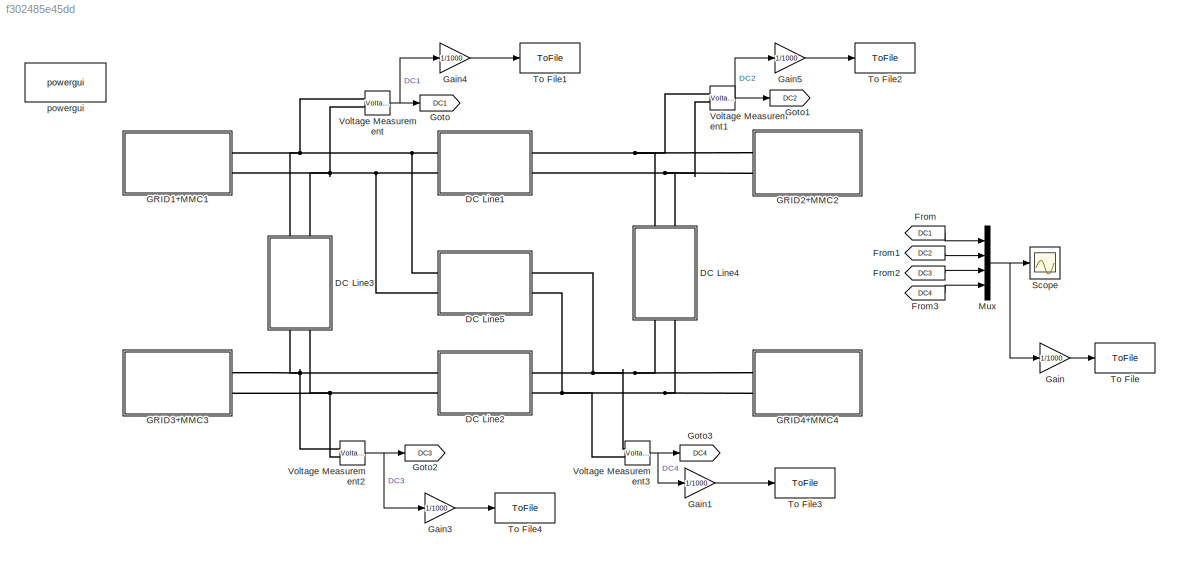
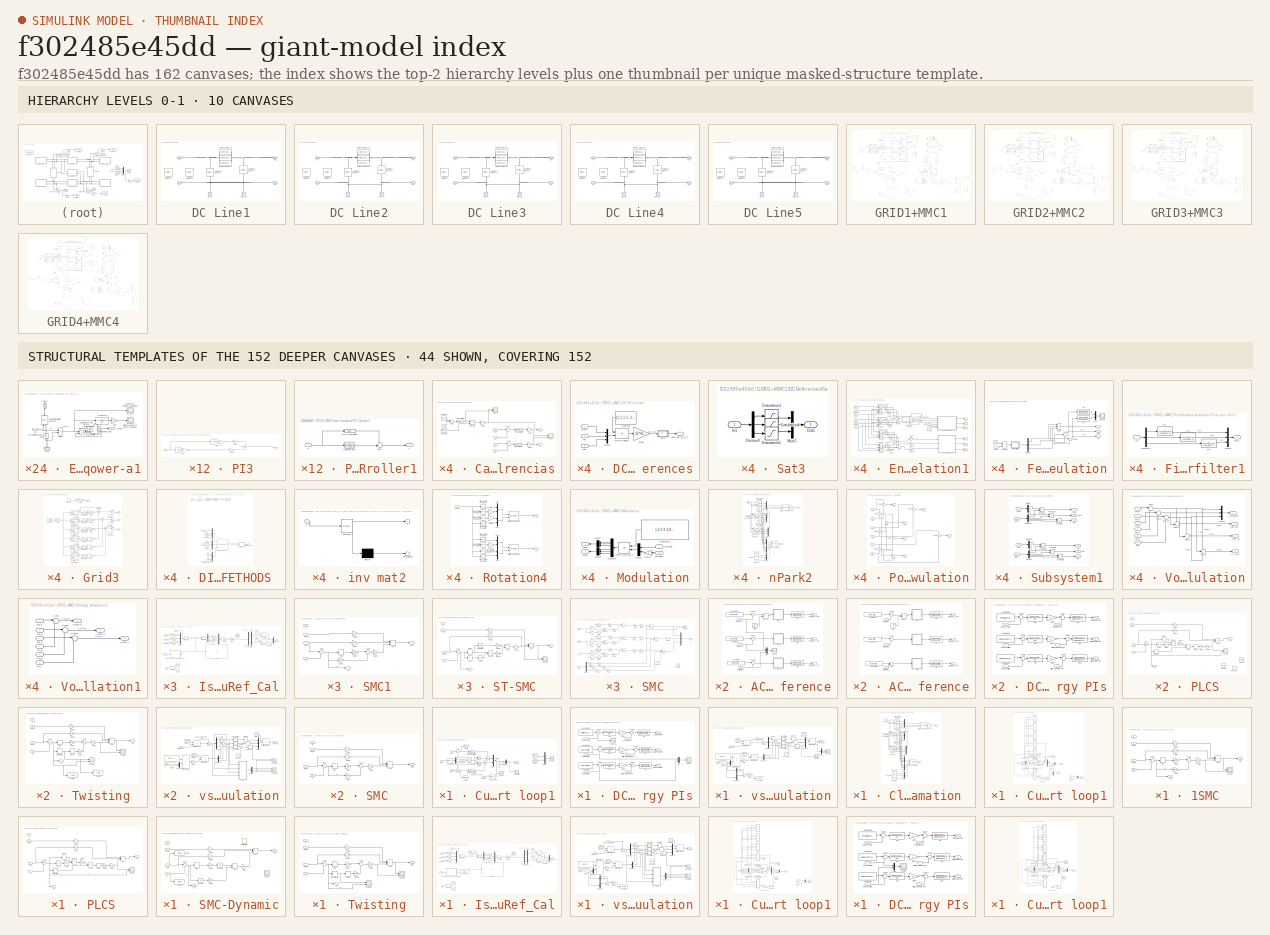
[diagram: thumbnail index - top-2 hierarchy levels (10 canvases) + 44 structural-template representatives of the remaining 152 canvases]
MODEL slx_f302485e45dd
KIND model
CONFIG AbsTol = auto
CONFIG EnableMultiTasking = on
CONFIG FixedStep = 2e-5
CONFIG InitFcn = tau_iac=ts_G_iac/4;                                         %Current loop speed\nwAC=1/tau_iac;                                              %Frequency\nL1AC=wAC/s;                                                 %Open loop IMC (L) transfer function to obtain a first order after closing the loop\nKp_AC=wAC*(Lg_1+La_1/2);                                    %Proportional constant of the controller\nKi_A...<+3862ch>
CONFIG MaxStep = 1e-5
CONFIG MinStep = auto
CONFIG RelTol = 1e-5
CONFIG SampleTimeConstraint = Unconstrained
CONFIG SolverName = ode1
CONFIG StartTime = 0.0
CONFIG StopTime = 3
BLOCK [SubSystem] DC Line1
  Ports = [0, 0, 0, 0, 0, 2, 2]
  RequestExecContextInheritance = off
BLOCK [Reference] DC Line1/Ground  REF=spsGroundLib/Ground
  NameLocation = left
  Ports = [0, 0, 0, 0, 0, 1]
  SourceBlock = spsGroundLib/Ground
  SourceProductBaseCode = PS
  SourceType = Ground
BLOCK [Reference] DC Line1/Ground1  REF=spsGroundLib/Ground
  NameLocation = left
  Ports = [0, 0, 0, 0, 0, 1]
  SourceBlock = spsGroundLib/Ground
  SourceProductBaseCode = PS
  SourceType = Ground
BLOCK [Reference] DC Line1/Parallel RLC Branch1  REF=spsParallelRLCBranchLib/Parallel RLC Branch
  AttributesFormatString = \n
  NameLocation = left
  Ports = [0, 0, 0, 0, 0, 1, 1]
  SourceBlock = spsParallelRLCBranchLib/Parallel RLC Branch
  SourceProductBaseCode = PS
  SourceType = Parallel RLC Branch
BLOCK [Reference] DC Line1/Parallel RLC Branch2  REF=spsParallelRLCBranchLib/Parallel RLC Branch
  AttributesFormatString = \n
  NameLocation = left
  Ports = [0, 0, 0, 0, 0, 1, 1]
  SourceBlock = spsParallelRLCBranchLib/Parallel RLC Branch
  SourceProductBaseCode = PS
  SourceType = Parallel RLC Branch
BLOCK [Reference] DC Line1/Parallel RLC Branch3  REF=spsParallelRLCBranchLib/Parallel RLC Branch
  AttributesFormatString = \n
  NameLocation = left
  Ports = [0, 0, 0, 0, 0, 1, 1]
  SourceBlock = spsParallelRLCBranchLib/Parallel RLC Branch
  SourceProductBaseCode = PS
  SourceType = Parallel RLC Branch
BLOCK [Reference] DC Line1/Parallel RLC Branch4  REF=spsParallelRLCBranchLib/Parallel RLC Branch
  AttributesFormatString = \n
  NameLocation = left
  Ports = [0, 0, 0, 0, 0, 1, 1]
  SourceBlock = spsParallelRLCBranchLib/Parallel RLC Branch
  SourceProductBaseCode = PS
  SourceType = Parallel RLC Branch
BLOCK [Reference] DC Line1/Series RLC Branch1  REF=spsSeriesRLCBranchLib/Series RLC Branch
  Ports = [0, 0, 0, 0, 0, 1, 1]
  SourceBlock = spsSeriesRLCBranchLib/Series RLC Branch
  SourceProductBaseCode = PS
  SourceType = Series RLC Branch
BLOCK [Reference] DC Line1/Series RLC Branch2  REF=spsSeriesRLCBranchLib/Series RLC Branch
  Ports = [0, 0, 0, 0, 0, 1, 1]
  SourceBlock = spsSeriesRLCBranchLib/Series RLC Branch
  SourceProductBaseCode = PS
  SourceType = Series RLC Branch
BLOCK [Reference] DC Line1/Series RLC Branch3  REF=spsSeriesRLCBranchLib/Series RLC Branch
  Ports = [0, 0, 0, 0, 0, 1, 1]
  SourceBlock = spsSeriesRLCBranchLib/Series RLC Branch
  SourceProductBaseCode = PS
  SourceType = Series RLC Branch
BLOCK [PMIOPort] DC Line1/in1
  Side = Left
BLOCK [PMIOPort] DC Line1/in2
  Port = 3
  Side = Left
BLOCK [PMIOPort] DC Line1/out1
  Port = 2
  Side = Right
BLOCK [PMIOPort] DC Line1/out2
  Port = 4
  Side = Right
BLOCK [SubSystem] DC Line2
  Ports = [0, 0, 0, 0, 0, 2, 2]
  RequestExecContextInheritance = off
BLOCK [Reference] DC Line2/Ground  REF=spsGroundLib/Ground
  NameLocation = left
  Ports = [0, 0, 0, 0, 0, 1]
  SourceBlock = spsGroundLib/Ground
  SourceProductBaseCode = PS
  SourceType = Ground
BLOCK [Reference] DC Line2/Ground1  REF=spsGroundLib/Ground
  NameLocation = left
  Ports = [0, 0, 0, 0, 0, 1]
  SourceBlock = spsGroundLib/Ground
  SourceProductBaseCode = PS
  SourceType = Ground
BLOCK [Reference] DC Line2/Parallel RLC Branch1  REF=spsParallelRLCBranchLib/Parallel RLC Branch
  AttributesFormatString = \n
  NameLocation = left
  Ports = [0, 0, 0, 0, 0, 1, 1]
  SourceBlock = spsParallelRLCBranchLib/Parallel RLC Branch
  SourceProductBaseCode = PS
  SourceType = Parallel RLC Branch
BLOCK [Reference] DC Line2/Parallel RLC Branch2  REF=spsParallelRLCBranchLib/Parallel RLC Branch
  AttributesFormatString = \n
  NameLocation = left
  Ports = [0, 0, 0, 0, 0, 1, 1]
  SourceBlock = spsParallelRLCBranchLib/Parallel RLC Branch
  SourceProductBaseCode = PS
  SourceType = Parallel RLC Branch
BLOCK [Reference] DC Line2/Parallel RLC Branch3  REF=spsParallelRLCBranchLib/Parallel RLC Branch
  AttributesFormatString = \n
  NameLocation = left
  Ports = [0, 0, 0, 0, 0, 1, 1]
  SourceBlock = spsParallelRLCBranchLib/Parallel RLC Branch
  SourceProductBaseCode = PS
  SourceType = Parallel RLC Branch
BLOCK [Reference] DC Line2/Parallel RLC Branch4  REF=spsParallelRLCBranchLib/Parallel RLC Branch
  AttributesFormatString = \n
  NameLocation = left
  Ports = [0, 0, 0, 0, 0, 1, 1]
  SourceBlock = spsParallelRLCBranchLib/Parallel RLC Branch
  SourceProductBaseCode = PS
  SourceType = Parallel RLC Branch
BLOCK [Reference] DC Line2/Series RLC Branch1  REF=spsSeriesRLCBranchLib/Series RLC Branch
  Ports = [0, 0, 0, 0, 0, 1, 1]
  SourceBlock = spsSeriesRLCBranchLib/Series RLC Branch
  SourceProductBaseCode = PS
  SourceType = Series RLC Branch
BLOCK [Reference] DC Line2/Series RLC Branch2  REF=spsSeriesRLCBranchLib/Series RLC Branch
  Ports = [0, 0, 0, 0, 0, 1, 1]
  SourceBlock = spsSeriesRLCBranchLib/Series RLC Branch
  SourceProductBaseCode = PS
  SourceType = Series RLC Branch
BLOCK [Reference] DC Line2/Series RLC Branch3  REF=spsSeriesRLCBranchLib/Series RLC Branch
  Ports = [0, 0, 0, 0, 0, 1, 1]
  SourceBlock = spsSeriesRLCBranchLib/Series RLC Branch
  SourceProductBaseCode = PS
  SourceType = Series RLC Branch
BLOCK [PMIOPort] DC Line2/in1
  Side = Left
BLOCK [PMIOPort] DC Line2/in2
  Port = 3
  Side = Left
BLOCK [PMIOPort] DC Line2/out1
  Port = 2
  Side = Right
BLOCK [PMIOPort] DC Line2/out2
  Port = 4
  Side = Right
BLOCK [SubSystem] DC Line3
  NameLocation = left
  Ports = [0, 0, 0, 0, 0, 2, 2]
  RequestExecContextInheritance = off
BLOCK [Reference] DC Line3/Ground  REF=spsGroundLib/Ground
  NameLocation = left
  Ports = [0, 0, 0, 0, 0, 1]
  SourceBlock = spsGroundLib/Ground
  SourceProductBaseCode = PS
  SourceType = Ground
BLOCK [Reference] DC Line3/Ground1  REF=spsGroundLib/Ground
  NameLocation = left
  Ports = [0, 0, 0, 0, 0, 1]
  SourceBlock = spsGroundLib/Ground
  SourceProductBaseCode = PS
  SourceType = Ground
BLOCK [Reference] DC Line3/Parallel RLC Branch1  REF=spsParallelRLCBranchLib/Parallel RLC Branch
  AttributesFormatString = \n
  NameLocation = left
  Ports = [0, 0, 0, 0, 0, 1, 1]
  SourceBlock = spsParallelRLCBranchLib/Parallel RLC Branch
  SourceProductBaseCode = PS
  SourceType = Parallel RLC Branch
BLOCK [Reference] DC Line3/Parallel RLC Branch2  REF=spsParallelRLCBranchLib/Parallel RLC Branch
  AttributesFormatString = \n
  NameLocation = left
  Ports = [0, 0, 0, 0, 0, 1, 1]
  SourceBlock = spsParallelRLCBranchLib/Parallel RLC Branch
  SourceProductBaseCode = PS
  SourceType = Parallel RLC Branch
BLOCK [Reference] DC Line3/Parallel RLC Branch3  REF=spsParallelRLCBranchLib/Parallel RLC Branch
  AttributesFormatString = \n
  NameLocation = left
  Ports = [0, 0, 0, 0, 0, 1, 1]
  SourceBlock = spsParallelRLCBranchLib/Parallel RLC Branch
  SourceProductBaseCode = PS
  SourceType = Parallel RLC Branch
BLOCK [Reference] DC Line3/Parallel RLC Branch4  REF=spsParallelRLCBranchLib/Parallel RLC Branch
  AttributesFormatString = \n
  NameLocation = left
  Ports = [0, 0, 0, 0, 0, 1, 1]
  SourceBlock = spsParallelRLCBranchLib/Parallel RLC Branch
  SourceProductBaseCode = PS
  SourceType = Parallel RLC Branch
BLOCK [Reference] DC Line3/Series RLC Branch1  REF=spsSeriesRLCBranchLib/Series RLC Branch
  Ports = [0, 0, 0, 0, 0, 1, 1]
  SourceBlock = spsSeriesRLCBranchLib/Series RLC Branch
  SourceProductBaseCode = PS
  SourceType = Series RLC Branch
BLOCK [Reference] DC Line3/Series RLC Branch2  REF=spsSeriesRLCBranchLib/Series RLC Branch
  Ports = [0, 0, 0, 0, 0, 1, 1]
  SourceBlock = spsSeriesRLCBranchLib/Series RLC Branch
  SourceProductBaseCode = PS
  SourceType = Series RLC Branch
BLOCK [Reference] DC Line3/Series RLC Branch3  REF=spsSeriesRLCBranchLib/Series RLC Branch
  Ports = [0, 0, 0, 0, 0, 1, 1]
  SourceBlock = spsSeriesRLCBranchLib/Series RLC Branch
  SourceProductBaseCode = PS
  SourceType = Series RLC Branch
BLOCK [PMIOPort] DC Line3/in1
  Side = Left
BLOCK [PMIOPort] DC Line3/in2
  Port = 3
  Side = Left
BLOCK [PMIOPort] DC Line3/out1
  Port = 2
  Side = Right
BLOCK [PMIOPort] DC Line3/out2
  Port = 4
  Side = Right
BLOCK [SubSystem] DC Line4
  NameLocation = left
  Ports = [0, 0, 0, 0, 0, 2, 2]
  RequestExecContextInheritance = off
BLOCK [Reference] DC Line4/Ground  REF=spsGroundLib/Ground
  NameLocation = left
  Ports = [0, 0, 0, 0, 0, 1]
  SourceBlock = spsGroundLib/Ground
  SourceProductBaseCode = PS
  SourceType = Ground
BLOCK [Reference] DC Line4/Ground1  REF=spsGroundLib/Ground
  NameLocation = left
  Ports = [0, 0, 0, 0, 0, 1]
  SourceBlock = spsGroundLib/Ground
  SourceProductBaseCode = PS
  SourceType = Ground
BLOCK [Reference] DC Line4/Parallel RLC Branch1  REF=spsParallelRLCBranchLib/Parallel RLC Branch
  AttributesFormatString = \n
  NameLocation = left
  Ports = [0, 0, 0, 0, 0, 1, 1]
  SourceBlock = spsParallelRLCBranchLib/Parallel RLC Branch
  SourceProductBaseCode = PS
  SourceType = Parallel RLC Branch
BLOCK [Reference] DC Line4/Parallel RLC Branch2  REF=spsParallelRLCBranchLib/Parallel RLC Branch
  AttributesFormatString = \n
  NameLocation = left
  Ports = [0, 0, 0, 0, 0, 1, 1]
  SourceBlock = spsParallelRLCBranchLib/Parallel RLC Branch
  SourceProductBaseCode = PS
  SourceType = Parallel RLC Branch
BLOCK [Reference] DC Line4/Parallel RLC Branch3  REF=spsParallelRLCBranchLib/Parallel RLC Branch
  AttributesFormatString = \n
  NameLocation = left
  Ports = [0, 0, 0, 0, 0, 1, 1]
  SourceBlock = spsParallelRLCBranchLib/Parallel RLC Branch
  SourceProductBaseCode = PS
  SourceType = Parallel RLC Branch
BLOCK [Reference] DC Line4/Parallel RLC Branch4  REF=spsParallelRLCBranchLib/Parallel RLC Branch
  AttributesFormatString = \n
  NameLocation = left
  Ports = [0, 0, 0, 0, 0, 1, 1]
  SourceBlock = spsParallelRLCBranchLib/Parallel RLC Branch
  SourceProductBaseCode = PS
  SourceType = Parallel RLC Branch
BLOCK [Reference] DC Line4/Series RLC Branch1  REF=spsSeriesRLCBranchLib/Series RLC Branch
  Ports = [0, 0, 0, 0, 0, 1, 1]
  SourceBlock = spsSeriesRLCBranchLib/Series RLC Branch
  SourceProductBaseCode = PS
  SourceType = Series RLC Branch
BLOCK [Reference] DC Line4/Series RLC Branch2  REF=spsSeriesRLCBranchLib/Series RLC Branch
  Ports = [0, 0, 0, 0, 0, 1, 1]
  SourceBlock = spsSeriesRLCBranchLib/Series RLC Branch
  SourceProductBaseCode = PS
  SourceType = Series RLC Branch
BLOCK [Reference] DC Line4/Series RLC Branch3  REF=spsSeriesRLCBranchLib/Series RLC Branch
  Ports = [0, 0, 0, 0, 0, 1, 1]
  SourceBlock = spsSeriesRLCBranchLib/Series RLC Branch
  SourceProductBaseCode = PS
  SourceType = Series RLC Branch
BLOCK [PMIOPort] DC Line4/in1
  Side = Left
BLOCK [PMIOPort] DC Line4/in2
  Port = 3
  Side = Left
BLOCK [PMIOPort] DC Line4/out1
  Port = 2
  Side = Right
BLOCK [PMIOPort] DC Line4/out2
  Port = 4
  Side = Right
BLOCK [SubSystem] DC Line5
  Ports = [0, 0, 0, 0, 0, 2, 2]
  RequestExecContextInheritance = off
BLOCK [Reference] DC Line5/Ground  REF=spsGroundLib/Ground
  NameLocation = left
  Ports = [0, 0, 0, 0, 0, 1]
  SourceBlock = spsGroundLib/Ground
  SourceProductBaseCode = PS
  SourceType = Ground
BLOCK [Reference] DC Line5/Ground1  REF=spsGroundLib/Ground
  NameLocation = left
  Ports = [0, 0, 0, 0, 0, 1]
  SourceBlock = spsGroundLib/Ground
  SourceProductBaseCode = PS
  SourceType = Ground
BLOCK [Reference] DC Line5/Parallel RLC Branch1  REF=spsParallelRLCBranchLib/Parallel RLC Branch
  AttributesFormatString = \n
  NameLocation = left
  Ports = [0, 0, 0, 0, 0, 1, 1]
  SourceBlock = spsParallelRLCBranchLib/Parallel RLC Branch
  SourceProductBaseCode = PS
  SourceType = Parallel RLC Branch
BLOCK [Reference] DC Line5/Parallel RLC Branch2  REF=spsParallelRLCBranchLib/Parallel RLC Branch
  AttributesFormatString = \n
  NameLocation = left
  Ports = [0, 0, 0, 0, 0, 1, 1]
  SourceBlock = spsParallelRLCBranchLib/Parallel RLC Branch
  SourceProductBaseCode = PS
  SourceType = Parallel RLC Branch
BLOCK [Reference] DC Line5/Parallel RLC Branch3  REF=spsParallelRLCBranchLib/Parallel RLC Branch
  AttributesFormatString = \n
  NameLocation = left
  Ports = [0, 0, 0, 0, 0, 1, 1]
  SourceBlock = spsParallelRLCBranchLib/Parallel RLC Branch
  SourceProductBaseCode = PS
  SourceType = Parallel RLC Branch
BLOCK [Reference] DC Line5/Parallel RLC Branch4  REF=spsParallelRLCBranchLib/Parallel RLC Branch
  AttributesFormatString = \n
  NameLocation = left
  Ports = [0, 0, 0, 0, 0, 1, 1]
  SourceBlock = spsParallelRLCBranchLib/Parallel RLC Branch
  SourceProductBaseCode = PS
  SourceType = Parallel RLC Branch
BLOCK [Reference] DC Line5/Series RLC Branch1  REF=spsSeriesRLCBranchLib/Series RLC Branch
  Ports = [0, 0, 0, 0, 0, 1, 1]
  SourceBlock = spsSeriesRLCBranchLib/Series RLC Branch
  SourceProductBaseCode = PS
  SourceType = Series RLC Branch
BLOCK [Reference] DC Line5/Series RLC Branch2  REF=spsSeriesRLCBranchLib/Series RLC Branch
  Ports = [0, 0, 0, 0, 0, 1, 1]
  SourceBlock = spsSeriesRLCBranchLib/Series RLC Branch
  SourceProductBaseCode = PS
  SourceType = Series RLC Branch
BLOCK [Reference] DC Line5/Series RLC Branch3  REF=spsSeriesRLCBranchLib/Series RLC Branch
  Ports = [0, 0, 0, 0, 0, 1, 1]
  SourceBlock = spsSeriesRLCBranchLib/Series RLC Branch
  SourceProductBaseCode = PS
  SourceType = Series RLC Branch
BLOCK [PMIOPort] DC Line5/in1
  Side = Left
BLOCK [PMIOPort] DC Line5/in2
  Port = 3
  Side = Left
BLOCK [PMIOPort] DC Line5/out1
  Port = 2
  Side = Right
BLOCK [PMIOPort] DC Line5/out2
  Port = 4
  Side = Right
BLOCK [From] From
  GotoTag = DC1
BLOCK [From] From1
  GotoTag = DC2
BLOCK [From] From2
  GotoTag = DC3
BLOCK [From] From3
  GotoTag = DC4
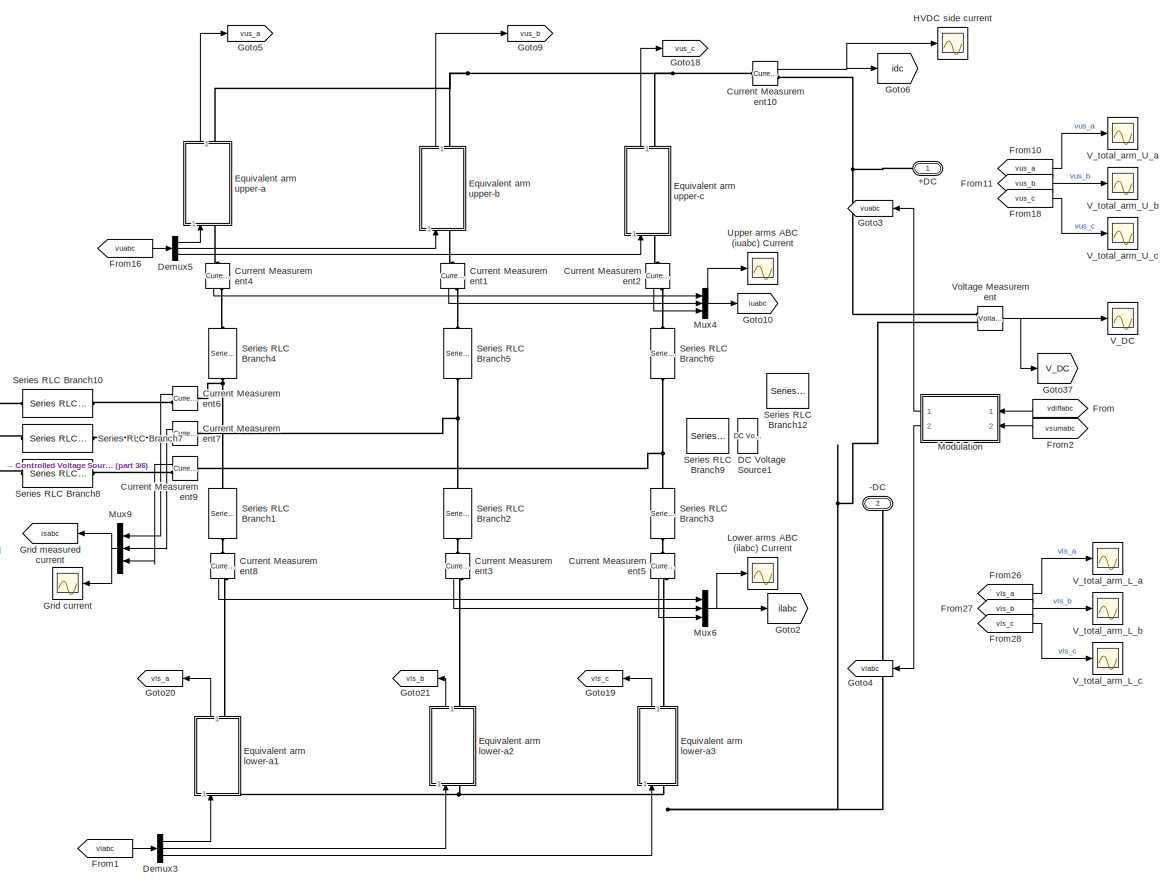
[diagram: GRID1+MMC1 - part 1/6, top center region]
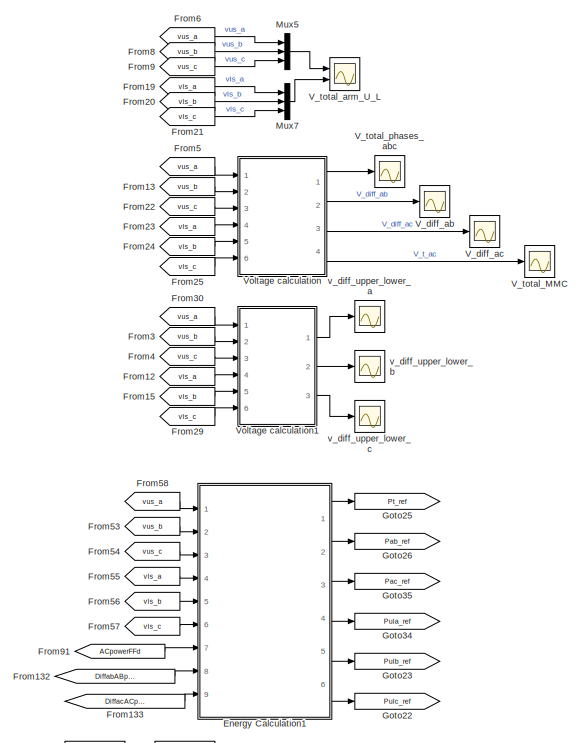
[diagram: GRID1+MMC1 - part 2/6, top right region]
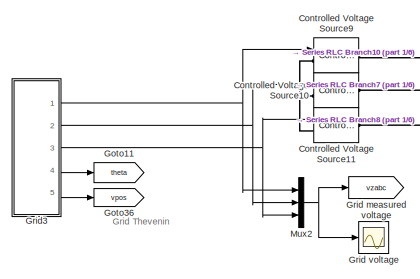
[diagram: GRID1+MMC1 - part 3/6, top left region]
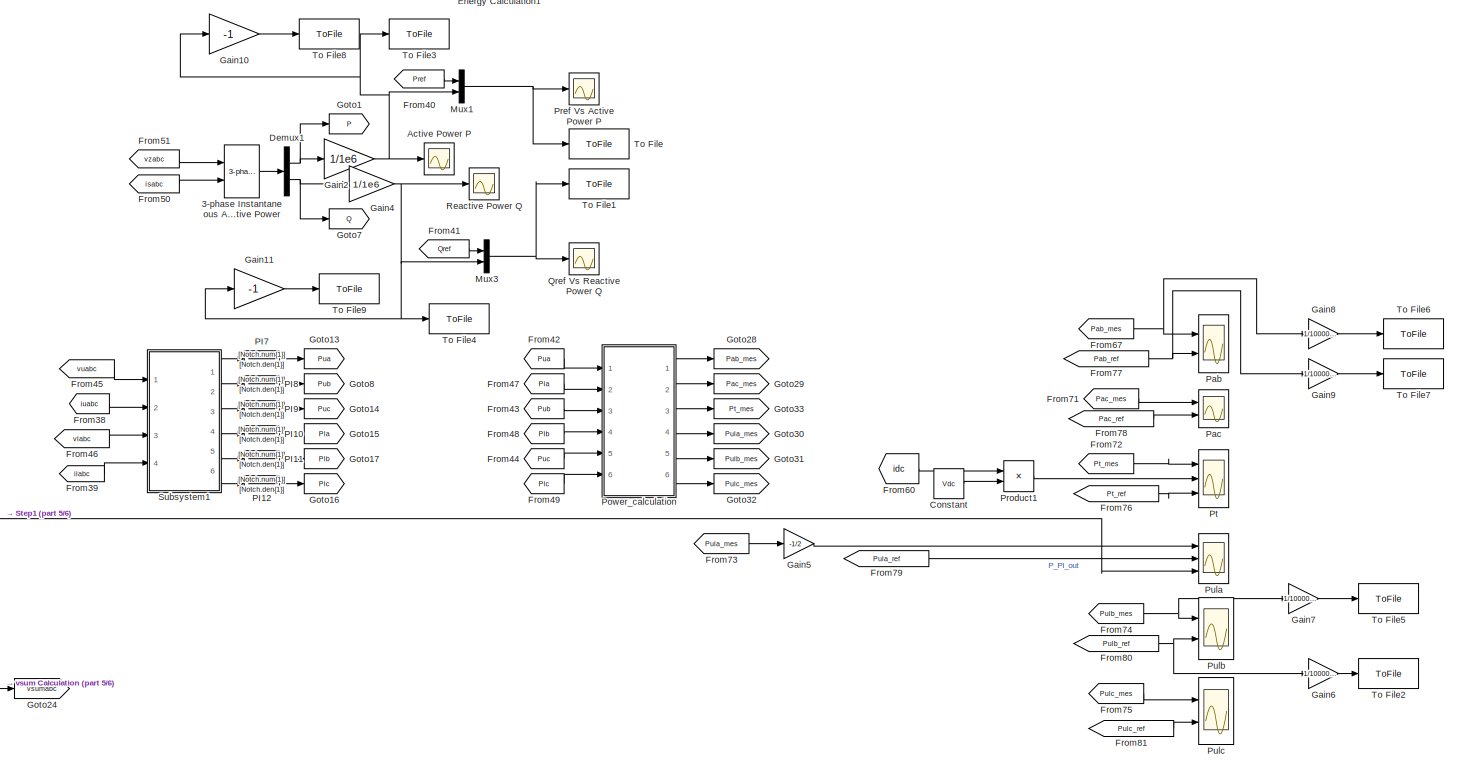
[diagram: GRID1+MMC1 - part 4/6, bottom right region]
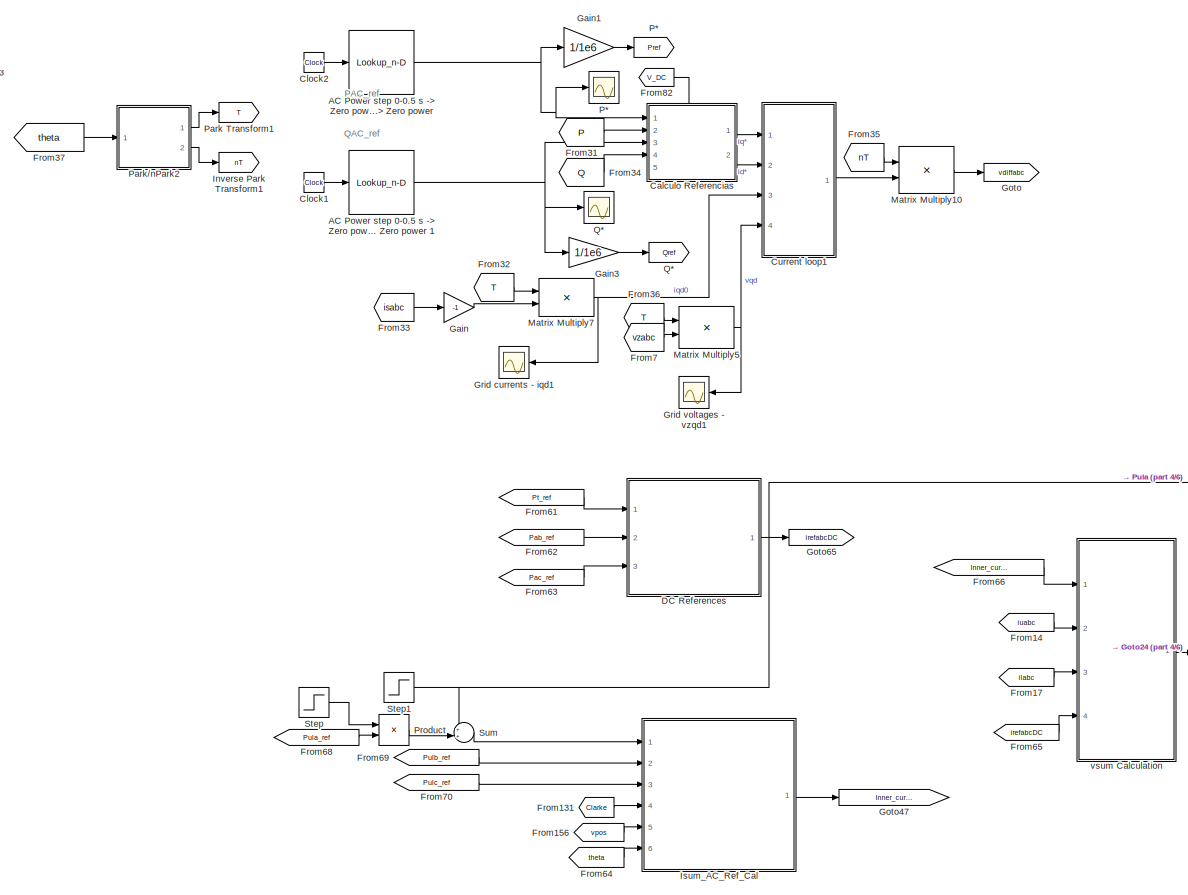
[diagram: GRID1+MMC1 - part 5/6, bottom left region]
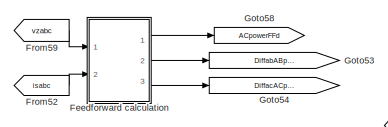
[diagram: GRID1+MMC1 - part 6/6, middle left region]
BLOCK [SubSystem] GRID1+MMC1
  Ports = [0, 0, 0, 0, 0, 0, 2]
  RequestExecContextInheritance = off
BLOCK [PMIOPort] GRID1+MMC1/+DC
  Side = Right
BLOCK [PMIOPort] GRID1+MMC1/-DC
  Port = 2
  Side = Right
BLOCK [Reference] GRID1+MMC1/3-phase  Instantaneous  Active & Reactive Power  REF=powerlib_extras/Measurements/3-phase 
Instantaneous 
Active & Reactive Power
  Ports = [2, 1]
  SourceBlock = powerlib_extras/Measurements/3-phase \nInstantaneous \nActive & Reactive Power
  SourceProductBaseCode = PS
  SourceType = 3-phase instantaneous active and reactive power
BLOCK [Lookup_n-D] GRID1+MMC1/AC Power step 0-0.5 s -> Zero power 0.5-2 s -> Active power injection 2 - 3 s -> Zero power 
  BreakpointsForDimension1 = [0,0.5,2]
  InputPortMap = u0
  InterpMethod = Flat
  NameLocation = top
  NumberOfTableDimensions = 1
  Ports = [1, 1]
  RndMeth = Simplest
  Table = [0,-100e6,0]
BLOCK [Lookup_n-D] GRID1+MMC1/AC Power step 0-0.5 s -> Zero power 0.5-2 s -> Reactive power injection 2 - 3 s -> Zero power 1
  BreakpointsForDimension1 = [0,1,2]
  InputPortMap = u0
  InterpMethod = Flat
  NumberOfTableDimensions = 1
  Ports = [1, 1]
  RndMeth = Simplest
  Table = [0,-5e6,0]
BLOCK [Scope] GRID1+MMC1/Active Power P
  Floating = off
  NameLocation = top
  NumInputPorts = 1
  Ports = [1]
  ScopeSpecificationString = Simulink.scopes.TimeScopeBlockCfg('CurrentConfiguration', extmgr.ConfigurationSet(extmgr.Configuration('Core','General UI',true),extmgr.Configuration('Core','Source UI',true),extmgr.Configuration('Sources','WiredSimulink',true,'DataLoggingVariableName','ScopeData7','DataLoggingSaveFormat','StructureWithTime','DataLoggingDecimation','1','DataLoggingDecimateData',true),extmgr.Configuration('Visuals'...<+1725ch>
BLOCK [SubSystem] GRID1+MMC1/Calculo Referencias
  PortSchema = {"entries":[{"content":{"sides":[{"content":{"connectorIds":["In1","In2","In3","In4"]},"type":"ConnectorPlacement.EquallySpacedRectSide","uuid":"f5831c6a-58f5-4c55-8e24-523faf20dc0e"},{"content":{"connectorIds":["Out1","Out2"],"side":"RIGHT"},"type":"ConnectorPlacement.EquallySpacedRectSide","uuid":"8e89a825-42f3-407f-8ce2-a529bb4d6e75"},{"content":{"connectorIds":["In5"],"side":"TOP"},"type":"Con...<+414ch>  <repeated x4 — deduplicated; at blocks: Calculo Referencias>
  Ports = [5, 2]
  RequestExecContextInheritance = off
BLOCK [Constant] GRID1+MMC1/Calculo Referencias/Constant
  Value = Vdc*1.00
BLOCK [Constant] GRID1+MMC1/Calculo Referencias/Constant1
  Value = sqrt(2)*1000*Vdc/(3*U_ll1)
BLOCK [Gain] GRID1+MMC1/Calculo Referencias/Gain
  Gain = -1
BLOCK [Gain] GRID1+MMC1/Calculo Referencias/Gain1
  Gain = -1
BLOCK [Gain] GRID1+MMC1/Calculo Referencias/Gain2
BLOCK [Inport] GRID1+MMC1/Calculo Referencias/P
  Port = 2
BLOCK [Reference] GRID1+MMC1/Calculo Referencias/PID Controller1  REF=pid_lib/PID Controller
  Ports = [1, 1]
  SourceBlock = pid_lib/PID Controller
  SourceProductBaseCode = SL
  SourceType = PID 1dof
BLOCK [Reference] GRID1+MMC1/Calculo Referencias/PID Controller2  REF=pid_lib/PID Controller
  Ports = [1, 1]
  SourceBlock = pid_lib/PID Controller
  SourceProductBaseCode = SL
  SourceType = PID 1dof
BLOCK [Reference] GRID1+MMC1/Calculo Referencias/PID Controller4  REF=pid_lib/PID Controller
  Ports = [1, 1]
  SourceBlock = pid_lib/PID Controller
  SourceProductBaseCode = SL
  SourceType = PID 1dof
BLOCK [Inport] GRID1+MMC1/Calculo Referencias/P_ref
BLOCK [Product] GRID1+MMC1/Calculo Referencias/Product2
  Ports = [2, 1]
BLOCK [Inport] GRID1+MMC1/Calculo Referencias/Q
  Port = 4
BLOCK [Inport] GRID1+MMC1/Calculo Referencias/Q_ref
  Port = 3
BLOCK [Sum] GRID1+MMC1/Calculo Referencias/Sum1
  Inputs = |+-
  Ports = [2, 1]
BLOCK [Sum] GRID1+MMC1/Calculo Referencias/Sum2
  Inputs = |+-
  Ports = [2, 1]
BLOCK [Sum] GRID1+MMC1/Calculo Referencias/Sum5
  Inputs = |+-
  Ports = [2, 1]
BLOCK [Inport] GRID1+MMC1/Calculo Referencias/V_DC
  NameLocation = top
  Port = 5
BLOCK [Scope] GRID1+MMC1/Calculo Referencias/i*
  Floating = off
  NameLocation = top
  NumInputPorts = 2
  Ports = [2]
  ScopeSpecificationString = Simulink.scopes.TimeScopeBlockCfg('CurrentConfiguration', extmgr.ConfigurationSet(extmgr.Configuration('Core','General UI',true),extmgr.Configuration('Core','Source UI',true),extmgr.Configuration('Sources','WiredSimulink',true,'DataLoggingVariableName','ScopeData1','DataLoggingSaveFormat','StructureWithTime','DataLoggingDecimation','1','DataLoggingDecimateData',true),extmgr.Configuration('Visuals'...<+2339ch>  <repeated x3 — deduplicated; at blocks: i*>
BLOCK [Scope] GRID1+MMC1/Calculo Referencias/i*1
  Floating = off
  NameLocation = top
  NumInputPorts = 2
  Ports = [2]
  ScopeSpecificationString = Simulink.scopes.TimeScopeBlockCfg('CurrentConfiguration', extmgr.ConfigurationSet(extmgr.Configuration('Core','General UI',true),extmgr.Configuration('Core','Source UI',true),extmgr.Configuration('Sources','WiredSimulink',true,'DataLoggingVariableName','ScopeData1','DataLoggingSaveFormat','StructureWithTime','DataLoggingDecimation','1','DataLoggingDecimateData',true),extmgr.Configuration('Visuals'...<+2361ch>
BLOCK [Outport] GRID1+MMC1/Calculo Referencias/id
  Port = 2
BLOCK [Outport] GRID1+MMC1/Calculo Referencias/iq
  NameLocation = top
BLOCK [Clock] GRID1+MMC1/Clock1
BLOCK [Clock] GRID1+MMC1/Clock2
BLOCK [Constant] GRID1+MMC1/Constant
  Value = Vdc
BLOCK [Reference] GRID1+MMC1/Controlled Voltage Source10  REF=spsControlledVoltageSourceLib/Controlled Voltage Source
  Ports = [1, 0, 0, 0, 0, 1, 1]
  SourceBlock = spsControlledVoltageSourceLib/Controlled Voltage Source
  SourceProductBaseCode = PS
  SourceType = Controlled Voltage Source
BLOCK [Reference] GRID1+MMC1/Controlled Voltage Source11  REF=spsControlledVoltageSourceLib/Controlled Voltage Source
  Ports = [1, 0, 0, 0, 0, 1, 1]
  SourceBlock = spsControlledVoltageSourceLib/Controlled Voltage Source
  SourceProductBaseCode = PS
  SourceType = Controlled Voltage Source
BLOCK [Reference] GRID1+MMC1/Controlled Voltage Source9  REF=spsControlledVoltageSourceLib/Controlled Voltage Source
  Ports = [1, 0, 0, 0, 0, 1, 1]
  SourceBlock = spsControlledVoltageSourceLib/Controlled Voltage Source
  SourceProductBaseCode = PS
  SourceType = Controlled Voltage Source
BLOCK [Reference] GRID1+MMC1/Current Measurement1  REF=spsCurrentMeasurementLib/Current Measurement
  NameLocation = left
  Ports = [0, 1, 0, 0, 0, 1, 1]
  SourceBlock = spsCurrentMeasurementLib/Current Measurement
  SourceProductBaseCode = PS
  SourceType = Current Measurement
  UserDataPersistent = on
BLOCK [Reference] GRID1+MMC1/Current Measurement10  REF=spsCurrentMeasurementLib/Current Measurement
  Ports = [0, 1, 0, 0, 0, 1, 1]
  SourceBlock = spsCurrentMeasurementLib/Current Measurement
  SourceProductBaseCode = PS
  SourceType = Current Measurement
  UserDataPersistent = on
BLOCK [Reference] GRID1+MMC1/Current Measurement2  REF=spsCurrentMeasurementLib/Current Measurement
  NameLocation = left
  Ports = [0, 1, 0, 0, 0, 1, 1]
  SourceBlock = spsCurrentMeasurementLib/Current Measurement
  SourceProductBaseCode = PS
  SourceType = Current Measurement
  UserDataPersistent = on
BLOCK [Reference] GRID1+MMC1/Current Measurement3  REF=spsCurrentMeasurementLib/Current Measurement
  NameLocation = left
  Ports = [0, 1, 0, 0, 0, 1, 1]
  SourceBlock = spsCurrentMeasurementLib/Current Measurement
  SourceProductBaseCode = PS
  SourceType = Current Measurement
  UserDataPersistent = on
BLOCK [Reference] GRID1+MMC1/Current Measurement4  REF=spsCurrentMeasurementLib/Current Measurement
  NameLocation = left
  Ports = [0, 1, 0, 0, 0, 1, 1]
  SourceBlock = spsCurrentMeasurementLib/Current Measurement
  SourceProductBaseCode = PS
  SourceType = Current Measurement
  UserDataPersistent = on
BLOCK [Reference] GRID1+MMC1/Current Measurement5  REF=spsCurrentMeasurementLib/Current Measurement
  NameLocation = left
  Ports = [0, 1, 0, 0, 0, 1, 1]
  SourceBlock = spsCurrentMeasurementLib/Current Measurement
  SourceProductBaseCode = PS
  SourceType = Current Measurement
  UserDataPersistent = on
BLOCK [Reference] GRID1+MMC1/Current Measurement6  REF=spsCurrentMeasurementLib/Current Measurement
  NameLocation = top
  Ports = [0, 1, 0, 0, 0, 1, 1]
  SourceBlock = spsCurrentMeasurementLib/Current Measurement
  SourceProductBaseCode = PS
  SourceType = Current Measurement
  UserDataPersistent = on
BLOCK [Reference] GRID1+MMC1/Current Measurement7  REF=spsCurrentMeasurementLib/Current Measurement
  NameLocation = top
  Ports = [0, 1, 0, 0, 0, 1, 1]
  SourceBlock = spsCurrentMeasurementLib/Current Measurement
  SourceProductBaseCode = PS
  SourceType = Current Measurement
  UserDataPersistent = on
BLOCK [Reference] GRID1+MMC1/Current Measurement8  REF=spsCurrentMeasurementLib/Current Measurement
  NameLocation = left
  Ports = [0, 1, 0, 0, 0, 1, 1]
  SourceBlock = spsCurrentMeasurementLib/Current Measurement
  SourceProductBaseCode = PS
  SourceType = Current Measurement
  UserDataPersistent = on
BLOCK [Reference] GRID1+MMC1/Current Measurement9  REF=spsCurrentMeasurementLib/Current Measurement
  NameLocation = top
  Ports = [0, 1, 0, 0, 0, 1, 1]
  SourceBlock = spsCurrentMeasurementLib/Current Measurement
  SourceProductBaseCode = PS
  SourceType = Current Measurement
  UserDataPersistent = on
BLOCK [SubSystem] GRID1+MMC1/Current loop1
  Ports = [4, 1]
  RequestExecContextInheritance = off
BLOCK [Constant] GRID1+MMC1/Current loop1/Constant2
  SampleTime = -1
  Value = 2*pi*50
BLOCK [Constant] GRID1+MMC1/Current loop1/Constant3
  Value = 0
BLOCK [Reference] GRID1+MMC1/Current loop1/Current control d axis PI Controller  REF=pid_lib/PID Controller
  Ports = [1, 1]
  SourceBlock = pid_lib/PID Controller
  SourceProductBaseCode = SL
  SourceType = PID 1dof
BLOCK [Reference] GRID1+MMC1/Current loop1/Current control q axis PI Controller  REF=pid_lib/PID Controller
  Ports = [1, 1]
  SourceBlock = pid_lib/PID Controller
  SourceProductBaseCode = SL
  SourceType = PID 1dof
BLOCK [Demux] GRID1+MMC1/Current loop1/Demux2
  Outputs = 2
  Ports = [1, 2]
BLOCK [Product] GRID1+MMC1/Current loop1/Divide
  Inputs = **
  Ports = [2, 1]
BLOCK [Product] GRID1+MMC1/Current loop1/Divide1
  Inputs = **
  Ports = [2, 1]
BLOCK [From] GRID1+MMC1/Current loop1/From
  GotoTag = error_iq
BLOCK [From] GRID1+MMC1/Current loop1/From1
  GotoTag = error_id
BLOCK [Gain] GRID1+MMC1/Current loop1/Gain1
  Gain = (Lg_1+La_1/2)
BLOCK [Goto] GRID1+MMC1/Current loop1/Goto
  GotoTag = error_iq
BLOCK [Goto] GRID1+MMC1/Current loop1/Goto1
  GotoTag = error_id
BLOCK [Mux] GRID1+MMC1/Current loop1/Mux1
  DisplayOption = bar
  Inputs = 2
  Ports = [2, 1]
BLOCK [Mux] GRID1+MMC1/Current loop1/Mux3
  DisplayOption = bar
  Inputs = 2
  Ports = [2, 1]
BLOCK [Mux] GRID1+MMC1/Current loop1/Mux5
  DisplayOption = bar
  Inputs = 2
  Ports = [2, 1]
BLOCK [Inport] GRID1+MMC1/Current loop1/Ref_id
  Port = 2
BLOCK [Inport] GRID1+MMC1/Current loop1/Ref_iq
BLOCK [Scope] GRID1+MMC1/Current loop1/Scope1
  Floating = off
  NumInputPorts = 1
  Ports = [1]
  ScopeSpecificationString = Simulink.scopes.TimeScopeBlockCfg('CurrentConfiguration', extmgr.ConfigurationSet(extmgr.Configuration('Core','General UI',true),extmgr.Configuration('Core','Source UI',true),extmgr.Configuration('Sources','WiredSimulink',true,'DataLoggingVariableName','ScopeData3','DataLoggingSaveFormat','StructureWithTime','DataLoggingDecimation','1','DataLoggingDecimateData',true),extmgr.Configuration('Visuals'...<+1727ch>
BLOCK [Scope] GRID1+MMC1/Current loop1/Scope2
  Floating = off
  NumInputPorts = 1
  Ports = [1]
  ScopeSpecificationString = Simulink.scopes.TimeScopeBlockCfg('CurrentConfiguration', extmgr.ConfigurationSet(extmgr.Configuration('Core','General UI',true),extmgr.Configuration('Core','Source UI',true),extmgr.Configuration('Sources','WiredSimulink',true,'DataLoggingVariableName','ScopeData1','DataLoggingSaveFormat','StructureWithTime','DataLoggingDecimation','1','DataLoggingDecimateData',true),extmgr.Configuration('Visuals'...<+1787ch>
BLOCK [Scope] GRID1+MMC1/Current loop1/Scope7
  Floating = off
  NumInputPorts = 1
  Ports = [1]
  ScopeSpecificationString = Simulink.scopes.TimeScopeBlockCfg('CurrentConfiguration', extmgr.ConfigurationSet(extmgr.Configuration('Core','General UI',true),extmgr.Configuration('Core','Source UI',true),extmgr.Configuration('Sources','WiredSimulink',true,'DataLoggingVariableName','ScopeData12','DataLoggingSaveFormat','StructureWithTime','DataLoggingDecimation','1','DataLoggingDecimateData',true),extmgr.Configuration('Visuals...<+1599ch>
BLOCK [Sum] GRID1+MMC1/Current loop1/Sum3
  Inputs = -+|
  Ports = [2, 1]
BLOCK [Sum] GRID1+MMC1/Current loop1/Sum4
  Inputs = |++
  Ports = [2, 1]
BLOCK [Sum] GRID1+MMC1/Current loop1/Sum5
  Inputs = |+-
  Ports = [2, 1]
BLOCK [Sum] GRID1+MMC1/Current loop1/Sum7
  Inputs = |+-
  Ports = [2, 1]
BLOCK [Sum] GRID1+MMC1/Current loop1/Sum8
  Inputs = --|
  Ports = [2, 1]
BLOCK [Inport] GRID1+MMC1/Current loop1/iqd0
  Port = 3
BLOCK [Selector] GRID1+MMC1/Current loop1/iqd0-iqd
  IndexOptions = Index vector (dialog)
  Indices = [1 2]
  InputPortWidth = 3
  OutputSizes = 1
  Ports = [1, 1]
BLOCK [Outport] GRID1+MMC1/Current loop1/vlqd0
BLOCK [Inport] GRID1+MMC1/Current loop1/vzqd0
  Port = 4
BLOCK [Selector] GRID1+MMC1/Current loop1/vzqd0-vzqd
  IndexOptions = Index vector (dialog)
  Indices = [1 2]
  InputPortWidth = 3
  OutputSizes = 1
  Ports = [1, 1]
BLOCK [SubSystem] GRID1+MMC1/DC References
  NameLocation = top
  Ports = [3, 1]
  RequestExecContextInheritance = off
BLOCK [Constant] GRID1+MMC1/DC References/Constant
  NameLocation = top
  Value = [1,1,1;1,-2,1;1,1,-2]
BLOCK [Gain] GRID1+MMC1/DC References/Gain1
  Gain = 1/(3*Vdc)
BLOCK [Product] GRID1+MMC1/DC References/Matrix Multiply2
  Multiplication = Matrix(*)
  Ports = [2, 1]
BLOCK [Mux] GRID1+MMC1/DC References/Mux10
  DisplayOption = bar
  Inputs = 3
  Ports = [3, 1]
BLOCK [Inport] GRID1+MMC1/DC References/Pab
  Port = 2
BLOCK [Inport] GRID1+MMC1/DC References/Pac
  Port = 3
BLOCK [Inport] GRID1+MMC1/DC References/Pt_DC
BLOCK [SubSystem] GRID1+MMC1/DC References/Sat3
  Ports = [1, 1]
  RequestExecContextInheritance = off
BLOCK [Demux] GRID1+MMC1/DC References/Sat3/Demux4
  Outputs = 3
  Ports = [1, 3]
BLOCK [Inport] GRID1+MMC1/DC References/Sat3/In1
BLOCK [Mux] GRID1+MMC1/DC References/Sat3/Mux5
  DisplayOption = bar
  Inputs = 3
  Ports = [3, 1]
BLOCK [Outport] GRID1+MMC1/DC References/Sat3/Out1
  VectorParamsAs1DForOutWhenUnconnected = off
BLOCK [Saturate] GRID1+MMC1/DC References/Sat3/Saturation1
  LowerLimit = -IsaturationinnerDC1
  UpperLimit = IsaturationinnerDC1
BLOCK [Saturate] GRID1+MMC1/DC References/Sat3/Saturation4
  LowerLimit = -IsaturationinnerDC1
  UpperLimit = IsaturationinnerDC1
BLOCK [Saturate] GRID1+MMC1/DC References/Sat3/Saturation5
  LowerLimit = -IsaturationinnerDC1
  UpperLimit = IsaturationinnerDC1
BLOCK [Outport] GRID1+MMC1/DC References/isum_abc_ref_DC
BLOCK [Reference] GRID1+MMC1/DC Voltage Source1  REF=spsDCVoltageSourceLib/DC Voltage Source
  NameLocation = left
  Ports = [0, 0, 0, 0, 0, 1, 1]
  SourceBlock = spsDCVoltageSourceLib/DC Voltage Source
  SourceProductBaseCode = PS
  SourceType = DC Voltage Source
BLOCK [Demux] GRID1+MMC1/Demux1
  Outputs = 2
  Ports = [1, 2]
BLOCK [Demux] GRID1+MMC1/Demux3
  Outputs = 3
  Ports = [1, 3]
BLOCK [Demux] GRID1+MMC1/Demux5
  Outputs = 3
  Ports = [1, 3]
BLOCK [SubSystem] GRID1+MMC1/Energy Calculation1
  Ports = [9, 6]
  RequestExecContextInheritance = off
BLOCK [SubSystem] GRID1+MMC1/Energy Calculation1/AC Power Reference
  Ports = [3, 3]
  RequestExecContextInheritance = off
BLOCK [Constant] GRID1+MMC1/Energy Calculation1/AC Power Reference/Constant1
  Value = EnergyDiffUpLowRefb
BLOCK [Constant] GRID1+MMC1/Energy Calculation1/AC Power Reference/Constant2
  Value = EnergyDiffUpLowRefc
BLOCK [Constant] GRID1+MMC1/Energy Calculation1/AC Power Reference/Constant21
  Value = EnergyDiffUpLowRefa
BLOCK [Inport] GRID1+MMC1/Energy Calculation1/AC Power Reference/Ediff_arm_a
BLOCK [Inport] GRID1+MMC1/Energy Calculation1/AC Power Reference/Ediff_arm_b
  Port = 2
BLOCK [Inport] GRID1+MMC1/Energy Calculation1/AC Power Reference/Ediff_arm_c
  Port = 3
BLOCK [Mux] GRID1+MMC1/Energy Calculation1/AC Power Reference/Mux
  DisplayOption = bar
  Inputs = 3
  Ports = [3, 1]
BLOCK [TransferFcn] GRID1+MMC1/Energy Calculation1/AC Power Reference/PI1
  Denominator = [Notch.den{1}]
  Numerator = [Notch.num{1}]
BLOCK [TransferFcn] GRID1+MMC1/Energy Calculation1/AC Power Reference/PI2
  Denominator = [Notch.den{1}]
  Numerator = [Notch.num{1}]
BLOCK [SubSystem] GRID1+MMC1/Energy Calculation1/AC Power Reference/PI3
  Ports = [1, 1]
  RequestExecContextInheritance = off
BLOCK [Gain] GRID1+MMC1/Energy Calculation1/AC Power Reference/PI3/Gain1
  Gain = Kienergy
BLOCK [Gain] GRID1+MMC1/Energy Calculation1/AC Power Reference/PI3/Gain111
  Gain = Kpenergy
BLOCK [Gain] GRID1+MMC1/Energy Calculation1/AC Power Reference/PI3/Gain3
BLOCK [Gain] GRID1+MMC1/Energy Calculation1/AC Power Reference/PI3/Gain4
BLOCK [Sum] GRID1+MMC1/Energy Calculation1/AC Power Reference/PI3/Sum
  Ports = [2, 1]
BLOCK [Inport] GRID1+MMC1/Energy Calculation1/AC Power Reference/PI3/e
BLOCK [Outport] GRID1+MMC1/Energy Calculation1/AC Power Reference/PI3/u
  VectorParamsAs1DForOutWhenUnconnected = off
BLOCK [SubSystem] GRID1+MMC1/Energy Calculation1/AC Power Reference/PI4
  Ports = [1, 1]
  RequestExecContextInheritance = off
BLOCK [Gain] GRID1+MMC1/Energy Calculation1/AC Power Reference/PI4/Gain1
  Gain = Kienergy
BLOCK [Gain] GRID1+MMC1/Energy Calculation1/AC Power Reference/PI4/Gain111
  Gain = Kpenergy
BLOCK [Gain] GRID1+MMC1/Energy Calculation1/AC Power Reference/PI4/Gain3
BLOCK [Gain] GRID1+MMC1/Energy Calculation1/AC Power Reference/PI4/Gain4
BLOCK [Sum] GRID1+MMC1/Energy Calculation1/AC Power Reference/PI4/Sum
  Ports = [2, 1]
BLOCK [Inport] GRID1+MMC1/Energy Calculation1/AC Power Reference/PI4/e
BLOCK [Outport] GRID1+MMC1/Energy Calculation1/AC Power Reference/PI4/u
  VectorParamsAs1DForOutWhenUnconnected = off
BLOCK [SubSystem] GRID1+MMC1/Energy Calculation1/AC Power Reference/PI5
  Ports = [1, 1]
  RequestExecContextInheritance = off
BLOCK [Gain] GRID1+MMC1/Energy Calculation1/AC Power Reference/PI5/Gain1
  Gain = Kienergy
BLOCK [Gain] GRID1+MMC1/Energy Calculation1/AC Power Reference/PI5/Gain111
  Gain = Kpenergy
BLOCK [Gain] GRID1+MMC1/Energy Calculation1/AC Power Reference/PI5/Gain3
BLOCK [Gain] GRID1+MMC1/Energy Calculation1/AC Power Reference/PI5/Gain4
BLOCK [Sum] GRID1+MMC1/Energy Calculation1/AC Power Reference/PI5/Sum
  Ports = [2, 1]
BLOCK [Inport] GRID1+MMC1/Energy Calculation1/AC Power Reference/PI5/e
BLOCK [Outport] GRID1+MMC1/Energy Calculation1/AC Power Reference/PI5/u
  VectorParamsAs1DForOutWhenUnconnected = off
BLOCK [TransferFcn] GRID1+MMC1/Energy Calculation1/AC Power Reference/PI6
  Denominator = [Notch.den{1}]
  Numerator = [Notch.num{1}]
BLOCK [Outport] GRID1+MMC1/Energy Calculation1/AC Power Reference/Pdiff_arm_a_Ref
  VectorParamsAs1DForOutWhenUnconnected = off
BLOCK [Outport] GRID1+MMC1/Energy Calculation1/AC Power Reference/Pdiff_arm_b_Ref
  Port = 2
  VectorParamsAs1DForOutWhenUnconnected = off
BLOCK [Outport] GRID1+MMC1/Energy Calculation1/AC Power Reference/Pdiff_arm_c_Ref
  Port = 3
  VectorParamsAs1DForOutWhenUnconnected = off
BLOCK [Product] GRID1+MMC1/Energy Calculation1/AC Power Reference/Product
  Ports = [2, 1]
BLOCK [Scope] GRID1+MMC1/Energy Calculation1/AC Power Reference/Scope
  Floating = off
  NumInputPorts = 1
  Ports = [1]
  ScopeSpecificationString = Simulink.scopes.TimeScopeBlockCfg('CurrentConfiguration', extmgr.ConfigurationSet(extmgr.Configuration('Core','General UI',true),extmgr.Configuration('Core','Source UI',true),extmgr.Configuration('Sources','WiredSimulink',true,'DataLoggingVariableName','ScopeData7'),extmgr.Configuration('Visuals','Time Domain',true),extmgr.Configuration('Tools','Plot Navigation',true),extmgr.Configuration('Tools',...<+40ch>
BLOCK [Step] GRID1+MMC1/Energy Calculation1/AC Power Reference/Step
  Before = 1
  SampleTime = 0
  Time = 2.1
BLOCK [Sum] GRID1+MMC1/Energy Calculation1/AC Power Reference/Sum20
  Inputs = |+-
  Ports = [2, 1]
BLOCK [Sum] GRID1+MMC1/Energy Calculation1/AC Power Reference/Sum21
  Inputs = |+-
  Ports = [2, 1]
BLOCK [Sum] GRID1+MMC1/Energy Calculation1/AC Power Reference/Sum25
  Inputs = |+-
  Ports = [2, 1]
BLOCK [Inport] GRID1+MMC1/Energy Calculation1/Capvla
  NameLocation = top
  Port = 4
BLOCK [Inport] GRID1+MMC1/Energy Calculation1/Capvlb
  NameLocation = top
  Port = 5
BLOCK [Inport] GRID1+MMC1/Energy Calculation1/Capvlc
  NameLocation = top
  Port = 6
BLOCK [Inport] GRID1+MMC1/Energy Calculation1/Capvua
  NameLocation = top
BLOCK [Inport] GRID1+MMC1/Energy Calculation1/Capvub
  NameLocation = top
  Port = 2
BLOCK [Inport] GRID1+MMC1/Energy Calculation1/Capvuc
  NameLocation = top
  Port = 3
BLOCK [SubSystem] GRID1+MMC1/Energy Calculation1/DC Energy PIs
  Ports = [6, 3]
  RequestExecContextInheritance = off
BLOCK [Inport] GRID1+MMC1/Energy Calculation1/DC Energy PIs/ACpowerFFd
  Port = 4
BLOCK [Constant] GRID1+MMC1/Energy Calculation1/DC Energy PIs/Constant20
  Value = TotalEnergyRef
BLOCK [Constant] GRID1+MMC1/Energy Calculation1/DC Energy PIs/Constant23
  Value = EnergyDiffabRef
BLOCK [Constant] GRID1+MMC1/Energy Calculation1/DC Energy PIs/Constant29
  Value = EnergyDiffacRef
BLOCK [Inport] GRID1+MMC1/Energy Calculation1/DC Energy PIs/DiffabABpowerFFd
  Port = 5
BLOCK [Outport] GRID1+MMC1/Energy Calculation1/DC Energy PIs/DiffabPowerRef
  Port = 2
  VectorParamsAs1DForOutWhenUnconnected = off
BLOCK [Inport] GRID1+MMC1/Energy Calculation1/DC Energy PIs/DiffacACpowerFFd
  Port = 6
BLOCK [Outport] GRID1+MMC1/Energy Calculation1/DC Energy PIs/DiffacPowerRef
  Port = 3
  VectorParamsAs1DForOutWhenUnconnected = off
BLOCK [Inport] GRID1+MMC1/Energy Calculation1/DC Energy PIs/EnergyTotal
BLOCK [Inport] GRID1+MMC1/Energy Calculation1/DC Energy PIs/Energydiffab
  Port = 2
BLOCK [Inport] GRID1+MMC1/Energy Calculation1/DC Energy PIs/Energydiffac
  Port = 3
BLOCK [Gain] GRID1+MMC1/Energy Calculation1/DC Energy PIs/Gain1
BLOCK [Gain] GRID1+MMC1/Energy Calculation1/DC Energy PIs/Gain43
BLOCK [Gain] GRID1+MMC1/Energy Calculation1/DC Energy PIs/Gain6
BLOCK [Mux] GRID1+MMC1/Energy Calculation1/DC Energy PIs/Mux
  DisplayOption = bar
  Inputs = 2
  Ports = [2, 1]
BLOCK [TransferFcn] GRID1+MMC1/Energy Calculation1/DC Energy PIs/PI1
  Denominator = [Notch.den{1}]
  Numerator = [Notch.num{1}]
BLOCK [TransferFcn] GRID1+MMC1/Energy Calculation1/DC Energy PIs/PI10
  Denominator = [Notch.den{1}]
  Numerator = [Notch.num{1}]
BLOCK [TransferFcn] GRID1+MMC1/Energy Calculation1/DC Energy PIs/PI2
  Denominator = [Notch.den{1}]
  Numerator = [Notch.num{1}]
BLOCK [TransferFcn] GRID1+MMC1/Energy Calculation1/DC Energy PIs/PI3
  Denominator = [1 0 ]
  Numerator = [Kpenergyt Kienergyt]
BLOCK [TransferFcn] GRID1+MMC1/Energy Calculation1/DC Energy PIs/PI4
  Denominator = [1 0 ]
  Numerator = [Kpenergyt Kienergyt]
BLOCK [TransferFcn] GRID1+MMC1/Energy Calculation1/DC Energy PIs/PI5
  Denominator = [1 0 ]
  Numerator = [Kpenergyt Kienergyt]
BLOCK [Scope] GRID1+MMC1/Energy Calculation1/DC Energy PIs/Scope
  Floating = off
  NumInputPorts = 1
  Ports = [1]
  ScopeSpecificationString = Simulink.scopes.TimeScopeBlockCfg('CurrentConfiguration', extmgr.ConfigurationSet(extmgr.Configuration('Core','General UI',true),extmgr.Configuration('Core','Source UI',true),extmgr.Configuration('Sources','WiredSimulink',true,'DataLoggingVariableName','ScopeData5'),extmgr.Configuration('Visuals','Time Domain',true,'SerializedDisplays',{struct('MinYLimReal','-334727.81236','MaxYLimReal','331002.70...<+1424ch>
BLOCK [Scope] GRID1+MMC1/Energy Calculation1/DC Energy PIs/Scope1
  Floating = off
  NumInputPorts = 1
  Ports = [1]
  ScopeSpecificationString = Simulink.scopes.TimeScopeBlockCfg('CurrentConfiguration', extmgr.ConfigurationSet(extmgr.Configuration('Core','General UI',true),extmgr.Configuration('Core','Source UI',true),extmgr.Configuration('Sources','WiredSimulink',true,'DataLoggingVariableName','ScopeData6'),extmgr.Configuration('Visuals','Time Domain',true,'SerializedDisplays',{struct('MinYLimReal','28807628.93853','MaxYLimReal','29552968...<+1424ch>
BLOCK [Sum] GRID1+MMC1/Energy Calculation1/DC Energy PIs/Sum10
  Inputs = |++
  Ports = [2, 1]
BLOCK [Sum] GRID1+MMC1/Energy Calculation1/DC Energy PIs/Sum17
  Inputs = |++
  Ports = [2, 1]
BLOCK [Sum] GRID1+MMC1/Energy Calculation1/DC Energy PIs/Sum20
  Inputs = |+-
  Ports = [2, 1]
BLOCK [Sum] GRID1+MMC1/Energy Calculation1/DC Energy PIs/Sum21
  Inputs = |+-
  Ports = [2, 1]
BLOCK [Sum] GRID1+MMC1/Energy Calculation1/DC Energy PIs/Sum25
  Inputs = |+-
  Ports = [2, 1]
BLOCK [Sum] GRID1+MMC1/Energy Calculation1/DC Energy PIs/Sum27
  Inputs = |++
  Ports = [2, 1]
BLOCK [Outport] GRID1+MMC1/Energy Calculation1/DC Energy PIs/TotalPowerRef
  VectorParamsAs1DForOutWhenUnconnected = off
BLOCK [Gain] GRID1+MMC1/Energy Calculation1/Gain1
  Gain = Carm/2
BLOCK [Gain] GRID1+MMC1/Energy Calculation1/Gain10
  Gain = Carm/2
BLOCK [Gain] GRID1+MMC1/Energy Calculation1/Gain11
  Gain = Carm/2
BLOCK [Gain] GRID1+MMC1/Energy Calculation1/Gain12
  Gain = Carm/2
BLOCK [Gain] GRID1+MMC1/Energy Calculation1/Gain13
  Gain = -1
BLOCK [Gain] GRID1+MMC1/Energy Calculation1/Gain14
  Gain = -1
BLOCK [Gain] GRID1+MMC1/Energy Calculation1/Gain15
  Gain = -1
BLOCK [Gain] GRID1+MMC1/Energy Calculation1/Gain2
  Gain = Carm/2
BLOCK [Gain] GRID1+MMC1/Energy Calculation1/Gain3
  Gain = Carm/2
BLOCK [Gain] GRID1+MMC1/Energy Calculation1/Gain4
  Gain = Carm/2
BLOCK [Gain] GRID1+MMC1/Energy Calculation1/Gain5
  Gain = Carm/2
BLOCK [Gain] GRID1+MMC1/Energy Calculation1/Gain6
  Gain = Carm/2
BLOCK [Gain] GRID1+MMC1/Energy Calculation1/Gain7
  Gain = Carm/2
BLOCK [Gain] GRID1+MMC1/Energy Calculation1/Gain8
  Gain = Carm/2
BLOCK [Gain] GRID1+MMC1/Energy Calculation1/Gain9
  Gain = Carm/2
BLOCK [Inport] GRID1+MMC1/Energy Calculation1/Pab_ffw
  Port = 8
BLOCK [Outport] GRID1+MMC1/Energy Calculation1/Pab_ref
  Port = 2
BLOCK [Inport] GRID1+MMC1/Energy Calculation1/Pac_ffw
  Port = 9
BLOCK [Outport] GRID1+MMC1/Energy Calculation1/Pac_ref
  Port = 3
BLOCK [Product] GRID1+MMC1/Energy Calculation1/Product1
  Ports = [2, 1]
BLOCK [Product] GRID1+MMC1/Energy Calculation1/Product14
  Ports = [2, 1]
BLOCK [Product] GRID1+MMC1/Energy Calculation1/Product15
  Ports = [2, 1]
BLOCK [Product] GRID1+MMC1/Energy Calculation1/Product16
  Ports = [2, 1]
BLOCK [Product] GRID1+MMC1/Energy Calculation1/Product17
  Ports = [2, 1]
BLOCK [Product] GRID1+MMC1/Energy Calculation1/Product18
  Ports = [2, 1]
BLOCK [Product] GRID1+MMC1/Energy Calculation1/Product19
  Ports = [2, 1]
BLOCK [Product] GRID1+MMC1/Energy Calculation1/Product2
  Ports = [2, 1]
BLOCK [Product] GRID1+MMC1/Energy Calculation1/Product3
  Ports = [2, 1]
BLOCK [Product] GRID1+MMC1/Energy Calculation1/Product4
  Ports = [2, 1]
BLOCK [Product] GRID1+MMC1/Energy Calculation1/Product5
  Ports = [2, 1]
BLOCK [Product] GRID1+MMC1/Energy Calculation1/Product6
  Ports = [2, 1]
BLOCK [Inport] GRID1+MMC1/Energy Calculation1/Pt_ffw
  Port = 7
BLOCK [Outport] GRID1+MMC1/Energy Calculation1/Pt_ref
BLOCK [Outport] GRID1+MMC1/Energy Calculation1/Pula_ref
  Port = 4
BLOCK [Outport] GRID1+MMC1/Energy Calculation1/Pulb_ref
  Port = 5
BLOCK [Outport] GRID1+MMC1/Energy Calculation1/Pulc_ref
  Port = 6
BLOCK [Sum] GRID1+MMC1/Energy Calculation1/Sum1
  Inputs = +-
  Ports = [2, 1]
BLOCK [Sum] GRID1+MMC1/Energy Calculation1/Sum2
  Inputs = +-
  Ports = [2, 1]
BLOCK [Sum] GRID1+MMC1/Energy Calculation1/Sum29
  Ports = [2, 1]
BLOCK [Sum] GRID1+MMC1/Energy Calculation1/Sum3
  Inputs = +-
  Ports = [2, 1]
BLOCK [Sum] GRID1+MMC1/Energy Calculation1/Sum31
  Ports = [2, 1]
BLOCK [Sum] GRID1+MMC1/Energy Calculation1/Sum32
  Ports = [2, 1]
BLOCK [Sum] GRID1+MMC1/Energy Calculation1/Sum34
  Inputs = |+-
  Ports = [2, 1]
BLOCK [Sum] GRID1+MMC1/Energy Calculation1/Sum35
  Inputs = +-|
  Ports = [2, 1]
BLOCK [Sum] GRID1+MMC1/Energy Calculation1/Sum36
  Inputs = +++
  Ports = [3, 1]
BLOCK [SubSystem] GRID1+MMC1/Equivalent arm lower-a1
  NameLocation = right
  Ports = [1, 1, 0, 0, 0, 1, 1]
  RequestExecContextInheritance = off
BLOCK [PMIOPort] GRID1+MMC1/Equivalent arm lower-a1/Conn1
  NameLocation = right
  Side = Right
BLOCK [PMIOPort] GRID1+MMC1/Equivalent arm lower-a1/Conn2
  NameLocation = right
  Port = 2
  Side = Left
BLOCK [Reference] GRID1+MMC1/Equivalent arm lower-a1/Controlled Current Source  REF=spsControlledCurrentSourceLib/Controlled Current Source
  NameLocation = right
  Ports = [1, 0, 0, 0, 0, 1, 1]
  SourceBlock = spsControlledCurrentSourceLib/Controlled Current Source
  SourceProductBaseCode = PS
  SourceType = Controlled Current Source
BLOCK [Reference] GRID1+MMC1/Equivalent arm lower-a1/Controlled Voltage Source7  REF=spsControlledVoltageSourceLib/Controlled Voltage Source
  NameLocation = right
  Ports = [1, 0, 0, 0, 0, 1, 1]
  SourceBlock = spsControlledVoltageSourceLib/Controlled Voltage Source
  SourceProductBaseCode = PS
  SourceType = Controlled Voltage Source
BLOCK [Reference] GRID1+MMC1/Equivalent arm lower-a1/Current Measurement4  REF=spsCurrentMeasurementLib/Current Measurement
  NameLocation = left
  Ports = [0, 1, 0, 0, 0, 1, 1]
  SourceBlock = spsCurrentMeasurementLib/Current Measurement
  SourceProductBaseCode = PS
  SourceType = Current Measurement
  UserDataPersistent = on
BLOCK [Product] GRID1+MMC1/Equivalent arm lower-a1/Divide1
  Inputs = **
  Ports = [2, 1]
BLOCK [Product] GRID1+MMC1/Equivalent arm lower-a1/Divide2
  Inputs = */
  Ports = [2, 1]
BLOCK [Scope] GRID1+MMC1/Equivalent arm lower-a1/Filtered Lower arm A instananeous power1
  Floating = off
  NameLocation = top
  NumInputPorts = 1
  Ports = [1]
  ScopeSpecificationString = C++SS(StrPVP('Location','[757, 57, 1595, 817]'),StrPVP('Open','off'),StrPVP('ZoomMode','xonly'),MxPVP('AxesTitles',54,'struct(''axes1'',''%<SignalLabel>'')'),MxPVP('ScopeGraphics',57,'struct(''FigureColor'',''[0.501960784313725 0.501960784313725 0.501960784313725]'',''AxesColor'',''[0 0 0]'',''AxesTickColor'',''[1 1 1]'',''LineColors'',''[1 1 0;1 0 1;0 1 1;1 0 0;0 1 0;0 0 1]'',''LineStyles'',''-|-...<+434ch>  <repeated x24 — deduplicated; at blocks: Filtered Lower arm A instananeous power1, Filtered Lower arm B instananeous power1, Filtered Upper arm A instananeous power1>
BLOCK [Gain] GRID1+MMC1/Equivalent arm lower-a1/Gain
  Gain = 1e6
BLOCK [Scope] GRID1+MMC1/Equivalent arm lower-a1/Lower arm A instananeous power
  Floating = off
  NameLocation = top
  NumInputPorts = 1
  Ports = [1]
  ScopeSpecificationString = C++SS(StrPVP('Location','[757, 98, 1595, 944]'),StrPVP('Open','off'),StrPVP('ZoomMode','xonly'),MxPVP('AxesTitles',54,'struct(''axes1'',''%<SignalLabel>'')'),MxPVP('ScopeGraphics',57,'struct(''FigureColor'',''[0.501960784313725 0.501960784313725 0.501960784313725]'',''AxesColor'',''[0 0 0]'',''AxesTickColor'',''[1 1 1]'',''LineColors'',''[1 1 0;1 0 1;0 1 1;1 0 0;0 1 0;0 0 1]'',''LineStyles'',''-|-...<+435ch>  <repeated x24 — deduplicated; at blocks: Lower arm A instananeous power, Lower arm B instananeous power, Upper arm A instananeous power>
BLOCK [Reference] GRID1+MMC1/Equivalent arm lower-a1/Series RLC Branch2  REF=spsSeriesRLCBranchLib/Series RLC Branch
  NameLocation = left
  Ports = [0, 0, 0, 0, 0, 1, 1]
  SourceBlock = spsSeriesRLCBranchLib/Series RLC Branch
  SourceProductBaseCode = PS
  SourceType = Series RLC Branch
BLOCK [TransferFcn] GRID1+MMC1/Equivalent arm lower-a1/Transfer Fcn
  Denominator = [1 1]
  NameLocation = top
BLOCK [Reference] GRID1+MMC1/Equivalent arm lower-a1/Voltage Measurement  REF=spsVoltageMeasurementLib/Voltage Measurement
  Ports = [0, 1, 0, 0, 0, 2]
  SourceBlock = spsVoltageMeasurementLib/Voltage Measurement
  SourceProductBaseCode = PS
  SourceType = Voltage Measurement
  UserDataPersistent = on
BLOCK [Outport] GRID1+MMC1/Equivalent arm lower-a1/v_sum_la
BLOCK [Inport] GRID1+MMC1/Equivalent arm lower-a1/vla
BLOCK [SubSystem] GRID1+MMC1/Equivalent arm lower-a2
  NameLocation = right
  Ports = [1, 1, 0, 0, 0, 1, 1]
  RequestExecContextInheritance = off
BLOCK [PMIOPort] GRID1+MMC1/Equivalent arm lower-a2/Conn1
  NameLocation = right
  Side = Right
BLOCK [PMIOPort] GRID1+MMC1/Equivalent arm lower-a2/Conn2
  NameLocation = right
  Port = 2
  Side = Left
BLOCK [Reference] GRID1+MMC1/Equivalent arm lower-a2/Controlled Current Source  REF=spsControlledCurrentSourceLib/Controlled Current Source
  NameLocation = right
  Ports = [1, 0, 0, 0, 0, 1, 1]
  SourceBlock = spsControlledCurrentSourceLib/Controlled Current Source
  SourceProductBaseCode = PS
  SourceType = Controlled Current Source
BLOCK [Reference] GRID1+MMC1/Equivalent arm lower-a2/Controlled Voltage Source7  REF=spsControlledVoltageSourceLib/Controlled Voltage Source
  NameLocation = right
  Ports = [1, 0, 0, 0, 0, 1, 1]
  SourceBlock = spsControlledVoltageSourceLib/Controlled Voltage Source
  SourceProductBaseCode = PS
  SourceType = Controlled Voltage Source
BLOCK [Reference] GRID1+MMC1/Equivalent arm lower-a2/Current Measurement4  REF=spsCurrentMeasurementLib/Current Measurement
  NameLocation = left
  Ports = [0, 1, 0, 0, 0, 1, 1]
  SourceBlock = spsCurrentMeasurementLib/Current Measurement
  SourceProductBaseCode = PS
  SourceType = Current Measurement
  UserDataPersistent = on
BLOCK [Product] GRID1+MMC1/Equivalent arm lower-a2/Divide1
  Inputs = **
  Ports = [2, 1]
BLOCK [Product] GRID1+MMC1/Equivalent arm lower-a2/Divide2
  Inputs = */
  Ports = [2, 1]
BLOCK [Scope] GRID1+MMC1/Equivalent arm lower-a2/Filtered Lower arm B instananeous power1
  Floating = off
  NameLocation = top
  NumInputPorts = 1
  Ports = [1]
BLOCK [Gain] GRID1+MMC1/Equivalent arm lower-a2/Gain
  Gain = 1e6
BLOCK [Scope] GRID1+MMC1/Equivalent arm lower-a2/Lower arm B instananeous power
  Floating = off
  NameLocation = top
  NumInputPorts = 1
  Ports = [1]
BLOCK [Reference] GRID1+MMC1/Equivalent arm lower-a2/Series RLC Branch2  REF=spsSeriesRLCBranchLib/Series RLC Branch
  NameLocation = left
  Ports = [0, 0, 0, 0, 0, 1, 1]
  SourceBlock = spsSeriesRLCBranchLib/Series RLC Branch
  SourceProductBaseCode = PS
  SourceType = Series RLC Branch
BLOCK [TransferFcn] GRID1+MMC1/Equivalent arm lower-a2/Transfer Fcn
  Denominator = [1 1]
  NameLocation = top
BLOCK [Reference] GRID1+MMC1/Equivalent arm lower-a2/Voltage Measurement  REF=spsVoltageMeasurementLib/Voltage Measurement
  Ports = [0, 1, 0, 0, 0, 2]
  SourceBlock = spsVoltageMeasurementLib/Voltage Measurement
  SourceProductBaseCode = PS
  SourceType = Voltage Measurement
  UserDataPersistent = on
BLOCK [Outport] GRID1+MMC1/Equivalent arm lower-a2/v_sum_lb
BLOCK [Inport] GRID1+MMC1/Equivalent arm lower-a2/vlb
BLOCK [SubSystem] GRID1+MMC1/Equivalent arm lower-a3
  NameLocation = right
  Ports = [1, 1, 0, 0, 0, 1, 1]
  RequestExecContextInheritance = off
BLOCK [PMIOPort] GRID1+MMC1/Equivalent arm lower-a3/Conn1
  NameLocation = right
  Side = Right
BLOCK [PMIOPort] GRID1+MMC1/Equivalent arm lower-a3/Conn2
  NameLocation = right
  Port = 2
  Side = Left
BLOCK [Reference] GRID1+MMC1/Equivalent arm lower-a3/Controlled Current Source  REF=spsControlledCurrentSourceLib/Controlled Current Source
  NameLocation = right
  Ports = [1, 0, 0, 0, 0, 1, 1]
  SourceBlock = spsControlledCurrentSourceLib/Controlled Current Source
  SourceProductBaseCode = PS
  SourceType = Controlled Current Source
BLOCK [Reference] GRID1+MMC1/Equivalent arm lower-a3/Controlled Voltage Source7  REF=spsControlledVoltageSourceLib/Controlled Voltage Source
  NameLocation = right
  Ports = [1, 0, 0, 0, 0, 1, 1]
  SourceBlock = spsControlledVoltageSourceLib/Controlled Voltage Source
  SourceProductBaseCode = PS
  SourceType = Controlled Voltage Source
BLOCK [Reference] GRID1+MMC1/Equivalent arm lower-a3/Current Measurement4  REF=spsCurrentMeasurementLib/Current Measurement
  NameLocation = left
  Ports = [0, 1, 0, 0, 0, 1, 1]
  SourceBlock = spsCurrentMeasurementLib/Current Measurement
  SourceProductBaseCode = PS
  SourceType = Current Measurement
  UserDataPersistent = on
BLOCK [Product] GRID1+MMC1/Equivalent arm lower-a3/Divide1
  Inputs = **
  Ports = [2, 1]
BLOCK [Product] GRID1+MMC1/Equivalent arm lower-a3/Divide2
  Inputs = */
  Ports = [2, 1]
BLOCK [Scope] GRID1+MMC1/Equivalent arm lower-a3/Filtered Lower arm A instananeous power1
  Floating = off
  NameLocation = top
  NumInputPorts = 1
  Ports = [1]
BLOCK [Gain] GRID1+MMC1/Equivalent arm lower-a3/Gain
  Gain = 1e6
BLOCK [Scope] GRID1+MMC1/Equivalent arm lower-a3/Lower arm A instananeous power
  Floating = off
  NameLocation = top
  NumInputPorts = 1
  Ports = [1]
BLOCK [Reference] GRID1+MMC1/Equivalent arm lower-a3/Series RLC Branch2  REF=spsSeriesRLCBranchLib/Series RLC Branch
  NameLocation = left
  Ports = [0, 0, 0, 0, 0, 1, 1]
  SourceBlock = spsSeriesRLCBranchLib/Series RLC Branch
  SourceProductBaseCode = PS
  SourceType = Series RLC Branch
BLOCK [TransferFcn] GRID1+MMC1/Equivalent arm lower-a3/Transfer Fcn
  Denominator = [1 1]
  NameLocation = top
BLOCK [Reference] GRID1+MMC1/Equivalent arm lower-a3/Voltage Measurement  REF=spsVoltageMeasurementLib/Voltage Measurement
  Ports = [0, 1, 0, 0, 0, 2]
  SourceBlock = spsVoltageMeasurementLib/Voltage Measurement
  SourceProductBaseCode = PS
  SourceType = Voltage Measurement
  UserDataPersistent = on
BLOCK [Outport] GRID1+MMC1/Equivalent arm lower-a3/v_sum_lc
BLOCK [Inport] GRID1+MMC1/Equivalent arm lower-a3/vlc
BLOCK [SubSystem] GRID1+MMC1/Equivalent arm upper-a
  NameLocation = right
  Ports = [1, 1, 0, 0, 0, 1, 1]
  RequestExecContextInheritance = off
BLOCK [PMIOPort] GRID1+MMC1/Equivalent arm upper-a/Conn1
  NameLocation = right
  Side = Right
BLOCK [PMIOPort] GRID1+MMC1/Equivalent arm upper-a/Conn2
  NameLocation = right
  Port = 2
  Side = Left
BLOCK [Reference] GRID1+MMC1/Equivalent arm upper-a/Controlled Current Source  REF=spsControlledCurrentSourceLib/Controlled Current Source
  NameLocation = right
  Ports = [1, 0, 0, 0, 0, 1, 1]
  SourceBlock = spsControlledCurrentSourceLib/Controlled Current Source
  SourceProductBaseCode = PS
  SourceType = Controlled Current Source
BLOCK [Reference] GRID1+MMC1/Equivalent arm upper-a/Controlled Voltage Source7  REF=spsControlledVoltageSourceLib/Controlled Voltage Source
  NameLocation = right
  Ports = [1, 0, 0, 0, 0, 1, 1]
  SourceBlock = spsControlledVoltageSourceLib/Controlled Voltage Source
  SourceProductBaseCode = PS
  SourceType = Controlled Voltage Source
BLOCK [Reference] GRID1+MMC1/Equivalent arm upper-a/Current Measurement4  REF=spsCurrentMeasurementLib/Current Measurement
  NameLocation = left
  Ports = [0, 1, 0, 0, 0, 1, 1]
  SourceBlock = spsCurrentMeasurementLib/Current Measurement
  SourceProductBaseCode = PS
  SourceType = Current Measurement
  UserDataPersistent = on
BLOCK [Product] GRID1+MMC1/Equivalent arm upper-a/Divide1
  Inputs = **
  Ports = [2, 1]
BLOCK [Product] GRID1+MMC1/Equivalent arm upper-a/Divide2
  Inputs = */
  Ports = [2, 1]
BLOCK [Scope] GRID1+MMC1/Equivalent arm upper-a/Filtered Upper arm A instananeous power1
  Floating = off
  NameLocation = top
  NumInputPorts = 1
  Ports = [1]
BLOCK [Gain] GRID1+MMC1/Equivalent arm upper-a/Gain
  Gain = 1e6
BLOCK [Reference] GRID1+MMC1/Equivalent arm upper-a/Series RLC Branch2  REF=spsSeriesRLCBranchLib/Series RLC Branch
  NameLocation = left
  Ports = [0, 0, 0, 0, 0, 1, 1]
  SourceBlock = spsSeriesRLCBranchLib/Series RLC Branch
  SourceProductBaseCode = PS
  SourceType = Series RLC Branch
BLOCK [TransferFcn] GRID1+MMC1/Equivalent arm upper-a/Transfer Fcn
  Denominator = [1 1]
  NameLocation = top
BLOCK [Scope] GRID1+MMC1/Equivalent arm upper-a/Upper arm A instananeous power
  Floating = off
  NameLocation = top
  NumInputPorts = 1
  Ports = [1]
BLOCK [Reference] GRID1+MMC1/Equivalent arm upper-a/Voltage Measurement  REF=spsVoltageMeasurementLib/Voltage Measurement
  Ports = [0, 1, 0, 0, 0, 2]
  SourceBlock = spsVoltageMeasurementLib/Voltage Measurement
  SourceProductBaseCode = PS
  SourceType = Voltage Measurement
  UserDataPersistent = on
BLOCK [Outport] GRID1+MMC1/Equivalent arm upper-a/v_sum_ua
BLOCK [Inport] GRID1+MMC1/Equivalent arm upper-a/vua
BLOCK [SubSystem] GRID1+MMC1/Equivalent arm upper-b
  NameLocation = right
  Ports = [1, 1, 0, 0, 0, 1, 1]
  RequestExecContextInheritance = off
BLOCK [PMIOPort] GRID1+MMC1/Equivalent arm upper-b/Conn1
  NameLocation = right
  Side = Right
BLOCK [PMIOPort] GRID1+MMC1/Equivalent arm upper-b/Conn2
  NameLocation = right
  Port = 2
  Side = Left
BLOCK [Reference] GRID1+MMC1/Equivalent arm upper-b/Controlled Current Source  REF=spsControlledCurrentSourceLib/Controlled Current Source
  NameLocation = right
  Ports = [1, 0, 0, 0, 0, 1, 1]
  SourceBlock = spsControlledCurrentSourceLib/Controlled Current Source
  SourceProductBaseCode = PS
  SourceType = Controlled Current Source
BLOCK [Reference] GRID1+MMC1/Equivalent arm upper-b/Controlled Voltage Source7  REF=spsControlledVoltageSourceLib/Controlled Voltage Source
  NameLocation = right
  Ports = [1, 0, 0, 0, 0, 1, 1]
  SourceBlock = spsControlledVoltageSourceLib/Controlled Voltage Source
  SourceProductBaseCode = PS
  SourceType = Controlled Voltage Source
BLOCK [Reference] GRID1+MMC1/Equivalent arm upper-b/Current Measurement4  REF=spsCurrentMeasurementLib/Current Measurement
  NameLocation = left
  Ports = [0, 1, 0, 0, 0, 1, 1]
  SourceBlock = spsCurrentMeasurementLib/Current Measurement
  SourceProductBaseCode = PS
  SourceType = Current Measurement
  UserDataPersistent = on
BLOCK [Product] GRID1+MMC1/Equivalent arm upper-b/Divide1
  Inputs = **
  Ports = [2, 1]
BLOCK [Product] GRID1+MMC1/Equivalent arm upper-b/Divide2
  Inputs = */
  Ports = [2, 1]
BLOCK [Scope] GRID1+MMC1/Equivalent arm upper-b/Filtered Upper arm A instananeous power1
  Floating = off
  NameLocation = top
  NumInputPorts = 1
  Ports = [1]
BLOCK [Gain] GRID1+MMC1/Equivalent arm upper-b/Gain
  Gain = 1e6
BLOCK [Reference] GRID1+MMC1/Equivalent arm upper-b/Series RLC Branch2  REF=spsSeriesRLCBranchLib/Series RLC Branch
  NameLocation = left
  Ports = [0, 0, 0, 0, 0, 1, 1]
  SourceBlock = spsSeriesRLCBranchLib/Series RLC Branch
  SourceProductBaseCode = PS
  SourceType = Series RLC Branch
BLOCK [TransferFcn] GRID1+MMC1/Equivalent arm upper-b/Transfer Fcn
  Denominator = [1 1]
  NameLocation = top
BLOCK [Scope] GRID1+MMC1/Equivalent arm upper-b/Upper arm A instananeous power
  Floating = off
  NameLocation = top
  NumInputPorts = 1
  Ports = [1]
BLOCK [Reference] GRID1+MMC1/Equivalent arm upper-b/Voltage Measurement  REF=spsVoltageMeasurementLib/Voltage Measurement
  Ports = [0, 1, 0, 0, 0, 2]
  SourceBlock = spsVoltageMeasurementLib/Voltage Measurement
  SourceProductBaseCode = PS
  SourceType = Voltage Measurement
  UserDataPersistent = on
BLOCK [Outport] GRID1+MMC1/Equivalent arm upper-b/v_sum_ub
BLOCK [Inport] GRID1+MMC1/Equivalent arm upper-b/vub
BLOCK [SubSystem] GRID1+MMC1/Equivalent arm upper-c
  NameLocation = right
  Ports = [1, 1, 0, 0, 0, 1, 1]
  RequestExecContextInheritance = off
BLOCK [PMIOPort] GRID1+MMC1/Equivalent arm upper-c/Conn1
  NameLocation = right
  Side = Right
BLOCK [PMIOPort] GRID1+MMC1/Equivalent arm upper-c/Conn2
  NameLocation = right
  Port = 2
  Side = Left
BLOCK [Reference] GRID1+MMC1/Equivalent arm upper-c/Controlled Current Source  REF=spsControlledCurrentSourceLib/Controlled Current Source
  NameLocation = right
  Ports = [1, 0, 0, 0, 0, 1, 1]
  SourceBlock = spsControlledCurrentSourceLib/Controlled Current Source
  SourceProductBaseCode = PS
  SourceType = Controlled Current Source
BLOCK [Reference] GRID1+MMC1/Equivalent arm upper-c/Controlled Voltage Source7  REF=spsControlledVoltageSourceLib/Controlled Voltage Source
  NameLocation = right
  Ports = [1, 0, 0, 0, 0, 1, 1]
  SourceBlock = spsControlledVoltageSourceLib/Controlled Voltage Source
  SourceProductBaseCode = PS
  SourceType = Controlled Voltage Source
BLOCK [Reference] GRID1+MMC1/Equivalent arm upper-c/Current Measurement4  REF=spsCurrentMeasurementLib/Current Measurement
  NameLocation = left
  Ports = [0, 1, 0, 0, 0, 1, 1]
  SourceBlock = spsCurrentMeasurementLib/Current Measurement
  SourceProductBaseCode = PS
  SourceType = Current Measurement
  UserDataPersistent = on
BLOCK [Product] GRID1+MMC1/Equivalent arm upper-c/Divide1
  Inputs = **
  Ports = [2, 1]
BLOCK [Product] GRID1+MMC1/Equivalent arm upper-c/Divide2
  Inputs = */
  Ports = [2, 1]
BLOCK [Scope] GRID1+MMC1/Equivalent arm upper-c/Filtered Upper arm A instananeous power1
  Floating = off
  NameLocation = top
  NumInputPorts = 1
  Ports = [1]
BLOCK [Gain] GRID1+MMC1/Equivalent arm upper-c/Gain
  Gain = 1e6
BLOCK [Reference] GRID1+MMC1/Equivalent arm upper-c/Series RLC Branch2  REF=spsSeriesRLCBranchLib/Series RLC Branch
  NameLocation = left
  Ports = [0, 0, 0, 0, 0, 1, 1]
  SourceBlock = spsSeriesRLCBranchLib/Series RLC Branch
  SourceProductBaseCode = PS
  SourceType = Series RLC Branch
BLOCK [TransferFcn] GRID1+MMC1/Equivalent arm upper-c/Transfer Fcn
  Denominator = [1 1]
  NameLocation = top
BLOCK [Scope] GRID1+MMC1/Equivalent arm upper-c/Upper arm A instananeous power
  Floating = off
  NameLocation = top
  NumInputPorts = 1
  Ports = [1]
BLOCK [Reference] GRID1+MMC1/Equivalent arm upper-c/Voltage Measurement  REF=spsVoltageMeasurementLib/Voltage Measurement
  Ports = [0, 1, 0, 0, 0, 2]
  SourceBlock = spsVoltageMeasurementLib/Voltage Measurement
  SourceProductBaseCode = PS
  SourceType = Voltage Measurement
  UserDataPersistent = on
BLOCK [Outport] GRID1+MMC1/Equivalent arm upper-c/v_sum_uc
BLOCK [Inport] GRID1+MMC1/Equivalent arm upper-c/vuc
BLOCK [SubSystem] GRID1+MMC1/Feedforward calculation
  Ports = [2, 3]
  RequestExecContextInheritance = off
BLOCK [Demux] GRID1+MMC1/Feedforward calculation/Demux1
  Outputs = 3
  Ports = [1, 3]
BLOCK [SubSystem] GRID1+MMC1/Feedforward calculation/First order filter1
  Ports = [1, 1]
  RequestExecContextInheritance = off
BLOCK [Demux] GRID1+MMC1/Feedforward calculation/First order filter1/Demux11
  Outputs = 3
  Ports = [1, 3]
BLOCK [Inport] GRID1+MMC1/Feedforward calculation/First order filter1/In1
BLOCK [Mux] GRID1+MMC1/Feedforward calculation/First order filter1/Mux23
  DisplayOption = bar
  Inputs = 3
  Ports = [3, 1]
BLOCK [Outport] GRID1+MMC1/Feedforward calculation/First order filter1/Out1
  VectorParamsAs1DForOutWhenUnconnected = off
BLOCK [TransferFcn] GRID1+MMC1/Feedforward calculation/First order filter1/R1
  Denominator = [tau_isum 1]
  Numerator = 1
BLOCK [TransferFcn] GRID1+MMC1/Feedforward calculation/First order filter1/R2
  Denominator = [tau_isum 1]
  Numerator = 1
BLOCK [TransferFcn] GRID1+MMC1/Feedforward calculation/First order filter1/R3
  Denominator = [tau_isum 1]
  Numerator = 1
BLOCK [Mux] GRID1+MMC1/Feedforward calculation/Mux2
  DisplayOption = bar
  Inputs = 2
  Ports = [2, 1]
BLOCK [TransferFcn] GRID1+MMC1/Feedforward calculation/PI10
  Denominator = [Notch.den{1}]
  Numerator = [Notch.num{1}]
BLOCK [TransferFcn] GRID1+MMC1/Feedforward calculation/PI9
  Denominator = [Notch.den{1}]
  Numerator = [Notch.num{1}]
BLOCK [Outport] GRID1+MMC1/Feedforward calculation/Pab
  Port = 2
  VectorParamsAs1DForOutWhenUnconnected = off
BLOCK [Outport] GRID1+MMC1/Feedforward calculation/Pac
  Port = 3
  VectorParamsAs1DForOutWhenUnconnected = off
BLOCK [Product] GRID1+MMC1/Feedforward calculation/Product5
  Ports = [2, 1]
BLOCK [Outport] GRID1+MMC1/Feedforward calculation/Pt
  VectorParamsAs1DForOutWhenUnconnected = off
BLOCK [Scope] GRID1+MMC1/Feedforward calculation/Scope3
  Floating = off
  NumInputPorts = 1
  Ports = [1]
  ScopeSpecificationString = Simulink.scopes.TimeScopeBlockCfg('CurrentConfiguration', extmgr.ConfigurationSet(extmgr.Configuration('Core','General UI',true),extmgr.Configuration('Core','Source UI',true),extmgr.Configuration('Sources','WiredSimulink',true,'DataLoggingVariableName','ScopeData59','DataLoggingSaveFormat','StructureWithTime','DataLoggingDecimation','1','DataLoggingDecimateData',true),extmgr.Configuration('Visuals...<+1690ch>  <repeated x4 — deduplicated; at blocks: Scope3>
BLOCK [Sum] GRID1+MMC1/Feedforward calculation/Sum15
  Inputs = |+-
  Ports = [2, 1]
BLOCK [Sum] GRID1+MMC1/Feedforward calculation/Sum39
  Inputs = |+-
  Ports = [2, 1]
BLOCK [Sum] GRID1+MMC1/Feedforward calculation/Sum5
  IconShape = rectangular
  Inputs = +++
  Ports = [3, 1]
BLOCK [Inport] GRID1+MMC1/Feedforward calculation/isabc
  Port = 2
BLOCK [Inport] GRID1+MMC1/Feedforward calculation/vzabc
BLOCK [From] GRID1+MMC1/From
  GotoTag = vdiffabc
  NameLocation = top
BLOCK [From] GRID1+MMC1/From1
  GotoTag = vlabc
BLOCK [From] GRID1+MMC1/From10
  GotoTag = vus_a
BLOCK [From] GRID1+MMC1/From11
  GotoTag = vus_b
BLOCK [From] GRID1+MMC1/From12
  GotoTag = vls_a
BLOCK [From] GRID1+MMC1/From13
  GotoTag = vus_b
BLOCK [From] GRID1+MMC1/From131
  GotoTag = Clarke
  TagVisibility = global
BLOCK [From] GRID1+MMC1/From132
  GotoTag = DiffabABpowerFFd
BLOCK [From] GRID1+MMC1/From133
  GotoTag = DiffacACpowerFFd
BLOCK [From] GRID1+MMC1/From14
  GotoTag = iuabc
BLOCK [From] GRID1+MMC1/From15
  GotoTag = vls_b
BLOCK [From] GRID1+MMC1/From156
  GotoTag = vpos
BLOCK [From] GRID1+MMC1/From16
  GotoTag = vuabc
BLOCK [From] GRID1+MMC1/From17
  GotoTag = ilabc
BLOCK [From] GRID1+MMC1/From18
  GotoTag = vus_c
BLOCK [From] GRID1+MMC1/From19
  GotoTag = vls_a
BLOCK [From] GRID1+MMC1/From2
  GotoTag = vsumabc
  NameLocation = top
BLOCK [From] GRID1+MMC1/From20
  GotoTag = vls_b
BLOCK [From] GRID1+MMC1/From21
  GotoTag = vls_c
BLOCK [From] GRID1+MMC1/From22
  GotoTag = vus_c
BLOCK [From] GRID1+MMC1/From23
  GotoTag = vls_a
BLOCK [From] GRID1+MMC1/From24
  GotoTag = vls_b
BLOCK [From] GRID1+MMC1/From25
  GotoTag = vls_c
BLOCK [From] GRID1+MMC1/From26
  GotoTag = vls_a
BLOCK [From] GRID1+MMC1/From27
  GotoTag = vls_b
BLOCK [From] GRID1+MMC1/From28
  GotoTag = vls_c
BLOCK [From] GRID1+MMC1/From29
  GotoTag = vls_c
BLOCK [From] GRID1+MMC1/From3
  GotoTag = vus_b
BLOCK [From] GRID1+MMC1/From30
  GotoTag = vus_a
BLOCK [From] GRID1+MMC1/From31
  GotoTag = P
BLOCK [From] GRID1+MMC1/From32
  GotoTag = T
BLOCK [From] GRID1+MMC1/From33
  GotoTag = isabc
BLOCK [From] GRID1+MMC1/From34
  GotoTag = Q
BLOCK [From] GRID1+MMC1/From35
  GotoTag = nT
BLOCK [From] GRID1+MMC1/From36
  GotoTag = T
BLOCK [From] GRID1+MMC1/From37
  GotoTag = theta
BLOCK [From] GRID1+MMC1/From38
  GotoTag = iuabc
BLOCK [From] GRID1+MMC1/From39
  GotoTag = ilabc
BLOCK [From] GRID1+MMC1/From4
  GotoTag = vus_c
BLOCK [From] GRID1+MMC1/From40
  GotoTag = Pref
BLOCK [From] GRID1+MMC1/From41
  GotoTag = Qref
BLOCK [From] GRID1+MMC1/From42
  GotoTag = Pua
BLOCK [From] GRID1+MMC1/From43
  GotoTag = Pub
BLOCK [From] GRID1+MMC1/From44
  GotoTag = Puc
BLOCK [From] GRID1+MMC1/From45
  GotoTag = vuabc
BLOCK [From] GRID1+MMC1/From46
  GotoTag = vlabc
BLOCK [From] GRID1+MMC1/From47
  GotoTag = Pla
BLOCK [From] GRID1+MMC1/From48
  GotoTag = Plb
BLOCK [From] GRID1+MMC1/From49
  GotoTag = Plc
BLOCK [From] GRID1+MMC1/From5
  GotoTag = vus_a
BLOCK [From] GRID1+MMC1/From50
  GotoTag = isabc
BLOCK [From] GRID1+MMC1/From51
  GotoTag = vzabc
BLOCK [From] GRID1+MMC1/From52
  GotoTag = isabc
  NameLocation = top
BLOCK [From] GRID1+MMC1/From53
  GotoTag = vus_b
BLOCK [From] GRID1+MMC1/From54
  GotoTag = vus_c
BLOCK [From] GRID1+MMC1/From55
  GotoTag = vls_a
BLOCK [From] GRID1+MMC1/From56
  GotoTag = vls_b
BLOCK [From] GRID1+MMC1/From57
  GotoTag = vls_c
BLOCK [From] GRID1+MMC1/From58
  GotoTag = vus_a
BLOCK [From] GRID1+MMC1/From59
  GotoTag = vzabc
BLOCK [From] GRID1+MMC1/From6
  GotoTag = vus_a
BLOCK [From] GRID1+MMC1/From60
  GotoTag = idc
BLOCK [From] GRID1+MMC1/From61
  GotoTag = Pt_ref
BLOCK [From] GRID1+MMC1/From62
  GotoTag = Pab_ref
BLOCK [From] GRID1+MMC1/From63
  GotoTag = Pac_ref
BLOCK [From] GRID1+MMC1/From64
  GotoTag = theta
BLOCK [From] GRID1+MMC1/From65
  GotoTag = irefabcDC
BLOCK [From] GRID1+MMC1/From66
  GotoTag = Inner_current_refs
BLOCK [From] GRID1+MMC1/From67
  GotoTag = Pab_mes
BLOCK [From] GRID1+MMC1/From68
  GotoTag = Pula_ref
BLOCK [From] GRID1+MMC1/From69
  GotoTag = Pulb_ref
BLOCK [From] GRID1+MMC1/From7
  GotoTag = vzabc
BLOCK [From] GRID1+MMC1/From70
  GotoTag = Pulc_ref
BLOCK [From] GRID1+MMC1/From71
  GotoTag = Pac_mes
BLOCK [From] GRID1+MMC1/From72
  GotoTag = Pt_mes
BLOCK [From] GRID1+MMC1/From73
  GotoTag = Pula_mes
BLOCK [From] GRID1+MMC1/From74
  GotoTag = Pulb_mes
BLOCK [From] GRID1+MMC1/From75
  GotoTag = Pulc_mes
BLOCK [From] GRID1+MMC1/From76
  GotoTag = Pt_ref
BLOCK [From] GRID1+MMC1/From77
  GotoTag = Pab_ref
BLOCK [From] GRID1+MMC1/From78
  GotoTag = Pac_ref
BLOCK [From] GRID1+MMC1/From79
  GotoTag = Pula_ref
BLOCK [From] GRID1+MMC1/From8
  GotoTag = vus_b
BLOCK [From] GRID1+MMC1/From80
  GotoTag = Pulb_ref
BLOCK [From] GRID1+MMC1/From81
  GotoTag = Pulc_ref
BLOCK [From] GRID1+MMC1/From82
  GotoTag = V_DC
BLOCK [From] GRID1+MMC1/From9
  GotoTag = vus_c
BLOCK [From] GRID1+MMC1/From91
  GotoTag = ACpowerFFd
BLOCK [Gain] GRID1+MMC1/Gain
  Gain = -1
BLOCK [Gain] GRID1+MMC1/Gain1
  Gain = 1/1e6
BLOCK [Gain] GRID1+MMC1/Gain10
  Gain = -1
BLOCK [Gain] GRID1+MMC1/Gain11
  Gain = -1
BLOCK [Gain] GRID1+MMC1/Gain2
  Gain = 1/1e6
BLOCK [Gain] GRID1+MMC1/Gain3
  Gain = 1/1e6
BLOCK [Gain] GRID1+MMC1/Gain4
  Gain = 1/1e6
BLOCK [Gain] GRID1+MMC1/Gain5
  Gain = -1/2
BLOCK [Gain] GRID1+MMC1/Gain6
  Gain = 1/1000000
BLOCK [Gain] GRID1+MMC1/Gain7
  Gain = 1/1000000
BLOCK [Gain] GRID1+MMC1/Gain8
  Gain = 1/1000000
BLOCK [Gain] GRID1+MMC1/Gain9
  Gain = 1/1000000
BLOCK [Goto] GRID1+MMC1/Goto
  GotoTag = vdiffabc
  NameLocation = top
BLOCK [Goto] GRID1+MMC1/Goto1
  GotoTag = P
BLOCK [Goto] GRID1+MMC1/Goto10
  GotoTag = iuabc
BLOCK [Goto] GRID1+MMC1/Goto11
  GotoTag = theta
BLOCK [Goto] GRID1+MMC1/Goto13
  GotoTag = Pua
BLOCK [Goto] GRID1+MMC1/Goto14
  GotoTag = Puc
BLOCK [Goto] GRID1+MMC1/Goto15
  GotoTag = Pla
BLOCK [Goto] GRID1+MMC1/Goto16
  GotoTag = Plc
BLOCK [Goto] GRID1+MMC1/Goto17
  GotoTag = Plb
BLOCK [Goto] GRID1+MMC1/Goto18
  GotoTag = vus_c
BLOCK [Goto] GRID1+MMC1/Goto19
  GotoTag = vls_c
  NameLocation = top
BLOCK [Goto] GRID1+MMC1/Goto2
  GotoTag = ilabc
BLOCK [Goto] GRID1+MMC1/Goto20
  GotoTag = vls_a
  NameLocation = top
BLOCK [Goto] GRID1+MMC1/Goto21
  GotoTag = vls_b
  NameLocation = top
BLOCK [Goto] GRID1+MMC1/Goto22
  GotoTag = Pulc_ref
BLOCK [Goto] GRID1+MMC1/Goto23
  GotoTag = Pulb_ref
BLOCK [Goto] GRID1+MMC1/Goto24
  GotoTag = vsumabc
BLOCK [Goto] GRID1+MMC1/Goto25
  GotoTag = Pt_ref
BLOCK [Goto] GRID1+MMC1/Goto26
  GotoTag = Pab_ref
BLOCK [Goto] GRID1+MMC1/Goto28
  GotoTag = Pab_mes
BLOCK [Goto] GRID1+MMC1/Goto29
  GotoTag = Pac_mes
BLOCK [Goto] GRID1+MMC1/Goto3
  GotoTag = vuabc
  NameLocation = top
BLOCK [Goto] GRID1+MMC1/Goto30
  GotoTag = Pula_mes
BLOCK [Goto] GRID1+MMC1/Goto31
  GotoTag = Pulb_mes
BLOCK [Goto] GRID1+MMC1/Goto32
  GotoTag = Pulc_mes
BLOCK [Goto] GRID1+MMC1/Goto33
  GotoTag = Pt_mes
BLOCK [Goto] GRID1+MMC1/Goto34
  GotoTag = Pula_ref
BLOCK [Goto] GRID1+MMC1/Goto35
  GotoTag = Pac_ref
BLOCK [Goto] GRID1+MMC1/Goto36
  GotoTag = vpos
BLOCK [Goto] GRID1+MMC1/Goto37
  GotoTag = V_DC
BLOCK [Goto] GRID1+MMC1/Goto4
  GotoTag = vlabc
  NameLocation = top
BLOCK [Goto] GRID1+MMC1/Goto47
  GotoTag = Inner_current_refs
BLOCK [Goto] GRID1+MMC1/Goto5
  GotoTag = vus_a
BLOCK [Goto] GRID1+MMC1/Goto53
  GotoTag = DiffabABpowerFFd
BLOCK [Goto] GRID1+MMC1/Goto54
  GotoTag = DiffacACpowerFFd
BLOCK [Goto] GRID1+MMC1/Goto58
  GotoTag = ACpowerFFd
BLOCK [Goto] GRID1+MMC1/Goto6
  GotoTag = idc
BLOCK [Goto] GRID1+MMC1/Goto65
  GotoTag = irefabcDC
BLOCK [Goto] GRID1+MMC1/Goto7
  GotoTag = Q
BLOCK [Goto] GRID1+MMC1/Goto8
  GotoTag = Pub
BLOCK [Goto] GRID1+MMC1/Goto9
  GotoTag = vus_b
BLOCK [Scope] GRID1+MMC1/Grid current
  Floating = off
  NumInputPorts = 1
  Ports = [1]
  ScopeSpecificationString = Simulink.scopes.TimeScopeBlockCfg('CurrentConfiguration', extmgr.ConfigurationSet(extmgr.Configuration('Core','General UI',true),extmgr.Configuration('Core','Source UI',true),extmgr.Configuration('Sources','WiredSimulink',true,'DataLoggingVariableName','ScopeData5','DataLoggingSaveFormat','StructureWithTime','DataLoggingDecimation','1','DataLoggingDecimateData',true),extmgr.Configuration('Visuals'...<+1873ch>
BLOCK [Scope] GRID1+MMC1/Grid currents - iqd1
  Floating = off
  NameLocation = top
  NumInputPorts = 1
  Ports = [1]
  ScopeSpecificationString = Simulink.scopes.TimeScopeBlockCfg('CurrentConfiguration', extmgr.ConfigurationSet(extmgr.Configuration('Core','General UI',true),extmgr.Configuration('Core','Source UI',true),extmgr.Configuration('Sources','WiredSimulink',true,'DataLoggingSaveFormat','StructureWithTime','DataLoggingDecimation','1','DataLoggingDecimateData',true,'DataLoggingVariableName','ScopeData8'),extmgr.Configuration('Visuals'...<+1829ch>
BLOCK [Goto] GRID1+MMC1/Grid measured current
  GotoTag = isabc
BLOCK [Goto] GRID1+MMC1/Grid measured voltage
  GotoTag = vzabc
  NameLocation = top
BLOCK [Scope] GRID1+MMC1/Grid voltage
  Floating = off
  NumInputPorts = 1
  Ports = [1]
  ScopeSpecificationString = Simulink.scopes.TimeScopeBlockCfg('CurrentConfiguration', extmgr.ConfigurationSet(extmgr.Configuration('Core','General UI',true),extmgr.Configuration('Core','Source UI',true),extmgr.Configuration('Sources','WiredSimulink',true,'DataLoggingSaveFormat','StructureWithTime','DataLoggingDecimation','1','DataLoggingDecimateData',true),extmgr.Configuration('Visuals','Time Domain',true,'SerializedDisplays...<+1838ch>
BLOCK [Scope] GRID1+MMC1/Grid voltages - vzqd1
  Floating = off
  NameLocation = top
  NumInputPorts = 1
  Ports = [1]
  ScopeSpecificationString = Simulink.scopes.TimeScopeBlockCfg('CurrentConfiguration', extmgr.ConfigurationSet(extmgr.Configuration('Core','General UI',true),extmgr.Configuration('Core','Source UI',true),extmgr.Configuration('Sources','WiredSimulink',true,'DataLoggingVariableName','ScopeData19','DataLoggingSaveFormat','StructureWithTime','DataLoggingDecimation','1','DataLoggingDecimateData',true),extmgr.Configuration('Visuals...<+1751ch>
BLOCK [SubSystem] GRID1+MMC1/Grid3
  Ports = [0, 5]
  RequestExecContextInheritance = off
BLOCK [Constant] GRID1+MMC1/Grid3/Constant
BLOCK [Constant] GRID1+MMC1/Grid3/Constant1
  Value = f_grid
BLOCK [Constant] GRID1+MMC1/Grid3/Constant2
  Value = 0
BLOCK [Constant] GRID1+MMC1/Grid3/Constant20
  Value = 0
BLOCK [Constant] GRID1+MMC1/Grid3/Constant21
  Value = -2*pi/3
BLOCK [Constant] GRID1+MMC1/Grid3/Constant22
  Value = 2*pi/3
BLOCK [Constant] GRID1+MMC1/Grid3/Constant5
  Value = 0
BLOCK [Constant] GRID1+MMC1/Grid3/Constant6
  Value = 0
BLOCK [Constant] GRID1+MMC1/Grid3/Constant7
  Value = 0
BLOCK [Constant] GRID1+MMC1/Grid3/Constant8
  Value = 2*pi/3
BLOCK [Constant] GRID1+MMC1/Grid3/Constant9
  Value = -2*pi/3
BLOCK [Gain] GRID1+MMC1/Grid3/Gain1
  Gain = 2*pi
BLOCK [Gain] GRID1+MMC1/Grid3/Gain2
  Gain = Vpeak_d1
BLOCK [Gain] GRID1+MMC1/Grid3/Gain3
  Gain = Vpeak_d1
BLOCK [Gain] GRID1+MMC1/Grid3/Gain4
  Gain = 0
BLOCK [Gain] GRID1+MMC1/Grid3/Gain5
  Gain = 0
BLOCK [Gain] GRID1+MMC1/Grid3/Gain6
  Gain = Vpeak_d1
BLOCK [Gain] GRID1+MMC1/Grid3/Gain7
  Gain = 0
BLOCK [Gain] GRID1+MMC1/Grid3/Gain8
  Gain = Vpeak_d1
BLOCK [Integrator] GRID1+MMC1/Grid3/Integrator1
  Ports = [1, 1]
BLOCK [Integrator] GRID1+MMC1/Grid3/Integrator10
  Ports = [1, 1]
BLOCK [Integrator] GRID1+MMC1/Grid3/Integrator2
  Ports = [1, 1]
BLOCK [Integrator] GRID1+MMC1/Grid3/Integrator3
  Ports = [1, 1]
BLOCK [Integrator] GRID1+MMC1/Grid3/Integrator8
  Ports = [1, 1]
BLOCK [Integrator] GRID1+MMC1/Grid3/Integrator9
  Ports = [1, 1]
BLOCK [Sum] GRID1+MMC1/Grid3/Sum1
  Inputs = |++
  Ports = [2, 1]
BLOCK [Sum] GRID1+MMC1/Grid3/Sum10
  Inputs = |++
  Ports = [2, 1]
BLOCK [Sum] GRID1+MMC1/Grid3/Sum11
  Inputs = |++
  Ports = [2, 1]
BLOCK [Sum] GRID1+MMC1/Grid3/Sum12
  Inputs = |++
  Ports = [2, 1]
BLOCK [Sum] GRID1+MMC1/Grid3/Sum2
  Inputs = |++
  Ports = [2, 1]
BLOCK [Sum] GRID1+MMC1/Grid3/Sum3
  Inputs = |++
  Ports = [2, 1]
BLOCK [Sum] GRID1+MMC1/Grid3/Sum4
  Inputs = |++
  Ports = [2, 1]
BLOCK [Sum] GRID1+MMC1/Grid3/Sum5
  Inputs = |++
  Ports = [2, 1]
BLOCK [Sum] GRID1+MMC1/Grid3/Sum6
  Inputs = |++
  Ports = [2, 1]
BLOCK [Sum] GRID1+MMC1/Grid3/Sum7
  Inputs = |++
  Ports = [2, 1]
BLOCK [Sum] GRID1+MMC1/Grid3/Sum8
  Inputs = |++
  Ports = [2, 1]
BLOCK [Sum] GRID1+MMC1/Grid3/Sum9
  Inputs = |++
  Ports = [2, 1]
BLOCK [Trigonometry] GRID1+MMC1/Grid3/Trigonometric Function1
  Operator = cos
  Ports = [1, 1]
BLOCK [Trigonometry] GRID1+MMC1/Grid3/Trigonometric Function2
  Operator = cos
  Ports = [1, 1]
BLOCK [Trigonometry] GRID1+MMC1/Grid3/Trigonometric Function3
  Operator = cos
  Ports = [1, 1]
BLOCK [Trigonometry] GRID1+MMC1/Grid3/Trigonometric Function6
  Operator = cos
  Ports = [1, 1]
BLOCK [Trigonometry] GRID1+MMC1/Grid3/Trigonometric Function7
  Operator = cos
  Ports = [1, 1]
BLOCK [Trigonometry] GRID1+MMC1/Grid3/Trigonometric Function8
  Operator = cos
  Ports = [1, 1]
BLOCK [Outport] GRID1+MMC1/Grid3/thetareal
  Port = 4
BLOCK [Outport] GRID1+MMC1/Grid3/vpos
  Port = 5
BLOCK [Outport] GRID1+MMC1/Grid3/vza
BLOCK [Outport] GRID1+MMC1/Grid3/vzb
  Port = 2
BLOCK [Outport] GRID1+MMC1/Grid3/vzc
  Port = 3
BLOCK [Scope] GRID1+MMC1/HVDC side current
  Floating = off
  NameLocation = top
  NumInputPorts = 1
  Ports = [1]
  ScopeSpecificationString = Simulink.scopes.TimeScopeBlockCfg('CurrentConfiguration', extmgr.ConfigurationSet(extmgr.Configuration('Core','General UI',true),extmgr.Configuration('Core','Source UI',true),extmgr.Configuration('Sources','WiredSimulink',true,'DataLoggingVariableName','ScopeData2','DataLoggingSaveFormat','StructureWithTime','DataLoggingDecimation','1','DataLoggingDecimateData',true),extmgr.Configuration('Visuals'...<+1821ch>
BLOCK [Goto] GRID1+MMC1/Inverse Park Transform1
  GotoTag = nT
BLOCK [SubSystem] GRID1+MMC1/Isum_AC_Ref_Cal
  Ports = [6, 1]
  RequestExecContextInheritance = off
BLOCK [Inport] GRID1+MMC1/Isum_AC_Ref_Cal/Clarke
  Port = 4
BLOCK [Constant] GRID1+MMC1/Isum_AC_Ref_Cal/Constant5
  Value = 0
BLOCK [Constant] GRID1+MMC1/Isum_AC_Ref_Cal/Constant7
  Value = 0
BLOCK [SubSystem] GRID1+MMC1/Isum_AC_Ref_Cal/DIFFERENT_REF_CALC_METHODS 
  Ports = [1, 1]
  RequestExecContextInheritance = off
BLOCK [Constant] GRID1+MMC1/Isum_AC_Ref_Cal/DIFFERENT_REF_CALC_METHODS /Constant1
  Value = 0
BLOCK [Constant] GRID1+MMC1/Isum_AC_Ref_Cal/DIFFERENT_REF_CALC_METHODS /Constant2
  Value = 0
BLOCK [Constant] GRID1+MMC1/Isum_AC_Ref_Cal/DIFFERENT_REF_CALC_METHODS /Constant3
  Value = 0
BLOCK [Constant] GRID1+MMC1/Isum_AC_Ref_Cal/DIFFERENT_REF_CALC_METHODS /Constant4
  Value = 0
BLOCK [Constant] GRID1+MMC1/Isum_AC_Ref_Cal/DIFFERENT_REF_CALC_METHODS /Constant5
  Value = 0
BLOCK [Constant] GRID1+MMC1/Isum_AC_Ref_Cal/DIFFERENT_REF_CALC_METHODS /Constant6
  Value = 0
BLOCK [From] GRID1+MMC1/Isum_AC_Ref_Cal/DIFFERENT_REF_CALC_METHODS /From60
  GotoTag = v_g_pos_rms_pu
BLOCK [From] GRID1+MMC1/Isum_AC_Ref_Cal/DIFFERENT_REF_CALC_METHODS /From71
  GotoTag = v_g_pos_rms_pu
BLOCK [From] GRID1+MMC1/Isum_AC_Ref_Cal/DIFFERENT_REF_CALC_METHODS /From73
  GotoTag = v_g_pos_rms_pu
BLOCK [Gain] GRID1+MMC1/Isum_AC_Ref_Cal/DIFFERENT_REF_CALC_METHODS /Gain1
  Gain = 1/sqrt(2)
BLOCK [Gain] GRID1+MMC1/Isum_AC_Ref_Cal/DIFFERENT_REF_CALC_METHODS /Gain13
  Gain = 1/U_ll1
BLOCK [Goto] GRID1+MMC1/Isum_AC_Ref_Cal/DIFFERENT_REF_CALC_METHODS /Goto31
  GotoTag = v_g_pos_rms_pu
  NameLocation = top
BLOCK [Outport] GRID1+MMC1/Isum_AC_Ref_Cal/DIFFERENT_REF_CALC_METHODS /Initial Approach
  VectorParamsAs1DForOutWhenUnconnected = off
BLOCK [Concatenate] GRID1+MMC1/Isum_AC_Ref_Cal/DIFFERENT_REF_CALC_METHODS /Matrix Concatenate4
  ConcatenateDimension = 2
  Mode = Multidimensional array
  NumInputs = 3
  Ports = [3, 1]
BLOCK [Memory] GRID1+MMC1/Isum_AC_Ref_Cal/DIFFERENT_REF_CALC_METHODS /Memory
  InitialCondition = Vpeak_d1
BLOCK [Mux] GRID1+MMC1/Isum_AC_Ref_Cal/DIFFERENT_REF_CALC_METHODS /Mux11
  DisplayOption = bar
  Inputs = 3
  Ports = [3, 1]
BLOCK [Mux] GRID1+MMC1/Isum_AC_Ref_Cal/DIFFERENT_REF_CALC_METHODS /Mux12
  DisplayOption = bar
  Inputs = 3
  Ports = [3, 1]
BLOCK [Mux] GRID1+MMC1/Isum_AC_Ref_Cal/DIFFERENT_REF_CALC_METHODS /Mux5
  DisplayOption = bar
  Inputs = 3
  Ports = [3, 1]
BLOCK [SubSystem] GRID1+MMC1/Isum_AC_Ref_Cal/DIFFERENT_REF_CALC_METHODS /inv mat2
  ErrorFcn = Stateflow.Translate.translate
  PermitHierarchicalResolution = ExplicitOnly
  Ports = [1, 1]
  RequestExecContextInheritance = off
  SFBlockType = MATLAB Function
  TreatAsAtomicUnit = on
BLOCK [Demux] GRID1+MMC1/Isum_AC_Ref_Cal/DIFFERENT_REF_CALC_METHODS /inv mat2/ Demux 
  Outputs = 1
  Ports = [1, 1]
BLOCK [S-Function] GRID1+MMC1/Isum_AC_Ref_Cal/DIFFERENT_REF_CALC_METHODS /inv mat2/ SFunction 
  EnableBusSupport = on
  FunctionName = sf_sfun
  PortCounts = [1 2]
  Ports = [1, 2]
  SFcnIsStateOwnerBlock = off
  SFunctionDeploymentMode = off
  Tag = Stateflow S-Function 1
BLOCK [Terminator] GRID1+MMC1/Isum_AC_Ref_Cal/DIFFERENT_REF_CALC_METHODS /inv mat2/ Terminator 
BLOCK [Inport] GRID1+MMC1/Isum_AC_Ref_Cal/DIFFERENT_REF_CALC_METHODS /inv mat2/u
BLOCK [Outport] GRID1+MMC1/Isum_AC_Ref_Cal/DIFFERENT_REF_CALC_METHODS /inv mat2/y
  VectorParamsAs1DForOutWhenUnconnected = off
BLOCK [Inport] GRID1+MMC1/Isum_AC_Ref_Cal/DIFFERENT_REF_CALC_METHODS /v_g_pos
BLOCK [Demux] GRID1+MMC1/Isum_AC_Ref_Cal/Demux2
  Ports = [1, 4]
BLOCK [Demux] GRID1+MMC1/Isum_AC_Ref_Cal/Demux3
  Outputs = 3
  Ports = [1, 3]
BLOCK [Display] GRID1+MMC1/Isum_AC_Ref_Cal/Display
  Decimation = 1
  Ports = [1]
BLOCK [From] GRID1+MMC1/Isum_AC_Ref_Cal/From
  GotoTag = iR
BLOCK [From] GRID1+MMC1/Isum_AC_Ref_Cal/From1
  GotoTag = R
BLOCK [Gain] GRID1+MMC1/Isum_AC_Ref_Cal/Gain1
  Gain = 1/S_1
BLOCK [Gain] GRID1+MMC1/Isum_AC_Ref_Cal/Gain10
  Gain = -1
BLOCK [Gain] GRID1+MMC1/Isum_AC_Ref_Cal/Gain11
  Gain = sqrt(2)
BLOCK [Gain] GRID1+MMC1/Isum_AC_Ref_Cal/Gain19
  Gain = S_1/(U_ll1)
BLOCK [Gain] GRID1+MMC1/Isum_AC_Ref_Cal/Gain2
  Gain = 1/S_1
BLOCK [Gain] GRID1+MMC1/Isum_AC_Ref_Cal/Gain3
  Gain = 1/S_1
BLOCK [Goto] GRID1+MMC1/Isum_AC_Ref_Cal/Goto2
  GotoTag = iR
BLOCK [Goto] GRID1+MMC1/Isum_AC_Ref_Cal/Goto3
  GotoTag = R
BLOCK [Product] GRID1+MMC1/Isum_AC_Ref_Cal/Matrix Multiply
  Multiplication = Matrix(*)
  Ports = [2, 1]
BLOCK [Product] GRID1+MMC1/Isum_AC_Ref_Cal/Matrix Multiply1
  Multiplication = Matrix(*)
  Ports = [2, 1]
BLOCK [Product] GRID1+MMC1/Isum_AC_Ref_Cal/Matrix Multiply2
  Multiplication = Matrix(*)
  Ports = [2, 1]
BLOCK [Product] GRID1+MMC1/Isum_AC_Ref_Cal/Matrix Multiply6
  Multiplication = Matrix(*)
  Ports = [2, 1]
BLOCK [Mux] GRID1+MMC1/Isum_AC_Ref_Cal/Mux28
  DisplayOption = bar
  Inputs = 2
  Ports = [2, 1]
BLOCK [Mux] GRID1+MMC1/Isum_AC_Ref_Cal/Mux57
  DisplayOption = bar
  Inputs = 3
  Ports = [3, 1]
BLOCK [Mux] GRID1+MMC1/Isum_AC_Ref_Cal/Mux6
  DisplayOption = bar
  Ports = [4, 1]
BLOCK [Mux] GRID1+MMC1/Isum_AC_Ref_Cal/Mux8
  DisplayOption = bar
  Inputs = 2
  Ports = [2, 1]
BLOCK [Mux] GRID1+MMC1/Isum_AC_Ref_Cal/Mux9
  DisplayOption = bar
  Inputs = 2
  Ports = [2, 1]
BLOCK [Inport] GRID1+MMC1/Isum_AC_Ref_Cal/Pdiff_arm_a_Ref
BLOCK [Inport] GRID1+MMC1/Isum_AC_Ref_Cal/Pdiff_arm_b_Ref
  Port = 2
BLOCK [Inport] GRID1+MMC1/Isum_AC_Ref_Cal/Pdiff_arm_c_Ref
  Port = 3
BLOCK [SubSystem] GRID1+MMC1/Isum_AC_Ref_Cal/Rotation4
  NameLocation = top
  Ports = [1, 2]
  RequestExecContextInheritance = off
BLOCK [Gain] GRID1+MMC1/Isum_AC_Ref_Cal/Rotation4/Gain1
BLOCK [Gain] GRID1+MMC1/Isum_AC_Ref_Cal/Rotation4/Gain2
  Gain = -1
BLOCK [Gain] GRID1+MMC1/Isum_AC_Ref_Cal/Rotation4/Gain9
  Gain = -1
BLOCK [Concatenate] GRID1+MMC1/Isum_AC_Ref_Cal/Rotation4/Matrix Concatenate1
  ConcatenateDimension = 2
  Mode = Multidimensional array
  Ports = [2, 1]
BLOCK [Concatenate] GRID1+MMC1/Isum_AC_Ref_Cal/Rotation4/Matrix Concatenate2
  ConcatenateDimension = 2
  Mode = Multidimensional array
  Ports = [2, 1]
BLOCK [Mux] GRID1+MMC1/Isum_AC_Ref_Cal/Rotation4/Mux1
  DisplayOption = bar
  Inputs = 2
  Ports = [2, 1]
BLOCK [Mux] GRID1+MMC1/Isum_AC_Ref_Cal/Rotation4/Mux2
  DisplayOption = bar
  Inputs = 2
  Ports = [2, 1]
BLOCK [Mux] GRID1+MMC1/Isum_AC_Ref_Cal/Rotation4/Mux8
  DisplayOption = bar
  Inputs = 2
  Ports = [2, 1]
BLOCK [Mux] GRID1+MMC1/Isum_AC_Ref_Cal/Rotation4/Mux9
  DisplayOption = bar
  Inputs = 2
  Ports = [2, 1]
BLOCK [Outport] GRID1+MMC1/Isum_AC_Ref_Cal/Rotation4/R
  Port = 2
  VectorParamsAs1DForOutWhenUnconnected = off
BLOCK [Trigonometry] GRID1+MMC1/Isum_AC_Ref_Cal/Rotation4/Trigonometric Function1
  Operator = cos
  Ports = [1, 1]
BLOCK [Trigonometry] GRID1+MMC1/Isum_AC_Ref_Cal/Rotation4/Trigonometric Function2
  Ports = [1, 1]
BLOCK [Trigonometry] GRID1+MMC1/Isum_AC_Ref_Cal/Rotation4/Trigonometric Function3
  Operator = cos
  Ports = [1, 1]
BLOCK [Trigonometry] GRID1+MMC1/Isum_AC_Ref_Cal/Rotation4/Trigonometric Function4
  Operator = cos
  Ports = [1, 1]
BLOCK [Trigonometry] GRID1+MMC1/Isum_AC_Ref_Cal/Rotation4/Trigonometric Function5
  Ports = [1, 1]
BLOCK [Trigonometry] GRID1+MMC1/Isum_AC_Ref_Cal/Rotation4/Trigonometric Function6
  Operator = cos
  Ports = [1, 1]
BLOCK [Trigonometry] GRID1+MMC1/Isum_AC_Ref_Cal/Rotation4/Trigonometric Function7
  Ports = [1, 1]
BLOCK [Trigonometry] GRID1+MMC1/Isum_AC_Ref_Cal/Rotation4/Trigonometric Function8
  Ports = [1, 1]
BLOCK [Inport] GRID1+MMC1/Isum_AC_Ref_Cal/Rotation4/angle
BLOCK [Outport] GRID1+MMC1/Isum_AC_Ref_Cal/Rotation4/iR
  VectorParamsAs1DForOutWhenUnconnected = off
BLOCK [Scope] GRID1+MMC1/Isum_AC_Ref_Cal/Scope4
  Floating = off
  NumInputPorts = 1
  Ports = [1]
  ScopeSpecificationString = Simulink.scopes.TimeScopeBlockCfg('CurrentConfiguration', extmgr.ConfigurationSet(extmgr.Configuration('Core','General UI',true),extmgr.Configuration('Core','Source UI',true),extmgr.Configuration('Sources','WiredSimulink',true,'DataLoggingVariableName','ScopeData19'),extmgr.Configuration('Visuals','Time Domain',true,'SerializedDisplays',{struct('MinYLimReal','-932.23925','MaxYLimReal','494.40063',...<+1513ch>  <repeated x4 — deduplicated; at blocks: Scope4>
BLOCK [Sum] GRID1+MMC1/Isum_AC_Ref_Cal/Sum7
  Inputs = +|+
  Ports = [2, 1]
BLOCK [Outport] GRID1+MMC1/Isum_AC_Ref_Cal/i_albe_AC
  VectorParamsAs1DForOutWhenUnconnected = off
BLOCK [Inport] GRID1+MMC1/Isum_AC_Ref_Cal/theta
  Port = 6
BLOCK [Inport] GRID1+MMC1/Isum_AC_Ref_Cal/v_g_pos
  Port = 5
BLOCK [Scope] GRID1+MMC1/Lower arms ABC (ilabc) Current
  Floating = off
  NameLocation = top
  NumInputPorts = 1
  Ports = [1]
  ScopeSpecificationString = Simulink.scopes.TimeScopeBlockCfg('CurrentConfiguration', extmgr.ConfigurationSet(extmgr.Configuration('Core','General UI',true),extmgr.Configuration('Core','Source UI',true),extmgr.Configuration('Sources','WiredSimulink',true,'DataLoggingVariableName','ScopeData1','DataLoggingSaveFormat','StructureWithTime','DataLoggingDecimation','1','DataLoggingDecimateData',true),extmgr.Configuration('Visuals'...<+1810ch>
BLOCK [Product] GRID1+MMC1/Matrix Multiply10
  Multiplication = Matrix(*)
  Ports = [2, 1]
BLOCK [Product] GRID1+MMC1/Matrix Multiply5
  Multiplication = Matrix(*)
  Ports = [2, 1]
BLOCK [Product] GRID1+MMC1/Matrix Multiply7
  Multiplication = Matrix(*)
  Ports = [2, 1]
BLOCK [SubSystem] GRID1+MMC1/Modulation
  Ports = [2, 2]
  RequestExecContextInheritance = off
BLOCK [Constant] GRID1+MMC1/Modulation/Constant12
  NameLocation = top
  SampleTime = -1
  Value = [-1 0 0 1/2 0 0;0 -1 0 0 1/2 0 ;0 0 -1 0 0 1/2;1 0 0 1/2 0 0;0 1 0 0 1/2 0;0 0 1 0 0 1/2]
BLOCK [Demux] GRID1+MMC1/Modulation/Demux3
  NameLocation = top
  Outputs = 6
  Ports = [1, 6]
BLOCK [Gain] GRID1+MMC1/Modulation/Gain1
  Gain = -1
  NameLocation = top
BLOCK [Product] GRID1+MMC1/Modulation/Matrix Multiply1
  Multiplication = Matrix(*)
  NameLocation = top
  Ports = [2, 1]
BLOCK [Mux] GRID1+MMC1/Modulation/Mux12
  DisplayOption = bar
  Inputs = 2
  NameLocation = top
  Ports = [2, 1]
BLOCK [Mux] GRID1+MMC1/Modulation/Mux17
  DisplayOption = bar
  Inputs = 3
  NameLocation = top
  Ports = [3, 1]
BLOCK [Mux] GRID1+MMC1/Modulation/Mux19
  DisplayOption = bar
  Inputs = 3
  NameLocation = top
  Ports = [3, 1]
BLOCK [Inport] GRID1+MMC1/Modulation/vdiffabc
  NameLocation = top
BLOCK [Outport] GRID1+MMC1/Modulation/vlabc
  Port = 2
BLOCK [Inport] GRID1+MMC1/Modulation/vsumabc
  Port = 2
BLOCK [Outport] GRID1+MMC1/Modulation/vuabc
BLOCK [Mux] GRID1+MMC1/Mux1
  DisplayOption = bar
  Inputs = 2
  Ports = [2, 1]
BLOCK [Mux] GRID1+MMC1/Mux2
  DisplayOption = bar
  Inputs = 3
  Ports = [3, 1]
BLOCK [Mux] GRID1+MMC1/Mux3
  DisplayOption = bar
  Inputs = 2
  Ports = [2, 1]
BLOCK [Mux] GRID1+MMC1/Mux4
  DisplayOption = bar
  Inputs = 3
  Ports = [3, 1]
BLOCK [Mux] GRID1+MMC1/Mux5
  DisplayOption = bar
  Inputs = 3
  Ports = [3, 1]
BLOCK [Mux] GRID1+MMC1/Mux6
  DisplayOption = bar
  Inputs = 3
  Ports = [3, 1]
BLOCK [Mux] GRID1+MMC1/Mux7
  DisplayOption = bar
  Inputs = 3
  Ports = [3, 1]
BLOCK [Mux] GRID1+MMC1/Mux9
  DisplayOption = bar
  Inputs = 3
  NameLocation = top
  Ports = [3, 1]
BLOCK [Scope] GRID1+MMC1/P*
  Floating = off
  NameLocation = top
  NumInputPorts = 1
  Ports = [1]
  ScopeSpecificationString = Simulink.scopes.TimeScopeBlockCfg('CurrentConfiguration', extmgr.ConfigurationSet(extmgr.Configuration('Core','General UI',true),extmgr.Configuration('Core','Source UI',true),extmgr.Configuration('Sources','WiredSimulink',true,'DataLoggingVariableName','ScopeData24','DataLoggingSaveFormat','StructureWithTime','DataLoggingDecimation','1','DataLoggingDecimateData',true),extmgr.Configuration('Visuals...<+1847ch>
BLOCK [Goto] GRID1+MMC1/P* 
  GotoTag = Pref
  NameLocation = top
BLOCK [TransferFcn] GRID1+MMC1/PI10
  Denominator = [Notch.den{1}]
  Numerator = [Notch.num{1}]
BLOCK [TransferFcn] GRID1+MMC1/PI11
  Denominator = [Notch.den{1}]
  Numerator = [Notch.num{1}]
BLOCK [TransferFcn] GRID1+MMC1/PI12
  Denominator = [Notch.den{1}]
  Numerator = [Notch.num{1}]
BLOCK [TransferFcn] GRID1+MMC1/PI7
  Denominator = [Notch.den{1}]
  Numerator = [Notch.num{1}]
BLOCK [TransferFcn] GRID1+MMC1/PI8
  Denominator = [Notch.den{1}]
  Numerator = [Notch.num{1}]
BLOCK [TransferFcn] GRID1+MMC1/PI9
  Denominator = [Notch.den{1}]
  Numerator = [Notch.num{1}]
BLOCK [Scope] GRID1+MMC1/Pab
  Floating = off
  NameLocation = top
  NumInputPorts = 2
  Ports = [2]
  ScopeSpecificationString = Simulink.scopes.TimeScopeBlockCfg('CurrentConfiguration', extmgr.ConfigurationSet(extmgr.Configuration('Core','General UI',true),extmgr.Configuration('Core','Source UI',true),extmgr.Configuration('Sources','WiredSimulink',true,'DataLoggingVariableName','ScopeData31','DataLoggingSaveFormat','StructureWithTime','DataLoggingDecimation','1','DataLoggingDecimateData',true),extmgr.Configuration('Visuals...<+1820ch>
BLOCK [Scope] GRID1+MMC1/Pac
  Floating = off
  NameLocation = top
  NumInputPorts = 2
  Ports = [2]
  ScopeSpecificationString = Simulink.scopes.TimeScopeBlockCfg('CurrentConfiguration', extmgr.ConfigurationSet(extmgr.Configuration('Core','General UI',true),extmgr.Configuration('Core','Source UI',true),extmgr.Configuration('Sources','WiredSimulink',true,'DataLoggingVariableName','ScopeData29','DataLoggingSaveFormat','StructureWithTime','DataLoggingDecimation','1','DataLoggingDecimateData',true),extmgr.Configuration('Visuals...<+1833ch>
BLOCK [Goto] GRID1+MMC1/Park Transform1
  GotoTag = T
BLOCK [SubSystem] GRID1+MMC1/Park//nPark2
  Ports = [1, 2]
  RequestExecContextInheritance = off
BLOCK [Constant] GRID1+MMC1/Park//nPark2/Constant1
  SampleTime = 0
  Value = 1/2
BLOCK [Constant] GRID1+MMC1/Park//nPark2/Constant2
  SampleTime = 0
  Value = 1/2
BLOCK [Constant] GRID1+MMC1/Park//nPark2/Constant3
  SampleTime = 0
  Value = 1/2
BLOCK [Constant] GRID1+MMC1/Park//nPark2/Constant4
  SampleTime = 0
  Value = 2*pi/3
BLOCK [Constant] GRID1+MMC1/Park//nPark2/Constant5
  SampleTime = 0
BLOCK [Constant] GRID1+MMC1/Park//nPark2/Constant6
  SampleTime = 0
BLOCK [Constant] GRID1+MMC1/Park//nPark2/Constant7
  SampleTime = 0
BLOCK [Gain] GRID1+MMC1/Park//nPark2/Gain7
  Gain = 2/3
BLOCK [Concatenate] GRID1+MMC1/Park//nPark2/Matrix Concatenate1
  ConcatenateDimension = 2
  Mode = Multidimensional array
  NumInputs = 3
  Ports = [3, 1]
BLOCK [Concatenate] GRID1+MMC1/Park//nPark2/Matrix Concatenate2
  ConcatenateDimension = 2
  Mode = Multidimensional array
  NumInputs = 3
  Ports = [3, 1]
BLOCK [Mux] GRID1+MMC1/Park//nPark2/Mux1
  DisplayOption = bar
  Inputs = 3
  Ports = [3, 1]
BLOCK [Mux] GRID1+MMC1/Park//nPark2/Mux2
  DisplayOption = bar
  Inputs = 3
  Ports = [3, 1]
BLOCK [Mux] GRID1+MMC1/Park//nPark2/Mux3
  DisplayOption = bar
  Inputs = 3
  Ports = [3, 1]
BLOCK [Mux] GRID1+MMC1/Park//nPark2/Mux4
  DisplayOption = bar
  Inputs = 3
  Ports = [3, 1]
BLOCK [Mux] GRID1+MMC1/Park//nPark2/Mux5
  DisplayOption = bar
  Inputs = 3
  Ports = [3, 1]
BLOCK [Mux] GRID1+MMC1/Park//nPark2/Mux6
  DisplayOption = bar
  Inputs = 3
  Ports = [3, 1]
BLOCK [Sum] GRID1+MMC1/Park//nPark2/Sum1
  Inputs = |++
  Ports = [2, 1]
BLOCK [Sum] GRID1+MMC1/Park//nPark2/Sum2
  Inputs = |+-
  Ports = [2, 1]
BLOCK [Outport] GRID1+MMC1/Park//nPark2/T
BLOCK [Trigonometry] GRID1+MMC1/Park//nPark2/Trigonometric Function
  Operator = cos
  Ports = [1, 1]
BLOCK [Trigonometry] GRID1+MMC1/Park//nPark2/Trigonometric Function1
  Ports = [1, 1]
BLOCK [Trigonometry] GRID1+MMC1/Park//nPark2/Trigonometric Function2
  Operator = cos
  Ports = [1, 1]
BLOCK [Trigonometry] GRID1+MMC1/Park//nPark2/Trigonometric Function3
  Ports = [1, 1]
BLOCK [Trigonometry] GRID1+MMC1/Park//nPark2/Trigonometric Function4
  Operator = cos
  Ports = [1, 1]
BLOCK [Trigonometry] GRID1+MMC1/Park//nPark2/Trigonometric Function5
  Ports = [1, 1]
BLOCK [Outport] GRID1+MMC1/Park//nPark2/nT 
  Port = 2
BLOCK [Inport] GRID1+MMC1/Park//nPark2/theta
BLOCK [SubSystem] GRID1+MMC1/Power_calculation
  Ports = [6, 6]
  RequestExecContextInheritance = off
BLOCK [Outport] GRID1+MMC1/Power_calculation/Pab
BLOCK [Outport] GRID1+MMC1/Power_calculation/Pac
  Port = 2
BLOCK [Inport] GRID1+MMC1/Power_calculation/Pla
  Port = 2
BLOCK [Inport] GRID1+MMC1/Power_calculation/Plb
  Port = 4
BLOCK [Inport] GRID1+MMC1/Power_calculation/Plc
  Port = 6
BLOCK [Outport] GRID1+MMC1/Power_calculation/Pt
  Port = 3
BLOCK [Inport] GRID1+MMC1/Power_calculation/Pua
BLOCK [Inport] GRID1+MMC1/Power_calculation/Pub
  Port = 3
BLOCK [Inport] GRID1+MMC1/Power_calculation/Puc
  Port = 5
BLOCK [Outport] GRID1+MMC1/Power_calculation/Pula
  Port = 4
BLOCK [Outport] GRID1+MMC1/Power_calculation/Pulb
  Port = 5
BLOCK [Outport] GRID1+MMC1/Power_calculation/Pulc
  Port = 6
BLOCK [Sum] GRID1+MMC1/Power_calculation/Sum
  Ports = [2, 1]
BLOCK [Sum] GRID1+MMC1/Power_calculation/Sum1
  Ports = [2, 1]
BLOCK [Sum] GRID1+MMC1/Power_calculation/Sum2
  Ports = [2, 1]
BLOCK [Sum] GRID1+MMC1/Power_calculation/Sum3
  Inputs = +++
  Ports = [3, 1]
BLOCK [Sum] GRID1+MMC1/Power_calculation/Sum4
  Inputs = +-
  Ports = [2, 1]
BLOCK [Sum] GRID1+MMC1/Power_calculation/Sum5
  Inputs = +-
  Ports = [2, 1]
BLOCK [Sum] GRID1+MMC1/Power_calculation/Sum6
  Inputs = +-
  Ports = [2, 1]
BLOCK [Sum] GRID1+MMC1/Power_calculation/Sum7
  Inputs = +-
  Ports = [2, 1]
BLOCK [Sum] GRID1+MMC1/Power_calculation/Sum8
  Inputs = +-
  Ports = [2, 1]
BLOCK [Scope] GRID1+MMC1/Pref Vs Active Power P
  Floating = off
  NameLocation = top
  NumInputPorts = 1
  Ports = [1]
  ScopeSpecificationString = Simulink.scopes.TimeScopeBlockCfg('CurrentConfiguration', extmgr.ConfigurationSet(extmgr.Configuration('Core','General UI',true),extmgr.Configuration('Core','Source UI',true),extmgr.Configuration('Sources','WiredSimulink',true,'DataLoggingVariableName','ScopeData25','DataLoggingSaveFormat','StructureWithTime','DataLoggingDecimation','1','DataLoggingDecimateData',true),extmgr.Configuration('Visuals...<+1752ch>
BLOCK [Product] GRID1+MMC1/Product
  Ports = [2, 1]
BLOCK [Product] GRID1+MMC1/Product1
  Ports = [2, 1]
BLOCK [Scope] GRID1+MMC1/Pt
  Floating = off
  NameLocation = top
  NumInputPorts = 3
  Ports = [3]
  ScopeSpecificationString = Simulink.scopes.TimeScopeBlockCfg('CurrentConfiguration', extmgr.ConfigurationSet(extmgr.Configuration('Core','General UI',true),extmgr.Configuration('Core','Source UI',true),extmgr.Configuration('Sources','WiredSimulink',true,'DataLoggingVariableName','ScopeData30','DataLoggingSaveFormat','StructureWithTime','DataLoggingDecimation','1','DataLoggingDecimateData',true),extmgr.Configuration('Visuals...<+1860ch>
BLOCK [Scope] GRID1+MMC1/Pula
  Floating = off
  NameLocation = top
  NumInputPorts = 3
  Ports = [3]
  ScopeSpecificationString = Simulink.scopes.TimeScopeBlockCfg('CurrentConfiguration', extmgr.ConfigurationSet(extmgr.Configuration('Core','General UI',true),extmgr.Configuration('Core','Source UI',true),extmgr.Configuration('Sources','WiredSimulink',true,'DataLoggingVariableName','ScopeData1','DataLoggingSaveFormat','StructureWithTime','DataLoggingDecimation','1','DataLoggingDecimateData',true),extmgr.Configuration('Visuals'...<+1816ch>
BLOCK [Scope] GRID1+MMC1/Pulb
  Floating = off
  NameLocation = top
  NumInputPorts = 2
  Ports = [2]
  ScopeSpecificationString = Simulink.scopes.TimeScopeBlockCfg('CurrentConfiguration', extmgr.ConfigurationSet(extmgr.Configuration('Core','General UI',true),extmgr.Configuration('Core','Source UI',true),extmgr.Configuration('Sources','WiredSimulink',true,'DataLoggingVariableName','ScopeData2','DataLoggingSaveFormat','StructureWithTime','DataLoggingDecimation','1','DataLoggingDecimateData',true),extmgr.Configuration('Visuals'...<+1885ch>
BLOCK [Scope] GRID1+MMC1/Pulc
  Floating = off
  NameLocation = top
  NumInputPorts = 2
  Ports = [2]
  ScopeSpecificationString = Simulink.scopes.TimeScopeBlockCfg('CurrentConfiguration', extmgr.ConfigurationSet(extmgr.Configuration('Core','General UI',true),extmgr.Configuration('Core','Source UI',true),extmgr.Configuration('Sources','WiredSimulink',true,'DataLoggingVariableName','ScopeData3','DataLoggingSaveFormat','StructureWithTime','DataLoggingDecimation','1','DataLoggingDecimateData',true),extmgr.Configuration('Visuals'...<+1817ch>
BLOCK [Scope] GRID1+MMC1/Q*
  Floating = off
  NumInputPorts = 1
  Ports = [1]
  ScopeSpecificationString = Simulink.scopes.TimeScopeBlockCfg('CurrentConfiguration', extmgr.ConfigurationSet(extmgr.Configuration('Core','General UI',true),extmgr.Configuration('Core','Source UI',true),extmgr.Configuration('Sources','WiredSimulink',true,'DataLoggingVariableName','ScopeData26','DataLoggingSaveFormat','StructureWithTime','DataLoggingDecimation','1','DataLoggingDecimateData',true),extmgr.Configuration('Visuals...<+1876ch>
BLOCK [Goto] GRID1+MMC1/Q* 
  GotoTag = Qref
  NameLocation = top
BLOCK [Scope] GRID1+MMC1/Qref Vs Reactive Power Q
  Floating = off
  NameLocation = top
  NumInputPorts = 1
  Ports = [1]
  ScopeSpecificationString = Simulink.scopes.TimeScopeBlockCfg('CurrentConfiguration', extmgr.ConfigurationSet(extmgr.Configuration('Core','General UI',true),extmgr.Configuration('Core','Source UI',true),extmgr.Configuration('Sources','WiredSimulink',true,'DataLoggingVariableName','ScopeData27','DataLoggingSaveFormat','StructureWithTime','DataLoggingDecimation','1','DataLoggingDecimateData',true),extmgr.Configuration('Visuals...<+1711ch>
BLOCK [Scope] GRID1+MMC1/Reactive Power Q
  Floating = off
  NumInputPorts = 1
  Ports = [1]
  ScopeSpecificationString = Simulink.scopes.TimeScopeBlockCfg('CurrentConfiguration', extmgr.ConfigurationSet(extmgr.Configuration('Core','General UI',true),extmgr.Configuration('Core','Source UI',true),extmgr.Configuration('Sources','WiredSimulink',true,'DataLoggingVariableName','ScopeData28','DataLoggingSaveFormat','StructureWithTime','DataLoggingDecimation','1','DataLoggingDecimateData',true),extmgr.Configuration('Visuals...<+1671ch>
BLOCK [Reference] GRID1+MMC1/Series RLC Branch1  REF=spsSeriesRLCBranchLib/Series RLC Branch
  NameLocation = left
  Ports = [0, 0, 0, 0, 0, 1, 1]
  SourceBlock = spsSeriesRLCBranchLib/Series RLC Branch
  SourceProductBaseCode = PS
  SourceType = Series RLC Branch
BLOCK [Reference] GRID1+MMC1/Series RLC Branch10  REF=spsSeriesRLCBranchLib/Series RLC Branch
  Ports = [0, 0, 0, 0, 0, 1, 1]
  SourceBlock = spsSeriesRLCBranchLib/Series RLC Branch
  SourceProductBaseCode = PS
  SourceType = Series RLC Branch
BLOCK [Reference] GRID1+MMC1/Series RLC Branch12  REF=spsSeriesRLCBranchLib/Series RLC Branch
  NameLocation = top
  Ports = [0, 0, 0, 0, 0, 1, 1]
  SourceBlock = spsSeriesRLCBranchLib/Series RLC Branch
  SourceProductBaseCode = PS
  SourceType = Series RLC Branch
BLOCK [Reference] GRID1+MMC1/Series RLC Branch2  REF=spsSeriesRLCBranchLib/Series RLC Branch
  NameLocation = left
  Ports = [0, 0, 0, 0, 0, 1, 1]
  SourceBlock = spsSeriesRLCBranchLib/Series RLC Branch
  SourceProductBaseCode = PS
  SourceType = Series RLC Branch
BLOCK [Reference] GRID1+MMC1/Series RLC Branch3  REF=spsSeriesRLCBranchLib/Series RLC Branch
  NameLocation = left
  Ports = [0, 0, 0, 0, 0, 1, 1]
  SourceBlock = spsSeriesRLCBranchLib/Series RLC Branch
  SourceProductBaseCode = PS
  SourceType = Series RLC Branch
BLOCK [Reference] GRID1+MMC1/Series RLC Branch4  REF=spsSeriesRLCBranchLib/Series RLC Branch
  NameLocation = left
  Ports = [0, 0, 0, 0, 0, 1, 1]
  SourceBlock = spsSeriesRLCBranchLib/Series RLC Branch
  SourceProductBaseCode = PS
  SourceType = Series RLC Branch
BLOCK [Reference] GRID1+MMC1/Series RLC Branch5  REF=spsSeriesRLCBranchLib/Series RLC Branch
  NameLocation = left
  Ports = [0, 0, 0, 0, 0, 1, 1]
  SourceBlock = spsSeriesRLCBranchLib/Series RLC Branch
  SourceProductBaseCode = PS
  SourceType = Series RLC Branch
BLOCK [Reference] GRID1+MMC1/Series RLC Branch6  REF=spsSeriesRLCBranchLib/Series RLC Branch
  NameLocation = left
  Ports = [0, 0, 0, 0, 0, 1, 1]
  SourceBlock = spsSeriesRLCBranchLib/Series RLC Branch
  SourceProductBaseCode = PS
  SourceType = Series RLC Branch
BLOCK [Reference] GRID1+MMC1/Series RLC Branch7  REF=spsSeriesRLCBranchLib/Series RLC Branch
  Ports = [0, 0, 0, 0, 0, 1, 1]
  SourceBlock = spsSeriesRLCBranchLib/Series RLC Branch
  SourceProductBaseCode = PS
  SourceType = Series RLC Branch
BLOCK [Reference] GRID1+MMC1/Series RLC Branch8  REF=spsSeriesRLCBranchLib/Series RLC Branch
  Ports = [0, 0, 0, 0, 0, 1, 1]
  SourceBlock = spsSeriesRLCBranchLib/Series RLC Branch
  SourceProductBaseCode = PS
  SourceType = Series RLC Branch
BLOCK [Reference] GRID1+MMC1/Series RLC Branch9  REF=spsSeriesRLCBranchLib/Series RLC Branch
  NameLocation = top
  Ports = [0, 0, 0, 0, 0, 1, 1]
  SourceBlock = spsSeriesRLCBranchLib/Series RLC Branch
  SourceProductBaseCode = PS
  SourceType = Series RLC Branch
BLOCK [Step] GRID1+MMC1/Step
  After = 0
  Before = 1
  SampleTime = 0
  Time = 2.1
BLOCK [Step] GRID1+MMC1/Step1
  After = -1e6
  SampleTime = 0
  Time = 2.1
BLOCK [SubSystem] GRID1+MMC1/Subsystem1
  Ports = [4, 6]
  RequestExecContextInheritance = off
BLOCK [Demux] GRID1+MMC1/Subsystem1/Demux
  Outputs = 3
  Ports = [1, 3]
BLOCK [Demux] GRID1+MMC1/Subsystem1/Demux2
  Outputs = 3
  Ports = [1, 3]
BLOCK [Demux] GRID1+MMC1/Subsystem1/Demux4
  Outputs = 3
  Ports = [1, 3]
BLOCK [Demux] GRID1+MMC1/Subsystem1/Demux6
  Outputs = 3
  Ports = [1, 3]
BLOCK [Inport] GRID1+MMC1/Subsystem1/Ilabc
  Port = 4
BLOCK [Inport] GRID1+MMC1/Subsystem1/Iuabc
  Port = 2
BLOCK [Outport] GRID1+MMC1/Subsystem1/Pla
  Port = 4
BLOCK [Outport] GRID1+MMC1/Subsystem1/Plb
  Port = 5
BLOCK [Outport] GRID1+MMC1/Subsystem1/Plc
  Port = 6
BLOCK [Product] GRID1+MMC1/Subsystem1/Product
  Ports = [2, 1]
BLOCK [Product] GRID1+MMC1/Subsystem1/Product1
  Ports = [2, 1]
BLOCK [Product] GRID1+MMC1/Subsystem1/Product2
  Ports = [2, 1]
BLOCK [Product] GRID1+MMC1/Subsystem1/Product3
  Ports = [2, 1]
BLOCK [Product] GRID1+MMC1/Subsystem1/Product4
  Ports = [2, 1]
BLOCK [Product] GRID1+MMC1/Subsystem1/Product5
  Ports = [2, 1]
BLOCK [Outport] GRID1+MMC1/Subsystem1/Pua
BLOCK [Outport] GRID1+MMC1/Subsystem1/Pub
  Port = 2
BLOCK [Outport] GRID1+MMC1/Subsystem1/Puc
  Port = 3
BLOCK [Inport] GRID1+MMC1/Subsystem1/Ulabc
  Port = 3
BLOCK [Inport] GRID1+MMC1/Subsystem1/Uuabc
BLOCK [Sum] GRID1+MMC1/Sum
  Inputs = ++|
  Ports = [2, 1]
BLOCK [ToFile] GRID1+MMC1/To File
  Filename = Pref-Pmeasu-PI.mat
  MatrixName = ans1
  Ports = [1]
  SaveFormat = Timeseries
BLOCK [ToFile] GRID1+MMC1/To File1
  Filename = Qref-Qmeasu-PI.mat
  MatrixName = ans2
  Ports = [1]
  SaveFormat = Timeseries
BLOCK [ToFile] GRID1+MMC1/To File2
  Filename = Plu-PI.mat
  MatrixName = ans12
  Ports = [1]
  SaveFormat = Timeseries
BLOCK [ToFile] GRID1+MMC1/To File3
  Filename = Pmeasu-PI.mat
  MatrixName = ans16
  Ports = [1]
  SaveFormat = Timeseries
BLOCK [ToFile] GRID1+MMC1/To File4
  Filename = Qmeasu-PI.mat
  MatrixName = ans17
  Ports = [1]
  SaveFormat = Timeseries
BLOCK [ToFile] GRID1+MMC1/To File5
  Filename = Plumeasu-PI.mat
  MatrixName = ans012
  Ports = [1]
  SaveFormat = Timeseries
BLOCK [ToFile] GRID1+MMC1/To File6
  Filename = Pabmeasu-PI.mat
  MatrixName = ans0003
  Ports = [1]
  SaveFormat = Timeseries
BLOCK [ToFile] GRID1+MMC1/To File7
  Filename = Pabref-PI.mat
  MatrixName = ans0004
  Ports = [1]
  SaveFormat = Timeseries
BLOCK [ToFile] GRID1+MMC1/To File8
  Filename = np-pi.mat
  MatrixName = ans00013
  Ports = [1]
  SaveFormat = Timeseries
BLOCK [ToFile] GRID1+MMC1/To File9
  Filename = nq-pi.mat
  MatrixName = ans00014
  Ports = [1]
  SaveFormat = Timeseries
BLOCK [Scope] GRID1+MMC1/Upper arms ABC (iuabc) Current
  Floating = off
  NameLocation = top
  NumInputPorts = 1
  Ports = [1]
  ScopeSpecificationString = Simulink.scopes.TimeScopeBlockCfg('CurrentConfiguration', extmgr.ConfigurationSet(extmgr.Configuration('Core','General UI',true),extmgr.Configuration('Core','Source UI',true),extmgr.Configuration('Sources','WiredSimulink',true,'DataLoggingVariableName','ScopeData4','DataLoggingSaveFormat','StructureWithTime','DataLoggingDecimation','1','DataLoggingDecimateData',true),extmgr.Configuration('Visuals'...<+1865ch>
BLOCK [Scope] GRID1+MMC1/V_DC
  Floating = off
  NumInputPorts = 1
  Ports = [1]
  ScopeSpecificationString = Simulink.scopes.TimeScopeBlockCfg('CurrentConfiguration', extmgr.ConfigurationSet(extmgr.Configuration('Core','General UI',true),extmgr.Configuration('Core','Source UI',true),extmgr.Configuration('Sources','WiredSimulink',true,'DataLoggingVariableName','ScopeData1','DataLoggingSaveFormat','StructureWithTime','DataLoggingDecimation','1','DataLoggingDecimateData',true),extmgr.Configuration('Visuals'...<+1868ch>
BLOCK [Scope] GRID1+MMC1/V_diff_ab
  Floating = off
  NameLocation = top
  NumInputPorts = 1
  Ports = [1]
  ScopeSpecificationString = Simulink.scopes.TimeScopeBlockCfg('CurrentConfiguration', extmgr.ConfigurationSet(extmgr.Configuration('Core','General UI',true),extmgr.Configuration('Core','Source UI',true),extmgr.Configuration('Sources','WiredSimulink',true,'DataLoggingVariableName','ScopeData21','DataLoggingSaveFormat','StructureWithTime','DataLoggingDecimation','1','DataLoggingDecimateData',true),extmgr.Configuration('Visuals...<+1684ch>
BLOCK [Scope] GRID1+MMC1/V_diff_ac
  Floating = off
  NameLocation = top
  NumInputPorts = 1
  Ports = [1]
  ScopeSpecificationString = Simulink.scopes.TimeScopeBlockCfg('CurrentConfiguration', extmgr.ConfigurationSet(extmgr.Configuration('Core','General UI',true),extmgr.Configuration('Core','Source UI',true),extmgr.Configuration('Sources','WiredSimulink',true,'DataLoggingVariableName','ScopeData22','DataLoggingSaveFormat','StructureWithTime','DataLoggingDecimation','1','DataLoggingDecimateData',true),extmgr.Configuration('Visuals...<+1700ch>
BLOCK [Scope] GRID1+MMC1/V_total_MMC
  Floating = off
  NameLocation = top
  NumInputPorts = 1
  Ports = [1]
  ScopeSpecificationString = Simulink.scopes.TimeScopeBlockCfg('CurrentConfiguration', extmgr.ConfigurationSet(extmgr.Configuration('Core','General UI',true),extmgr.Configuration('Core','Source UI',true),extmgr.Configuration('Sources','WiredSimulink',true,'DataLoggingVariableName','ScopeData23','DataLoggingSaveFormat','StructureWithTime','DataLoggingDecimation','1','DataLoggingDecimateData',true),extmgr.Configuration('Visuals...<+1684ch>
BLOCK [Scope] GRID1+MMC1/V_total_arm_L_a
  Floating = off
  NumInputPorts = 1
  Ports = [1]
  ScopeSpecificationString = Simulink.scopes.TimeScopeBlockCfg('CurrentConfiguration', extmgr.ConfigurationSet(extmgr.Configuration('Core','General UI',true),extmgr.Configuration('Core','Source UI',true),extmgr.Configuration('Sources','WiredSimulink',true,'DataLoggingVariableName','ScopeData10','DataLoggingSaveFormat','StructureWithTime','DataLoggingDecimation','1','DataLoggingDecimateData',true),extmgr.Configuration('Visuals...<+1824ch>
BLOCK [Scope] GRID1+MMC1/V_total_arm_L_b
  Floating = off
  NumInputPorts = 1
  Ports = [1]
  ScopeSpecificationString = Simulink.scopes.TimeScopeBlockCfg('CurrentConfiguration', extmgr.ConfigurationSet(extmgr.Configuration('Core','General UI',true),extmgr.Configuration('Core','Source UI',true),extmgr.Configuration('Sources','WiredSimulink',true,'DataLoggingVariableName','ScopeData12','DataLoggingSaveFormat','StructureWithTime','DataLoggingDecimation','1','DataLoggingDecimateData',true),extmgr.Configuration('Visuals...<+1688ch>
BLOCK [Scope] GRID1+MMC1/V_total_arm_L_c
  Floating = off
  NumInputPorts = 1
  Ports = [1]
  ScopeSpecificationString = Simulink.scopes.TimeScopeBlockCfg('CurrentConfiguration', extmgr.ConfigurationSet(extmgr.Configuration('Core','General UI',true),extmgr.Configuration('Core','Source UI',true),extmgr.Configuration('Sources','WiredSimulink',true,'DataLoggingVariableName','ScopeData15','DataLoggingSaveFormat','StructureWithTime','DataLoggingDecimation','1','DataLoggingDecimateData',true),extmgr.Configuration('Visuals...<+1688ch>
BLOCK [Scope] GRID1+MMC1/V_total_arm_U_L
  Floating = off
  NumInputPorts = 2
  Ports = [2]
  ScopeSpecificationString = Simulink.scopes.TimeScopeBlockCfg('CurrentConfiguration', extmgr.ConfigurationSet(extmgr.Configuration('Core','General UI',true),extmgr.Configuration('Core','Source UI',true),extmgr.Configuration('Sources','WiredSimulink',true,'DataLoggingVariableName','ScopeData16','DataLoggingSaveFormat','StructureWithTime','DataLoggingDecimation','1','DataLoggingDecimateData',true),extmgr.Configuration('Visuals...<+2453ch>
BLOCK [Scope] GRID1+MMC1/V_total_arm_U_a
  Floating = off
  NumInputPorts = 1
  Ports = [1]
  ScopeSpecificationString = Simulink.scopes.TimeScopeBlockCfg('CurrentConfiguration', extmgr.ConfigurationSet(extmgr.Configuration('Core','General UI',true),extmgr.Configuration('Core','Source UI',true),extmgr.Configuration('Sources','WiredSimulink',true,'DataLoggingVariableName','ScopeData3','DataLoggingSaveFormat','StructureWithTime','DataLoggingDecimation','1','DataLoggingDecimateData',true),extmgr.Configuration('Visuals'...<+1853ch>
BLOCK [Scope] GRID1+MMC1/V_total_arm_U_b
  Floating = off
  NumInputPorts = 1
  Ports = [1]
  ScopeSpecificationString = Simulink.scopes.TimeScopeBlockCfg('CurrentConfiguration', extmgr.ConfigurationSet(extmgr.Configuration('Core','General UI',true),extmgr.Configuration('Core','Source UI',true),extmgr.Configuration('Sources','WiredSimulink',true,'DataLoggingVariableName','ScopeData11','DataLoggingSaveFormat','StructureWithTime','DataLoggingDecimation','1','DataLoggingDecimateData',true),extmgr.Configuration('Visuals...<+1682ch>
BLOCK [Scope] GRID1+MMC1/V_total_arm_U_c
  Floating = off
  NumInputPorts = 1
  Ports = [1]
  ScopeSpecificationString = Simulink.scopes.TimeScopeBlockCfg('CurrentConfiguration', extmgr.ConfigurationSet(extmgr.Configuration('Core','General UI',true),extmgr.Configuration('Core','Source UI',true),extmgr.Configuration('Sources','WiredSimulink',true,'DataLoggingVariableName','ScopeData14','DataLoggingSaveFormat','StructureWithTime','DataLoggingDecimation','1','DataLoggingDecimateData',true),extmgr.Configuration('Visuals...<+1786ch>
BLOCK [Scope] GRID1+MMC1/V_total_phases_abc
  Floating = off
  NameLocation = top
  NumInputPorts = 1
  Ports = [1]
  ScopeSpecificationString = Simulink.scopes.TimeScopeBlockCfg('CurrentConfiguration', extmgr.ConfigurationSet(extmgr.Configuration('Core','General UI',true),extmgr.Configuration('Core','Source UI',true),extmgr.Configuration('Sources','WiredSimulink',true,'DataLoggingVariableName','ScopeData20','DataLoggingSaveFormat','StructureWithTime','DataLoggingDecimation','1','DataLoggingDecimateData',true),extmgr.Configuration('Visuals...<+1894ch>
BLOCK [Reference] GRID1+MMC1/Voltage Measurement  REF=spsVoltageMeasurementLib/Voltage Measurement
  Ports = [0, 1, 0, 0, 0, 2]
  SourceBlock = spsVoltageMeasurementLib/Voltage Measurement
  SourceProductBaseCode = PS
  SourceType = Voltage Measurement
  UserDataPersistent = on
BLOCK [SubSystem] GRID1+MMC1/Voltage calculation
  Ports = [6, 4]
  RequestExecContextInheritance = off
BLOCK [Mux] GRID1+MMC1/Voltage calculation/Mux11
  DisplayOption = bar
  Inputs = 3
  Ports = [3, 1]
BLOCK [Sum] GRID1+MMC1/Voltage calculation/Sum
  Inputs = |++
  Ports = [2, 1]
BLOCK [Sum] GRID1+MMC1/Voltage calculation/Sum10
  Inputs = |++
  Ports = [2, 1]
BLOCK [Sum] GRID1+MMC1/Voltage calculation/Sum11
  Inputs = +-|
  Ports = [2, 1]
BLOCK [Sum] GRID1+MMC1/Voltage calculation/Sum12
  Inputs = +++
  Ports = [3, 1]
BLOCK [Sum] GRID1+MMC1/Voltage calculation/Sum2
  Inputs = +-|
  Ports = [2, 1]
BLOCK [Sum] GRID1+MMC1/Voltage calculation/Sum9
  Inputs = |++
  Ports = [2, 1]
BLOCK [Outport] GRID1+MMC1/Voltage calculation/V_diff_ab
  Port = 2
BLOCK [Outport] GRID1+MMC1/Voltage calculation/V_diff_ac
  Port = 3
BLOCK [Outport] GRID1+MMC1/Voltage calculation/V_t_MMC
  Port = 4
BLOCK [Outport] GRID1+MMC1/Voltage calculation/v_total_abc
BLOCK [Inport] GRID1+MMC1/Voltage calculation/vls_a
  Port = 4
BLOCK [Inport] GRID1+MMC1/Voltage calculation/vls_b
  Port = 5
BLOCK [Inport] GRID1+MMC1/Voltage calculation/vls_c
  Port = 6
BLOCK [Inport] GRID1+MMC1/Voltage calculation/vus_a
BLOCK [Inport] GRID1+MMC1/Voltage calculation/vus_b
  Port = 2
BLOCK [Inport] GRID1+MMC1/Voltage calculation/vus_c
  Port = 3
BLOCK [SubSystem] GRID1+MMC1/Voltage calculation1
  Ports = [6, 3]
  RequestExecContextInheritance = off
BLOCK [Sum] GRID1+MMC1/Voltage calculation1/Sum
  Inputs = |+-
  Ports = [2, 1]
BLOCK [Sum] GRID1+MMC1/Voltage calculation1/Sum10
  Inputs = |+-
  Ports = [2, 1]
BLOCK [Sum] GRID1+MMC1/Voltage calculation1/Sum9
  Inputs = |+-
  Ports = [2, 1]
BLOCK [Outport] GRID1+MMC1/Voltage calculation1/v_total_a
BLOCK [Outport] GRID1+MMC1/Voltage calculation1/v_total_b
  Port = 2
BLOCK [Outport] GRID1+MMC1/Voltage calculation1/v_total_c
  Port = 3
BLOCK [Inport] GRID1+MMC1/Voltage calculation1/vls_a
  Port = 4
BLOCK [Inport] GRID1+MMC1/Voltage calculation1/vls_b
  Port = 5
BLOCK [Inport] GRID1+MMC1/Voltage calculation1/vls_c
  Port = 6
BLOCK [Inport] GRID1+MMC1/Voltage calculation1/vus_a
BLOCK [Inport] GRID1+MMC1/Voltage calculation1/vus_b
  Port = 2
BLOCK [Inport] GRID1+MMC1/Voltage calculation1/vus_c
  Port = 3
BLOCK [Scope] GRID1+MMC1/v_diff_upper_lower_a
  Floating = off
  NumInputPorts = 1
  Ports = [1]
  ScopeSpecificationString = Simulink.scopes.TimeScopeBlockCfg('CurrentConfiguration', extmgr.ConfigurationSet(extmgr.Configuration('Core','General UI',true),extmgr.Configuration('Core','Source UI',true),extmgr.Configuration('Sources','WiredSimulink',true,'DataLoggingVariableName','ScopeData9','DataLoggingSaveFormat','StructureWithTime','DataLoggingDecimation','1','DataLoggingDecimateData',true),extmgr.Configuration('Visuals'...<+1862ch>
BLOCK [Scope] GRID1+MMC1/v_diff_upper_lower_b
  Floating = off
  NumInputPorts = 1
  Ports = [1]
  ScopeSpecificationString = Simulink.scopes.TimeScopeBlockCfg('CurrentConfiguration', extmgr.ConfigurationSet(extmgr.Configuration('Core','General UI',true),extmgr.Configuration('Core','Source UI',true),extmgr.Configuration('Sources','WiredSimulink',true,'DataLoggingVariableName','ScopeData17','DataLoggingSaveFormat','StructureWithTime','DataLoggingDecimation','1','DataLoggingDecimateData',true),extmgr.Configuration('Visuals...<+1819ch>
BLOCK [Scope] GRID1+MMC1/v_diff_upper_lower_c
  Floating = off
  NumInputPorts = 1
  Ports = [1]
  ScopeSpecificationString = Simulink.scopes.TimeScopeBlockCfg('CurrentConfiguration', extmgr.ConfigurationSet(extmgr.Configuration('Core','General UI',true),extmgr.Configuration('Core','Source UI',true),extmgr.Configuration('Sources','WiredSimulink',true,'DataLoggingVariableName','ScopeData18','DataLoggingSaveFormat','StructureWithTime','DataLoggingDecimation','1','DataLoggingDecimateData',true),extmgr.Configuration('Visuals...<+1779ch>
BLOCK [SubSystem] GRID1+MMC1/vsum Calculation
  Ports = [4, 1]
  RequestExecContextInheritance = off
BLOCK [Constant] GRID1+MMC1/vsum Calculation/Constant
  Value = 640e3
BLOCK [Constant] GRID1+MMC1/vsum Calculation/Constant15
  SampleTime = -1
  Value = [1  0 0 1 0 0;0 1 0 0 1 0 ;0 0 1 0 0 1]
BLOCK [Demux] GRID1+MMC1/vsum Calculation/Demux1
  Outputs = 3
  Ports = [1, 3]
BLOCK [Demux] GRID1+MMC1/vsum Calculation/Demux2
  Outputs = 3
  Ports = [1, 3]
BLOCK [Demux] GRID1+MMC1/vsum Calculation/Demux3
  Outputs = 3
  Ports = [1, 3]
BLOCK [Demux] GRID1+MMC1/vsum Calculation/Demux4
  Outputs = 3
  Ports = [1, 3]
BLOCK [Demux] GRID1+MMC1/vsum Calculation/Demux7
  Outputs = 3
  Ports = [1, 3]
BLOCK [From] GRID1+MMC1/vsum Calculation/From49
  GotoTag = Clarke
  TagVisibility = global
BLOCK [From] GRID1+MMC1/vsum Calculation/From59
  GotoTag = nC
  TagVisibility = global
BLOCK [From] GRID1+MMC1/vsum Calculation/From60
  GotoTag = Clarke
  TagVisibility = global
BLOCK [Gain] GRID1+MMC1/vsum Calculation/Gain1
  Gain = 1/2
BLOCK [Gain] GRID1+MMC1/vsum Calculation/Gain2
  Gain = 1/2
BLOCK [Inport] GRID1+MMC1/vsum Calculation/Inner_current_refs
BLOCK [Product] GRID1+MMC1/vsum Calculation/Matrix Multiply10
  Multiplication = Matrix(*)
  Ports = [2, 1]
BLOCK [Product] GRID1+MMC1/vsum Calculation/Matrix Multiply13
  Multiplication = Matrix(*)
  Ports = [2, 1]
BLOCK [Product] GRID1+MMC1/vsum Calculation/Matrix Multiply18
  Multiplication = Matrix(*)
  Ports = [2, 1]
BLOCK [Product] GRID1+MMC1/vsum Calculation/Matrix Multiply2
  Multiplication = Matrix(*)
  Ports = [2, 1]
BLOCK [Memory] GRID1+MMC1/vsum Calculation/Memory
BLOCK [Memory] GRID1+MMC1/vsum Calculation/Memory1
BLOCK [Memory] GRID1+MMC1/vsum Calculation/Memory2
  InitialCondition = -Vdc
BLOCK [Mux] GRID1+MMC1/vsum Calculation/Mux13
  DisplayOption = bar
  Inputs = 3
  Ports = [3, 1]
BLOCK [Mux] GRID1+MMC1/vsum Calculation/Mux18
  DisplayOption = bar
  Inputs = 2
  Ports = [2, 1]
BLOCK [SubSystem] GRID1+MMC1/vsum Calculation/PR Controller1
  NameLocation = top
  Ports = [1, 1]
  RequestExecContextInheritance = off
BLOCK [Reference] GRID1+MMC1/vsum Calculation/PR Controller1/PID Controller2  REF=pid_lib/PID Controller
  Ports = [1, 1]
  SourceBlock = pid_lib/PID Controller
  SourceProductBaseCode = SL
  SourceType = PID 1dof
BLOCK [Sum] GRID1+MMC1/vsum Calculation/PR Controller1/Sum1
  Inputs = ++|
  Ports = [2, 1]
BLOCK [TransferFcn] GRID1+MMC1/vsum Calculation/PR Controller1/Transfer Fcn
  Denominator = PR.den{1}
  NameLocation = top
  Numerator = PR.num{1}
BLOCK [Inport] GRID1+MMC1/vsum Calculation/PR Controller1/e
BLOCK [Outport] GRID1+MMC1/vsum Calculation/PR Controller1/v
BLOCK [SubSystem] GRID1+MMC1/vsum Calculation/PR Controller2
  NameLocation = top
  Ports = [1, 1]
  RequestExecContextInheritance = off
BLOCK [Reference] GRID1+MMC1/vsum Calculation/PR Controller2/PID Controller2  REF=pid_lib/PID Controller
  Ports = [1, 1]
  SourceBlock = pid_lib/PID Controller
  SourceProductBaseCode = SL
  SourceType = PID 1dof
BLOCK [Sum] GRID1+MMC1/vsum Calculation/PR Controller2/Sum1
  Inputs = ++|
  Ports = [2, 1]
BLOCK [TransferFcn] GRID1+MMC1/vsum Calculation/PR Controller2/Transfer Fcn
  Denominator = PR.den{1}
  NameLocation = top
  Numerator = PR.num{1}
BLOCK [Inport] GRID1+MMC1/vsum Calculation/PR Controller2/e
BLOCK [Outport] GRID1+MMC1/vsum Calculation/PR Controller2/v
BLOCK [SubSystem] GRID1+MMC1/vsum Calculation/PR Controller3
  NameLocation = top
  Ports = [1, 1]
  RequestExecContextInheritance = off
BLOCK [Reference] GRID1+MMC1/vsum Calculation/PR Controller3/PID Controller2  REF=pid_lib/PID Controller
  Ports = [1, 1]
  SourceBlock = pid_lib/PID Controller
  SourceProductBaseCode = SL
  SourceType = PID 1dof
BLOCK [Sum] GRID1+MMC1/vsum Calculation/PR Controller3/Sum1
  Inputs = ++|
  Ports = [2, 1]
BLOCK [TransferFcn] GRID1+MMC1/vsum Calculation/PR Controller3/Transfer Fcn
  Denominator = PR.den{1}
  NameLocation = top
  Numerator = PR.num{1}
BLOCK [Inport] GRID1+MMC1/vsum Calculation/PR Controller3/e
BLOCK [Outport] GRID1+MMC1/vsum Calculation/PR Controller3/v
BLOCK [Scope] GRID1+MMC1/vsum Calculation/Scope
  Floating = off
  NumInputPorts = 1
  Ports = [1]
  ScopeSpecificationString = Simulink.scopes.TimeScopeBlockCfg('CurrentConfiguration', extmgr.ConfigurationSet(extmgr.Configuration('Core','General UI',true),extmgr.Configuration('Core','Source UI',true),extmgr.Configuration('Sources','WiredSimulink',true,'DataLoggingVariableName','ScopeData2'),extmgr.Configuration('Visuals','Time Domain',true,'SerializedDisplays',{struct('MinYLimReal','-640107.05494','MaxYLimReal','-640107.0...<+1450ch>
BLOCK [Scope] GRID1+MMC1/vsum Calculation/Scope1
  Floating = off
  NumInputPorts = 3
  Ports = [3]
  ScopeSpecificationString = Simulink.scopes.TimeScopeBlockCfg('CurrentConfiguration', extmgr.ConfigurationSet(extmgr.Configuration('Core','General UI',true),extmgr.Configuration('Core','Source UI',true),extmgr.Configuration('Sources','WiredSimulink',true,'DataLoggingVariableName','ScopeData1'),extmgr.Configuration('Visuals','Time Domain',true,'SerializedDisplays',{struct('MinYLimReal','-645755.91495','MaxYLimReal','-634317.2...<+2819ch>
BLOCK [Sum] GRID1+MMC1/vsum Calculation/Sum1
  Inputs = ++|
  Ports = [2, 1]
BLOCK [Sum] GRID1+MMC1/vsum Calculation/Sum11
  Inputs = |+-
  Ports = [2, 1]
BLOCK [Sum] GRID1+MMC1/vsum Calculation/Sum13
  Inputs = ++|
  Ports = [2, 1]
BLOCK [Sum] GRID1+MMC1/vsum Calculation/Sum3
  Inputs = |+-
  Ports = [2, 1]
BLOCK [Sum] GRID1+MMC1/vsum Calculation/Sum5
  Inputs = |+-
  Ports = [2, 1]
BLOCK [Sum] GRID1+MMC1/vsum Calculation/Sum6
  Inputs = |+-
  Ports = [2, 1]
BLOCK [ToFile] GRID1+MMC1/vsum Calculation/To File3
  Filename = isumapi.mat
  MatrixName = ans0006
  Ports = [1]
  SaveFormat = Timeseries
BLOCK [Inport] GRID1+MMC1/vsum Calculation/i_labc
  Port = 3
BLOCK [Inport] GRID1+MMC1/vsum Calculation/i_uabc
  Port = 2
BLOCK [Inport] GRID1+MMC1/vsum Calculation/irefabcDC
  Port = 4
BLOCK [Outport] GRID1+MMC1/vsum Calculation/vsumabc
  VectorParamsAs1DForOutWhenUnconnected = off
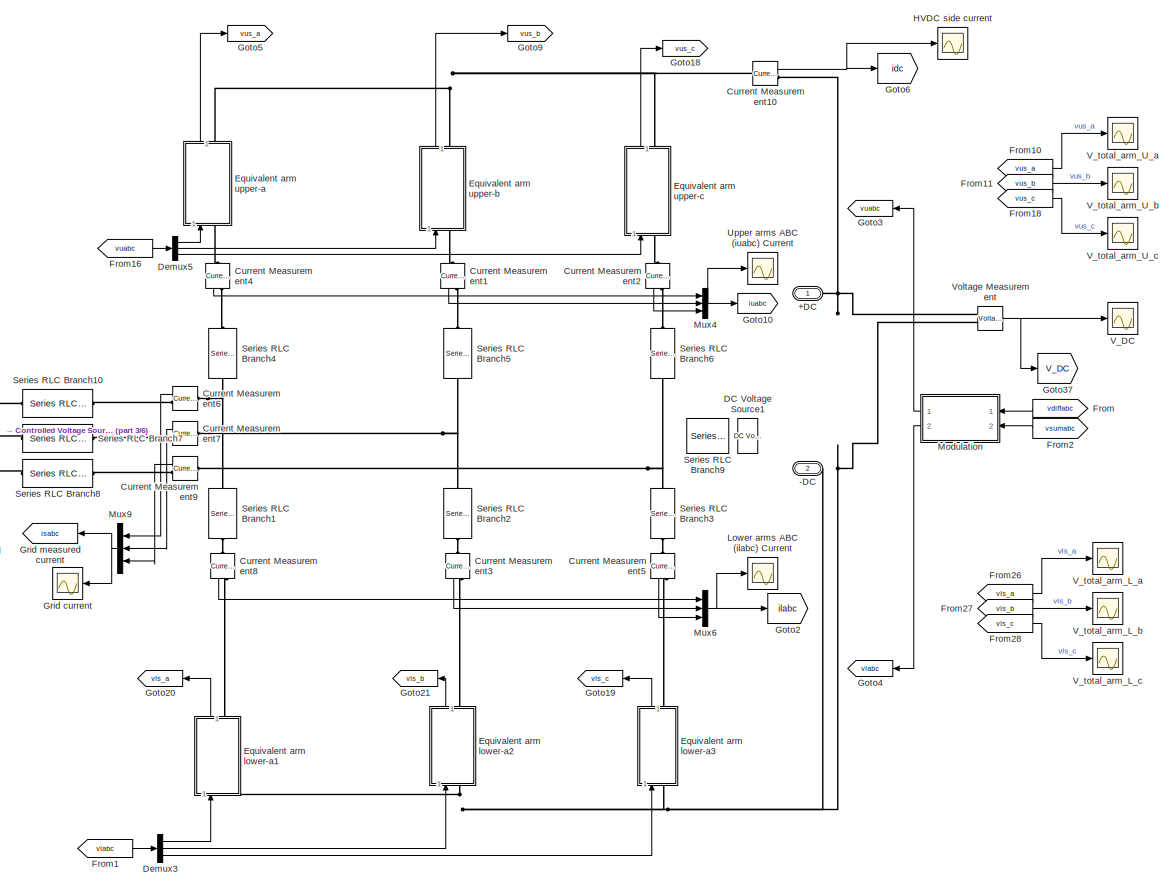
[diagram: GRID2+MMC2 - part 1/6, top center region]
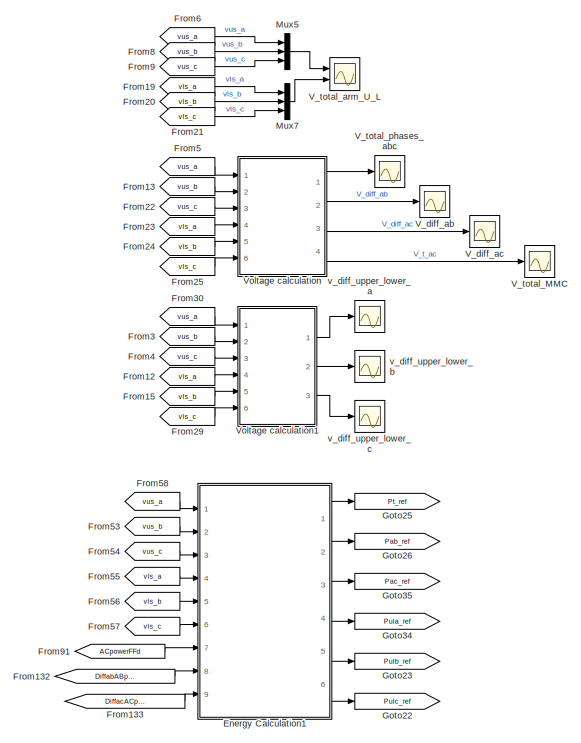
[diagram: GRID2+MMC2 - part 2/6, top right region]
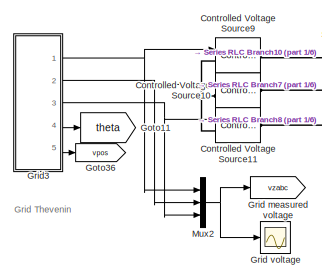
[diagram: GRID2+MMC2 - part 3/6, top left region]
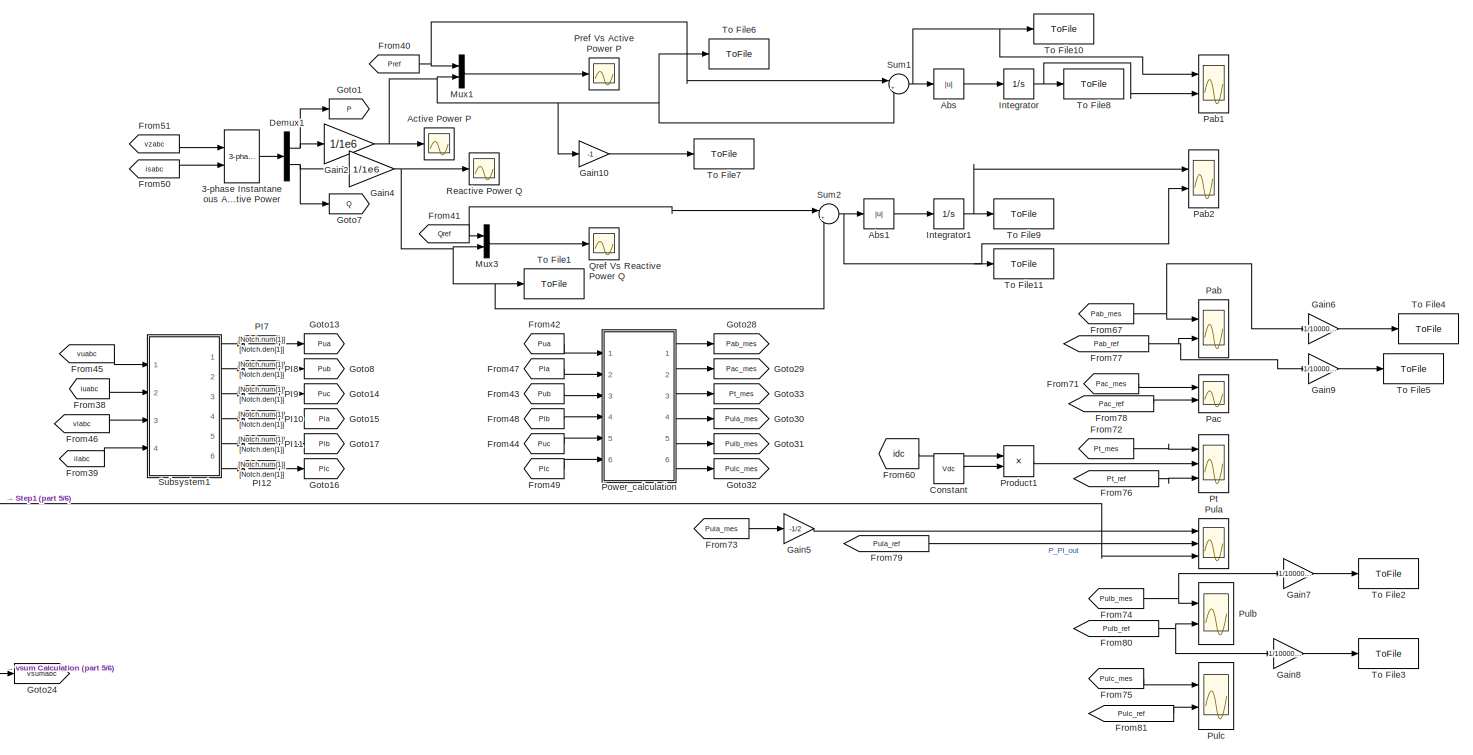
[diagram: GRID2+MMC2 - part 4/6, bottom right region]
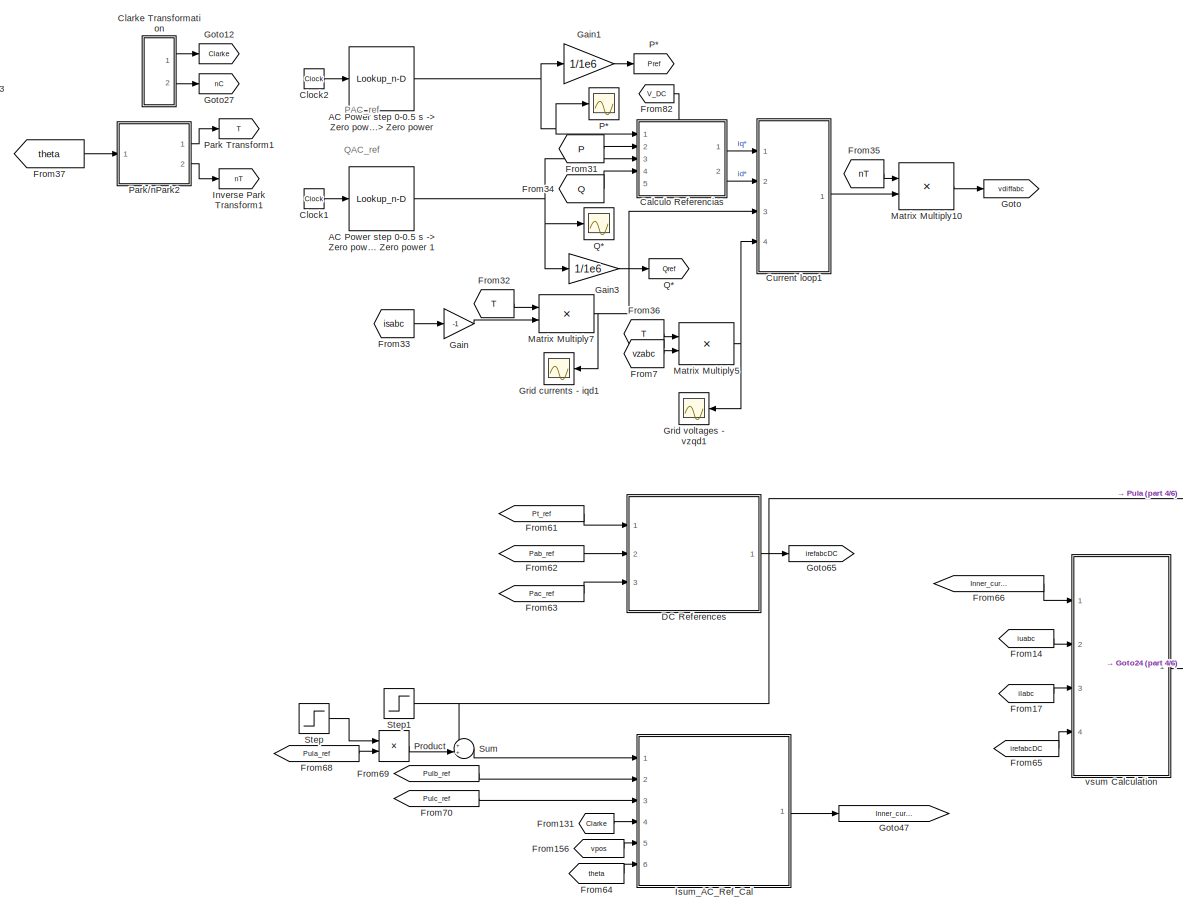
[diagram: GRID2+MMC2 - part 5/6, bottom left region]
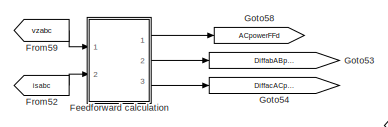
[diagram: GRID2+MMC2 - part 6/6, middle left region]
BLOCK [SubSystem] GRID2+MMC2
  Ports = [0, 0, 0, 0, 0, 2]
  RequestExecContextInheritance = off
BLOCK [PMIOPort] GRID2+MMC2/+DC
  Side = Left
BLOCK [PMIOPort] GRID2+MMC2/-DC
  Port = 2
  Side = Left
BLOCK [Reference] GRID2+MMC2/3-phase  Instantaneous  Active & Reactive Power  REF=powerlib_extras/Measurements/3-phase 
Instantaneous 
Active & Reactive Power
  Ports = [2, 1]
  SourceBlock = powerlib_extras/Measurements/3-phase \nInstantaneous \nActive & Reactive Power
  SourceProductBaseCode = PS
  SourceType = 3-phase instantaneous active and reactive power
BLOCK [Lookup_n-D] GRID2+MMC2/AC Power step 0-0.5 s -> Zero power 0.5-2 s -> Active power injection 2 - 3 s -> Zero power 
  BreakpointsForDimension1 = [0,0.5,2]
  InputPortMap = u0
  InterpMethod = Flat
  NameLocation = top
  NumberOfTableDimensions = 1
  Ports = [1, 1]
  RndMeth = Simplest
  Table = [0,100e6,0]
BLOCK [Lookup_n-D] GRID2+MMC2/AC Power step 0-0.5 s -> Zero power 0.5-2 s -> Reactive power injection 2 - 3 s -> Zero power 1
  BreakpointsForDimension1 = [0,1,2]
  InputPortMap = u0
  InterpMethod = Flat
  NumberOfTableDimensions = 1
  Ports = [1, 1]
  RndMeth = Simplest
  Table = [0,5e6,0]
BLOCK [Abs] GRID2+MMC2/Abs
  SaturateOnIntegerOverflow = off
BLOCK [Abs] GRID2+MMC2/Abs1
  SaturateOnIntegerOverflow = off
BLOCK [Scope] GRID2+MMC2/Active Power P
  Floating = off
  NameLocation = top
  NumInputPorts = 1
  Ports = [1]
  ScopeSpecificationString = Simulink.scopes.TimeScopeBlockCfg('CurrentConfiguration', extmgr.ConfigurationSet(extmgr.Configuration('Core','General UI',true),extmgr.Configuration('Core','Source UI',true),extmgr.Configuration('Sources','WiredSimulink',true,'DataLoggingVariableName','ScopeData2','DataLoggingSaveFormat','StructureWithTime','DataLoggingDecimation','1','DataLoggingDecimateData',true),extmgr.Configuration('Visuals'...<+1725ch>
BLOCK [SubSystem] GRID2+MMC2/Calculo Referencias
  Ports = [5, 2]
  RequestExecContextInheritance = off
BLOCK [Constant] GRID2+MMC2/Calculo Referencias/Constant
  Value = Vdc*1.004
BLOCK [Constant] GRID2+MMC2/Calculo Referencias/Constant1
  Value = sqrt(2)*1000*Vdc/(3*U_ll1)
BLOCK [Gain] GRID2+MMC2/Calculo Referencias/Gain
  Gain = -1
BLOCK [Gain] GRID2+MMC2/Calculo Referencias/Gain1
  Gain = -1
BLOCK [Gain] GRID2+MMC2/Calculo Referencias/Gain2
BLOCK [Inport] GRID2+MMC2/Calculo Referencias/P
  Port = 2
BLOCK [Reference] GRID2+MMC2/Calculo Referencias/PID Controller1  REF=pid_lib/PID Controller
  Ports = [1, 1]
  SourceBlock = pid_lib/PID Controller
  SourceProductBaseCode = SL
  SourceType = PID 1dof
BLOCK [Reference] GRID2+MMC2/Calculo Referencias/PID Controller2  REF=pid_lib/PID Controller
  Ports = [1, 1]
  SourceBlock = pid_lib/PID Controller
  SourceProductBaseCode = SL
  SourceType = PID 1dof
BLOCK [Reference] GRID2+MMC2/Calculo Referencias/PID Controller4  REF=pid_lib/PID Controller
  Ports = [1, 1]
  SourceBlock = pid_lib/PID Controller
  SourceProductBaseCode = SL
  SourceType = PID 1dof
BLOCK [Inport] GRID2+MMC2/Calculo Referencias/P_ref
BLOCK [Product] GRID2+MMC2/Calculo Referencias/Product2
  Ports = [2, 1]
BLOCK [Inport] GRID2+MMC2/Calculo Referencias/Q
  Port = 4
BLOCK [Inport] GRID2+MMC2/Calculo Referencias/Q_ref
  Port = 3
BLOCK [Sum] GRID2+MMC2/Calculo Referencias/Sum1
  Inputs = |+-
  Ports = [2, 1]
BLOCK [Sum] GRID2+MMC2/Calculo Referencias/Sum2
  Inputs = |+-
  Ports = [2, 1]
BLOCK [Sum] GRID2+MMC2/Calculo Referencias/Sum5
  Inputs = |+-
  Ports = [2, 1]
BLOCK [Inport] GRID2+MMC2/Calculo Referencias/V_DC
  NameLocation = top
  Port = 5
BLOCK [Scope] GRID2+MMC2/Calculo Referencias/i*
  Floating = off
  NameLocation = top
  NumInputPorts = 2
  Ports = [2]
  ScopeSpecificationString = Simulink.scopes.TimeScopeBlockCfg('CurrentConfiguration', extmgr.ConfigurationSet(extmgr.Configuration('Core','General UI',true),extmgr.Configuration('Core','Source UI',true),extmgr.Configuration('Sources','WiredSimulink',true,'DataLoggingVariableName','ScopeData1','DataLoggingSaveFormat','StructureWithTime','DataLoggingDecimation','1','DataLoggingDecimateData',true),extmgr.Configuration('Visuals'...<+2366ch>
BLOCK [Scope] GRID2+MMC2/Calculo Referencias/i*1
  Floating = off
  NameLocation = top
  NumInputPorts = 2
  Ports = [2]
  ScopeSpecificationString = Simulink.scopes.TimeScopeBlockCfg('CurrentConfiguration', extmgr.ConfigurationSet(extmgr.Configuration('Core','General UI',true),extmgr.Configuration('Core','Source UI',true),extmgr.Configuration('Sources','WiredSimulink',true,'DataLoggingVariableName','ScopeData1','DataLoggingSaveFormat','StructureWithTime','DataLoggingDecimation','1','DataLoggingDecimateData',true),extmgr.Configuration('Visuals'...<+2351ch>  <repeated x3 — deduplicated; at blocks: i*1>
BLOCK [Outport] GRID2+MMC2/Calculo Referencias/id
  Port = 2
BLOCK [Outport] GRID2+MMC2/Calculo Referencias/iq
  NameLocation = top
BLOCK [SubSystem] GRID2+MMC2/Clarke Transformation 
  NameLocation = top
  Ports = [0, 2]
  RequestExecContextInheritance = off
BLOCK [Outport] GRID2+MMC2/Clarke Transformation /C
  VectorParamsAs1DForOutWhenUnconnected = off
BLOCK [Constant] GRID2+MMC2/Clarke Transformation /Constant
  Value = 0
BLOCK [Constant] GRID2+MMC2/Clarke Transformation /Constant1
  SampleTime = 0
  Value = 1/2
BLOCK [Constant] GRID2+MMC2/Clarke Transformation /Constant2
  SampleTime = 0
  Value = 1/2
BLOCK [Constant] GRID2+MMC2/Clarke Transformation /Constant3
  SampleTime = 0
  Value = 1/2
BLOCK [Constant] GRID2+MMC2/Clarke Transformation /Constant4
  SampleTime = 0
  Value = 2*pi/3
BLOCK [Constant] GRID2+MMC2/Clarke Transformation /Constant5
  SampleTime = 0
BLOCK [Constant] GRID2+MMC2/Clarke Transformation /Constant6
  SampleTime = 0
BLOCK [Constant] GRID2+MMC2/Clarke Transformation /Constant7
  SampleTime = 0
BLOCK [Gain] GRID2+MMC2/Clarke Transformation /Gain7
  Gain = 2/3
BLOCK [Concatenate] GRID2+MMC2/Clarke Transformation /Matrix Concatenate1
  ConcatenateDimension = 2
  Mode = Multidimensional array
  NumInputs = 3
  Ports = [3, 1]
BLOCK [Concatenate] GRID2+MMC2/Clarke Transformation /Matrix Concatenate2
  ConcatenateDimension = 2
  Mode = Multidimensional array
  NumInputs = 3
  Ports = [3, 1]
BLOCK [Mux] GRID2+MMC2/Clarke Transformation /Mux1
  DisplayOption = bar
  Inputs = 3
  Ports = [3, 1]
BLOCK [Mux] GRID2+MMC2/Clarke Transformation /Mux2
  DisplayOption = bar
  Inputs = 3
  Ports = [3, 1]
BLOCK [Mux] GRID2+MMC2/Clarke Transformation /Mux3
  DisplayOption = bar
  Inputs = 3
  Ports = [3, 1]
BLOCK [Mux] GRID2+MMC2/Clarke Transformation /Mux4
  DisplayOption = bar
  Inputs = 3
  Ports = [3, 1]
BLOCK [Mux] GRID2+MMC2/Clarke Transformation /Mux5
  DisplayOption = bar
  Inputs = 3
  Ports = [3, 1]
BLOCK [Mux] GRID2+MMC2/Clarke Transformation /Mux6
  DisplayOption = bar
  Inputs = 3
  Ports = [3, 1]
BLOCK [Sum] GRID2+MMC2/Clarke Transformation /Sum1
  Inputs = |++
  Ports = [2, 1]
BLOCK [Sum] GRID2+MMC2/Clarke Transformation /Sum2
  Inputs = |+-
  Ports = [2, 1]
BLOCK [Trigonometry] GRID2+MMC2/Clarke Transformation /Trigonometric Function
  Operator = cos
  Ports = [1, 1]
BLOCK [Trigonometry] GRID2+MMC2/Clarke Transformation /Trigonometric Function1
  Ports = [1, 1]
BLOCK [Trigonometry] GRID2+MMC2/Clarke Transformation /Trigonometric Function2
  Operator = cos
  Ports = [1, 1]
BLOCK [Trigonometry] GRID2+MMC2/Clarke Transformation /Trigonometric Function3
  Ports = [1, 1]
BLOCK [Trigonometry] GRID2+MMC2/Clarke Transformation /Trigonometric Function4
  Operator = cos
  Ports = [1, 1]
BLOCK [Trigonometry] GRID2+MMC2/Clarke Transformation /Trigonometric Function5
  Ports = [1, 1]
BLOCK [Outport] GRID2+MMC2/Clarke Transformation /nC 
  Port = 2
  VectorParamsAs1DForOutWhenUnconnected = off
BLOCK [Clock] GRID2+MMC2/Clock1
BLOCK [Clock] GRID2+MMC2/Clock2
BLOCK [Constant] GRID2+MMC2/Constant
  Value = Vdc
BLOCK [Reference] GRID2+MMC2/Controlled Voltage Source10  REF=spsControlledVoltageSourceLib/Controlled Voltage Source
  Ports = [1, 0, 0, 0, 0, 1, 1]
  SourceBlock = spsControlledVoltageSourceLib/Controlled Voltage Source
  SourceProductBaseCode = PS
  SourceType = Controlled Voltage Source
BLOCK [Reference] GRID2+MMC2/Controlled Voltage Source11  REF=spsControlledVoltageSourceLib/Controlled Voltage Source
  Ports = [1, 0, 0, 0, 0, 1, 1]
  SourceBlock = spsControlledVoltageSourceLib/Controlled Voltage Source
  SourceProductBaseCode = PS
  SourceType = Controlled Voltage Source
BLOCK [Reference] GRID2+MMC2/Controlled Voltage Source9  REF=spsControlledVoltageSourceLib/Controlled Voltage Source
  Ports = [1, 0, 0, 0, 0, 1, 1]
  SourceBlock = spsControlledVoltageSourceLib/Controlled Voltage Source
  SourceProductBaseCode = PS
  SourceType = Controlled Voltage Source
BLOCK [Reference] GRID2+MMC2/Current Measurement1  REF=spsCurrentMeasurementLib/Current Measurement
  NameLocation = left
  Ports = [0, 1, 0, 0, 0, 1, 1]
  SourceBlock = spsCurrentMeasurementLib/Current Measurement
  SourceProductBaseCode = PS
  SourceType = Current Measurement
  UserDataPersistent = on
BLOCK [Reference] GRID2+MMC2/Current Measurement10  REF=spsCurrentMeasurementLib/Current Measurement
  Ports = [0, 1, 0, 0, 0, 1, 1]
  SourceBlock = spsCurrentMeasurementLib/Current Measurement
  SourceProductBaseCode = PS
  SourceType = Current Measurement
  UserDataPersistent = on
BLOCK [Reference] GRID2+MMC2/Current Measurement2  REF=spsCurrentMeasurementLib/Current Measurement
  NameLocation = left
  Ports = [0, 1, 0, 0, 0, 1, 1]
  SourceBlock = spsCurrentMeasurementLib/Current Measurement
  SourceProductBaseCode = PS
  SourceType = Current Measurement
  UserDataPersistent = on
BLOCK [Reference] GRID2+MMC2/Current Measurement3  REF=spsCurrentMeasurementLib/Current Measurement
  NameLocation = left
  Ports = [0, 1, 0, 0, 0, 1, 1]
  SourceBlock = spsCurrentMeasurementLib/Current Measurement
  SourceProductBaseCode = PS
  SourceType = Current Measurement
  UserDataPersistent = on
BLOCK [Reference] GRID2+MMC2/Current Measurement4  REF=spsCurrentMeasurementLib/Current Measurement
  NameLocation = left
  Ports = [0, 1, 0, 0, 0, 1, 1]
  SourceBlock = spsCurrentMeasurementLib/Current Measurement
  SourceProductBaseCode = PS
  SourceType = Current Measurement
  UserDataPersistent = on
BLOCK [Reference] GRID2+MMC2/Current Measurement5  REF=spsCurrentMeasurementLib/Current Measurement
  NameLocation = left
  Ports = [0, 1, 0, 0, 0, 1, 1]
  SourceBlock = spsCurrentMeasurementLib/Current Measurement
  SourceProductBaseCode = PS
  SourceType = Current Measurement
  UserDataPersistent = on
BLOCK [Reference] GRID2+MMC2/Current Measurement6  REF=spsCurrentMeasurementLib/Current Measurement
  NameLocation = top
  Ports = [0, 1, 0, 0, 0, 1, 1]
  SourceBlock = spsCurrentMeasurementLib/Current Measurement
  SourceProductBaseCode = PS
  SourceType = Current Measurement
  UserDataPersistent = on
BLOCK [Reference] GRID2+MMC2/Current Measurement7  REF=spsCurrentMeasurementLib/Current Measurement
  NameLocation = top
  Ports = [0, 1, 0, 0, 0, 1, 1]
  SourceBlock = spsCurrentMeasurementLib/Current Measurement
  SourceProductBaseCode = PS
  SourceType = Current Measurement
  UserDataPersistent = on
BLOCK [Reference] GRID2+MMC2/Current Measurement8  REF=spsCurrentMeasurementLib/Current Measurement
  NameLocation = left
  Ports = [0, 1, 0, 0, 0, 1, 1]
  SourceBlock = spsCurrentMeasurementLib/Current Measurement
  SourceProductBaseCode = PS
  SourceType = Current Measurement
  UserDataPersistent = on
BLOCK [Reference] GRID2+MMC2/Current Measurement9  REF=spsCurrentMeasurementLib/Current Measurement
  NameLocation = top
  Ports = [0, 1, 0, 0, 0, 1, 1]
  SourceBlock = spsCurrentMeasurementLib/Current Measurement
  SourceProductBaseCode = PS
  SourceType = Current Measurement
  UserDataPersistent = on
BLOCK [SubSystem] GRID2+MMC2/Current loop1
  Ports = [4, 1]
  RequestExecContextInheritance = off
BLOCK [SubSystem] GRID2+MMC2/Current loop1/1SMC
  Ports = [4, 2]
  RequestExecContextInheritance = off
BLOCK [Sum] GRID2+MMC2/Current loop1/1SMC/Add
  IconShape = rectangular
  Inputs = ---
  Ports = [3, 1]
BLOCK [Gain] GRID2+MMC2/Current loop1/1SMC/Gain2
  Gain = (Rg_1+Ra_1/2)
BLOCK [Gain] GRID2+MMC2/Current loop1/1SMC/Gain3
  Gain = Kq
BLOCK [Gain] GRID2+MMC2/Current loop1/1SMC/Gain4
  Gain = Qq
BLOCK [Gain] GRID2+MMC2/Current loop1/1SMC/Gain5
  Gain = (Lg_1+La_1/2)
BLOCK [Gain] GRID2+MMC2/Current loop1/1SMC/Gain6
  Gain = (Lg_1+La_1/2)*2*pi*50
BLOCK [Outport] GRID2+MMC2/Current loop1/1SMC/Out1
BLOCK [Inport] GRID2+MMC2/Current loop1/1SMC/Ref_id
  Port = 3
BLOCK [Inport] GRID2+MMC2/Current loop1/1SMC/Ref_iq
  Port = 2
BLOCK [Scope] GRID2+MMC2/Current loop1/1SMC/Scope
  Floating = off
  NumInputPorts = 2
  Ports = [2]
  ScopeSpecificationString = Simulink.scopes.TimeScopeBlockCfg('CurrentConfiguration', extmgr.ConfigurationSet(extmgr.Configuration('Core','General UI',true),extmgr.Configuration('Core','Source UI',true),extmgr.Configuration('Sources','WiredSimulink',true,'DataLoggingVariableName','ScopeData2'),extmgr.Configuration('Visuals','Time Domain',true,'SerializedDisplays',{struct('MinYLimReal','-39879.38464','MaxYLimReal','55263.3977...<+1969ch>  <repeated x7 — deduplicated; at blocks: Scope>
BLOCK [Signum] GRID2+MMC2/Current loop1/1SMC/Sign
  ZeroCross = off
BLOCK [Outport] GRID2+MMC2/Current loop1/1SMC/Sq
  Port = 2
BLOCK [Sum] GRID2+MMC2/Current loop1/1SMC/Sum2
  Inputs = |++
  Ports = [2, 1]
BLOCK [Sum] GRID2+MMC2/Current loop1/1SMC/Sum5
  Inputs = |+-
  Ports = [2, 1]
BLOCK [Inport] GRID2+MMC2/Current loop1/1SMC/id
  Port = 4
BLOCK [Inport] GRID2+MMC2/Current loop1/1SMC/iq
BLOCK [Constant] GRID2+MMC2/Current loop1/Constant2
  SampleTime = -1
  Value = 2*pi*50
BLOCK [Constant] GRID2+MMC2/Current loop1/Constant3
  Value = 0
BLOCK [Reference] GRID2+MMC2/Current loop1/Current control d axis PI Controller  REF=pid_lib/PID Controller
  Ports = [1, 1]
  SourceBlock = pid_lib/PID Controller
  SourceProductBaseCode = SL
  SourceType = PID 1dof
BLOCK [Reference] GRID2+MMC2/Current loop1/Current control q axis PI Controller  REF=pid_lib/PID Controller
  Ports = [1, 1]
  SourceBlock = pid_lib/PID Controller
  SourceProductBaseCode = SL
  SourceType = PID 1dof
BLOCK [Demux] GRID2+MMC2/Current loop1/Demux1
  Outputs = 2
  Ports = [1, 2]
BLOCK [Demux] GRID2+MMC2/Current loop1/Demux2
  Outputs = 2
  Ports = [1, 2]
BLOCK [Product] GRID2+MMC2/Current loop1/Divide
  Inputs = **
  Ports = [2, 1]
BLOCK [Product] GRID2+MMC2/Current loop1/Divide1
  Inputs = **
  Ports = [2, 1]
BLOCK [From] GRID2+MMC2/Current loop1/From
  GotoTag = Sq
BLOCK [From] GRID2+MMC2/Current loop1/From1
  GotoTag = Sd
BLOCK [From] GRID2+MMC2/Current loop1/From2
  GotoTag = vzq
BLOCK [Gain] GRID2+MMC2/Current loop1/Gain1
  Gain = (Lg_1+La_1/2)
BLOCK [Goto] GRID2+MMC2/Current loop1/Goto
  GotoTag = Sq
BLOCK [Goto] GRID2+MMC2/Current loop1/Goto1
  GotoTag = Sd
BLOCK [Goto] GRID2+MMC2/Current loop1/Goto2
  GotoTag = vzq
BLOCK [Mux] GRID2+MMC2/Current loop1/Mux1
  DisplayOption = bar
  Inputs = 2
  Ports = [2, 1]
BLOCK [Mux] GRID2+MMC2/Current loop1/Mux3
  DisplayOption = bar
  Inputs = 2
  Ports = [2, 1]
BLOCK [Mux] GRID2+MMC2/Current loop1/Mux5
  DisplayOption = bar
  Inputs = 2
  Ports = [2, 1]
BLOCK [SubSystem] GRID2+MMC2/Current loop1/PLCS
  Ports = [4, 2]
  RequestExecContextInheritance = off
BLOCK [Abs] GRID2+MMC2/Current loop1/PLCS/Abs2
  SaturateOnIntegerOverflow = off
BLOCK [Sum] GRID2+MMC2/Current loop1/PLCS/Add
  IconShape = rectangular
  Inputs = ---
  Ports = [3, 1]
BLOCK [Sum] GRID2+MMC2/Current loop1/PLCS/Add1
  IconShape = rectangular
  Ports = [2, 1]
BLOCK [Derivative] GRID2+MMC2/Current loop1/PLCS/Derivative
BLOCK [Gain] GRID2+MMC2/Current loop1/PLCS/Gain1
  Gain = 20000
BLOCK [Gain] GRID2+MMC2/Current loop1/PLCS/Gain14
  Gain = 3900
BLOCK [Gain] GRID2+MMC2/Current loop1/PLCS/Gain2
  Gain = (Rg_1+Ra_1/2)
BLOCK [Gain] GRID2+MMC2/Current loop1/PLCS/Gain3
  Gain = (Lg_1+La_1/2)
BLOCK [Gain] GRID2+MMC2/Current loop1/PLCS/Gain6
  Gain = (Lg_1+La_1/2)*2*pi*50
BLOCK [Outport] GRID2+MMC2/Current loop1/PLCS/Out1
BLOCK [Product] GRID2+MMC2/Current loop1/PLCS/Product
  Ports = [2, 1]
BLOCK [Inport] GRID2+MMC2/Current loop1/PLCS/Ref_id
  Port = 3
BLOCK [Inport] GRID2+MMC2/Current loop1/PLCS/Ref_iq
  Port = 2
BLOCK [Scope] GRID2+MMC2/Current loop1/PLCS/Scope
  Floating = off
  NumInputPorts = 2
  Ports = [2]
  ScopeSpecificationString = Simulink.scopes.TimeScopeBlockCfg('CurrentConfiguration', extmgr.ConfigurationSet(extmgr.Configuration('Core','General UI',true),extmgr.Configuration('Core','Source UI',true),extmgr.Configuration('Sources','WiredSimulink',true,'DataLoggingVariableName','ScopeData2'),extmgr.Configuration('Visuals','Time Domain',true,'SerializedDisplays',{struct('MinYLimReal','-207.79269','MaxYLimReal','207.79269','...<+2143ch>  <repeated x3 — deduplicated; at blocks: Scope>
BLOCK [Signum] GRID2+MMC2/Current loop1/PLCS/Sign1
BLOCK [Signum] GRID2+MMC2/Current loop1/PLCS/Sign2
BLOCK [Outport] GRID2+MMC2/Current loop1/PLCS/Sq
  Port = 2
BLOCK [Sqrt] GRID2+MMC2/Current loop1/PLCS/Sqrt3
BLOCK [Sum] GRID2+MMC2/Current loop1/PLCS/Sum5
  Inputs = |+-
  Ports = [2, 1]
BLOCK [Inport] GRID2+MMC2/Current loop1/PLCS/id
  Port = 4
BLOCK [Inport] GRID2+MMC2/Current loop1/PLCS/iq
BLOCK [Inport] GRID2+MMC2/Current loop1/Ref_id
  Port = 2
BLOCK [Inport] GRID2+MMC2/Current loop1/Ref_iq
BLOCK [SubSystem] GRID2+MMC2/Current loop1/SMC-Dynamic
  Ports = [4, 2]
  RequestExecContextInheritance = off
BLOCK [Sum] GRID2+MMC2/Current loop1/SMC-Dynamic/Add
  IconShape = rectangular
  Ports = [2, 1]
BLOCK [Sum] GRID2+MMC2/Current loop1/SMC-Dynamic/Add2
  IconShape = rectangular
  Inputs = ---
  Ports = [3, 1]
BLOCK [Derivative] GRID2+MMC2/Current loop1/SMC-Dynamic/Derivative2
BLOCK [Gain] GRID2+MMC2/Current loop1/SMC-Dynamic/Gain1
  Gain = 0.002
BLOCK [Gain] GRID2+MMC2/Current loop1/SMC-Dynamic/Gain2
  Gain = (Rg_1+Ra_1/2)
BLOCK [Gain] GRID2+MMC2/Current loop1/SMC-Dynamic/Gain3
  Gain = 0.02
BLOCK [Gain] GRID2+MMC2/Current loop1/SMC-Dynamic/Gain4
  Gain = 0.00416
BLOCK [Gain] GRID2+MMC2/Current loop1/SMC-Dynamic/Gain6
  Gain = (Lg_1+La_1/2)*2*pi*50
BLOCK [Integrator] GRID2+MMC2/Current loop1/SMC-Dynamic/Integrator1
  Ports = [1, 1]
BLOCK [Integrator] GRID2+MMC2/Current loop1/SMC-Dynamic/Integrator2
  Ports = [1, 1]
BLOCK [Outport] GRID2+MMC2/Current loop1/SMC-Dynamic/Out1
BLOCK [Inport] GRID2+MMC2/Current loop1/SMC-Dynamic/Ref_id
  Port = 3
BLOCK [Inport] GRID2+MMC2/Current loop1/SMC-Dynamic/Ref_iq
  Port = 2
BLOCK [Scope] GRID2+MMC2/Current loop1/SMC-Dynamic/Scope
  Floating = off
  NumInputPorts = 3
  Ports = [3]
  ScopeSpecificationString = Simulink.scopes.TimeScopeBlockCfg('CurrentConfiguration', extmgr.ConfigurationSet(extmgr.Configuration('Core','General UI',true),extmgr.Configuration('Core','Source UI',true),extmgr.Configuration('Sources','WiredSimulink',true,'DataLoggingVariableName','ScopeData1'),extmgr.Configuration('Visuals','Time Domain',true,'SerializedDisplays',{struct('MinYLimReal','261185.62421','MaxYLimReal','262118.002...<+2686ch>
BLOCK [Signum] GRID2+MMC2/Current loop1/SMC-Dynamic/Sign
  ZeroCross = off
BLOCK [Outport] GRID2+MMC2/Current loop1/SMC-Dynamic/Sq
  Port = 2
BLOCK [Sum] GRID2+MMC2/Current loop1/SMC-Dynamic/Sum5
  Inputs = |+-
  Ports = [2, 1]
BLOCK [ToFile] GRID2+MMC2/Current loop1/SMC-Dynamic/To File
  Filename = iq_ref.mat
  MatrixName = ans99
  Ports = [1]
  SaveFormat = Timeseries
BLOCK [ToFile] GRID2+MMC2/Current loop1/SMC-Dynamic/To File1
  Filename = iq.mat
  MatrixName = ans100
  Ports = [1]
  SaveFormat = Timeseries
BLOCK [Inport] GRID2+MMC2/Current loop1/SMC-Dynamic/iq
BLOCK [Inport] GRID2+MMC2/Current loop1/SMC-Dynamic/vzq
  Port = 4
BLOCK [SubSystem] GRID2+MMC2/Current loop1/SMC1
  Ports = [4, 2]
  RequestExecContextInheritance = off
BLOCK [Sum] GRID2+MMC2/Current loop1/SMC1/Add
  IconShape = rectangular
  Inputs = +--
  Ports = [3, 1]
BLOCK [Gain] GRID2+MMC2/Current loop1/SMC1/Gain2
  Gain = (Rg_1+Ra_1/2)
BLOCK [Gain] GRID2+MMC2/Current loop1/SMC1/Gain3
  Gain = Kd*0.7
BLOCK [Gain] GRID2+MMC2/Current loop1/SMC1/Gain4
  Gain = Qd
BLOCK [Gain] GRID2+MMC2/Current loop1/SMC1/Gain5
  Gain = (Lg_1+La_1/2)
BLOCK [Gain] GRID2+MMC2/Current loop1/SMC1/Gain6
  Gain = (Lg_1+La_1/2)*2*pi*50
BLOCK [Outport] GRID2+MMC2/Current loop1/SMC1/Out1
BLOCK [Inport] GRID2+MMC2/Current loop1/SMC1/Ref_id
  Port = 2
BLOCK [Inport] GRID2+MMC2/Current loop1/SMC1/Ref_iq
  Port = 3
BLOCK [Outport] GRID2+MMC2/Current loop1/SMC1/Sd
  Port = 2
BLOCK [Signum] GRID2+MMC2/Current loop1/SMC1/Sign
  ZeroCross = off
BLOCK [Sum] GRID2+MMC2/Current loop1/SMC1/Sum2
  Inputs = |++
  Ports = [2, 1]
BLOCK [Sum] GRID2+MMC2/Current loop1/SMC1/Sum5
  Inputs = |+-
  Ports = [2, 1]
BLOCK [Inport] GRID2+MMC2/Current loop1/SMC1/id
BLOCK [Inport] GRID2+MMC2/Current loop1/SMC1/iq
  Port = 4
BLOCK [SubSystem] GRID2+MMC2/Current loop1/ST-SMC
  Ports = [4, 2]
  RequestExecContextInheritance = off
BLOCK [Abs] GRID2+MMC2/Current loop1/ST-SMC/Abs2
  SaturateOnIntegerOverflow = off
BLOCK [Sum] GRID2+MMC2/Current loop1/ST-SMC/Add
  IconShape = rectangular
  Inputs = ---
  Ports = [3, 1]
BLOCK [Sum] GRID2+MMC2/Current loop1/ST-SMC/Add1
  IconShape = rectangular
  Ports = [2, 1]
BLOCK [Gain] GRID2+MMC2/Current loop1/ST-SMC/Gain14
  Gain = 4000
BLOCK [Gain] GRID2+MMC2/Current loop1/ST-SMC/Gain17
  Gain = 4000
BLOCK [Gain] GRID2+MMC2/Current loop1/ST-SMC/Gain2
  Gain = (Rg_1+Ra_1/2)
BLOCK [Gain] GRID2+MMC2/Current loop1/ST-SMC/Gain5
  Gain = (Lg_1+La_1/2)
BLOCK [Gain] GRID2+MMC2/Current loop1/ST-SMC/Gain6
  Gain = (Lg_1+La_1/2)*2*pi*50
BLOCK [Integrator] GRID2+MMC2/Current loop1/ST-SMC/Integrator2
  Ports = [1, 1]
BLOCK [Outport] GRID2+MMC2/Current loop1/ST-SMC/Out1
BLOCK [Product] GRID2+MMC2/Current loop1/ST-SMC/Product2
  Ports = [2, 1]
BLOCK [Inport] GRID2+MMC2/Current loop1/ST-SMC/Ref_id
  Port = 3
BLOCK [Inport] GRID2+MMC2/Current loop1/ST-SMC/Ref_iq
  Port = 2
BLOCK [Scope] GRID2+MMC2/Current loop1/ST-SMC/Scope
  Floating = off
  NumInputPorts = 2
  Ports = [2]
BLOCK [Signum] GRID2+MMC2/Current loop1/ST-SMC/Sign2
BLOCK [Outport] GRID2+MMC2/Current loop1/ST-SMC/Sq
  Port = 2
BLOCK [Sqrt] GRID2+MMC2/Current loop1/ST-SMC/Sqrt3
BLOCK [Sum] GRID2+MMC2/Current loop1/ST-SMC/Sum5
  Inputs = |+-
  Ports = [2, 1]
BLOCK [Inport] GRID2+MMC2/Current loop1/ST-SMC/id
  Port = 4
BLOCK [Inport] GRID2+MMC2/Current loop1/ST-SMC/iq
BLOCK [Scope] GRID2+MMC2/Current loop1/Scope1
  Floating = off
  NumInputPorts = 2
  Ports = [2]
  ScopeSpecificationString = Simulink.scopes.TimeScopeBlockCfg('CurrentConfiguration', extmgr.ConfigurationSet(extmgr.Configuration('Core','General UI',true),extmgr.Configuration('Core','Source UI',true),extmgr.Configuration('Sources','WiredSimulink',true,'DataLoggingVariableName','ScopeData1','DataLoggingSaveFormat','StructureWithTime','DataLoggingDecimation','1','DataLoggingDecimateData',true),extmgr.Configuration('Visuals'...<+2359ch>
BLOCK [Scope] GRID2+MMC2/Current loop1/Scope2
  Floating = off
  NumInputPorts = 1
  Ports = [1]
  ScopeSpecificationString = Simulink.scopes.TimeScopeBlockCfg('CurrentConfiguration', extmgr.ConfigurationSet(extmgr.Configuration('Core','General UI',true),extmgr.Configuration('Core','Source UI',true),extmgr.Configuration('Sources','WiredSimulink',true,'DataLoggingVariableName','ScopeData2','DataLoggingSaveFormat','StructureWithTime','DataLoggingDecimation','1','DataLoggingDecimateData',true),extmgr.Configuration('Visuals'...<+1727ch>
BLOCK [Scope] GRID2+MMC2/Current loop1/Scope7
  Floating = off
  NumInputPorts = 1
  Ports = [1]
  ScopeSpecificationString = Simulink.scopes.TimeScopeBlockCfg('CurrentConfiguration', extmgr.ConfigurationSet(extmgr.Configuration('Core','General UI',true),extmgr.Configuration('Core','Source UI',true),extmgr.Configuration('Sources','WiredSimulink',true,'DataLoggingVariableName','ScopeData12','DataLoggingSaveFormat','StructureWithTime','DataLoggingDecimation','1','DataLoggingDecimateData',true),extmgr.Configuration('Visuals...<+1760ch>  <repeated x3 — deduplicated; at blocks: Scope7>
BLOCK [Sum] GRID2+MMC2/Current loop1/Sum3
  Inputs = -+|
  Ports = [2, 1]
BLOCK [Sum] GRID2+MMC2/Current loop1/Sum4
  Inputs = |++
  Ports = [2, 1]
BLOCK [Sum] GRID2+MMC2/Current loop1/Sum5
  Inputs = |+-
  Ports = [2, 1]
BLOCK [Sum] GRID2+MMC2/Current loop1/Sum7
  Inputs = |+-
  Ports = [2, 1]
BLOCK [Sum] GRID2+MMC2/Current loop1/Sum8
  Inputs = --|
  Ports = [2, 1]
BLOCK [SubSystem] GRID2+MMC2/Current loop1/Twisting
  Ports = [4, 2]
  RequestExecContextInheritance = off
BLOCK [Sum] GRID2+MMC2/Current loop1/Twisting/Add
  IconShape = rectangular
  Inputs = ---
  Ports = [3, 1]
BLOCK [Derivative] GRID2+MMC2/Current loop1/Twisting/Derivative2
BLOCK [Gain] GRID2+MMC2/Current loop1/Twisting/Gain1
  Gain = 7500
BLOCK [Gain] GRID2+MMC2/Current loop1/Twisting/Gain2
  Gain = (Rg_1+Ra_1/2)
BLOCK [Gain] GRID2+MMC2/Current loop1/Twisting/Gain4
  Gain = 1000
BLOCK [Gain] GRID2+MMC2/Current loop1/Twisting/Gain5
  Gain = (Lg_1+La_1/2)
BLOCK [Gain] GRID2+MMC2/Current loop1/Twisting/Gain6
  Gain = (Lg_1+La_1/2)*2*pi*50
BLOCK [Outport] GRID2+MMC2/Current loop1/Twisting/Out1
BLOCK [Inport] GRID2+MMC2/Current loop1/Twisting/Ref_id
  Port = 3
BLOCK [Inport] GRID2+MMC2/Current loop1/Twisting/Ref_iq
  Port = 2
BLOCK [Scope] GRID2+MMC2/Current loop1/Twisting/Scope
  Floating = off
  NumInputPorts = 2
  Ports = [2]
BLOCK [Scope] GRID2+MMC2/Current loop1/Twisting/Scope1
  Floating = off
  NumInputPorts = 2
  Ports = [2]
  ScopeSpecificationString = Simulink.scopes.TimeScopeBlockCfg('CurrentConfiguration', extmgr.ConfigurationSet(extmgr.Configuration('Core','General UI',true),extmgr.Configuration('Core','Source UI',true),extmgr.Configuration('Sources','WiredSimulink',true,'DataLoggingVariableName','ScopeData1'),extmgr.Configuration('Visuals','Time Domain',true,'SerializedDisplays',{struct('MinYLimReal','-16586187971201487326561678130165289198...<+2478ch>  <repeated x3 — deduplicated; at blocks: Scope1>
BLOCK [Signum] GRID2+MMC2/Current loop1/Twisting/Sign
  ZeroCross = off
BLOCK [Signum] GRID2+MMC2/Current loop1/Twisting/Sign1
  ZeroCross = off
BLOCK [Outport] GRID2+MMC2/Current loop1/Twisting/Sq
  Port = 2
BLOCK [Sum] GRID2+MMC2/Current loop1/Twisting/Sum2
  Inputs = |++
  Ports = [2, 1]
BLOCK [Sum] GRID2+MMC2/Current loop1/Twisting/Sum5
  Inputs = |+-
  Ports = [2, 1]
BLOCK [Inport] GRID2+MMC2/Current loop1/Twisting/id
  Port = 4
BLOCK [Inport] GRID2+MMC2/Current loop1/Twisting/iq
BLOCK [Inport] GRID2+MMC2/Current loop1/iqd0
  Port = 3
BLOCK [Selector] GRID2+MMC2/Current loop1/iqd0-iqd
  IndexOptions = Index vector (dialog)
  Indices = [1 2]
  InputPortWidth = 3
  OutputSizes = 1
  Ports = [1, 1]
BLOCK [Outport] GRID2+MMC2/Current loop1/vlqd0
BLOCK [Inport] GRID2+MMC2/Current loop1/vzqd0
  Port = 4
BLOCK [Selector] GRID2+MMC2/Current loop1/vzqd0-vzqd
  IndexOptions = Index vector (dialog)
  Indices = [1 2]
  InputPortWidth = 3
  OutputSizes = 1
  Ports = [1, 1]
BLOCK [SubSystem] GRID2+MMC2/DC References
  NameLocation = top
  Ports = [3, 1]
  RequestExecContextInheritance = off
BLOCK [Constant] GRID2+MMC2/DC References/Constant
  NameLocation = top
  Value = [1,1,1;1,-2,1;1,1,-2]
BLOCK [Gain] GRID2+MMC2/DC References/Gain1
  Gain = 1/(3*Vdc)
BLOCK [Product] GRID2+MMC2/DC References/Matrix Multiply2
  Multiplication = Matrix(*)
  Ports = [2, 1]
BLOCK [Mux] GRID2+MMC2/DC References/Mux10
  DisplayOption = bar
  Inputs = 3
  Ports = [3, 1]
BLOCK [Inport] GRID2+MMC2/DC References/Pab
  Port = 2
BLOCK [Inport] GRID2+MMC2/DC References/Pac
  Port = 3
BLOCK [Inport] GRID2+MMC2/DC References/Pt_DC
BLOCK [SubSystem] GRID2+MMC2/DC References/Sat3
  Ports = [1, 1]
  RequestExecContextInheritance = off
BLOCK [Demux] GRID2+MMC2/DC References/Sat3/Demux4
  Outputs = 3
  Ports = [1, 3]
BLOCK [Inport] GRID2+MMC2/DC References/Sat3/In1
BLOCK [Mux] GRID2+MMC2/DC References/Sat3/Mux5
  DisplayOption = bar
  Inputs = 3
  Ports = [3, 1]
BLOCK [Outport] GRID2+MMC2/DC References/Sat3/Out1
  VectorParamsAs1DForOutWhenUnconnected = off
BLOCK [Saturate] GRID2+MMC2/DC References/Sat3/Saturation1
  LowerLimit = -IsaturationinnerDC1
  UpperLimit = IsaturationinnerDC1
BLOCK [Saturate] GRID2+MMC2/DC References/Sat3/Saturation4
  LowerLimit = -IsaturationinnerDC1
  UpperLimit = IsaturationinnerDC1
BLOCK [Saturate] GRID2+MMC2/DC References/Sat3/Saturation5
  LowerLimit = -IsaturationinnerDC1
  UpperLimit = IsaturationinnerDC1
BLOCK [Outport] GRID2+MMC2/DC References/isum_abc_ref_DC
BLOCK [Reference] GRID2+MMC2/DC Voltage Source1  REF=spsDCVoltageSourceLib/DC Voltage Source
  NameLocation = left
  Ports = [0, 0, 0, 0, 0, 1, 1]
  SourceBlock = spsDCVoltageSourceLib/DC Voltage Source
  SourceProductBaseCode = PS
  SourceType = DC Voltage Source
BLOCK [Demux] GRID2+MMC2/Demux1
  Outputs = 2
  Ports = [1, 2]
BLOCK [Demux] GRID2+MMC2/Demux3
  Outputs = 3
  Ports = [1, 3]
BLOCK [Demux] GRID2+MMC2/Demux5
  Outputs = 3
  Ports = [1, 3]
BLOCK [SubSystem] GRID2+MMC2/Energy Calculation1
  Ports = [9, 6]
  RequestExecContextInheritance = off
BLOCK [SubSystem] GRID2+MMC2/Energy Calculation1/AC Power Reference
  Ports = [3, 3]
  RequestExecContextInheritance = off
BLOCK [Constant] GRID2+MMC2/Energy Calculation1/AC Power Reference/Constant1
  Value = EnergyDiffUpLowRefb
BLOCK [Constant] GRID2+MMC2/Energy Calculation1/AC Power Reference/Constant2
  Value = EnergyDiffUpLowRefc
BLOCK [Constant] GRID2+MMC2/Energy Calculation1/AC Power Reference/Constant21
  Value = EnergyDiffUpLowRefa
BLOCK [Inport] GRID2+MMC2/Energy Calculation1/AC Power Reference/Ediff_arm_a
BLOCK [Inport] GRID2+MMC2/Energy Calculation1/AC Power Reference/Ediff_arm_b
  Port = 2
BLOCK [Inport] GRID2+MMC2/Energy Calculation1/AC Power Reference/Ediff_arm_c
  Port = 3
BLOCK [TransferFcn] GRID2+MMC2/Energy Calculation1/AC Power Reference/PI1
  Denominator = [Notch.den{1}]
  Numerator = [Notch.num{1}]
BLOCK [TransferFcn] GRID2+MMC2/Energy Calculation1/AC Power Reference/PI2
  Denominator = [Notch.den{1}]
  Numerator = [Notch.num{1}]
BLOCK [SubSystem] GRID2+MMC2/Energy Calculation1/AC Power Reference/PI3
  Ports = [1, 1]
  RequestExecContextInheritance = off
BLOCK [Gain] GRID2+MMC2/Energy Calculation1/AC Power Reference/PI3/Gain1
  Gain = Kienergy
BLOCK [Gain] GRID2+MMC2/Energy Calculation1/AC Power Reference/PI3/Gain111
  Gain = Kpenergy
BLOCK [Gain] GRID2+MMC2/Energy Calculation1/AC Power Reference/PI3/Gain3
BLOCK [Gain] GRID2+MMC2/Energy Calculation1/AC Power Reference/PI3/Gain4
BLOCK [Sum] GRID2+MMC2/Energy Calculation1/AC Power Reference/PI3/Sum
  Ports = [2, 1]
BLOCK [Inport] GRID2+MMC2/Energy Calculation1/AC Power Reference/PI3/e
BLOCK [Outport] GRID2+MMC2/Energy Calculation1/AC Power Reference/PI3/u
  VectorParamsAs1DForOutWhenUnconnected = off
BLOCK [SubSystem] GRID2+MMC2/Energy Calculation1/AC Power Reference/PI4
  Ports = [1, 1]
  RequestExecContextInheritance = off
BLOCK [Gain] GRID2+MMC2/Energy Calculation1/AC Power Reference/PI4/Gain1
  Gain = Kienergy
BLOCK [Gain] GRID2+MMC2/Energy Calculation1/AC Power Reference/PI4/Gain111
  Gain = Kpenergy
BLOCK [Gain] GRID2+MMC2/Energy Calculation1/AC Power Reference/PI4/Gain3
BLOCK [Gain] GRID2+MMC2/Energy Calculation1/AC Power Reference/PI4/Gain4
BLOCK [Sum] GRID2+MMC2/Energy Calculation1/AC Power Reference/PI4/Sum
  Ports = [2, 1]
BLOCK [Inport] GRID2+MMC2/Energy Calculation1/AC Power Reference/PI4/e
BLOCK [Outport] GRID2+MMC2/Energy Calculation1/AC Power Reference/PI4/u
  VectorParamsAs1DForOutWhenUnconnected = off
BLOCK [SubSystem] GRID2+MMC2/Energy Calculation1/AC Power Reference/PI5
  Ports = [1, 1]
  RequestExecContextInheritance = off
BLOCK [Gain] GRID2+MMC2/Energy Calculation1/AC Power Reference/PI5/Gain1
  Gain = Kienergy
BLOCK [Gain] GRID2+MMC2/Energy Calculation1/AC Power Reference/PI5/Gain111
  Gain = Kpenergy
BLOCK [Gain] GRID2+MMC2/Energy Calculation1/AC Power Reference/PI5/Gain3
BLOCK [Gain] GRID2+MMC2/Energy Calculation1/AC Power Reference/PI5/Gain4
BLOCK [Sum] GRID2+MMC2/Energy Calculation1/AC Power Reference/PI5/Sum
  Ports = [2, 1]
BLOCK [Inport] GRID2+MMC2/Energy Calculation1/AC Power Reference/PI5/e
BLOCK [Outport] GRID2+MMC2/Energy Calculation1/AC Power Reference/PI5/u
  VectorParamsAs1DForOutWhenUnconnected = off
BLOCK [TransferFcn] GRID2+MMC2/Energy Calculation1/AC Power Reference/PI6
  Denominator = [Notch.den{1}]
  Numerator = [Notch.num{1}]
BLOCK [Outport] GRID2+MMC2/Energy Calculation1/AC Power Reference/Pdiff_arm_a_Ref
  VectorParamsAs1DForOutWhenUnconnected = off
BLOCK [Outport] GRID2+MMC2/Energy Calculation1/AC Power Reference/Pdiff_arm_b_Ref
  Port = 2
  VectorParamsAs1DForOutWhenUnconnected = off
BLOCK [Outport] GRID2+MMC2/Energy Calculation1/AC Power Reference/Pdiff_arm_c_Ref
  Port = 3
  VectorParamsAs1DForOutWhenUnconnected = off
BLOCK [Product] GRID2+MMC2/Energy Calculation1/AC Power Reference/Product
  Ports = [2, 1]
BLOCK [Step] GRID2+MMC2/Energy Calculation1/AC Power Reference/Step
  Before = 1
  SampleTime = 0
  Time = 2.1
BLOCK [Sum] GRID2+MMC2/Energy Calculation1/AC Power Reference/Sum20
  Inputs = |+-
  Ports = [2, 1]
BLOCK [Sum] GRID2+MMC2/Energy Calculation1/AC Power Reference/Sum21
  Inputs = |+-
  Ports = [2, 1]
BLOCK [Sum] GRID2+MMC2/Energy Calculation1/AC Power Reference/Sum25
  Inputs = |+-
  Ports = [2, 1]
BLOCK [Inport] GRID2+MMC2/Energy Calculation1/Capvla
  NameLocation = top
  Port = 4
BLOCK [Inport] GRID2+MMC2/Energy Calculation1/Capvlb
  NameLocation = top
  Port = 5
BLOCK [Inport] GRID2+MMC2/Energy Calculation1/Capvlc
  NameLocation = top
  Port = 6
BLOCK [Inport] GRID2+MMC2/Energy Calculation1/Capvua
  NameLocation = top
BLOCK [Inport] GRID2+MMC2/Energy Calculation1/Capvub
  NameLocation = top
  Port = 2
BLOCK [Inport] GRID2+MMC2/Energy Calculation1/Capvuc
  NameLocation = top
  Port = 3
BLOCK [SubSystem] GRID2+MMC2/Energy Calculation1/DC Energy PIs
  Ports = [6, 3]
  RequestExecContextInheritance = off
BLOCK [Inport] GRID2+MMC2/Energy Calculation1/DC Energy PIs/ACpowerFFd
  Port = 4
BLOCK [Constant] GRID2+MMC2/Energy Calculation1/DC Energy PIs/Constant20
  Value = TotalEnergyRef
BLOCK [Constant] GRID2+MMC2/Energy Calculation1/DC Energy PIs/Constant23
  Value = EnergyDiffabRef
BLOCK [Constant] GRID2+MMC2/Energy Calculation1/DC Energy PIs/Constant29
  Value = EnergyDiffacRef
BLOCK [Inport] GRID2+MMC2/Energy Calculation1/DC Energy PIs/DiffabABpowerFFd
  Port = 5
BLOCK [Outport] GRID2+MMC2/Energy Calculation1/DC Energy PIs/DiffabPowerRef
  Port = 2
  VectorParamsAs1DForOutWhenUnconnected = off
BLOCK [Inport] GRID2+MMC2/Energy Calculation1/DC Energy PIs/DiffacACpowerFFd
  Port = 6
BLOCK [Outport] GRID2+MMC2/Energy Calculation1/DC Energy PIs/DiffacPowerRef
  Port = 3
  VectorParamsAs1DForOutWhenUnconnected = off
BLOCK [Inport] GRID2+MMC2/Energy Calculation1/DC Energy PIs/EnergyTotal
BLOCK [Inport] GRID2+MMC2/Energy Calculation1/DC Energy PIs/Energydiffab
  Port = 2
BLOCK [Inport] GRID2+MMC2/Energy Calculation1/DC Energy PIs/Energydiffac
  Port = 3
BLOCK [Gain] GRID2+MMC2/Energy Calculation1/DC Energy PIs/Gain1
BLOCK [Gain] GRID2+MMC2/Energy Calculation1/DC Energy PIs/Gain43
BLOCK [Gain] GRID2+MMC2/Energy Calculation1/DC Energy PIs/Gain6
BLOCK [TransferFcn] GRID2+MMC2/Energy Calculation1/DC Energy PIs/PI1
  Denominator = [Notch.den{1}]
  Numerator = [Notch.num{1}]
BLOCK [TransferFcn] GRID2+MMC2/Energy Calculation1/DC Energy PIs/PI10
  Denominator = [Notch.den{1}]
  Numerator = [Notch.num{1}]
BLOCK [TransferFcn] GRID2+MMC2/Energy Calculation1/DC Energy PIs/PI2
  Denominator = [Notch.den{1}]
  Numerator = [Notch.num{1}]
BLOCK [TransferFcn] GRID2+MMC2/Energy Calculation1/DC Energy PIs/PI3
  Denominator = [1 0 ]
  Numerator = [Kpenergyt Kienergyt]
BLOCK [TransferFcn] GRID2+MMC2/Energy Calculation1/DC Energy PIs/PI4
  Denominator = [1 0 ]
  Numerator = [Kpenergyt Kienergyt]
BLOCK [TransferFcn] GRID2+MMC2/Energy Calculation1/DC Energy PIs/PI5
  Denominator = [1 0 ]
  Numerator = [Kpenergyt Kienergyt]
BLOCK [Sum] GRID2+MMC2/Energy Calculation1/DC Energy PIs/Sum10
  Inputs = |++
  Ports = [2, 1]
BLOCK [Sum] GRID2+MMC2/Energy Calculation1/DC Energy PIs/Sum17
  Inputs = |++
  Ports = [2, 1]
BLOCK [Sum] GRID2+MMC2/Energy Calculation1/DC Energy PIs/Sum20
  Inputs = |+-
  Ports = [2, 1]
BLOCK [Sum] GRID2+MMC2/Energy Calculation1/DC Energy PIs/Sum21
  Inputs = |+-
  Ports = [2, 1]
BLOCK [Sum] GRID2+MMC2/Energy Calculation1/DC Energy PIs/Sum25
  Inputs = |+-
  Ports = [2, 1]
BLOCK [Sum] GRID2+MMC2/Energy Calculation1/DC Energy PIs/Sum27
  Inputs = |++
  Ports = [2, 1]
BLOCK [Outport] GRID2+MMC2/Energy Calculation1/DC Energy PIs/TotalPowerRef
  VectorParamsAs1DForOutWhenUnconnected = off
BLOCK [Gain] GRID2+MMC2/Energy Calculation1/Gain1
  Gain = Carm/2
BLOCK [Gain] GRID2+MMC2/Energy Calculation1/Gain10
  Gain = Carm/2
BLOCK [Gain] GRID2+MMC2/Energy Calculation1/Gain11
  Gain = Carm/2
BLOCK [Gain] GRID2+MMC2/Energy Calculation1/Gain12
  Gain = Carm/2
BLOCK [Gain] GRID2+MMC2/Energy Calculation1/Gain13
  Gain = -1
BLOCK [Gain] GRID2+MMC2/Energy Calculation1/Gain14
  Gain = -1
BLOCK [Gain] GRID2+MMC2/Energy Calculation1/Gain15
  Gain = -1
BLOCK [Gain] GRID2+MMC2/Energy Calculation1/Gain2
  Gain = Carm/2
BLOCK [Gain] GRID2+MMC2/Energy Calculation1/Gain3
  Gain = Carm/2
BLOCK [Gain] GRID2+MMC2/Energy Calculation1/Gain4
  Gain = Carm/2
BLOCK [Gain] GRID2+MMC2/Energy Calculation1/Gain5
  Gain = Carm/2
BLOCK [Gain] GRID2+MMC2/Energy Calculation1/Gain6
  Gain = Carm/2
BLOCK [Gain] GRID2+MMC2/Energy Calculation1/Gain7
  Gain = Carm/2
BLOCK [Gain] GRID2+MMC2/Energy Calculation1/Gain8
  Gain = Carm/2
BLOCK [Gain] GRID2+MMC2/Energy Calculation1/Gain9
  Gain = Carm/2
BLOCK [Inport] GRID2+MMC2/Energy Calculation1/Pab_ffw
  Port = 8
BLOCK [Outport] GRID2+MMC2/Energy Calculation1/Pab_ref
  Port = 2
BLOCK [Inport] GRID2+MMC2/Energy Calculation1/Pac_ffw
  Port = 9
BLOCK [Outport] GRID2+MMC2/Energy Calculation1/Pac_ref
  Port = 3
BLOCK [Product] GRID2+MMC2/Energy Calculation1/Product1
  Ports = [2, 1]
BLOCK [Product] GRID2+MMC2/Energy Calculation1/Product14
  Ports = [2, 1]
BLOCK [Product] GRID2+MMC2/Energy Calculation1/Product15
  Ports = [2, 1]
BLOCK [Product] GRID2+MMC2/Energy Calculation1/Product16
  Ports = [2, 1]
BLOCK [Product] GRID2+MMC2/Energy Calculation1/Product17
  Ports = [2, 1]
BLOCK [Product] GRID2+MMC2/Energy Calculation1/Product18
  Ports = [2, 1]
BLOCK [Product] GRID2+MMC2/Energy Calculation1/Product19
  Ports = [2, 1]
BLOCK [Product] GRID2+MMC2/Energy Calculation1/Product2
  Ports = [2, 1]
BLOCK [Product] GRID2+MMC2/Energy Calculation1/Product3
  Ports = [2, 1]
BLOCK [Product] GRID2+MMC2/Energy Calculation1/Product4
  Ports = [2, 1]
BLOCK [Product] GRID2+MMC2/Energy Calculation1/Product5
  Ports = [2, 1]
BLOCK [Product] GRID2+MMC2/Energy Calculation1/Product6
  Ports = [2, 1]
BLOCK [Inport] GRID2+MMC2/Energy Calculation1/Pt_ffw
  Port = 7
BLOCK [Outport] GRID2+MMC2/Energy Calculation1/Pt_ref
BLOCK [Outport] GRID2+MMC2/Energy Calculation1/Pula_ref
  Port = 4
BLOCK [Outport] GRID2+MMC2/Energy Calculation1/Pulb_ref
  Port = 5
BLOCK [Outport] GRID2+MMC2/Energy Calculation1/Pulc_ref
  Port = 6
BLOCK [Sum] GRID2+MMC2/Energy Calculation1/Sum1
  Inputs = +-
  Ports = [2, 1]
BLOCK [Sum] GRID2+MMC2/Energy Calculation1/Sum2
  Inputs = +-
  Ports = [2, 1]
BLOCK [Sum] GRID2+MMC2/Energy Calculation1/Sum29
  Ports = [2, 1]
BLOCK [Sum] GRID2+MMC2/Energy Calculation1/Sum3
  Inputs = +-
  Ports = [2, 1]
BLOCK [Sum] GRID2+MMC2/Energy Calculation1/Sum31
  Ports = [2, 1]
BLOCK [Sum] GRID2+MMC2/Energy Calculation1/Sum32
  Ports = [2, 1]
BLOCK [Sum] GRID2+MMC2/Energy Calculation1/Sum34
  Inputs = |+-
  Ports = [2, 1]
BLOCK [Sum] GRID2+MMC2/Energy Calculation1/Sum35
  Inputs = +-|
  Ports = [2, 1]
BLOCK [Sum] GRID2+MMC2/Energy Calculation1/Sum36
  Inputs = +++
  Ports = [3, 1]
BLOCK [SubSystem] GRID2+MMC2/Equivalent arm lower-a1
  NameLocation = right
  Ports = [1, 1, 0, 0, 0, 1, 1]
  RequestExecContextInheritance = off
BLOCK [PMIOPort] GRID2+MMC2/Equivalent arm lower-a1/Conn1
  NameLocation = right
  Side = Right
BLOCK [PMIOPort] GRID2+MMC2/Equivalent arm lower-a1/Conn2
  NameLocation = right
  Port = 2
  Side = Left
BLOCK [Reference] GRID2+MMC2/Equivalent arm lower-a1/Controlled Current Source  REF=spsControlledCurrentSourceLib/Controlled Current Source
  NameLocation = right
  Ports = [1, 0, 0, 0, 0, 1, 1]
  SourceBlock = spsControlledCurrentSourceLib/Controlled Current Source
  SourceProductBaseCode = PS
  SourceType = Controlled Current Source
BLOCK [Reference] GRID2+MMC2/Equivalent arm lower-a1/Controlled Voltage Source7  REF=spsControlledVoltageSourceLib/Controlled Voltage Source
  NameLocation = right
  Ports = [1, 0, 0, 0, 0, 1, 1]
  SourceBlock = spsControlledVoltageSourceLib/Controlled Voltage Source
  SourceProductBaseCode = PS
  SourceType = Controlled Voltage Source
BLOCK [Reference] GRID2+MMC2/Equivalent arm lower-a1/Current Measurement4  REF=spsCurrentMeasurementLib/Current Measurement
  NameLocation = left
  Ports = [0, 1, 0, 0, 0, 1, 1]
  SourceBlock = spsCurrentMeasurementLib/Current Measurement
  SourceProductBaseCode = PS
  SourceType = Current Measurement
  UserDataPersistent = on
BLOCK [Product] GRID2+MMC2/Equivalent arm lower-a1/Divide1
  Inputs = **
  Ports = [2, 1]
BLOCK [Product] GRID2+MMC2/Equivalent arm lower-a1/Divide2
  Inputs = */
  Ports = [2, 1]
BLOCK [Scope] GRID2+MMC2/Equivalent arm lower-a1/Filtered Lower arm A instananeous power1
  Floating = off
  NameLocation = top
  NumInputPorts = 1
  Ports = [1]
BLOCK [Gain] GRID2+MMC2/Equivalent arm lower-a1/Gain
  Gain = 1e6
BLOCK [Scope] GRID2+MMC2/Equivalent arm lower-a1/Lower arm A instananeous power
  Floating = off
  NameLocation = top
  NumInputPorts = 1
  Ports = [1]
BLOCK [Reference] GRID2+MMC2/Equivalent arm lower-a1/Series RLC Branch2  REF=spsSeriesRLCBranchLib/Series RLC Branch
  NameLocation = left
  Ports = [0, 0, 0, 0, 0, 1, 1]
  SourceBlock = spsSeriesRLCBranchLib/Series RLC Branch
  SourceProductBaseCode = PS
  SourceType = Series RLC Branch
BLOCK [TransferFcn] GRID2+MMC2/Equivalent arm lower-a1/Transfer Fcn
  Denominator = [1 1]
  NameLocation = top
BLOCK [Reference] GRID2+MMC2/Equivalent arm lower-a1/Voltage Measurement  REF=spsVoltageMeasurementLib/Voltage Measurement
  Ports = [0, 1, 0, 0, 0, 2]
  SourceBlock = spsVoltageMeasurementLib/Voltage Measurement
  SourceProductBaseCode = PS
  SourceType = Voltage Measurement
  UserDataPersistent = on
BLOCK [Outport] GRID2+MMC2/Equivalent arm lower-a1/v_sum_la
BLOCK [Inport] GRID2+MMC2/Equivalent arm lower-a1/vla
BLOCK [SubSystem] GRID2+MMC2/Equivalent arm lower-a2
  NameLocation = right
  Ports = [1, 1, 0, 0, 0, 1, 1]
  RequestExecContextInheritance = off
BLOCK [PMIOPort] GRID2+MMC2/Equivalent arm lower-a2/Conn1
  NameLocation = right
  Side = Right
BLOCK [PMIOPort] GRID2+MMC2/Equivalent arm lower-a2/Conn2
  NameLocation = right
  Port = 2
  Side = Left
BLOCK [Reference] GRID2+MMC2/Equivalent arm lower-a2/Controlled Current Source  REF=spsControlledCurrentSourceLib/Controlled Current Source
  NameLocation = right
  Ports = [1, 0, 0, 0, 0, 1, 1]
  SourceBlock = spsControlledCurrentSourceLib/Controlled Current Source
  SourceProductBaseCode = PS
  SourceType = Controlled Current Source
BLOCK [Reference] GRID2+MMC2/Equivalent arm lower-a2/Controlled Voltage Source7  REF=spsControlledVoltageSourceLib/Controlled Voltage Source
  NameLocation = right
  Ports = [1, 0, 0, 0, 0, 1, 1]
  SourceBlock = spsControlledVoltageSourceLib/Controlled Voltage Source
  SourceProductBaseCode = PS
  SourceType = Controlled Voltage Source
BLOCK [Reference] GRID2+MMC2/Equivalent arm lower-a2/Current Measurement4  REF=spsCurrentMeasurementLib/Current Measurement
  NameLocation = left
  Ports = [0, 1, 0, 0, 0, 1, 1]
  SourceBlock = spsCurrentMeasurementLib/Current Measurement
  SourceProductBaseCode = PS
  SourceType = Current Measurement
  UserDataPersistent = on
BLOCK [Product] GRID2+MMC2/Equivalent arm lower-a2/Divide1
  Inputs = **
  Ports = [2, 1]
BLOCK [Product] GRID2+MMC2/Equivalent arm lower-a2/Divide2
  Inputs = */
  Ports = [2, 1]
BLOCK [Scope] GRID2+MMC2/Equivalent arm lower-a2/Filtered Lower arm B instananeous power1
  Floating = off
  NameLocation = top
  NumInputPorts = 1
  Ports = [1]
BLOCK [Gain] GRID2+MMC2/Equivalent arm lower-a2/Gain
  Gain = 1e6
BLOCK [Scope] GRID2+MMC2/Equivalent arm lower-a2/Lower arm B instananeous power
  Floating = off
  NameLocation = top
  NumInputPorts = 1
  Ports = [1]
BLOCK [Reference] GRID2+MMC2/Equivalent arm lower-a2/Series RLC Branch2  REF=spsSeriesRLCBranchLib/Series RLC Branch
  NameLocation = left
  Ports = [0, 0, 0, 0, 0, 1, 1]
  SourceBlock = spsSeriesRLCBranchLib/Series RLC Branch
  SourceProductBaseCode = PS
  SourceType = Series RLC Branch
BLOCK [TransferFcn] GRID2+MMC2/Equivalent arm lower-a2/Transfer Fcn
  Denominator = [1 1]
  NameLocation = top
BLOCK [Reference] GRID2+MMC2/Equivalent arm lower-a2/Voltage Measurement  REF=spsVoltageMeasurementLib/Voltage Measurement
  Ports = [0, 1, 0, 0, 0, 2]
  SourceBlock = spsVoltageMeasurementLib/Voltage Measurement
  SourceProductBaseCode = PS
  SourceType = Voltage Measurement
  UserDataPersistent = on
BLOCK [Outport] GRID2+MMC2/Equivalent arm lower-a2/v_sum_lb
BLOCK [Inport] GRID2+MMC2/Equivalent arm lower-a2/vlb
BLOCK [SubSystem] GRID2+MMC2/Equivalent arm lower-a3
  NameLocation = right
  Ports = [1, 1, 0, 0, 0, 1, 1]
  RequestExecContextInheritance = off
BLOCK [PMIOPort] GRID2+MMC2/Equivalent arm lower-a3/Conn1
  NameLocation = right
  Side = Right
BLOCK [PMIOPort] GRID2+MMC2/Equivalent arm lower-a3/Conn2
  NameLocation = right
  Port = 2
  Side = Left
BLOCK [Reference] GRID2+MMC2/Equivalent arm lower-a3/Controlled Current Source  REF=spsControlledCurrentSourceLib/Controlled Current Source
  NameLocation = right
  Ports = [1, 0, 0, 0, 0, 1, 1]
  SourceBlock = spsControlledCurrentSourceLib/Controlled Current Source
  SourceProductBaseCode = PS
  SourceType = Controlled Current Source
BLOCK [Reference] GRID2+MMC2/Equivalent arm lower-a3/Controlled Voltage Source7  REF=spsControlledVoltageSourceLib/Controlled Voltage Source
  NameLocation = right
  Ports = [1, 0, 0, 0, 0, 1, 1]
  SourceBlock = spsControlledVoltageSourceLib/Controlled Voltage Source
  SourceProductBaseCode = PS
  SourceType = Controlled Voltage Source
BLOCK [Reference] GRID2+MMC2/Equivalent arm lower-a3/Current Measurement4  REF=spsCurrentMeasurementLib/Current Measurement
  NameLocation = left
  Ports = [0, 1, 0, 0, 0, 1, 1]
  SourceBlock = spsCurrentMeasurementLib/Current Measurement
  SourceProductBaseCode = PS
  SourceType = Current Measurement
  UserDataPersistent = on
BLOCK [Product] GRID2+MMC2/Equivalent arm lower-a3/Divide1
  Inputs = **
  Ports = [2, 1]
BLOCK [Product] GRID2+MMC2/Equivalent arm lower-a3/Divide2
  Inputs = */
  Ports = [2, 1]
BLOCK [Scope] GRID2+MMC2/Equivalent arm lower-a3/Filtered Lower arm A instananeous power1
  Floating = off
  NameLocation = top
  NumInputPorts = 1
  Ports = [1]
BLOCK [Gain] GRID2+MMC2/Equivalent arm lower-a3/Gain
  Gain = 1e6
BLOCK [Scope] GRID2+MMC2/Equivalent arm lower-a3/Lower arm A instananeous power
  Floating = off
  NameLocation = top
  NumInputPorts = 1
  Ports = [1]
BLOCK [Reference] GRID2+MMC2/Equivalent arm lower-a3/Series RLC Branch2  REF=spsSeriesRLCBranchLib/Series RLC Branch
  NameLocation = left
  Ports = [0, 0, 0, 0, 0, 1, 1]
  SourceBlock = spsSeriesRLCBranchLib/Series RLC Branch
  SourceProductBaseCode = PS
  SourceType = Series RLC Branch
BLOCK [TransferFcn] GRID2+MMC2/Equivalent arm lower-a3/Transfer Fcn
  Denominator = [1 1]
  NameLocation = top
BLOCK [Reference] GRID2+MMC2/Equivalent arm lower-a3/Voltage Measurement  REF=spsVoltageMeasurementLib/Voltage Measurement
  Ports = [0, 1, 0, 0, 0, 2]
  SourceBlock = spsVoltageMeasurementLib/Voltage Measurement
  SourceProductBaseCode = PS
  SourceType = Voltage Measurement
  UserDataPersistent = on
BLOCK [Outport] GRID2+MMC2/Equivalent arm lower-a3/v_sum_lc
BLOCK [Inport] GRID2+MMC2/Equivalent arm lower-a3/vlc
BLOCK [SubSystem] GRID2+MMC2/Equivalent arm upper-a
  NameLocation = right
  Ports = [1, 1, 0, 0, 0, 1, 1]
  RequestExecContextInheritance = off
BLOCK [PMIOPort] GRID2+MMC2/Equivalent arm upper-a/Conn1
  NameLocation = right
  Side = Right
BLOCK [PMIOPort] GRID2+MMC2/Equivalent arm upper-a/Conn2
  NameLocation = right
  Port = 2
  Side = Left
BLOCK [Reference] GRID2+MMC2/Equivalent arm upper-a/Controlled Current Source  REF=spsControlledCurrentSourceLib/Controlled Current Source
  NameLocation = right
  Ports = [1, 0, 0, 0, 0, 1, 1]
  SourceBlock = spsControlledCurrentSourceLib/Controlled Current Source
  SourceProductBaseCode = PS
  SourceType = Controlled Current Source
BLOCK [Reference] GRID2+MMC2/Equivalent arm upper-a/Controlled Voltage Source7  REF=spsControlledVoltageSourceLib/Controlled Voltage Source
  NameLocation = right
  Ports = [1, 0, 0, 0, 0, 1, 1]
  SourceBlock = spsControlledVoltageSourceLib/Controlled Voltage Source
  SourceProductBaseCode = PS
  SourceType = Controlled Voltage Source
BLOCK [Reference] GRID2+MMC2/Equivalent arm upper-a/Current Measurement4  REF=spsCurrentMeasurementLib/Current Measurement
  NameLocation = left
  Ports = [0, 1, 0, 0, 0, 1, 1]
  SourceBlock = spsCurrentMeasurementLib/Current Measurement
  SourceProductBaseCode = PS
  SourceType = Current Measurement
  UserDataPersistent = on
BLOCK [Product] GRID2+MMC2/Equivalent arm upper-a/Divide1
  Inputs = **
  Ports = [2, 1]
BLOCK [Product] GRID2+MMC2/Equivalent arm upper-a/Divide2
  Inputs = */
  Ports = [2, 1]
BLOCK [Scope] GRID2+MMC2/Equivalent arm upper-a/Filtered Upper arm A instananeous power1
  Floating = off
  NameLocation = top
  NumInputPorts = 1
  Ports = [1]
BLOCK [Gain] GRID2+MMC2/Equivalent arm upper-a/Gain
  Gain = 1e6
BLOCK [Reference] GRID2+MMC2/Equivalent arm upper-a/Series RLC Branch2  REF=spsSeriesRLCBranchLib/Series RLC Branch
  NameLocation = left
  Ports = [0, 0, 0, 0, 0, 1, 1]
  SourceBlock = spsSeriesRLCBranchLib/Series RLC Branch
  SourceProductBaseCode = PS
  SourceType = Series RLC Branch
BLOCK [TransferFcn] GRID2+MMC2/Equivalent arm upper-a/Transfer Fcn
  Denominator = [1 1]
  NameLocation = top
BLOCK [Scope] GRID2+MMC2/Equivalent arm upper-a/Upper arm A instananeous power
  Floating = off
  NameLocation = top
  NumInputPorts = 1
  Ports = [1]
BLOCK [Reference] GRID2+MMC2/Equivalent arm upper-a/Voltage Measurement  REF=spsVoltageMeasurementLib/Voltage Measurement
  Ports = [0, 1, 0, 0, 0, 2]
  SourceBlock = spsVoltageMeasurementLib/Voltage Measurement
  SourceProductBaseCode = PS
  SourceType = Voltage Measurement
  UserDataPersistent = on
BLOCK [Outport] GRID2+MMC2/Equivalent arm upper-a/v_sum_ua
BLOCK [Inport] GRID2+MMC2/Equivalent arm upper-a/vua
BLOCK [SubSystem] GRID2+MMC2/Equivalent arm upper-b
  NameLocation = right
  Ports = [1, 1, 0, 0, 0, 1, 1]
  RequestExecContextInheritance = off
BLOCK [PMIOPort] GRID2+MMC2/Equivalent arm upper-b/Conn1
  NameLocation = right
  Side = Right
BLOCK [PMIOPort] GRID2+MMC2/Equivalent arm upper-b/Conn2
  NameLocation = right
  Port = 2
  Side = Left
BLOCK [Reference] GRID2+MMC2/Equivalent arm upper-b/Controlled Current Source  REF=spsControlledCurrentSourceLib/Controlled Current Source
  NameLocation = right
  Ports = [1, 0, 0, 0, 0, 1, 1]
  SourceBlock = spsControlledCurrentSourceLib/Controlled Current Source
  SourceProductBaseCode = PS
  SourceType = Controlled Current Source
BLOCK [Reference] GRID2+MMC2/Equivalent arm upper-b/Controlled Voltage Source7  REF=spsControlledVoltageSourceLib/Controlled Voltage Source
  NameLocation = right
  Ports = [1, 0, 0, 0, 0, 1, 1]
  SourceBlock = spsControlledVoltageSourceLib/Controlled Voltage Source
  SourceProductBaseCode = PS
  SourceType = Controlled Voltage Source
BLOCK [Reference] GRID2+MMC2/Equivalent arm upper-b/Current Measurement4  REF=spsCurrentMeasurementLib/Current Measurement
  NameLocation = left
  Ports = [0, 1, 0, 0, 0, 1, 1]
  SourceBlock = spsCurrentMeasurementLib/Current Measurement
  SourceProductBaseCode = PS
  SourceType = Current Measurement
  UserDataPersistent = on
BLOCK [Product] GRID2+MMC2/Equivalent arm upper-b/Divide1
  Inputs = **
  Ports = [2, 1]
BLOCK [Product] GRID2+MMC2/Equivalent arm upper-b/Divide2
  Inputs = */
  Ports = [2, 1]
BLOCK [Scope] GRID2+MMC2/Equivalent arm upper-b/Filtered Upper arm A instananeous power1
  Floating = off
  NameLocation = top
  NumInputPorts = 1
  Ports = [1]
BLOCK [Gain] GRID2+MMC2/Equivalent arm upper-b/Gain
  Gain = 1e6
BLOCK [Reference] GRID2+MMC2/Equivalent arm upper-b/Series RLC Branch2  REF=spsSeriesRLCBranchLib/Series RLC Branch
  NameLocation = left
  Ports = [0, 0, 0, 0, 0, 1, 1]
  SourceBlock = spsSeriesRLCBranchLib/Series RLC Branch
  SourceProductBaseCode = PS
  SourceType = Series RLC Branch
BLOCK [TransferFcn] GRID2+MMC2/Equivalent arm upper-b/Transfer Fcn
  Denominator = [1 1]
  NameLocation = top
BLOCK [Scope] GRID2+MMC2/Equivalent arm upper-b/Upper arm A instananeous power
  Floating = off
  NameLocation = top
  NumInputPorts = 1
  Ports = [1]
BLOCK [Reference] GRID2+MMC2/Equivalent arm upper-b/Voltage Measurement  REF=spsVoltageMeasurementLib/Voltage Measurement
  Ports = [0, 1, 0, 0, 0, 2]
  SourceBlock = spsVoltageMeasurementLib/Voltage Measurement
  SourceProductBaseCode = PS
  SourceType = Voltage Measurement
  UserDataPersistent = on
BLOCK [Outport] GRID2+MMC2/Equivalent arm upper-b/v_sum_ub
BLOCK [Inport] GRID2+MMC2/Equivalent arm upper-b/vub
BLOCK [SubSystem] GRID2+MMC2/Equivalent arm upper-c
  NameLocation = right
  Ports = [1, 1, 0, 0, 0, 1, 1]
  RequestExecContextInheritance = off
BLOCK [PMIOPort] GRID2+MMC2/Equivalent arm upper-c/Conn1
  NameLocation = right
  Side = Right
BLOCK [PMIOPort] GRID2+MMC2/Equivalent arm upper-c/Conn2
  NameLocation = right
  Port = 2
  Side = Left
BLOCK [Reference] GRID2+MMC2/Equivalent arm upper-c/Controlled Current Source  REF=spsControlledCurrentSourceLib/Controlled Current Source
  NameLocation = right
  Ports = [1, 0, 0, 0, 0, 1, 1]
  SourceBlock = spsControlledCurrentSourceLib/Controlled Current Source
  SourceProductBaseCode = PS
  SourceType = Controlled Current Source
BLOCK [Reference] GRID2+MMC2/Equivalent arm upper-c/Controlled Voltage Source7  REF=spsControlledVoltageSourceLib/Controlled Voltage Source
  NameLocation = right
  Ports = [1, 0, 0, 0, 0, 1, 1]
  SourceBlock = spsControlledVoltageSourceLib/Controlled Voltage Source
  SourceProductBaseCode = PS
  SourceType = Controlled Voltage Source
BLOCK [Reference] GRID2+MMC2/Equivalent arm upper-c/Current Measurement4  REF=spsCurrentMeasurementLib/Current Measurement
  NameLocation = left
  Ports = [0, 1, 0, 0, 0, 1, 1]
  SourceBlock = spsCurrentMeasurementLib/Current Measurement
  SourceProductBaseCode = PS
  SourceType = Current Measurement
  UserDataPersistent = on
BLOCK [Product] GRID2+MMC2/Equivalent arm upper-c/Divide1
  Inputs = **
  Ports = [2, 1]
BLOCK [Product] GRID2+MMC2/Equivalent arm upper-c/Divide2
  Inputs = */
  Ports = [2, 1]
BLOCK [Scope] GRID2+MMC2/Equivalent arm upper-c/Filtered Upper arm A instananeous power1
  Floating = off
  NameLocation = top
  NumInputPorts = 1
  Ports = [1]
BLOCK [Gain] GRID2+MMC2/Equivalent arm upper-c/Gain
  Gain = 1e6
BLOCK [Reference] GRID2+MMC2/Equivalent arm upper-c/Series RLC Branch2  REF=spsSeriesRLCBranchLib/Series RLC Branch
  NameLocation = left
  Ports = [0, 0, 0, 0, 0, 1, 1]
  SourceBlock = spsSeriesRLCBranchLib/Series RLC Branch
  SourceProductBaseCode = PS
  SourceType = Series RLC Branch
BLOCK [TransferFcn] GRID2+MMC2/Equivalent arm upper-c/Transfer Fcn
  Denominator = [1 1]
  NameLocation = top
BLOCK [Scope] GRID2+MMC2/Equivalent arm upper-c/Upper arm A instananeous power
  Floating = off
  NameLocation = top
  NumInputPorts = 1
  Ports = [1]
BLOCK [Reference] GRID2+MMC2/Equivalent arm upper-c/Voltage Measurement  REF=spsVoltageMeasurementLib/Voltage Measurement
  Ports = [0, 1, 0, 0, 0, 2]
  SourceBlock = spsVoltageMeasurementLib/Voltage Measurement
  SourceProductBaseCode = PS
  SourceType = Voltage Measurement
  UserDataPersistent = on
BLOCK [Outport] GRID2+MMC2/Equivalent arm upper-c/v_sum_uc
BLOCK [Inport] GRID2+MMC2/Equivalent arm upper-c/vuc
BLOCK [SubSystem] GRID2+MMC2/Feedforward calculation
  Ports = [2, 3]
  RequestExecContextInheritance = off
BLOCK [Demux] GRID2+MMC2/Feedforward calculation/Demux1
  Outputs = 3
  Ports = [1, 3]
BLOCK [SubSystem] GRID2+MMC2/Feedforward calculation/First order filter1
  Ports = [1, 1]
  RequestExecContextInheritance = off
BLOCK [Demux] GRID2+MMC2/Feedforward calculation/First order filter1/Demux11
  Outputs = 3
  Ports = [1, 3]
BLOCK [Inport] GRID2+MMC2/Feedforward calculation/First order filter1/In1
BLOCK [Mux] GRID2+MMC2/Feedforward calculation/First order filter1/Mux23
  DisplayOption = bar
  Inputs = 3
  Ports = [3, 1]
BLOCK [Outport] GRID2+MMC2/Feedforward calculation/First order filter1/Out1
  VectorParamsAs1DForOutWhenUnconnected = off
BLOCK [TransferFcn] GRID2+MMC2/Feedforward calculation/First order filter1/R1
  Denominator = [tau_isum 1]
  Numerator = 1
BLOCK [TransferFcn] GRID2+MMC2/Feedforward calculation/First order filter1/R2
  Denominator = [tau_isum 1]
  Numerator = 1
BLOCK [TransferFcn] GRID2+MMC2/Feedforward calculation/First order filter1/R3
  Denominator = [tau_isum 1]
  Numerator = 1
BLOCK [Mux] GRID2+MMC2/Feedforward calculation/Mux2
  DisplayOption = bar
  Inputs = 2
  Ports = [2, 1]
BLOCK [TransferFcn] GRID2+MMC2/Feedforward calculation/PI10
  Denominator = [Notch.den{1}]
  Numerator = [Notch.num{1}]
BLOCK [TransferFcn] GRID2+MMC2/Feedforward calculation/PI9
  Denominator = [Notch.den{1}]
  Numerator = [Notch.num{1}]
BLOCK [Outport] GRID2+MMC2/Feedforward calculation/Pab
  Port = 2
  VectorParamsAs1DForOutWhenUnconnected = off
BLOCK [Outport] GRID2+MMC2/Feedforward calculation/Pac
  Port = 3
  VectorParamsAs1DForOutWhenUnconnected = off
BLOCK [Product] GRID2+MMC2/Feedforward calculation/Product5
  Ports = [2, 1]
BLOCK [Outport] GRID2+MMC2/Feedforward calculation/Pt
  VectorParamsAs1DForOutWhenUnconnected = off
BLOCK [Scope] GRID2+MMC2/Feedforward calculation/Scope3
  Floating = off
  NumInputPorts = 1
  Ports = [1]
BLOCK [Sum] GRID2+MMC2/Feedforward calculation/Sum15
  Inputs = |+-
  Ports = [2, 1]
BLOCK [Sum] GRID2+MMC2/Feedforward calculation/Sum39
  Inputs = |+-
  Ports = [2, 1]
BLOCK [Sum] GRID2+MMC2/Feedforward calculation/Sum5
  IconShape = rectangular
  Inputs = +++
  Ports = [3, 1]
BLOCK [Inport] GRID2+MMC2/Feedforward calculation/isabc
  Port = 2
BLOCK [Inport] GRID2+MMC2/Feedforward calculation/vzabc
BLOCK [From] GRID2+MMC2/From
  GotoTag = vdiffabc
  NameLocation = top
BLOCK [From] GRID2+MMC2/From1
  GotoTag = vlabc
BLOCK [From] GRID2+MMC2/From10
  GotoTag = vus_a
BLOCK [From] GRID2+MMC2/From11
  GotoTag = vus_b
BLOCK [From] GRID2+MMC2/From12
  GotoTag = vls_a
BLOCK [From] GRID2+MMC2/From13
  GotoTag = vus_b
BLOCK [From] GRID2+MMC2/From131
  GotoTag = Clarke
  TagVisibility = global
BLOCK [From] GRID2+MMC2/From132
  GotoTag = DiffabABpowerFFd
BLOCK [From] GRID2+MMC2/From133
  GotoTag = DiffacACpowerFFd
BLOCK [From] GRID2+MMC2/From14
  GotoTag = iuabc
BLOCK [From] GRID2+MMC2/From15
  GotoTag = vls_b
BLOCK [From] GRID2+MMC2/From156
  GotoTag = vpos
BLOCK [From] GRID2+MMC2/From16
  GotoTag = vuabc
BLOCK [From] GRID2+MMC2/From17
  GotoTag = ilabc
BLOCK [From] GRID2+MMC2/From18
  GotoTag = vus_c
BLOCK [From] GRID2+MMC2/From19
  GotoTag = vls_a
BLOCK [From] GRID2+MMC2/From2
  GotoTag = vsumabc
  NameLocation = top
BLOCK [From] GRID2+MMC2/From20
  GotoTag = vls_b
BLOCK [From] GRID2+MMC2/From21
  GotoTag = vls_c
BLOCK [From] GRID2+MMC2/From22
  GotoTag = vus_c
BLOCK [From] GRID2+MMC2/From23
  GotoTag = vls_a
BLOCK [From] GRID2+MMC2/From24
  GotoTag = vls_b
BLOCK [From] GRID2+MMC2/From25
  GotoTag = vls_c
BLOCK [From] GRID2+MMC2/From26
  GotoTag = vls_a
BLOCK [From] GRID2+MMC2/From27
  GotoTag = vls_b
BLOCK [From] GRID2+MMC2/From28
  GotoTag = vls_c
BLOCK [From] GRID2+MMC2/From29
  GotoTag = vls_c
BLOCK [From] GRID2+MMC2/From3
  GotoTag = vus_b
BLOCK [From] GRID2+MMC2/From30
  GotoTag = vus_a
BLOCK [From] GRID2+MMC2/From31
  GotoTag = P
BLOCK [From] GRID2+MMC2/From32
  GotoTag = T
BLOCK [From] GRID2+MMC2/From33
  GotoTag = isabc
BLOCK [From] GRID2+MMC2/From34
  GotoTag = Q
BLOCK [From] GRID2+MMC2/From35
  GotoTag = nT
BLOCK [From] GRID2+MMC2/From36
  GotoTag = T
BLOCK [From] GRID2+MMC2/From37
  GotoTag = theta
BLOCK [From] GRID2+MMC2/From38
  GotoTag = iuabc
BLOCK [From] GRID2+MMC2/From39
  GotoTag = ilabc
BLOCK [From] GRID2+MMC2/From4
  GotoTag = vus_c
BLOCK [From] GRID2+MMC2/From40
  GotoTag = Pref
BLOCK [From] GRID2+MMC2/From41
  GotoTag = Qref
BLOCK [From] GRID2+MMC2/From42
  GotoTag = Pua
BLOCK [From] GRID2+MMC2/From43
  GotoTag = Pub
BLOCK [From] GRID2+MMC2/From44
  GotoTag = Puc
BLOCK [From] GRID2+MMC2/From45
  GotoTag = vuabc
BLOCK [From] GRID2+MMC2/From46
  GotoTag = vlabc
BLOCK [From] GRID2+MMC2/From47
  GotoTag = Pla
BLOCK [From] GRID2+MMC2/From48
  GotoTag = Plb
BLOCK [From] GRID2+MMC2/From49
  GotoTag = Plc
BLOCK [From] GRID2+MMC2/From5
  GotoTag = vus_a
BLOCK [From] GRID2+MMC2/From50
  GotoTag = isabc
BLOCK [From] GRID2+MMC2/From51
  GotoTag = vzabc
BLOCK [From] GRID2+MMC2/From52
  GotoTag = isabc
  NameLocation = top
BLOCK [From] GRID2+MMC2/From53
  GotoTag = vus_b
BLOCK [From] GRID2+MMC2/From54
  GotoTag = vus_c
BLOCK [From] GRID2+MMC2/From55
  GotoTag = vls_a
BLOCK [From] GRID2+MMC2/From56
  GotoTag = vls_b
BLOCK [From] GRID2+MMC2/From57
  GotoTag = vls_c
BLOCK [From] GRID2+MMC2/From58
  GotoTag = vus_a
BLOCK [From] GRID2+MMC2/From59
  GotoTag = vzabc
BLOCK [From] GRID2+MMC2/From6
  GotoTag = vus_a
BLOCK [From] GRID2+MMC2/From60
  GotoTag = idc
BLOCK [From] GRID2+MMC2/From61
  GotoTag = Pt_ref
BLOCK [From] GRID2+MMC2/From62
  GotoTag = Pab_ref
BLOCK [From] GRID2+MMC2/From63
  GotoTag = Pac_ref
BLOCK [From] GRID2+MMC2/From64
  GotoTag = theta
BLOCK [From] GRID2+MMC2/From65
  GotoTag = irefabcDC
BLOCK [From] GRID2+MMC2/From66
  GotoTag = Inner_current_refs
BLOCK [From] GRID2+MMC2/From67
  GotoTag = Pab_mes
BLOCK [From] GRID2+MMC2/From68
  GotoTag = Pula_ref
BLOCK [From] GRID2+MMC2/From69
  GotoTag = Pulb_ref
BLOCK [From] GRID2+MMC2/From7
  GotoTag = vzabc
BLOCK [From] GRID2+MMC2/From70
  GotoTag = Pulc_ref
BLOCK [From] GRID2+MMC2/From71
  GotoTag = Pac_mes
BLOCK [From] GRID2+MMC2/From72
  GotoTag = Pt_mes
BLOCK [From] GRID2+MMC2/From73
  GotoTag = Pula_mes
BLOCK [From] GRID2+MMC2/From74
  GotoTag = Pulb_mes
BLOCK [From] GRID2+MMC2/From75
  GotoTag = Pulc_mes
BLOCK [From] GRID2+MMC2/From76
  GotoTag = Pt_ref
BLOCK [From] GRID2+MMC2/From77
  GotoTag = Pab_ref
BLOCK [From] GRID2+MMC2/From78
  GotoTag = Pac_ref
BLOCK [From] GRID2+MMC2/From79
  GotoTag = Pula_ref
BLOCK [From] GRID2+MMC2/From8
  GotoTag = vus_b
BLOCK [From] GRID2+MMC2/From80
  GotoTag = Pulb_ref
BLOCK [From] GRID2+MMC2/From81
  GotoTag = Pulc_ref
BLOCK [From] GRID2+MMC2/From82
  GotoTag = V_DC
BLOCK [From] GRID2+MMC2/From9
  GotoTag = vus_c
BLOCK [From] GRID2+MMC2/From91
  GotoTag = ACpowerFFd
BLOCK [Gain] GRID2+MMC2/Gain
  Gain = -1
BLOCK [Gain] GRID2+MMC2/Gain1
  Gain = 1/1e6
BLOCK [Gain] GRID2+MMC2/Gain10
  Gain = -1
BLOCK [Gain] GRID2+MMC2/Gain2
  Gain = 1/1e6
BLOCK [Gain] GRID2+MMC2/Gain3
  Gain = 1/1e6
BLOCK [Gain] GRID2+MMC2/Gain4
  Gain = 1/1e6
BLOCK [Gain] GRID2+MMC2/Gain5
  Gain = -1/2
BLOCK [Gain] GRID2+MMC2/Gain6
  Gain = 1/1000000
BLOCK [Gain] GRID2+MMC2/Gain7
  Gain = 1/1000000
BLOCK [Gain] GRID2+MMC2/Gain8
  Gain = 1/1000000
BLOCK [Gain] GRID2+MMC2/Gain9
  Gain = 1/1000000
BLOCK [Goto] GRID2+MMC2/Goto
  GotoTag = vdiffabc
  NameLocation = top
BLOCK [Goto] GRID2+MMC2/Goto1
  GotoTag = P
BLOCK [Goto] GRID2+MMC2/Goto10
  GotoTag = iuabc
BLOCK [Goto] GRID2+MMC2/Goto11
  GotoTag = theta
BLOCK [Goto] GRID2+MMC2/Goto12
  GotoTag = Clarke
  TagVisibility = global
BLOCK [Goto] GRID2+MMC2/Goto13
  GotoTag = Pua
BLOCK [Goto] GRID2+MMC2/Goto14
  GotoTag = Puc
BLOCK [Goto] GRID2+MMC2/Goto15
  GotoTag = Pla
BLOCK [Goto] GRID2+MMC2/Goto16
  GotoTag = Plc
BLOCK [Goto] GRID2+MMC2/Goto17
  GotoTag = Plb
BLOCK [Goto] GRID2+MMC2/Goto18
  GotoTag = vus_c
BLOCK [Goto] GRID2+MMC2/Goto19
  GotoTag = vls_c
  NameLocation = top
BLOCK [Goto] GRID2+MMC2/Goto2
  GotoTag = ilabc
BLOCK [Goto] GRID2+MMC2/Goto20
  GotoTag = vls_a
  NameLocation = top
BLOCK [Goto] GRID2+MMC2/Goto21
  GotoTag = vls_b
  NameLocation = top
BLOCK [Goto] GRID2+MMC2/Goto22
  GotoTag = Pulc_ref
BLOCK [Goto] GRID2+MMC2/Goto23
  GotoTag = Pulb_ref
BLOCK [Goto] GRID2+MMC2/Goto24
  GotoTag = vsumabc
BLOCK [Goto] GRID2+MMC2/Goto25
  GotoTag = Pt_ref
BLOCK [Goto] GRID2+MMC2/Goto26
  GotoTag = Pab_ref
BLOCK [Goto] GRID2+MMC2/Goto27
  GotoTag = nC
  TagVisibility = global
BLOCK [Goto] GRID2+MMC2/Goto28
  GotoTag = Pab_mes
BLOCK [Goto] GRID2+MMC2/Goto29
  GotoTag = Pac_mes
BLOCK [Goto] GRID2+MMC2/Goto3
  GotoTag = vuabc
  NameLocation = top
BLOCK [Goto] GRID2+MMC2/Goto30
  GotoTag = Pula_mes
BLOCK [Goto] GRID2+MMC2/Goto31
  GotoTag = Pulb_mes
BLOCK [Goto] GRID2+MMC2/Goto32
  GotoTag = Pulc_mes
BLOCK [Goto] GRID2+MMC2/Goto33
  GotoTag = Pt_mes
BLOCK [Goto] GRID2+MMC2/Goto34
  GotoTag = Pula_ref
BLOCK [Goto] GRID2+MMC2/Goto35
  GotoTag = Pac_ref
BLOCK [Goto] GRID2+MMC2/Goto36
  GotoTag = vpos
BLOCK [Goto] GRID2+MMC2/Goto37
  GotoTag = V_DC
BLOCK [Goto] GRID2+MMC2/Goto4
  GotoTag = vlabc
  NameLocation = top
BLOCK [Goto] GRID2+MMC2/Goto47
  GotoTag = Inner_current_refs
BLOCK [Goto] GRID2+MMC2/Goto5
  GotoTag = vus_a
BLOCK [Goto] GRID2+MMC2/Goto53
  GotoTag = DiffabABpowerFFd
BLOCK [Goto] GRID2+MMC2/Goto54
  GotoTag = DiffacACpowerFFd
BLOCK [Goto] GRID2+MMC2/Goto58
  GotoTag = ACpowerFFd
BLOCK [Goto] GRID2+MMC2/Goto6
  GotoTag = idc
BLOCK [Goto] GRID2+MMC2/Goto65
  GotoTag = irefabcDC
BLOCK [Goto] GRID2+MMC2/Goto7
  GotoTag = Q
BLOCK [Goto] GRID2+MMC2/Goto8
  GotoTag = Pub
BLOCK [Goto] GRID2+MMC2/Goto9
  GotoTag = vus_b
BLOCK [Scope] GRID2+MMC2/Grid current
  Floating = off
  NumInputPorts = 1
  Ports = [1]
  ScopeSpecificationString = Simulink.scopes.TimeScopeBlockCfg('CurrentConfiguration', extmgr.ConfigurationSet(extmgr.Configuration('Core','General UI',true),extmgr.Configuration('Core','Source UI',true),extmgr.Configuration('Sources','WiredSimulink',true,'DataLoggingVariableName','ScopeData3','DataLoggingSaveFormat','StructureWithTime','DataLoggingDecimation','1','DataLoggingDecimateData',true),extmgr.Configuration('Visuals'...<+1873ch>  <repeated x3 — deduplicated; at blocks: Grid current>
BLOCK [Scope] GRID2+MMC2/Grid currents - iqd1
  Floating = off
  NameLocation = top
  NumInputPorts = 1
  Ports = [1]
  ScopeSpecificationString = Simulink.scopes.TimeScopeBlockCfg('CurrentConfiguration', extmgr.ConfigurationSet(extmgr.Configuration('Core','General UI',true),extmgr.Configuration('Core','Source UI',true),extmgr.Configuration('Sources','WiredSimulink',true,'DataLoggingSaveFormat','StructureWithTime','DataLoggingDecimation','1','DataLoggingDecimateData',true,'DataLoggingVariableName','ScopeData4'),extmgr.Configuration('Visuals'...<+1791ch>  <repeated x3 — deduplicated; at blocks: Grid currents - iqd1>
BLOCK [Goto] GRID2+MMC2/Grid measured current
  GotoTag = isabc
BLOCK [Goto] GRID2+MMC2/Grid measured voltage
  GotoTag = vzabc
  NameLocation = top
BLOCK [Scope] GRID2+MMC2/Grid voltage
  Floating = off
  NumInputPorts = 1
  Ports = [1]
  ScopeSpecificationString = Simulink.scopes.TimeScopeBlockCfg('CurrentConfiguration', extmgr.ConfigurationSet(extmgr.Configuration('Core','General UI',true),extmgr.Configuration('Core','Source UI',true),extmgr.Configuration('Sources','WiredSimulink',true,'DataLoggingSaveFormat','StructureWithTime','DataLoggingDecimation','1','DataLoggingDecimateData',true,'DataLoggingVariableName','ScopeData5'),extmgr.Configuration('Visuals'...<+1877ch>  <repeated x3 — deduplicated; at blocks: Grid voltage>
BLOCK [Scope] GRID2+MMC2/Grid voltages - vzqd1
  Floating = off
  NameLocation = top
  NumInputPorts = 1
  Ports = [1]
  ScopeSpecificationString = Simulink.scopes.TimeScopeBlockCfg('CurrentConfiguration', extmgr.ConfigurationSet(extmgr.Configuration('Core','General UI',true),extmgr.Configuration('Core','Source UI',true),extmgr.Configuration('Sources','WiredSimulink',true,'DataLoggingVariableName','ScopeData6','DataLoggingSaveFormat','StructureWithTime','DataLoggingDecimation','1','DataLoggingDecimateData',true),extmgr.Configuration('Visuals'...<+1831ch>
BLOCK [SubSystem] GRID2+MMC2/Grid3
  Ports = [0, 5]
  RequestExecContextInheritance = off
BLOCK [Constant] GRID2+MMC2/Grid3/Constant
BLOCK [Constant] GRID2+MMC2/Grid3/Constant1
  Value = f_grid
BLOCK [Constant] GRID2+MMC2/Grid3/Constant2
  Value = 0
BLOCK [Constant] GRID2+MMC2/Grid3/Constant20
  Value = 0
BLOCK [Constant] GRID2+MMC2/Grid3/Constant21
  Value = -2*pi/3
BLOCK [Constant] GRID2+MMC2/Grid3/Constant22
  Value = 2*pi/3
BLOCK [Constant] GRID2+MMC2/Grid3/Constant5
  Value = 0
BLOCK [Constant] GRID2+MMC2/Grid3/Constant6
  Value = 0
BLOCK [Constant] GRID2+MMC2/Grid3/Constant7
  Value = 0
BLOCK [Constant] GRID2+MMC2/Grid3/Constant8
  Value = 2*pi/3
BLOCK [Constant] GRID2+MMC2/Grid3/Constant9
  Value = -2*pi/3
BLOCK [Gain] GRID2+MMC2/Grid3/Gain1
  Gain = 2*pi
BLOCK [Gain] GRID2+MMC2/Grid3/Gain2
  Gain = Vpeak_d1
BLOCK [Gain] GRID2+MMC2/Grid3/Gain3
  Gain = Vpeak_d1
BLOCK [Gain] GRID2+MMC2/Grid3/Gain4
  Gain = 0
BLOCK [Gain] GRID2+MMC2/Grid3/Gain5
  Gain = 0
BLOCK [Gain] GRID2+MMC2/Grid3/Gain6
  Gain = Vpeak_d1
BLOCK [Gain] GRID2+MMC2/Grid3/Gain7
  Gain = 0
BLOCK [Gain] GRID2+MMC2/Grid3/Gain8
  Gain = Vpeak_d1
BLOCK [Integrator] GRID2+MMC2/Grid3/Integrator1
  Ports = [1, 1]
BLOCK [Integrator] GRID2+MMC2/Grid3/Integrator10
  Ports = [1, 1]
BLOCK [Integrator] GRID2+MMC2/Grid3/Integrator2
  Ports = [1, 1]
BLOCK [Integrator] GRID2+MMC2/Grid3/Integrator3
  Ports = [1, 1]
BLOCK [Integrator] GRID2+MMC2/Grid3/Integrator8
  Ports = [1, 1]
BLOCK [Integrator] GRID2+MMC2/Grid3/Integrator9
  Ports = [1, 1]
BLOCK [Sum] GRID2+MMC2/Grid3/Sum1
  Inputs = |++
  Ports = [2, 1]
BLOCK [Sum] GRID2+MMC2/Grid3/Sum10
  Inputs = |++
  Ports = [2, 1]
BLOCK [Sum] GRID2+MMC2/Grid3/Sum11
  Inputs = |++
  Ports = [2, 1]
BLOCK [Sum] GRID2+MMC2/Grid3/Sum12
  Inputs = |++
  Ports = [2, 1]
BLOCK [Sum] GRID2+MMC2/Grid3/Sum2
  Inputs = |++
  Ports = [2, 1]
BLOCK [Sum] GRID2+MMC2/Grid3/Sum3
  Inputs = |++
  Ports = [2, 1]
BLOCK [Sum] GRID2+MMC2/Grid3/Sum4
  Inputs = |++
  Ports = [2, 1]
BLOCK [Sum] GRID2+MMC2/Grid3/Sum5
  Inputs = |++
  Ports = [2, 1]
BLOCK [Sum] GRID2+MMC2/Grid3/Sum6
  Inputs = |++
  Ports = [2, 1]
BLOCK [Sum] GRID2+MMC2/Grid3/Sum7
  Inputs = |++
  Ports = [2, 1]
BLOCK [Sum] GRID2+MMC2/Grid3/Sum8
  Inputs = |++
  Ports = [2, 1]
BLOCK [Sum] GRID2+MMC2/Grid3/Sum9
  Inputs = |++
  Ports = [2, 1]
BLOCK [Trigonometry] GRID2+MMC2/Grid3/Trigonometric Function1
  Operator = cos
  Ports = [1, 1]
BLOCK [Trigonometry] GRID2+MMC2/Grid3/Trigonometric Function2
  Operator = cos
  Ports = [1, 1]
BLOCK [Trigonometry] GRID2+MMC2/Grid3/Trigonometric Function3
  Operator = cos
  Ports = [1, 1]
BLOCK [Trigonometry] GRID2+MMC2/Grid3/Trigonometric Function6
  Operator = cos
  Ports = [1, 1]
BLOCK [Trigonometry] GRID2+MMC2/Grid3/Trigonometric Function7
  Operator = cos
  Ports = [1, 1]
BLOCK [Trigonometry] GRID2+MMC2/Grid3/Trigonometric Function8
  Operator = cos
  Ports = [1, 1]
BLOCK [Outport] GRID2+MMC2/Grid3/thetareal
  Port = 4
BLOCK [Outport] GRID2+MMC2/Grid3/vpos
  Port = 5
BLOCK [Outport] GRID2+MMC2/Grid3/vza
BLOCK [Outport] GRID2+MMC2/Grid3/vzb
  Port = 2
BLOCK [Outport] GRID2+MMC2/Grid3/vzc
  Port = 3
BLOCK [Scope] GRID2+MMC2/HVDC side current
  Floating = off
  NameLocation = top
  NumInputPorts = 1
  Ports = [1]
  ScopeSpecificationString = Simulink.scopes.TimeScopeBlockCfg('CurrentConfiguration', extmgr.ConfigurationSet(extmgr.Configuration('Core','General UI',true),extmgr.Configuration('Core','Source UI',true),extmgr.Configuration('Sources','WiredSimulink',true,'DataLoggingVariableName','ScopeData7','DataLoggingSaveFormat','StructureWithTime','DataLoggingDecimation','1','DataLoggingDecimateData',true),extmgr.Configuration('Visuals'...<+1819ch>
BLOCK [Integrator] GRID2+MMC2/Integrator
  Ports = [1, 1]
BLOCK [Integrator] GRID2+MMC2/Integrator1
  Ports = [1, 1]
BLOCK [Goto] GRID2+MMC2/Inverse Park Transform1
  GotoTag = nT
BLOCK [SubSystem] GRID2+MMC2/Isum_AC_Ref_Cal
  Ports = [6, 1]
  RequestExecContextInheritance = off
BLOCK [Inport] GRID2+MMC2/Isum_AC_Ref_Cal/Clarke
  Port = 4
BLOCK [Constant] GRID2+MMC2/Isum_AC_Ref_Cal/Constant5
  Value = 0
BLOCK [Constant] GRID2+MMC2/Isum_AC_Ref_Cal/Constant7
  Value = 0
BLOCK [SubSystem] GRID2+MMC2/Isum_AC_Ref_Cal/DIFFERENT_REF_CALC_METHODS 
  Ports = [1, 1]
  RequestExecContextInheritance = off
BLOCK [Constant] GRID2+MMC2/Isum_AC_Ref_Cal/DIFFERENT_REF_CALC_METHODS /Constant1
  Value = 0
BLOCK [Constant] GRID2+MMC2/Isum_AC_Ref_Cal/DIFFERENT_REF_CALC_METHODS /Constant2
  Value = 0
BLOCK [Constant] GRID2+MMC2/Isum_AC_Ref_Cal/DIFFERENT_REF_CALC_METHODS /Constant3
  Value = 0
BLOCK [Constant] GRID2+MMC2/Isum_AC_Ref_Cal/DIFFERENT_REF_CALC_METHODS /Constant4
  Value = 0
BLOCK [Constant] GRID2+MMC2/Isum_AC_Ref_Cal/DIFFERENT_REF_CALC_METHODS /Constant5
  Value = 0
BLOCK [Constant] GRID2+MMC2/Isum_AC_Ref_Cal/DIFFERENT_REF_CALC_METHODS /Constant6
  Value = 0
BLOCK [From] GRID2+MMC2/Isum_AC_Ref_Cal/DIFFERENT_REF_CALC_METHODS /From60
  GotoTag = v_g_pos_rms_pu
BLOCK [From] GRID2+MMC2/Isum_AC_Ref_Cal/DIFFERENT_REF_CALC_METHODS /From71
  GotoTag = v_g_pos_rms_pu
BLOCK [From] GRID2+MMC2/Isum_AC_Ref_Cal/DIFFERENT_REF_CALC_METHODS /From73
  GotoTag = v_g_pos_rms_pu
BLOCK [Gain] GRID2+MMC2/Isum_AC_Ref_Cal/DIFFERENT_REF_CALC_METHODS /Gain1
  Gain = 1/sqrt(2)
BLOCK [Gain] GRID2+MMC2/Isum_AC_Ref_Cal/DIFFERENT_REF_CALC_METHODS /Gain13
  Gain = 1/U_ll1
BLOCK [Goto] GRID2+MMC2/Isum_AC_Ref_Cal/DIFFERENT_REF_CALC_METHODS /Goto31
  GotoTag = v_g_pos_rms_pu
  NameLocation = top
BLOCK [Outport] GRID2+MMC2/Isum_AC_Ref_Cal/DIFFERENT_REF_CALC_METHODS /Initial Approach
  VectorParamsAs1DForOutWhenUnconnected = off
BLOCK [Concatenate] GRID2+MMC2/Isum_AC_Ref_Cal/DIFFERENT_REF_CALC_METHODS /Matrix Concatenate4
  ConcatenateDimension = 2
  Mode = Multidimensional array
  NumInputs = 3
  Ports = [3, 1]
BLOCK [Memory] GRID2+MMC2/Isum_AC_Ref_Cal/DIFFERENT_REF_CALC_METHODS /Memory
  InitialCondition = Vpeak_d1
BLOCK [Mux] GRID2+MMC2/Isum_AC_Ref_Cal/DIFFERENT_REF_CALC_METHODS /Mux11
  DisplayOption = bar
  Inputs = 3
  Ports = [3, 1]
BLOCK [Mux] GRID2+MMC2/Isum_AC_Ref_Cal/DIFFERENT_REF_CALC_METHODS /Mux12
  DisplayOption = bar
  Inputs = 3
  Ports = [3, 1]
BLOCK [Mux] GRID2+MMC2/Isum_AC_Ref_Cal/DIFFERENT_REF_CALC_METHODS /Mux5
  DisplayOption = bar
  Inputs = 3
  Ports = [3, 1]
BLOCK [SubSystem] GRID2+MMC2/Isum_AC_Ref_Cal/DIFFERENT_REF_CALC_METHODS /inv mat2
  ErrorFcn = Stateflow.Translate.translate
  PermitHierarchicalResolution = ExplicitOnly
  Ports = [1, 1]
  RequestExecContextInheritance = off
  SFBlockType = MATLAB Function
  TreatAsAtomicUnit = on
BLOCK [Demux] GRID2+MMC2/Isum_AC_Ref_Cal/DIFFERENT_REF_CALC_METHODS /inv mat2/ Demux 
  Outputs = 1
  Ports = [1, 1]
BLOCK [S-Function] GRID2+MMC2/Isum_AC_Ref_Cal/DIFFERENT_REF_CALC_METHODS /inv mat2/ SFunction 
  EnableBusSupport = on
  FunctionName = sf_sfun
  PortCounts = [1 2]
  Ports = [1, 2]
  SFcnIsStateOwnerBlock = off
  SFunctionDeploymentMode = off
  Tag = Stateflow S-Function 2
BLOCK [Terminator] GRID2+MMC2/Isum_AC_Ref_Cal/DIFFERENT_REF_CALC_METHODS /inv mat2/ Terminator 
BLOCK [Inport] GRID2+MMC2/Isum_AC_Ref_Cal/DIFFERENT_REF_CALC_METHODS /inv mat2/u
BLOCK [Outport] GRID2+MMC2/Isum_AC_Ref_Cal/DIFFERENT_REF_CALC_METHODS /inv mat2/y
  VectorParamsAs1DForOutWhenUnconnected = off
BLOCK [Inport] GRID2+MMC2/Isum_AC_Ref_Cal/DIFFERENT_REF_CALC_METHODS /v_g_pos
BLOCK [Demux] GRID2+MMC2/Isum_AC_Ref_Cal/Demux2
  Ports = [1, 4]
BLOCK [Demux] GRID2+MMC2/Isum_AC_Ref_Cal/Demux3
  Outputs = 3
  Ports = [1, 3]
BLOCK [Display] GRID2+MMC2/Isum_AC_Ref_Cal/Display
  Decimation = 1
  Ports = [1]
BLOCK [From] GRID2+MMC2/Isum_AC_Ref_Cal/From
  GotoTag = iR
BLOCK [From] GRID2+MMC2/Isum_AC_Ref_Cal/From1
  GotoTag = R
BLOCK [From] GRID2+MMC2/Isum_AC_Ref_Cal/From49
  GotoTag = Initial_Approach
  TagVisibility = global
BLOCK [Gain] GRID2+MMC2/Isum_AC_Ref_Cal/Gain1
  Gain = 1/S_1
BLOCK [Gain] GRID2+MMC2/Isum_AC_Ref_Cal/Gain10
  Gain = -1
BLOCK [Gain] GRID2+MMC2/Isum_AC_Ref_Cal/Gain11
  Gain = sqrt(2)
BLOCK [Gain] GRID2+MMC2/Isum_AC_Ref_Cal/Gain19
  Gain = S_1/(U_ll1)
BLOCK [Gain] GRID2+MMC2/Isum_AC_Ref_Cal/Gain2
  Gain = 1/S_1
BLOCK [Gain] GRID2+MMC2/Isum_AC_Ref_Cal/Gain3
  Gain = 1/S_1
BLOCK [Goto] GRID2+MMC2/Isum_AC_Ref_Cal/Goto2
  GotoTag = iR
BLOCK [Goto] GRID2+MMC2/Isum_AC_Ref_Cal/Goto3
  GotoTag = R
BLOCK [Goto] GRID2+MMC2/Isum_AC_Ref_Cal/Goto38
  GotoTag = Initial_Approach
  TagVisibility = global
BLOCK [Product] GRID2+MMC2/Isum_AC_Ref_Cal/Matrix Multiply
  Multiplication = Matrix(*)
  Ports = [2, 1]
BLOCK [Product] GRID2+MMC2/Isum_AC_Ref_Cal/Matrix Multiply1
  Multiplication = Matrix(*)
  Ports = [2, 1]
BLOCK [Product] GRID2+MMC2/Isum_AC_Ref_Cal/Matrix Multiply2
  Multiplication = Matrix(*)
  Ports = [2, 1]
BLOCK [Product] GRID2+MMC2/Isum_AC_Ref_Cal/Matrix Multiply6
  Multiplication = Matrix(*)
  Ports = [2, 1]
BLOCK [Mux] GRID2+MMC2/Isum_AC_Ref_Cal/Mux28
  DisplayOption = bar
  Inputs = 2
  Ports = [2, 1]
BLOCK [Mux] GRID2+MMC2/Isum_AC_Ref_Cal/Mux57
  DisplayOption = bar
  Inputs = 3
  Ports = [3, 1]
BLOCK [Mux] GRID2+MMC2/Isum_AC_Ref_Cal/Mux6
  DisplayOption = bar
  Ports = [4, 1]
BLOCK [Mux] GRID2+MMC2/Isum_AC_Ref_Cal/Mux8
  DisplayOption = bar
  Inputs = 2
  Ports = [2, 1]
BLOCK [Mux] GRID2+MMC2/Isum_AC_Ref_Cal/Mux9
  DisplayOption = bar
  Inputs = 2
  Ports = [2, 1]
BLOCK [Inport] GRID2+MMC2/Isum_AC_Ref_Cal/Pdiff_arm_a_Ref
BLOCK [Inport] GRID2+MMC2/Isum_AC_Ref_Cal/Pdiff_arm_b_Ref
  Port = 2
BLOCK [Inport] GRID2+MMC2/Isum_AC_Ref_Cal/Pdiff_arm_c_Ref
  Port = 3
BLOCK [SubSystem] GRID2+MMC2/Isum_AC_Ref_Cal/Rotation4
  NameLocation = top
  Ports = [1, 2]
  RequestExecContextInheritance = off
BLOCK [Gain] GRID2+MMC2/Isum_AC_Ref_Cal/Rotation4/Gain1
BLOCK [Gain] GRID2+MMC2/Isum_AC_Ref_Cal/Rotation4/Gain2
  Gain = -1
BLOCK [Gain] GRID2+MMC2/Isum_AC_Ref_Cal/Rotation4/Gain9
  Gain = -1
BLOCK [Concatenate] GRID2+MMC2/Isum_AC_Ref_Cal/Rotation4/Matrix Concatenate1
  ConcatenateDimension = 2
  Mode = Multidimensional array
  Ports = [2, 1]
BLOCK [Concatenate] GRID2+MMC2/Isum_AC_Ref_Cal/Rotation4/Matrix Concatenate2
  ConcatenateDimension = 2
  Mode = Multidimensional array
  Ports = [2, 1]
BLOCK [Mux] GRID2+MMC2/Isum_AC_Ref_Cal/Rotation4/Mux1
  DisplayOption = bar
  Inputs = 2
  Ports = [2, 1]
BLOCK [Mux] GRID2+MMC2/Isum_AC_Ref_Cal/Rotation4/Mux2
  DisplayOption = bar
  Inputs = 2
  Ports = [2, 1]
BLOCK [Mux] GRID2+MMC2/Isum_AC_Ref_Cal/Rotation4/Mux8
  DisplayOption = bar
  Inputs = 2
  Ports = [2, 1]
BLOCK [Mux] GRID2+MMC2/Isum_AC_Ref_Cal/Rotation4/Mux9
  DisplayOption = bar
  Inputs = 2
  Ports = [2, 1]
BLOCK [Outport] GRID2+MMC2/Isum_AC_Ref_Cal/Rotation4/R
  Port = 2
  VectorParamsAs1DForOutWhenUnconnected = off
BLOCK [Trigonometry] GRID2+MMC2/Isum_AC_Ref_Cal/Rotation4/Trigonometric Function1
  Operator = cos
  Ports = [1, 1]
BLOCK [Trigonometry] GRID2+MMC2/Isum_AC_Ref_Cal/Rotation4/Trigonometric Function2
  Ports = [1, 1]
BLOCK [Trigonometry] GRID2+MMC2/Isum_AC_Ref_Cal/Rotation4/Trigonometric Function3
  Operator = cos
  Ports = [1, 1]
BLOCK [Trigonometry] GRID2+MMC2/Isum_AC_Ref_Cal/Rotation4/Trigonometric Function4
  Operator = cos
  Ports = [1, 1]
BLOCK [Trigonometry] GRID2+MMC2/Isum_AC_Ref_Cal/Rotation4/Trigonometric Function5
  Ports = [1, 1]
BLOCK [Trigonometry] GRID2+MMC2/Isum_AC_Ref_Cal/Rotation4/Trigonometric Function6
  Operator = cos
  Ports = [1, 1]
BLOCK [Trigonometry] GRID2+MMC2/Isum_AC_Ref_Cal/Rotation4/Trigonometric Function7
  Ports = [1, 1]
BLOCK [Trigonometry] GRID2+MMC2/Isum_AC_Ref_Cal/Rotation4/Trigonometric Function8
  Ports = [1, 1]
BLOCK [Inport] GRID2+MMC2/Isum_AC_Ref_Cal/Rotation4/angle
BLOCK [Outport] GRID2+MMC2/Isum_AC_Ref_Cal/Rotation4/iR
  VectorParamsAs1DForOutWhenUnconnected = off
BLOCK [Scope] GRID2+MMC2/Isum_AC_Ref_Cal/Scope4
  Floating = off
  NumInputPorts = 1
  Ports = [1]
BLOCK [Sum] GRID2+MMC2/Isum_AC_Ref_Cal/Sum7
  Inputs = +|+
  Ports = [2, 1]
BLOCK [Outport] GRID2+MMC2/Isum_AC_Ref_Cal/i_albe_AC
  VectorParamsAs1DForOutWhenUnconnected = off
BLOCK [Inport] GRID2+MMC2/Isum_AC_Ref_Cal/theta
  Port = 6
BLOCK [Inport] GRID2+MMC2/Isum_AC_Ref_Cal/v_g_pos
  Port = 5
BLOCK [Scope] GRID2+MMC2/Lower arms ABC (ilabc) Current
  Floating = off
  NameLocation = top
  NumInputPorts = 1
  Ports = [1]
  ScopeSpecificationString = Simulink.scopes.TimeScopeBlockCfg('CurrentConfiguration', extmgr.ConfigurationSet(extmgr.Configuration('Core','General UI',true),extmgr.Configuration('Core','Source UI',true),extmgr.Configuration('Sources','WiredSimulink',true,'DataLoggingVariableName','ScopeData8','DataLoggingSaveFormat','StructureWithTime','DataLoggingDecimation','1','DataLoggingDecimateData',true),extmgr.Configuration('Visuals'...<+1822ch>
BLOCK [Product] GRID2+MMC2/Matrix Multiply10
  Multiplication = Matrix(*)
  Ports = [2, 1]
BLOCK [Product] GRID2+MMC2/Matrix Multiply5
  Multiplication = Matrix(*)
  Ports = [2, 1]
BLOCK [Product] GRID2+MMC2/Matrix Multiply7
  Multiplication = Matrix(*)
  Ports = [2, 1]
BLOCK [SubSystem] GRID2+MMC2/Modulation
  Ports = [2, 2]
  RequestExecContextInheritance = off
BLOCK [Constant] GRID2+MMC2/Modulation/Constant12
  NameLocation = top
  SampleTime = -1
  Value = [-1 0 0 1/2 0 0;0 -1 0 0 1/2 0 ;0 0 -1 0 0 1/2;1 0 0 1/2 0 0;0 1 0 0 1/2 0;0 0 1 0 0 1/2]
BLOCK [Demux] GRID2+MMC2/Modulation/Demux3
  NameLocation = top
  Outputs = 6
  Ports = [1, 6]
BLOCK [Gain] GRID2+MMC2/Modulation/Gain1
  Gain = -1
  NameLocation = top
BLOCK [Product] GRID2+MMC2/Modulation/Matrix Multiply1
  Multiplication = Matrix(*)
  NameLocation = top
  Ports = [2, 1]
BLOCK [Mux] GRID2+MMC2/Modulation/Mux12
  DisplayOption = bar
  Inputs = 2
  NameLocation = top
  Ports = [2, 1]
BLOCK [Mux] GRID2+MMC2/Modulation/Mux17
  DisplayOption = bar
  Inputs = 3
  NameLocation = top
  Ports = [3, 1]
BLOCK [Mux] GRID2+MMC2/Modulation/Mux19
  DisplayOption = bar
  Inputs = 3
  NameLocation = top
  Ports = [3, 1]
BLOCK [Inport] GRID2+MMC2/Modulation/vdiffabc
  NameLocation = top
BLOCK [Outport] GRID2+MMC2/Modulation/vlabc
  Port = 2
BLOCK [Inport] GRID2+MMC2/Modulation/vsumabc
  Port = 2
BLOCK [Outport] GRID2+MMC2/Modulation/vuabc
BLOCK [Mux] GRID2+MMC2/Mux1
  DisplayOption = bar
  Inputs = 2
  Ports = [2, 1]
BLOCK [Mux] GRID2+MMC2/Mux2
  DisplayOption = bar
  Inputs = 3
  Ports = [3, 1]
BLOCK [Mux] GRID2+MMC2/Mux3
  DisplayOption = bar
  Inputs = 2
  Ports = [2, 1]
BLOCK [Mux] GRID2+MMC2/Mux4
  DisplayOption = bar
  Inputs = 3
  Ports = [3, 1]
BLOCK [Mux] GRID2+MMC2/Mux5
  DisplayOption = bar
  Inputs = 3
  Ports = [3, 1]
BLOCK [Mux] GRID2+MMC2/Mux6
  DisplayOption = bar
  Inputs = 3
  Ports = [3, 1]
BLOCK [Mux] GRID2+MMC2/Mux7
  DisplayOption = bar
  Inputs = 3
  Ports = [3, 1]
BLOCK [Mux] GRID2+MMC2/Mux9
  DisplayOption = bar
  Inputs = 3
  NameLocation = top
  Ports = [3, 1]
BLOCK [Scope] GRID2+MMC2/P*
  Floating = off
  NameLocation = top
  NumInputPorts = 1
  Ports = [1]
  ScopeSpecificationString = Simulink.scopes.TimeScopeBlockCfg('CurrentConfiguration', extmgr.ConfigurationSet(extmgr.Configuration('Core','General UI',true),extmgr.Configuration('Core','Source UI',true),extmgr.Configuration('Sources','WiredSimulink',true,'DataLoggingVariableName','ScopeData9','DataLoggingSaveFormat','StructureWithTime','DataLoggingDecimation','1','DataLoggingDecimateData',true),extmgr.Configuration('Visuals'...<+1844ch>  <repeated x3 — deduplicated; at blocks: P*>
BLOCK [Goto] GRID2+MMC2/P* 
  GotoTag = Pref
  NameLocation = top
BLOCK [TransferFcn] GRID2+MMC2/PI10
  Denominator = [Notch.den{1}]
  Numerator = [Notch.num{1}]
BLOCK [TransferFcn] GRID2+MMC2/PI11
  Denominator = [Notch.den{1}]
  Numerator = [Notch.num{1}]
BLOCK [TransferFcn] GRID2+MMC2/PI12
  Denominator = [Notch.den{1}]
  Numerator = [Notch.num{1}]
BLOCK [TransferFcn] GRID2+MMC2/PI7
  Denominator = [Notch.den{1}]
  Numerator = [Notch.num{1}]
BLOCK [TransferFcn] GRID2+MMC2/PI8
  Denominator = [Notch.den{1}]
  Numerator = [Notch.num{1}]
BLOCK [TransferFcn] GRID2+MMC2/PI9
  Denominator = [Notch.den{1}]
  Numerator = [Notch.num{1}]
BLOCK [Scope] GRID2+MMC2/Pab
  Floating = off
  NameLocation = top
  NumInputPorts = 2
  Ports = [2]
  ScopeSpecificationString = Simulink.scopes.TimeScopeBlockCfg('CurrentConfiguration', extmgr.ConfigurationSet(extmgr.Configuration('Core','General UI',true),extmgr.Configuration('Core','Source UI',true),extmgr.Configuration('Sources','WiredSimulink',true,'DataLoggingVariableName','ScopeData10','DataLoggingSaveFormat','StructureWithTime','DataLoggingDecimation','1','DataLoggingDecimateData',true),extmgr.Configuration('Visuals...<+1847ch>
BLOCK [Scope] GRID2+MMC2/Pab1
  Floating = off
  NameLocation = top
  NumInputPorts = 2
  Ports = [2]
  ScopeSpecificationString = Simulink.scopes.TimeScopeBlockCfg('CurrentConfiguration', extmgr.ConfigurationSet(extmgr.Configuration('Core','General UI',true),extmgr.Configuration('Core','Source UI',true),extmgr.Configuration('Sources','WiredSimulink',true,'DataLoggingVariableName','ScopeData1','DataLoggingSaveFormat','StructureWithTime','DataLoggingDecimation','1','DataLoggingDecimateData',true),extmgr.Configuration('Visuals'...<+1739ch>
BLOCK [Scope] GRID2+MMC2/Pab2
  Floating = off
  NameLocation = top
  NumInputPorts = 2
  Ports = [2]
  ScopeSpecificationString = Simulink.scopes.TimeScopeBlockCfg('CurrentConfiguration', extmgr.ConfigurationSet(extmgr.Configuration('Core','General UI',true),extmgr.Configuration('Core','Source UI',true),extmgr.Configuration('Sources','WiredSimulink',true,'DataLoggingVariableName','ScopeData2','DataLoggingSaveFormat','StructureWithTime','DataLoggingDecimation','1','DataLoggingDecimateData',true),extmgr.Configuration('Visuals'...<+1749ch>
BLOCK [Scope] GRID2+MMC2/Pac
  Floating = off
  NameLocation = top
  NumInputPorts = 2
  Ports = [2]
  ScopeSpecificationString = Simulink.scopes.TimeScopeBlockCfg('CurrentConfiguration', extmgr.ConfigurationSet(extmgr.Configuration('Core','General UI',true),extmgr.Configuration('Core','Source UI',true),extmgr.Configuration('Sources','WiredSimulink',true,'DataLoggingVariableName','ScopeData11','DataLoggingSaveFormat','StructureWithTime','DataLoggingDecimation','1','DataLoggingDecimateData',true),extmgr.Configuration('Visuals...<+1833ch>  <repeated x3 — deduplicated; at blocks: Pac>
BLOCK [Goto] GRID2+MMC2/Park Transform1
  GotoTag = T
BLOCK [SubSystem] GRID2+MMC2/Park//nPark2
  Ports = [1, 2]
  RequestExecContextInheritance = off
BLOCK [Constant] GRID2+MMC2/Park//nPark2/Constant1
  SampleTime = 0
  Value = 1/2
BLOCK [Constant] GRID2+MMC2/Park//nPark2/Constant2
  SampleTime = 0
  Value = 1/2
BLOCK [Constant] GRID2+MMC2/Park//nPark2/Constant3
  SampleTime = 0
  Value = 1/2
BLOCK [Constant] GRID2+MMC2/Park//nPark2/Constant4
  SampleTime = 0
  Value = 2*pi/3
BLOCK [Constant] GRID2+MMC2/Park//nPark2/Constant5
  SampleTime = 0
BLOCK [Constant] GRID2+MMC2/Park//nPark2/Constant6
  SampleTime = 0
BLOCK [Constant] GRID2+MMC2/Park//nPark2/Constant7
  SampleTime = 0
BLOCK [Gain] GRID2+MMC2/Park//nPark2/Gain7
  Gain = 2/3
BLOCK [Concatenate] GRID2+MMC2/Park//nPark2/Matrix Concatenate1
  ConcatenateDimension = 2
  Mode = Multidimensional array
  NumInputs = 3
  Ports = [3, 1]
BLOCK [Concatenate] GRID2+MMC2/Park//nPark2/Matrix Concatenate2
  ConcatenateDimension = 2
  Mode = Multidimensional array
  NumInputs = 3
  Ports = [3, 1]
BLOCK [Mux] GRID2+MMC2/Park//nPark2/Mux1
  DisplayOption = bar
  Inputs = 3
  Ports = [3, 1]
BLOCK [Mux] GRID2+MMC2/Park//nPark2/Mux2
  DisplayOption = bar
  Inputs = 3
  Ports = [3, 1]
BLOCK [Mux] GRID2+MMC2/Park//nPark2/Mux3
  DisplayOption = bar
  Inputs = 3
  Ports = [3, 1]
BLOCK [Mux] GRID2+MMC2/Park//nPark2/Mux4
  DisplayOption = bar
  Inputs = 3
  Ports = [3, 1]
BLOCK [Mux] GRID2+MMC2/Park//nPark2/Mux5
  DisplayOption = bar
  Inputs = 3
  Ports = [3, 1]
BLOCK [Mux] GRID2+MMC2/Park//nPark2/Mux6
  DisplayOption = bar
  Inputs = 3
  Ports = [3, 1]
BLOCK [Sum] GRID2+MMC2/Park//nPark2/Sum1
  Inputs = |++
  Ports = [2, 1]
BLOCK [Sum] GRID2+MMC2/Park//nPark2/Sum2
  Inputs = |+-
  Ports = [2, 1]
BLOCK [Outport] GRID2+MMC2/Park//nPark2/T
BLOCK [Trigonometry] GRID2+MMC2/Park//nPark2/Trigonometric Function
  Operator = cos
  Ports = [1, 1]
BLOCK [Trigonometry] GRID2+MMC2/Park//nPark2/Trigonometric Function1
  Ports = [1, 1]
BLOCK [Trigonometry] GRID2+MMC2/Park//nPark2/Trigonometric Function2
  Operator = cos
  Ports = [1, 1]
BLOCK [Trigonometry] GRID2+MMC2/Park//nPark2/Trigonometric Function3
  Ports = [1, 1]
BLOCK [Trigonometry] GRID2+MMC2/Park//nPark2/Trigonometric Function4
  Operator = cos
  Ports = [1, 1]
BLOCK [Trigonometry] GRID2+MMC2/Park//nPark2/Trigonometric Function5
  Ports = [1, 1]
BLOCK [Outport] GRID2+MMC2/Park//nPark2/nT 
  Port = 2
BLOCK [Inport] GRID2+MMC2/Park//nPark2/theta
BLOCK [SubSystem] GRID2+MMC2/Power_calculation
  Ports = [6, 6]
  RequestExecContextInheritance = off
BLOCK [Outport] GRID2+MMC2/Power_calculation/Pab
BLOCK [Outport] GRID2+MMC2/Power_calculation/Pac
  Port = 2
BLOCK [Inport] GRID2+MMC2/Power_calculation/Pla
  Port = 2
BLOCK [Inport] GRID2+MMC2/Power_calculation/Plb
  Port = 4
BLOCK [Inport] GRID2+MMC2/Power_calculation/Plc
  Port = 6
BLOCK [Outport] GRID2+MMC2/Power_calculation/Pt
  Port = 3
BLOCK [Inport] GRID2+MMC2/Power_calculation/Pua
BLOCK [Inport] GRID2+MMC2/Power_calculation/Pub
  Port = 3
BLOCK [Inport] GRID2+MMC2/Power_calculation/Puc
  Port = 5
BLOCK [Outport] GRID2+MMC2/Power_calculation/Pula
  Port = 4
BLOCK [Outport] GRID2+MMC2/Power_calculation/Pulb
  Port = 5
BLOCK [Outport] GRID2+MMC2/Power_calculation/Pulc
  Port = 6
BLOCK [Sum] GRID2+MMC2/Power_calculation/Sum
  Ports = [2, 1]
BLOCK [Sum] GRID2+MMC2/Power_calculation/Sum1
  Ports = [2, 1]
BLOCK [Sum] GRID2+MMC2/Power_calculation/Sum2
  Ports = [2, 1]
BLOCK [Sum] GRID2+MMC2/Power_calculation/Sum3
  Inputs = +++
  Ports = [3, 1]
BLOCK [Sum] GRID2+MMC2/Power_calculation/Sum4
  Inputs = +-
  Ports = [2, 1]
BLOCK [Sum] GRID2+MMC2/Power_calculation/Sum5
  Inputs = +-
  Ports = [2, 1]
BLOCK [Sum] GRID2+MMC2/Power_calculation/Sum6
  Inputs = +-
  Ports = [2, 1]
BLOCK [Sum] GRID2+MMC2/Power_calculation/Sum7
  Inputs = +-
  Ports = [2, 1]
BLOCK [Sum] GRID2+MMC2/Power_calculation/Sum8
  Inputs = +-
  Ports = [2, 1]
BLOCK [Scope] GRID2+MMC2/Pref Vs Active Power P
  Floating = off
  NameLocation = top
  NumInputPorts = 1
  Ports = [1]
  ScopeSpecificationString = Simulink.scopes.TimeScopeBlockCfg('CurrentConfiguration', extmgr.ConfigurationSet(extmgr.Configuration('Core','General UI',true),extmgr.Configuration('Core','Source UI',true),extmgr.Configuration('Sources','WiredSimulink',true,'DataLoggingVariableName','ScopeData12','DataLoggingSaveFormat','StructureWithTime','DataLoggingDecimation','1','DataLoggingDecimateData',true),extmgr.Configuration('Visuals...<+1746ch>
BLOCK [Product] GRID2+MMC2/Product
  Ports = [2, 1]
BLOCK [Product] GRID2+MMC2/Product1
  Ports = [2, 1]
BLOCK [Scope] GRID2+MMC2/Pt
  Floating = off
  NameLocation = top
  NumInputPorts = 3
  Ports = [3]
  ScopeSpecificationString = Simulink.scopes.TimeScopeBlockCfg('CurrentConfiguration', extmgr.ConfigurationSet(extmgr.Configuration('Core','General UI',true),extmgr.Configuration('Core','Source UI',true),extmgr.Configuration('Sources','WiredSimulink',true,'DataLoggingVariableName','ScopeData13','DataLoggingSaveFormat','StructureWithTime','DataLoggingDecimation','1','DataLoggingDecimateData',true),extmgr.Configuration('Visuals...<+1828ch>
BLOCK [Scope] GRID2+MMC2/Pula
  Floating = off
  NameLocation = top
  NumInputPorts = 3
  Ports = [3]
  ScopeSpecificationString = Simulink.scopes.TimeScopeBlockCfg('CurrentConfiguration', extmgr.ConfigurationSet(extmgr.Configuration('Core','General UI',true),extmgr.Configuration('Core','Source UI',true),extmgr.Configuration('Sources','WiredSimulink',true,'DataLoggingVariableName','ScopeData14','DataLoggingSaveFormat','StructureWithTime','DataLoggingDecimation','1','DataLoggingDecimateData',true),extmgr.Configuration('Visuals...<+1817ch>  <repeated x3 — deduplicated; at blocks: Pula>
BLOCK [Scope] GRID2+MMC2/Pulb
  Floating = off
  NameLocation = top
  NumInputPorts = 2
  Ports = [2]
  ScopeSpecificationString = Simulink.scopes.TimeScopeBlockCfg('CurrentConfiguration', extmgr.ConfigurationSet(extmgr.Configuration('Core','General UI',true),extmgr.Configuration('Core','Source UI',true),extmgr.Configuration('Sources','WiredSimulink',true,'DataLoggingVariableName','ScopeData15','DataLoggingSaveFormat','StructureWithTime','DataLoggingDecimation','1','DataLoggingDecimateData',true),extmgr.Configuration('Visuals...<+1818ch>
BLOCK [Scope] GRID2+MMC2/Pulc
  Floating = off
  NameLocation = top
  NumInputPorts = 2
  Ports = [2]
  ScopeSpecificationString = Simulink.scopes.TimeScopeBlockCfg('CurrentConfiguration', extmgr.ConfigurationSet(extmgr.Configuration('Core','General UI',true),extmgr.Configuration('Core','Source UI',true),extmgr.Configuration('Sources','WiredSimulink',true,'DataLoggingVariableName','ScopeData16','DataLoggingSaveFormat','StructureWithTime','DataLoggingDecimation','1','DataLoggingDecimateData',true),extmgr.Configuration('Visuals...<+1818ch>
BLOCK [Scope] GRID2+MMC2/Q*
  Floating = off
  NumInputPorts = 1
  Ports = [1]
  ScopeSpecificationString = Simulink.scopes.TimeScopeBlockCfg('CurrentConfiguration', extmgr.ConfigurationSet(extmgr.Configuration('Core','General UI',true),extmgr.Configuration('Core','Source UI',true),extmgr.Configuration('Sources','WiredSimulink',true,'DataLoggingVariableName','ScopeData17','DataLoggingSaveFormat','StructureWithTime','DataLoggingDecimation','1','DataLoggingDecimateData',true),extmgr.Configuration('Visuals...<+1874ch>  <repeated x3 — deduplicated; at blocks: Q*>
BLOCK [Goto] GRID2+MMC2/Q* 
  GotoTag = Qref
  NameLocation = top
BLOCK [Scope] GRID2+MMC2/Qref Vs Reactive Power Q
  Floating = off
  NameLocation = top
  NumInputPorts = 1
  Ports = [1]
  ScopeSpecificationString = Simulink.scopes.TimeScopeBlockCfg('CurrentConfiguration', extmgr.ConfigurationSet(extmgr.Configuration('Core','General UI',true),extmgr.Configuration('Core','Source UI',true),extmgr.Configuration('Sources','WiredSimulink',true,'DataLoggingVariableName','ScopeData18','DataLoggingSaveFormat','StructureWithTime','DataLoggingDecimation','1','DataLoggingDecimateData',true),extmgr.Configuration('Visuals...<+1715ch>
BLOCK [Scope] GRID2+MMC2/Reactive Power Q
  Floating = off
  NumInputPorts = 1
  Ports = [1]
  ScopeSpecificationString = Simulink.scopes.TimeScopeBlockCfg('CurrentConfiguration', extmgr.ConfigurationSet(extmgr.Configuration('Core','General UI',true),extmgr.Configuration('Core','Source UI',true),extmgr.Configuration('Sources','WiredSimulink',true,'DataLoggingVariableName','ScopeData19','DataLoggingSaveFormat','StructureWithTime','DataLoggingDecimation','1','DataLoggingDecimateData',true),extmgr.Configuration('Visuals...<+1671ch>
BLOCK [Reference] GRID2+MMC2/Series RLC Branch1  REF=spsSeriesRLCBranchLib/Series RLC Branch
  NameLocation = left
  Ports = [0, 0, 0, 0, 0, 1, 1]
  SourceBlock = spsSeriesRLCBranchLib/Series RLC Branch
  SourceProductBaseCode = PS
  SourceType = Series RLC Branch
BLOCK [Reference] GRID2+MMC2/Series RLC Branch10  REF=spsSeriesRLCBranchLib/Series RLC Branch
  Ports = [0, 0, 0, 0, 0, 1, 1]
  SourceBlock = spsSeriesRLCBranchLib/Series RLC Branch
  SourceProductBaseCode = PS
  SourceType = Series RLC Branch
BLOCK [Reference] GRID2+MMC2/Series RLC Branch2  REF=spsSeriesRLCBranchLib/Series RLC Branch
  NameLocation = left
  Ports = [0, 0, 0, 0, 0, 1, 1]
  SourceBlock = spsSeriesRLCBranchLib/Series RLC Branch
  SourceProductBaseCode = PS
  SourceType = Series RLC Branch
BLOCK [Reference] GRID2+MMC2/Series RLC Branch3  REF=spsSeriesRLCBranchLib/Series RLC Branch
  NameLocation = left
  Ports = [0, 0, 0, 0, 0, 1, 1]
  SourceBlock = spsSeriesRLCBranchLib/Series RLC Branch
  SourceProductBaseCode = PS
  SourceType = Series RLC Branch
BLOCK [Reference] GRID2+MMC2/Series RLC Branch4  REF=spsSeriesRLCBranchLib/Series RLC Branch
  NameLocation = left
  Ports = [0, 0, 0, 0, 0, 1, 1]
  SourceBlock = spsSeriesRLCBranchLib/Series RLC Branch
  SourceProductBaseCode = PS
  SourceType = Series RLC Branch
BLOCK [Reference] GRID2+MMC2/Series RLC Branch5  REF=spsSeriesRLCBranchLib/Series RLC Branch
  NameLocation = left
  Ports = [0, 0, 0, 0, 0, 1, 1]
  SourceBlock = spsSeriesRLCBranchLib/Series RLC Branch
  SourceProductBaseCode = PS
  SourceType = Series RLC Branch
BLOCK [Reference] GRID2+MMC2/Series RLC Branch6  REF=spsSeriesRLCBranchLib/Series RLC Branch
  NameLocation = left
  Ports = [0, 0, 0, 0, 0, 1, 1]
  SourceBlock = spsSeriesRLCBranchLib/Series RLC Branch
  SourceProductBaseCode = PS
  SourceType = Series RLC Branch
BLOCK [Reference] GRID2+MMC2/Series RLC Branch7  REF=spsSeriesRLCBranchLib/Series RLC Branch
  Ports = [0, 0, 0, 0, 0, 1, 1]
  SourceBlock = spsSeriesRLCBranchLib/Series RLC Branch
  SourceProductBaseCode = PS
  SourceType = Series RLC Branch
BLOCK [Reference] GRID2+MMC2/Series RLC Branch8  REF=spsSeriesRLCBranchLib/Series RLC Branch
  Ports = [0, 0, 0, 0, 0, 1, 1]
  SourceBlock = spsSeriesRLCBranchLib/Series RLC Branch
  SourceProductBaseCode = PS
  SourceType = Series RLC Branch
BLOCK [Reference] GRID2+MMC2/Series RLC Branch9  REF=spsSeriesRLCBranchLib/Series RLC Branch
  NameLocation = top
  Ports = [0, 0, 0, 0, 0, 1, 1]
  SourceBlock = spsSeriesRLCBranchLib/Series RLC Branch
  SourceProductBaseCode = PS
  SourceType = Series RLC Branch
BLOCK [Step] GRID2+MMC2/Step
  After = 0
  Before = 1
  SampleTime = 0
  Time = 2.1
BLOCK [Step] GRID2+MMC2/Step1
  After = -1e6
  SampleTime = 0
  Time = 2.1
BLOCK [SubSystem] GRID2+MMC2/Subsystem1
  Ports = [4, 6]
  RequestExecContextInheritance = off
BLOCK [Demux] GRID2+MMC2/Subsystem1/Demux
  Outputs = 3
  Ports = [1, 3]
BLOCK [Demux] GRID2+MMC2/Subsystem1/Demux2
  Outputs = 3
  Ports = [1, 3]
BLOCK [Demux] GRID2+MMC2/Subsystem1/Demux4
  Outputs = 3
  Ports = [1, 3]
BLOCK [Demux] GRID2+MMC2/Subsystem1/Demux6
  Outputs = 3
  Ports = [1, 3]
BLOCK [Inport] GRID2+MMC2/Subsystem1/Ilabc
  Port = 4
BLOCK [Inport] GRID2+MMC2/Subsystem1/Iuabc
  Port = 2
BLOCK [Outport] GRID2+MMC2/Subsystem1/Pla
  Port = 4
BLOCK [Outport] GRID2+MMC2/Subsystem1/Plb
  Port = 5
BLOCK [Outport] GRID2+MMC2/Subsystem1/Plc
  Port = 6
BLOCK [Product] GRID2+MMC2/Subsystem1/Product
  Ports = [2, 1]
BLOCK [Product] GRID2+MMC2/Subsystem1/Product1
  Ports = [2, 1]
BLOCK [Product] GRID2+MMC2/Subsystem1/Product2
  Ports = [2, 1]
BLOCK [Product] GRID2+MMC2/Subsystem1/Product3
  Ports = [2, 1]
BLOCK [Product] GRID2+MMC2/Subsystem1/Product4
  Ports = [2, 1]
BLOCK [Product] GRID2+MMC2/Subsystem1/Product5
  Ports = [2, 1]
BLOCK [Outport] GRID2+MMC2/Subsystem1/Pua
BLOCK [Outport] GRID2+MMC2/Subsystem1/Pub
  Port = 2
BLOCK [Outport] GRID2+MMC2/Subsystem1/Puc
  Port = 3
BLOCK [Inport] GRID2+MMC2/Subsystem1/Ulabc
  Port = 3
BLOCK [Inport] GRID2+MMC2/Subsystem1/Uuabc
BLOCK [Sum] GRID2+MMC2/Sum
  Inputs = ++|
  Ports = [2, 1]
BLOCK [Sum] GRID2+MMC2/Sum1
  Inputs = |+-
  Ports = [2, 1]
BLOCK [Sum] GRID2+MMC2/Sum2
  Inputs = |+-
  Ports = [2, 1]
BLOCK [ToFile] GRID2+MMC2/To File1
  Filename = q-pi.mat
  MatrixName = qsmc
  Ports = [1]
  SaveFormat = Timeseries
BLOCK [ToFile] GRID2+MMC2/To File10
  Filename = Aep.mat
  MatrixName = Aep
  Ports = [1]
  SaveFormat = Timeseries
BLOCK [ToFile] GRID2+MMC2/To File11
  Filename = Aeq.mat
  MatrixName = Aeq
  Ports = [1]
  SaveFormat = Timeseries
BLOCK [ToFile] GRID2+MMC2/To File2
  Filename = Plumeasu.mat
  MatrixName = ans7
  Ports = [1]
  SaveFormat = Timeseries
BLOCK [ToFile] GRID2+MMC2/To File3
  Filename = Pluref.mat
  MatrixName = ans8
  Ports = [1]
  SaveFormat = Timeseries
BLOCK [ToFile] GRID2+MMC2/To File4
  Filename = Pabmeasusmc.mat
  MatrixName = ans0002
  Ports = [1]
  SaveFormat = Timeseries
BLOCK [ToFile] GRID2+MMC2/To File5
  Filename = Pabrefsmc.mat
  MatrixName = ans0001
  Ports = [1]
  SaveFormat = Timeseries
BLOCK [ToFile] GRID2+MMC2/To File6
  Filename = p-pi.mat
  MatrixName = psmc
  Ports = [1]
  SaveFormat = Timeseries
BLOCK [ToFile] GRID2+MMC2/To File7
  Filename = nnp-pi.mat
  MatrixName = ans00007
  Ports = [1]
  SaveFormat = Timeseries
BLOCK [ToFile] GRID2+MMC2/To File8
  Filename = IAEp.mat
  MatrixName = IAEp
  Ports = [1]
  SaveFormat = Timeseries
BLOCK [ToFile] GRID2+MMC2/To File9
  Filename = IAEq.mat
  MatrixName = IAEq
  Ports = [1]
  SaveFormat = Timeseries
BLOCK [Scope] GRID2+MMC2/Upper arms ABC (iuabc) Current
  Floating = off
  NameLocation = top
  NumInputPorts = 1
  Ports = [1]
  ScopeSpecificationString = Simulink.scopes.TimeScopeBlockCfg('CurrentConfiguration', extmgr.ConfigurationSet(extmgr.Configuration('Core','General UI',true),extmgr.Configuration('Core','Source UI',true),extmgr.Configuration('Sources','WiredSimulink',true,'DataLoggingVariableName','ScopeData20','DataLoggingSaveFormat','StructureWithTime','DataLoggingDecimation','1','DataLoggingDecimateData',true),extmgr.Configuration('Visuals...<+1866ch>  <repeated x3 — deduplicated; at blocks: Upper arms ABC (iuabc) Current>
BLOCK [Scope] GRID2+MMC2/V_DC
  Floating = off
  NumInputPorts = 1
  Ports = [1]
  ScopeSpecificationString = Simulink.scopes.TimeScopeBlockCfg('CurrentConfiguration', extmgr.ConfigurationSet(extmgr.Configuration('Core','General UI',true),extmgr.Configuration('Core','Source UI',true),extmgr.Configuration('Sources','WiredSimulink',true,'DataLoggingVariableName','ScopeData21','DataLoggingSaveFormat','StructureWithTime','DataLoggingDecimation','1','DataLoggingDecimateData',true),extmgr.Configuration('Visuals...<+1855ch>  <repeated x3 — deduplicated; at blocks: V_DC>
BLOCK [Scope] GRID2+MMC2/V_diff_ab
  Floating = off
  NameLocation = top
  NumInputPorts = 1
  Ports = [1]
  ScopeSpecificationString = Simulink.scopes.TimeScopeBlockCfg('CurrentConfiguration', extmgr.ConfigurationSet(extmgr.Configuration('Core','General UI',true),extmgr.Configuration('Core','Source UI',true),extmgr.Configuration('Sources','WiredSimulink',true,'DataLoggingVariableName','ScopeData22','DataLoggingSaveFormat','StructureWithTime','DataLoggingDecimation','1','DataLoggingDecimateData',true),extmgr.Configuration('Visuals...<+1760ch>
BLOCK [Scope] GRID2+MMC2/V_diff_ac
  Floating = off
  NameLocation = top
  NumInputPorts = 1
  Ports = [1]
  ScopeSpecificationString = Simulink.scopes.TimeScopeBlockCfg('CurrentConfiguration', extmgr.ConfigurationSet(extmgr.Configuration('Core','General UI',true),extmgr.Configuration('Core','Source UI',true),extmgr.Configuration('Sources','WiredSimulink',true,'DataLoggingVariableName','ScopeData23','DataLoggingSaveFormat','StructureWithTime','DataLoggingDecimation','1','DataLoggingDecimateData',true),extmgr.Configuration('Visuals...<+1700ch>  <repeated x3 — deduplicated; at blocks: V_diff_ac>
BLOCK [Scope] GRID2+MMC2/V_total_MMC
  Floating = off
  NameLocation = top
  NumInputPorts = 1
  Ports = [1]
  ScopeSpecificationString = Simulink.scopes.TimeScopeBlockCfg('CurrentConfiguration', extmgr.ConfigurationSet(extmgr.Configuration('Core','General UI',true),extmgr.Configuration('Core','Source UI',true),extmgr.Configuration('Sources','WiredSimulink',true,'DataLoggingVariableName','ScopeData24','DataLoggingSaveFormat','StructureWithTime','DataLoggingDecimation','1','DataLoggingDecimateData',true),extmgr.Configuration('Visuals...<+1809ch>
BLOCK [Scope] GRID2+MMC2/V_total_arm_L_a
  Floating = off
  NumInputPorts = 1
  Ports = [1]
  ScopeSpecificationString = Simulink.scopes.TimeScopeBlockCfg('CurrentConfiguration', extmgr.ConfigurationSet(extmgr.Configuration('Core','General UI',true),extmgr.Configuration('Core','Source UI',true),extmgr.Configuration('Sources','WiredSimulink',true,'DataLoggingVariableName','ScopeData25','DataLoggingSaveFormat','StructureWithTime','DataLoggingDecimation','1','DataLoggingDecimateData',true),extmgr.Configuration('Visuals...<+1828ch>
BLOCK [Scope] GRID2+MMC2/V_total_arm_L_b
  Floating = off
  NumInputPorts = 1
  Ports = [1]
  ScopeSpecificationString = Simulink.scopes.TimeScopeBlockCfg('CurrentConfiguration', extmgr.ConfigurationSet(extmgr.Configuration('Core','General UI',true),extmgr.Configuration('Core','Source UI',true),extmgr.Configuration('Sources','WiredSimulink',true,'DataLoggingVariableName','ScopeData26','DataLoggingSaveFormat','StructureWithTime','DataLoggingDecimation','1','DataLoggingDecimateData',true),extmgr.Configuration('Visuals...<+1688ch>
BLOCK [Scope] GRID2+MMC2/V_total_arm_L_c
  Floating = off
  NumInputPorts = 1
  Ports = [1]
  ScopeSpecificationString = Simulink.scopes.TimeScopeBlockCfg('CurrentConfiguration', extmgr.ConfigurationSet(extmgr.Configuration('Core','General UI',true),extmgr.Configuration('Core','Source UI',true),extmgr.Configuration('Sources','WiredSimulink',true,'DataLoggingVariableName','ScopeData27','DataLoggingSaveFormat','StructureWithTime','DataLoggingDecimation','1','DataLoggingDecimateData',true),extmgr.Configuration('Visuals...<+1688ch>  <repeated x3 — deduplicated; at blocks: V_total_arm_L_c>
BLOCK [Scope] GRID2+MMC2/V_total_arm_U_L
  Floating = off
  NumInputPorts = 2
  Ports = [2]
  ScopeSpecificationString = Simulink.scopes.TimeScopeBlockCfg('CurrentConfiguration', extmgr.ConfigurationSet(extmgr.Configuration('Core','General UI',true),extmgr.Configuration('Core','Source UI',true),extmgr.Configuration('Sources','WiredSimulink',true,'DataLoggingVariableName','ScopeData28','DataLoggingSaveFormat','StructureWithTime','DataLoggingDecimation','1','DataLoggingDecimateData',true),extmgr.Configuration('Visuals...<+2453ch>
BLOCK [Scope] GRID2+MMC2/V_total_arm_U_a
  Floating = off
  NumInputPorts = 1
  Ports = [1]
  ScopeSpecificationString = Simulink.scopes.TimeScopeBlockCfg('CurrentConfiguration', extmgr.ConfigurationSet(extmgr.Configuration('Core','General UI',true),extmgr.Configuration('Core','Source UI',true),extmgr.Configuration('Sources','WiredSimulink',true,'DataLoggingVariableName','ScopeData29','DataLoggingSaveFormat','StructureWithTime','DataLoggingDecimation','1','DataLoggingDecimateData',true),extmgr.Configuration('Visuals...<+1682ch>  <repeated x3 — deduplicated; at blocks: V_total_arm_U_a>
BLOCK [Scope] GRID2+MMC2/V_total_arm_U_b
  Floating = off
  NumInputPorts = 1
  Ports = [1]
  ScopeSpecificationString = Simulink.scopes.TimeScopeBlockCfg('CurrentConfiguration', extmgr.ConfigurationSet(extmgr.Configuration('Core','General UI',true),extmgr.Configuration('Core','Source UI',true),extmgr.Configuration('Sources','WiredSimulink',true,'DataLoggingVariableName','ScopeData30','DataLoggingSaveFormat','StructureWithTime','DataLoggingDecimation','1','DataLoggingDecimateData',true),extmgr.Configuration('Visuals...<+1682ch>  <repeated x3 — deduplicated; at blocks: V_total_arm_U_b>
BLOCK [Scope] GRID2+MMC2/V_total_arm_U_c
  Floating = off
  NumInputPorts = 1
  Ports = [1]
  ScopeSpecificationString = Simulink.scopes.TimeScopeBlockCfg('CurrentConfiguration', extmgr.ConfigurationSet(extmgr.Configuration('Core','General UI',true),extmgr.Configuration('Core','Source UI',true),extmgr.Configuration('Sources','WiredSimulink',true,'DataLoggingVariableName','ScopeData31','DataLoggingSaveFormat','StructureWithTime','DataLoggingDecimation','1','DataLoggingDecimateData',true),extmgr.Configuration('Visuals...<+1682ch>  <repeated x3 — deduplicated; at blocks: V_total_arm_U_c>
BLOCK [Scope] GRID2+MMC2/V_total_phases_abc
  Floating = off
  NameLocation = top
  NumInputPorts = 1
  Ports = [1]
  ScopeSpecificationString = Simulink.scopes.TimeScopeBlockCfg('CurrentConfiguration', extmgr.ConfigurationSet(extmgr.Configuration('Core','General UI',true),extmgr.Configuration('Core','Source UI',true),extmgr.Configuration('Sources','WiredSimulink',true,'DataLoggingVariableName','ScopeData32','DataLoggingSaveFormat','StructureWithTime','DataLoggingDecimation','1','DataLoggingDecimateData',true),extmgr.Configuration('Visuals...<+1852ch>
BLOCK [Reference] GRID2+MMC2/Voltage Measurement  REF=spsVoltageMeasurementLib/Voltage Measurement
  Ports = [0, 1, 0, 0, 0, 2]
  SourceBlock = spsVoltageMeasurementLib/Voltage Measurement
  SourceProductBaseCode = PS
  SourceType = Voltage Measurement
  UserDataPersistent = on
BLOCK [SubSystem] GRID2+MMC2/Voltage calculation
  Ports = [6, 4]
  RequestExecContextInheritance = off
BLOCK [Mux] GRID2+MMC2/Voltage calculation/Mux11
  DisplayOption = bar
  Inputs = 3
  Ports = [3, 1]
BLOCK [Sum] GRID2+MMC2/Voltage calculation/Sum
  Inputs = |++
  Ports = [2, 1]
BLOCK [Sum] GRID2+MMC2/Voltage calculation/Sum10
  Inputs = |++
  Ports = [2, 1]
BLOCK [Sum] GRID2+MMC2/Voltage calculation/Sum11
  Inputs = +-|
  Ports = [2, 1]
BLOCK [Sum] GRID2+MMC2/Voltage calculation/Sum12
  Inputs = +++
  Ports = [3, 1]
BLOCK [Sum] GRID2+MMC2/Voltage calculation/Sum2
  Inputs = +-|
  Ports = [2, 1]
BLOCK [Sum] GRID2+MMC2/Voltage calculation/Sum9
  Inputs = |++
  Ports = [2, 1]
BLOCK [Outport] GRID2+MMC2/Voltage calculation/V_diff_ab
  Port = 2
BLOCK [Outport] GRID2+MMC2/Voltage calculation/V_diff_ac
  Port = 3
BLOCK [Outport] GRID2+MMC2/Voltage calculation/V_t_MMC
  Port = 4
BLOCK [Outport] GRID2+MMC2/Voltage calculation/v_total_abc
BLOCK [Inport] GRID2+MMC2/Voltage calculation/vls_a
  Port = 4
BLOCK [Inport] GRID2+MMC2/Voltage calculation/vls_b
  Port = 5
BLOCK [Inport] GRID2+MMC2/Voltage calculation/vls_c
  Port = 6
BLOCK [Inport] GRID2+MMC2/Voltage calculation/vus_a
BLOCK [Inport] GRID2+MMC2/Voltage calculation/vus_b
  Port = 2
BLOCK [Inport] GRID2+MMC2/Voltage calculation/vus_c
  Port = 3
BLOCK [SubSystem] GRID2+MMC2/Voltage calculation1
  Ports = [6, 3]
  RequestExecContextInheritance = off
BLOCK [Sum] GRID2+MMC2/Voltage calculation1/Sum
  Inputs = |+-
  Ports = [2, 1]
BLOCK [Sum] GRID2+MMC2/Voltage calculation1/Sum10
  Inputs = |+-
  Ports = [2, 1]
BLOCK [Sum] GRID2+MMC2/Voltage calculation1/Sum9
  Inputs = |+-
  Ports = [2, 1]
BLOCK [Outport] GRID2+MMC2/Voltage calculation1/v_total_a
BLOCK [Outport] GRID2+MMC2/Voltage calculation1/v_total_b
  Port = 2
BLOCK [Outport] GRID2+MMC2/Voltage calculation1/v_total_c
  Port = 3
BLOCK [Inport] GRID2+MMC2/Voltage calculation1/vls_a
  Port = 4
BLOCK [Inport] GRID2+MMC2/Voltage calculation1/vls_b
  Port = 5
BLOCK [Inport] GRID2+MMC2/Voltage calculation1/vls_c
  Port = 6
BLOCK [Inport] GRID2+MMC2/Voltage calculation1/vus_a
BLOCK [Inport] GRID2+MMC2/Voltage calculation1/vus_b
  Port = 2
BLOCK [Inport] GRID2+MMC2/Voltage calculation1/vus_c
  Port = 3
BLOCK [Scope] GRID2+MMC2/v_diff_upper_lower_a
  Floating = off
  NumInputPorts = 1
  Ports = [1]
  ScopeSpecificationString = Simulink.scopes.TimeScopeBlockCfg('CurrentConfiguration', extmgr.ConfigurationSet(extmgr.Configuration('Core','General UI',true),extmgr.Configuration('Core','Source UI',true),extmgr.Configuration('Sources','WiredSimulink',true,'DataLoggingVariableName','ScopeData33','DataLoggingSaveFormat','StructureWithTime','DataLoggingDecimation','1','DataLoggingDecimateData',true),extmgr.Configuration('Visuals...<+1801ch>  <repeated x3 — deduplicated; at blocks: v_diff_upper_lower_a>
BLOCK [Scope] GRID2+MMC2/v_diff_upper_lower_b
  Floating = off
  NumInputPorts = 1
  Ports = [1]
  ScopeSpecificationString = Simulink.scopes.TimeScopeBlockCfg('CurrentConfiguration', extmgr.ConfigurationSet(extmgr.Configuration('Core','General UI',true),extmgr.Configuration('Core','Source UI',true),extmgr.Configuration('Sources','WiredSimulink',true,'DataLoggingVariableName','ScopeData34','DataLoggingSaveFormat','StructureWithTime','DataLoggingDecimation','1','DataLoggingDecimateData',true),extmgr.Configuration('Visuals...<+1819ch>  <repeated x3 — deduplicated; at blocks: v_diff_upper_lower_b>
BLOCK [Scope] GRID2+MMC2/v_diff_upper_lower_c
  Floating = off
  NumInputPorts = 1
  Ports = [1]
  ScopeSpecificationString = Simulink.scopes.TimeScopeBlockCfg('CurrentConfiguration', extmgr.ConfigurationSet(extmgr.Configuration('Core','General UI',true),extmgr.Configuration('Core','Source UI',true),extmgr.Configuration('Sources','WiredSimulink',true,'DataLoggingVariableName','ScopeData35','DataLoggingSaveFormat','StructureWithTime','DataLoggingDecimation','1','DataLoggingDecimateData',true),extmgr.Configuration('Visuals...<+1779ch>  <repeated x3 — deduplicated; at blocks: v_diff_upper_lower_c>
BLOCK [SubSystem] GRID2+MMC2/vsum Calculation
  Ports = [4, 1]
  RequestExecContextInheritance = off
BLOCK [Constant] GRID2+MMC2/vsum Calculation/Constant
  Value = 640e3
BLOCK [Constant] GRID2+MMC2/vsum Calculation/Constant15
  SampleTime = -1
  Value = [1  0 0 1 0 0;0 1 0 0 1 0 ;0 0 1 0 0 1]
BLOCK [Demux] GRID2+MMC2/vsum Calculation/Demux1
  Outputs = 3
  Ports = [1, 3]
BLOCK [Demux] GRID2+MMC2/vsum Calculation/Demux2
  Outputs = 3
  Ports = [1, 3]
BLOCK [Demux] GRID2+MMC2/vsum Calculation/Demux3
  Outputs = 3
  Ports = [1, 3]
BLOCK [Demux] GRID2+MMC2/vsum Calculation/Demux4
  Outputs = 3
  Ports = [1, 3]
BLOCK [Demux] GRID2+MMC2/vsum Calculation/Demux7
  Outputs = 3
  Ports = [1, 3]
BLOCK [From] GRID2+MMC2/vsum Calculation/From49
  GotoTag = Clarke
  TagVisibility = global
BLOCK [From] GRID2+MMC2/vsum Calculation/From59
  GotoTag = nC
  TagVisibility = global
BLOCK [From] GRID2+MMC2/vsum Calculation/From60
  GotoTag = Clarke
  TagVisibility = global
BLOCK [Gain] GRID2+MMC2/vsum Calculation/Gain1
  Gain = 1/2
BLOCK [Gain] GRID2+MMC2/vsum Calculation/Gain2
  Gain = -1/2
BLOCK [Inport] GRID2+MMC2/vsum Calculation/Inner_current_refs
BLOCK [Product] GRID2+MMC2/vsum Calculation/Matrix Multiply10
  Multiplication = Matrix(*)
  Ports = [2, 1]
BLOCK [Product] GRID2+MMC2/vsum Calculation/Matrix Multiply13
  Multiplication = Matrix(*)
  Ports = [2, 1]
BLOCK [Product] GRID2+MMC2/vsum Calculation/Matrix Multiply18
  Multiplication = Matrix(*)
  Ports = [2, 1]
BLOCK [Product] GRID2+MMC2/vsum Calculation/Matrix Multiply2
  Multiplication = Matrix(*)
  Ports = [2, 1]
BLOCK [Memory] GRID2+MMC2/vsum Calculation/Memory
BLOCK [Memory] GRID2+MMC2/vsum Calculation/Memory1
BLOCK [Memory] GRID2+MMC2/vsum Calculation/Memory2
  InitialCondition = -Vdc
BLOCK [Mux] GRID2+MMC2/vsum Calculation/Mux13
  DisplayOption = bar
  Inputs = 3
  Ports = [3, 1]
BLOCK [Mux] GRID2+MMC2/vsum Calculation/Mux18
  DisplayOption = bar
  Inputs = 2
  Ports = [2, 1]
BLOCK [SubSystem] GRID2+MMC2/vsum Calculation/PR Controller1
  NameLocation = top
  Ports = [1, 1]
  RequestExecContextInheritance = off
BLOCK [Reference] GRID2+MMC2/vsum Calculation/PR Controller1/PID Controller2  REF=pid_lib/PID Controller
  Ports = [1, 1]
  SourceBlock = pid_lib/PID Controller
  SourceProductBaseCode = SL
  SourceType = PID 1dof
BLOCK [Sum] GRID2+MMC2/vsum Calculation/PR Controller1/Sum1
  Inputs = ++|
  Ports = [2, 1]
BLOCK [TransferFcn] GRID2+MMC2/vsum Calculation/PR Controller1/Transfer Fcn
  Denominator = PR.den{1}
  NameLocation = top
  Numerator = PR.num{1}
BLOCK [Inport] GRID2+MMC2/vsum Calculation/PR Controller1/e
BLOCK [Outport] GRID2+MMC2/vsum Calculation/PR Controller1/v
BLOCK [SubSystem] GRID2+MMC2/vsum Calculation/PR Controller2
  NameLocation = top
  Ports = [1, 1]
  RequestExecContextInheritance = off
BLOCK [Reference] GRID2+MMC2/vsum Calculation/PR Controller2/PID Controller2  REF=pid_lib/PID Controller
  Ports = [1, 1]
  SourceBlock = pid_lib/PID Controller
  SourceProductBaseCode = SL
  SourceType = PID 1dof
BLOCK [Sum] GRID2+MMC2/vsum Calculation/PR Controller2/Sum1
  Inputs = ++|
  Ports = [2, 1]
BLOCK [TransferFcn] GRID2+MMC2/vsum Calculation/PR Controller2/Transfer Fcn
  Denominator = PR.den{1}
  NameLocation = top
  Numerator = PR.num{1}
BLOCK [Inport] GRID2+MMC2/vsum Calculation/PR Controller2/e
BLOCK [Outport] GRID2+MMC2/vsum Calculation/PR Controller2/v
BLOCK [SubSystem] GRID2+MMC2/vsum Calculation/PR Controller3
  NameLocation = top
  Ports = [1, 1]
  RequestExecContextInheritance = off
BLOCK [Reference] GRID2+MMC2/vsum Calculation/PR Controller3/PID Controller2  REF=pid_lib/PID Controller
  Ports = [1, 1]
  SourceBlock = pid_lib/PID Controller
  SourceProductBaseCode = SL
  SourceType = PID 1dof
BLOCK [Sum] GRID2+MMC2/vsum Calculation/PR Controller3/Sum1
  Inputs = ++|
  Ports = [2, 1]
BLOCK [TransferFcn] GRID2+MMC2/vsum Calculation/PR Controller3/Transfer Fcn
  Denominator = PR.den{1}
  NameLocation = top
  Numerator = PR.num{1}
BLOCK [Inport] GRID2+MMC2/vsum Calculation/PR Controller3/e
BLOCK [Outport] GRID2+MMC2/vsum Calculation/PR Controller3/v
BLOCK [SubSystem] GRID2+MMC2/vsum Calculation/SMC
  Ports = [4, 1]
  RequestExecContextInheritance = off
BLOCK [Abs] GRID2+MMC2/vsum Calculation/SMC/Abs
  SaturateOnIntegerOverflow = off
BLOCK [Abs] GRID2+MMC2/vsum Calculation/SMC/Abs1
  SaturateOnIntegerOverflow = off
BLOCK [Abs] GRID2+MMC2/vsum Calculation/SMC/Abs2
  SaturateOnIntegerOverflow = off
BLOCK [Sum] GRID2+MMC2/vsum Calculation/SMC/Add
  IconShape = rectangular
  Ports = [2, 1]
BLOCK [Sum] GRID2+MMC2/vsum Calculation/SMC/Add1
  IconShape = rectangular
  Ports = [2, 1]
BLOCK [Sum] GRID2+MMC2/vsum Calculation/SMC/Add2
  IconShape = rectangular
  Ports = [2, 1]
BLOCK [Sum] GRID2+MMC2/vsum Calculation/SMC/Add3
  IconShape = rectangular
  Ports = [2, 1]
BLOCK [Sum] GRID2+MMC2/vsum Calculation/SMC/Add4
  IconShape = rectangular
  Ports = [2, 1]
BLOCK [Sum] GRID2+MMC2/vsum Calculation/SMC/Add5
  IconShape = rectangular
  Inputs = ++-
  Ports = [3, 1]
BLOCK [Constant] GRID2+MMC2/vsum Calculation/SMC/Constant
  Value = 640e3
BLOCK [Demux] GRID2+MMC2/vsum Calculation/SMC/Demux
  Outputs = 3
  Ports = [1, 3]
BLOCK [Gain] GRID2+MMC2/vsum Calculation/SMC/Gain
  Gain = (K_alfa_sum)^0.5
BLOCK [Gain] GRID2+MMC2/vsum Calculation/SMC/Gain1
  Gain = La_1
BLOCK [Gain] GRID2+MMC2/vsum Calculation/SMC/Gain10
  Gain = (K_beta_sum)^0.5
BLOCK [Gain] GRID2+MMC2/vsum Calculation/SMC/Gain11
  Gain = La_1
BLOCK [Gain] GRID2+MMC2/vsum Calculation/SMC/Gain12
  Gain = 2
BLOCK [Gain] GRID2+MMC2/vsum Calculation/SMC/Gain13
  Gain = (K_beta_sum)*1.1
BLOCK [Gain] GRID2+MMC2/vsum Calculation/SMC/Gain14
  Gain = (K_0_sum)^0.5
BLOCK [Gain] GRID2+MMC2/vsum Calculation/SMC/Gain15
  Gain = La_1
BLOCK [Gain] GRID2+MMC2/vsum Calculation/SMC/Gain16
  Gain = 2
BLOCK [Gain] GRID2+MMC2/vsum Calculation/SMC/Gain17
  Gain = (K_0_sum)*1.1
BLOCK [Gain] GRID2+MMC2/vsum Calculation/SMC/Gain2
  Gain = 2
BLOCK [Gain] GRID2+MMC2/vsum Calculation/SMC/Gain3
  Gain = 2
BLOCK [Gain] GRID2+MMC2/vsum Calculation/SMC/Gain4
  Gain = 2
BLOCK [Gain] GRID2+MMC2/vsum Calculation/SMC/Gain5
  Gain = Ra_1
BLOCK [Gain] GRID2+MMC2/vsum Calculation/SMC/Gain6
  Gain = Ra_1
BLOCK [Gain] GRID2+MMC2/vsum Calculation/SMC/Gain7
  Gain = Ra_1
BLOCK [Gain] GRID2+MMC2/vsum Calculation/SMC/Gain8
  Gain = 2
BLOCK [Gain] GRID2+MMC2/vsum Calculation/SMC/Gain9
  Gain = (K_alfa_sum)*1.1
BLOCK [Integrator] GRID2+MMC2/vsum Calculation/SMC/Integrator
  Ports = [1, 1]
BLOCK [Integrator] GRID2+MMC2/vsum Calculation/SMC/Integrator1
  Ports = [1, 1]
BLOCK [Integrator] GRID2+MMC2/vsum Calculation/SMC/Integrator2
  Ports = [1, 1]
BLOCK [Memory] GRID2+MMC2/vsum Calculation/SMC/Memory1
BLOCK [Mux] GRID2+MMC2/vsum Calculation/SMC/Mux
  DisplayOption = bar
  Inputs = 3
  Ports = [3, 1]
BLOCK [Outport] GRID2+MMC2/vsum Calculation/SMC/Out1
BLOCK [Product] GRID2+MMC2/vsum Calculation/SMC/Product
  Ports = [2, 1]
BLOCK [Product] GRID2+MMC2/vsum Calculation/SMC/Product1
  Ports = [2, 1]
BLOCK [Product] GRID2+MMC2/vsum Calculation/SMC/Product2
  Ports = [2, 1]
BLOCK [Inport] GRID2+MMC2/vsum Calculation/SMC/S_0
  Port = 3
BLOCK [Inport] GRID2+MMC2/vsum Calculation/SMC/S_alfa
BLOCK [Inport] GRID2+MMC2/vsum Calculation/SMC/S_beta
  Port = 2
BLOCK [Scope] GRID2+MMC2/vsum Calculation/SMC/Scope
  Floating = off
  NumInputPorts = 2
  Ports = [2]
  ScopeSpecificationString = Simulink.scopes.TimeScopeBlockCfg('CurrentConfiguration', extmgr.ConfigurationSet(extmgr.Configuration('Core','General UI',true),extmgr.Configuration('Core','Source UI',true),extmgr.Configuration('Sources','WiredSimulink',true,'DataLoggingVariableName','ScopeData3'),extmgr.Configuration('Visuals','Time Domain',true,'SerializedDisplays',{struct('MinYLimReal','-806.27893','MaxYLimReal','807.36401','...<+1972ch>  <repeated x3 — deduplicated; at blocks: Scope>
BLOCK [Scope] GRID2+MMC2/vsum Calculation/SMC/Scope1
  Floating = off
  NumInputPorts = 1
  Ports = [1]
  ScopeSpecificationString = Simulink.scopes.TimeScopeBlockCfg('CurrentConfiguration', extmgr.ConfigurationSet(extmgr.Configuration('Core','General UI',true),extmgr.Configuration('Core','Source UI',true),extmgr.Configuration('Sources','WiredSimulink',true,'DataLoggingVariableName','ScopeData2'),extmgr.Configuration('Visuals','Time Domain',true,'SerializedDisplays',{struct('MinYLimReal','-806.27893','MaxYLimReal','807.36401','...<+1402ch>  <repeated x3 — deduplicated; at blocks: Scope1>
BLOCK [Signum] GRID2+MMC2/vsum Calculation/SMC/Sign
BLOCK [Signum] GRID2+MMC2/vsum Calculation/SMC/Sign1
BLOCK [Signum] GRID2+MMC2/vsum Calculation/SMC/Sign2
BLOCK [Sqrt] GRID2+MMC2/vsum Calculation/SMC/Sqrt1
BLOCK [Sqrt] GRID2+MMC2/vsum Calculation/SMC/Sqrt2
BLOCK [Sqrt] GRID2+MMC2/vsum Calculation/SMC/Sqrt3
BLOCK [Inport] GRID2+MMC2/vsum Calculation/SMC/i_ref
  Port = 4
BLOCK [Sum] GRID2+MMC2/vsum Calculation/Sum1
  Inputs = ++|
  Ports = [2, 1]
BLOCK [Sum] GRID2+MMC2/vsum Calculation/Sum11
  Inputs = |+-
  Ports = [2, 1]
BLOCK [Sum] GRID2+MMC2/vsum Calculation/Sum13
  Inputs = ++|
  Ports = [2, 1]
BLOCK [Sum] GRID2+MMC2/vsum Calculation/Sum3
  Inputs = |+-
  Ports = [2, 1]
BLOCK [Sum] GRID2+MMC2/vsum Calculation/Sum5
  Inputs = |+-
  Ports = [2, 1]
BLOCK [Sum] GRID2+MMC2/vsum Calculation/Sum6
  Inputs = |+-
  Ports = [2, 1]
BLOCK [ToFile] GRID2+MMC2/vsum Calculation/To File3
  Filename = isuma.mat
  MatrixName = ans0005
  Ports = [1]
  SaveFormat = Timeseries
BLOCK [Inport] GRID2+MMC2/vsum Calculation/i_labc
  Port = 3
BLOCK [Inport] GRID2+MMC2/vsum Calculation/i_uabc
  Port = 2
BLOCK [Inport] GRID2+MMC2/vsum Calculation/irefabcDC
  Port = 4
BLOCK [Outport] GRID2+MMC2/vsum Calculation/vsumabc
  VectorParamsAs1DForOutWhenUnconnected = off
BLOCK [Scope] GRID2+MMC2/vsum Calculation/vsumqd0
  Floating = off
  NumInputPorts = 3
  Ports = [3]
  ScopeSpecificationString = Simulink.scopes.TimeScopeBlockCfg('CurrentConfiguration', extmgr.ConfigurationSet(extmgr.Configuration('Core','General UI',true),extmgr.Configuration('Core','Source UI',true),extmgr.Configuration('Sources','WiredSimulink',true,'DataLoggingVariableName','ScopeData1','DataLoggingSaveFormat','StructureWithTime','DataLoggingDecimation','1','DataLoggingDecimateData',true),extmgr.Configuration('Visuals'...<+3106ch>  <repeated x3 — deduplicated; at blocks: vsumqd0>
BLOCK [Scope] GRID2+MMC2/vsum Calculation/vsumqd1
  Floating = off
  NumInputPorts = 3
  Ports = [3]
  ScopeSpecificationString = Simulink.scopes.TimeScopeBlockCfg('CurrentConfiguration', extmgr.ConfigurationSet(extmgr.Configuration('Core','General UI',true),extmgr.Configuration('Core','Source UI',true),extmgr.Configuration('Sources','WiredSimulink',true,'DataLoggingVariableName','ScopeData2','DataLoggingSaveFormat','StructureWithTime','DataLoggingDecimation','1','DataLoggingDecimateData',true),extmgr.Configuration('Visuals'...<+3060ch>
BLOCK [SubSystem] GRID3+MMC3
  Ports = [0, 0, 0, 0, 0, 2]
  RequestExecContextInheritance = off
BLOCK [PMIOPort] GRID3+MMC3/+DC
  Side = Left
BLOCK [PMIOPort] GRID3+MMC3/-DC
  Port = 2
  Side = Left
BLOCK [Reference] GRID3+MMC3/3-phase  Instantaneous  Active & Reactive Power  REF=powerlib_extras/Measurements/3-phase 
Instantaneous 
Active & Reactive Power
  Ports = [2, 1]
  SourceBlock = powerlib_extras/Measurements/3-phase \nInstantaneous \nActive & Reactive Power
  SourceProductBaseCode = PS
  SourceType = 3-phase instantaneous active and reactive power
BLOCK [Lookup_n-D] GRID3+MMC3/AC Power step 0-0.5 s -> Zero power 0.5-2 s -> Active power injection 2 - 3 s -> Zero power 
  BreakpointsForDimension1 = [0,0.5,2]
  InputPortMap = u0
  InterpMethod = Flat
  NameLocation = top
  NumberOfTableDimensions = 1
  Ports = [1, 1]
  RndMeth = Simplest
  Table = [0,-100e6,0]
BLOCK [Lookup_n-D] GRID3+MMC3/AC Power step 0-0.5 s -> Zero power 0.5-2 s -> Reactive power injection 2 - 3 s -> Zero power 1
  BreakpointsForDimension1 = [0,1,2]
  InputPortMap = u0
  InterpMethod = Flat
  NumberOfTableDimensions = 1
  Ports = [1, 1]
  RndMeth = Simplest
  Table = [0,-5e6,0]
BLOCK [Scope] GRID3+MMC3/Active Power P
  Floating = off
  NameLocation = top
  NumInputPorts = 1
  Ports = [1]
  ScopeSpecificationString = Simulink.scopes.TimeScopeBlockCfg('CurrentConfiguration', extmgr.ConfigurationSet(extmgr.Configuration('Core','General UI',true),extmgr.Configuration('Core','Source UI',true),extmgr.Configuration('Sources','WiredSimulink',true,'DataLoggingVariableName','ScopeData2','DataLoggingSaveFormat','StructureWithTime','DataLoggingDecimation','1','DataLoggingDecimateData',true),extmgr.Configuration('Visuals'...<+1727ch>
BLOCK [SubSystem] GRID3+MMC3/Calculo Referencias
  Ports = [5, 2]
  RequestExecContextInheritance = off
BLOCK [Constant] GRID3+MMC3/Calculo Referencias/Constant
  Value = Vdc*1.004
BLOCK [Constant] GRID3+MMC3/Calculo Referencias/Constant1
  Value = sqrt(2)*1000*Vdc/(3*U_ll1)
BLOCK [Gain] GRID3+MMC3/Calculo Referencias/Gain
  Gain = -1
BLOCK [Gain] GRID3+MMC3/Calculo Referencias/Gain1
  Gain = -1
BLOCK [Gain] GRID3+MMC3/Calculo Referencias/Gain2
BLOCK [Inport] GRID3+MMC3/Calculo Referencias/P
  Port = 2
BLOCK [Reference] GRID3+MMC3/Calculo Referencias/PID Controller1  REF=pid_lib/PID Controller
  Ports = [1, 1]
  SourceBlock = pid_lib/PID Controller
  SourceProductBaseCode = SL
  SourceType = PID 1dof
BLOCK [Reference] GRID3+MMC3/Calculo Referencias/PID Controller2  REF=pid_lib/PID Controller
  Ports = [1, 1]
  SourceBlock = pid_lib/PID Controller
  SourceProductBaseCode = SL
  SourceType = PID 1dof
BLOCK [Reference] GRID3+MMC3/Calculo Referencias/PID Controller4  REF=pid_lib/PID Controller
  Ports = [1, 1]
  SourceBlock = pid_lib/PID Controller
  SourceProductBaseCode = SL
  SourceType = PID 1dof
BLOCK [Inport] GRID3+MMC3/Calculo Referencias/P_ref
BLOCK [Product] GRID3+MMC3/Calculo Referencias/Product2
  Ports = [2, 1]
BLOCK [Inport] GRID3+MMC3/Calculo Referencias/Q
  Port = 4
BLOCK [Inport] GRID3+MMC3/Calculo Referencias/Q_ref
  Port = 3
BLOCK [Sum] GRID3+MMC3/Calculo Referencias/Sum1
  Inputs = |+-
  Ports = [2, 1]
BLOCK [Sum] GRID3+MMC3/Calculo Referencias/Sum2
  Inputs = |+-
  Ports = [2, 1]
BLOCK [Sum] GRID3+MMC3/Calculo Referencias/Sum5
  Inputs = |+-
  Ports = [2, 1]
BLOCK [Inport] GRID3+MMC3/Calculo Referencias/V_DC
  NameLocation = top
  Port = 5
BLOCK [Scope] GRID3+MMC3/Calculo Referencias/i*
  Floating = off
  NameLocation = top
  NumInputPorts = 2
  Ports = [2]
BLOCK [Scope] GRID3+MMC3/Calculo Referencias/i*1
  Floating = off
  NameLocation = top
  NumInputPorts = 2
  Ports = [2]
BLOCK [Outport] GRID3+MMC3/Calculo Referencias/id
  Port = 2
BLOCK [Outport] GRID3+MMC3/Calculo Referencias/iq
  NameLocation = top
BLOCK [Clock] GRID3+MMC3/Clock1
BLOCK [Clock] GRID3+MMC3/Clock2
BLOCK [Constant] GRID3+MMC3/Constant
  Value = Vdc
BLOCK [Reference] GRID3+MMC3/Controlled Voltage Source10  REF=spsControlledVoltageSourceLib/Controlled Voltage Source
  Ports = [1, 0, 0, 0, 0, 1, 1]
  SourceBlock = spsControlledVoltageSourceLib/Controlled Voltage Source
  SourceProductBaseCode = PS
  SourceType = Controlled Voltage Source
BLOCK [Reference] GRID3+MMC3/Controlled Voltage Source11  REF=spsControlledVoltageSourceLib/Controlled Voltage Source
  Ports = [1, 0, 0, 0, 0, 1, 1]
  SourceBlock = spsControlledVoltageSourceLib/Controlled Voltage Source
  SourceProductBaseCode = PS
  SourceType = Controlled Voltage Source
BLOCK [Reference] GRID3+MMC3/Controlled Voltage Source9  REF=spsControlledVoltageSourceLib/Controlled Voltage Source
  Ports = [1, 0, 0, 0, 0, 1, 1]
  SourceBlock = spsControlledVoltageSourceLib/Controlled Voltage Source
  SourceProductBaseCode = PS
  SourceType = Controlled Voltage Source
BLOCK [Reference] GRID3+MMC3/Current Measurement1  REF=spsCurrentMeasurementLib/Current Measurement
  NameLocation = left
  Ports = [0, 1, 0, 0, 0, 1, 1]
  SourceBlock = spsCurrentMeasurementLib/Current Measurement
  SourceProductBaseCode = PS
  SourceType = Current Measurement
  UserDataPersistent = on
BLOCK [Reference] GRID3+MMC3/Current Measurement10  REF=spsCurrentMeasurementLib/Current Measurement
  Ports = [0, 1, 0, 0, 0, 1, 1]
  SourceBlock = spsCurrentMeasurementLib/Current Measurement
  SourceProductBaseCode = PS
  SourceType = Current Measurement
  UserDataPersistent = on
BLOCK [Reference] GRID3+MMC3/Current Measurement2  REF=spsCurrentMeasurementLib/Current Measurement
  NameLocation = left
  Ports = [0, 1, 0, 0, 0, 1, 1]
  SourceBlock = spsCurrentMeasurementLib/Current Measurement
  SourceProductBaseCode = PS
  SourceType = Current Measurement
  UserDataPersistent = on
BLOCK [Reference] GRID3+MMC3/Current Measurement3  REF=spsCurrentMeasurementLib/Current Measurement
  NameLocation = left
  Ports = [0, 1, 0, 0, 0, 1, 1]
  SourceBlock = spsCurrentMeasurementLib/Current Measurement
  SourceProductBaseCode = PS
  SourceType = Current Measurement
  UserDataPersistent = on
BLOCK [Reference] GRID3+MMC3/Current Measurement4  REF=spsCurrentMeasurementLib/Current Measurement
  NameLocation = left
  Ports = [0, 1, 0, 0, 0, 1, 1]
  SourceBlock = spsCurrentMeasurementLib/Current Measurement
  SourceProductBaseCode = PS
  SourceType = Current Measurement
  UserDataPersistent = on
BLOCK [Reference] GRID3+MMC3/Current Measurement5  REF=spsCurrentMeasurementLib/Current Measurement
  NameLocation = left
  Ports = [0, 1, 0, 0, 0, 1, 1]
  SourceBlock = spsCurrentMeasurementLib/Current Measurement
  SourceProductBaseCode = PS
  SourceType = Current Measurement
  UserDataPersistent = on
BLOCK [Reference] GRID3+MMC3/Current Measurement6  REF=spsCurrentMeasurementLib/Current Measurement
  NameLocation = top
  Ports = [0, 1, 0, 0, 0, 1, 1]
  SourceBlock = spsCurrentMeasurementLib/Current Measurement
  SourceProductBaseCode = PS
  SourceType = Current Measurement
  UserDataPersistent = on
BLOCK [Reference] GRID3+MMC3/Current Measurement7  REF=spsCurrentMeasurementLib/Current Measurement
  NameLocation = top
  Ports = [0, 1, 0, 0, 0, 1, 1]
  SourceBlock = spsCurrentMeasurementLib/Current Measurement
  SourceProductBaseCode = PS
  SourceType = Current Measurement
  UserDataPersistent = on
BLOCK [Reference] GRID3+MMC3/Current Measurement8  REF=spsCurrentMeasurementLib/Current Measurement
  NameLocation = left
  Ports = [0, 1, 0, 0, 0, 1, 1]
  SourceBlock = spsCurrentMeasurementLib/Current Measurement
  SourceProductBaseCode = PS
  SourceType = Current Measurement
  UserDataPersistent = on
BLOCK [Reference] GRID3+MMC3/Current Measurement9  REF=spsCurrentMeasurementLib/Current Measurement
  NameLocation = top
  Ports = [0, 1, 0, 0, 0, 1, 1]
  SourceBlock = spsCurrentMeasurementLib/Current Measurement
  SourceProductBaseCode = PS
  SourceType = Current Measurement
  UserDataPersistent = on
BLOCK [SubSystem] GRID3+MMC3/Current loop1
  Ports = [4, 1]
  RequestExecContextInheritance = off
BLOCK [Constant] GRID3+MMC3/Current loop1/Constant2
  SampleTime = -1
  Value = 2*pi*50
BLOCK [Constant] GRID3+MMC3/Current loop1/Constant3
  Value = 0
BLOCK [Reference] GRID3+MMC3/Current loop1/Current control d axis PI Controller  REF=pid_lib/PID Controller
  Ports = [1, 1]
  SourceBlock = pid_lib/PID Controller
  SourceProductBaseCode = SL
  SourceType = PID 1dof
BLOCK [Reference] GRID3+MMC3/Current loop1/Current control q axis PI Controller  REF=pid_lib/PID Controller
  Ports = [1, 1]
  SourceBlock = pid_lib/PID Controller
  SourceProductBaseCode = SL
  SourceType = PID 1dof
BLOCK [Demux] GRID3+MMC3/Current loop1/Demux2
  Outputs = 2
  Ports = [1, 2]
BLOCK [Product] GRID3+MMC3/Current loop1/Divide
  Inputs = **
  Ports = [2, 1]
BLOCK [Product] GRID3+MMC3/Current loop1/Divide1
  Inputs = **
  Ports = [2, 1]
BLOCK [From] GRID3+MMC3/Current loop1/From
  GotoTag = Sq
BLOCK [From] GRID3+MMC3/Current loop1/From1
  GotoTag = Sd
BLOCK [Gain] GRID3+MMC3/Current loop1/Gain1
  Gain = (Lg_1+La_1/2)
BLOCK [Goto] GRID3+MMC3/Current loop1/Goto
  GotoTag = Sq
BLOCK [Goto] GRID3+MMC3/Current loop1/Goto1
  GotoTag = Sd
BLOCK [Mux] GRID3+MMC3/Current loop1/Mux1
  DisplayOption = bar
  Inputs = 2
  Ports = [2, 1]
BLOCK [Mux] GRID3+MMC3/Current loop1/Mux3
  DisplayOption = bar
  Inputs = 2
  Ports = [2, 1]
BLOCK [Mux] GRID3+MMC3/Current loop1/Mux5
  DisplayOption = bar
  Inputs = 2
  Ports = [2, 1]
BLOCK [SubSystem] GRID3+MMC3/Current loop1/PLCS
  Ports = [4, 2]
  RequestExecContextInheritance = off
BLOCK [Abs] GRID3+MMC3/Current loop1/PLCS/Abs2
  SaturateOnIntegerOverflow = off
BLOCK [Sum] GRID3+MMC3/Current loop1/PLCS/Add
  IconShape = rectangular
  Inputs = ---
  Ports = [3, 1]
BLOCK [Sum] GRID3+MMC3/Current loop1/PLCS/Add1
  IconShape = rectangular
  Ports = [2, 1]
BLOCK [Constant] GRID3+MMC3/Current loop1/PLCS/Constant
  Value = -1/5
BLOCK [Derivative] GRID3+MMC3/Current loop1/PLCS/Derivative
BLOCK [Gain] GRID3+MMC3/Current loop1/PLCS/Gain1
  Gain = 20000
BLOCK [Gain] GRID3+MMC3/Current loop1/PLCS/Gain14
  Gain = 3900
BLOCK [Gain] GRID3+MMC3/Current loop1/PLCS/Gain2
  Gain = (Rg_1+Ra_1/2)
BLOCK [Gain] GRID3+MMC3/Current loop1/PLCS/Gain3
  Gain = (Lg_1+La_1/2)
BLOCK [Gain] GRID3+MMC3/Current loop1/PLCS/Gain6
  Gain = (Lg_1+La_1/2)*2*pi*50
BLOCK [Outport] GRID3+MMC3/Current loop1/PLCS/Out1
BLOCK [Math] GRID3+MMC3/Current loop1/PLCS/Power
  Operator = pow
  Ports = [2, 1]
BLOCK [Math] GRID3+MMC3/Current loop1/PLCS/Power1
  Operator = pow
  Ports = [2, 1]
BLOCK [Product] GRID3+MMC3/Current loop1/PLCS/Product
  Ports = [2, 1]
BLOCK [Inport] GRID3+MMC3/Current loop1/PLCS/Ref_id
  Port = 3
BLOCK [Inport] GRID3+MMC3/Current loop1/PLCS/Ref_iq
  Port = 2
BLOCK [Scope] GRID3+MMC3/Current loop1/PLCS/Scope
  Floating = off
  NumInputPorts = 2
  Ports = [2]
BLOCK [Signum] GRID3+MMC3/Current loop1/PLCS/Sign1
BLOCK [Signum] GRID3+MMC3/Current loop1/PLCS/Sign2
BLOCK [Outport] GRID3+MMC3/Current loop1/PLCS/Sq
  Port = 2
BLOCK [Sqrt] GRID3+MMC3/Current loop1/PLCS/Sqrt3
BLOCK [Sum] GRID3+MMC3/Current loop1/PLCS/Sum5
  Inputs = |+-
  Ports = [2, 1]
BLOCK [Inport] GRID3+MMC3/Current loop1/PLCS/id
  Port = 4
BLOCK [Inport] GRID3+MMC3/Current loop1/PLCS/iq
BLOCK [Inport] GRID3+MMC3/Current loop1/Ref_id
  Port = 2
BLOCK [Inport] GRID3+MMC3/Current loop1/Ref_iq
BLOCK [SubSystem] GRID3+MMC3/Current loop1/SMC
  Ports = [4, 2]
  RequestExecContextInheritance = off
BLOCK [Sum] GRID3+MMC3/Current loop1/SMC/Add
  IconShape = rectangular
  Inputs = ---
  Ports = [3, 1]
BLOCK [Gain] GRID3+MMC3/Current loop1/SMC/Gain2
  Gain = (Rg_1+Ra_1/2)
BLOCK [Gain] GRID3+MMC3/Current loop1/SMC/Gain3
  Gain = Kq
BLOCK [Gain] GRID3+MMC3/Current loop1/SMC/Gain4
  Gain = Qq
BLOCK [Gain] GRID3+MMC3/Current loop1/SMC/Gain5
  Gain = (Lg_1+La_1/2)
BLOCK [Gain] GRID3+MMC3/Current loop1/SMC/Gain6
  Gain = (Lg_1+La_1/2)*2*pi*50
BLOCK [Outport] GRID3+MMC3/Current loop1/SMC/Out1
BLOCK [Inport] GRID3+MMC3/Current loop1/SMC/Ref_id
  Port = 3
BLOCK [Inport] GRID3+MMC3/Current loop1/SMC/Ref_iq
  Port = 2
BLOCK [Signum] GRID3+MMC3/Current loop1/SMC/Sign
  ZeroCross = off
BLOCK [Outport] GRID3+MMC3/Current loop1/SMC/Sq
  Port = 2
BLOCK [Sum] GRID3+MMC3/Current loop1/SMC/Sum2
  Inputs = |++
  Ports = [2, 1]
BLOCK [Sum] GRID3+MMC3/Current loop1/SMC/Sum5
  Inputs = |+-
  Ports = [2, 1]
BLOCK [Inport] GRID3+MMC3/Current loop1/SMC/id
  Port = 4
BLOCK [Inport] GRID3+MMC3/Current loop1/SMC/iq
BLOCK [SubSystem] GRID3+MMC3/Current loop1/SMC1
  Ports = [4, 2]
  RequestExecContextInheritance = off
BLOCK [Sum] GRID3+MMC3/Current loop1/SMC1/Add
  IconShape = rectangular
  Inputs = +--
  Ports = [3, 1]
BLOCK [Gain] GRID3+MMC3/Current loop1/SMC1/Gain2
  Gain = (Rg_1+Ra_1/2)
BLOCK [Gain] GRID3+MMC3/Current loop1/SMC1/Gain3
  Gain = Kd
BLOCK [Gain] GRID3+MMC3/Current loop1/SMC1/Gain4
  Gain = Qd
BLOCK [Gain] GRID3+MMC3/Current loop1/SMC1/Gain5
  Gain = (Lg_1+La_1/2)
BLOCK [Gain] GRID3+MMC3/Current loop1/SMC1/Gain6
  Gain = (Lg_1+La_1/2)*2*pi*50
BLOCK [Outport] GRID3+MMC3/Current loop1/SMC1/Out1
BLOCK [Inport] GRID3+MMC3/Current loop1/SMC1/Ref_id
  Port = 2
BLOCK [Inport] GRID3+MMC3/Current loop1/SMC1/Ref_iq
  Port = 3
BLOCK [Outport] GRID3+MMC3/Current loop1/SMC1/Sd
  Port = 2
BLOCK [Signum] GRID3+MMC3/Current loop1/SMC1/Sign
  ZeroCross = off
BLOCK [Sum] GRID3+MMC3/Current loop1/SMC1/Sum2
  Inputs = |++
  Ports = [2, 1]
BLOCK [Sum] GRID3+MMC3/Current loop1/SMC1/Sum5
  Inputs = |+-
  Ports = [2, 1]
BLOCK [Inport] GRID3+MMC3/Current loop1/SMC1/id
BLOCK [Inport] GRID3+MMC3/Current loop1/SMC1/iq
  Port = 4
BLOCK [SubSystem] GRID3+MMC3/Current loop1/ST-SMC
  Ports = [4, 2]
  RequestExecContextInheritance = off
BLOCK [Abs] GRID3+MMC3/Current loop1/ST-SMC/Abs2
  SaturateOnIntegerOverflow = off
BLOCK [Sum] GRID3+MMC3/Current loop1/ST-SMC/Add
  IconShape = rectangular
  Inputs = ---
  Ports = [3, 1]
BLOCK [Sum] GRID3+MMC3/Current loop1/ST-SMC/Add1
  IconShape = rectangular
  Ports = [2, 1]
BLOCK [Gain] GRID3+MMC3/Current loop1/ST-SMC/Gain14
  Gain = 4000
BLOCK [Gain] GRID3+MMC3/Current loop1/ST-SMC/Gain17
  Gain = 4000
BLOCK [Gain] GRID3+MMC3/Current loop1/ST-SMC/Gain2
  Gain = (Rg_1+Ra_1/2)
BLOCK [Gain] GRID3+MMC3/Current loop1/ST-SMC/Gain5
  Gain = (Lg_1+La_1/2)
BLOCK [Gain] GRID3+MMC3/Current loop1/ST-SMC/Gain6
  Gain = (Lg_1+La_1/2)*2*pi*50
BLOCK [Integrator] GRID3+MMC3/Current loop1/ST-SMC/Integrator2
  Ports = [1, 1]
BLOCK [Outport] GRID3+MMC3/Current loop1/ST-SMC/Out1
BLOCK [Product] GRID3+MMC3/Current loop1/ST-SMC/Product2
  Ports = [2, 1]
BLOCK [Inport] GRID3+MMC3/Current loop1/ST-SMC/Ref_id
  Port = 3
BLOCK [Inport] GRID3+MMC3/Current loop1/ST-SMC/Ref_iq
  Port = 2
BLOCK [Scope] GRID3+MMC3/Current loop1/ST-SMC/Scope
  Floating = off
  NumInputPorts = 2
  Ports = [2]
BLOCK [Signum] GRID3+MMC3/Current loop1/ST-SMC/Sign2
BLOCK [Outport] GRID3+MMC3/Current loop1/ST-SMC/Sq
  Port = 2
BLOCK [Sqrt] GRID3+MMC3/Current loop1/ST-SMC/Sqrt3
BLOCK [Sum] GRID3+MMC3/Current loop1/ST-SMC/Sum5
  Inputs = |+-
  Ports = [2, 1]
BLOCK [Inport] GRID3+MMC3/Current loop1/ST-SMC/id
  Port = 4
BLOCK [Inport] GRID3+MMC3/Current loop1/ST-SMC/iq
BLOCK [Scope] GRID3+MMC3/Current loop1/Scope1
  Floating = off
  NumInputPorts = 3
  Ports = [3]
  ScopeSpecificationString = Simulink.scopes.TimeScopeBlockCfg('CurrentConfiguration', extmgr.ConfigurationSet(extmgr.Configuration('Core','General UI',true),extmgr.Configuration('Core','Source UI',true),extmgr.Configuration('Sources','WiredSimulink',true,'DataLoggingVariableName','ScopeData1','DataLoggingSaveFormat','StructureWithTime','DataLoggingDecimation','1','DataLoggingDecimateData',true),extmgr.Configuration('Visuals'...<+2356ch>
BLOCK [Scope] GRID3+MMC3/Current loop1/Scope2
  Floating = off
  NumInputPorts = 1
  Ports = [1]
  ScopeSpecificationString = Simulink.scopes.TimeScopeBlockCfg('CurrentConfiguration', extmgr.ConfigurationSet(extmgr.Configuration('Core','General UI',true),extmgr.Configuration('Core','Source UI',true),extmgr.Configuration('Sources','WiredSimulink',true,'DataLoggingVariableName','ScopeData4','DataLoggingSaveFormat','StructureWithTime','DataLoggingDecimation','1','DataLoggingDecimateData',true),extmgr.Configuration('Visuals'...<+1723ch>
BLOCK [Scope] GRID3+MMC3/Current loop1/Scope7
  Floating = off
  NumInputPorts = 1
  Ports = [1]
BLOCK [Sum] GRID3+MMC3/Current loop1/Sum3
  Inputs = -+|
  Ports = [2, 1]
BLOCK [Sum] GRID3+MMC3/Current loop1/Sum4
  Inputs = |++
  Ports = [2, 1]
BLOCK [Sum] GRID3+MMC3/Current loop1/Sum5
  Inputs = |+-
  Ports = [2, 1]
BLOCK [Sum] GRID3+MMC3/Current loop1/Sum7
  Inputs = |+-
  Ports = [2, 1]
BLOCK [Sum] GRID3+MMC3/Current loop1/Sum8
  Inputs = --|
  Ports = [2, 1]
BLOCK [SubSystem] GRID3+MMC3/Current loop1/Twisting
  Ports = [4, 2]
  RequestExecContextInheritance = off
BLOCK [Sum] GRID3+MMC3/Current loop1/Twisting/Add
  IconShape = rectangular
  Inputs = ---
  Ports = [3, 1]
BLOCK [Derivative] GRID3+MMC3/Current loop1/Twisting/Derivative2
BLOCK [Gain] GRID3+MMC3/Current loop1/Twisting/Gain1
  Gain = 7500
BLOCK [Gain] GRID3+MMC3/Current loop1/Twisting/Gain2
  Gain = (Rg_1+Ra_1/2)
BLOCK [Gain] GRID3+MMC3/Current loop1/Twisting/Gain4
  Gain = 1000
BLOCK [Gain] GRID3+MMC3/Current loop1/Twisting/Gain5
  Gain = (Lg_1+La_1/2)
BLOCK [Gain] GRID3+MMC3/Current loop1/Twisting/Gain6
  Gain = (Lg_1+La_1/2)*2*pi*50
BLOCK [Outport] GRID3+MMC3/Current loop1/Twisting/Out1
BLOCK [Inport] GRID3+MMC3/Current loop1/Twisting/Ref_id
  Port = 3
BLOCK [Inport] GRID3+MMC3/Current loop1/Twisting/Ref_iq
  Port = 2
BLOCK [Scope] GRID3+MMC3/Current loop1/Twisting/Scope
  Floating = off
  NumInputPorts = 2
  Ports = [2]
BLOCK [Scope] GRID3+MMC3/Current loop1/Twisting/Scope1
  Floating = off
  NumInputPorts = 2
  Ports = [2]
BLOCK [Signum] GRID3+MMC3/Current loop1/Twisting/Sign
  ZeroCross = off
BLOCK [Signum] GRID3+MMC3/Current loop1/Twisting/Sign1
  ZeroCross = off
BLOCK [Outport] GRID3+MMC3/Current loop1/Twisting/Sq
  Port = 2
BLOCK [Sum] GRID3+MMC3/Current loop1/Twisting/Sum2
  Inputs = |++
  Ports = [2, 1]
BLOCK [Sum] GRID3+MMC3/Current loop1/Twisting/Sum5
  Inputs = |+-
  Ports = [2, 1]
BLOCK [ToFile] GRID3+MMC3/Current loop1/Twisting/To File1
  Filename = sdot2.mat
  MatrixName = ans_sdot2
  Ports = [1]
  SaveFormat = Timeseries
BLOCK [ToFile] GRID3+MMC3/Current loop1/Twisting/To File6
  Filename = s2.mat
  MatrixName = ans_s2
  Ports = [1]
  SaveFormat = Timeseries
BLOCK [Inport] GRID3+MMC3/Current loop1/Twisting/id
  Port = 4
BLOCK [Inport] GRID3+MMC3/Current loop1/Twisting/iq
BLOCK [Inport] GRID3+MMC3/Current loop1/iqd0
  Port = 3
BLOCK [Selector] GRID3+MMC3/Current loop1/iqd0-iqd
  IndexOptions = Index vector (dialog)
  Indices = [1 2]
  InputPortWidth = 3
  OutputSizes = 1
  Ports = [1, 1]
BLOCK [Outport] GRID3+MMC3/Current loop1/vlqd0
BLOCK [Inport] GRID3+MMC3/Current loop1/vzqd0
  Port = 4
BLOCK [Selector] GRID3+MMC3/Current loop1/vzqd0-vzqd
  IndexOptions = Index vector (dialog)
  Indices = [1 2]
  InputPortWidth = 3
  OutputSizes = 1
  Ports = [1, 1]
BLOCK [SubSystem] GRID3+MMC3/DC References
  NameLocation = top
  Ports = [3, 1]
  RequestExecContextInheritance = off
BLOCK [Constant] GRID3+MMC3/DC References/Constant
  NameLocation = top
  Value = [1,1,1;1,-2,1;1,1,-2]
BLOCK [Gain] GRID3+MMC3/DC References/Gain1
  Gain = 1/(3*Vdc)
BLOCK [Product] GRID3+MMC3/DC References/Matrix Multiply2
  Multiplication = Matrix(*)
  Ports = [2, 1]
BLOCK [Mux] GRID3+MMC3/DC References/Mux10
  DisplayOption = bar
  Inputs = 3
  Ports = [3, 1]
BLOCK [Inport] GRID3+MMC3/DC References/Pab
  Port = 2
BLOCK [Inport] GRID3+MMC3/DC References/Pac
  Port = 3
BLOCK [Inport] GRID3+MMC3/DC References/Pt_DC
BLOCK [SubSystem] GRID3+MMC3/DC References/Sat3
  Ports = [1, 1]
  RequestExecContextInheritance = off
BLOCK [Demux] GRID3+MMC3/DC References/Sat3/Demux4
  Outputs = 3
  Ports = [1, 3]
BLOCK [Inport] GRID3+MMC3/DC References/Sat3/In1
BLOCK [Mux] GRID3+MMC3/DC References/Sat3/Mux5
  DisplayOption = bar
  Inputs = 3
  Ports = [3, 1]
BLOCK [Outport] GRID3+MMC3/DC References/Sat3/Out1
  VectorParamsAs1DForOutWhenUnconnected = off
BLOCK [Saturate] GRID3+MMC3/DC References/Sat3/Saturation1
  LowerLimit = -IsaturationinnerDC1
  UpperLimit = IsaturationinnerDC1
BLOCK [Saturate] GRID3+MMC3/DC References/Sat3/Saturation4
  LowerLimit = -IsaturationinnerDC1
  UpperLimit = IsaturationinnerDC1
BLOCK [Saturate] GRID3+MMC3/DC References/Sat3/Saturation5
  LowerLimit = -IsaturationinnerDC1
  UpperLimit = IsaturationinnerDC1
BLOCK [Outport] GRID3+MMC3/DC References/isum_abc_ref_DC
BLOCK [Reference] GRID3+MMC3/DC Voltage Source1  REF=spsDCVoltageSourceLib/DC Voltage Source
  NameLocation = left
  Ports = [0, 0, 0, 0, 0, 1, 1]
  SourceBlock = spsDCVoltageSourceLib/DC Voltage Source
  SourceProductBaseCode = PS
  SourceType = DC Voltage Source
BLOCK [Demux] GRID3+MMC3/Demux1
  Outputs = 2
  Ports = [1, 2]
BLOCK [Demux] GRID3+MMC3/Demux3
  Outputs = 3
  Ports = [1, 3]
BLOCK [Demux] GRID3+MMC3/Demux5
  Outputs = 3
  Ports = [1, 3]
BLOCK [SubSystem] GRID3+MMC3/Energy Calculation1
  Ports = [9, 6]
  RequestExecContextInheritance = off
BLOCK [SubSystem] GRID3+MMC3/Energy Calculation1/AC Power Reference
  Ports = [3, 3]
  RequestExecContextInheritance = off
BLOCK [Constant] GRID3+MMC3/Energy Calculation1/AC Power Reference/Constant1
  Value = EnergyDiffUpLowRefb
BLOCK [Constant] GRID3+MMC3/Energy Calculation1/AC Power Reference/Constant2
  Value = EnergyDiffUpLowRefc
BLOCK [Constant] GRID3+MMC3/Energy Calculation1/AC Power Reference/Constant21
  Value = EnergyDiffUpLowRefa
BLOCK [Inport] GRID3+MMC3/Energy Calculation1/AC Power Reference/Ediff_arm_a
BLOCK [Inport] GRID3+MMC3/Energy Calculation1/AC Power Reference/Ediff_arm_b
  Port = 2
BLOCK [Inport] GRID3+MMC3/Energy Calculation1/AC Power Reference/Ediff_arm_c
  Port = 3
BLOCK [Mux] GRID3+MMC3/Energy Calculation1/AC Power Reference/Mux
  DisplayOption = bar
  Inputs = 3
  Ports = [3, 1]
BLOCK [TransferFcn] GRID3+MMC3/Energy Calculation1/AC Power Reference/PI1
  Denominator = [Notch.den{1}]
  Numerator = [Notch.num{1}]
BLOCK [TransferFcn] GRID3+MMC3/Energy Calculation1/AC Power Reference/PI2
  Denominator = [Notch.den{1}]
  Numerator = [Notch.num{1}]
BLOCK [SubSystem] GRID3+MMC3/Energy Calculation1/AC Power Reference/PI3
  Ports = [1, 1]
  RequestExecContextInheritance = off
BLOCK [Gain] GRID3+MMC3/Energy Calculation1/AC Power Reference/PI3/Gain1
  Gain = Kienergy
BLOCK [Gain] GRID3+MMC3/Energy Calculation1/AC Power Reference/PI3/Gain111
  Gain = Kpenergy
BLOCK [Gain] GRID3+MMC3/Energy Calculation1/AC Power Reference/PI3/Gain3
BLOCK [Gain] GRID3+MMC3/Energy Calculation1/AC Power Reference/PI3/Gain4
BLOCK [Sum] GRID3+MMC3/Energy Calculation1/AC Power Reference/PI3/Sum
  Ports = [2, 1]
BLOCK [Inport] GRID3+MMC3/Energy Calculation1/AC Power Reference/PI3/e
BLOCK [Outport] GRID3+MMC3/Energy Calculation1/AC Power Reference/PI3/u
  VectorParamsAs1DForOutWhenUnconnected = off
BLOCK [SubSystem] GRID3+MMC3/Energy Calculation1/AC Power Reference/PI4
  Ports = [1, 1]
  RequestExecContextInheritance = off
BLOCK [Gain] GRID3+MMC3/Energy Calculation1/AC Power Reference/PI4/Gain1
  Gain = Kienergy
BLOCK [Gain] GRID3+MMC3/Energy Calculation1/AC Power Reference/PI4/Gain111
  Gain = Kpenergy
BLOCK [Gain] GRID3+MMC3/Energy Calculation1/AC Power Reference/PI4/Gain3
BLOCK [Gain] GRID3+MMC3/Energy Calculation1/AC Power Reference/PI4/Gain4
BLOCK [Sum] GRID3+MMC3/Energy Calculation1/AC Power Reference/PI4/Sum
  Ports = [2, 1]
BLOCK [Inport] GRID3+MMC3/Energy Calculation1/AC Power Reference/PI4/e
BLOCK [Outport] GRID3+MMC3/Energy Calculation1/AC Power Reference/PI4/u
  VectorParamsAs1DForOutWhenUnconnected = off
BLOCK [SubSystem] GRID3+MMC3/Energy Calculation1/AC Power Reference/PI5
  Ports = [1, 1]
  RequestExecContextInheritance = off
BLOCK [Gain] GRID3+MMC3/Energy Calculation1/AC Power Reference/PI5/Gain1
  Gain = Kienergy
BLOCK [Gain] GRID3+MMC3/Energy Calculation1/AC Power Reference/PI5/Gain111
  Gain = Kpenergy
BLOCK [Gain] GRID3+MMC3/Energy Calculation1/AC Power Reference/PI5/Gain3
BLOCK [Gain] GRID3+MMC3/Energy Calculation1/AC Power Reference/PI5/Gain4
BLOCK [Sum] GRID3+MMC3/Energy Calculation1/AC Power Reference/PI5/Sum
  Ports = [2, 1]
BLOCK [Inport] GRID3+MMC3/Energy Calculation1/AC Power Reference/PI5/e
BLOCK [Outport] GRID3+MMC3/Energy Calculation1/AC Power Reference/PI5/u
  VectorParamsAs1DForOutWhenUnconnected = off
BLOCK [TransferFcn] GRID3+MMC3/Energy Calculation1/AC Power Reference/PI6
  Denominator = [Notch.den{1}]
  Numerator = [Notch.num{1}]
BLOCK [Outport] GRID3+MMC3/Energy Calculation1/AC Power Reference/Pdiff_arm_a_Ref
  VectorParamsAs1DForOutWhenUnconnected = off
BLOCK [Outport] GRID3+MMC3/Energy Calculation1/AC Power Reference/Pdiff_arm_b_Ref
  Port = 2
  VectorParamsAs1DForOutWhenUnconnected = off
BLOCK [Outport] GRID3+MMC3/Energy Calculation1/AC Power Reference/Pdiff_arm_c_Ref
  Port = 3
  VectorParamsAs1DForOutWhenUnconnected = off
BLOCK [Product] GRID3+MMC3/Energy Calculation1/AC Power Reference/Product
  Ports = [2, 1]
BLOCK [Scope] GRID3+MMC3/Energy Calculation1/AC Power Reference/Scope
  Floating = off
  NumInputPorts = 1
  Ports = [1]
  ScopeSpecificationString = Simulink.scopes.TimeScopeBlockCfg('CurrentConfiguration', extmgr.ConfigurationSet(extmgr.Configuration('Core','General UI',true),extmgr.Configuration('Core','Source UI',true),extmgr.Configuration('Sources','WiredSimulink',true,'DataLoggingVariableName','ScopeData9'),extmgr.Configuration('Visuals','Time Domain',true,'SerializedDisplays',{struct('MinYLimReal','-2051154.00699','MaxYLimReal','491329.4...<+1442ch>
BLOCK [Step] GRID3+MMC3/Energy Calculation1/AC Power Reference/Step
  Before = 1
  SampleTime = 0
  Time = 2.1
BLOCK [Sum] GRID3+MMC3/Energy Calculation1/AC Power Reference/Sum20
  Inputs = |+-
  Ports = [2, 1]
BLOCK [Sum] GRID3+MMC3/Energy Calculation1/AC Power Reference/Sum21
  Inputs = |+-
  Ports = [2, 1]
BLOCK [Sum] GRID3+MMC3/Energy Calculation1/AC Power Reference/Sum25
  Inputs = |+-
  Ports = [2, 1]
BLOCK [Inport] GRID3+MMC3/Energy Calculation1/Capvla
  NameLocation = top
  Port = 4
BLOCK [Inport] GRID3+MMC3/Energy Calculation1/Capvlb
  NameLocation = top
  Port = 5
BLOCK [Inport] GRID3+MMC3/Energy Calculation1/Capvlc
  NameLocation = top
  Port = 6
BLOCK [Inport] GRID3+MMC3/Energy Calculation1/Capvua
  NameLocation = top
BLOCK [Inport] GRID3+MMC3/Energy Calculation1/Capvub
  NameLocation = top
  Port = 2
BLOCK [Inport] GRID3+MMC3/Energy Calculation1/Capvuc
  NameLocation = top
  Port = 3
BLOCK [SubSystem] GRID3+MMC3/Energy Calculation1/DC Energy PIs
  Ports = [6, 3]
  RequestExecContextInheritance = off
BLOCK [Inport] GRID3+MMC3/Energy Calculation1/DC Energy PIs/ACpowerFFd
  Port = 4
BLOCK [Constant] GRID3+MMC3/Energy Calculation1/DC Energy PIs/Constant20
  Value = TotalEnergyRef
BLOCK [Constant] GRID3+MMC3/Energy Calculation1/DC Energy PIs/Constant23
  Value = EnergyDiffabRef
BLOCK [Constant] GRID3+MMC3/Energy Calculation1/DC Energy PIs/Constant29
  Value = EnergyDiffacRef
BLOCK [Inport] GRID3+MMC3/Energy Calculation1/DC Energy PIs/DiffabABpowerFFd
  Port = 5
BLOCK [Outport] GRID3+MMC3/Energy Calculation1/DC Energy PIs/DiffabPowerRef
  Port = 2
  VectorParamsAs1DForOutWhenUnconnected = off
BLOCK [Inport] GRID3+MMC3/Energy Calculation1/DC Energy PIs/DiffacACpowerFFd
  Port = 6
BLOCK [Outport] GRID3+MMC3/Energy Calculation1/DC Energy PIs/DiffacPowerRef
  Port = 3
  VectorParamsAs1DForOutWhenUnconnected = off
BLOCK [Inport] GRID3+MMC3/Energy Calculation1/DC Energy PIs/EnergyTotal
BLOCK [Inport] GRID3+MMC3/Energy Calculation1/DC Energy PIs/Energydiffab
  Port = 2
BLOCK [Inport] GRID3+MMC3/Energy Calculation1/DC Energy PIs/Energydiffac
  Port = 3
BLOCK [Gain] GRID3+MMC3/Energy Calculation1/DC Energy PIs/Gain1
BLOCK [Gain] GRID3+MMC3/Energy Calculation1/DC Energy PIs/Gain43
BLOCK [Gain] GRID3+MMC3/Energy Calculation1/DC Energy PIs/Gain6
BLOCK [Mux] GRID3+MMC3/Energy Calculation1/DC Energy PIs/Mux
  DisplayOption = bar
  Inputs = 2
  Ports = [2, 1]
BLOCK [TransferFcn] GRID3+MMC3/Energy Calculation1/DC Energy PIs/PI1
  Denominator = [Notch.den{1}]
  Numerator = [Notch.num{1}]
BLOCK [TransferFcn] GRID3+MMC3/Energy Calculation1/DC Energy PIs/PI10
  Denominator = [Notch.den{1}]
  Numerator = [Notch.num{1}]
BLOCK [TransferFcn] GRID3+MMC3/Energy Calculation1/DC Energy PIs/PI2
  Denominator = [Notch.den{1}]
  Numerator = [Notch.num{1}]
BLOCK [TransferFcn] GRID3+MMC3/Energy Calculation1/DC Energy PIs/PI3
  Denominator = [1 0 ]
  Numerator = [Kpenergyt Kienergyt]
BLOCK [TransferFcn] GRID3+MMC3/Energy Calculation1/DC Energy PIs/PI4
  Denominator = [1 0 ]
  Numerator = [Kpenergyt Kienergyt]
BLOCK [TransferFcn] GRID3+MMC3/Energy Calculation1/DC Energy PIs/PI5
  Denominator = [1 0 ]
  Numerator = [Kpenergyt Kienergyt]
BLOCK [Scope] GRID3+MMC3/Energy Calculation1/DC Energy PIs/Scope
  Floating = off
  NumInputPorts = 1
  Ports = [1]
  ScopeSpecificationString = Simulink.scopes.TimeScopeBlockCfg('CurrentConfiguration', extmgr.ConfigurationSet(extmgr.Configuration('Core','General UI',true),extmgr.Configuration('Core','Source UI',true),extmgr.Configuration('Sources','WiredSimulink',true,'DataLoggingVariableName','ScopeData8'),extmgr.Configuration('Visuals','Time Domain',true,'SerializedDisplays',{struct('MinYLimReal','-367540.75726','MaxYLimReal','326274.68...<+1424ch>
BLOCK [Sum] GRID3+MMC3/Energy Calculation1/DC Energy PIs/Sum10
  Inputs = |++
  Ports = [2, 1]
BLOCK [Sum] GRID3+MMC3/Energy Calculation1/DC Energy PIs/Sum17
  Inputs = |++
  Ports = [2, 1]
BLOCK [Sum] GRID3+MMC3/Energy Calculation1/DC Energy PIs/Sum20
  Inputs = |+-
  Ports = [2, 1]
BLOCK [Sum] GRID3+MMC3/Energy Calculation1/DC Energy PIs/Sum21
  Inputs = |+-
  Ports = [2, 1]
BLOCK [Sum] GRID3+MMC3/Energy Calculation1/DC Energy PIs/Sum25
  Inputs = |+-
  Ports = [2, 1]
BLOCK [Sum] GRID3+MMC3/Energy Calculation1/DC Energy PIs/Sum27
  Inputs = |++
  Ports = [2, 1]
BLOCK [Outport] GRID3+MMC3/Energy Calculation1/DC Energy PIs/TotalPowerRef
  VectorParamsAs1DForOutWhenUnconnected = off
BLOCK [Gain] GRID3+MMC3/Energy Calculation1/Gain1
  Gain = Carm/2
BLOCK [Gain] GRID3+MMC3/Energy Calculation1/Gain10
  Gain = Carm/2
BLOCK [Gain] GRID3+MMC3/Energy Calculation1/Gain11
  Gain = Carm/2
BLOCK [Gain] GRID3+MMC3/Energy Calculation1/Gain12
  Gain = Carm/2
BLOCK [Gain] GRID3+MMC3/Energy Calculation1/Gain13
  Gain = -1
BLOCK [Gain] GRID3+MMC3/Energy Calculation1/Gain14
  Gain = -1
BLOCK [Gain] GRID3+MMC3/Energy Calculation1/Gain15
  Gain = -1
BLOCK [Gain] GRID3+MMC3/Energy Calculation1/Gain2
  Gain = Carm/2
BLOCK [Gain] GRID3+MMC3/Energy Calculation1/Gain3
  Gain = Carm/2
BLOCK [Gain] GRID3+MMC3/Energy Calculation1/Gain4
  Gain = Carm/2
BLOCK [Gain] GRID3+MMC3/Energy Calculation1/Gain5
  Gain = Carm/2
BLOCK [Gain] GRID3+MMC3/Energy Calculation1/Gain6
  Gain = Carm/2
BLOCK [Gain] GRID3+MMC3/Energy Calculation1/Gain7
  Gain = Carm/2
BLOCK [Gain] GRID3+MMC3/Energy Calculation1/Gain8
  Gain = Carm/2
BLOCK [Gain] GRID3+MMC3/Energy Calculation1/Gain9
  Gain = Carm/2
BLOCK [Inport] GRID3+MMC3/Energy Calculation1/Pab_ffw
  Port = 8
BLOCK [Outport] GRID3+MMC3/Energy Calculation1/Pab_ref
  Port = 2
BLOCK [Inport] GRID3+MMC3/Energy Calculation1/Pac_ffw
  Port = 9
BLOCK [Outport] GRID3+MMC3/Energy Calculation1/Pac_ref
  Port = 3
BLOCK [Product] GRID3+MMC3/Energy Calculation1/Product1
  Ports = [2, 1]
BLOCK [Product] GRID3+MMC3/Energy Calculation1/Product14
  Ports = [2, 1]
BLOCK [Product] GRID3+MMC3/Energy Calculation1/Product15
  Ports = [2, 1]
BLOCK [Product] GRID3+MMC3/Energy Calculation1/Product16
  Ports = [2, 1]
BLOCK [Product] GRID3+MMC3/Energy Calculation1/Product17
  Ports = [2, 1]
BLOCK [Product] GRID3+MMC3/Energy Calculation1/Product18
  Ports = [2, 1]
BLOCK [Product] GRID3+MMC3/Energy Calculation1/Product19
  Ports = [2, 1]
BLOCK [Product] GRID3+MMC3/Energy Calculation1/Product2
  Ports = [2, 1]
BLOCK [Product] GRID3+MMC3/Energy Calculation1/Product3
  Ports = [2, 1]
BLOCK [Product] GRID3+MMC3/Energy Calculation1/Product4
  Ports = [2, 1]
BLOCK [Product] GRID3+MMC3/Energy Calculation1/Product5
  Ports = [2, 1]
BLOCK [Product] GRID3+MMC3/Energy Calculation1/Product6
  Ports = [2, 1]
BLOCK [Inport] GRID3+MMC3/Energy Calculation1/Pt_ffw
  Port = 7
BLOCK [Outport] GRID3+MMC3/Energy Calculation1/Pt_ref
BLOCK [Outport] GRID3+MMC3/Energy Calculation1/Pula_ref
  Port = 4
BLOCK [Outport] GRID3+MMC3/Energy Calculation1/Pulb_ref
  Port = 5
BLOCK [Outport] GRID3+MMC3/Energy Calculation1/Pulc_ref
  Port = 6
BLOCK [Sum] GRID3+MMC3/Energy Calculation1/Sum1
  Inputs = +-
  Ports = [2, 1]
BLOCK [Sum] GRID3+MMC3/Energy Calculation1/Sum2
  Inputs = +-
  Ports = [2, 1]
BLOCK [Sum] GRID3+MMC3/Energy Calculation1/Sum29
  Ports = [2, 1]
BLOCK [Sum] GRID3+MMC3/Energy Calculation1/Sum3
  Inputs = +-
  Ports = [2, 1]
BLOCK [Sum] GRID3+MMC3/Energy Calculation1/Sum31
  Ports = [2, 1]
BLOCK [Sum] GRID3+MMC3/Energy Calculation1/Sum32
  Ports = [2, 1]
BLOCK [Sum] GRID3+MMC3/Energy Calculation1/Sum34
  Inputs = |+-
  Ports = [2, 1]
BLOCK [Sum] GRID3+MMC3/Energy Calculation1/Sum35
  Inputs = +-|
  Ports = [2, 1]
BLOCK [Sum] GRID3+MMC3/Energy Calculation1/Sum36
  Inputs = +++
  Ports = [3, 1]
BLOCK [SubSystem] GRID3+MMC3/Equivalent arm lower-a1
  NameLocation = right
  Ports = [1, 1, 0, 0, 0, 1, 1]
  RequestExecContextInheritance = off
BLOCK [PMIOPort] GRID3+MMC3/Equivalent arm lower-a1/Conn1
  NameLocation = right
  Side = Right
BLOCK [PMIOPort] GRID3+MMC3/Equivalent arm lower-a1/Conn2
  NameLocation = right
  Port = 2
  Side = Left
BLOCK [Reference] GRID3+MMC3/Equivalent arm lower-a1/Controlled Current Source  REF=spsControlledCurrentSourceLib/Controlled Current Source
  NameLocation = right
  Ports = [1, 0, 0, 0, 0, 1, 1]
  SourceBlock = spsControlledCurrentSourceLib/Controlled Current Source
  SourceProductBaseCode = PS
  SourceType = Controlled Current Source
BLOCK [Reference] GRID3+MMC3/Equivalent arm lower-a1/Controlled Voltage Source7  REF=spsControlledVoltageSourceLib/Controlled Voltage Source
  NameLocation = right
  Ports = [1, 0, 0, 0, 0, 1, 1]
  SourceBlock = spsControlledVoltageSourceLib/Controlled Voltage Source
  SourceProductBaseCode = PS
  SourceType = Controlled Voltage Source
BLOCK [Reference] GRID3+MMC3/Equivalent arm lower-a1/Current Measurement4  REF=spsCurrentMeasurementLib/Current Measurement
  NameLocation = left
  Ports = [0, 1, 0, 0, 0, 1, 1]
  SourceBlock = spsCurrentMeasurementLib/Current Measurement
  SourceProductBaseCode = PS
  SourceType = Current Measurement
  UserDataPersistent = on
BLOCK [Product] GRID3+MMC3/Equivalent arm lower-a1/Divide1
  Inputs = **
  Ports = [2, 1]
BLOCK [Product] GRID3+MMC3/Equivalent arm lower-a1/Divide2
  Inputs = */
  Ports = [2, 1]
BLOCK [Scope] GRID3+MMC3/Equivalent arm lower-a1/Filtered Lower arm A instananeous power1
  Floating = off
  NameLocation = top
  NumInputPorts = 1
  Ports = [1]
BLOCK [Gain] GRID3+MMC3/Equivalent arm lower-a1/Gain
  Gain = 1e6
BLOCK [Scope] GRID3+MMC3/Equivalent arm lower-a1/Lower arm A instananeous power
  Floating = off
  NameLocation = top
  NumInputPorts = 1
  Ports = [1]
BLOCK [Reference] GRID3+MMC3/Equivalent arm lower-a1/Series RLC Branch2  REF=spsSeriesRLCBranchLib/Series RLC Branch
  NameLocation = left
  Ports = [0, 0, 0, 0, 0, 1, 1]
  SourceBlock = spsSeriesRLCBranchLib/Series RLC Branch
  SourceProductBaseCode = PS
  SourceType = Series RLC Branch
BLOCK [TransferFcn] GRID3+MMC3/Equivalent arm lower-a1/Transfer Fcn
  Denominator = [1 1]
  NameLocation = top
BLOCK [Reference] GRID3+MMC3/Equivalent arm lower-a1/Voltage Measurement  REF=spsVoltageMeasurementLib/Voltage Measurement
  Ports = [0, 1, 0, 0, 0, 2]
  SourceBlock = spsVoltageMeasurementLib/Voltage Measurement
  SourceProductBaseCode = PS
  SourceType = Voltage Measurement
  UserDataPersistent = on
BLOCK [Outport] GRID3+MMC3/Equivalent arm lower-a1/v_sum_la
BLOCK [Inport] GRID3+MMC3/Equivalent arm lower-a1/vla
BLOCK [SubSystem] GRID3+MMC3/Equivalent arm lower-a2
  NameLocation = right
  Ports = [1, 1, 0, 0, 0, 1, 1]
  RequestExecContextInheritance = off
BLOCK [PMIOPort] GRID3+MMC3/Equivalent arm lower-a2/Conn1
  NameLocation = right
  Side = Right
BLOCK [PMIOPort] GRID3+MMC3/Equivalent arm lower-a2/Conn2
  NameLocation = right
  Port = 2
  Side = Left
BLOCK [Reference] GRID3+MMC3/Equivalent arm lower-a2/Controlled Current Source  REF=spsControlledCurrentSourceLib/Controlled Current Source
  NameLocation = right
  Ports = [1, 0, 0, 0, 0, 1, 1]
  SourceBlock = spsControlledCurrentSourceLib/Controlled Current Source
  SourceProductBaseCode = PS
  SourceType = Controlled Current Source
BLOCK [Reference] GRID3+MMC3/Equivalent arm lower-a2/Controlled Voltage Source7  REF=spsControlledVoltageSourceLib/Controlled Voltage Source
  NameLocation = right
  Ports = [1, 0, 0, 0, 0, 1, 1]
  SourceBlock = spsControlledVoltageSourceLib/Controlled Voltage Source
  SourceProductBaseCode = PS
  SourceType = Controlled Voltage Source
BLOCK [Reference] GRID3+MMC3/Equivalent arm lower-a2/Current Measurement4  REF=spsCurrentMeasurementLib/Current Measurement
  NameLocation = left
  Ports = [0, 1, 0, 0, 0, 1, 1]
  SourceBlock = spsCurrentMeasurementLib/Current Measurement
  SourceProductBaseCode = PS
  SourceType = Current Measurement
  UserDataPersistent = on
BLOCK [Product] GRID3+MMC3/Equivalent arm lower-a2/Divide1
  Inputs = **
  Ports = [2, 1]
BLOCK [Product] GRID3+MMC3/Equivalent arm lower-a2/Divide2
  Inputs = */
  Ports = [2, 1]
BLOCK [Scope] GRID3+MMC3/Equivalent arm lower-a2/Filtered Lower arm B instananeous power1
  Floating = off
  NameLocation = top
  NumInputPorts = 1
  Ports = [1]
BLOCK [Gain] GRID3+MMC3/Equivalent arm lower-a2/Gain
  Gain = 1e6
BLOCK [Scope] GRID3+MMC3/Equivalent arm lower-a2/Lower arm B instananeous power
  Floating = off
  NameLocation = top
  NumInputPorts = 1
  Ports = [1]
BLOCK [Reference] GRID3+MMC3/Equivalent arm lower-a2/Series RLC Branch2  REF=spsSeriesRLCBranchLib/Series RLC Branch
  NameLocation = left
  Ports = [0, 0, 0, 0, 0, 1, 1]
  SourceBlock = spsSeriesRLCBranchLib/Series RLC Branch
  SourceProductBaseCode = PS
  SourceType = Series RLC Branch
BLOCK [TransferFcn] GRID3+MMC3/Equivalent arm lower-a2/Transfer Fcn
  Denominator = [1 1]
  NameLocation = top
BLOCK [Reference] GRID3+MMC3/Equivalent arm lower-a2/Voltage Measurement  REF=spsVoltageMeasurementLib/Voltage Measurement
  Ports = [0, 1, 0, 0, 0, 2]
  SourceBlock = spsVoltageMeasurementLib/Voltage Measurement
  SourceProductBaseCode = PS
  SourceType = Voltage Measurement
  UserDataPersistent = on
BLOCK [Outport] GRID3+MMC3/Equivalent arm lower-a2/v_sum_lb
BLOCK [Inport] GRID3+MMC3/Equivalent arm lower-a2/vlb
BLOCK [SubSystem] GRID3+MMC3/Equivalent arm lower-a3
  NameLocation = right
  Ports = [1, 1, 0, 0, 0, 1, 1]
  RequestExecContextInheritance = off
BLOCK [PMIOPort] GRID3+MMC3/Equivalent arm lower-a3/Conn1
  NameLocation = right
  Side = Right
BLOCK [PMIOPort] GRID3+MMC3/Equivalent arm lower-a3/Conn2
  NameLocation = right
  Port = 2
  Side = Left
BLOCK [Reference] GRID3+MMC3/Equivalent arm lower-a3/Controlled Current Source  REF=spsControlledCurrentSourceLib/Controlled Current Source
  NameLocation = right
  Ports = [1, 0, 0, 0, 0, 1, 1]
  SourceBlock = spsControlledCurrentSourceLib/Controlled Current Source
  SourceProductBaseCode = PS
  SourceType = Controlled Current Source
BLOCK [Reference] GRID3+MMC3/Equivalent arm lower-a3/Controlled Voltage Source7  REF=spsControlledVoltageSourceLib/Controlled Voltage Source
  NameLocation = right
  Ports = [1, 0, 0, 0, 0, 1, 1]
  SourceBlock = spsControlledVoltageSourceLib/Controlled Voltage Source
  SourceProductBaseCode = PS
  SourceType = Controlled Voltage Source
BLOCK [Reference] GRID3+MMC3/Equivalent arm lower-a3/Current Measurement4  REF=spsCurrentMeasurementLib/Current Measurement
  NameLocation = left
  Ports = [0, 1, 0, 0, 0, 1, 1]
  SourceBlock = spsCurrentMeasurementLib/Current Measurement
  SourceProductBaseCode = PS
  SourceType = Current Measurement
  UserDataPersistent = on
BLOCK [Product] GRID3+MMC3/Equivalent arm lower-a3/Divide1
  Inputs = **
  Ports = [2, 1]
BLOCK [Product] GRID3+MMC3/Equivalent arm lower-a3/Divide2
  Inputs = */
  Ports = [2, 1]
BLOCK [Scope] GRID3+MMC3/Equivalent arm lower-a3/Filtered Lower arm A instananeous power1
  Floating = off
  NameLocation = top
  NumInputPorts = 1
  Ports = [1]
BLOCK [Gain] GRID3+MMC3/Equivalent arm lower-a3/Gain
  Gain = 1e6
BLOCK [Scope] GRID3+MMC3/Equivalent arm lower-a3/Lower arm A instananeous power
  Floating = off
  NameLocation = top
  NumInputPorts = 1
  Ports = [1]
BLOCK [Reference] GRID3+MMC3/Equivalent arm lower-a3/Series RLC Branch2  REF=spsSeriesRLCBranchLib/Series RLC Branch
  NameLocation = left
  Ports = [0, 0, 0, 0, 0, 1, 1]
  SourceBlock = spsSeriesRLCBranchLib/Series RLC Branch
  SourceProductBaseCode = PS
  SourceType = Series RLC Branch
BLOCK [TransferFcn] GRID3+MMC3/Equivalent arm lower-a3/Transfer Fcn
  Denominator = [1 1]
  NameLocation = top
BLOCK [Reference] GRID3+MMC3/Equivalent arm lower-a3/Voltage Measurement  REF=spsVoltageMeasurementLib/Voltage Measurement
  Ports = [0, 1, 0, 0, 0, 2]
  SourceBlock = spsVoltageMeasurementLib/Voltage Measurement
  SourceProductBaseCode = PS
  SourceType = Voltage Measurement
  UserDataPersistent = on
BLOCK [Outport] GRID3+MMC3/Equivalent arm lower-a3/v_sum_lc
BLOCK [Inport] GRID3+MMC3/Equivalent arm lower-a3/vlc
BLOCK [SubSystem] GRID3+MMC3/Equivalent arm upper-a
  NameLocation = right
  Ports = [1, 1, 0, 0, 0, 1, 1]
  RequestExecContextInheritance = off
BLOCK [PMIOPort] GRID3+MMC3/Equivalent arm upper-a/Conn1
  NameLocation = right
  Side = Right
BLOCK [PMIOPort] GRID3+MMC3/Equivalent arm upper-a/Conn2
  NameLocation = right
  Port = 2
  Side = Left
BLOCK [Reference] GRID3+MMC3/Equivalent arm upper-a/Controlled Current Source  REF=spsControlledCurrentSourceLib/Controlled Current Source
  NameLocation = right
  Ports = [1, 0, 0, 0, 0, 1, 1]
  SourceBlock = spsControlledCurrentSourceLib/Controlled Current Source
  SourceProductBaseCode = PS
  SourceType = Controlled Current Source
BLOCK [Reference] GRID3+MMC3/Equivalent arm upper-a/Controlled Voltage Source7  REF=spsControlledVoltageSourceLib/Controlled Voltage Source
  NameLocation = right
  Ports = [1, 0, 0, 0, 0, 1, 1]
  SourceBlock = spsControlledVoltageSourceLib/Controlled Voltage Source
  SourceProductBaseCode = PS
  SourceType = Controlled Voltage Source
BLOCK [Reference] GRID3+MMC3/Equivalent arm upper-a/Current Measurement4  REF=spsCurrentMeasurementLib/Current Measurement
  NameLocation = left
  Ports = [0, 1, 0, 0, 0, 1, 1]
  SourceBlock = spsCurrentMeasurementLib/Current Measurement
  SourceProductBaseCode = PS
  SourceType = Current Measurement
  UserDataPersistent = on
BLOCK [Product] GRID3+MMC3/Equivalent arm upper-a/Divide1
  Inputs = **
  Ports = [2, 1]
BLOCK [Product] GRID3+MMC3/Equivalent arm upper-a/Divide2
  Inputs = */
  Ports = [2, 1]
BLOCK [Scope] GRID3+MMC3/Equivalent arm upper-a/Filtered Upper arm A instananeous power1
  Floating = off
  NameLocation = top
  NumInputPorts = 1
  Ports = [1]
BLOCK [Gain] GRID3+MMC3/Equivalent arm upper-a/Gain
  Gain = 1e6
BLOCK [Reference] GRID3+MMC3/Equivalent arm upper-a/Series RLC Branch2  REF=spsSeriesRLCBranchLib/Series RLC Branch
  NameLocation = left
  Ports = [0, 0, 0, 0, 0, 1, 1]
  SourceBlock = spsSeriesRLCBranchLib/Series RLC Branch
  SourceProductBaseCode = PS
  SourceType = Series RLC Branch
BLOCK [TransferFcn] GRID3+MMC3/Equivalent arm upper-a/Transfer Fcn
  Denominator = [1 1]
  NameLocation = top
BLOCK [Scope] GRID3+MMC3/Equivalent arm upper-a/Upper arm A instananeous power
  Floating = off
  NameLocation = top
  NumInputPorts = 1
  Ports = [1]
BLOCK [Reference] GRID3+MMC3/Equivalent arm upper-a/Voltage Measurement  REF=spsVoltageMeasurementLib/Voltage Measurement
  Ports = [0, 1, 0, 0, 0, 2]
  SourceBlock = spsVoltageMeasurementLib/Voltage Measurement
  SourceProductBaseCode = PS
  SourceType = Voltage Measurement
  UserDataPersistent = on
BLOCK [Outport] GRID3+MMC3/Equivalent arm upper-a/v_sum_ua
BLOCK [Inport] GRID3+MMC3/Equivalent arm upper-a/vua
BLOCK [SubSystem] GRID3+MMC3/Equivalent arm upper-b
  NameLocation = right
  Ports = [1, 1, 0, 0, 0, 1, 1]
  RequestExecContextInheritance = off
BLOCK [PMIOPort] GRID3+MMC3/Equivalent arm upper-b/Conn1
  NameLocation = right
  Side = Right
BLOCK [PMIOPort] GRID3+MMC3/Equivalent arm upper-b/Conn2
  NameLocation = right
  Port = 2
  Side = Left
BLOCK [Reference] GRID3+MMC3/Equivalent arm upper-b/Controlled Current Source  REF=spsControlledCurrentSourceLib/Controlled Current Source
  NameLocation = right
  Ports = [1, 0, 0, 0, 0, 1, 1]
  SourceBlock = spsControlledCurrentSourceLib/Controlled Current Source
  SourceProductBaseCode = PS
  SourceType = Controlled Current Source
BLOCK [Reference] GRID3+MMC3/Equivalent arm upper-b/Controlled Voltage Source7  REF=spsControlledVoltageSourceLib/Controlled Voltage Source
  NameLocation = right
  Ports = [1, 0, 0, 0, 0, 1, 1]
  SourceBlock = spsControlledVoltageSourceLib/Controlled Voltage Source
  SourceProductBaseCode = PS
  SourceType = Controlled Voltage Source
BLOCK [Reference] GRID3+MMC3/Equivalent arm upper-b/Current Measurement4  REF=spsCurrentMeasurementLib/Current Measurement
  NameLocation = left
  Ports = [0, 1, 0, 0, 0, 1, 1]
  SourceBlock = spsCurrentMeasurementLib/Current Measurement
  SourceProductBaseCode = PS
  SourceType = Current Measurement
  UserDataPersistent = on
BLOCK [Product] GRID3+MMC3/Equivalent arm upper-b/Divide1
  Inputs = **
  Ports = [2, 1]
BLOCK [Product] GRID3+MMC3/Equivalent arm upper-b/Divide2
  Inputs = */
  Ports = [2, 1]
BLOCK [Scope] GRID3+MMC3/Equivalent arm upper-b/Filtered Upper arm A instananeous power1
  Floating = off
  NameLocation = top
  NumInputPorts = 1
  Ports = [1]
BLOCK [Gain] GRID3+MMC3/Equivalent arm upper-b/Gain
  Gain = 1e6
BLOCK [Reference] GRID3+MMC3/Equivalent arm upper-b/Series RLC Branch2  REF=spsSeriesRLCBranchLib/Series RLC Branch
  NameLocation = left
  Ports = [0, 0, 0, 0, 0, 1, 1]
  SourceBlock = spsSeriesRLCBranchLib/Series RLC Branch
  SourceProductBaseCode = PS
  SourceType = Series RLC Branch
BLOCK [TransferFcn] GRID3+MMC3/Equivalent arm upper-b/Transfer Fcn
  Denominator = [1 1]
  NameLocation = top
BLOCK [Scope] GRID3+MMC3/Equivalent arm upper-b/Upper arm A instananeous power
  Floating = off
  NameLocation = top
  NumInputPorts = 1
  Ports = [1]
BLOCK [Reference] GRID3+MMC3/Equivalent arm upper-b/Voltage Measurement  REF=spsVoltageMeasurementLib/Voltage Measurement
  Ports = [0, 1, 0, 0, 0, 2]
  SourceBlock = spsVoltageMeasurementLib/Voltage Measurement
  SourceProductBaseCode = PS
  SourceType = Voltage Measurement
  UserDataPersistent = on
BLOCK [Outport] GRID3+MMC3/Equivalent arm upper-b/v_sum_ub
BLOCK [Inport] GRID3+MMC3/Equivalent arm upper-b/vub
BLOCK [SubSystem] GRID3+MMC3/Equivalent arm upper-c
  NameLocation = right
  Ports = [1, 1, 0, 0, 0, 1, 1]
  RequestExecContextInheritance = off
BLOCK [PMIOPort] GRID3+MMC3/Equivalent arm upper-c/Conn1
  NameLocation = right
  Side = Right
BLOCK [PMIOPort] GRID3+MMC3/Equivalent arm upper-c/Conn2
  NameLocation = right
  Port = 2
  Side = Left
BLOCK [Reference] GRID3+MMC3/Equivalent arm upper-c/Controlled Current Source  REF=spsControlledCurrentSourceLib/Controlled Current Source
  NameLocation = right
  Ports = [1, 0, 0, 0, 0, 1, 1]
  SourceBlock = spsControlledCurrentSourceLib/Controlled Current Source
  SourceProductBaseCode = PS
  SourceType = Controlled Current Source
BLOCK [Reference] GRID3+MMC3/Equivalent arm upper-c/Controlled Voltage Source7  REF=spsControlledVoltageSourceLib/Controlled Voltage Source
  NameLocation = right
  Ports = [1, 0, 0, 0, 0, 1, 1]
  SourceBlock = spsControlledVoltageSourceLib/Controlled Voltage Source
  SourceProductBaseCode = PS
  SourceType = Controlled Voltage Source
BLOCK [Reference] GRID3+MMC3/Equivalent arm upper-c/Current Measurement4  REF=spsCurrentMeasurementLib/Current Measurement
  NameLocation = left
  Ports = [0, 1, 0, 0, 0, 1, 1]
  SourceBlock = spsCurrentMeasurementLib/Current Measurement
  SourceProductBaseCode = PS
  SourceType = Current Measurement
  UserDataPersistent = on
BLOCK [Product] GRID3+MMC3/Equivalent arm upper-c/Divide1
  Inputs = **
  Ports = [2, 1]
BLOCK [Product] GRID3+MMC3/Equivalent arm upper-c/Divide2
  Inputs = */
  Ports = [2, 1]
BLOCK [Scope] GRID3+MMC3/Equivalent arm upper-c/Filtered Upper arm A instananeous power1
  Floating = off
  NameLocation = top
  NumInputPorts = 1
  Ports = [1]
BLOCK [Gain] GRID3+MMC3/Equivalent arm upper-c/Gain
  Gain = 1e6
BLOCK [Reference] GRID3+MMC3/Equivalent arm upper-c/Series RLC Branch2  REF=spsSeriesRLCBranchLib/Series RLC Branch
  NameLocation = left
  Ports = [0, 0, 0, 0, 0, 1, 1]
  SourceBlock = spsSeriesRLCBranchLib/Series RLC Branch
  SourceProductBaseCode = PS
  SourceType = Series RLC Branch
BLOCK [TransferFcn] GRID3+MMC3/Equivalent arm upper-c/Transfer Fcn
  Denominator = [1 1]
  NameLocation = top
BLOCK [Scope] GRID3+MMC3/Equivalent arm upper-c/Upper arm A instananeous power
  Floating = off
  NameLocation = top
  NumInputPorts = 1
  Ports = [1]
BLOCK [Reference] GRID3+MMC3/Equivalent arm upper-c/Voltage Measurement  REF=spsVoltageMeasurementLib/Voltage Measurement
  Ports = [0, 1, 0, 0, 0, 2]
  SourceBlock = spsVoltageMeasurementLib/Voltage Measurement
  SourceProductBaseCode = PS
  SourceType = Voltage Measurement
  UserDataPersistent = on
BLOCK [Outport] GRID3+MMC3/Equivalent arm upper-c/v_sum_uc
BLOCK [Inport] GRID3+MMC3/Equivalent arm upper-c/vuc
BLOCK [SubSystem] GRID3+MMC3/Feedforward calculation
  Ports = [2, 3]
  RequestExecContextInheritance = off
BLOCK [Demux] GRID3+MMC3/Feedforward calculation/Demux1
  Outputs = 3
  Ports = [1, 3]
BLOCK [SubSystem] GRID3+MMC3/Feedforward calculation/First order filter1
  Ports = [1, 1]
  RequestExecContextInheritance = off
BLOCK [Demux] GRID3+MMC3/Feedforward calculation/First order filter1/Demux11
  Outputs = 3
  Ports = [1, 3]
BLOCK [Inport] GRID3+MMC3/Feedforward calculation/First order filter1/In1
BLOCK [Mux] GRID3+MMC3/Feedforward calculation/First order filter1/Mux23
  DisplayOption = bar
  Inputs = 3
  Ports = [3, 1]
BLOCK [Outport] GRID3+MMC3/Feedforward calculation/First order filter1/Out1
  VectorParamsAs1DForOutWhenUnconnected = off
BLOCK [TransferFcn] GRID3+MMC3/Feedforward calculation/First order filter1/R1
  Denominator = [tau_isum 1]
  Numerator = 1
BLOCK [TransferFcn] GRID3+MMC3/Feedforward calculation/First order filter1/R2
  Denominator = [tau_isum 1]
  Numerator = 1
BLOCK [TransferFcn] GRID3+MMC3/Feedforward calculation/First order filter1/R3
  Denominator = [tau_isum 1]
  Numerator = 1
BLOCK [Mux] GRID3+MMC3/Feedforward calculation/Mux2
  DisplayOption = bar
  Inputs = 2
  Ports = [2, 1]
BLOCK [TransferFcn] GRID3+MMC3/Feedforward calculation/PI10
  Denominator = [Notch.den{1}]
  Numerator = [Notch.num{1}]
BLOCK [TransferFcn] GRID3+MMC3/Feedforward calculation/PI9
  Denominator = [Notch.den{1}]
  Numerator = [Notch.num{1}]
BLOCK [Outport] GRID3+MMC3/Feedforward calculation/Pab
  Port = 2
  VectorParamsAs1DForOutWhenUnconnected = off
BLOCK [Outport] GRID3+MMC3/Feedforward calculation/Pac
  Port = 3
  VectorParamsAs1DForOutWhenUnconnected = off
BLOCK [Product] GRID3+MMC3/Feedforward calculation/Product5
  Ports = [2, 1]
BLOCK [Outport] GRID3+MMC3/Feedforward calculation/Pt
  VectorParamsAs1DForOutWhenUnconnected = off
BLOCK [Scope] GRID3+MMC3/Feedforward calculation/Scope3
  Floating = off
  NumInputPorts = 1
  Ports = [1]
BLOCK [Sum] GRID3+MMC3/Feedforward calculation/Sum15
  Inputs = |+-
  Ports = [2, 1]
BLOCK [Sum] GRID3+MMC3/Feedforward calculation/Sum39
  Inputs = |+-
  Ports = [2, 1]
BLOCK [Sum] GRID3+MMC3/Feedforward calculation/Sum5
  IconShape = rectangular
  Inputs = +++
  Ports = [3, 1]
BLOCK [Inport] GRID3+MMC3/Feedforward calculation/isabc
  Port = 2
BLOCK [Inport] GRID3+MMC3/Feedforward calculation/vzabc
BLOCK [From] GRID3+MMC3/From
  GotoTag = vdiffabc
  NameLocation = top
BLOCK [From] GRID3+MMC3/From1
  GotoTag = vlabc
BLOCK [From] GRID3+MMC3/From10
  GotoTag = vus_a
BLOCK [From] GRID3+MMC3/From11
  GotoTag = vus_b
BLOCK [From] GRID3+MMC3/From12
  GotoTag = vls_a
BLOCK [From] GRID3+MMC3/From13
  GotoTag = vus_b
BLOCK [From] GRID3+MMC3/From131
  GotoTag = Clarke
  TagVisibility = global
BLOCK [From] GRID3+MMC3/From132
  GotoTag = DiffabABpowerFFd
BLOCK [From] GRID3+MMC3/From133
  GotoTag = DiffacACpowerFFd
BLOCK [From] GRID3+MMC3/From14
  GotoTag = iuabc
BLOCK [From] GRID3+MMC3/From15
  GotoTag = vls_b
BLOCK [From] GRID3+MMC3/From156
  GotoTag = vpos
BLOCK [From] GRID3+MMC3/From16
  GotoTag = vuabc
BLOCK [From] GRID3+MMC3/From17
  GotoTag = ilabc
BLOCK [From] GRID3+MMC3/From18
  GotoTag = vus_c
BLOCK [From] GRID3+MMC3/From19
  GotoTag = vls_a
BLOCK [From] GRID3+MMC3/From2
  GotoTag = vsumabc
  NameLocation = top
BLOCK [From] GRID3+MMC3/From20
  GotoTag = vls_b
BLOCK [From] GRID3+MMC3/From21
  GotoTag = vls_c
BLOCK [From] GRID3+MMC3/From22
  GotoTag = vus_c
BLOCK [From] GRID3+MMC3/From23
  GotoTag = vls_a
BLOCK [From] GRID3+MMC3/From24
  GotoTag = vls_b
BLOCK [From] GRID3+MMC3/From25
  GotoTag = vls_c
BLOCK [From] GRID3+MMC3/From26
  GotoTag = vls_a
BLOCK [From] GRID3+MMC3/From27
  GotoTag = vls_b
BLOCK [From] GRID3+MMC3/From28
  GotoTag = vls_c
BLOCK [From] GRID3+MMC3/From29
  GotoTag = vls_c
BLOCK [From] GRID3+MMC3/From3
  GotoTag = vus_b
BLOCK [From] GRID3+MMC3/From30
  GotoTag = vus_a
BLOCK [From] GRID3+MMC3/From31
  GotoTag = P
BLOCK [From] GRID3+MMC3/From32
  GotoTag = T
BLOCK [From] GRID3+MMC3/From33
  GotoTag = isabc
BLOCK [From] GRID3+MMC3/From34
  GotoTag = Q
BLOCK [From] GRID3+MMC3/From35
  GotoTag = nT
BLOCK [From] GRID3+MMC3/From36
  GotoTag = T
BLOCK [From] GRID3+MMC3/From37
  GotoTag = theta
BLOCK [From] GRID3+MMC3/From38
  GotoTag = iuabc
BLOCK [From] GRID3+MMC3/From39
  GotoTag = ilabc
BLOCK [From] GRID3+MMC3/From4
  GotoTag = vus_c
BLOCK [From] GRID3+MMC3/From40
  GotoTag = Pref
BLOCK [From] GRID3+MMC3/From41
  GotoTag = Qref
BLOCK [From] GRID3+MMC3/From42
  GotoTag = Pua
BLOCK [From] GRID3+MMC3/From43
  GotoTag = Pub
BLOCK [From] GRID3+MMC3/From44
  GotoTag = Puc
BLOCK [From] GRID3+MMC3/From45
  GotoTag = vuabc
BLOCK [From] GRID3+MMC3/From46
  GotoTag = vlabc
BLOCK [From] GRID3+MMC3/From47
  GotoTag = Pla
BLOCK [From] GRID3+MMC3/From48
  GotoTag = Plb
BLOCK [From] GRID3+MMC3/From49
  GotoTag = Plc
BLOCK [From] GRID3+MMC3/From5
  GotoTag = vus_a
BLOCK [From] GRID3+MMC3/From50
  GotoTag = isabc
BLOCK [From] GRID3+MMC3/From51
  GotoTag = vzabc
BLOCK [From] GRID3+MMC3/From52
  GotoTag = isabc
  NameLocation = top
BLOCK [From] GRID3+MMC3/From53
  GotoTag = vus_b
BLOCK [From] GRID3+MMC3/From54
  GotoTag = vus_c
BLOCK [From] GRID3+MMC3/From55
  GotoTag = vls_a
BLOCK [From] GRID3+MMC3/From56
  GotoTag = vls_b
BLOCK [From] GRID3+MMC3/From57
  GotoTag = vls_c
BLOCK [From] GRID3+MMC3/From58
  GotoTag = vus_a
BLOCK [From] GRID3+MMC3/From59
  GotoTag = vzabc
BLOCK [From] GRID3+MMC3/From6
  GotoTag = vus_a
BLOCK [From] GRID3+MMC3/From60
  GotoTag = idc
BLOCK [From] GRID3+MMC3/From61
  GotoTag = Pt_ref
BLOCK [From] GRID3+MMC3/From62
  GotoTag = Pab_ref
BLOCK [From] GRID3+MMC3/From63
  GotoTag = Pac_ref
BLOCK [From] GRID3+MMC3/From64
  GotoTag = theta
BLOCK [From] GRID3+MMC3/From65
  GotoTag = irefabcDC
BLOCK [From] GRID3+MMC3/From66
  GotoTag = Inner_current_refs
BLOCK [From] GRID3+MMC3/From67
  GotoTag = Pab_mes
BLOCK [From] GRID3+MMC3/From68
  GotoTag = Pula_ref
BLOCK [From] GRID3+MMC3/From69
  GotoTag = Pulb_ref
BLOCK [From] GRID3+MMC3/From7
  GotoTag = vzabc
BLOCK [From] GRID3+MMC3/From70
  GotoTag = Pulc_ref
BLOCK [From] GRID3+MMC3/From71
  GotoTag = Pac_mes
BLOCK [From] GRID3+MMC3/From72
  GotoTag = Pt_mes
BLOCK [From] GRID3+MMC3/From73
  GotoTag = Pula_mes
BLOCK [From] GRID3+MMC3/From74
  GotoTag = Pulb_mes
BLOCK [From] GRID3+MMC3/From75
  GotoTag = Pulc_mes
BLOCK [From] GRID3+MMC3/From76
  GotoTag = Pt_ref
BLOCK [From] GRID3+MMC3/From77
  GotoTag = Pab_ref
BLOCK [From] GRID3+MMC3/From78
  GotoTag = Pac_ref
BLOCK [From] GRID3+MMC3/From79
  GotoTag = Pula_ref
BLOCK [From] GRID3+MMC3/From8
  GotoTag = vus_b
BLOCK [From] GRID3+MMC3/From80
  GotoTag = Pulb_ref
BLOCK [From] GRID3+MMC3/From81
  GotoTag = Pulc_ref
BLOCK [From] GRID3+MMC3/From82
  GotoTag = V_DC
BLOCK [From] GRID3+MMC3/From9
  GotoTag = vus_c
BLOCK [From] GRID3+MMC3/From91
  GotoTag = ACpowerFFd
BLOCK [Gain] GRID3+MMC3/Gain
  Gain = -1
BLOCK [Gain] GRID3+MMC3/Gain1
  Gain = 1/1e6
BLOCK [Gain] GRID3+MMC3/Gain2
  Gain = 1/1e6
BLOCK [Gain] GRID3+MMC3/Gain3
  Gain = 1/1e6
BLOCK [Gain] GRID3+MMC3/Gain4
  Gain = 1/1e6
BLOCK [Gain] GRID3+MMC3/Gain5
  Gain = -1/2
BLOCK [Goto] GRID3+MMC3/Goto
  GotoTag = vdiffabc
  NameLocation = top
BLOCK [Goto] GRID3+MMC3/Goto1
  GotoTag = P
BLOCK [Goto] GRID3+MMC3/Goto10
  GotoTag = iuabc
BLOCK [Goto] GRID3+MMC3/Goto11
  GotoTag = theta
BLOCK [Goto] GRID3+MMC3/Goto13
  GotoTag = Pua
BLOCK [Goto] GRID3+MMC3/Goto14
  GotoTag = Puc
BLOCK [Goto] GRID3+MMC3/Goto15
  GotoTag = Pla
BLOCK [Goto] GRID3+MMC3/Goto16
  GotoTag = Plc
BLOCK [Goto] GRID3+MMC3/Goto17
  GotoTag = Plb
BLOCK [Goto] GRID3+MMC3/Goto18
  GotoTag = vus_c
BLOCK [Goto] GRID3+MMC3/Goto19
  GotoTag = vls_c
  NameLocation = top
BLOCK [Goto] GRID3+MMC3/Goto2
  GotoTag = ilabc
BLOCK [Goto] GRID3+MMC3/Goto20
  GotoTag = vls_a
  NameLocation = top
BLOCK [Goto] GRID3+MMC3/Goto21
  GotoTag = vls_b
  NameLocation = top
BLOCK [Goto] GRID3+MMC3/Goto22
  GotoTag = Pulc_ref
BLOCK [Goto] GRID3+MMC3/Goto23
  GotoTag = Pulb_ref
BLOCK [Goto] GRID3+MMC3/Goto24
  GotoTag = vsumabc
BLOCK [Goto] GRID3+MMC3/Goto25
  GotoTag = Pt_ref
BLOCK [Goto] GRID3+MMC3/Goto26
  GotoTag = Pab_ref
BLOCK [Goto] GRID3+MMC3/Goto28
  GotoTag = Pab_mes
BLOCK [Goto] GRID3+MMC3/Goto29
  GotoTag = Pac_mes
BLOCK [Goto] GRID3+MMC3/Goto3
  GotoTag = vuabc
  NameLocation = top
BLOCK [Goto] GRID3+MMC3/Goto30
  GotoTag = Pula_mes
BLOCK [Goto] GRID3+MMC3/Goto31
  GotoTag = Pulb_mes
BLOCK [Goto] GRID3+MMC3/Goto32
  GotoTag = Pulc_mes
BLOCK [Goto] GRID3+MMC3/Goto33
  GotoTag = Pt_mes
BLOCK [Goto] GRID3+MMC3/Goto34
  GotoTag = Pula_ref
BLOCK [Goto] GRID3+MMC3/Goto35
  GotoTag = Pac_ref
BLOCK [Goto] GRID3+MMC3/Goto36
  GotoTag = vpos
BLOCK [Goto] GRID3+MMC3/Goto37
  GotoTag = V_DC
BLOCK [Goto] GRID3+MMC3/Goto4
  GotoTag = vlabc
  NameLocation = top
BLOCK [Goto] GRID3+MMC3/Goto47
  GotoTag = Inner_current_refs
BLOCK [Goto] GRID3+MMC3/Goto5
  GotoTag = vus_a
BLOCK [Goto] GRID3+MMC3/Goto53
  GotoTag = DiffabABpowerFFd
BLOCK [Goto] GRID3+MMC3/Goto54
  GotoTag = DiffacACpowerFFd
BLOCK [Goto] GRID3+MMC3/Goto58
  GotoTag = ACpowerFFd
BLOCK [Goto] GRID3+MMC3/Goto6
  GotoTag = idc
BLOCK [Goto] GRID3+MMC3/Goto65
  GotoTag = irefabcDC
BLOCK [Goto] GRID3+MMC3/Goto7
  GotoTag = Q
BLOCK [Goto] GRID3+MMC3/Goto8
  GotoTag = Pub
BLOCK [Goto] GRID3+MMC3/Goto9
  GotoTag = vus_b
BLOCK [Scope] GRID3+MMC3/Grid current
  Floating = off
  NumInputPorts = 1
  Ports = [1]
BLOCK [Scope] GRID3+MMC3/Grid currents - iqd1
  Floating = off
  NameLocation = top
  NumInputPorts = 1
  Ports = [1]
BLOCK [Goto] GRID3+MMC3/Grid measured current
  GotoTag = isabc
BLOCK [Goto] GRID3+MMC3/Grid measured voltage
  GotoTag = vzabc
  NameLocation = top
BLOCK [Scope] GRID3+MMC3/Grid voltage
  Floating = off
  NumInputPorts = 1
  Ports = [1]
BLOCK [Scope] GRID3+MMC3/Grid voltages - vzqd1
  Floating = off
  NameLocation = top
  NumInputPorts = 1
  Ports = [1]
  ScopeSpecificationString = Simulink.scopes.TimeScopeBlockCfg('CurrentConfiguration', extmgr.ConfigurationSet(extmgr.Configuration('Core','General UI',true),extmgr.Configuration('Core','Source UI',true),extmgr.Configuration('Sources','WiredSimulink',true,'DataLoggingVariableName','ScopeData6','DataLoggingSaveFormat','StructureWithTime','DataLoggingDecimation','1','DataLoggingDecimateData',true),extmgr.Configuration('Visuals'...<+1598ch>
BLOCK [SubSystem] GRID3+MMC3/Grid3
  Ports = [0, 5]
  RequestExecContextInheritance = off
BLOCK [Constant] GRID3+MMC3/Grid3/Constant
BLOCK [Constant] GRID3+MMC3/Grid3/Constant1
  Value = f_grid
BLOCK [Constant] GRID3+MMC3/Grid3/Constant2
  Value = 0
BLOCK [Constant] GRID3+MMC3/Grid3/Constant20
  Value = 0
BLOCK [Constant] GRID3+MMC3/Grid3/Constant21
  Value = -2*pi/3
BLOCK [Constant] GRID3+MMC3/Grid3/Constant22
  Value = 2*pi/3
BLOCK [Constant] GRID3+MMC3/Grid3/Constant5
  Value = 0
BLOCK [Constant] GRID3+MMC3/Grid3/Constant6
  Value = 0
BLOCK [Constant] GRID3+MMC3/Grid3/Constant7
  Value = 0
BLOCK [Constant] GRID3+MMC3/Grid3/Constant8
  Value = 2*pi/3
BLOCK [Constant] GRID3+MMC3/Grid3/Constant9
  Value = -2*pi/3
BLOCK [Gain] GRID3+MMC3/Grid3/Gain1
  Gain = 2*pi
BLOCK [Gain] GRID3+MMC3/Grid3/Gain2
  Gain = Vpeak_d1
BLOCK [Gain] GRID3+MMC3/Grid3/Gain3
  Gain = Vpeak_d1
BLOCK [Gain] GRID3+MMC3/Grid3/Gain4
  Gain = 0
BLOCK [Gain] GRID3+MMC3/Grid3/Gain5
  Gain = 0
BLOCK [Gain] GRID3+MMC3/Grid3/Gain6
  Gain = Vpeak_d1
BLOCK [Gain] GRID3+MMC3/Grid3/Gain7
  Gain = 0
BLOCK [Gain] GRID3+MMC3/Grid3/Gain8
  Gain = Vpeak_d1
BLOCK [Integrator] GRID3+MMC3/Grid3/Integrator1
  Ports = [1, 1]
BLOCK [Integrator] GRID3+MMC3/Grid3/Integrator10
  Ports = [1, 1]
BLOCK [Integrator] GRID3+MMC3/Grid3/Integrator2
  Ports = [1, 1]
BLOCK [Integrator] GRID3+MMC3/Grid3/Integrator3
  Ports = [1, 1]
BLOCK [Integrator] GRID3+MMC3/Grid3/Integrator8
  Ports = [1, 1]
BLOCK [Integrator] GRID3+MMC3/Grid3/Integrator9
  Ports = [1, 1]
BLOCK [Sum] GRID3+MMC3/Grid3/Sum1
  Inputs = |++
  Ports = [2, 1]
BLOCK [Sum] GRID3+MMC3/Grid3/Sum10
  Inputs = |++
  Ports = [2, 1]
BLOCK [Sum] GRID3+MMC3/Grid3/Sum11
  Inputs = |++
  Ports = [2, 1]
BLOCK [Sum] GRID3+MMC3/Grid3/Sum12
  Inputs = |++
  Ports = [2, 1]
BLOCK [Sum] GRID3+MMC3/Grid3/Sum2
  Inputs = |++
  Ports = [2, 1]
BLOCK [Sum] GRID3+MMC3/Grid3/Sum3
  Inputs = |++
  Ports = [2, 1]
BLOCK [Sum] GRID3+MMC3/Grid3/Sum4
  Inputs = |++
  Ports = [2, 1]
BLOCK [Sum] GRID3+MMC3/Grid3/Sum5
  Inputs = |++
  Ports = [2, 1]
BLOCK [Sum] GRID3+MMC3/Grid3/Sum6
  Inputs = |++
  Ports = [2, 1]
BLOCK [Sum] GRID3+MMC3/Grid3/Sum7
  Inputs = |++
  Ports = [2, 1]
BLOCK [Sum] GRID3+MMC3/Grid3/Sum8
  Inputs = |++
  Ports = [2, 1]
BLOCK [Sum] GRID3+MMC3/Grid3/Sum9
  Inputs = |++
  Ports = [2, 1]
BLOCK [Trigonometry] GRID3+MMC3/Grid3/Trigonometric Function1
  Operator = cos
  Ports = [1, 1]
BLOCK [Trigonometry] GRID3+MMC3/Grid3/Trigonometric Function2
  Operator = cos
  Ports = [1, 1]
BLOCK [Trigonometry] GRID3+MMC3/Grid3/Trigonometric Function3
  Operator = cos
  Ports = [1, 1]
BLOCK [Trigonometry] GRID3+MMC3/Grid3/Trigonometric Function6
  Operator = cos
  Ports = [1, 1]
BLOCK [Trigonometry] GRID3+MMC3/Grid3/Trigonometric Function7
  Operator = cos
  Ports = [1, 1]
BLOCK [Trigonometry] GRID3+MMC3/Grid3/Trigonometric Function8
  Operator = cos
  Ports = [1, 1]
BLOCK [Outport] GRID3+MMC3/Grid3/thetareal
  Port = 4
BLOCK [Outport] GRID3+MMC3/Grid3/vpos
  Port = 5
BLOCK [Outport] GRID3+MMC3/Grid3/vza
BLOCK [Outport] GRID3+MMC3/Grid3/vzb
  Port = 2
BLOCK [Outport] GRID3+MMC3/Grid3/vzc
  Port = 3
BLOCK [Scope] GRID3+MMC3/HVDC side current
  Floating = off
  NameLocation = top
  NumInputPorts = 1
  Ports = [1]
  ScopeSpecificationString = Simulink.scopes.TimeScopeBlockCfg('CurrentConfiguration', extmgr.ConfigurationSet(extmgr.Configuration('Core','General UI',true),extmgr.Configuration('Core','Source UI',true),extmgr.Configuration('Sources','WiredSimulink',true,'DataLoggingVariableName','ScopeData7','DataLoggingSaveFormat','StructureWithTime','DataLoggingDecimation','1','DataLoggingDecimateData',true),extmgr.Configuration('Visuals'...<+1817ch>
BLOCK [Goto] GRID3+MMC3/Inverse Park Transform1
  GotoTag = nT
BLOCK [SubSystem] GRID3+MMC3/Isum_AC_Ref_Cal
  Ports = [6, 1]
  RequestExecContextInheritance = off
BLOCK [Inport] GRID3+MMC3/Isum_AC_Ref_Cal/Clarke
  Port = 4
BLOCK [Constant] GRID3+MMC3/Isum_AC_Ref_Cal/Constant5
  Value = 0
BLOCK [Constant] GRID3+MMC3/Isum_AC_Ref_Cal/Constant7
  Value = 0
BLOCK [SubSystem] GRID3+MMC3/Isum_AC_Ref_Cal/DIFFERENT_REF_CALC_METHODS 
  Ports = [1, 1]
  RequestExecContextInheritance = off
BLOCK [Constant] GRID3+MMC3/Isum_AC_Ref_Cal/DIFFERENT_REF_CALC_METHODS /Constant1
  Value = 0
BLOCK [Constant] GRID3+MMC3/Isum_AC_Ref_Cal/DIFFERENT_REF_CALC_METHODS /Constant2
  Value = 0
BLOCK [Constant] GRID3+MMC3/Isum_AC_Ref_Cal/DIFFERENT_REF_CALC_METHODS /Constant3
  Value = 0
BLOCK [Constant] GRID3+MMC3/Isum_AC_Ref_Cal/DIFFERENT_REF_CALC_METHODS /Constant4
  Value = 0
BLOCK [Constant] GRID3+MMC3/Isum_AC_Ref_Cal/DIFFERENT_REF_CALC_METHODS /Constant5
  Value = 0
BLOCK [Constant] GRID3+MMC3/Isum_AC_Ref_Cal/DIFFERENT_REF_CALC_METHODS /Constant6
  Value = 0
BLOCK [From] GRID3+MMC3/Isum_AC_Ref_Cal/DIFFERENT_REF_CALC_METHODS /From60
  GotoTag = v_g_pos_rms_pu
BLOCK [From] GRID3+MMC3/Isum_AC_Ref_Cal/DIFFERENT_REF_CALC_METHODS /From71
  GotoTag = v_g_pos_rms_pu
BLOCK [From] GRID3+MMC3/Isum_AC_Ref_Cal/DIFFERENT_REF_CALC_METHODS /From73
  GotoTag = v_g_pos_rms_pu
BLOCK [Gain] GRID3+MMC3/Isum_AC_Ref_Cal/DIFFERENT_REF_CALC_METHODS /Gain1
  Gain = 1/sqrt(2)
BLOCK [Gain] GRID3+MMC3/Isum_AC_Ref_Cal/DIFFERENT_REF_CALC_METHODS /Gain13
  Gain = 1/U_ll1
BLOCK [Goto] GRID3+MMC3/Isum_AC_Ref_Cal/DIFFERENT_REF_CALC_METHODS /Goto31
  GotoTag = v_g_pos_rms_pu
  NameLocation = top
BLOCK [Outport] GRID3+MMC3/Isum_AC_Ref_Cal/DIFFERENT_REF_CALC_METHODS /Initial Approach
  VectorParamsAs1DForOutWhenUnconnected = off
BLOCK [Concatenate] GRID3+MMC3/Isum_AC_Ref_Cal/DIFFERENT_REF_CALC_METHODS /Matrix Concatenate4
  ConcatenateDimension = 2
  Mode = Multidimensional array
  NumInputs = 3
  Ports = [3, 1]
BLOCK [Memory] GRID3+MMC3/Isum_AC_Ref_Cal/DIFFERENT_REF_CALC_METHODS /Memory
  InitialCondition = Vpeak_d1
BLOCK [Mux] GRID3+MMC3/Isum_AC_Ref_Cal/DIFFERENT_REF_CALC_METHODS /Mux11
  DisplayOption = bar
  Inputs = 3
  Ports = [3, 1]
BLOCK [Mux] GRID3+MMC3/Isum_AC_Ref_Cal/DIFFERENT_REF_CALC_METHODS /Mux12
  DisplayOption = bar
  Inputs = 3
  Ports = [3, 1]
BLOCK [Mux] GRID3+MMC3/Isum_AC_Ref_Cal/DIFFERENT_REF_CALC_METHODS /Mux5
  DisplayOption = bar
  Inputs = 3
  Ports = [3, 1]
BLOCK [SubSystem] GRID3+MMC3/Isum_AC_Ref_Cal/DIFFERENT_REF_CALC_METHODS /inv mat2
  ErrorFcn = Stateflow.Translate.translate
  PermitHierarchicalResolution = ExplicitOnly
  Ports = [1, 1]
  RequestExecContextInheritance = off
  SFBlockType = MATLAB Function
  TreatAsAtomicUnit = on
BLOCK [Demux] GRID3+MMC3/Isum_AC_Ref_Cal/DIFFERENT_REF_CALC_METHODS /inv mat2/ Demux 
  Outputs = 1
  Ports = [1, 1]
BLOCK [S-Function] GRID3+MMC3/Isum_AC_Ref_Cal/DIFFERENT_REF_CALC_METHODS /inv mat2/ SFunction 
  EnableBusSupport = on
  FunctionName = sf_sfun
  PortCounts = [1 2]
  Ports = [1, 2]
  SFcnIsStateOwnerBlock = off
  SFunctionDeploymentMode = off
  Tag = Stateflow S-Function 5
BLOCK [Terminator] GRID3+MMC3/Isum_AC_Ref_Cal/DIFFERENT_REF_CALC_METHODS /inv mat2/ Terminator 
BLOCK [Inport] GRID3+MMC3/Isum_AC_Ref_Cal/DIFFERENT_REF_CALC_METHODS /inv mat2/u
BLOCK [Outport] GRID3+MMC3/Isum_AC_Ref_Cal/DIFFERENT_REF_CALC_METHODS /inv mat2/y
  VectorParamsAs1DForOutWhenUnconnected = off
BLOCK [Inport] GRID3+MMC3/Isum_AC_Ref_Cal/DIFFERENT_REF_CALC_METHODS /v_g_pos
BLOCK [Demux] GRID3+MMC3/Isum_AC_Ref_Cal/Demux2
  Ports = [1, 4]
BLOCK [Demux] GRID3+MMC3/Isum_AC_Ref_Cal/Demux3
  Outputs = 3
  Ports = [1, 3]
BLOCK [Display] GRID3+MMC3/Isum_AC_Ref_Cal/Display
  Decimation = 1
  Ports = [1]
BLOCK [From] GRID3+MMC3/Isum_AC_Ref_Cal/From
  GotoTag = iR
BLOCK [From] GRID3+MMC3/Isum_AC_Ref_Cal/From1
  GotoTag = R
BLOCK [Gain] GRID3+MMC3/Isum_AC_Ref_Cal/Gain1
  Gain = 1/S_1
BLOCK [Gain] GRID3+MMC3/Isum_AC_Ref_Cal/Gain10
  Gain = -1
BLOCK [Gain] GRID3+MMC3/Isum_AC_Ref_Cal/Gain11
  Gain = sqrt(2)
BLOCK [Gain] GRID3+MMC3/Isum_AC_Ref_Cal/Gain19
  Gain = S_1/(U_ll1)
BLOCK [Gain] GRID3+MMC3/Isum_AC_Ref_Cal/Gain2
  Gain = 1/S_1
BLOCK [Gain] GRID3+MMC3/Isum_AC_Ref_Cal/Gain3
  Gain = 1/S_1
BLOCK [Goto] GRID3+MMC3/Isum_AC_Ref_Cal/Goto2
  GotoTag = iR
BLOCK [Goto] GRID3+MMC3/Isum_AC_Ref_Cal/Goto3
  GotoTag = R
BLOCK [Product] GRID3+MMC3/Isum_AC_Ref_Cal/Matrix Multiply
  Multiplication = Matrix(*)
  Ports = [2, 1]
BLOCK [Product] GRID3+MMC3/Isum_AC_Ref_Cal/Matrix Multiply1
  Multiplication = Matrix(*)
  Ports = [2, 1]
BLOCK [Product] GRID3+MMC3/Isum_AC_Ref_Cal/Matrix Multiply2
  Multiplication = Matrix(*)
  Ports = [2, 1]
BLOCK [Product] GRID3+MMC3/Isum_AC_Ref_Cal/Matrix Multiply6
  Multiplication = Matrix(*)
  Ports = [2, 1]
BLOCK [Mux] GRID3+MMC3/Isum_AC_Ref_Cal/Mux28
  DisplayOption = bar
  Inputs = 2
  Ports = [2, 1]
BLOCK [Mux] GRID3+MMC3/Isum_AC_Ref_Cal/Mux57
  DisplayOption = bar
  Inputs = 3
  Ports = [3, 1]
BLOCK [Mux] GRID3+MMC3/Isum_AC_Ref_Cal/Mux6
  DisplayOption = bar
  Ports = [4, 1]
BLOCK [Mux] GRID3+MMC3/Isum_AC_Ref_Cal/Mux8
  DisplayOption = bar
  Inputs = 2
  Ports = [2, 1]
BLOCK [Mux] GRID3+MMC3/Isum_AC_Ref_Cal/Mux9
  DisplayOption = bar
  Inputs = 2
  Ports = [2, 1]
BLOCK [Inport] GRID3+MMC3/Isum_AC_Ref_Cal/Pdiff_arm_a_Ref
BLOCK [Inport] GRID3+MMC3/Isum_AC_Ref_Cal/Pdiff_arm_b_Ref
  Port = 2
BLOCK [Inport] GRID3+MMC3/Isum_AC_Ref_Cal/Pdiff_arm_c_Ref
  Port = 3
BLOCK [SubSystem] GRID3+MMC3/Isum_AC_Ref_Cal/Rotation4
  NameLocation = top
  Ports = [1, 2]
  RequestExecContextInheritance = off
BLOCK [Gain] GRID3+MMC3/Isum_AC_Ref_Cal/Rotation4/Gain1
BLOCK [Gain] GRID3+MMC3/Isum_AC_Ref_Cal/Rotation4/Gain2
  Gain = -1
BLOCK [Gain] GRID3+MMC3/Isum_AC_Ref_Cal/Rotation4/Gain9
  Gain = -1
BLOCK [Concatenate] GRID3+MMC3/Isum_AC_Ref_Cal/Rotation4/Matrix Concatenate1
  ConcatenateDimension = 2
  Mode = Multidimensional array
  Ports = [2, 1]
BLOCK [Concatenate] GRID3+MMC3/Isum_AC_Ref_Cal/Rotation4/Matrix Concatenate2
  ConcatenateDimension = 2
  Mode = Multidimensional array
  Ports = [2, 1]
BLOCK [Mux] GRID3+MMC3/Isum_AC_Ref_Cal/Rotation4/Mux1
  DisplayOption = bar
  Inputs = 2
  Ports = [2, 1]
BLOCK [Mux] GRID3+MMC3/Isum_AC_Ref_Cal/Rotation4/Mux2
  DisplayOption = bar
  Inputs = 2
  Ports = [2, 1]
BLOCK [Mux] GRID3+MMC3/Isum_AC_Ref_Cal/Rotation4/Mux8
  DisplayOption = bar
  Inputs = 2
  Ports = [2, 1]
BLOCK [Mux] GRID3+MMC3/Isum_AC_Ref_Cal/Rotation4/Mux9
  DisplayOption = bar
  Inputs = 2
  Ports = [2, 1]
BLOCK [Outport] GRID3+MMC3/Isum_AC_Ref_Cal/Rotation4/R
  Port = 2
  VectorParamsAs1DForOutWhenUnconnected = off
BLOCK [Trigonometry] GRID3+MMC3/Isum_AC_Ref_Cal/Rotation4/Trigonometric Function1
  Operator = cos
  Ports = [1, 1]
BLOCK [Trigonometry] GRID3+MMC3/Isum_AC_Ref_Cal/Rotation4/Trigonometric Function2
  Ports = [1, 1]
BLOCK [Trigonometry] GRID3+MMC3/Isum_AC_Ref_Cal/Rotation4/Trigonometric Function3
  Operator = cos
  Ports = [1, 1]
BLOCK [Trigonometry] GRID3+MMC3/Isum_AC_Ref_Cal/Rotation4/Trigonometric Function4
  Operator = cos
  Ports = [1, 1]
BLOCK [Trigonometry] GRID3+MMC3/Isum_AC_Ref_Cal/Rotation4/Trigonometric Function5
  Ports = [1, 1]
BLOCK [Trigonometry] GRID3+MMC3/Isum_AC_Ref_Cal/Rotation4/Trigonometric Function6
  Operator = cos
  Ports = [1, 1]
BLOCK [Trigonometry] GRID3+MMC3/Isum_AC_Ref_Cal/Rotation4/Trigonometric Function7
  Ports = [1, 1]
BLOCK [Trigonometry] GRID3+MMC3/Isum_AC_Ref_Cal/Rotation4/Trigonometric Function8
  Ports = [1, 1]
BLOCK [Inport] GRID3+MMC3/Isum_AC_Ref_Cal/Rotation4/angle
BLOCK [Outport] GRID3+MMC3/Isum_AC_Ref_Cal/Rotation4/iR
  VectorParamsAs1DForOutWhenUnconnected = off
BLOCK [Scope] GRID3+MMC3/Isum_AC_Ref_Cal/Scope4
  Floating = off
  NumInputPorts = 1
  Ports = [1]
BLOCK [Sum] GRID3+MMC3/Isum_AC_Ref_Cal/Sum7
  Inputs = +|+
  Ports = [2, 1]
BLOCK [Outport] GRID3+MMC3/Isum_AC_Ref_Cal/i_albe_AC
  VectorParamsAs1DForOutWhenUnconnected = off
BLOCK [Inport] GRID3+MMC3/Isum_AC_Ref_Cal/theta
  Port = 6
BLOCK [Inport] GRID3+MMC3/Isum_AC_Ref_Cal/v_g_pos
  Port = 5
BLOCK [Scope] GRID3+MMC3/Lower arms ABC (ilabc) Current
  Floating = off
  NameLocation = top
  NumInputPorts = 1
  Ports = [1]
  ScopeSpecificationString = Simulink.scopes.TimeScopeBlockCfg('CurrentConfiguration', extmgr.ConfigurationSet(extmgr.Configuration('Core','General UI',true),extmgr.Configuration('Core','Source UI',true),extmgr.Configuration('Sources','WiredSimulink',true,'DataLoggingVariableName','ScopeData8','DataLoggingSaveFormat','StructureWithTime','DataLoggingDecimation','1','DataLoggingDecimateData',true),extmgr.Configuration('Visuals'...<+1822ch>
BLOCK [Product] GRID3+MMC3/Matrix Multiply10
  Multiplication = Matrix(*)
  Ports = [2, 1]
BLOCK [Product] GRID3+MMC3/Matrix Multiply5
  Multiplication = Matrix(*)
  Ports = [2, 1]
BLOCK [Product] GRID3+MMC3/Matrix Multiply7
  Multiplication = Matrix(*)
  Ports = [2, 1]
BLOCK [SubSystem] GRID3+MMC3/Modulation
  Ports = [2, 2]
  RequestExecContextInheritance = off
BLOCK [Constant] GRID3+MMC3/Modulation/Constant12
  NameLocation = top
  SampleTime = -1
  Value = [-1 0 0 1/2 0 0;0 -1 0 0 1/2 0 ;0 0 -1 0 0 1/2;1 0 0 1/2 0 0;0 1 0 0 1/2 0;0 0 1 0 0 1/2]
BLOCK [Demux] GRID3+MMC3/Modulation/Demux3
  NameLocation = top
  Outputs = 6
  Ports = [1, 6]
BLOCK [Gain] GRID3+MMC3/Modulation/Gain1
  Gain = -1
  NameLocation = top
BLOCK [Product] GRID3+MMC3/Modulation/Matrix Multiply1
  Multiplication = Matrix(*)
  NameLocation = top
  Ports = [2, 1]
BLOCK [Mux] GRID3+MMC3/Modulation/Mux12
  DisplayOption = bar
  Inputs = 2
  NameLocation = top
  Ports = [2, 1]
BLOCK [Mux] GRID3+MMC3/Modulation/Mux17
  DisplayOption = bar
  Inputs = 3
  NameLocation = top
  Ports = [3, 1]
BLOCK [Mux] GRID3+MMC3/Modulation/Mux19
  DisplayOption = bar
  Inputs = 3
  NameLocation = top
  Ports = [3, 1]
BLOCK [Inport] GRID3+MMC3/Modulation/vdiffabc
  NameLocation = top
BLOCK [Outport] GRID3+MMC3/Modulation/vlabc
  Port = 2
BLOCK [Inport] GRID3+MMC3/Modulation/vsumabc
  Port = 2
BLOCK [Outport] GRID3+MMC3/Modulation/vuabc
BLOCK [Mux] GRID3+MMC3/Mux1
  DisplayOption = bar
  Inputs = 2
  Ports = [2, 1]
BLOCK [Mux] GRID3+MMC3/Mux2
  DisplayOption = bar
  Inputs = 3
  Ports = [3, 1]
BLOCK [Mux] GRID3+MMC3/Mux3
  DisplayOption = bar
  Inputs = 2
  Ports = [2, 1]
BLOCK [Mux] GRID3+MMC3/Mux4
  DisplayOption = bar
  Inputs = 3
  Ports = [3, 1]
BLOCK [Mux] GRID3+MMC3/Mux5
  DisplayOption = bar
  Inputs = 3
  Ports = [3, 1]
BLOCK [Mux] GRID3+MMC3/Mux6
  DisplayOption = bar
  Inputs = 3
  Ports = [3, 1]
BLOCK [Mux] GRID3+MMC3/Mux7
  DisplayOption = bar
  Inputs = 3
  Ports = [3, 1]
BLOCK [Mux] GRID3+MMC3/Mux9
  DisplayOption = bar
  Inputs = 3
  NameLocation = top
  Ports = [3, 1]
BLOCK [Scope] GRID3+MMC3/P*
  Floating = off
  NameLocation = top
  NumInputPorts = 1
  Ports = [1]
BLOCK [Goto] GRID3+MMC3/P* 
  GotoTag = Pref
  NameLocation = top
BLOCK [TransferFcn] GRID3+MMC3/PI10
  Denominator = [Notch.den{1}]
  Numerator = [Notch.num{1}]
BLOCK [TransferFcn] GRID3+MMC3/PI11
  Denominator = [Notch.den{1}]
  Numerator = [Notch.num{1}]
BLOCK [TransferFcn] GRID3+MMC3/PI12
  Denominator = [Notch.den{1}]
  Numerator = [Notch.num{1}]
BLOCK [TransferFcn] GRID3+MMC3/PI7
  Denominator = [Notch.den{1}]
  Numerator = [Notch.num{1}]
BLOCK [TransferFcn] GRID3+MMC3/PI8
  Denominator = [Notch.den{1}]
  Numerator = [Notch.num{1}]
BLOCK [TransferFcn] GRID3+MMC3/PI9
  Denominator = [Notch.den{1}]
  Numerator = [Notch.num{1}]
BLOCK [Scope] GRID3+MMC3/Pab
  Floating = off
  NameLocation = top
  NumInputPorts = 2
  Ports = [2]
  ScopeSpecificationString = Simulink.scopes.TimeScopeBlockCfg('CurrentConfiguration', extmgr.ConfigurationSet(extmgr.Configuration('Core','General UI',true),extmgr.Configuration('Core','Source UI',true),extmgr.Configuration('Sources','WiredSimulink',true,'DataLoggingVariableName','ScopeData10','DataLoggingSaveFormat','StructureWithTime','DataLoggingDecimation','1','DataLoggingDecimateData',true),extmgr.Configuration('Visuals...<+1847ch>
BLOCK [Scope] GRID3+MMC3/Pac
  Floating = off
  NameLocation = top
  NumInputPorts = 2
  Ports = [2]
BLOCK [Goto] GRID3+MMC3/Park Transform1
  GotoTag = T
BLOCK [SubSystem] GRID3+MMC3/Park//nPark2
  Ports = [1, 2]
  RequestExecContextInheritance = off
BLOCK [Constant] GRID3+MMC3/Park//nPark2/Constant1
  SampleTime = 0
  Value = 1/2
BLOCK [Constant] GRID3+MMC3/Park//nPark2/Constant2
  SampleTime = 0
  Value = 1/2
BLOCK [Constant] GRID3+MMC3/Park//nPark2/Constant3
  SampleTime = 0
  Value = 1/2
BLOCK [Constant] GRID3+MMC3/Park//nPark2/Constant4
  SampleTime = 0
  Value = 2*pi/3
BLOCK [Constant] GRID3+MMC3/Park//nPark2/Constant5
  SampleTime = 0
BLOCK [Constant] GRID3+MMC3/Park//nPark2/Constant6
  SampleTime = 0
BLOCK [Constant] GRID3+MMC3/Park//nPark2/Constant7
  SampleTime = 0
BLOCK [Gain] GRID3+MMC3/Park//nPark2/Gain7
  Gain = 2/3
BLOCK [Concatenate] GRID3+MMC3/Park//nPark2/Matrix Concatenate1
  ConcatenateDimension = 2
  Mode = Multidimensional array
  NumInputs = 3
  Ports = [3, 1]
BLOCK [Concatenate] GRID3+MMC3/Park//nPark2/Matrix Concatenate2
  ConcatenateDimension = 2
  Mode = Multidimensional array
  NumInputs = 3
  Ports = [3, 1]
BLOCK [Mux] GRID3+MMC3/Park//nPark2/Mux1
  DisplayOption = bar
  Inputs = 3
  Ports = [3, 1]
BLOCK [Mux] GRID3+MMC3/Park//nPark2/Mux2
  DisplayOption = bar
  Inputs = 3
  Ports = [3, 1]
BLOCK [Mux] GRID3+MMC3/Park//nPark2/Mux3
  DisplayOption = bar
  Inputs = 3
  Ports = [3, 1]
BLOCK [Mux] GRID3+MMC3/Park//nPark2/Mux4
  DisplayOption = bar
  Inputs = 3
  Ports = [3, 1]
BLOCK [Mux] GRID3+MMC3/Park//nPark2/Mux5
  DisplayOption = bar
  Inputs = 3
  Ports = [3, 1]
BLOCK [Mux] GRID3+MMC3/Park//nPark2/Mux6
  DisplayOption = bar
  Inputs = 3
  Ports = [3, 1]
BLOCK [Sum] GRID3+MMC3/Park//nPark2/Sum1
  Inputs = |++
  Ports = [2, 1]
BLOCK [Sum] GRID3+MMC3/Park//nPark2/Sum2
  Inputs = |+-
  Ports = [2, 1]
BLOCK [Outport] GRID3+MMC3/Park//nPark2/T
BLOCK [Trigonometry] GRID3+MMC3/Park//nPark2/Trigonometric Function
  Operator = cos
  Ports = [1, 1]
BLOCK [Trigonometry] GRID3+MMC3/Park//nPark2/Trigonometric Function1
  Ports = [1, 1]
BLOCK [Trigonometry] GRID3+MMC3/Park//nPark2/Trigonometric Function2
  Operator = cos
  Ports = [1, 1]
BLOCK [Trigonometry] GRID3+MMC3/Park//nPark2/Trigonometric Function3
  Ports = [1, 1]
BLOCK [Trigonometry] GRID3+MMC3/Park//nPark2/Trigonometric Function4
  Operator = cos
  Ports = [1, 1]
BLOCK [Trigonometry] GRID3+MMC3/Park//nPark2/Trigonometric Function5
  Ports = [1, 1]
BLOCK [Outport] GRID3+MMC3/Park//nPark2/nT 
  Port = 2
BLOCK [Inport] GRID3+MMC3/Park//nPark2/theta
BLOCK [SubSystem] GRID3+MMC3/Power_calculation
  Ports = [6, 6]
  RequestExecContextInheritance = off
BLOCK [Outport] GRID3+MMC3/Power_calculation/Pab
BLOCK [Outport] GRID3+MMC3/Power_calculation/Pac
  Port = 2
BLOCK [Inport] GRID3+MMC3/Power_calculation/Pla
  Port = 2
BLOCK [Inport] GRID3+MMC3/Power_calculation/Plb
  Port = 4
BLOCK [Inport] GRID3+MMC3/Power_calculation/Plc
  Port = 6
BLOCK [Outport] GRID3+MMC3/Power_calculation/Pt
  Port = 3
BLOCK [Inport] GRID3+MMC3/Power_calculation/Pua
BLOCK [Inport] GRID3+MMC3/Power_calculation/Pub
  Port = 3
BLOCK [Inport] GRID3+MMC3/Power_calculation/Puc
  Port = 5
BLOCK [Outport] GRID3+MMC3/Power_calculation/Pula
  Port = 4
BLOCK [Outport] GRID3+MMC3/Power_calculation/Pulb
  Port = 5
BLOCK [Outport] GRID3+MMC3/Power_calculation/Pulc
  Port = 6
BLOCK [Sum] GRID3+MMC3/Power_calculation/Sum
  Ports = [2, 1]
BLOCK [Sum] GRID3+MMC3/Power_calculation/Sum1
  Ports = [2, 1]
BLOCK [Sum] GRID3+MMC3/Power_calculation/Sum2
  Ports = [2, 1]
BLOCK [Sum] GRID3+MMC3/Power_calculation/Sum3
  Inputs = +++
  Ports = [3, 1]
BLOCK [Sum] GRID3+MMC3/Power_calculation/Sum4
  Inputs = +-
  Ports = [2, 1]
BLOCK [Sum] GRID3+MMC3/Power_calculation/Sum5
  Inputs = +-
  Ports = [2, 1]
BLOCK [Sum] GRID3+MMC3/Power_calculation/Sum6
  Inputs = +-
  Ports = [2, 1]
BLOCK [Sum] GRID3+MMC3/Power_calculation/Sum7
  Inputs = +-
  Ports = [2, 1]
BLOCK [Sum] GRID3+MMC3/Power_calculation/Sum8
  Inputs = +-
  Ports = [2, 1]
BLOCK [Scope] GRID3+MMC3/Pref Vs Active Power P
  Floating = off
  NameLocation = top
  NumInputPorts = 1
  Ports = [1]
  ScopeSpecificationString = Simulink.scopes.TimeScopeBlockCfg('CurrentConfiguration', extmgr.ConfigurationSet(extmgr.Configuration('Core','General UI',true),extmgr.Configuration('Core','Source UI',true),extmgr.Configuration('Sources','WiredSimulink',true,'DataLoggingVariableName','ScopeData12','DataLoggingSaveFormat','StructureWithTime','DataLoggingDecimation','1','DataLoggingDecimateData',true),extmgr.Configuration('Visuals...<+1748ch>
BLOCK [Product] GRID3+MMC3/Product
  Ports = [2, 1]
BLOCK [Product] GRID3+MMC3/Product1
  Ports = [2, 1]
BLOCK [Scope] GRID3+MMC3/Pt
  Floating = off
  NameLocation = top
  NumInputPorts = 3
  Ports = [3]
  ScopeSpecificationString = Simulink.scopes.TimeScopeBlockCfg('CurrentConfiguration', extmgr.ConfigurationSet(extmgr.Configuration('Core','General UI',true),extmgr.Configuration('Core','Source UI',true),extmgr.Configuration('Sources','WiredSimulink',true,'DataLoggingVariableName','ScopeData13','DataLoggingSaveFormat','StructureWithTime','DataLoggingDecimation','1','DataLoggingDecimateData',true),extmgr.Configuration('Visuals...<+1853ch>
BLOCK [Scope] GRID3+MMC3/Pula
  Floating = off
  NameLocation = top
  NumInputPorts = 3
  Ports = [3]
BLOCK [Scope] GRID3+MMC3/Pulb
  Floating = off
  NameLocation = top
  NumInputPorts = 2
  Ports = [2]
  ScopeSpecificationString = Simulink.scopes.TimeScopeBlockCfg('CurrentConfiguration', extmgr.ConfigurationSet(extmgr.Configuration('Core','General UI',true),extmgr.Configuration('Core','Source UI',true),extmgr.Configuration('Sources','WiredSimulink',true,'DataLoggingVariableName','ScopeData15','DataLoggingSaveFormat','StructureWithTime','DataLoggingDecimation','1','DataLoggingDecimateData',true),extmgr.Configuration('Visuals...<+1830ch>
BLOCK [Scope] GRID3+MMC3/Pulc
  Floating = off
  NameLocation = top
  NumInputPorts = 2
  Ports = [2]
  ScopeSpecificationString = Simulink.scopes.TimeScopeBlockCfg('CurrentConfiguration', extmgr.ConfigurationSet(extmgr.Configuration('Core','General UI',true),extmgr.Configuration('Core','Source UI',true),extmgr.Configuration('Sources','WiredSimulink',true,'DataLoggingVariableName','ScopeData16','DataLoggingSaveFormat','StructureWithTime','DataLoggingDecimation','1','DataLoggingDecimateData',true),extmgr.Configuration('Visuals...<+1830ch>
BLOCK [Scope] GRID3+MMC3/Q*
  Floating = off
  NumInputPorts = 1
  Ports = [1]
BLOCK [Goto] GRID3+MMC3/Q* 
  GotoTag = Qref
  NameLocation = top
BLOCK [Scope] GRID3+MMC3/Qref Vs Reactive Power Q
  Floating = off
  NameLocation = top
  NumInputPorts = 1
  Ports = [1]
  ScopeSpecificationString = Simulink.scopes.TimeScopeBlockCfg('CurrentConfiguration', extmgr.ConfigurationSet(extmgr.Configuration('Core','General UI',true),extmgr.Configuration('Core','Source UI',true),extmgr.Configuration('Sources','WiredSimulink',true,'DataLoggingVariableName','ScopeData18','DataLoggingSaveFormat','StructureWithTime','DataLoggingDecimation','1','DataLoggingDecimateData',true),extmgr.Configuration('Visuals...<+1709ch>
BLOCK [Scope] GRID3+MMC3/Reactive Power Q
  Floating = off
  NumInputPorts = 1
  Ports = [1]
  ScopeSpecificationString = Simulink.scopes.TimeScopeBlockCfg('CurrentConfiguration', extmgr.ConfigurationSet(extmgr.Configuration('Core','General UI',true),extmgr.Configuration('Core','Source UI',true),extmgr.Configuration('Sources','WiredSimulink',true,'DataLoggingVariableName','ScopeData19','DataLoggingSaveFormat','StructureWithTime','DataLoggingDecimation','1','DataLoggingDecimateData',true),extmgr.Configuration('Visuals...<+1699ch>
BLOCK [Reference] GRID3+MMC3/Series RLC Branch1  REF=spsSeriesRLCBranchLib/Series RLC Branch
  NameLocation = left
  Ports = [0, 0, 0, 0, 0, 1, 1]
  SourceBlock = spsSeriesRLCBranchLib/Series RLC Branch
  SourceProductBaseCode = PS
  SourceType = Series RLC Branch
BLOCK [Reference] GRID3+MMC3/Series RLC Branch10  REF=spsSeriesRLCBranchLib/Series RLC Branch
  Ports = [0, 0, 0, 0, 0, 1, 1]
  SourceBlock = spsSeriesRLCBranchLib/Series RLC Branch
  SourceProductBaseCode = PS
  SourceType = Series RLC Branch
BLOCK [Reference] GRID3+MMC3/Series RLC Branch2  REF=spsSeriesRLCBranchLib/Series RLC Branch
  NameLocation = left
  Ports = [0, 0, 0, 0, 0, 1, 1]
  SourceBlock = spsSeriesRLCBranchLib/Series RLC Branch
  SourceProductBaseCode = PS
  SourceType = Series RLC Branch
BLOCK [Reference] GRID3+MMC3/Series RLC Branch3  REF=spsSeriesRLCBranchLib/Series RLC Branch
  NameLocation = left
  Ports = [0, 0, 0, 0, 0, 1, 1]
  SourceBlock = spsSeriesRLCBranchLib/Series RLC Branch
  SourceProductBaseCode = PS
  SourceType = Series RLC Branch
BLOCK [Reference] GRID3+MMC3/Series RLC Branch4  REF=spsSeriesRLCBranchLib/Series RLC Branch
  NameLocation = left
  Ports = [0, 0, 0, 0, 0, 1, 1]
  SourceBlock = spsSeriesRLCBranchLib/Series RLC Branch
  SourceProductBaseCode = PS
  SourceType = Series RLC Branch
BLOCK [Reference] GRID3+MMC3/Series RLC Branch5  REF=spsSeriesRLCBranchLib/Series RLC Branch
  NameLocation = left
  Ports = [0, 0, 0, 0, 0, 1, 1]
  SourceBlock = spsSeriesRLCBranchLib/Series RLC Branch
  SourceProductBaseCode = PS
  SourceType = Series RLC Branch
BLOCK [Reference] GRID3+MMC3/Series RLC Branch6  REF=spsSeriesRLCBranchLib/Series RLC Branch
  NameLocation = left
  Ports = [0, 0, 0, 0, 0, 1, 1]
  SourceBlock = spsSeriesRLCBranchLib/Series RLC Branch
  SourceProductBaseCode = PS
  SourceType = Series RLC Branch
BLOCK [Reference] GRID3+MMC3/Series RLC Branch7  REF=spsSeriesRLCBranchLib/Series RLC Branch
  Ports = [0, 0, 0, 0, 0, 1, 1]
  SourceBlock = spsSeriesRLCBranchLib/Series RLC Branch
  SourceProductBaseCode = PS
  SourceType = Series RLC Branch
BLOCK [Reference] GRID3+MMC3/Series RLC Branch8  REF=spsSeriesRLCBranchLib/Series RLC Branch
  Ports = [0, 0, 0, 0, 0, 1, 1]
  SourceBlock = spsSeriesRLCBranchLib/Series RLC Branch
  SourceProductBaseCode = PS
  SourceType = Series RLC Branch
BLOCK [Reference] GRID3+MMC3/Series RLC Branch9  REF=spsSeriesRLCBranchLib/Series RLC Branch
  NameLocation = top
  Ports = [0, 0, 0, 0, 0, 1, 1]
  SourceBlock = spsSeriesRLCBranchLib/Series RLC Branch
  SourceProductBaseCode = PS
  SourceType = Series RLC Branch
BLOCK [Step] GRID3+MMC3/Step
  After = 0
  Before = 1
  SampleTime = 0
  Time = 2.1
BLOCK [Step] GRID3+MMC3/Step1
  After = -1e6
  SampleTime = 0
  Time = 2.1
BLOCK [SubSystem] GRID3+MMC3/Subsystem1
  Ports = [4, 6]
  RequestExecContextInheritance = off
BLOCK [Demux] GRID3+MMC3/Subsystem1/Demux
  Outputs = 3
  Ports = [1, 3]
BLOCK [Demux] GRID3+MMC3/Subsystem1/Demux2
  Outputs = 3
  Ports = [1, 3]
BLOCK [Demux] GRID3+MMC3/Subsystem1/Demux4
  Outputs = 3
  Ports = [1, 3]
BLOCK [Demux] GRID3+MMC3/Subsystem1/Demux6
  Outputs = 3
  Ports = [1, 3]
BLOCK [Inport] GRID3+MMC3/Subsystem1/Ilabc
  Port = 4
BLOCK [Inport] GRID3+MMC3/Subsystem1/Iuabc
  Port = 2
BLOCK [Outport] GRID3+MMC3/Subsystem1/Pla
  Port = 4
BLOCK [Outport] GRID3+MMC3/Subsystem1/Plb
  Port = 5
BLOCK [Outport] GRID3+MMC3/Subsystem1/Plc
  Port = 6
BLOCK [Product] GRID3+MMC3/Subsystem1/Product
  Ports = [2, 1]
BLOCK [Product] GRID3+MMC3/Subsystem1/Product1
  Ports = [2, 1]
BLOCK [Product] GRID3+MMC3/Subsystem1/Product2
  Ports = [2, 1]
BLOCK [Product] GRID3+MMC3/Subsystem1/Product3
  Ports = [2, 1]
BLOCK [Product] GRID3+MMC3/Subsystem1/Product4
  Ports = [2, 1]
BLOCK [Product] GRID3+MMC3/Subsystem1/Product5
  Ports = [2, 1]
BLOCK [Outport] GRID3+MMC3/Subsystem1/Pua
BLOCK [Outport] GRID3+MMC3/Subsystem1/Pub
  Port = 2
BLOCK [Outport] GRID3+MMC3/Subsystem1/Puc
  Port = 3
BLOCK [Inport] GRID3+MMC3/Subsystem1/Ulabc
  Port = 3
BLOCK [Inport] GRID3+MMC3/Subsystem1/Uuabc
BLOCK [Sum] GRID3+MMC3/Sum
  Inputs = ++|
  Ports = [2, 1]
BLOCK [ToFile] GRID3+MMC3/To File
  Filename = Pref-Pmeasu-SMC.mat
  MatrixName = ans3
  Ports = [1]
  SaveFormat = Timeseries
BLOCK [ToFile] GRID3+MMC3/To File1
  Filename = Qref-Qmeasu-SMC.mat
  MatrixName = ans4
  Ports = [1]
  SaveFormat = Timeseries
BLOCK [ToFile] GRID3+MMC3/To File2
  Filename = Pref-SMC.mat
  MatrixName = ans12
  Ports = [1]
  SaveFormat = Timeseries
BLOCK [ToFile] GRID3+MMC3/To File3
  Filename = Pmeasu-SMC.mat
  MatrixName = npsmc
  Ports = [1]
  SaveFormat = Timeseries
BLOCK [ToFile] GRID3+MMC3/To File4
  Filename = Qmeasu-SMC.mat
  MatrixName = nqsmc
  Ports = [1]
  SaveFormat = Timeseries
BLOCK [ToFile] GRID3+MMC3/To File5
  Filename = Qref-SMC.mat
  MatrixName = ans14
  Ports = [1]
  SaveFormat = Timeseries
BLOCK [Scope] GRID3+MMC3/Upper arms ABC (iuabc) Current
  Floating = off
  NameLocation = top
  NumInputPorts = 1
  Ports = [1]
BLOCK [Scope] GRID3+MMC3/V_DC
  Floating = off
  NumInputPorts = 1
  Ports = [1]
BLOCK [Scope] GRID3+MMC3/V_diff_ab
  Floating = off
  NameLocation = top
  NumInputPorts = 1
  Ports = [1]
  ScopeSpecificationString = Simulink.scopes.TimeScopeBlockCfg('CurrentConfiguration', extmgr.ConfigurationSet(extmgr.Configuration('Core','General UI',true),extmgr.Configuration('Core','Source UI',true),extmgr.Configuration('Sources','WiredSimulink',true,'DataLoggingVariableName','ScopeData22','DataLoggingSaveFormat','StructureWithTime','DataLoggingDecimation','1','DataLoggingDecimateData',true),extmgr.Configuration('Visuals...<+1684ch>
BLOCK [Scope] GRID3+MMC3/V_diff_ac
  Floating = off
  NameLocation = top
  NumInputPorts = 1
  Ports = [1]
BLOCK [Scope] GRID3+MMC3/V_total_MMC
  Floating = off
  NameLocation = top
  NumInputPorts = 1
  Ports = [1]
  ScopeSpecificationString = Simulink.scopes.TimeScopeBlockCfg('CurrentConfiguration', extmgr.ConfigurationSet(extmgr.Configuration('Core','General UI',true),extmgr.Configuration('Core','Source UI',true),extmgr.Configuration('Sources','WiredSimulink',true,'DataLoggingVariableName','ScopeData24','DataLoggingSaveFormat','StructureWithTime','DataLoggingDecimation','1','DataLoggingDecimateData',true),extmgr.Configuration('Visuals...<+1812ch>
BLOCK [Scope] GRID3+MMC3/V_total_arm_L_a
  Floating = off
  NumInputPorts = 1
  Ports = [1]
  ScopeSpecificationString = Simulink.scopes.TimeScopeBlockCfg('CurrentConfiguration', extmgr.ConfigurationSet(extmgr.Configuration('Core','General UI',true),extmgr.Configuration('Core','Source UI',true),extmgr.Configuration('Sources','WiredSimulink',true,'DataLoggingVariableName','ScopeData25','DataLoggingSaveFormat','StructureWithTime','DataLoggingDecimation','1','DataLoggingDecimateData',true),extmgr.Configuration('Visuals...<+1803ch>
BLOCK [Scope] GRID3+MMC3/V_total_arm_L_b
  Floating = off
  NumInputPorts = 1
  Ports = [1]
  ScopeSpecificationString = Simulink.scopes.TimeScopeBlockCfg('CurrentConfiguration', extmgr.ConfigurationSet(extmgr.Configuration('Core','General UI',true),extmgr.Configuration('Core','Source UI',true),extmgr.Configuration('Sources','WiredSimulink',true,'DataLoggingVariableName','ScopeData26','DataLoggingSaveFormat','StructureWithTime','DataLoggingDecimation','1','DataLoggingDecimateData',true),extmgr.Configuration('Visuals...<+1854ch>
BLOCK [Scope] GRID3+MMC3/V_total_arm_L_c
  Floating = off
  NumInputPorts = 1
  Ports = [1]
BLOCK [Scope] GRID3+MMC3/V_total_arm_U_L
  Floating = off
  NumInputPorts = 2
  Ports = [2]
  ScopeSpecificationString = Simulink.scopes.TimeScopeBlockCfg('CurrentConfiguration', extmgr.ConfigurationSet(extmgr.Configuration('Core','General UI',true),extmgr.Configuration('Core','Source UI',true),extmgr.Configuration('Sources','WiredSimulink',true,'DataLoggingVariableName','ScopeData28','DataLoggingSaveFormat','StructureWithTime','DataLoggingDecimation','1','DataLoggingDecimateData',true),extmgr.Configuration('Visuals...<+2506ch>
BLOCK [Scope] GRID3+MMC3/V_total_arm_U_a
  Floating = off
  NumInputPorts = 1
  Ports = [1]
BLOCK [Scope] GRID3+MMC3/V_total_arm_U_b
  Floating = off
  NumInputPorts = 1
  Ports = [1]
BLOCK [Scope] GRID3+MMC3/V_total_arm_U_c
  Floating = off
  NumInputPorts = 1
  Ports = [1]
BLOCK [Scope] GRID3+MMC3/V_total_phases_abc
  Floating = off
  NameLocation = top
  NumInputPorts = 1
  Ports = [1]
  ScopeSpecificationString = Simulink.scopes.TimeScopeBlockCfg('CurrentConfiguration', extmgr.ConfigurationSet(extmgr.Configuration('Core','General UI',true),extmgr.Configuration('Core','Source UI',true),extmgr.Configuration('Sources','WiredSimulink',true,'DataLoggingVariableName','ScopeData32','DataLoggingSaveFormat','StructureWithTime','DataLoggingDecimation','1','DataLoggingDecimateData',true),extmgr.Configuration('Visuals...<+1700ch>
BLOCK [Reference] GRID3+MMC3/Voltage Measurement  REF=spsVoltageMeasurementLib/Voltage Measurement
  Ports = [0, 1, 0, 0, 0, 2]
  SourceBlock = spsVoltageMeasurementLib/Voltage Measurement
  SourceProductBaseCode = PS
  SourceType = Voltage Measurement
  UserDataPersistent = on
BLOCK [SubSystem] GRID3+MMC3/Voltage calculation
  Ports = [6, 4]
  RequestExecContextInheritance = off
BLOCK [Mux] GRID3+MMC3/Voltage calculation/Mux11
  DisplayOption = bar
  Inputs = 3
  Ports = [3, 1]
BLOCK [Sum] GRID3+MMC3/Voltage calculation/Sum
  Inputs = |++
  Ports = [2, 1]
BLOCK [Sum] GRID3+MMC3/Voltage calculation/Sum10
  Inputs = |++
  Ports = [2, 1]
BLOCK [Sum] GRID3+MMC3/Voltage calculation/Sum11
  Inputs = +-|
  Ports = [2, 1]
BLOCK [Sum] GRID3+MMC3/Voltage calculation/Sum12
  Inputs = +++
  Ports = [3, 1]
BLOCK [Sum] GRID3+MMC3/Voltage calculation/Sum2
  Inputs = +-|
  Ports = [2, 1]
BLOCK [Sum] GRID3+MMC3/Voltage calculation/Sum9
  Inputs = |++
  Ports = [2, 1]
BLOCK [Outport] GRID3+MMC3/Voltage calculation/V_diff_ab
  Port = 2
BLOCK [Outport] GRID3+MMC3/Voltage calculation/V_diff_ac
  Port = 3
BLOCK [Outport] GRID3+MMC3/Voltage calculation/V_t_MMC
  Port = 4
BLOCK [Outport] GRID3+MMC3/Voltage calculation/v_total_abc
BLOCK [Inport] GRID3+MMC3/Voltage calculation/vls_a
  Port = 4
BLOCK [Inport] GRID3+MMC3/Voltage calculation/vls_b
  Port = 5
BLOCK [Inport] GRID3+MMC3/Voltage calculation/vls_c
  Port = 6
BLOCK [Inport] GRID3+MMC3/Voltage calculation/vus_a
BLOCK [Inport] GRID3+MMC3/Voltage calculation/vus_b
  Port = 2
BLOCK [Inport] GRID3+MMC3/Voltage calculation/vus_c
  Port = 3
BLOCK [SubSystem] GRID3+MMC3/Voltage calculation1
  Ports = [6, 3]
  RequestExecContextInheritance = off
BLOCK [Sum] GRID3+MMC3/Voltage calculation1/Sum
  Inputs = |+-
  Ports = [2, 1]
BLOCK [Sum] GRID3+MMC3/Voltage calculation1/Sum10
  Inputs = |+-
  Ports = [2, 1]
BLOCK [Sum] GRID3+MMC3/Voltage calculation1/Sum9
  Inputs = |+-
  Ports = [2, 1]
BLOCK [Outport] GRID3+MMC3/Voltage calculation1/v_total_a
BLOCK [Outport] GRID3+MMC3/Voltage calculation1/v_total_b
  Port = 2
BLOCK [Outport] GRID3+MMC3/Voltage calculation1/v_total_c
  Port = 3
BLOCK [Inport] GRID3+MMC3/Voltage calculation1/vls_a
  Port = 4
BLOCK [Inport] GRID3+MMC3/Voltage calculation1/vls_b
  Port = 5
BLOCK [Inport] GRID3+MMC3/Voltage calculation1/vls_c
  Port = 6
BLOCK [Inport] GRID3+MMC3/Voltage calculation1/vus_a
BLOCK [Inport] GRID3+MMC3/Voltage calculation1/vus_b
  Port = 2
BLOCK [Inport] GRID3+MMC3/Voltage calculation1/vus_c
  Port = 3
BLOCK [Scope] GRID3+MMC3/v_diff_upper_lower_a
  Floating = off
  NumInputPorts = 1
  Ports = [1]
BLOCK [Scope] GRID3+MMC3/v_diff_upper_lower_b
  Floating = off
  NumInputPorts = 1
  Ports = [1]
BLOCK [Scope] GRID3+MMC3/v_diff_upper_lower_c
  Floating = off
  NumInputPorts = 1
  Ports = [1]
BLOCK [SubSystem] GRID3+MMC3/vsum Calculation
  Ports = [4, 1]
  RequestExecContextInheritance = off
BLOCK [Constant] GRID3+MMC3/vsum Calculation/Constant
  Value = 640e3
BLOCK [Constant] GRID3+MMC3/vsum Calculation/Constant15
  SampleTime = -1
  Value = [1  0 0 1 0 0;0 1 0 0 1 0 ;0 0 1 0 0 1]
BLOCK [Demux] GRID3+MMC3/vsum Calculation/Demux1
  Outputs = 3
  Ports = [1, 3]
BLOCK [Demux] GRID3+MMC3/vsum Calculation/Demux3
  Outputs = 3
  Ports = [1, 3]
BLOCK [Demux] GRID3+MMC3/vsum Calculation/Demux7
  Outputs = 3
  Ports = [1, 3]
BLOCK [From] GRID3+MMC3/vsum Calculation/From49
  GotoTag = Clarke
  TagVisibility = global
BLOCK [From] GRID3+MMC3/vsum Calculation/From59
  GotoTag = nC
  TagVisibility = global
BLOCK [From] GRID3+MMC3/vsum Calculation/From60
  GotoTag = Clarke
  TagVisibility = global
BLOCK [Gain] GRID3+MMC3/vsum Calculation/Gain1
  Gain = 1/2
BLOCK [Inport] GRID3+MMC3/vsum Calculation/Inner_current_refs
BLOCK [Product] GRID3+MMC3/vsum Calculation/Matrix Multiply10
  Multiplication = Matrix(*)
  Ports = [2, 1]
BLOCK [Product] GRID3+MMC3/vsum Calculation/Matrix Multiply13
  Multiplication = Matrix(*)
  Ports = [2, 1]
BLOCK [Product] GRID3+MMC3/vsum Calculation/Matrix Multiply18
  Multiplication = Matrix(*)
  Ports = [2, 1]
BLOCK [Product] GRID3+MMC3/vsum Calculation/Matrix Multiply2
  Multiplication = Matrix(*)
  Ports = [2, 1]
BLOCK [Memory] GRID3+MMC3/vsum Calculation/Memory
BLOCK [Memory] GRID3+MMC3/vsum Calculation/Memory1
BLOCK [Memory] GRID3+MMC3/vsum Calculation/Memory2
  InitialCondition = -Vdc
BLOCK [Mux] GRID3+MMC3/vsum Calculation/Mux13
  DisplayOption = bar
  Inputs = 3
  Ports = [3, 1]
BLOCK [Mux] GRID3+MMC3/vsum Calculation/Mux18
  DisplayOption = bar
  Inputs = 2
  Ports = [2, 1]
BLOCK [SubSystem] GRID3+MMC3/vsum Calculation/PR Controller1
  NameLocation = top
  Ports = [1, 1]
  RequestExecContextInheritance = off
BLOCK [Reference] GRID3+MMC3/vsum Calculation/PR Controller1/PID Controller2  REF=pid_lib/PID Controller
  Ports = [1, 1]
  SourceBlock = pid_lib/PID Controller
  SourceProductBaseCode = SL
  SourceType = PID 1dof
BLOCK [Sum] GRID3+MMC3/vsum Calculation/PR Controller1/Sum1
  Inputs = ++|
  Ports = [2, 1]
BLOCK [TransferFcn] GRID3+MMC3/vsum Calculation/PR Controller1/Transfer Fcn
  Denominator = PR.den{1}
  NameLocation = top
  Numerator = PR.num{1}
BLOCK [Inport] GRID3+MMC3/vsum Calculation/PR Controller1/e
BLOCK [Outport] GRID3+MMC3/vsum Calculation/PR Controller1/v
BLOCK [SubSystem] GRID3+MMC3/vsum Calculation/PR Controller2
  NameLocation = top
  Ports = [1, 1]
  RequestExecContextInheritance = off
BLOCK [Reference] GRID3+MMC3/vsum Calculation/PR Controller2/PID Controller2  REF=pid_lib/PID Controller
  Ports = [1, 1]
  SourceBlock = pid_lib/PID Controller
  SourceProductBaseCode = SL
  SourceType = PID 1dof
BLOCK [Sum] GRID3+MMC3/vsum Calculation/PR Controller2/Sum1
  Inputs = ++|
  Ports = [2, 1]
BLOCK [TransferFcn] GRID3+MMC3/vsum Calculation/PR Controller2/Transfer Fcn
  Denominator = PR.den{1}
  NameLocation = top
  Numerator = PR.num{1}
BLOCK [Inport] GRID3+MMC3/vsum Calculation/PR Controller2/e
BLOCK [Outport] GRID3+MMC3/vsum Calculation/PR Controller2/v
BLOCK [SubSystem] GRID3+MMC3/vsum Calculation/PR Controller3
  NameLocation = top
  Ports = [1, 1]
  RequestExecContextInheritance = off
BLOCK [Reference] GRID3+MMC3/vsum Calculation/PR Controller3/PID Controller2  REF=pid_lib/PID Controller
  Ports = [1, 1]
  SourceBlock = pid_lib/PID Controller
  SourceProductBaseCode = SL
  SourceType = PID 1dof
BLOCK [Sum] GRID3+MMC3/vsum Calculation/PR Controller3/Sum1
  Inputs = ++|
  Ports = [2, 1]
BLOCK [TransferFcn] GRID3+MMC3/vsum Calculation/PR Controller3/Transfer Fcn
  Denominator = PR.den{1}
  NameLocation = top
  Numerator = PR.num{1}
BLOCK [Inport] GRID3+MMC3/vsum Calculation/PR Controller3/e
BLOCK [Outport] GRID3+MMC3/vsum Calculation/PR Controller3/v
BLOCK [SubSystem] GRID3+MMC3/vsum Calculation/SMC
  Ports = [4, 1]
  RequestExecContextInheritance = off
BLOCK [Abs] GRID3+MMC3/vsum Calculation/SMC/Abs
  SaturateOnIntegerOverflow = off
BLOCK [Abs] GRID3+MMC3/vsum Calculation/SMC/Abs1
  SaturateOnIntegerOverflow = off
BLOCK [Abs] GRID3+MMC3/vsum Calculation/SMC/Abs2
  SaturateOnIntegerOverflow = off
BLOCK [Sum] GRID3+MMC3/vsum Calculation/SMC/Add
  IconShape = rectangular
  Ports = [2, 1]
BLOCK [Sum] GRID3+MMC3/vsum Calculation/SMC/Add1
  IconShape = rectangular
  Ports = [2, 1]
BLOCK [Sum] GRID3+MMC3/vsum Calculation/SMC/Add2
  IconShape = rectangular
  Ports = [2, 1]
BLOCK [Sum] GRID3+MMC3/vsum Calculation/SMC/Add3
  IconShape = rectangular
  Ports = [2, 1]
BLOCK [Sum] GRID3+MMC3/vsum Calculation/SMC/Add4
  IconShape = rectangular
  Ports = [2, 1]
BLOCK [Sum] GRID3+MMC3/vsum Calculation/SMC/Add5
  IconShape = rectangular
  Inputs = ++-
  Ports = [3, 1]
BLOCK [Constant] GRID3+MMC3/vsum Calculation/SMC/Constant
  Value = 640e3
BLOCK [Demux] GRID3+MMC3/vsum Calculation/SMC/Demux
  Outputs = 3
  Ports = [1, 3]
BLOCK [Gain] GRID3+MMC3/vsum Calculation/SMC/Gain
  Gain = (K_alfa_sum)^0.5
BLOCK [Gain] GRID3+MMC3/vsum Calculation/SMC/Gain1
  Gain = La_1
BLOCK [Gain] GRID3+MMC3/vsum Calculation/SMC/Gain10
  Gain = (K_beta_sum)^0.5
BLOCK [Gain] GRID3+MMC3/vsum Calculation/SMC/Gain11
  Gain = La_1
BLOCK [Gain] GRID3+MMC3/vsum Calculation/SMC/Gain12
  Gain = 2
BLOCK [Gain] GRID3+MMC3/vsum Calculation/SMC/Gain13
  Gain = (K_beta_sum)*1.1
BLOCK [Gain] GRID3+MMC3/vsum Calculation/SMC/Gain14
  Gain = (K_0_sum)^0.5
BLOCK [Gain] GRID3+MMC3/vsum Calculation/SMC/Gain15
  Gain = La_1
BLOCK [Gain] GRID3+MMC3/vsum Calculation/SMC/Gain16
  Gain = 2
BLOCK [Gain] GRID3+MMC3/vsum Calculation/SMC/Gain17
  Gain = (K_0_sum)*1.1
BLOCK [Gain] GRID3+MMC3/vsum Calculation/SMC/Gain2
  Gain = 2
BLOCK [Gain] GRID3+MMC3/vsum Calculation/SMC/Gain3
  Gain = 2
BLOCK [Gain] GRID3+MMC3/vsum Calculation/SMC/Gain4
  Gain = 2
BLOCK [Gain] GRID3+MMC3/vsum Calculation/SMC/Gain5
  Gain = Ra_1
BLOCK [Gain] GRID3+MMC3/vsum Calculation/SMC/Gain6
  Gain = Ra_1
BLOCK [Gain] GRID3+MMC3/vsum Calculation/SMC/Gain7
  Gain = Ra_1
BLOCK [Gain] GRID3+MMC3/vsum Calculation/SMC/Gain8
  Gain = 2
BLOCK [Gain] GRID3+MMC3/vsum Calculation/SMC/Gain9
  Gain = (K_alfa_sum)*1.1
BLOCK [Integrator] GRID3+MMC3/vsum Calculation/SMC/Integrator
  Ports = [1, 1]
BLOCK [Integrator] GRID3+MMC3/vsum Calculation/SMC/Integrator1
  Ports = [1, 1]
BLOCK [Integrator] GRID3+MMC3/vsum Calculation/SMC/Integrator2
  Ports = [1, 1]
BLOCK [Memory] GRID3+MMC3/vsum Calculation/SMC/Memory1
BLOCK [Mux] GRID3+MMC3/vsum Calculation/SMC/Mux
  DisplayOption = bar
  Inputs = 3
  Ports = [3, 1]
BLOCK [Outport] GRID3+MMC3/vsum Calculation/SMC/Out1
BLOCK [Product] GRID3+MMC3/vsum Calculation/SMC/Product
  Ports = [2, 1]
BLOCK [Product] GRID3+MMC3/vsum Calculation/SMC/Product1
  Ports = [2, 1]
BLOCK [Product] GRID3+MMC3/vsum Calculation/SMC/Product2
  Ports = [2, 1]
BLOCK [Inport] GRID3+MMC3/vsum Calculation/SMC/S_0
  Port = 3
BLOCK [Inport] GRID3+MMC3/vsum Calculation/SMC/S_alfa
BLOCK [Inport] GRID3+MMC3/vsum Calculation/SMC/S_beta
  Port = 2
BLOCK [Scope] GRID3+MMC3/vsum Calculation/SMC/Scope
  Floating = off
  NumInputPorts = 2
  Ports = [2]
BLOCK [Scope] GRID3+MMC3/vsum Calculation/SMC/Scope1
  Floating = off
  NumInputPorts = 1
  Ports = [1]
BLOCK [Signum] GRID3+MMC3/vsum Calculation/SMC/Sign
BLOCK [Signum] GRID3+MMC3/vsum Calculation/SMC/Sign1
BLOCK [Signum] GRID3+MMC3/vsum Calculation/SMC/Sign2
BLOCK [Sqrt] GRID3+MMC3/vsum Calculation/SMC/Sqrt1
BLOCK [Sqrt] GRID3+MMC3/vsum Calculation/SMC/Sqrt2
BLOCK [Sqrt] GRID3+MMC3/vsum Calculation/SMC/Sqrt3
BLOCK [Inport] GRID3+MMC3/vsum Calculation/SMC/i_ref
  Port = 4
BLOCK [Sum] GRID3+MMC3/vsum Calculation/Sum11
  Inputs = |+-
  Ports = [2, 1]
BLOCK [Sum] GRID3+MMC3/vsum Calculation/Sum13
  Inputs = ++|
  Ports = [2, 1]
BLOCK [Sum] GRID3+MMC3/vsum Calculation/Sum3
  Inputs = |+-
  Ports = [2, 1]
BLOCK [Sum] GRID3+MMC3/vsum Calculation/Sum5
  Inputs = |+-
  Ports = [2, 1]
BLOCK [Sum] GRID3+MMC3/vsum Calculation/Sum6
  Inputs = |+-
  Ports = [2, 1]
BLOCK [Inport] GRID3+MMC3/vsum Calculation/i_labc
  Port = 3
BLOCK [Inport] GRID3+MMC3/vsum Calculation/i_uabc
  Port = 2
BLOCK [Inport] GRID3+MMC3/vsum Calculation/irefabcDC
  Port = 4
BLOCK [Outport] GRID3+MMC3/vsum Calculation/vsumabc
  VectorParamsAs1DForOutWhenUnconnected = off
BLOCK [Scope] GRID3+MMC3/vsum Calculation/vsumqd0
  Floating = off
  NumInputPorts = 3
  Ports = [3]
BLOCK [Scope] GRID3+MMC3/vsum Calculation/vsumqd1
  Floating = off
  NumInputPorts = 3
  Ports = [3]
  ScopeSpecificationString = Simulink.scopes.TimeScopeBlockCfg('CurrentConfiguration', extmgr.ConfigurationSet(extmgr.Configuration('Core','General UI',true),extmgr.Configuration('Core','Source UI',true),extmgr.Configuration('Sources','WiredSimulink',true,'DataLoggingVariableName','ScopeData2','DataLoggingSaveFormat','StructureWithTime','DataLoggingDecimation','1','DataLoggingDecimateData',true),extmgr.Configuration('Visuals'...<+3101ch>
BLOCK [SubSystem] GRID4+MMC4
  Ports = [0, 0, 0, 0, 0, 2]
  RequestExecContextInheritance = off
BLOCK [PMIOPort] GRID4+MMC4/+DC
  Side = Left
BLOCK [PMIOPort] GRID4+MMC4/-DC
  Port = 2
  Side = Left
BLOCK [Reference] GRID4+MMC4/3-phase  Instantaneous  Active & Reactive Power  REF=powerlib_extras/Measurements/3-phase 
Instantaneous 
Active & Reactive Power
  Ports = [2, 1]
  SourceBlock = powerlib_extras/Measurements/3-phase \nInstantaneous \nActive & Reactive Power
  SourceProductBaseCode = PS
  SourceType = 3-phase instantaneous active and reactive power
BLOCK [Lookup_n-D] GRID4+MMC4/AC Power step 0-0.5 s -> Zero power 0.5-2 s -> Active power injection 2 - 3 s -> Zero power 
  BreakpointsForDimension1 = [0,0.5,2]
  InputPortMap = u0
  InterpMethod = Flat
  NameLocation = top
  NumberOfTableDimensions = 1
  Ports = [1, 1]
  RndMeth = Simplest
  Table = [0,100e6,0]
BLOCK [Lookup_n-D] GRID4+MMC4/AC Power step 0-0.5 s -> Zero power 0.5-2 s -> Reactive power injection 2 - 3 s -> Zero power 1
  BreakpointsForDimension1 = [0,1,2]
  InputPortMap = u0
  InterpMethod = Flat
  NumberOfTableDimensions = 1
  Ports = [1, 1]
  RndMeth = Simplest
  Table = [0,5e6,0]
BLOCK [Scope] GRID4+MMC4/Active Power P
  Floating = off
  NameLocation = top
  NumInputPorts = 1
  Ports = [1]
  ScopeSpecificationString = Simulink.scopes.TimeScopeBlockCfg('CurrentConfiguration', extmgr.ConfigurationSet(extmgr.Configuration('Core','General UI',true),extmgr.Configuration('Core','Source UI',true),extmgr.Configuration('Sources','WiredSimulink',true,'DataLoggingVariableName','ScopeData2','DataLoggingSaveFormat','StructureWithTime','DataLoggingDecimation','1','DataLoggingDecimateData',true),extmgr.Configuration('Visuals'...<+1725ch>
BLOCK [SubSystem] GRID4+MMC4/Calculo Referencias
  Ports = [5, 2]
  RequestExecContextInheritance = off
BLOCK [Constant] GRID4+MMC4/Calculo Referencias/Constant
  Value = Vdc*1.004
BLOCK [Constant] GRID4+MMC4/Calculo Referencias/Constant1
  Value = sqrt(2)*1000*Vdc/(3*U_ll1)
BLOCK [Gain] GRID4+MMC4/Calculo Referencias/Gain
  Gain = -1
BLOCK [Gain] GRID4+MMC4/Calculo Referencias/Gain1
  Gain = -1
BLOCK [Gain] GRID4+MMC4/Calculo Referencias/Gain2
BLOCK [Inport] GRID4+MMC4/Calculo Referencias/P
  Port = 2
BLOCK [Reference] GRID4+MMC4/Calculo Referencias/PID Controller1  REF=pid_lib/PID Controller
  Ports = [1, 1]
  SourceBlock = pid_lib/PID Controller
  SourceProductBaseCode = SL
  SourceType = PID 1dof
BLOCK [Reference] GRID4+MMC4/Calculo Referencias/PID Controller2  REF=pid_lib/PID Controller
  Ports = [1, 1]
  SourceBlock = pid_lib/PID Controller
  SourceProductBaseCode = SL
  SourceType = PID 1dof
BLOCK [Reference] GRID4+MMC4/Calculo Referencias/PID Controller4  REF=pid_lib/PID Controller
  Ports = [1, 1]
  SourceBlock = pid_lib/PID Controller
  SourceProductBaseCode = SL
  SourceType = PID 1dof
BLOCK [Inport] GRID4+MMC4/Calculo Referencias/P_ref
BLOCK [Product] GRID4+MMC4/Calculo Referencias/Product2
  Ports = [2, 1]
BLOCK [Inport] GRID4+MMC4/Calculo Referencias/Q
  Port = 4
BLOCK [Inport] GRID4+MMC4/Calculo Referencias/Q_ref
  Port = 3
BLOCK [Sum] GRID4+MMC4/Calculo Referencias/Sum1
  Inputs = |+-
  Ports = [2, 1]
BLOCK [Sum] GRID4+MMC4/Calculo Referencias/Sum2
  Inputs = |+-
  Ports = [2, 1]
BLOCK [Sum] GRID4+MMC4/Calculo Referencias/Sum5
  Inputs = |+-
  Ports = [2, 1]
BLOCK [Inport] GRID4+MMC4/Calculo Referencias/V_DC
  NameLocation = top
  Port = 5
BLOCK [Scope] GRID4+MMC4/Calculo Referencias/i*
  Floating = off
  NameLocation = top
  NumInputPorts = 2
  Ports = [2]
BLOCK [Scope] GRID4+MMC4/Calculo Referencias/i*1
  Floating = off
  NameLocation = top
  NumInputPorts = 2
  Ports = [2]
BLOCK [Outport] GRID4+MMC4/Calculo Referencias/id
  Port = 2
BLOCK [Outport] GRID4+MMC4/Calculo Referencias/iq
  NameLocation = top
BLOCK [Clock] GRID4+MMC4/Clock1
BLOCK [Clock] GRID4+MMC4/Clock2
BLOCK [Constant] GRID4+MMC4/Constant
  Value = Vdc
BLOCK [Reference] GRID4+MMC4/Controlled Voltage Source10  REF=spsControlledVoltageSourceLib/Controlled Voltage Source
  Ports = [1, 0, 0, 0, 0, 1, 1]
  SourceBlock = spsControlledVoltageSourceLib/Controlled Voltage Source
  SourceProductBaseCode = PS
  SourceType = Controlled Voltage Source
BLOCK [Reference] GRID4+MMC4/Controlled Voltage Source11  REF=spsControlledVoltageSourceLib/Controlled Voltage Source
  Ports = [1, 0, 0, 0, 0, 1, 1]
  SourceBlock = spsControlledVoltageSourceLib/Controlled Voltage Source
  SourceProductBaseCode = PS
  SourceType = Controlled Voltage Source
BLOCK [Reference] GRID4+MMC4/Controlled Voltage Source9  REF=spsControlledVoltageSourceLib/Controlled Voltage Source
  Ports = [1, 0, 0, 0, 0, 1, 1]
  SourceBlock = spsControlledVoltageSourceLib/Controlled Voltage Source
  SourceProductBaseCode = PS
  SourceType = Controlled Voltage Source
BLOCK [Reference] GRID4+MMC4/Current Measurement1  REF=spsCurrentMeasurementLib/Current Measurement
  NameLocation = left
  Ports = [0, 1, 0, 0, 0, 1, 1]
  SourceBlock = spsCurrentMeasurementLib/Current Measurement
  SourceProductBaseCode = PS
  SourceType = Current Measurement
  UserDataPersistent = on
BLOCK [Reference] GRID4+MMC4/Current Measurement10  REF=spsCurrentMeasurementLib/Current Measurement
  Ports = [0, 1, 0, 0, 0, 1, 1]
  SourceBlock = spsCurrentMeasurementLib/Current Measurement
  SourceProductBaseCode = PS
  SourceType = Current Measurement
  UserDataPersistent = on
BLOCK [Reference] GRID4+MMC4/Current Measurement2  REF=spsCurrentMeasurementLib/Current Measurement
  NameLocation = left
  Ports = [0, 1, 0, 0, 0, 1, 1]
  SourceBlock = spsCurrentMeasurementLib/Current Measurement
  SourceProductBaseCode = PS
  SourceType = Current Measurement
  UserDataPersistent = on
BLOCK [Reference] GRID4+MMC4/Current Measurement3  REF=spsCurrentMeasurementLib/Current Measurement
  NameLocation = left
  Ports = [0, 1, 0, 0, 0, 1, 1]
  SourceBlock = spsCurrentMeasurementLib/Current Measurement
  SourceProductBaseCode = PS
  SourceType = Current Measurement
  UserDataPersistent = on
BLOCK [Reference] GRID4+MMC4/Current Measurement4  REF=spsCurrentMeasurementLib/Current Measurement
  NameLocation = left
  Ports = [0, 1, 0, 0, 0, 1, 1]
  SourceBlock = spsCurrentMeasurementLib/Current Measurement
  SourceProductBaseCode = PS
  SourceType = Current Measurement
  UserDataPersistent = on
BLOCK [Reference] GRID4+MMC4/Current Measurement5  REF=spsCurrentMeasurementLib/Current Measurement
  NameLocation = left
  Ports = [0, 1, 0, 0, 0, 1, 1]
  SourceBlock = spsCurrentMeasurementLib/Current Measurement
  SourceProductBaseCode = PS
  SourceType = Current Measurement
  UserDataPersistent = on
BLOCK [Reference] GRID4+MMC4/Current Measurement6  REF=spsCurrentMeasurementLib/Current Measurement
  NameLocation = top
  Ports = [0, 1, 0, 0, 0, 1, 1]
  SourceBlock = spsCurrentMeasurementLib/Current Measurement
  SourceProductBaseCode = PS
  SourceType = Current Measurement
  UserDataPersistent = on
BLOCK [Reference] GRID4+MMC4/Current Measurement7  REF=spsCurrentMeasurementLib/Current Measurement
  NameLocation = top
  Ports = [0, 1, 0, 0, 0, 1, 1]
  SourceBlock = spsCurrentMeasurementLib/Current Measurement
  SourceProductBaseCode = PS
  SourceType = Current Measurement
  UserDataPersistent = on
BLOCK [Reference] GRID4+MMC4/Current Measurement8  REF=spsCurrentMeasurementLib/Current Measurement
  NameLocation = left
  Ports = [0, 1, 0, 0, 0, 1, 1]
  SourceBlock = spsCurrentMeasurementLib/Current Measurement
  SourceProductBaseCode = PS
  SourceType = Current Measurement
  UserDataPersistent = on
BLOCK [Reference] GRID4+MMC4/Current Measurement9  REF=spsCurrentMeasurementLib/Current Measurement
  NameLocation = top
  Ports = [0, 1, 0, 0, 0, 1, 1]
  SourceBlock = spsCurrentMeasurementLib/Current Measurement
  SourceProductBaseCode = PS
  SourceType = Current Measurement
  UserDataPersistent = on
BLOCK [SubSystem] GRID4+MMC4/Current loop1
  Ports = [4, 1]
  RequestExecContextInheritance = off
BLOCK [Constant] GRID4+MMC4/Current loop1/Constant2
  SampleTime = -1
  Value = 2*pi*50
BLOCK [Constant] GRID4+MMC4/Current loop1/Constant3
  Value = 0
BLOCK [Reference] GRID4+MMC4/Current loop1/Current control d axis PI Controller  REF=pid_lib/PID Controller
  Ports = [1, 1]
  SourceBlock = pid_lib/PID Controller
  SourceProductBaseCode = SL
  SourceType = PID 1dof
BLOCK [Reference] GRID4+MMC4/Current loop1/Current control q axis PI Controller  REF=pid_lib/PID Controller
  Ports = [1, 1]
  SourceBlock = pid_lib/PID Controller
  SourceProductBaseCode = SL
  SourceType = PID 1dof
BLOCK [Demux] GRID4+MMC4/Current loop1/Demux2
  Outputs = 2
  Ports = [1, 2]
BLOCK [Product] GRID4+MMC4/Current loop1/Divide
  Inputs = **
  Ports = [2, 1]
BLOCK [Product] GRID4+MMC4/Current loop1/Divide1
  Inputs = **
  Ports = [2, 1]
BLOCK [Gain] GRID4+MMC4/Current loop1/Gain1
  Gain = (Lg_1+La_1/2)
BLOCK [Mux] GRID4+MMC4/Current loop1/Mux3
  DisplayOption = bar
  Inputs = 2
  Ports = [2, 1]
BLOCK [Mux] GRID4+MMC4/Current loop1/Mux5
  DisplayOption = bar
  Inputs = 2
  Ports = [2, 1]
BLOCK [SubSystem] GRID4+MMC4/Current loop1/PLCS
  Ports = [4, 2]
  RequestExecContextInheritance = off
BLOCK [Abs] GRID4+MMC4/Current loop1/PLCS/Abs2
  SaturateOnIntegerOverflow = off
BLOCK [Sum] GRID4+MMC4/Current loop1/PLCS/Add
  IconShape = rectangular
  Inputs = ---
  Ports = [3, 1]
BLOCK [Sum] GRID4+MMC4/Current loop1/PLCS/Add1
  IconShape = rectangular
  Ports = [2, 1]
BLOCK [Constant] GRID4+MMC4/Current loop1/PLCS/Constant
  Value = -1/5
BLOCK [Derivative] GRID4+MMC4/Current loop1/PLCS/Derivative
BLOCK [Gain] GRID4+MMC4/Current loop1/PLCS/Gain1
  Gain = 20000
BLOCK [Gain] GRID4+MMC4/Current loop1/PLCS/Gain14
  Gain = 3900
BLOCK [Gain] GRID4+MMC4/Current loop1/PLCS/Gain2
  Gain = (Rg_1+Ra_1/2)
BLOCK [Gain] GRID4+MMC4/Current loop1/PLCS/Gain3
  Gain = (Lg_1+La_1/2)
BLOCK [Gain] GRID4+MMC4/Current loop1/PLCS/Gain6
  Gain = (Lg_1+La_1/2)*2*pi*50
BLOCK [Outport] GRID4+MMC4/Current loop1/PLCS/Out1
BLOCK [Math] GRID4+MMC4/Current loop1/PLCS/Power
  Operator = pow
  Ports = [2, 1]
BLOCK [Math] GRID4+MMC4/Current loop1/PLCS/Power1
  Operator = pow
  Ports = [2, 1]
BLOCK [Product] GRID4+MMC4/Current loop1/PLCS/Product
  Ports = [2, 1]
BLOCK [Inport] GRID4+MMC4/Current loop1/PLCS/Ref_id
  Port = 3
BLOCK [Inport] GRID4+MMC4/Current loop1/PLCS/Ref_iq
  Port = 2
BLOCK [Scope] GRID4+MMC4/Current loop1/PLCS/Scope
  Floating = off
  NumInputPorts = 2
  Ports = [2]
BLOCK [Signum] GRID4+MMC4/Current loop1/PLCS/Sign1
BLOCK [Signum] GRID4+MMC4/Current loop1/PLCS/Sign2
BLOCK [Outport] GRID4+MMC4/Current loop1/PLCS/Sq
  Port = 2
BLOCK [Sqrt] GRID4+MMC4/Current loop1/PLCS/Sqrt3
BLOCK [Sum] GRID4+MMC4/Current loop1/PLCS/Sum5
  Inputs = |+-
  Ports = [2, 1]
BLOCK [Inport] GRID4+MMC4/Current loop1/PLCS/id
  Port = 4
BLOCK [Inport] GRID4+MMC4/Current loop1/PLCS/iq
BLOCK [Inport] GRID4+MMC4/Current loop1/Ref_id
  Port = 2
BLOCK [Inport] GRID4+MMC4/Current loop1/Ref_iq
BLOCK [SubSystem] GRID4+MMC4/Current loop1/SMC
  Ports = [4, 1]
  RequestExecContextInheritance = off
BLOCK [Sum] GRID4+MMC4/Current loop1/SMC/Add
  IconShape = rectangular
  Inputs = ---
  Ports = [3, 1]
BLOCK [Gain] GRID4+MMC4/Current loop1/SMC/Gain2
  Gain = (Rg_1+Ra_1/2)
BLOCK [Gain] GRID4+MMC4/Current loop1/SMC/Gain3
  Gain = Kq
BLOCK [Gain] GRID4+MMC4/Current loop1/SMC/Gain4
  Gain = Qq
BLOCK [Gain] GRID4+MMC4/Current loop1/SMC/Gain5
  Gain = (Lg_1+La_1/2)
BLOCK [Gain] GRID4+MMC4/Current loop1/SMC/Gain6
  Gain = (Lg_1+La_1/2)*2*pi*50
BLOCK [Outport] GRID4+MMC4/Current loop1/SMC/Out1
BLOCK [Inport] GRID4+MMC4/Current loop1/SMC/Ref_id
  Port = 3
BLOCK [Inport] GRID4+MMC4/Current loop1/SMC/Ref_iq
  Port = 2
BLOCK [Signum] GRID4+MMC4/Current loop1/SMC/Sign
  ZeroCross = off
BLOCK [Sum] GRID4+MMC4/Current loop1/SMC/Sum2
  Inputs = |++
  Ports = [2, 1]
BLOCK [Sum] GRID4+MMC4/Current loop1/SMC/Sum5
  Inputs = |+-
  Ports = [2, 1]
BLOCK [Inport] GRID4+MMC4/Current loop1/SMC/id
  Port = 4
BLOCK [Inport] GRID4+MMC4/Current loop1/SMC/iq
BLOCK [SubSystem] GRID4+MMC4/Current loop1/SMC1
  Ports = [4, 1]
  RequestExecContextInheritance = off
BLOCK [Sum] GRID4+MMC4/Current loop1/SMC1/Add
  IconShape = rectangular
  Inputs = +--
  Ports = [3, 1]
BLOCK [Gain] GRID4+MMC4/Current loop1/SMC1/Gain2
  Gain = (Rg_1+Ra_1/2)
BLOCK [Gain] GRID4+MMC4/Current loop1/SMC1/Gain3
  Gain = Kd
BLOCK [Gain] GRID4+MMC4/Current loop1/SMC1/Gain4
  Gain = Qd
BLOCK [Gain] GRID4+MMC4/Current loop1/SMC1/Gain5
  Gain = (Lg_1+La_1/2)
BLOCK [Gain] GRID4+MMC4/Current loop1/SMC1/Gain6
  Gain = (Lg_1+La_1/2)*2*pi*50
BLOCK [Outport] GRID4+MMC4/Current loop1/SMC1/Out1
BLOCK [Inport] GRID4+MMC4/Current loop1/SMC1/Ref_id
  Port = 2
BLOCK [Inport] GRID4+MMC4/Current loop1/SMC1/Ref_iq
  Port = 3
BLOCK [Signum] GRID4+MMC4/Current loop1/SMC1/Sign
  ZeroCross = off
BLOCK [Sum] GRID4+MMC4/Current loop1/SMC1/Sum2
  Inputs = |++
  Ports = [2, 1]
BLOCK [Sum] GRID4+MMC4/Current loop1/SMC1/Sum5
  Inputs = |+-
  Ports = [2, 1]
BLOCK [Inport] GRID4+MMC4/Current loop1/SMC1/id
BLOCK [Inport] GRID4+MMC4/Current loop1/SMC1/iq
  Port = 4
BLOCK [SubSystem] GRID4+MMC4/Current loop1/ST-SMC
  Ports = [4, 2]
  RequestExecContextInheritance = off
BLOCK [Abs] GRID4+MMC4/Current loop1/ST-SMC/Abs2
  SaturateOnIntegerOverflow = off
BLOCK [Sum] GRID4+MMC4/Current loop1/ST-SMC/Add
  IconShape = rectangular
  Inputs = ---
  Ports = [3, 1]
BLOCK [Sum] GRID4+MMC4/Current loop1/ST-SMC/Add1
  IconShape = rectangular
  Ports = [2, 1]
BLOCK [Gain] GRID4+MMC4/Current loop1/ST-SMC/Gain14
  Gain = 4000
BLOCK [Gain] GRID4+MMC4/Current loop1/ST-SMC/Gain17
  Gain = 4000
BLOCK [Gain] GRID4+MMC4/Current loop1/ST-SMC/Gain2
  Gain = (Rg_1+Ra_1/2)
BLOCK [Gain] GRID4+MMC4/Current loop1/ST-SMC/Gain5
  Gain = (Lg_1+La_1/2)
BLOCK [Gain] GRID4+MMC4/Current loop1/ST-SMC/Gain6
  Gain = (Lg_1+La_1/2)*2*pi*50
BLOCK [Integrator] GRID4+MMC4/Current loop1/ST-SMC/Integrator2
  Ports = [1, 1]
BLOCK [Outport] GRID4+MMC4/Current loop1/ST-SMC/Out1
BLOCK [Product] GRID4+MMC4/Current loop1/ST-SMC/Product2
  Ports = [2, 1]
BLOCK [Inport] GRID4+MMC4/Current loop1/ST-SMC/Ref_id
  Port = 3
BLOCK [Inport] GRID4+MMC4/Current loop1/ST-SMC/Ref_iq
  Port = 2
BLOCK [Scope] GRID4+MMC4/Current loop1/ST-SMC/Scope
  Floating = off
  NumInputPorts = 2
  Ports = [2]
BLOCK [Signum] GRID4+MMC4/Current loop1/ST-SMC/Sign2
BLOCK [Outport] GRID4+MMC4/Current loop1/ST-SMC/Sq
  Port = 2
BLOCK [Sqrt] GRID4+MMC4/Current loop1/ST-SMC/Sqrt3
BLOCK [Sum] GRID4+MMC4/Current loop1/ST-SMC/Sum5
  Inputs = |+-
  Ports = [2, 1]
BLOCK [Inport] GRID4+MMC4/Current loop1/ST-SMC/id
  Port = 4
BLOCK [Inport] GRID4+MMC4/Current loop1/ST-SMC/iq
BLOCK [Scope] GRID4+MMC4/Current loop1/Scope1
  Floating = off
  NumInputPorts = 2
  Ports = [2]
  ScopeSpecificationString = Simulink.scopes.TimeScopeBlockCfg('CurrentConfiguration', extmgr.ConfigurationSet(extmgr.Configuration('Core','General UI',true),extmgr.Configuration('Core','Source UI',true),extmgr.Configuration('Sources','WiredSimulink',true,'DataLoggingVariableName','ScopeData1','DataLoggingSaveFormat','StructureWithTime','DataLoggingDecimation','1','DataLoggingDecimateData',true),extmgr.Configuration('Visuals'...<+2356ch>
BLOCK [Scope] GRID4+MMC4/Current loop1/Scope7
  Floating = off
  NumInputPorts = 1
  Ports = [1]
BLOCK [Sum] GRID4+MMC4/Current loop1/Sum3
  Inputs = -+|
  Ports = [2, 1]
BLOCK [Sum] GRID4+MMC4/Current loop1/Sum4
  Inputs = |++
  Ports = [2, 1]
BLOCK [Sum] GRID4+MMC4/Current loop1/Sum5
  Inputs = |+-
  Ports = [2, 1]
BLOCK [Sum] GRID4+MMC4/Current loop1/Sum7
  Inputs = |+-
  Ports = [2, 1]
BLOCK [Sum] GRID4+MMC4/Current loop1/Sum8
  Inputs = --|
  Ports = [2, 1]
BLOCK [SubSystem] GRID4+MMC4/Current loop1/Twisting
  Ports = [4, 2]
  RequestExecContextInheritance = off
BLOCK [Sum] GRID4+MMC4/Current loop1/Twisting/Add
  IconShape = rectangular
  Inputs = ---
  Ports = [3, 1]
BLOCK [Derivative] GRID4+MMC4/Current loop1/Twisting/Derivative2
BLOCK [Gain] GRID4+MMC4/Current loop1/Twisting/Gain1
  Gain = 7500
BLOCK [Gain] GRID4+MMC4/Current loop1/Twisting/Gain2
  Gain = (Rg_1+Ra_1/2)
BLOCK [Gain] GRID4+MMC4/Current loop1/Twisting/Gain4
  Gain = 1000
BLOCK [Gain] GRID4+MMC4/Current loop1/Twisting/Gain5
  Gain = (Lg_1+La_1/2)
BLOCK [Gain] GRID4+MMC4/Current loop1/Twisting/Gain6
  Gain = (Lg_1+La_1/2)*2*pi*50
BLOCK [Outport] GRID4+MMC4/Current loop1/Twisting/Out1
BLOCK [Inport] GRID4+MMC4/Current loop1/Twisting/Ref_id
  Port = 3
BLOCK [Inport] GRID4+MMC4/Current loop1/Twisting/Ref_iq
  Port = 2
BLOCK [Scope] GRID4+MMC4/Current loop1/Twisting/Scope
  Floating = off
  NumInputPorts = 2
  Ports = [2]
BLOCK [Scope] GRID4+MMC4/Current loop1/Twisting/Scope1
  Floating = off
  NumInputPorts = 2
  Ports = [2]
BLOCK [Signum] GRID4+MMC4/Current loop1/Twisting/Sign
  ZeroCross = off
BLOCK [Signum] GRID4+MMC4/Current loop1/Twisting/Sign1
  ZeroCross = off
BLOCK [Outport] GRID4+MMC4/Current loop1/Twisting/Sq
  Port = 2
BLOCK [Sum] GRID4+MMC4/Current loop1/Twisting/Sum2
  Inputs = |++
  Ports = [2, 1]
BLOCK [Sum] GRID4+MMC4/Current loop1/Twisting/Sum5
  Inputs = |+-
  Ports = [2, 1]
BLOCK [ToFile] GRID4+MMC4/Current loop1/Twisting/To File1
  Filename = sdot.mat
  MatrixName = ans_sdot
  Ports = [1]
  SaveFormat = Timeseries
BLOCK [ToFile] GRID4+MMC4/Current loop1/Twisting/To File6
  Filename = s.mat
  MatrixName = ans_s
  Ports = [1]
  SaveFormat = Timeseries
BLOCK [Inport] GRID4+MMC4/Current loop1/Twisting/id
  Port = 4
BLOCK [Inport] GRID4+MMC4/Current loop1/Twisting/iq
BLOCK [Inport] GRID4+MMC4/Current loop1/iqd0
  Port = 3
BLOCK [Selector] GRID4+MMC4/Current loop1/iqd0-iqd
  IndexOptions = Index vector (dialog)
  Indices = [1 2]
  InputPortWidth = 3
  OutputSizes = 1
  Ports = [1, 1]
BLOCK [Outport] GRID4+MMC4/Current loop1/vlqd0
BLOCK [Inport] GRID4+MMC4/Current loop1/vzqd0
  Port = 4
BLOCK [Selector] GRID4+MMC4/Current loop1/vzqd0-vzqd
  IndexOptions = Index vector (dialog)
  Indices = [1 2]
  InputPortWidth = 3
  OutputSizes = 1
  Ports = [1, 1]
BLOCK [SubSystem] GRID4+MMC4/DC References
  NameLocation = top
  Ports = [3, 1]
  RequestExecContextInheritance = off
BLOCK [Constant] GRID4+MMC4/DC References/Constant
  NameLocation = top
  Value = [1,1,1;1,-2,1;1,1,-2]
BLOCK [Gain] GRID4+MMC4/DC References/Gain1
  Gain = 1/(3*Vdc)
BLOCK [Product] GRID4+MMC4/DC References/Matrix Multiply2
  Multiplication = Matrix(*)
  Ports = [2, 1]
BLOCK [Mux] GRID4+MMC4/DC References/Mux10
  DisplayOption = bar
  Inputs = 3
  Ports = [3, 1]
BLOCK [Inport] GRID4+MMC4/DC References/Pab
  Port = 2
BLOCK [Inport] GRID4+MMC4/DC References/Pac
  Port = 3
BLOCK [Inport] GRID4+MMC4/DC References/Pt_DC
BLOCK [SubSystem] GRID4+MMC4/DC References/Sat3
  Ports = [1, 1]
  RequestExecContextInheritance = off
BLOCK [Demux] GRID4+MMC4/DC References/Sat3/Demux4
  Outputs = 3
  Ports = [1, 3]
BLOCK [Inport] GRID4+MMC4/DC References/Sat3/In1
BLOCK [Mux] GRID4+MMC4/DC References/Sat3/Mux5
  DisplayOption = bar
  Inputs = 3
  Ports = [3, 1]
BLOCK [Outport] GRID4+MMC4/DC References/Sat3/Out1
  VectorParamsAs1DForOutWhenUnconnected = off
BLOCK [Saturate] GRID4+MMC4/DC References/Sat3/Saturation1
  LowerLimit = -IsaturationinnerDC1
  UpperLimit = IsaturationinnerDC1
BLOCK [Saturate] GRID4+MMC4/DC References/Sat3/Saturation4
  LowerLimit = -IsaturationinnerDC1
  UpperLimit = IsaturationinnerDC1
BLOCK [Saturate] GRID4+MMC4/DC References/Sat3/Saturation5
  LowerLimit = -IsaturationinnerDC1
  UpperLimit = IsaturationinnerDC1
BLOCK [Outport] GRID4+MMC4/DC References/isum_abc_ref_DC
BLOCK [Reference] GRID4+MMC4/DC Voltage Source1  REF=spsDCVoltageSourceLib/DC Voltage Source
  NameLocation = left
  Ports = [0, 0, 0, 0, 0, 1, 1]
  SourceBlock = spsDCVoltageSourceLib/DC Voltage Source
  SourceProductBaseCode = PS
  SourceType = DC Voltage Source
BLOCK [Demux] GRID4+MMC4/Demux1
  Outputs = 2
  Ports = [1, 2]
BLOCK [Demux] GRID4+MMC4/Demux3
  Outputs = 3
  Ports = [1, 3]
BLOCK [Demux] GRID4+MMC4/Demux5
  Outputs = 3
  Ports = [1, 3]
BLOCK [SubSystem] GRID4+MMC4/Energy Calculation1
  Ports = [9, 6]
  RequestExecContextInheritance = off
BLOCK [SubSystem] GRID4+MMC4/Energy Calculation1/AC Power Reference
  Ports = [3, 3]
  RequestExecContextInheritance = off
BLOCK [Constant] GRID4+MMC4/Energy Calculation1/AC Power Reference/Constant1
  Value = EnergyDiffUpLowRefb
BLOCK [Constant] GRID4+MMC4/Energy Calculation1/AC Power Reference/Constant2
  Value = EnergyDiffUpLowRefc
BLOCK [Constant] GRID4+MMC4/Energy Calculation1/AC Power Reference/Constant21
  Value = EnergyDiffUpLowRefa
BLOCK [Inport] GRID4+MMC4/Energy Calculation1/AC Power Reference/Ediff_arm_a
BLOCK [Inport] GRID4+MMC4/Energy Calculation1/AC Power Reference/Ediff_arm_b
  Port = 2
BLOCK [Inport] GRID4+MMC4/Energy Calculation1/AC Power Reference/Ediff_arm_c
  Port = 3
BLOCK [TransferFcn] GRID4+MMC4/Energy Calculation1/AC Power Reference/PI1
  Denominator = [Notch.den{1}]
  Numerator = [Notch.num{1}]
BLOCK [TransferFcn] GRID4+MMC4/Energy Calculation1/AC Power Reference/PI2
  Denominator = [Notch.den{1}]
  Numerator = [Notch.num{1}]
BLOCK [SubSystem] GRID4+MMC4/Energy Calculation1/AC Power Reference/PI3
  Ports = [1, 1]
  RequestExecContextInheritance = off
BLOCK [Gain] GRID4+MMC4/Energy Calculation1/AC Power Reference/PI3/Gain1
  Gain = Kienergy
BLOCK [Gain] GRID4+MMC4/Energy Calculation1/AC Power Reference/PI3/Gain111
  Gain = Kpenergy
BLOCK [Gain] GRID4+MMC4/Energy Calculation1/AC Power Reference/PI3/Gain3
BLOCK [Gain] GRID4+MMC4/Energy Calculation1/AC Power Reference/PI3/Gain4
BLOCK [Sum] GRID4+MMC4/Energy Calculation1/AC Power Reference/PI3/Sum
  Ports = [2, 1]
BLOCK [Inport] GRID4+MMC4/Energy Calculation1/AC Power Reference/PI3/e
BLOCK [Outport] GRID4+MMC4/Energy Calculation1/AC Power Reference/PI3/u
  VectorParamsAs1DForOutWhenUnconnected = off
BLOCK [SubSystem] GRID4+MMC4/Energy Calculation1/AC Power Reference/PI4
  Ports = [1, 1]
  RequestExecContextInheritance = off
BLOCK [Gain] GRID4+MMC4/Energy Calculation1/AC Power Reference/PI4/Gain1
  Gain = Kienergy
BLOCK [Gain] GRID4+MMC4/Energy Calculation1/AC Power Reference/PI4/Gain111
  Gain = Kpenergy
BLOCK [Gain] GRID4+MMC4/Energy Calculation1/AC Power Reference/PI4/Gain3
BLOCK [Gain] GRID4+MMC4/Energy Calculation1/AC Power Reference/PI4/Gain4
BLOCK [Sum] GRID4+MMC4/Energy Calculation1/AC Power Reference/PI4/Sum
  Ports = [2, 1]
BLOCK [Inport] GRID4+MMC4/Energy Calculation1/AC Power Reference/PI4/e
BLOCK [Outport] GRID4+MMC4/Energy Calculation1/AC Power Reference/PI4/u
  VectorParamsAs1DForOutWhenUnconnected = off
BLOCK [SubSystem] GRID4+MMC4/Energy Calculation1/AC Power Reference/PI5
  Ports = [1, 1]
  RequestExecContextInheritance = off
BLOCK [Gain] GRID4+MMC4/Energy Calculation1/AC Power Reference/PI5/Gain1
  Gain = Kienergy
BLOCK [Gain] GRID4+MMC4/Energy Calculation1/AC Power Reference/PI5/Gain111
  Gain = Kpenergy
BLOCK [Gain] GRID4+MMC4/Energy Calculation1/AC Power Reference/PI5/Gain3
BLOCK [Gain] GRID4+MMC4/Energy Calculation1/AC Power Reference/PI5/Gain4
BLOCK [Sum] GRID4+MMC4/Energy Calculation1/AC Power Reference/PI5/Sum
  Ports = [2, 1]
BLOCK [Inport] GRID4+MMC4/Energy Calculation1/AC Power Reference/PI5/e
BLOCK [Outport] GRID4+MMC4/Energy Calculation1/AC Power Reference/PI5/u
  VectorParamsAs1DForOutWhenUnconnected = off
BLOCK [TransferFcn] GRID4+MMC4/Energy Calculation1/AC Power Reference/PI6
  Denominator = [Notch.den{1}]
  Numerator = [Notch.num{1}]
BLOCK [Outport] GRID4+MMC4/Energy Calculation1/AC Power Reference/Pdiff_arm_a_Ref
  VectorParamsAs1DForOutWhenUnconnected = off
BLOCK [Outport] GRID4+MMC4/Energy Calculation1/AC Power Reference/Pdiff_arm_b_Ref
  Port = 2
  VectorParamsAs1DForOutWhenUnconnected = off
BLOCK [Outport] GRID4+MMC4/Energy Calculation1/AC Power Reference/Pdiff_arm_c_Ref
  Port = 3
  VectorParamsAs1DForOutWhenUnconnected = off
BLOCK [Product] GRID4+MMC4/Energy Calculation1/AC Power Reference/Product
  Ports = [2, 1]
BLOCK [Step] GRID4+MMC4/Energy Calculation1/AC Power Reference/Step
  Before = 1
  SampleTime = 0
  Time = 2.1
BLOCK [Sum] GRID4+MMC4/Energy Calculation1/AC Power Reference/Sum20
  Inputs = |+-
  Ports = [2, 1]
BLOCK [Sum] GRID4+MMC4/Energy Calculation1/AC Power Reference/Sum21
  Inputs = |+-
  Ports = [2, 1]
BLOCK [Sum] GRID4+MMC4/Energy Calculation1/AC Power Reference/Sum25
  Inputs = |+-
  Ports = [2, 1]
BLOCK [Inport] GRID4+MMC4/Energy Calculation1/Capvla
  NameLocation = top
  Port = 4
BLOCK [Inport] GRID4+MMC4/Energy Calculation1/Capvlb
  NameLocation = top
  Port = 5
BLOCK [Inport] GRID4+MMC4/Energy Calculation1/Capvlc
  NameLocation = top
  Port = 6
BLOCK [Inport] GRID4+MMC4/Energy Calculation1/Capvua
  NameLocation = top
BLOCK [Inport] GRID4+MMC4/Energy Calculation1/Capvub
  NameLocation = top
  Port = 2
BLOCK [Inport] GRID4+MMC4/Energy Calculation1/Capvuc
  NameLocation = top
  Port = 3
BLOCK [SubSystem] GRID4+MMC4/Energy Calculation1/DC Energy PIs
  Ports = [6, 3]
  RequestExecContextInheritance = off
BLOCK [Inport] GRID4+MMC4/Energy Calculation1/DC Energy PIs/ACpowerFFd
  Port = 4
BLOCK [Constant] GRID4+MMC4/Energy Calculation1/DC Energy PIs/Constant20
  Value = TotalEnergyRef
BLOCK [Constant] GRID4+MMC4/Energy Calculation1/DC Energy PIs/Constant23
  Value = EnergyDiffabRef
BLOCK [Constant] GRID4+MMC4/Energy Calculation1/DC Energy PIs/Constant29
  Value = EnergyDiffacRef
BLOCK [Inport] GRID4+MMC4/Energy Calculation1/DC Energy PIs/DiffabABpowerFFd
  Port = 5
BLOCK [Outport] GRID4+MMC4/Energy Calculation1/DC Energy PIs/DiffabPowerRef
  Port = 2
  VectorParamsAs1DForOutWhenUnconnected = off
BLOCK [Inport] GRID4+MMC4/Energy Calculation1/DC Energy PIs/DiffacACpowerFFd
  Port = 6
BLOCK [Outport] GRID4+MMC4/Energy Calculation1/DC Energy PIs/DiffacPowerRef
  Port = 3
  VectorParamsAs1DForOutWhenUnconnected = off
BLOCK [Inport] GRID4+MMC4/Energy Calculation1/DC Energy PIs/EnergyTotal
BLOCK [Inport] GRID4+MMC4/Energy Calculation1/DC Energy PIs/Energydiffab
  Port = 2
BLOCK [Inport] GRID4+MMC4/Energy Calculation1/DC Energy PIs/Energydiffac
  Port = 3
BLOCK [Gain] GRID4+MMC4/Energy Calculation1/DC Energy PIs/Gain1
BLOCK [Gain] GRID4+MMC4/Energy Calculation1/DC Energy PIs/Gain43
BLOCK [Gain] GRID4+MMC4/Energy Calculation1/DC Energy PIs/Gain6
BLOCK [TransferFcn] GRID4+MMC4/Energy Calculation1/DC Energy PIs/PI1
  Denominator = [Notch.den{1}]
  Numerator = [Notch.num{1}]
BLOCK [TransferFcn] GRID4+MMC4/Energy Calculation1/DC Energy PIs/PI10
  Denominator = [Notch.den{1}]
  Numerator = [Notch.num{1}]
BLOCK [TransferFcn] GRID4+MMC4/Energy Calculation1/DC Energy PIs/PI2
  Denominator = [Notch.den{1}]
  Numerator = [Notch.num{1}]
BLOCK [TransferFcn] GRID4+MMC4/Energy Calculation1/DC Energy PIs/PI3
  Denominator = [1 0 ]
  Numerator = [Kpenergyt Kienergyt]
BLOCK [TransferFcn] GRID4+MMC4/Energy Calculation1/DC Energy PIs/PI4
  Denominator = [1 0 ]
  Numerator = [Kpenergyt Kienergyt]
BLOCK [TransferFcn] GRID4+MMC4/Energy Calculation1/DC Energy PIs/PI5
  Denominator = [1 0 ]
  Numerator = [Kpenergyt Kienergyt]
BLOCK [Sum] GRID4+MMC4/Energy Calculation1/DC Energy PIs/Sum10
  Inputs = |++
  Ports = [2, 1]
BLOCK [Sum] GRID4+MMC4/Energy Calculation1/DC Energy PIs/Sum17
  Inputs = |++
  Ports = [2, 1]
BLOCK [Sum] GRID4+MMC4/Energy Calculation1/DC Energy PIs/Sum20
  Inputs = |+-
  Ports = [2, 1]
BLOCK [Sum] GRID4+MMC4/Energy Calculation1/DC Energy PIs/Sum21
  Inputs = |+-
  Ports = [2, 1]
BLOCK [Sum] GRID4+MMC4/Energy Calculation1/DC Energy PIs/Sum25
  Inputs = |+-
  Ports = [2, 1]
BLOCK [Sum] GRID4+MMC4/Energy Calculation1/DC Energy PIs/Sum27
  Inputs = |++
  Ports = [2, 1]
BLOCK [Outport] GRID4+MMC4/Energy Calculation1/DC Energy PIs/TotalPowerRef
  VectorParamsAs1DForOutWhenUnconnected = off
BLOCK [Gain] GRID4+MMC4/Energy Calculation1/Gain1
  Gain = Carm/2
BLOCK [Gain] GRID4+MMC4/Energy Calculation1/Gain10
  Gain = Carm/2
BLOCK [Gain] GRID4+MMC4/Energy Calculation1/Gain11
  Gain = Carm/2
BLOCK [Gain] GRID4+MMC4/Energy Calculation1/Gain12
  Gain = Carm/2
BLOCK [Gain] GRID4+MMC4/Energy Calculation1/Gain13
  Gain = -1
BLOCK [Gain] GRID4+MMC4/Energy Calculation1/Gain14
  Gain = -1
BLOCK [Gain] GRID4+MMC4/Energy Calculation1/Gain15
  Gain = -1
BLOCK [Gain] GRID4+MMC4/Energy Calculation1/Gain2
  Gain = Carm/2
BLOCK [Gain] GRID4+MMC4/Energy Calculation1/Gain3
  Gain = Carm/2
BLOCK [Gain] GRID4+MMC4/Energy Calculation1/Gain4
  Gain = Carm/2
BLOCK [Gain] GRID4+MMC4/Energy Calculation1/Gain5
  Gain = Carm/2
BLOCK [Gain] GRID4+MMC4/Energy Calculation1/Gain6
  Gain = Carm/2
BLOCK [Gain] GRID4+MMC4/Energy Calculation1/Gain7
  Gain = Carm/2
BLOCK [Gain] GRID4+MMC4/Energy Calculation1/Gain8
  Gain = Carm/2
BLOCK [Gain] GRID4+MMC4/Energy Calculation1/Gain9
  Gain = Carm/2
BLOCK [Inport] GRID4+MMC4/Energy Calculation1/Pab_ffw
  Port = 8
BLOCK [Outport] GRID4+MMC4/Energy Calculation1/Pab_ref
  Port = 2
BLOCK [Inport] GRID4+MMC4/Energy Calculation1/Pac_ffw
  Port = 9
BLOCK [Outport] GRID4+MMC4/Energy Calculation1/Pac_ref
  Port = 3
BLOCK [Product] GRID4+MMC4/Energy Calculation1/Product1
  Ports = [2, 1]
BLOCK [Product] GRID4+MMC4/Energy Calculation1/Product14
  Ports = [2, 1]
BLOCK [Product] GRID4+MMC4/Energy Calculation1/Product15
  Ports = [2, 1]
BLOCK [Product] GRID4+MMC4/Energy Calculation1/Product16
  Ports = [2, 1]
BLOCK [Product] GRID4+MMC4/Energy Calculation1/Product17
  Ports = [2, 1]
BLOCK [Product] GRID4+MMC4/Energy Calculation1/Product18
  Ports = [2, 1]
BLOCK [Product] GRID4+MMC4/Energy Calculation1/Product19
  Ports = [2, 1]
BLOCK [Product] GRID4+MMC4/Energy Calculation1/Product2
  Ports = [2, 1]
BLOCK [Product] GRID4+MMC4/Energy Calculation1/Product3
  Ports = [2, 1]
BLOCK [Product] GRID4+MMC4/Energy Calculation1/Product4
  Ports = [2, 1]
BLOCK [Product] GRID4+MMC4/Energy Calculation1/Product5
  Ports = [2, 1]
BLOCK [Product] GRID4+MMC4/Energy Calculation1/Product6
  Ports = [2, 1]
BLOCK [Inport] GRID4+MMC4/Energy Calculation1/Pt_ffw
  Port = 7
BLOCK [Outport] GRID4+MMC4/Energy Calculation1/Pt_ref
BLOCK [Outport] GRID4+MMC4/Energy Calculation1/Pula_ref
  Port = 4
BLOCK [Outport] GRID4+MMC4/Energy Calculation1/Pulb_ref
  Port = 5
BLOCK [Outport] GRID4+MMC4/Energy Calculation1/Pulc_ref
  Port = 6
BLOCK [Sum] GRID4+MMC4/Energy Calculation1/Sum1
  Inputs = +-
  Ports = [2, 1]
BLOCK [Sum] GRID4+MMC4/Energy Calculation1/Sum2
  Inputs = +-
  Ports = [2, 1]
BLOCK [Sum] GRID4+MMC4/Energy Calculation1/Sum29
  Ports = [2, 1]
BLOCK [Sum] GRID4+MMC4/Energy Calculation1/Sum3
  Inputs = +-
  Ports = [2, 1]
BLOCK [Sum] GRID4+MMC4/Energy Calculation1/Sum31
  Ports = [2, 1]
BLOCK [Sum] GRID4+MMC4/Energy Calculation1/Sum32
  Ports = [2, 1]
BLOCK [Sum] GRID4+MMC4/Energy Calculation1/Sum34
  Inputs = |+-
  Ports = [2, 1]
BLOCK [Sum] GRID4+MMC4/Energy Calculation1/Sum35
  Inputs = +-|
  Ports = [2, 1]
BLOCK [Sum] GRID4+MMC4/Energy Calculation1/Sum36
  Inputs = +++
  Ports = [3, 1]
BLOCK [SubSystem] GRID4+MMC4/Equivalent arm lower-a1
  NameLocation = right
  Ports = [1, 1, 0, 0, 0, 1, 1]
  RequestExecContextInheritance = off
BLOCK [PMIOPort] GRID4+MMC4/Equivalent arm lower-a1/Conn1
  NameLocation = right
  Side = Right
BLOCK [PMIOPort] GRID4+MMC4/Equivalent arm lower-a1/Conn2
  NameLocation = right
  Port = 2
  Side = Left
BLOCK [Reference] GRID4+MMC4/Equivalent arm lower-a1/Controlled Current Source  REF=spsControlledCurrentSourceLib/Controlled Current Source
  NameLocation = right
  Ports = [1, 0, 0, 0, 0, 1, 1]
  SourceBlock = spsControlledCurrentSourceLib/Controlled Current Source
  SourceProductBaseCode = PS
  SourceType = Controlled Current Source
BLOCK [Reference] GRID4+MMC4/Equivalent arm lower-a1/Controlled Voltage Source7  REF=spsControlledVoltageSourceLib/Controlled Voltage Source
  NameLocation = right
  Ports = [1, 0, 0, 0, 0, 1, 1]
  SourceBlock = spsControlledVoltageSourceLib/Controlled Voltage Source
  SourceProductBaseCode = PS
  SourceType = Controlled Voltage Source
BLOCK [Reference] GRID4+MMC4/Equivalent arm lower-a1/Current Measurement4  REF=spsCurrentMeasurementLib/Current Measurement
  NameLocation = left
  Ports = [0, 1, 0, 0, 0, 1, 1]
  SourceBlock = spsCurrentMeasurementLib/Current Measurement
  SourceProductBaseCode = PS
  SourceType = Current Measurement
  UserDataPersistent = on
BLOCK [Product] GRID4+MMC4/Equivalent arm lower-a1/Divide1
  Inputs = **
  Ports = [2, 1]
BLOCK [Product] GRID4+MMC4/Equivalent arm lower-a1/Divide2
  Inputs = */
  Ports = [2, 1]
BLOCK [Scope] GRID4+MMC4/Equivalent arm lower-a1/Filtered Lower arm A instananeous power1
  Floating = off
  NameLocation = top
  NumInputPorts = 1
  Ports = [1]
BLOCK [Gain] GRID4+MMC4/Equivalent arm lower-a1/Gain
  Gain = 1e6
BLOCK [Scope] GRID4+MMC4/Equivalent arm lower-a1/Lower arm A instananeous power
  Floating = off
  NameLocation = top
  NumInputPorts = 1
  Ports = [1]
BLOCK [Reference] GRID4+MMC4/Equivalent arm lower-a1/Series RLC Branch2  REF=spsSeriesRLCBranchLib/Series RLC Branch
  NameLocation = left
  Ports = [0, 0, 0, 0, 0, 1, 1]
  SourceBlock = spsSeriesRLCBranchLib/Series RLC Branch
  SourceProductBaseCode = PS
  SourceType = Series RLC Branch
BLOCK [TransferFcn] GRID4+MMC4/Equivalent arm lower-a1/Transfer Fcn
  Denominator = [1 1]
  NameLocation = top
BLOCK [Reference] GRID4+MMC4/Equivalent arm lower-a1/Voltage Measurement  REF=spsVoltageMeasurementLib/Voltage Measurement
  Ports = [0, 1, 0, 0, 0, 2]
  SourceBlock = spsVoltageMeasurementLib/Voltage Measurement
  SourceProductBaseCode = PS
  SourceType = Voltage Measurement
  UserDataPersistent = on
BLOCK [Outport] GRID4+MMC4/Equivalent arm lower-a1/v_sum_la
BLOCK [Inport] GRID4+MMC4/Equivalent arm lower-a1/vla
BLOCK [SubSystem] GRID4+MMC4/Equivalent arm lower-a2
  NameLocation = right
  Ports = [1, 1, 0, 0, 0, 1, 1]
  RequestExecContextInheritance = off
BLOCK [PMIOPort] GRID4+MMC4/Equivalent arm lower-a2/Conn1
  NameLocation = right
  Side = Right
BLOCK [PMIOPort] GRID4+MMC4/Equivalent arm lower-a2/Conn2
  NameLocation = right
  Port = 2
  Side = Left
BLOCK [Reference] GRID4+MMC4/Equivalent arm lower-a2/Controlled Current Source  REF=spsControlledCurrentSourceLib/Controlled Current Source
  NameLocation = right
  Ports = [1, 0, 0, 0, 0, 1, 1]
  SourceBlock = spsControlledCurrentSourceLib/Controlled Current Source
  SourceProductBaseCode = PS
  SourceType = Controlled Current Source
BLOCK [Reference] GRID4+MMC4/Equivalent arm lower-a2/Controlled Voltage Source7  REF=spsControlledVoltageSourceLib/Controlled Voltage Source
  NameLocation = right
  Ports = [1, 0, 0, 0, 0, 1, 1]
  SourceBlock = spsControlledVoltageSourceLib/Controlled Voltage Source
  SourceProductBaseCode = PS
  SourceType = Controlled Voltage Source
BLOCK [Reference] GRID4+MMC4/Equivalent arm lower-a2/Current Measurement4  REF=spsCurrentMeasurementLib/Current Measurement
  NameLocation = left
  Ports = [0, 1, 0, 0, 0, 1, 1]
  SourceBlock = spsCurrentMeasurementLib/Current Measurement
  SourceProductBaseCode = PS
  SourceType = Current Measurement
  UserDataPersistent = on
BLOCK [Product] GRID4+MMC4/Equivalent arm lower-a2/Divide1
  Inputs = **
  Ports = [2, 1]
BLOCK [Product] GRID4+MMC4/Equivalent arm lower-a2/Divide2
  Inputs = */
  Ports = [2, 1]
BLOCK [Scope] GRID4+MMC4/Equivalent arm lower-a2/Filtered Lower arm B instananeous power1
  Floating = off
  NameLocation = top
  NumInputPorts = 1
  Ports = [1]
BLOCK [Gain] GRID4+MMC4/Equivalent arm lower-a2/Gain
  Gain = 1e6
BLOCK [Scope] GRID4+MMC4/Equivalent arm lower-a2/Lower arm B instananeous power
  Floating = off
  NameLocation = top
  NumInputPorts = 1
  Ports = [1]
BLOCK [Reference] GRID4+MMC4/Equivalent arm lower-a2/Series RLC Branch2  REF=spsSeriesRLCBranchLib/Series RLC Branch
  NameLocation = left
  Ports = [0, 0, 0, 0, 0, 1, 1]
  SourceBlock = spsSeriesRLCBranchLib/Series RLC Branch
  SourceProductBaseCode = PS
  SourceType = Series RLC Branch
BLOCK [TransferFcn] GRID4+MMC4/Equivalent arm lower-a2/Transfer Fcn
  Denominator = [1 1]
  NameLocation = top
BLOCK [Reference] GRID4+MMC4/Equivalent arm lower-a2/Voltage Measurement  REF=spsVoltageMeasurementLib/Voltage Measurement
  Ports = [0, 1, 0, 0, 0, 2]
  SourceBlock = spsVoltageMeasurementLib/Voltage Measurement
  SourceProductBaseCode = PS
  SourceType = Voltage Measurement
  UserDataPersistent = on
BLOCK [Outport] GRID4+MMC4/Equivalent arm lower-a2/v_sum_lb
BLOCK [Inport] GRID4+MMC4/Equivalent arm lower-a2/vlb
BLOCK [SubSystem] GRID4+MMC4/Equivalent arm lower-a3
  NameLocation = right
  Ports = [1, 1, 0, 0, 0, 1, 1]
  RequestExecContextInheritance = off
BLOCK [PMIOPort] GRID4+MMC4/Equivalent arm lower-a3/Conn1
  NameLocation = right
  Side = Right
BLOCK [PMIOPort] GRID4+MMC4/Equivalent arm lower-a3/Conn2
  NameLocation = right
  Port = 2
  Side = Left
BLOCK [Reference] GRID4+MMC4/Equivalent arm lower-a3/Controlled Current Source  REF=spsControlledCurrentSourceLib/Controlled Current Source
  NameLocation = right
  Ports = [1, 0, 0, 0, 0, 1, 1]
  SourceBlock = spsControlledCurrentSourceLib/Controlled Current Source
  SourceProductBaseCode = PS
  SourceType = Controlled Current Source
BLOCK [Reference] GRID4+MMC4/Equivalent arm lower-a3/Controlled Voltage Source7  REF=spsControlledVoltageSourceLib/Controlled Voltage Source
  NameLocation = right
  Ports = [1, 0, 0, 0, 0, 1, 1]
  SourceBlock = spsControlledVoltageSourceLib/Controlled Voltage Source
  SourceProductBaseCode = PS
  SourceType = Controlled Voltage Source
BLOCK [Reference] GRID4+MMC4/Equivalent arm lower-a3/Current Measurement4  REF=spsCurrentMeasurementLib/Current Measurement
  NameLocation = left
  Ports = [0, 1, 0, 0, 0, 1, 1]
  SourceBlock = spsCurrentMeasurementLib/Current Measurement
  SourceProductBaseCode = PS
  SourceType = Current Measurement
  UserDataPersistent = on
BLOCK [Product] GRID4+MMC4/Equivalent arm lower-a3/Divide1
  Inputs = **
  Ports = [2, 1]
BLOCK [Product] GRID4+MMC4/Equivalent arm lower-a3/Divide2
  Inputs = */
  Ports = [2, 1]
BLOCK [Scope] GRID4+MMC4/Equivalent arm lower-a3/Filtered Lower arm A instananeous power1
  Floating = off
  NameLocation = top
  NumInputPorts = 1
  Ports = [1]
BLOCK [Gain] GRID4+MMC4/Equivalent arm lower-a3/Gain
  Gain = 1e6
BLOCK [Scope] GRID4+MMC4/Equivalent arm lower-a3/Lower arm A instananeous power
  Floating = off
  NameLocation = top
  NumInputPorts = 1
  Ports = [1]
BLOCK [Reference] GRID4+MMC4/Equivalent arm lower-a3/Series RLC Branch2  REF=spsSeriesRLCBranchLib/Series RLC Branch
  NameLocation = left
  Ports = [0, 0, 0, 0, 0, 1, 1]
  SourceBlock = spsSeriesRLCBranchLib/Series RLC Branch
  SourceProductBaseCode = PS
  SourceType = Series RLC Branch
BLOCK [TransferFcn] GRID4+MMC4/Equivalent arm lower-a3/Transfer Fcn
  Denominator = [1 1]
  NameLocation = top
BLOCK [Reference] GRID4+MMC4/Equivalent arm lower-a3/Voltage Measurement  REF=spsVoltageMeasurementLib/Voltage Measurement
  Ports = [0, 1, 0, 0, 0, 2]
  SourceBlock = spsVoltageMeasurementLib/Voltage Measurement
  SourceProductBaseCode = PS
  SourceType = Voltage Measurement
  UserDataPersistent = on
BLOCK [Outport] GRID4+MMC4/Equivalent arm lower-a3/v_sum_lc
BLOCK [Inport] GRID4+MMC4/Equivalent arm lower-a3/vlc
BLOCK [SubSystem] GRID4+MMC4/Equivalent arm upper-a
  NameLocation = right
  Ports = [1, 1, 0, 0, 0, 1, 1]
  RequestExecContextInheritance = off
BLOCK [PMIOPort] GRID4+MMC4/Equivalent arm upper-a/Conn1
  NameLocation = right
  Side = Right
BLOCK [PMIOPort] GRID4+MMC4/Equivalent arm upper-a/Conn2
  NameLocation = right
  Port = 2
  Side = Left
BLOCK [Reference] GRID4+MMC4/Equivalent arm upper-a/Controlled Current Source  REF=spsControlledCurrentSourceLib/Controlled Current Source
  NameLocation = right
  Ports = [1, 0, 0, 0, 0, 1, 1]
  SourceBlock = spsControlledCurrentSourceLib/Controlled Current Source
  SourceProductBaseCode = PS
  SourceType = Controlled Current Source
BLOCK [Reference] GRID4+MMC4/Equivalent arm upper-a/Controlled Voltage Source7  REF=spsControlledVoltageSourceLib/Controlled Voltage Source
  NameLocation = right
  Ports = [1, 0, 0, 0, 0, 1, 1]
  SourceBlock = spsControlledVoltageSourceLib/Controlled Voltage Source
  SourceProductBaseCode = PS
  SourceType = Controlled Voltage Source
BLOCK [Reference] GRID4+MMC4/Equivalent arm upper-a/Current Measurement4  REF=spsCurrentMeasurementLib/Current Measurement
  NameLocation = left
  Ports = [0, 1, 0, 0, 0, 1, 1]
  SourceBlock = spsCurrentMeasurementLib/Current Measurement
  SourceProductBaseCode = PS
  SourceType = Current Measurement
  UserDataPersistent = on
BLOCK [Product] GRID4+MMC4/Equivalent arm upper-a/Divide1
  Inputs = **
  Ports = [2, 1]
BLOCK [Product] GRID4+MMC4/Equivalent arm upper-a/Divide2
  Inputs = */
  Ports = [2, 1]
BLOCK [Scope] GRID4+MMC4/Equivalent arm upper-a/Filtered Upper arm A instananeous power1
  Floating = off
  NameLocation = top
  NumInputPorts = 1
  Ports = [1]
BLOCK [Gain] GRID4+MMC4/Equivalent arm upper-a/Gain
  Gain = 1e6
BLOCK [Reference] GRID4+MMC4/Equivalent arm upper-a/Series RLC Branch2  REF=spsSeriesRLCBranchLib/Series RLC Branch
  NameLocation = left
  Ports = [0, 0, 0, 0, 0, 1, 1]
  SourceBlock = spsSeriesRLCBranchLib/Series RLC Branch
  SourceProductBaseCode = PS
  SourceType = Series RLC Branch
BLOCK [TransferFcn] GRID4+MMC4/Equivalent arm upper-a/Transfer Fcn
  Denominator = [1 1]
  NameLocation = top
BLOCK [Scope] GRID4+MMC4/Equivalent arm upper-a/Upper arm A instananeous power
  Floating = off
  NameLocation = top
  NumInputPorts = 1
  Ports = [1]
BLOCK [Reference] GRID4+MMC4/Equivalent arm upper-a/Voltage Measurement  REF=spsVoltageMeasurementLib/Voltage Measurement
  Ports = [0, 1, 0, 0, 0, 2]
  SourceBlock = spsVoltageMeasurementLib/Voltage Measurement
  SourceProductBaseCode = PS
  SourceType = Voltage Measurement
  UserDataPersistent = on
BLOCK [Outport] GRID4+MMC4/Equivalent arm upper-a/v_sum_ua
BLOCK [Inport] GRID4+MMC4/Equivalent arm upper-a/vua
BLOCK [SubSystem] GRID4+MMC4/Equivalent arm upper-b
  NameLocation = right
  Ports = [1, 1, 0, 0, 0, 1, 1]
  RequestExecContextInheritance = off
BLOCK [PMIOPort] GRID4+MMC4/Equivalent arm upper-b/Conn1
  NameLocation = right
  Side = Right
BLOCK [PMIOPort] GRID4+MMC4/Equivalent arm upper-b/Conn2
  NameLocation = right
  Port = 2
  Side = Left
BLOCK [Reference] GRID4+MMC4/Equivalent arm upper-b/Controlled Current Source  REF=spsControlledCurrentSourceLib/Controlled Current Source
  NameLocation = right
  Ports = [1, 0, 0, 0, 0, 1, 1]
  SourceBlock = spsControlledCurrentSourceLib/Controlled Current Source
  SourceProductBaseCode = PS
  SourceType = Controlled Current Source
BLOCK [Reference] GRID4+MMC4/Equivalent arm upper-b/Controlled Voltage Source7  REF=spsControlledVoltageSourceLib/Controlled Voltage Source
  NameLocation = right
  Ports = [1, 0, 0, 0, 0, 1, 1]
  SourceBlock = spsControlledVoltageSourceLib/Controlled Voltage Source
  SourceProductBaseCode = PS
  SourceType = Controlled Voltage Source
BLOCK [Reference] GRID4+MMC4/Equivalent arm upper-b/Current Measurement4  REF=spsCurrentMeasurementLib/Current Measurement
  NameLocation = left
  Ports = [0, 1, 0, 0, 0, 1, 1]
  SourceBlock = spsCurrentMeasurementLib/Current Measurement
  SourceProductBaseCode = PS
  SourceType = Current Measurement
  UserDataPersistent = on
BLOCK [Product] GRID4+MMC4/Equivalent arm upper-b/Divide1
  Inputs = **
  Ports = [2, 1]
BLOCK [Product] GRID4+MMC4/Equivalent arm upper-b/Divide2
  Inputs = */
  Ports = [2, 1]
BLOCK [Scope] GRID4+MMC4/Equivalent arm upper-b/Filtered Upper arm A instananeous power1
  Floating = off
  NameLocation = top
  NumInputPorts = 1
  Ports = [1]
BLOCK [Gain] GRID4+MMC4/Equivalent arm upper-b/Gain
  Gain = 1e6
BLOCK [Reference] GRID4+MMC4/Equivalent arm upper-b/Series RLC Branch2  REF=spsSeriesRLCBranchLib/Series RLC Branch
  NameLocation = left
  Ports = [0, 0, 0, 0, 0, 1, 1]
  SourceBlock = spsSeriesRLCBranchLib/Series RLC Branch
  SourceProductBaseCode = PS
  SourceType = Series RLC Branch
BLOCK [TransferFcn] GRID4+MMC4/Equivalent arm upper-b/Transfer Fcn
  Denominator = [1 1]
  NameLocation = top
BLOCK [Scope] GRID4+MMC4/Equivalent arm upper-b/Upper arm A instananeous power
  Floating = off
  NameLocation = top
  NumInputPorts = 1
  Ports = [1]
BLOCK [Reference] GRID4+MMC4/Equivalent arm upper-b/Voltage Measurement  REF=spsVoltageMeasurementLib/Voltage Measurement
  Ports = [0, 1, 0, 0, 0, 2]
  SourceBlock = spsVoltageMeasurementLib/Voltage Measurement
  SourceProductBaseCode = PS
  SourceType = Voltage Measurement
  UserDataPersistent = on
BLOCK [Outport] GRID4+MMC4/Equivalent arm upper-b/v_sum_ub
BLOCK [Inport] GRID4+MMC4/Equivalent arm upper-b/vub
BLOCK [SubSystem] GRID4+MMC4/Equivalent arm upper-c
  NameLocation = right
  Ports = [1, 1, 0, 0, 0, 1, 1]
  RequestExecContextInheritance = off
BLOCK [PMIOPort] GRID4+MMC4/Equivalent arm upper-c/Conn1
  NameLocation = right
  Side = Right
BLOCK [PMIOPort] GRID4+MMC4/Equivalent arm upper-c/Conn2
  NameLocation = right
  Port = 2
  Side = Left
BLOCK [Reference] GRID4+MMC4/Equivalent arm upper-c/Controlled Current Source  REF=spsControlledCurrentSourceLib/Controlled Current Source
  NameLocation = right
  Ports = [1, 0, 0, 0, 0, 1, 1]
  SourceBlock = spsControlledCurrentSourceLib/Controlled Current Source
  SourceProductBaseCode = PS
  SourceType = Controlled Current Source
BLOCK [Reference] GRID4+MMC4/Equivalent arm upper-c/Controlled Voltage Source7  REF=spsControlledVoltageSourceLib/Controlled Voltage Source
  NameLocation = right
  Ports = [1, 0, 0, 0, 0, 1, 1]
  SourceBlock = spsControlledVoltageSourceLib/Controlled Voltage Source
  SourceProductBaseCode = PS
  SourceType = Controlled Voltage Source
BLOCK [Reference] GRID4+MMC4/Equivalent arm upper-c/Current Measurement4  REF=spsCurrentMeasurementLib/Current Measurement
  NameLocation = left
  Ports = [0, 1, 0, 0, 0, 1, 1]
  SourceBlock = spsCurrentMeasurementLib/Current Measurement
  SourceProductBaseCode = PS
  SourceType = Current Measurement
  UserDataPersistent = on
BLOCK [Product] GRID4+MMC4/Equivalent arm upper-c/Divide1
  Inputs = **
  Ports = [2, 1]
BLOCK [Product] GRID4+MMC4/Equivalent arm upper-c/Divide2
  Inputs = */
  Ports = [2, 1]
BLOCK [Scope] GRID4+MMC4/Equivalent arm upper-c/Filtered Upper arm A instananeous power1
  Floating = off
  NameLocation = top
  NumInputPorts = 1
  Ports = [1]
BLOCK [Gain] GRID4+MMC4/Equivalent arm upper-c/Gain
  Gain = 1e6
BLOCK [Reference] GRID4+MMC4/Equivalent arm upper-c/Series RLC Branch2  REF=spsSeriesRLCBranchLib/Series RLC Branch
  NameLocation = left
  Ports = [0, 0, 0, 0, 0, 1, 1]
  SourceBlock = spsSeriesRLCBranchLib/Series RLC Branch
  SourceProductBaseCode = PS
  SourceType = Series RLC Branch
BLOCK [TransferFcn] GRID4+MMC4/Equivalent arm upper-c/Transfer Fcn
  Denominator = [1 1]
  NameLocation = top
BLOCK [Scope] GRID4+MMC4/Equivalent arm upper-c/Upper arm A instananeous power
  Floating = off
  NameLocation = top
  NumInputPorts = 1
  Ports = [1]
BLOCK [Reference] GRID4+MMC4/Equivalent arm upper-c/Voltage Measurement  REF=spsVoltageMeasurementLib/Voltage Measurement
  Ports = [0, 1, 0, 0, 0, 2]
  SourceBlock = spsVoltageMeasurementLib/Voltage Measurement
  SourceProductBaseCode = PS
  SourceType = Voltage Measurement
  UserDataPersistent = on
BLOCK [Outport] GRID4+MMC4/Equivalent arm upper-c/v_sum_uc
BLOCK [Inport] GRID4+MMC4/Equivalent arm upper-c/vuc
BLOCK [SubSystem] GRID4+MMC4/Feedforward calculation
  Ports = [2, 3]
  RequestExecContextInheritance = off
BLOCK [Demux] GRID4+MMC4/Feedforward calculation/Demux1
  Outputs = 3
  Ports = [1, 3]
BLOCK [SubSystem] GRID4+MMC4/Feedforward calculation/First order filter1
  Ports = [1, 1]
  RequestExecContextInheritance = off
BLOCK [Demux] GRID4+MMC4/Feedforward calculation/First order filter1/Demux11
  Outputs = 3
  Ports = [1, 3]
BLOCK [Inport] GRID4+MMC4/Feedforward calculation/First order filter1/In1
BLOCK [Mux] GRID4+MMC4/Feedforward calculation/First order filter1/Mux23
  DisplayOption = bar
  Inputs = 3
  Ports = [3, 1]
BLOCK [Outport] GRID4+MMC4/Feedforward calculation/First order filter1/Out1
  VectorParamsAs1DForOutWhenUnconnected = off
BLOCK [TransferFcn] GRID4+MMC4/Feedforward calculation/First order filter1/R1
  Denominator = [tau_isum 1]
  Numerator = 1
BLOCK [TransferFcn] GRID4+MMC4/Feedforward calculation/First order filter1/R2
  Denominator = [tau_isum 1]
  Numerator = 1
BLOCK [TransferFcn] GRID4+MMC4/Feedforward calculation/First order filter1/R3
  Denominator = [tau_isum 1]
  Numerator = 1
BLOCK [Mux] GRID4+MMC4/Feedforward calculation/Mux2
  DisplayOption = bar
  Inputs = 2
  Ports = [2, 1]
BLOCK [TransferFcn] GRID4+MMC4/Feedforward calculation/PI10
  Denominator = [Notch.den{1}]
  Numerator = [Notch.num{1}]
BLOCK [TransferFcn] GRID4+MMC4/Feedforward calculation/PI9
  Denominator = [Notch.den{1}]
  Numerator = [Notch.num{1}]
BLOCK [Outport] GRID4+MMC4/Feedforward calculation/Pab
  Port = 2
  VectorParamsAs1DForOutWhenUnconnected = off
BLOCK [Outport] GRID4+MMC4/Feedforward calculation/Pac
  Port = 3
  VectorParamsAs1DForOutWhenUnconnected = off
BLOCK [Product] GRID4+MMC4/Feedforward calculation/Product5
  Ports = [2, 1]
BLOCK [Outport] GRID4+MMC4/Feedforward calculation/Pt
  VectorParamsAs1DForOutWhenUnconnected = off
BLOCK [Scope] GRID4+MMC4/Feedforward calculation/Scope3
  Floating = off
  NumInputPorts = 1
  Ports = [1]
BLOCK [Sum] GRID4+MMC4/Feedforward calculation/Sum15
  Inputs = |+-
  Ports = [2, 1]
BLOCK [Sum] GRID4+MMC4/Feedforward calculation/Sum39
  Inputs = |+-
  Ports = [2, 1]
BLOCK [Sum] GRID4+MMC4/Feedforward calculation/Sum5
  IconShape = rectangular
  Inputs = +++
  Ports = [3, 1]
BLOCK [Inport] GRID4+MMC4/Feedforward calculation/isabc
  Port = 2
BLOCK [Inport] GRID4+MMC4/Feedforward calculation/vzabc
BLOCK [From] GRID4+MMC4/From
  GotoTag = vdiffabc
  NameLocation = top
BLOCK [From] GRID4+MMC4/From1
  GotoTag = vlabc
BLOCK [From] GRID4+MMC4/From10
  GotoTag = vus_a
BLOCK [From] GRID4+MMC4/From11
  GotoTag = vus_b
BLOCK [From] GRID4+MMC4/From12
  GotoTag = vls_a
BLOCK [From] GRID4+MMC4/From13
  GotoTag = vus_b
BLOCK [From] GRID4+MMC4/From131
  GotoTag = Clarke
  TagVisibility = global
BLOCK [From] GRID4+MMC4/From132
  GotoTag = DiffabABpowerFFd
BLOCK [From] GRID4+MMC4/From133
  GotoTag = DiffacACpowerFFd
BLOCK [From] GRID4+MMC4/From14
  GotoTag = iuabc
BLOCK [From] GRID4+MMC4/From15
  GotoTag = vls_b
BLOCK [From] GRID4+MMC4/From156
  GotoTag = vpos
BLOCK [From] GRID4+MMC4/From16
  GotoTag = vuabc
BLOCK [From] GRID4+MMC4/From17
  GotoTag = ilabc
BLOCK [From] GRID4+MMC4/From18
  GotoTag = vus_c
BLOCK [From] GRID4+MMC4/From19
  GotoTag = vls_a
BLOCK [From] GRID4+MMC4/From2
  GotoTag = vsumabc
  NameLocation = top
BLOCK [From] GRID4+MMC4/From20
  GotoTag = vls_b
BLOCK [From] GRID4+MMC4/From21
  GotoTag = vls_c
BLOCK [From] GRID4+MMC4/From22
  GotoTag = vus_c
BLOCK [From] GRID4+MMC4/From23
  GotoTag = vls_a
BLOCK [From] GRID4+MMC4/From24
  GotoTag = vls_b
BLOCK [From] GRID4+MMC4/From25
  GotoTag = vls_c
BLOCK [From] GRID4+MMC4/From26
  GotoTag = vls_a
BLOCK [From] GRID4+MMC4/From27
  GotoTag = vls_b
BLOCK [From] GRID4+MMC4/From28
  GotoTag = vls_c
BLOCK [From] GRID4+MMC4/From29
  GotoTag = vls_c
BLOCK [From] GRID4+MMC4/From3
  GotoTag = vus_b
BLOCK [From] GRID4+MMC4/From30
  GotoTag = vus_a
BLOCK [From] GRID4+MMC4/From31
  GotoTag = P
BLOCK [From] GRID4+MMC4/From32
  GotoTag = T
BLOCK [From] GRID4+MMC4/From33
  GotoTag = isabc
BLOCK [From] GRID4+MMC4/From34
  GotoTag = Q
BLOCK [From] GRID4+MMC4/From35
  GotoTag = nT
BLOCK [From] GRID4+MMC4/From36
  GotoTag = T
BLOCK [From] GRID4+MMC4/From37
  GotoTag = theta
BLOCK [From] GRID4+MMC4/From38
  GotoTag = iuabc
BLOCK [From] GRID4+MMC4/From39
  GotoTag = ilabc
BLOCK [From] GRID4+MMC4/From4
  GotoTag = vus_c
BLOCK [From] GRID4+MMC4/From40
  GotoTag = Pref
BLOCK [From] GRID4+MMC4/From41
  GotoTag = Qref
BLOCK [From] GRID4+MMC4/From42
  GotoTag = Pua
BLOCK [From] GRID4+MMC4/From43
  GotoTag = Pub
BLOCK [From] GRID4+MMC4/From44
  GotoTag = Puc
BLOCK [From] GRID4+MMC4/From45
  GotoTag = vuabc
BLOCK [From] GRID4+MMC4/From46
  GotoTag = vlabc
BLOCK [From] GRID4+MMC4/From47
  GotoTag = Pla
BLOCK [From] GRID4+MMC4/From48
  GotoTag = Plb
BLOCK [From] GRID4+MMC4/From49
  GotoTag = Plc
BLOCK [From] GRID4+MMC4/From5
  GotoTag = vus_a
BLOCK [From] GRID4+MMC4/From50
  GotoTag = isabc
BLOCK [From] GRID4+MMC4/From51
  GotoTag = vzabc
BLOCK [From] GRID4+MMC4/From52
  GotoTag = isabc
  NameLocation = top
BLOCK [From] GRID4+MMC4/From53
  GotoTag = vus_b
BLOCK [From] GRID4+MMC4/From54
  GotoTag = vus_c
BLOCK [From] GRID4+MMC4/From55
  GotoTag = vls_a
BLOCK [From] GRID4+MMC4/From56
  GotoTag = vls_b
BLOCK [From] GRID4+MMC4/From57
  GotoTag = vls_c
BLOCK [From] GRID4+MMC4/From58
  GotoTag = vus_a
BLOCK [From] GRID4+MMC4/From59
  GotoTag = vzabc
BLOCK [From] GRID4+MMC4/From6
  GotoTag = vus_a
BLOCK [From] GRID4+MMC4/From60
  GotoTag = idc
BLOCK [From] GRID4+MMC4/From61
  GotoTag = Pt_ref
BLOCK [From] GRID4+MMC4/From62
  GotoTag = Pab_ref
BLOCK [From] GRID4+MMC4/From63
  GotoTag = Pac_ref
BLOCK [From] GRID4+MMC4/From64
  GotoTag = theta
BLOCK [From] GRID4+MMC4/From65
  GotoTag = irefabcDC
BLOCK [From] GRID4+MMC4/From66
  GotoTag = Inner_current_refs
BLOCK [From] GRID4+MMC4/From67
  GotoTag = Pab_mes
BLOCK [From] GRID4+MMC4/From68
  GotoTag = Pula_ref
BLOCK [From] GRID4+MMC4/From69
  GotoTag = Pulb_ref
BLOCK [From] GRID4+MMC4/From7
  GotoTag = vzabc
BLOCK [From] GRID4+MMC4/From70
  GotoTag = Pulc_ref
BLOCK [From] GRID4+MMC4/From71
  GotoTag = Pac_mes
BLOCK [From] GRID4+MMC4/From72
  GotoTag = Pt_mes
BLOCK [From] GRID4+MMC4/From73
  GotoTag = Pula_mes
BLOCK [From] GRID4+MMC4/From74
  GotoTag = Pulb_mes
BLOCK [From] GRID4+MMC4/From75
  GotoTag = Pulc_mes
BLOCK [From] GRID4+MMC4/From76
  GotoTag = Pt_ref
BLOCK [From] GRID4+MMC4/From77
  GotoTag = Pab_ref
BLOCK [From] GRID4+MMC4/From78
  GotoTag = Pac_ref
BLOCK [From] GRID4+MMC4/From79
  GotoTag = Pula_ref
BLOCK [From] GRID4+MMC4/From8
  GotoTag = vus_b
BLOCK [From] GRID4+MMC4/From80
  GotoTag = Pulb_ref
BLOCK [From] GRID4+MMC4/From81
  GotoTag = Pulc_ref
BLOCK [From] GRID4+MMC4/From82
  GotoTag = V_DC
BLOCK [From] GRID4+MMC4/From9
  GotoTag = vus_c
BLOCK [From] GRID4+MMC4/From91
  GotoTag = ACpowerFFd
BLOCK [Gain] GRID4+MMC4/Gain
  Gain = -1
BLOCK [Gain] GRID4+MMC4/Gain1
  Gain = 1/1e6
BLOCK [Gain] GRID4+MMC4/Gain2
  Gain = 1/1e6
BLOCK [Gain] GRID4+MMC4/Gain3
  Gain = 1/1e6
BLOCK [Gain] GRID4+MMC4/Gain4
  Gain = 1/1e6
BLOCK [Gain] GRID4+MMC4/Gain5
  Gain = -1/2
BLOCK [Goto] GRID4+MMC4/Goto
  GotoTag = vdiffabc
  NameLocation = top
BLOCK [Goto] GRID4+MMC4/Goto1
  GotoTag = P
BLOCK [Goto] GRID4+MMC4/Goto10
  GotoTag = iuabc
BLOCK [Goto] GRID4+MMC4/Goto11
  GotoTag = theta
BLOCK [Goto] GRID4+MMC4/Goto13
  GotoTag = Pua
BLOCK [Goto] GRID4+MMC4/Goto14
  GotoTag = Puc
BLOCK [Goto] GRID4+MMC4/Goto15
  GotoTag = Pla
BLOCK [Goto] GRID4+MMC4/Goto16
  GotoTag = Plc
BLOCK [Goto] GRID4+MMC4/Goto17
  GotoTag = Plb
BLOCK [Goto] GRID4+MMC4/Goto18
  GotoTag = vus_c
BLOCK [Goto] GRID4+MMC4/Goto19
  GotoTag = vls_c
  NameLocation = top
BLOCK [Goto] GRID4+MMC4/Goto2
  GotoTag = ilabc
BLOCK [Goto] GRID4+MMC4/Goto20
  GotoTag = vls_a
  NameLocation = top
BLOCK [Goto] GRID4+MMC4/Goto21
  GotoTag = vls_b
  NameLocation = top
BLOCK [Goto] GRID4+MMC4/Goto22
  GotoTag = Pulc_ref
BLOCK [Goto] GRID4+MMC4/Goto23
  GotoTag = Pulb_ref
BLOCK [Goto] GRID4+MMC4/Goto24
  GotoTag = vsumabc
BLOCK [Goto] GRID4+MMC4/Goto25
  GotoTag = Pt_ref
BLOCK [Goto] GRID4+MMC4/Goto26
  GotoTag = Pab_ref
BLOCK [Goto] GRID4+MMC4/Goto28
  GotoTag = Pab_mes
BLOCK [Goto] GRID4+MMC4/Goto29
  GotoTag = Pac_mes
BLOCK [Goto] GRID4+MMC4/Goto3
  GotoTag = vuabc
  NameLocation = top
BLOCK [Goto] GRID4+MMC4/Goto30
  GotoTag = Pula_mes
BLOCK [Goto] GRID4+MMC4/Goto31
  GotoTag = Pulb_mes
BLOCK [Goto] GRID4+MMC4/Goto32
  GotoTag = Pulc_mes
BLOCK [Goto] GRID4+MMC4/Goto33
  GotoTag = Pt_mes
BLOCK [Goto] GRID4+MMC4/Goto34
  GotoTag = Pula_ref
BLOCK [Goto] GRID4+MMC4/Goto35
  GotoTag = Pac_ref
BLOCK [Goto] GRID4+MMC4/Goto36
  GotoTag = vpos
BLOCK [Goto] GRID4+MMC4/Goto37
  GotoTag = V_DC
BLOCK [Goto] GRID4+MMC4/Goto4
  GotoTag = vlabc
  NameLocation = top
BLOCK [Goto] GRID4+MMC4/Goto47
  GotoTag = Inner_current_refs
BLOCK [Goto] GRID4+MMC4/Goto5
  GotoTag = vus_a
BLOCK [Goto] GRID4+MMC4/Goto53
  GotoTag = DiffabABpowerFFd
BLOCK [Goto] GRID4+MMC4/Goto54
  GotoTag = DiffacACpowerFFd
BLOCK [Goto] GRID4+MMC4/Goto58
  GotoTag = ACpowerFFd
BLOCK [Goto] GRID4+MMC4/Goto6
  GotoTag = idc
BLOCK [Goto] GRID4+MMC4/Goto65
  GotoTag = irefabcDC
BLOCK [Goto] GRID4+MMC4/Goto7
  GotoTag = Q
BLOCK [Goto] GRID4+MMC4/Goto8
  GotoTag = Pub
BLOCK [Goto] GRID4+MMC4/Goto9
  GotoTag = vus_b
BLOCK [Scope] GRID4+MMC4/Grid current
  Floating = off
  NumInputPorts = 1
  Ports = [1]
BLOCK [Scope] GRID4+MMC4/Grid currents - iqd1
  Floating = off
  NameLocation = top
  NumInputPorts = 1
  Ports = [1]
BLOCK [Goto] GRID4+MMC4/Grid measured current
  GotoTag = isabc
BLOCK [Goto] GRID4+MMC4/Grid measured voltage
  GotoTag = vzabc
  NameLocation = top
BLOCK [Scope] GRID4+MMC4/Grid voltage
  Floating = off
  NumInputPorts = 1
  Ports = [1]
BLOCK [Scope] GRID4+MMC4/Grid voltages - vzqd1
  Floating = off
  NameLocation = top
  NumInputPorts = 1
  Ports = [1]
  ScopeSpecificationString = Simulink.scopes.TimeScopeBlockCfg('CurrentConfiguration', extmgr.ConfigurationSet(extmgr.Configuration('Core','General UI',true),extmgr.Configuration('Core','Source UI',true),extmgr.Configuration('Sources','WiredSimulink',true,'DataLoggingVariableName','ScopeData6','DataLoggingSaveFormat','StructureWithTime','DataLoggingDecimation','1','DataLoggingDecimateData',true),extmgr.Configuration('Visuals'...<+1598ch>
BLOCK [SubSystem] GRID4+MMC4/Grid3
  Ports = [0, 5]
  RequestExecContextInheritance = off
BLOCK [Constant] GRID4+MMC4/Grid3/Constant
BLOCK [Constant] GRID4+MMC4/Grid3/Constant1
  Value = f_grid
BLOCK [Constant] GRID4+MMC4/Grid3/Constant2
  Value = 0
BLOCK [Constant] GRID4+MMC4/Grid3/Constant20
  Value = 0
BLOCK [Constant] GRID4+MMC4/Grid3/Constant21
  Value = -2*pi/3
BLOCK [Constant] GRID4+MMC4/Grid3/Constant22
  Value = 2*pi/3
BLOCK [Constant] GRID4+MMC4/Grid3/Constant5
  Value = 0
BLOCK [Constant] GRID4+MMC4/Grid3/Constant6
  Value = 0
BLOCK [Constant] GRID4+MMC4/Grid3/Constant7
  Value = 0
BLOCK [Constant] GRID4+MMC4/Grid3/Constant8
  Value = 2*pi/3
BLOCK [Constant] GRID4+MMC4/Grid3/Constant9
  Value = -2*pi/3
BLOCK [Gain] GRID4+MMC4/Grid3/Gain1
  Gain = 2*pi
BLOCK [Gain] GRID4+MMC4/Grid3/Gain2
  Gain = Vpeak_d1
BLOCK [Gain] GRID4+MMC4/Grid3/Gain3
  Gain = Vpeak_d1
BLOCK [Gain] GRID4+MMC4/Grid3/Gain4
  Gain = 0
BLOCK [Gain] GRID4+MMC4/Grid3/Gain5
  Gain = 0
BLOCK [Gain] GRID4+MMC4/Grid3/Gain6
  Gain = Vpeak_d1
BLOCK [Gain] GRID4+MMC4/Grid3/Gain7
  Gain = 0
BLOCK [Gain] GRID4+MMC4/Grid3/Gain8
  Gain = Vpeak_d1
BLOCK [Integrator] GRID4+MMC4/Grid3/Integrator1
  Ports = [1, 1]
BLOCK [Integrator] GRID4+MMC4/Grid3/Integrator10
  Ports = [1, 1]
BLOCK [Integrator] GRID4+MMC4/Grid3/Integrator2
  Ports = [1, 1]
BLOCK [Integrator] GRID4+MMC4/Grid3/Integrator3
  Ports = [1, 1]
BLOCK [Integrator] GRID4+MMC4/Grid3/Integrator8
  Ports = [1, 1]
BLOCK [Integrator] GRID4+MMC4/Grid3/Integrator9
  Ports = [1, 1]
BLOCK [Sum] GRID4+MMC4/Grid3/Sum1
  Inputs = |++
  Ports = [2, 1]
BLOCK [Sum] GRID4+MMC4/Grid3/Sum10
  Inputs = |++
  Ports = [2, 1]
BLOCK [Sum] GRID4+MMC4/Grid3/Sum11
  Inputs = |++
  Ports = [2, 1]
BLOCK [Sum] GRID4+MMC4/Grid3/Sum12
  Inputs = |++
  Ports = [2, 1]
BLOCK [Sum] GRID4+MMC4/Grid3/Sum2
  Inputs = |++
  Ports = [2, 1]
BLOCK [Sum] GRID4+MMC4/Grid3/Sum3
  Inputs = |++
  Ports = [2, 1]
BLOCK [Sum] GRID4+MMC4/Grid3/Sum4
  Inputs = |++
  Ports = [2, 1]
BLOCK [Sum] GRID4+MMC4/Grid3/Sum5
  Inputs = |++
  Ports = [2, 1]
BLOCK [Sum] GRID4+MMC4/Grid3/Sum6
  Inputs = |++
  Ports = [2, 1]
BLOCK [Sum] GRID4+MMC4/Grid3/Sum7
  Inputs = |++
  Ports = [2, 1]
BLOCK [Sum] GRID4+MMC4/Grid3/Sum8
  Inputs = |++
  Ports = [2, 1]
BLOCK [Sum] GRID4+MMC4/Grid3/Sum9
  Inputs = |++
  Ports = [2, 1]
BLOCK [Trigonometry] GRID4+MMC4/Grid3/Trigonometric Function1
  Operator = cos
  Ports = [1, 1]
BLOCK [Trigonometry] GRID4+MMC4/Grid3/Trigonometric Function2
  Operator = cos
  Ports = [1, 1]
BLOCK [Trigonometry] GRID4+MMC4/Grid3/Trigonometric Function3
  Operator = cos
  Ports = [1, 1]
BLOCK [Trigonometry] GRID4+MMC4/Grid3/Trigonometric Function6
  Operator = cos
  Ports = [1, 1]
BLOCK [Trigonometry] GRID4+MMC4/Grid3/Trigonometric Function7
  Operator = cos
  Ports = [1, 1]
BLOCK [Trigonometry] GRID4+MMC4/Grid3/Trigonometric Function8
  Operator = cos
  Ports = [1, 1]
BLOCK [Outport] GRID4+MMC4/Grid3/thetareal
  Port = 4
BLOCK [Outport] GRID4+MMC4/Grid3/vpos
  Port = 5
BLOCK [Outport] GRID4+MMC4/Grid3/vza
BLOCK [Outport] GRID4+MMC4/Grid3/vzb
  Port = 2
BLOCK [Outport] GRID4+MMC4/Grid3/vzc
  Port = 3
BLOCK [Scope] GRID4+MMC4/HVDC side current
  Floating = off
  NameLocation = top
  NumInputPorts = 1
  Ports = [1]
  ScopeSpecificationString = Simulink.scopes.TimeScopeBlockCfg('CurrentConfiguration', extmgr.ConfigurationSet(extmgr.Configuration('Core','General UI',true),extmgr.Configuration('Core','Source UI',true),extmgr.Configuration('Sources','WiredSimulink',true,'DataLoggingVariableName','ScopeData7','DataLoggingSaveFormat','StructureWithTime','DataLoggingDecimation','1','DataLoggingDecimateData',true),extmgr.Configuration('Visuals'...<+1821ch>
BLOCK [Goto] GRID4+MMC4/Inverse Park Transform1
  GotoTag = nT
BLOCK [SubSystem] GRID4+MMC4/Isum_AC_Ref_Cal
  Ports = [6, 1]
  RequestExecContextInheritance = off
BLOCK [Inport] GRID4+MMC4/Isum_AC_Ref_Cal/Clarke
  Port = 4
BLOCK [Constant] GRID4+MMC4/Isum_AC_Ref_Cal/Constant5
  Value = 0
BLOCK [Constant] GRID4+MMC4/Isum_AC_Ref_Cal/Constant7
  Value = 0
BLOCK [SubSystem] GRID4+MMC4/Isum_AC_Ref_Cal/DIFFERENT_REF_CALC_METHODS 
  Ports = [1, 1]
  RequestExecContextInheritance = off
BLOCK [Constant] GRID4+MMC4/Isum_AC_Ref_Cal/DIFFERENT_REF_CALC_METHODS /Constant1
  Value = 0
BLOCK [Constant] GRID4+MMC4/Isum_AC_Ref_Cal/DIFFERENT_REF_CALC_METHODS /Constant2
  Value = 0
BLOCK [Constant] GRID4+MMC4/Isum_AC_Ref_Cal/DIFFERENT_REF_CALC_METHODS /Constant3
  Value = 0
BLOCK [Constant] GRID4+MMC4/Isum_AC_Ref_Cal/DIFFERENT_REF_CALC_METHODS /Constant4
  Value = 0
BLOCK [Constant] GRID4+MMC4/Isum_AC_Ref_Cal/DIFFERENT_REF_CALC_METHODS /Constant5
  Value = 0
BLOCK [Constant] GRID4+MMC4/Isum_AC_Ref_Cal/DIFFERENT_REF_CALC_METHODS /Constant6
  Value = 0
BLOCK [From] GRID4+MMC4/Isum_AC_Ref_Cal/DIFFERENT_REF_CALC_METHODS /From60
  GotoTag = v_g_pos_rms_pu
BLOCK [From] GRID4+MMC4/Isum_AC_Ref_Cal/DIFFERENT_REF_CALC_METHODS /From71
  GotoTag = v_g_pos_rms_pu
BLOCK [From] GRID4+MMC4/Isum_AC_Ref_Cal/DIFFERENT_REF_CALC_METHODS /From73
  GotoTag = v_g_pos_rms_pu
BLOCK [Gain] GRID4+MMC4/Isum_AC_Ref_Cal/DIFFERENT_REF_CALC_METHODS /Gain1
  Gain = 1/sqrt(2)
BLOCK [Gain] GRID4+MMC4/Isum_AC_Ref_Cal/DIFFERENT_REF_CALC_METHODS /Gain13
  Gain = 1/U_ll1
BLOCK [Goto] GRID4+MMC4/Isum_AC_Ref_Cal/DIFFERENT_REF_CALC_METHODS /Goto31
  GotoTag = v_g_pos_rms_pu
  NameLocation = top
BLOCK [Outport] GRID4+MMC4/Isum_AC_Ref_Cal/DIFFERENT_REF_CALC_METHODS /Initial Approach
  VectorParamsAs1DForOutWhenUnconnected = off
BLOCK [Concatenate] GRID4+MMC4/Isum_AC_Ref_Cal/DIFFERENT_REF_CALC_METHODS /Matrix Concatenate4
  ConcatenateDimension = 2
  Mode = Multidimensional array
  NumInputs = 3
  Ports = [3, 1]
BLOCK [Memory] GRID4+MMC4/Isum_AC_Ref_Cal/DIFFERENT_REF_CALC_METHODS /Memory
  InitialCondition = Vpeak_d1
BLOCK [Mux] GRID4+MMC4/Isum_AC_Ref_Cal/DIFFERENT_REF_CALC_METHODS /Mux11
  DisplayOption = bar
  Inputs = 3
  Ports = [3, 1]
BLOCK [Mux] GRID4+MMC4/Isum_AC_Ref_Cal/DIFFERENT_REF_CALC_METHODS /Mux12
  DisplayOption = bar
  Inputs = 3
  Ports = [3, 1]
BLOCK [Mux] GRID4+MMC4/Isum_AC_Ref_Cal/DIFFERENT_REF_CALC_METHODS /Mux5
  DisplayOption = bar
  Inputs = 3
  Ports = [3, 1]
BLOCK [SubSystem] GRID4+MMC4/Isum_AC_Ref_Cal/DIFFERENT_REF_CALC_METHODS /inv mat2
  ErrorFcn = Stateflow.Translate.translate
  PermitHierarchicalResolution = ExplicitOnly
  Ports = [1, 1]
  RequestExecContextInheritance = off
  SFBlockType = MATLAB Function
  TreatAsAtomicUnit = on
BLOCK [Demux] GRID4+MMC4/Isum_AC_Ref_Cal/DIFFERENT_REF_CALC_METHODS /inv mat2/ Demux 
  Outputs = 1
  Ports = [1, 1]
BLOCK [S-Function] GRID4+MMC4/Isum_AC_Ref_Cal/DIFFERENT_REF_CALC_METHODS /inv mat2/ SFunction 
  EnableBusSupport = on
  FunctionName = sf_sfun
  PortCounts = [1 2]
  Ports = [1, 2]
  SFcnIsStateOwnerBlock = off
  SFunctionDeploymentMode = off
  Tag = Stateflow S-Function 3
BLOCK [Terminator] GRID4+MMC4/Isum_AC_Ref_Cal/DIFFERENT_REF_CALC_METHODS /inv mat2/ Terminator 
BLOCK [Inport] GRID4+MMC4/Isum_AC_Ref_Cal/DIFFERENT_REF_CALC_METHODS /inv mat2/u
BLOCK [Outport] GRID4+MMC4/Isum_AC_Ref_Cal/DIFFERENT_REF_CALC_METHODS /inv mat2/y
  VectorParamsAs1DForOutWhenUnconnected = off
BLOCK [Inport] GRID4+MMC4/Isum_AC_Ref_Cal/DIFFERENT_REF_CALC_METHODS /v_g_pos
BLOCK [Demux] GRID4+MMC4/Isum_AC_Ref_Cal/Demux2
  Ports = [1, 4]
BLOCK [Demux] GRID4+MMC4/Isum_AC_Ref_Cal/Demux3
  Outputs = 3
  Ports = [1, 3]
BLOCK [Display] GRID4+MMC4/Isum_AC_Ref_Cal/Display
  Decimation = 1
  Ports = [1]
BLOCK [From] GRID4+MMC4/Isum_AC_Ref_Cal/From
  GotoTag = iR
BLOCK [From] GRID4+MMC4/Isum_AC_Ref_Cal/From1
  GotoTag = R
BLOCK [Gain] GRID4+MMC4/Isum_AC_Ref_Cal/Gain1
  Gain = 1/S_1
BLOCK [Gain] GRID4+MMC4/Isum_AC_Ref_Cal/Gain10
  Gain = -1
BLOCK [Gain] GRID4+MMC4/Isum_AC_Ref_Cal/Gain11
  Gain = sqrt(2)
BLOCK [Gain] GRID4+MMC4/Isum_AC_Ref_Cal/Gain19
  Gain = S_1/(U_ll1)
BLOCK [Gain] GRID4+MMC4/Isum_AC_Ref_Cal/Gain2
  Gain = 1/S_1
BLOCK [Gain] GRID4+MMC4/Isum_AC_Ref_Cal/Gain3
  Gain = 1/S_1
BLOCK [Goto] GRID4+MMC4/Isum_AC_Ref_Cal/Goto2
  GotoTag = iR
BLOCK [Goto] GRID4+MMC4/Isum_AC_Ref_Cal/Goto3
  GotoTag = R
BLOCK [Product] GRID4+MMC4/Isum_AC_Ref_Cal/Matrix Multiply
  Multiplication = Matrix(*)
  Ports = [2, 1]
BLOCK [Product] GRID4+MMC4/Isum_AC_Ref_Cal/Matrix Multiply1
  Multiplication = Matrix(*)
  Ports = [2, 1]
BLOCK [Product] GRID4+MMC4/Isum_AC_Ref_Cal/Matrix Multiply2
  Multiplication = Matrix(*)
  Ports = [2, 1]
BLOCK [Product] GRID4+MMC4/Isum_AC_Ref_Cal/Matrix Multiply6
  Multiplication = Matrix(*)
  Ports = [2, 1]
BLOCK [Mux] GRID4+MMC4/Isum_AC_Ref_Cal/Mux28
  DisplayOption = bar
  Inputs = 2
  Ports = [2, 1]
BLOCK [Mux] GRID4+MMC4/Isum_AC_Ref_Cal/Mux57
  DisplayOption = bar
  Inputs = 3
  Ports = [3, 1]
BLOCK [Mux] GRID4+MMC4/Isum_AC_Ref_Cal/Mux6
  DisplayOption = bar
  Ports = [4, 1]
BLOCK [Mux] GRID4+MMC4/Isum_AC_Ref_Cal/Mux8
  DisplayOption = bar
  Inputs = 2
  Ports = [2, 1]
BLOCK [Mux] GRID4+MMC4/Isum_AC_Ref_Cal/Mux9
  DisplayOption = bar
  Inputs = 2
  Ports = [2, 1]
BLOCK [Inport] GRID4+MMC4/Isum_AC_Ref_Cal/Pdiff_arm_a_Ref
BLOCK [Inport] GRID4+MMC4/Isum_AC_Ref_Cal/Pdiff_arm_b_Ref
  Port = 2
BLOCK [Inport] GRID4+MMC4/Isum_AC_Ref_Cal/Pdiff_arm_c_Ref
  Port = 3
BLOCK [SubSystem] GRID4+MMC4/Isum_AC_Ref_Cal/Rotation4
  NameLocation = top
  Ports = [1, 2]
  RequestExecContextInheritance = off
BLOCK [Gain] GRID4+MMC4/Isum_AC_Ref_Cal/Rotation4/Gain1
BLOCK [Gain] GRID4+MMC4/Isum_AC_Ref_Cal/Rotation4/Gain2
  Gain = -1
BLOCK [Gain] GRID4+MMC4/Isum_AC_Ref_Cal/Rotation4/Gain9
  Gain = -1
BLOCK [Concatenate] GRID4+MMC4/Isum_AC_Ref_Cal/Rotation4/Matrix Concatenate1
  ConcatenateDimension = 2
  Mode = Multidimensional array
  Ports = [2, 1]
BLOCK [Concatenate] GRID4+MMC4/Isum_AC_Ref_Cal/Rotation4/Matrix Concatenate2
  ConcatenateDimension = 2
  Mode = Multidimensional array
  Ports = [2, 1]
BLOCK [Mux] GRID4+MMC4/Isum_AC_Ref_Cal/Rotation4/Mux1
  DisplayOption = bar
  Inputs = 2
  Ports = [2, 1]
BLOCK [Mux] GRID4+MMC4/Isum_AC_Ref_Cal/Rotation4/Mux2
  DisplayOption = bar
  Inputs = 2
  Ports = [2, 1]
BLOCK [Mux] GRID4+MMC4/Isum_AC_Ref_Cal/Rotation4/Mux8
  DisplayOption = bar
  Inputs = 2
  Ports = [2, 1]
BLOCK [Mux] GRID4+MMC4/Isum_AC_Ref_Cal/Rotation4/Mux9
  DisplayOption = bar
  Inputs = 2
  Ports = [2, 1]
BLOCK [Outport] GRID4+MMC4/Isum_AC_Ref_Cal/Rotation4/R
  Port = 2
  VectorParamsAs1DForOutWhenUnconnected = off
BLOCK [Trigonometry] GRID4+MMC4/Isum_AC_Ref_Cal/Rotation4/Trigonometric Function1
  Operator = cos
  Ports = [1, 1]
BLOCK [Trigonometry] GRID4+MMC4/Isum_AC_Ref_Cal/Rotation4/Trigonometric Function2
  Ports = [1, 1]
BLOCK [Trigonometry] GRID4+MMC4/Isum_AC_Ref_Cal/Rotation4/Trigonometric Function3
  Operator = cos
  Ports = [1, 1]
BLOCK [Trigonometry] GRID4+MMC4/Isum_AC_Ref_Cal/Rotation4/Trigonometric Function4
  Operator = cos
  Ports = [1, 1]
BLOCK [Trigonometry] GRID4+MMC4/Isum_AC_Ref_Cal/Rotation4/Trigonometric Function5
  Ports = [1, 1]
BLOCK [Trigonometry] GRID4+MMC4/Isum_AC_Ref_Cal/Rotation4/Trigonometric Function6
  Operator = cos
  Ports = [1, 1]
BLOCK [Trigonometry] GRID4+MMC4/Isum_AC_Ref_Cal/Rotation4/Trigonometric Function7
  Ports = [1, 1]
BLOCK [Trigonometry] GRID4+MMC4/Isum_AC_Ref_Cal/Rotation4/Trigonometric Function8
  Ports = [1, 1]
BLOCK [Inport] GRID4+MMC4/Isum_AC_Ref_Cal/Rotation4/angle
BLOCK [Outport] GRID4+MMC4/Isum_AC_Ref_Cal/Rotation4/iR
  VectorParamsAs1DForOutWhenUnconnected = off
BLOCK [Scope] GRID4+MMC4/Isum_AC_Ref_Cal/Scope4
  Floating = off
  NumInputPorts = 1
  Ports = [1]
BLOCK [Sum] GRID4+MMC4/Isum_AC_Ref_Cal/Sum7
  Inputs = +|+
  Ports = [2, 1]
BLOCK [Outport] GRID4+MMC4/Isum_AC_Ref_Cal/i_albe_AC
  VectorParamsAs1DForOutWhenUnconnected = off
BLOCK [Inport] GRID4+MMC4/Isum_AC_Ref_Cal/theta
  Port = 6
BLOCK [Inport] GRID4+MMC4/Isum_AC_Ref_Cal/v_g_pos
  Port = 5
BLOCK [Scope] GRID4+MMC4/Lower arms ABC (ilabc) Current
  Floating = off
  NameLocation = top
  NumInputPorts = 1
  Ports = [1]
  ScopeSpecificationString = Simulink.scopes.TimeScopeBlockCfg('CurrentConfiguration', extmgr.ConfigurationSet(extmgr.Configuration('Core','General UI',true),extmgr.Configuration('Core','Source UI',true),extmgr.Configuration('Sources','WiredSimulink',true,'DataLoggingVariableName','ScopeData8','DataLoggingSaveFormat','StructureWithTime','DataLoggingDecimation','1','DataLoggingDecimateData',true),extmgr.Configuration('Visuals'...<+1810ch>
BLOCK [Product] GRID4+MMC4/Matrix Multiply10
  Multiplication = Matrix(*)
  Ports = [2, 1]
BLOCK [Product] GRID4+MMC4/Matrix Multiply5
  Multiplication = Matrix(*)
  Ports = [2, 1]
BLOCK [Product] GRID4+MMC4/Matrix Multiply7
  Multiplication = Matrix(*)
  Ports = [2, 1]
BLOCK [SubSystem] GRID4+MMC4/Modulation
  Ports = [2, 2]
  RequestExecContextInheritance = off
BLOCK [Constant] GRID4+MMC4/Modulation/Constant12
  NameLocation = top
  SampleTime = -1
  Value = [-1 0 0 1/2 0 0;0 -1 0 0 1/2 0 ;0 0 -1 0 0 1/2;1 0 0 1/2 0 0;0 1 0 0 1/2 0;0 0 1 0 0 1/2]
BLOCK [Demux] GRID4+MMC4/Modulation/Demux3
  NameLocation = top
  Outputs = 6
  Ports = [1, 6]
BLOCK [Gain] GRID4+MMC4/Modulation/Gain1
  Gain = -1
  NameLocation = top
BLOCK [Product] GRID4+MMC4/Modulation/Matrix Multiply1
  Multiplication = Matrix(*)
  NameLocation = top
  Ports = [2, 1]
BLOCK [Mux] GRID4+MMC4/Modulation/Mux12
  DisplayOption = bar
  Inputs = 2
  NameLocation = top
  Ports = [2, 1]
BLOCK [Mux] GRID4+MMC4/Modulation/Mux17
  DisplayOption = bar
  Inputs = 3
  NameLocation = top
  Ports = [3, 1]
BLOCK [Mux] GRID4+MMC4/Modulation/Mux19
  DisplayOption = bar
  Inputs = 3
  NameLocation = top
  Ports = [3, 1]
BLOCK [Inport] GRID4+MMC4/Modulation/vdiffabc
  NameLocation = top
BLOCK [Outport] GRID4+MMC4/Modulation/vlabc
  Port = 2
BLOCK [Inport] GRID4+MMC4/Modulation/vsumabc
  Port = 2
BLOCK [Outport] GRID4+MMC4/Modulation/vuabc
BLOCK [Mux] GRID4+MMC4/Mux1
  DisplayOption = bar
  Inputs = 2
  Ports = [2, 1]
BLOCK [Mux] GRID4+MMC4/Mux2
  DisplayOption = bar
  Inputs = 3
  Ports = [3, 1]
BLOCK [Mux] GRID4+MMC4/Mux3
  DisplayOption = bar
  Inputs = 2
  Ports = [2, 1]
BLOCK [Mux] GRID4+MMC4/Mux4
  DisplayOption = bar
  Inputs = 3
  Ports = [3, 1]
BLOCK [Mux] GRID4+MMC4/Mux5
  DisplayOption = bar
  Inputs = 3
  Ports = [3, 1]
BLOCK [Mux] GRID4+MMC4/Mux6
  DisplayOption = bar
  Inputs = 3
  Ports = [3, 1]
BLOCK [Mux] GRID4+MMC4/Mux7
  DisplayOption = bar
  Inputs = 3
  Ports = [3, 1]
BLOCK [Mux] GRID4+MMC4/Mux9
  DisplayOption = bar
  Inputs = 3
  NameLocation = top
  Ports = [3, 1]
BLOCK [Scope] GRID4+MMC4/P*
  Floating = off
  NameLocation = top
  NumInputPorts = 1
  Ports = [1]
BLOCK [Goto] GRID4+MMC4/P* 
  GotoTag = Pref
  NameLocation = top
BLOCK [TransferFcn] GRID4+MMC4/PI10
  Denominator = [Notch.den{1}]
  Numerator = [Notch.num{1}]
BLOCK [TransferFcn] GRID4+MMC4/PI11
  Denominator = [Notch.den{1}]
  Numerator = [Notch.num{1}]
BLOCK [TransferFcn] GRID4+MMC4/PI12
  Denominator = [Notch.den{1}]
  Numerator = [Notch.num{1}]
BLOCK [TransferFcn] GRID4+MMC4/PI7
  Denominator = [Notch.den{1}]
  Numerator = [Notch.num{1}]
BLOCK [TransferFcn] GRID4+MMC4/PI8
  Denominator = [Notch.den{1}]
  Numerator = [Notch.num{1}]
BLOCK [TransferFcn] GRID4+MMC4/PI9
  Denominator = [Notch.den{1}]
  Numerator = [Notch.num{1}]
BLOCK [Scope] GRID4+MMC4/Pab
  Floating = off
  NameLocation = top
  NumInputPorts = 2
  Ports = [2]
  ScopeSpecificationString = Simulink.scopes.TimeScopeBlockCfg('CurrentConfiguration', extmgr.ConfigurationSet(extmgr.Configuration('Core','General UI',true),extmgr.Configuration('Core','Source UI',true),extmgr.Configuration('Sources','WiredSimulink',true,'DataLoggingVariableName','ScopeData10','DataLoggingSaveFormat','StructureWithTime','DataLoggingDecimation','1','DataLoggingDecimateData',true),extmgr.Configuration('Visuals...<+1807ch>
BLOCK [Scope] GRID4+MMC4/Pac
  Floating = off
  NameLocation = top
  NumInputPorts = 2
  Ports = [2]
BLOCK [Goto] GRID4+MMC4/Park Transform1
  GotoTag = T
BLOCK [SubSystem] GRID4+MMC4/Park//nPark2
  Ports = [1, 2]
  RequestExecContextInheritance = off
BLOCK [Constant] GRID4+MMC4/Park//nPark2/Constant1
  SampleTime = 0
  Value = 1/2
BLOCK [Constant] GRID4+MMC4/Park//nPark2/Constant2
  SampleTime = 0
  Value = 1/2
BLOCK [Constant] GRID4+MMC4/Park//nPark2/Constant3
  SampleTime = 0
  Value = 1/2
BLOCK [Constant] GRID4+MMC4/Park//nPark2/Constant4
  SampleTime = 0
  Value = 2*pi/3
BLOCK [Constant] GRID4+MMC4/Park//nPark2/Constant5
  SampleTime = 0
BLOCK [Constant] GRID4+MMC4/Park//nPark2/Constant6
  SampleTime = 0
BLOCK [Constant] GRID4+MMC4/Park//nPark2/Constant7
  SampleTime = 0
BLOCK [Gain] GRID4+MMC4/Park//nPark2/Gain7
  Gain = 2/3
BLOCK [Concatenate] GRID4+MMC4/Park//nPark2/Matrix Concatenate1
  ConcatenateDimension = 2
  Mode = Multidimensional array
  NumInputs = 3
  Ports = [3, 1]
BLOCK [Concatenate] GRID4+MMC4/Park//nPark2/Matrix Concatenate2
  ConcatenateDimension = 2
  Mode = Multidimensional array
  NumInputs = 3
  Ports = [3, 1]
BLOCK [Mux] GRID4+MMC4/Park//nPark2/Mux1
  DisplayOption = bar
  Inputs = 3
  Ports = [3, 1]
BLOCK [Mux] GRID4+MMC4/Park//nPark2/Mux2
  DisplayOption = bar
  Inputs = 3
  Ports = [3, 1]
BLOCK [Mux] GRID4+MMC4/Park//nPark2/Mux3
  DisplayOption = bar
  Inputs = 3
  Ports = [3, 1]
BLOCK [Mux] GRID4+MMC4/Park//nPark2/Mux4
  DisplayOption = bar
  Inputs = 3
  Ports = [3, 1]
BLOCK [Mux] GRID4+MMC4/Park//nPark2/Mux5
  DisplayOption = bar
  Inputs = 3
  Ports = [3, 1]
BLOCK [Mux] GRID4+MMC4/Park//nPark2/Mux6
  DisplayOption = bar
  Inputs = 3
  Ports = [3, 1]
BLOCK [Sum] GRID4+MMC4/Park//nPark2/Sum1
  Inputs = |++
  Ports = [2, 1]
BLOCK [Sum] GRID4+MMC4/Park//nPark2/Sum2
  Inputs = |+-
  Ports = [2, 1]
BLOCK [Outport] GRID4+MMC4/Park//nPark2/T
BLOCK [Trigonometry] GRID4+MMC4/Park//nPark2/Trigonometric Function
  Operator = cos
  Ports = [1, 1]
BLOCK [Trigonometry] GRID4+MMC4/Park//nPark2/Trigonometric Function1
  Ports = [1, 1]
BLOCK [Trigonometry] GRID4+MMC4/Park//nPark2/Trigonometric Function2
  Operator = cos
  Ports = [1, 1]
BLOCK [Trigonometry] GRID4+MMC4/Park//nPark2/Trigonometric Function3
  Ports = [1, 1]
BLOCK [Trigonometry] GRID4+MMC4/Park//nPark2/Trigonometric Function4
  Operator = cos
  Ports = [1, 1]
BLOCK [Trigonometry] GRID4+MMC4/Park//nPark2/Trigonometric Function5
  Ports = [1, 1]
BLOCK [Outport] GRID4+MMC4/Park//nPark2/nT 
  Port = 2
BLOCK [Inport] GRID4+MMC4/Park//nPark2/theta
BLOCK [SubSystem] GRID4+MMC4/Power_calculation
  Ports = [6, 6]
  RequestExecContextInheritance = off
BLOCK [Outport] GRID4+MMC4/Power_calculation/Pab
BLOCK [Outport] GRID4+MMC4/Power_calculation/Pac
  Port = 2
BLOCK [Inport] GRID4+MMC4/Power_calculation/Pla
  Port = 2
BLOCK [Inport] GRID4+MMC4/Power_calculation/Plb
  Port = 4
BLOCK [Inport] GRID4+MMC4/Power_calculation/Plc
  Port = 6
BLOCK [Outport] GRID4+MMC4/Power_calculation/Pt
  Port = 3
BLOCK [Inport] GRID4+MMC4/Power_calculation/Pua
BLOCK [Inport] GRID4+MMC4/Power_calculation/Pub
  Port = 3
BLOCK [Inport] GRID4+MMC4/Power_calculation/Puc
  Port = 5
BLOCK [Outport] GRID4+MMC4/Power_calculation/Pula
  Port = 4
BLOCK [Outport] GRID4+MMC4/Power_calculation/Pulb
  Port = 5
BLOCK [Outport] GRID4+MMC4/Power_calculation/Pulc
  Port = 6
BLOCK [Sum] GRID4+MMC4/Power_calculation/Sum
  Ports = [2, 1]
BLOCK [Sum] GRID4+MMC4/Power_calculation/Sum1
  Ports = [2, 1]
BLOCK [Sum] GRID4+MMC4/Power_calculation/Sum2
  Ports = [2, 1]
BLOCK [Sum] GRID4+MMC4/Power_calculation/Sum3
  Inputs = +++
  Ports = [3, 1]
BLOCK [Sum] GRID4+MMC4/Power_calculation/Sum4
  Inputs = +-
  Ports = [2, 1]
BLOCK [Sum] GRID4+MMC4/Power_calculation/Sum5
  Inputs = +-
  Ports = [2, 1]
BLOCK [Sum] GRID4+MMC4/Power_calculation/Sum6
  Inputs = +-
  Ports = [2, 1]
BLOCK [Sum] GRID4+MMC4/Power_calculation/Sum7
  Inputs = +-
  Ports = [2, 1]
BLOCK [Sum] GRID4+MMC4/Power_calculation/Sum8
  Inputs = +-
  Ports = [2, 1]
BLOCK [Scope] GRID4+MMC4/Pref Vs Active Power P
  Floating = off
  NameLocation = top
  NumInputPorts = 1
  Ports = [1]
  ScopeSpecificationString = Simulink.scopes.TimeScopeBlockCfg('CurrentConfiguration', extmgr.ConfigurationSet(extmgr.Configuration('Core','General UI',true),extmgr.Configuration('Core','Source UI',true),extmgr.Configuration('Sources','WiredSimulink',true,'DataLoggingVariableName','ScopeData12','DataLoggingSaveFormat','StructureWithTime','DataLoggingDecimation','1','DataLoggingDecimateData',true),extmgr.Configuration('Visuals...<+1746ch>
BLOCK [Product] GRID4+MMC4/Product
  Ports = [2, 1]
BLOCK [Product] GRID4+MMC4/Product1
  Ports = [2, 1]
BLOCK [Scope] GRID4+MMC4/Pt
  Floating = off
  NameLocation = top
  NumInputPorts = 3
  Ports = [3]
  ScopeSpecificationString = Simulink.scopes.TimeScopeBlockCfg('CurrentConfiguration', extmgr.ConfigurationSet(extmgr.Configuration('Core','General UI',true),extmgr.Configuration('Core','Source UI',true),extmgr.Configuration('Sources','WiredSimulink',true,'DataLoggingVariableName','ScopeData13','DataLoggingSaveFormat','StructureWithTime','DataLoggingDecimation','1','DataLoggingDecimateData',true),extmgr.Configuration('Visuals...<+1828ch>
BLOCK [Scope] GRID4+MMC4/Pula
  Floating = off
  NameLocation = top
  NumInputPorts = 3
  Ports = [3]
BLOCK [Scope] GRID4+MMC4/Pulb
  Floating = off
  NameLocation = top
  NumInputPorts = 2
  Ports = [2]
  ScopeSpecificationString = Simulink.scopes.TimeScopeBlockCfg('CurrentConfiguration', extmgr.ConfigurationSet(extmgr.Configuration('Core','General UI',true),extmgr.Configuration('Core','Source UI',true),extmgr.Configuration('Sources','WiredSimulink',true,'DataLoggingVariableName','ScopeData15','DataLoggingSaveFormat','StructureWithTime','DataLoggingDecimation','1','DataLoggingDecimateData',true),extmgr.Configuration('Visuals...<+1818ch>
BLOCK [Scope] GRID4+MMC4/Pulc
  Floating = off
  NameLocation = top
  NumInputPorts = 2
  Ports = [2]
  ScopeSpecificationString = Simulink.scopes.TimeScopeBlockCfg('CurrentConfiguration', extmgr.ConfigurationSet(extmgr.Configuration('Core','General UI',true),extmgr.Configuration('Core','Source UI',true),extmgr.Configuration('Sources','WiredSimulink',true,'DataLoggingVariableName','ScopeData16','DataLoggingSaveFormat','StructureWithTime','DataLoggingDecimation','1','DataLoggingDecimateData',true),extmgr.Configuration('Visuals...<+1818ch>
BLOCK [Scope] GRID4+MMC4/Q*
  Floating = off
  NumInputPorts = 1
  Ports = [1]
BLOCK [Goto] GRID4+MMC4/Q* 
  GotoTag = Qref
  NameLocation = top
BLOCK [Scope] GRID4+MMC4/Qref Vs Reactive Power Q
  Floating = off
  NameLocation = top
  NumInputPorts = 1
  Ports = [1]
  ScopeSpecificationString = Simulink.scopes.TimeScopeBlockCfg('CurrentConfiguration', extmgr.ConfigurationSet(extmgr.Configuration('Core','General UI',true),extmgr.Configuration('Core','Source UI',true),extmgr.Configuration('Sources','WiredSimulink',true,'DataLoggingVariableName','ScopeData18','DataLoggingSaveFormat','StructureWithTime','DataLoggingDecimation','1','DataLoggingDecimateData',true),extmgr.Configuration('Visuals...<+1742ch>
BLOCK [Scope] GRID4+MMC4/Reactive Power Q
  Floating = off
  NumInputPorts = 1
  Ports = [1]
  ScopeSpecificationString = Simulink.scopes.TimeScopeBlockCfg('CurrentConfiguration', extmgr.ConfigurationSet(extmgr.Configuration('Core','General UI',true),extmgr.Configuration('Core','Source UI',true),extmgr.Configuration('Sources','WiredSimulink',true,'DataLoggingVariableName','ScopeData19','DataLoggingSaveFormat','StructureWithTime','DataLoggingDecimation','1','DataLoggingDecimateData',true),extmgr.Configuration('Visuals...<+1671ch>
BLOCK [Reference] GRID4+MMC4/Series RLC Branch1  REF=spsSeriesRLCBranchLib/Series RLC Branch
  NameLocation = left
  Ports = [0, 0, 0, 0, 0, 1, 1]
  SourceBlock = spsSeriesRLCBranchLib/Series RLC Branch
  SourceProductBaseCode = PS
  SourceType = Series RLC Branch
BLOCK [Reference] GRID4+MMC4/Series RLC Branch10  REF=spsSeriesRLCBranchLib/Series RLC Branch
  Ports = [0, 0, 0, 0, 0, 1, 1]
  SourceBlock = spsSeriesRLCBranchLib/Series RLC Branch
  SourceProductBaseCode = PS
  SourceType = Series RLC Branch
BLOCK [Reference] GRID4+MMC4/Series RLC Branch2  REF=spsSeriesRLCBranchLib/Series RLC Branch
  NameLocation = left
  Ports = [0, 0, 0, 0, 0, 1, 1]
  SourceBlock = spsSeriesRLCBranchLib/Series RLC Branch
  SourceProductBaseCode = PS
  SourceType = Series RLC Branch
BLOCK [Reference] GRID4+MMC4/Series RLC Branch3  REF=spsSeriesRLCBranchLib/Series RLC Branch
  NameLocation = left
  Ports = [0, 0, 0, 0, 0, 1, 1]
  SourceBlock = spsSeriesRLCBranchLib/Series RLC Branch
  SourceProductBaseCode = PS
  SourceType = Series RLC Branch
BLOCK [Reference] GRID4+MMC4/Series RLC Branch4  REF=spsSeriesRLCBranchLib/Series RLC Branch
  NameLocation = left
  Ports = [0, 0, 0, 0, 0, 1, 1]
  SourceBlock = spsSeriesRLCBranchLib/Series RLC Branch
  SourceProductBaseCode = PS
  SourceType = Series RLC Branch
BLOCK [Reference] GRID4+MMC4/Series RLC Branch5  REF=spsSeriesRLCBranchLib/Series RLC Branch
  NameLocation = left
  Ports = [0, 0, 0, 0, 0, 1, 1]
  SourceBlock = spsSeriesRLCBranchLib/Series RLC Branch
  SourceProductBaseCode = PS
  SourceType = Series RLC Branch
BLOCK [Reference] GRID4+MMC4/Series RLC Branch6  REF=spsSeriesRLCBranchLib/Series RLC Branch
  NameLocation = left
  Ports = [0, 0, 0, 0, 0, 1, 1]
  SourceBlock = spsSeriesRLCBranchLib/Series RLC Branch
  SourceProductBaseCode = PS
  SourceType = Series RLC Branch
BLOCK [Reference] GRID4+MMC4/Series RLC Branch7  REF=spsSeriesRLCBranchLib/Series RLC Branch
  Ports = [0, 0, 0, 0, 0, 1, 1]
  SourceBlock = spsSeriesRLCBranchLib/Series RLC Branch
  SourceProductBaseCode = PS
  SourceType = Series RLC Branch
BLOCK [Reference] GRID4+MMC4/Series RLC Branch8  REF=spsSeriesRLCBranchLib/Series RLC Branch
  Ports = [0, 0, 0, 0, 0, 1, 1]
  SourceBlock = spsSeriesRLCBranchLib/Series RLC Branch
  SourceProductBaseCode = PS
  SourceType = Series RLC Branch
BLOCK [Reference] GRID4+MMC4/Series RLC Branch9  REF=spsSeriesRLCBranchLib/Series RLC Branch
  NameLocation = top
  Ports = [0, 0, 0, 0, 0, 1, 1]
  SourceBlock = spsSeriesRLCBranchLib/Series RLC Branch
  SourceProductBaseCode = PS
  SourceType = Series RLC Branch
BLOCK [Step] GRID4+MMC4/Step
  After = 0
  Before = 1
  SampleTime = 0
  Time = 2.1
BLOCK [Step] GRID4+MMC4/Step1
  After = -1e6
  SampleTime = 0
  Time = 2.1
BLOCK [SubSystem] GRID4+MMC4/Subsystem1
  Ports = [4, 6]
  RequestExecContextInheritance = off
BLOCK [Demux] GRID4+MMC4/Subsystem1/Demux
  Outputs = 3
  Ports = [1, 3]
BLOCK [Demux] GRID4+MMC4/Subsystem1/Demux2
  Outputs = 3
  Ports = [1, 3]
BLOCK [Demux] GRID4+MMC4/Subsystem1/Demux4
  Outputs = 3
  Ports = [1, 3]
BLOCK [Demux] GRID4+MMC4/Subsystem1/Demux6
  Outputs = 3
  Ports = [1, 3]
BLOCK [Inport] GRID4+MMC4/Subsystem1/Ilabc
  Port = 4
BLOCK [Inport] GRID4+MMC4/Subsystem1/Iuabc
  Port = 2
BLOCK [Outport] GRID4+MMC4/Subsystem1/Pla
  Port = 4
BLOCK [Outport] GRID4+MMC4/Subsystem1/Plb
  Port = 5
BLOCK [Outport] GRID4+MMC4/Subsystem1/Plc
  Port = 6
BLOCK [Product] GRID4+MMC4/Subsystem1/Product
  Ports = [2, 1]
BLOCK [Product] GRID4+MMC4/Subsystem1/Product1
  Ports = [2, 1]
BLOCK [Product] GRID4+MMC4/Subsystem1/Product2
  Ports = [2, 1]
BLOCK [Product] GRID4+MMC4/Subsystem1/Product3
  Ports = [2, 1]
BLOCK [Product] GRID4+MMC4/Subsystem1/Product4
  Ports = [2, 1]
BLOCK [Product] GRID4+MMC4/Subsystem1/Product5
  Ports = [2, 1]
BLOCK [Outport] GRID4+MMC4/Subsystem1/Pua
BLOCK [Outport] GRID4+MMC4/Subsystem1/Pub
  Port = 2
BLOCK [Outport] GRID4+MMC4/Subsystem1/Puc
  Port = 3
BLOCK [Inport] GRID4+MMC4/Subsystem1/Ulabc
  Port = 3
BLOCK [Inport] GRID4+MMC4/Subsystem1/Uuabc
BLOCK [Sum] GRID4+MMC4/Sum
  Inputs = ++|
  Ports = [2, 1]
BLOCK [ToFile] GRID4+MMC4/To File
  Filename = pref.mat
  MatrixName = ans0008
  Ports = [1]
  SaveFormat = Timeseries
BLOCK [ToFile] GRID4+MMC4/To File1
  Filename = qref.mat
  MatrixName = ans00010
  Ports = [1]
  SaveFormat = Timeseries
BLOCK [ToFile] GRID4+MMC4/To File2
  Filename = p-smc.mat
  MatrixName = ans0009
  Ports = [1]
  SaveFormat = Timeseries
BLOCK [ToFile] GRID4+MMC4/To File3
  Filename = q-smc.mat
  MatrixName = ans00011
  Ports = [1]
  SaveFormat = Timeseries
BLOCK [Scope] GRID4+MMC4/Upper arms ABC (iuabc) Current
  Floating = off
  NameLocation = top
  NumInputPorts = 1
  Ports = [1]
BLOCK [Scope] GRID4+MMC4/V_DC
  Floating = off
  NumInputPorts = 1
  Ports = [1]
BLOCK [Scope] GRID4+MMC4/V_diff_ab
  Floating = off
  NameLocation = top
  NumInputPorts = 1
  Ports = [1]
  ScopeSpecificationString = Simulink.scopes.TimeScopeBlockCfg('CurrentConfiguration', extmgr.ConfigurationSet(extmgr.Configuration('Core','General UI',true),extmgr.Configuration('Core','Source UI',true),extmgr.Configuration('Sources','WiredSimulink',true,'DataLoggingVariableName','ScopeData22','DataLoggingSaveFormat','StructureWithTime','DataLoggingDecimation','1','DataLoggingDecimateData',true),extmgr.Configuration('Visuals...<+1684ch>
BLOCK [Scope] GRID4+MMC4/V_diff_ac
  Floating = off
  NameLocation = top
  NumInputPorts = 1
  Ports = [1]
BLOCK [Scope] GRID4+MMC4/V_total_MMC
  Floating = off
  NameLocation = top
  NumInputPorts = 1
  Ports = [1]
  ScopeSpecificationString = Simulink.scopes.TimeScopeBlockCfg('CurrentConfiguration', extmgr.ConfigurationSet(extmgr.Configuration('Core','General UI',true),extmgr.Configuration('Core','Source UI',true),extmgr.Configuration('Sources','WiredSimulink',true,'DataLoggingVariableName','ScopeData24','DataLoggingSaveFormat','StructureWithTime','DataLoggingDecimation','1','DataLoggingDecimateData',true),extmgr.Configuration('Visuals...<+1684ch>
BLOCK [Scope] GRID4+MMC4/V_total_arm_L_a
  Floating = off
  NumInputPorts = 1
  Ports = [1]
  ScopeSpecificationString = Simulink.scopes.TimeScopeBlockCfg('CurrentConfiguration', extmgr.ConfigurationSet(extmgr.Configuration('Core','General UI',true),extmgr.Configuration('Core','Source UI',true),extmgr.Configuration('Sources','WiredSimulink',true,'DataLoggingVariableName','ScopeData25','DataLoggingSaveFormat','StructureWithTime','DataLoggingDecimation','1','DataLoggingDecimateData',true),extmgr.Configuration('Visuals...<+1828ch>
BLOCK [Scope] GRID4+MMC4/V_total_arm_L_b
  Floating = off
  NumInputPorts = 1
  Ports = [1]
  ScopeSpecificationString = Simulink.scopes.TimeScopeBlockCfg('CurrentConfiguration', extmgr.ConfigurationSet(extmgr.Configuration('Core','General UI',true),extmgr.Configuration('Core','Source UI',true),extmgr.Configuration('Sources','WiredSimulink',true,'DataLoggingVariableName','ScopeData26','DataLoggingSaveFormat','StructureWithTime','DataLoggingDecimation','1','DataLoggingDecimateData',true),extmgr.Configuration('Visuals...<+1688ch>
BLOCK [Scope] GRID4+MMC4/V_total_arm_L_c
  Floating = off
  NumInputPorts = 1
  Ports = [1]
BLOCK [Scope] GRID4+MMC4/V_total_arm_U_L
  Floating = off
  NumInputPorts = 2
  Ports = [2]
  ScopeSpecificationString = Simulink.scopes.TimeScopeBlockCfg('CurrentConfiguration', extmgr.ConfigurationSet(extmgr.Configuration('Core','General UI',true),extmgr.Configuration('Core','Source UI',true),extmgr.Configuration('Sources','WiredSimulink',true,'DataLoggingVariableName','ScopeData28','DataLoggingSaveFormat','StructureWithTime','DataLoggingDecimation','1','DataLoggingDecimateData',true),extmgr.Configuration('Visuals...<+2453ch>
BLOCK [Scope] GRID4+MMC4/V_total_arm_U_a
  Floating = off
  NumInputPorts = 1
  Ports = [1]
BLOCK [Scope] GRID4+MMC4/V_total_arm_U_b
  Floating = off
  NumInputPorts = 1
  Ports = [1]
BLOCK [Scope] GRID4+MMC4/V_total_arm_U_c
  Floating = off
  NumInputPorts = 1
  Ports = [1]
BLOCK [Scope] GRID4+MMC4/V_total_phases_abc
  Floating = off
  NameLocation = top
  NumInputPorts = 1
  Ports = [1]
  ScopeSpecificationString = Simulink.scopes.TimeScopeBlockCfg('CurrentConfiguration', extmgr.ConfigurationSet(extmgr.Configuration('Core','General UI',true),extmgr.Configuration('Core','Source UI',true),extmgr.Configuration('Sources','WiredSimulink',true,'DataLoggingVariableName','ScopeData32','DataLoggingSaveFormat','StructureWithTime','DataLoggingDecimation','1','DataLoggingDecimateData',true),extmgr.Configuration('Visuals...<+1700ch>
BLOCK [Reference] GRID4+MMC4/Voltage Measurement  REF=spsVoltageMeasurementLib/Voltage Measurement
  Ports = [0, 1, 0, 0, 0, 2]
  SourceBlock = spsVoltageMeasurementLib/Voltage Measurement
  SourceProductBaseCode = PS
  SourceType = Voltage Measurement
  UserDataPersistent = on
BLOCK [SubSystem] GRID4+MMC4/Voltage calculation
  Ports = [6, 4]
  RequestExecContextInheritance = off
BLOCK [Mux] GRID4+MMC4/Voltage calculation/Mux11
  DisplayOption = bar
  Inputs = 3
  Ports = [3, 1]
BLOCK [Sum] GRID4+MMC4/Voltage calculation/Sum
  Inputs = |++
  Ports = [2, 1]
BLOCK [Sum] GRID4+MMC4/Voltage calculation/Sum10
  Inputs = |++
  Ports = [2, 1]
BLOCK [Sum] GRID4+MMC4/Voltage calculation/Sum11
  Inputs = +-|
  Ports = [2, 1]
BLOCK [Sum] GRID4+MMC4/Voltage calculation/Sum12
  Inputs = +++
  Ports = [3, 1]
BLOCK [Sum] GRID4+MMC4/Voltage calculation/Sum2
  Inputs = +-|
  Ports = [2, 1]
BLOCK [Sum] GRID4+MMC4/Voltage calculation/Sum9
  Inputs = |++
  Ports = [2, 1]
BLOCK [Outport] GRID4+MMC4/Voltage calculation/V_diff_ab
  Port = 2
BLOCK [Outport] GRID4+MMC4/Voltage calculation/V_diff_ac
  Port = 3
BLOCK [Outport] GRID4+MMC4/Voltage calculation/V_t_MMC
  Port = 4
BLOCK [Outport] GRID4+MMC4/Voltage calculation/v_total_abc
BLOCK [Inport] GRID4+MMC4/Voltage calculation/vls_a
  Port = 4
BLOCK [Inport] GRID4+MMC4/Voltage calculation/vls_b
  Port = 5
BLOCK [Inport] GRID4+MMC4/Voltage calculation/vls_c
  Port = 6
BLOCK [Inport] GRID4+MMC4/Voltage calculation/vus_a
BLOCK [Inport] GRID4+MMC4/Voltage calculation/vus_b
  Port = 2
BLOCK [Inport] GRID4+MMC4/Voltage calculation/vus_c
  Port = 3
BLOCK [SubSystem] GRID4+MMC4/Voltage calculation1
  Ports = [6, 3]
  RequestExecContextInheritance = off
BLOCK [Sum] GRID4+MMC4/Voltage calculation1/Sum
  Inputs = |+-
  Ports = [2, 1]
BLOCK [Sum] GRID4+MMC4/Voltage calculation1/Sum10
  Inputs = |+-
  Ports = [2, 1]
BLOCK [Sum] GRID4+MMC4/Voltage calculation1/Sum9
  Inputs = |+-
  Ports = [2, 1]
BLOCK [Outport] GRID4+MMC4/Voltage calculation1/v_total_a
BLOCK [Outport] GRID4+MMC4/Voltage calculation1/v_total_b
  Port = 2
BLOCK [Outport] GRID4+MMC4/Voltage calculation1/v_total_c
  Port = 3
BLOCK [Inport] GRID4+MMC4/Voltage calculation1/vls_a
  Port = 4
BLOCK [Inport] GRID4+MMC4/Voltage calculation1/vls_b
  Port = 5
BLOCK [Inport] GRID4+MMC4/Voltage calculation1/vls_c
  Port = 6
BLOCK [Inport] GRID4+MMC4/Voltage calculation1/vus_a
BLOCK [Inport] GRID4+MMC4/Voltage calculation1/vus_b
  Port = 2
BLOCK [Inport] GRID4+MMC4/Voltage calculation1/vus_c
  Port = 3
BLOCK [Scope] GRID4+MMC4/v_diff_upper_lower_a
  Floating = off
  NumInputPorts = 1
  Ports = [1]
BLOCK [Scope] GRID4+MMC4/v_diff_upper_lower_b
  Floating = off
  NumInputPorts = 1
  Ports = [1]
BLOCK [Scope] GRID4+MMC4/v_diff_upper_lower_c
  Floating = off
  NumInputPorts = 1
  Ports = [1]
BLOCK [SubSystem] GRID4+MMC4/vsum Calculation
  Ports = [4, 1]
  RequestExecContextInheritance = off
BLOCK [Constant] GRID4+MMC4/vsum Calculation/Constant
  Value = 640e3
BLOCK [Constant] GRID4+MMC4/vsum Calculation/Constant15
  SampleTime = -1
  Value = [1  0 0 1 0 0;0 1 0 0 1 0 ;0 0 1 0 0 1]
BLOCK [Demux] GRID4+MMC4/vsum Calculation/Demux1
  Outputs = 3
  Ports = [1, 3]
BLOCK [Demux] GRID4+MMC4/vsum Calculation/Demux3
  Outputs = 3
  Ports = [1, 3]
BLOCK [Demux] GRID4+MMC4/vsum Calculation/Demux7
  Outputs = 3
  Ports = [1, 3]
BLOCK [From] GRID4+MMC4/vsum Calculation/From49
  GotoTag = Clarke
  TagVisibility = global
BLOCK [From] GRID4+MMC4/vsum Calculation/From59
  GotoTag = nC
  TagVisibility = global
BLOCK [From] GRID4+MMC4/vsum Calculation/From60
  GotoTag = Clarke
  TagVisibility = global
BLOCK [Gain] GRID4+MMC4/vsum Calculation/Gain1
  Gain = 1/2
BLOCK [Inport] GRID4+MMC4/vsum Calculation/Inner_current_refs
BLOCK [Product] GRID4+MMC4/vsum Calculation/Matrix Multiply10
  Multiplication = Matrix(*)
  Ports = [2, 1]
BLOCK [Product] GRID4+MMC4/vsum Calculation/Matrix Multiply13
  Multiplication = Matrix(*)
  Ports = [2, 1]
BLOCK [Product] GRID4+MMC4/vsum Calculation/Matrix Multiply18
  Multiplication = Matrix(*)
  Ports = [2, 1]
BLOCK [Product] GRID4+MMC4/vsum Calculation/Matrix Multiply2
  Multiplication = Matrix(*)
  Ports = [2, 1]
BLOCK [Memory] GRID4+MMC4/vsum Calculation/Memory
BLOCK [Memory] GRID4+MMC4/vsum Calculation/Memory1
BLOCK [Memory] GRID4+MMC4/vsum Calculation/Memory2
  InitialCondition = -Vdc
BLOCK [Mux] GRID4+MMC4/vsum Calculation/Mux13
  DisplayOption = bar
  Inputs = 3
  Ports = [3, 1]
BLOCK [Mux] GRID4+MMC4/vsum Calculation/Mux18
  DisplayOption = bar
  Inputs = 2
  Ports = [2, 1]
BLOCK [SubSystem] GRID4+MMC4/vsum Calculation/PR Controller1
  NameLocation = top
  Ports = [1, 1]
  RequestExecContextInheritance = off
BLOCK [Reference] GRID4+MMC4/vsum Calculation/PR Controller1/PID Controller2  REF=pid_lib/PID Controller
  Ports = [1, 1]
  SourceBlock = pid_lib/PID Controller
  SourceProductBaseCode = SL
  SourceType = PID 1dof
BLOCK [Sum] GRID4+MMC4/vsum Calculation/PR Controller1/Sum1
  Inputs = ++|
  Ports = [2, 1]
BLOCK [TransferFcn] GRID4+MMC4/vsum Calculation/PR Controller1/Transfer Fcn
  Denominator = PR.den{1}
  NameLocation = top
  Numerator = PR.num{1}
BLOCK [Inport] GRID4+MMC4/vsum Calculation/PR Controller1/e
BLOCK [Outport] GRID4+MMC4/vsum Calculation/PR Controller1/v
BLOCK [SubSystem] GRID4+MMC4/vsum Calculation/PR Controller2
  NameLocation = top
  Ports = [1, 1]
  RequestExecContextInheritance = off
BLOCK [Reference] GRID4+MMC4/vsum Calculation/PR Controller2/PID Controller2  REF=pid_lib/PID Controller
  Ports = [1, 1]
  SourceBlock = pid_lib/PID Controller
  SourceProductBaseCode = SL
  SourceType = PID 1dof
BLOCK [Sum] GRID4+MMC4/vsum Calculation/PR Controller2/Sum1
  Inputs = ++|
  Ports = [2, 1]
BLOCK [TransferFcn] GRID4+MMC4/vsum Calculation/PR Controller2/Transfer Fcn
  Denominator = PR.den{1}
  NameLocation = top
  Numerator = PR.num{1}
BLOCK [Inport] GRID4+MMC4/vsum Calculation/PR Controller2/e
BLOCK [Outport] GRID4+MMC4/vsum Calculation/PR Controller2/v
BLOCK [SubSystem] GRID4+MMC4/vsum Calculation/PR Controller3
  NameLocation = top
  Ports = [1, 1]
  RequestExecContextInheritance = off
BLOCK [Reference] GRID4+MMC4/vsum Calculation/PR Controller3/PID Controller2  REF=pid_lib/PID Controller
  Ports = [1, 1]
  SourceBlock = pid_lib/PID Controller
  SourceProductBaseCode = SL
  SourceType = PID 1dof
BLOCK [Sum] GRID4+MMC4/vsum Calculation/PR Controller3/Sum1
  Inputs = ++|
  Ports = [2, 1]
BLOCK [TransferFcn] GRID4+MMC4/vsum Calculation/PR Controller3/Transfer Fcn
  Denominator = PR.den{1}
  NameLocation = top
  Numerator = PR.num{1}
BLOCK [Inport] GRID4+MMC4/vsum Calculation/PR Controller3/e
BLOCK [Outport] GRID4+MMC4/vsum Calculation/PR Controller3/v
BLOCK [SubSystem] GRID4+MMC4/vsum Calculation/SMC
  Ports = [4, 1]
  RequestExecContextInheritance = off
BLOCK [Abs] GRID4+MMC4/vsum Calculation/SMC/Abs
  SaturateOnIntegerOverflow = off
BLOCK [Abs] GRID4+MMC4/vsum Calculation/SMC/Abs1
  SaturateOnIntegerOverflow = off
BLOCK [Abs] GRID4+MMC4/vsum Calculation/SMC/Abs2
  SaturateOnIntegerOverflow = off
BLOCK [Sum] GRID4+MMC4/vsum Calculation/SMC/Add
  IconShape = rectangular
  Ports = [2, 1]
BLOCK [Sum] GRID4+MMC4/vsum Calculation/SMC/Add1
  IconShape = rectangular
  Ports = [2, 1]
BLOCK [Sum] GRID4+MMC4/vsum Calculation/SMC/Add2
  IconShape = rectangular
  Ports = [2, 1]
BLOCK [Sum] GRID4+MMC4/vsum Calculation/SMC/Add3
  IconShape = rectangular
  Ports = [2, 1]
BLOCK [Sum] GRID4+MMC4/vsum Calculation/SMC/Add4
  IconShape = rectangular
  Ports = [2, 1]
BLOCK [Sum] GRID4+MMC4/vsum Calculation/SMC/Add5
  IconShape = rectangular
  Inputs = ++-
  Ports = [3, 1]
BLOCK [Constant] GRID4+MMC4/vsum Calculation/SMC/Constant
  Value = 640e3
BLOCK [Demux] GRID4+MMC4/vsum Calculation/SMC/Demux
  Outputs = 3
  Ports = [1, 3]
BLOCK [Gain] GRID4+MMC4/vsum Calculation/SMC/Gain
  Gain = (K_alfa_sum)^0.5
BLOCK [Gain] GRID4+MMC4/vsum Calculation/SMC/Gain1
  Gain = La_1
BLOCK [Gain] GRID4+MMC4/vsum Calculation/SMC/Gain10
  Gain = (K_beta_sum)^0.5
BLOCK [Gain] GRID4+MMC4/vsum Calculation/SMC/Gain11
  Gain = La_1
BLOCK [Gain] GRID4+MMC4/vsum Calculation/SMC/Gain12
  Gain = 2
BLOCK [Gain] GRID4+MMC4/vsum Calculation/SMC/Gain13
  Gain = (K_beta_sum)*1.1
BLOCK [Gain] GRID4+MMC4/vsum Calculation/SMC/Gain14
  Gain = (K_0_sum)^0.5
BLOCK [Gain] GRID4+MMC4/vsum Calculation/SMC/Gain15
  Gain = La_1
BLOCK [Gain] GRID4+MMC4/vsum Calculation/SMC/Gain16
  Gain = 2
BLOCK [Gain] GRID4+MMC4/vsum Calculation/SMC/Gain17
  Gain = (K_0_sum)*1.1
BLOCK [Gain] GRID4+MMC4/vsum Calculation/SMC/Gain2
  Gain = 2
BLOCK [Gain] GRID4+MMC4/vsum Calculation/SMC/Gain3
  Gain = 2
BLOCK [Gain] GRID4+MMC4/vsum Calculation/SMC/Gain4
  Gain = 2
BLOCK [Gain] GRID4+MMC4/vsum Calculation/SMC/Gain5
  Gain = Ra_1
BLOCK [Gain] GRID4+MMC4/vsum Calculation/SMC/Gain6
  Gain = Ra_1
BLOCK [Gain] GRID4+MMC4/vsum Calculation/SMC/Gain7
  Gain = Ra_1
BLOCK [Gain] GRID4+MMC4/vsum Calculation/SMC/Gain8
  Gain = 2
BLOCK [Gain] GRID4+MMC4/vsum Calculation/SMC/Gain9
  Gain = (K_alfa_sum)*1.1
BLOCK [Integrator] GRID4+MMC4/vsum Calculation/SMC/Integrator
  Ports = [1, 1]
BLOCK [Integrator] GRID4+MMC4/vsum Calculation/SMC/Integrator1
  Ports = [1, 1]
BLOCK [Integrator] GRID4+MMC4/vsum Calculation/SMC/Integrator2
  Ports = [1, 1]
BLOCK [Memory] GRID4+MMC4/vsum Calculation/SMC/Memory1
BLOCK [Mux] GRID4+MMC4/vsum Calculation/SMC/Mux
  DisplayOption = bar
  Inputs = 3
  Ports = [3, 1]
BLOCK [Outport] GRID4+MMC4/vsum Calculation/SMC/Out1
BLOCK [Product] GRID4+MMC4/vsum Calculation/SMC/Product
  Ports = [2, 1]
BLOCK [Product] GRID4+MMC4/vsum Calculation/SMC/Product1
  Ports = [2, 1]
BLOCK [Product] GRID4+MMC4/vsum Calculation/SMC/Product2
  Ports = [2, 1]
BLOCK [Inport] GRID4+MMC4/vsum Calculation/SMC/S_0
  Port = 3
BLOCK [Inport] GRID4+MMC4/vsum Calculation/SMC/S_alfa
BLOCK [Inport] GRID4+MMC4/vsum Calculation/SMC/S_beta
  Port = 2
BLOCK [Scope] GRID4+MMC4/vsum Calculation/SMC/Scope
  Floating = off
  NumInputPorts = 2
  Ports = [2]
BLOCK [Scope] GRID4+MMC4/vsum Calculation/SMC/Scope1
  Floating = off
  NumInputPorts = 1
  Ports = [1]
BLOCK [Signum] GRID4+MMC4/vsum Calculation/SMC/Sign
BLOCK [Signum] GRID4+MMC4/vsum Calculation/SMC/Sign1
BLOCK [Signum] GRID4+MMC4/vsum Calculation/SMC/Sign2
BLOCK [Sqrt] GRID4+MMC4/vsum Calculation/SMC/Sqrt1
BLOCK [Sqrt] GRID4+MMC4/vsum Calculation/SMC/Sqrt2
BLOCK [Sqrt] GRID4+MMC4/vsum Calculation/SMC/Sqrt3
BLOCK [Inport] GRID4+MMC4/vsum Calculation/SMC/i_ref
  Port = 4
BLOCK [Sum] GRID4+MMC4/vsum Calculation/Sum11
  Inputs = |+-
  Ports = [2, 1]
BLOCK [Sum] GRID4+MMC4/vsum Calculation/Sum13
  Inputs = ++|
  Ports = [2, 1]
BLOCK [Sum] GRID4+MMC4/vsum Calculation/Sum3
  Inputs = |+-
  Ports = [2, 1]
BLOCK [Sum] GRID4+MMC4/vsum Calculation/Sum5
  Inputs = |+-
  Ports = [2, 1]
BLOCK [Sum] GRID4+MMC4/vsum Calculation/Sum6
  Inputs = |+-
  Ports = [2, 1]
BLOCK [Inport] GRID4+MMC4/vsum Calculation/i_labc
  Port = 3
BLOCK [Inport] GRID4+MMC4/vsum Calculation/i_uabc
  Port = 2
BLOCK [Inport] GRID4+MMC4/vsum Calculation/irefabcDC
  Port = 4
BLOCK [Outport] GRID4+MMC4/vsum Calculation/vsumabc
  VectorParamsAs1DForOutWhenUnconnected = off
BLOCK [Scope] GRID4+MMC4/vsum Calculation/vsumqd0
  Floating = off
  NumInputPorts = 3
  Ports = [3]
BLOCK [Scope] GRID4+MMC4/vsum Calculation/vsumqd1
  Floating = off
  NumInputPorts = 3
  Ports = [3]
  ScopeSpecificationString = Simulink.scopes.TimeScopeBlockCfg('CurrentConfiguration', extmgr.ConfigurationSet(extmgr.Configuration('Core','General UI',true),extmgr.Configuration('Core','Source UI',true),extmgr.Configuration('Sources','WiredSimulink',true,'DataLoggingVariableName','ScopeData2','DataLoggingSaveFormat','StructureWithTime','DataLoggingDecimation','1','DataLoggingDecimateData',true),extmgr.Configuration('Visuals'...<+3101ch>
BLOCK [Gain] Gain
  Gain = 1/1000
BLOCK [Gain] Gain1
  Gain = 1/1000
BLOCK [Gain] Gain3
  Gain = 1/1000
BLOCK [Gain] Gain4
  Gain = 1/1000
BLOCK [Gain] Gain5
  Gain = 1/1000
BLOCK [Goto] Goto
  GotoTag = DC1
BLOCK [Goto] Goto1
  GotoTag = DC2
BLOCK [Goto] Goto2
  GotoTag = DC3
BLOCK [Goto] Goto3
  GotoTag = DC4
BLOCK [Mux] Mux
  DisplayOption = bar
  Ports = [4, 1]
BLOCK [Scope] Scope
  Floating = off
  NumInputPorts = 1
  Ports = [1]
  ScopeSpecificationString = Simulink.scopes.TimeScopeBlockCfg('CurrentConfiguration', extmgr.ConfigurationSet(extmgr.Configuration('Core','General UI',true),extmgr.Configuration('Core','Source UI',true),extmgr.Configuration('Sources','WiredSimulink',true,'DataLoggingVariableName','ScopeData1'),extmgr.Configuration('Visuals','Time Domain',true,'SerializedDisplays',{struct('MinYLimReal','-435561429658801195076398315925929984.0...<+1799ch>
BLOCK [ToFile] To File
  Filename = voltage.mat
  MatrixName = ans11
  Ports = [1]
  SaveFormat = Timeseries
BLOCK [ToFile] To File1
  Filename = voltage1.mat
  MatrixName = dc1
  Ports = [1]
  SaveFormat = Timeseries
BLOCK [ToFile] To File2
  Filename = voltage2.mat
  MatrixName = dc2
  Ports = [1]
  SaveFormat = Timeseries
BLOCK [ToFile] To File3
  Filename = voltage4.mat
  MatrixName = dc4
  Ports = [1]
  SaveFormat = Timeseries
BLOCK [ToFile] To File4
  Filename = voltage3.mat
  MatrixName = dc3
  Ports = [1]
  SaveFormat = Timeseries
BLOCK [Reference] Voltage Measurement  REF=spsVoltageMeasurementLib/Voltage Measurement
  Ports = [0, 1, 0, 0, 0, 2]
  SourceBlock = spsVoltageMeasurementLib/Voltage Measurement
  SourceProductBaseCode = PS
  SourceType = Voltage Measurement
  UserDataPersistent = on
BLOCK [Reference] Voltage Measurement1  REF=spsVoltageMeasurementLib/Voltage Measurement
  Ports = [0, 1, 0, 0, 0, 2]
  SourceBlock = spsVoltageMeasurementLib/Voltage Measurement
  SourceProductBaseCode = PS
  SourceType = Voltage Measurement
  UserDataPersistent = on
BLOCK [Reference] Voltage Measurement2  REF=spsVoltageMeasurementLib/Voltage Measurement
  Ports = [0, 1, 0, 0, 0, 2]
  SourceBlock = spsVoltageMeasurementLib/Voltage Measurement
  SourceProductBaseCode = PS
  SourceType = Voltage Measurement
  UserDataPersistent = on
BLOCK [Reference] Voltage Measurement3  REF=spsVoltageMeasurementLib/Voltage Measurement
  Ports = [0, 1, 0, 0, 0, 2]
  SourceBlock = spsVoltageMeasurementLib/Voltage Measurement
  SourceProductBaseCode = PS
  SourceType = Voltage Measurement
  UserDataPersistent = on
BLOCK [Reference] powergui  REF=spspowerguiLib/powergui
  Ports = []
  Priority = 1
  SourceBlock = spspowerguiLib/powergui
  SourceProductBaseCode = PS
  SourceType = PSB option menu block
ANNOTATION GRID1+MMC1: QAC_ref
ANNOTATION GRID1+MMC1: PAC_ref
ANNOTATION GRID1+MMC1: Grid Thevenin
ANNOTATION GRID1+MMC1/Current loop1: Grid voltage qd frame
ANNOTATION GRID1+MMC1/Equivalent arm lower-a1: Power_la
ANNOTATION GRID1+MMC1/Equivalent arm lower-a2: Power_lb
ANNOTATION GRID1+MMC1/Equivalent arm lower-a3: Power_lc
ANNOTATION GRID1+MMC1/Equivalent arm upper-a: Power_ua
ANNOTATION GRID1+MMC1/Equivalent arm upper-b: Power_ub
ANNOTATION GRID1+MMC1/Equivalent arm upper-c: Power_uc
ANNOTATION GRID1+MMC1/Isum_AC_Ref_Cal: negative sequence
ANNOTATION GRID1+MMC1/Isum_AC_Ref_Cal: positive sequence
ANNOTATION GRID2+MMC2: QAC_ref
ANNOTATION GRID2+MMC2: PAC_ref
ANNOTATION GRID2+MMC2: Grid Thevenin
ANNOTATION GRID2+MMC2/Current loop1: Grid voltage qd frame
ANNOTATION GRID2+MMC2/Equivalent arm lower-a1: Power_la
ANNOTATION GRID2+MMC2/Equivalent arm lower-a2: Power_lb
ANNOTATION GRID2+MMC2/Equivalent arm lower-a3: Power_lc
ANNOTATION GRID2+MMC2/Equivalent arm upper-a: Power_ua
ANNOTATION GRID2+MMC2/Equivalent arm upper-b: Power_ub
ANNOTATION GRID2+MMC2/Equivalent arm upper-c: Power_uc
ANNOTATION GRID2+MMC2/Isum_AC_Ref_Cal: negative sequence
ANNOTATION GRID2+MMC2/Isum_AC_Ref_Cal: positive sequence
ANNOTATION GRID3+MMC3: QAC_ref
ANNOTATION GRID3+MMC3: PAC_ref
ANNOTATION GRID3+MMC3: Grid Thevenin
ANNOTATION GRID3+MMC3/Current loop1: Grid voltage qd frame
ANNOTATION GRID3+MMC3/Equivalent arm lower-a1: Power_la
ANNOTATION GRID3+MMC3/Equivalent arm lower-a2: Power_lb
ANNOTATION GRID3+MMC3/Equivalent arm lower-a3: Power_lc
ANNOTATION GRID3+MMC3/Equivalent arm upper-a: Power_ua
ANNOTATION GRID3+MMC3/Equivalent arm upper-b: Power_ub
ANNOTATION GRID3+MMC3/Equivalent arm upper-c: Power_uc
ANNOTATION GRID3+MMC3/Isum_AC_Ref_Cal: negative sequence
ANNOTATION GRID3+MMC3/Isum_AC_Ref_Cal: positive sequence
ANNOTATION GRID4+MMC4: QAC_ref
ANNOTATION GRID4+MMC4: PAC_ref
ANNOTATION GRID4+MMC4: Grid Thevenin
ANNOTATION GRID4+MMC4/Current loop1: Grid voltage qd frame
ANNOTATION GRID4+MMC4/Equivalent arm lower-a1: Power_la
ANNOTATION GRID4+MMC4/Equivalent arm lower-a2: Power_lb
ANNOTATION GRID4+MMC4/Equivalent arm lower-a3: Power_lc
ANNOTATION GRID4+MMC4/Equivalent arm upper-a: Power_ua
ANNOTATION GRID4+MMC4/Equivalent arm upper-b: Power_ub
ANNOTATION GRID4+MMC4/Equivalent arm upper-c: Power_uc
ANNOTATION GRID4+MMC4/Isum_AC_Ref_Cal: negative sequence
ANNOTATION GRID4+MMC4/Isum_AC_Ref_Cal: positive sequence
LINE From1:1 -> Mux:2
LINE From2:1 -> Mux:3
LINE From3:1 -> Mux:4
LINE From:1 -> Mux:1
LINE GRID1+MMC1/3-phase  Instantaneous  Active & Reactive Power:1 -> GRID1+MMC1/Demux1:1
NET GRID1+MMC1/AC Power step 0-0.5 s -> Zero power 0.5-2 s -> Active power injection 2 - 3 s -> Zero power :1 -> GRID1+MMC1/Calculo Referencias:1, GRID1+MMC1/Gain1:1, GRID1+MMC1/P*:1
NET GRID1+MMC1/AC Power step 0-0.5 s -> Zero power 0.5-2 s -> Reactive power injection 2 - 3 s -> Zero power 1:1 -> GRID1+MMC1/Calculo Referencias:3, GRID1+MMC1/Gain3:1, GRID1+MMC1/Q*:1
LINE GRID1+MMC1/Calculo Referencias/Constant1:1 -> GRID1+MMC1/Calculo Referencias/Product2:2
LINE GRID1+MMC1/Calculo Referencias/Constant:1 -> GRID1+MMC1/Calculo Referencias/Sum2:1
NET GRID1+MMC1/Calculo Referencias/Gain1:1 -> GRID1+MMC1/Calculo Referencias/i*:2, GRID1+MMC1/Calculo Referencias/id:1
NET GRID1+MMC1/Calculo Referencias/Gain2:1 -> GRID1+MMC1/Calculo Referencias/i*1:1, GRID1+MMC1/Calculo Referencias/iq:1
LINE GRID1+MMC1/Calculo Referencias/Gain:1 -> GRID1+MMC1/Calculo Referencias/i*:1
LINE GRID1+MMC1/Calculo Referencias/P:1 -> GRID1+MMC1/Calculo Referencias/Sum5:2
LINE GRID1+MMC1/Calculo Referencias/PID Controller1:1 -> GRID1+MMC1/Calculo Referencias/Gain1:1
NET GRID1+MMC1/Calculo Referencias/PID Controller2:1 -> GRID1+MMC1/Calculo Referencias/Product2:1, GRID1+MMC1/Calculo Referencias/i*1:2
LINE GRID1+MMC1/Calculo Referencias/PID Controller4:1 -> GRID1+MMC1/Calculo Referencias/Gain:1
LINE GRID1+MMC1/Calculo Referencias/P_ref:1 -> GRID1+MMC1/Calculo Referencias/Sum5:1
LINE GRID1+MMC1/Calculo Referencias/Product2:1 -> GRID1+MMC1/Calculo Referencias/Gain2:1
LINE GRID1+MMC1/Calculo Referencias/Q:1 -> GRID1+MMC1/Calculo Referencias/Sum1:2
LINE GRID1+MMC1/Calculo Referencias/Q_ref:1 -> GRID1+MMC1/Calculo Referencias/Sum1:1
LINE GRID1+MMC1/Calculo Referencias/Sum1:1 -> GRID1+MMC1/Calculo Referencias/PID Controller1:1
LINE GRID1+MMC1/Calculo Referencias/Sum2:1 -> GRID1+MMC1/Calculo Referencias/PID Controller2:1
LINE GRID1+MMC1/Calculo Referencias/Sum5:1 -> GRID1+MMC1/Calculo Referencias/PID Controller4:1
LINE GRID1+MMC1/Calculo Referencias/V_DC:1 -> GRID1+MMC1/Calculo Referencias/Sum2:2
LINE GRID1+MMC1/Calculo Referencias:1 -> GRID1+MMC1/Current loop1:1
LINE GRID1+MMC1/Calculo Referencias:2 -> GRID1+MMC1/Current loop1:2
LINE GRID1+MMC1/Clock1:1 -> GRID1+MMC1/AC Power step 0-0.5 s -> Zero power 0.5-2 s -> Reactive power injection 2 - 3 s -> Zero power 1:1
LINE GRID1+MMC1/Clock2:1 -> GRID1+MMC1/AC Power step 0-0.5 s -> Zero power 0.5-2 s -> Active power injection 2 - 3 s -> Zero power :1
LINE GRID1+MMC1/Constant:1 -> GRID1+MMC1/Product1:2
NET GRID1+MMC1/Current Measurement10:1 -> GRID1+MMC1/Goto6:1, GRID1+MMC1/HVDC side current:1
LINE GRID1+MMC1/Current Measurement1:1 -> GRID1+MMC1/Mux4:2
LINE GRID1+MMC1/Current Measurement2:1 -> GRID1+MMC1/Mux4:3
LINE GRID1+MMC1/Current Measurement3:1 -> GRID1+MMC1/Mux6:2
LINE GRID1+MMC1/Current Measurement4:1 -> GRID1+MMC1/Mux4:1
LINE GRID1+MMC1/Current Measurement5:1 -> GRID1+MMC1/Mux6:3
LINE GRID1+MMC1/Current Measurement6:1 -> GRID1+MMC1/Mux9:1
LINE GRID1+MMC1/Current Measurement7:1 -> GRID1+MMC1/Mux9:2
LINE GRID1+MMC1/Current Measurement8:1 -> GRID1+MMC1/Mux6:1
LINE GRID1+MMC1/Current Measurement9:1 -> GRID1+MMC1/Mux9:3
LINE GRID1+MMC1/Current loop1/Constant2:1 -> GRID1+MMC1/Current loop1/Gain1:1
LINE GRID1+MMC1/Current loop1/Constant3:1 -> GRID1+MMC1/Current loop1/Mux5:2
LINE GRID1+MMC1/Current loop1/Current control d axis PI Controller:1 -> GRID1+MMC1/Current loop1/Sum7:2
LINE GRID1+MMC1/Current loop1/Current control q axis PI Controller:1 -> GRID1+MMC1/Current loop1/Sum8:1
NET GRID1+MMC1/Current loop1/Demux2:1 -> GRID1+MMC1/Current loop1/Divide1:2, GRID1+MMC1/Current loop1/Sum5:2
NET GRID1+MMC1/Current loop1/Demux2:2 -> GRID1+MMC1/Current loop1/Divide:1, GRID1+MMC1/Current loop1/Sum3:1
LINE GRID1+MMC1/Current loop1/Divide1:1 -> GRID1+MMC1/Current loop1/Sum7:1
LINE GRID1+MMC1/Current loop1/Divide:1 -> GRID1+MMC1/Current loop1/Sum8:2
LINE GRID1+MMC1/Current loop1/From1:1 -> GRID1+MMC1/Current loop1/Mux1:2
LINE GRID1+MMC1/Current loop1/From:1 -> GRID1+MMC1/Current loop1/Mux1:1
NET GRID1+MMC1/Current loop1/Gain1:1 -> GRID1+MMC1/Current loop1/Divide1:1, GRID1+MMC1/Current loop1/Divide:2
LINE GRID1+MMC1/Current loop1/Mux1:1 -> GRID1+MMC1/Current loop1/Scope1:1
LINE GRID1+MMC1/Current loop1/Mux3:1 -> GRID1+MMC1/Current loop1/Sum4:1
NET GRID1+MMC1/Current loop1/Mux5:1 -> GRID1+MMC1/Current loop1/Scope2:1, GRID1+MMC1/Current loop1/vlqd0:1
LINE GRID1+MMC1/Current loop1/Ref_id:1 -> GRID1+MMC1/Current loop1/Sum3:2
LINE GRID1+MMC1/Current loop1/Ref_iq:1 -> GRID1+MMC1/Current loop1/Sum5:1
NET GRID1+MMC1/Current loop1/Sum3:1 -> GRID1+MMC1/Current loop1/Current control d axis PI Controller:1, GRID1+MMC1/Current loop1/Goto1:1
LINE GRID1+MMC1/Current loop1/Sum4:1 -> GRID1+MMC1/Current loop1/Mux5:1
NET GRID1+MMC1/Current loop1/Sum5:1 -> GRID1+MMC1/Current loop1/Current control q axis PI Controller:1, GRID1+MMC1/Current loop1/Goto:1
LINE GRID1+MMC1/Current loop1/Sum7:1 -> GRID1+MMC1/Current loop1/Mux3:2
LINE GRID1+MMC1/Current loop1/Sum8:1 -> GRID1+MMC1/Current loop1/Mux3:1
LINE GRID1+MMC1/Current loop1/iqd0-iqd:1 -> GRID1+MMC1/Current loop1/Demux2:1
LINE GRID1+MMC1/Current loop1/iqd0:1 -> GRID1+MMC1/Current loop1/iqd0-iqd:1
NET GRID1+MMC1/Current loop1/vzqd0-vzqd:1 -> GRID1+MMC1/Current loop1/Scope7:1, GRID1+MMC1/Current loop1/Sum4:2
LINE GRID1+MMC1/Current loop1/vzqd0:1 -> GRID1+MMC1/Current loop1/vzqd0-vzqd:1
LINE GRID1+MMC1/Current loop1:1 -> GRID1+MMC1/Matrix Multiply10:2
LINE GRID1+MMC1/DC References/Constant:1 -> GRID1+MMC1/DC References/Matrix Multiply2:1
LINE GRID1+MMC1/DC References/Gain1:1 -> GRID1+MMC1/DC References/Sat3:1
LINE GRID1+MMC1/DC References/Matrix Multiply2:1 -> GRID1+MMC1/DC References/Gain1:1
LINE GRID1+MMC1/DC References/Mux10:1 -> GRID1+MMC1/DC References/Matrix Multiply2:2
LINE GRID1+MMC1/DC References/Pab:1 -> GRID1+MMC1/DC References/Mux10:2
LINE GRID1+MMC1/DC References/Pac:1 -> GRID1+MMC1/DC References/Mux10:3
LINE GRID1+MMC1/DC References/Pt_DC:1 -> GRID1+MMC1/DC References/Mux10:1
LINE GRID1+MMC1/DC References/Sat3/Demux4:1 -> GRID1+MMC1/DC References/Sat3/Saturation1:1
LINE GRID1+MMC1/DC References/Sat3/Demux4:2 -> GRID1+MMC1/DC References/Sat3/Saturation4:1
LINE GRID1+MMC1/DC References/Sat3/Demux4:3 -> GRID1+MMC1/DC References/Sat3/Saturation5:1
LINE GRID1+MMC1/DC References/Sat3/In1:1 -> GRID1+MMC1/DC References/Sat3/Demux4:1
LINE GRID1+MMC1/DC References/Sat3/Mux5:1 -> GRID1+MMC1/DC References/Sat3/Out1:1
LINE GRID1+MMC1/DC References/Sat3/Saturation1:1 -> GRID1+MMC1/DC References/Sat3/Mux5:1
LINE GRID1+MMC1/DC References/Sat3/Saturation4:1 -> GRID1+MMC1/DC References/Sat3/Mux5:2
LINE GRID1+MMC1/DC References/Sat3/Saturation5:1 -> GRID1+MMC1/DC References/Sat3/Mux5:3
LINE GRID1+MMC1/DC References/Sat3:1 -> GRID1+MMC1/DC References/isum_abc_ref_DC:1
LINE GRID1+MMC1/DC References:1 -> GRID1+MMC1/Goto65:1
NET GRID1+MMC1/Demux1:1 -> GRID1+MMC1/Gain2:1, GRID1+MMC1/Goto1:1
NET GRID1+MMC1/Demux1:2 -> GRID1+MMC1/Gain4:1, GRID1+MMC1/Goto7:1
LINE GRID1+MMC1/Demux3:1 -> GRID1+MMC1/Equivalent arm lower-a1:1
LINE GRID1+MMC1/Demux3:2 -> GRID1+MMC1/Equivalent arm lower-a2:1
LINE GRID1+MMC1/Demux3:3 -> GRID1+MMC1/Equivalent arm lower-a3:1
LINE GRID1+MMC1/Demux5:1 -> GRID1+MMC1/Equivalent arm upper-a:1
LINE GRID1+MMC1/Demux5:2 -> GRID1+MMC1/Equivalent arm upper-b:1
LINE GRID1+MMC1/Demux5:3 -> GRID1+MMC1/Equivalent arm upper-c:1
LINE GRID1+MMC1/Energy Calculation1/AC Power Reference/Constant1:1 -> GRID1+MMC1/Energy Calculation1/AC Power Reference/Sum21:1
LINE GRID1+MMC1/Energy Calculation1/AC Power Reference/Constant21:1 -> GRID1+MMC1/Energy Calculation1/AC Power Reference/Sum20:1
LINE GRID1+MMC1/Energy Calculation1/AC Power Reference/Constant2:1 -> GRID1+MMC1/Energy Calculation1/AC Power Reference/Sum25:1
NET GRID1+MMC1/Energy Calculation1/AC Power Reference/Ediff_arm_a:1 -> GRID1+MMC1/Energy Calculation1/AC Power Reference/Mux:1, GRID1+MMC1/Energy Calculation1/AC Power Reference/Sum20:2
NET GRID1+MMC1/Energy Calculation1/AC Power Reference/Ediff_arm_b:1 -> GRID1+MMC1/Energy Calculation1/AC Power Reference/Mux:2, GRID1+MMC1/Energy Calculation1/AC Power Reference/Sum21:2
NET GRID1+MMC1/Energy Calculation1/AC Power Reference/Ediff_arm_c:1 -> GRID1+MMC1/Energy Calculation1/AC Power Reference/Mux:3, GRID1+MMC1/Energy Calculation1/AC Power Reference/Sum25:2
LINE GRID1+MMC1/Energy Calculation1/AC Power Reference/Mux:1 -> GRID1+MMC1/Energy Calculation1/AC Power Reference/Scope:1
LINE GRID1+MMC1/Energy Calculation1/AC Power Reference/PI1:1 -> GRID1+MMC1/Energy Calculation1/AC Power Reference/Pdiff_arm_a_Ref:1
LINE GRID1+MMC1/Energy Calculation1/AC Power Reference/PI2:1 -> GRID1+MMC1/Energy Calculation1/AC Power Reference/Pdiff_arm_b_Ref:1
LINE GRID1+MMC1/Energy Calculation1/AC Power Reference/PI3/Gain111:1 -> GRID1+MMC1/Energy Calculation1/AC Power Reference/PI3/Gain3:1
LINE GRID1+MMC1/Energy Calculation1/AC Power Reference/PI3/Gain1:1 -> GRID1+MMC1/Energy Calculation1/AC Power Reference/PI3/Gain4:1
LINE GRID1+MMC1/Energy Calculation1/AC Power Reference/PI3/Gain3:1 -> GRID1+MMC1/Energy Calculation1/AC Power Reference/PI3/Sum:1
LINE GRID1+MMC1/Energy Calculation1/AC Power Reference/PI3/Gain4:1 -> GRID1+MMC1/Energy Calculation1/AC Power Reference/PI3/Sum:2
LINE GRID1+MMC1/Energy Calculation1/AC Power Reference/PI3/Sum:1 -> GRID1+MMC1/Energy Calculation1/AC Power Reference/PI3/u:1
NET GRID1+MMC1/Energy Calculation1/AC Power Reference/PI3/e:1 -> GRID1+MMC1/Energy Calculation1/AC Power Reference/PI3/Gain111:1, GRID1+MMC1/Energy Calculation1/AC Power Reference/PI3/Gain1:1
LINE GRID1+MMC1/Energy Calculation1/AC Power Reference/PI3:1 -> GRID1+MMC1/Energy Calculation1/AC Power Reference/PI1:1
LINE GRID1+MMC1/Energy Calculation1/AC Power Reference/PI4/Gain111:1 -> GRID1+MMC1/Energy Calculation1/AC Power Reference/PI4/Gain3:1
LINE GRID1+MMC1/Energy Calculation1/AC Power Reference/PI4/Gain1:1 -> GRID1+MMC1/Energy Calculation1/AC Power Reference/PI4/Gain4:1
LINE GRID1+MMC1/Energy Calculation1/AC Power Reference/PI4/Gain3:1 -> GRID1+MMC1/Energy Calculation1/AC Power Reference/PI4/Sum:1
LINE GRID1+MMC1/Energy Calculation1/AC Power Reference/PI4/Gain4:1 -> GRID1+MMC1/Energy Calculation1/AC Power Reference/PI4/Sum:2
LINE GRID1+MMC1/Energy Calculation1/AC Power Reference/PI4/Sum:1 -> GRID1+MMC1/Energy Calculation1/AC Power Reference/PI4/u:1
NET GRID1+MMC1/Energy Calculation1/AC Power Reference/PI4/e:1 -> GRID1+MMC1/Energy Calculation1/AC Power Reference/PI4/Gain111:1, GRID1+MMC1/Energy Calculation1/AC Power Reference/PI4/Gain1:1
LINE GRID1+MMC1/Energy Calculation1/AC Power Reference/PI4:1 -> GRID1+MMC1/Energy Calculation1/AC Power Reference/PI2:1
LINE GRID1+MMC1/Energy Calculation1/AC Power Reference/PI5/Gain111:1 -> GRID1+MMC1/Energy Calculation1/AC Power Reference/PI5/Gain3:1
LINE GRID1+MMC1/Energy Calculation1/AC Power Reference/PI5/Gain1:1 -> GRID1+MMC1/Energy Calculation1/AC Power Reference/PI5/Gain4:1
LINE GRID1+MMC1/Energy Calculation1/AC Power Reference/PI5/Gain3:1 -> GRID1+MMC1/Energy Calculation1/AC Power Reference/PI5/Sum:1
LINE GRID1+MMC1/Energy Calculation1/AC Power Reference/PI5/Gain4:1 -> GRID1+MMC1/Energy Calculation1/AC Power Reference/PI5/Sum:2
LINE GRID1+MMC1/Energy Calculation1/AC Power Reference/PI5/Sum:1 -> GRID1+MMC1/Energy Calculation1/AC Power Reference/PI5/u:1
NET GRID1+MMC1/Energy Calculation1/AC Power Reference/PI5/e:1 -> GRID1+MMC1/Energy Calculation1/AC Power Reference/PI5/Gain111:1, GRID1+MMC1/Energy Calculation1/AC Power Reference/PI5/Gain1:1
LINE GRID1+MMC1/Energy Calculation1/AC Power Reference/PI5:1 -> GRID1+MMC1/Energy Calculation1/AC Power Reference/PI6:1
LINE GRID1+MMC1/Energy Calculation1/AC Power Reference/PI6:1 -> GRID1+MMC1/Energy Calculation1/AC Power Reference/Pdiff_arm_c_Ref:1
LINE GRID1+MMC1/Energy Calculation1/AC Power Reference/Product:1 -> GRID1+MMC1/Energy Calculation1/AC Power Reference/PI3:1
LINE GRID1+MMC1/Energy Calculation1/AC Power Reference/Step:1 -> GRID1+MMC1/Energy Calculation1/AC Power Reference/Product:2
LINE GRID1+MMC1/Energy Calculation1/AC Power Reference/Sum20:1 -> GRID1+MMC1/Energy Calculation1/AC Power Reference/Product:1
LINE GRID1+MMC1/Energy Calculation1/AC Power Reference/Sum21:1 -> GRID1+MMC1/Energy Calculation1/AC Power Reference/PI4:1
LINE GRID1+MMC1/Energy Calculation1/AC Power Reference/Sum25:1 -> GRID1+MMC1/Energy Calculation1/AC Power Reference/PI5:1
LINE GRID1+MMC1/Energy Calculation1/AC Power Reference:1 -> GRID1+MMC1/Energy Calculation1/Pula_ref:1
LINE GRID1+MMC1/Energy Calculation1/AC Power Reference:2 -> GRID1+MMC1/Energy Calculation1/Pulb_ref:1
LINE GRID1+MMC1/Energy Calculation1/AC Power Reference:3 -> GRID1+MMC1/Energy Calculation1/Pulc_ref:1
NET GRID1+MMC1/Energy Calculation1/Capvla:1 -> GRID1+MMC1/Energy Calculation1/Product15:1, GRID1+MMC1/Energy Calculation1/Product15:2, GRID1+MMC1/Energy Calculation1/Product2:1, GRID1+MMC1/Energy Calculation1/Product2:2
NET GRID1+MMC1/Energy Calculation1/Capvlb:1 -> GRID1+MMC1/Energy Calculation1/Product16:1, GRID1+MMC1/Energy Calculation1/Product16:2, GRID1+MMC1/Energy Calculation1/Product3:1, GRID1+MMC1/Energy Calculation1/Product3:2
NET GRID1+MMC1/Energy Calculation1/Capvlc:1 -> GRID1+MMC1/Energy Calculation1/Product17:1, GRID1+MMC1/Energy Calculation1/Product17:2, GRID1+MMC1/Energy Calculation1/Product4:1, GRID1+MMC1/Energy Calculation1/Product4:2
NET GRID1+MMC1/Energy Calculation1/Capvua:1 -> GRID1+MMC1/Energy Calculation1/Product18:1, GRID1+MMC1/Energy Calculation1/Product18:2, GRID1+MMC1/Energy Calculation1/Product5:1, GRID1+MMC1/Energy Calculation1/Product5:2
NET GRID1+MMC1/Energy Calculation1/Capvub:1 -> GRID1+MMC1/Energy Calculation1/Product19:1, GRID1+MMC1/Energy Calculation1/Product19:2, GRID1+MMC1/Energy Calculation1/Product6:1, GRID1+MMC1/Energy Calculation1/Product6:2
NET GRID1+MMC1/Energy Calculation1/Capvuc:1 -> GRID1+MMC1/Energy Calculation1/Product14:1, GRID1+MMC1/Energy Calculation1/Product14:2, GRID1+MMC1/Energy Calculation1/Product1:1, GRID1+MMC1/Energy Calculation1/Product1:2
LINE GRID1+MMC1/Energy Calculation1/DC Energy PIs/ACpowerFFd:1 -> GRID1+MMC1/Energy Calculation1/DC Energy PIs/Sum27:2
LINE GRID1+MMC1/Energy Calculation1/DC Energy PIs/Constant20:1 -> GRID1+MMC1/Energy Calculation1/DC Energy PIs/Sum20:1
LINE GRID1+MMC1/Energy Calculation1/DC Energy PIs/Constant23:1 -> GRID1+MMC1/Energy Calculation1/DC Energy PIs/Sum21:1
LINE GRID1+MMC1/Energy Calculation1/DC Energy PIs/Constant29:1 -> GRID1+MMC1/Energy Calculation1/DC Energy PIs/Sum25:1
LINE GRID1+MMC1/Energy Calculation1/DC Energy PIs/DiffabABpowerFFd:1 -> GRID1+MMC1/Energy Calculation1/DC Energy PIs/Sum10:2
LINE GRID1+MMC1/Energy Calculation1/DC Energy PIs/DiffacACpowerFFd:1 -> GRID1+MMC1/Energy Calculation1/DC Energy PIs/Sum17:2
NET GRID1+MMC1/Energy Calculation1/DC Energy PIs/EnergyTotal:1 -> GRID1+MMC1/Energy Calculation1/DC Energy PIs/Scope1:1, GRID1+MMC1/Energy Calculation1/DC Energy PIs/Sum20:2
NET GRID1+MMC1/Energy Calculation1/DC Energy PIs/Energydiffab:1 -> GRID1+MMC1/Energy Calculation1/DC Energy PIs/Mux:1, GRID1+MMC1/Energy Calculation1/DC Energy PIs/Sum21:2
NET GRID1+MMC1/Energy Calculation1/DC Energy PIs/Energydiffac:1 -> GRID1+MMC1/Energy Calculation1/DC Energy PIs/Mux:2, GRID1+MMC1/Energy Calculation1/DC Energy PIs/Sum25:2
LINE GRID1+MMC1/Energy Calculation1/DC Energy PIs/Gain1:1 -> GRID1+MMC1/Energy Calculation1/DC Energy PIs/Sum27:1
LINE GRID1+MMC1/Energy Calculation1/DC Energy PIs/Gain43:1 -> GRID1+MMC1/Energy Calculation1/DC Energy PIs/Sum10:1
LINE GRID1+MMC1/Energy Calculation1/DC Energy PIs/Gain6:1 -> GRID1+MMC1/Energy Calculation1/DC Energy PIs/Sum17:1
LINE GRID1+MMC1/Energy Calculation1/DC Energy PIs/Mux:1 -> GRID1+MMC1/Energy Calculation1/DC Energy PIs/Scope:1
LINE GRID1+MMC1/Energy Calculation1/DC Energy PIs/PI10:1 -> GRID1+MMC1/Energy Calculation1/DC Energy PIs/DiffacPowerRef:1
LINE GRID1+MMC1/Energy Calculation1/DC Energy PIs/PI1:1 -> GRID1+MMC1/Energy Calculation1/DC Energy PIs/TotalPowerRef:1
LINE GRID1+MMC1/Energy Calculation1/DC Energy PIs/PI2:1 -> GRID1+MMC1/Energy Calculation1/DC Energy PIs/DiffabPowerRef:1
LINE GRID1+MMC1/Energy Calculation1/DC Energy PIs/PI3:1 -> GRID1+MMC1/Energy Calculation1/DC Energy PIs/Gain1:1
LINE GRID1+MMC1/Energy Calculation1/DC Energy PIs/PI4:1 -> GRID1+MMC1/Energy Calculation1/DC Energy PIs/Gain43:1
LINE GRID1+MMC1/Energy Calculation1/DC Energy PIs/PI5:1 -> GRID1+MMC1/Energy Calculation1/DC Energy PIs/Gain6:1
LINE GRID1+MMC1/Energy Calculation1/DC Energy PIs/Sum10:1 -> GRID1+MMC1/Energy Calculation1/DC Energy PIs/PI2:1
LINE GRID1+MMC1/Energy Calculation1/DC Energy PIs/Sum17:1 -> GRID1+MMC1/Energy Calculation1/DC Energy PIs/PI10:1
LINE GRID1+MMC1/Energy Calculation1/DC Energy PIs/Sum20:1 -> GRID1+MMC1/Energy Calculation1/DC Energy PIs/PI3:1
LINE GRID1+MMC1/Energy Calculation1/DC Energy PIs/Sum21:1 -> GRID1+MMC1/Energy Calculation1/DC Energy PIs/PI4:1
LINE GRID1+MMC1/Energy Calculation1/DC Energy PIs/Sum25:1 -> GRID1+MMC1/Energy Calculation1/DC Energy PIs/PI5:1
LINE GRID1+MMC1/Energy Calculation1/DC Energy PIs/Sum27:1 -> GRID1+MMC1/Energy Calculation1/DC Energy PIs/PI1:1
LINE GRID1+MMC1/Energy Calculation1/DC Energy PIs:1 -> GRID1+MMC1/Energy Calculation1/Pt_ref:1
LINE GRID1+MMC1/Energy Calculation1/DC Energy PIs:2 -> GRID1+MMC1/Energy Calculation1/Pab_ref:1
LINE GRID1+MMC1/Energy Calculation1/DC Energy PIs:3 -> GRID1+MMC1/Energy Calculation1/Pac_ref:1
LINE GRID1+MMC1/Energy Calculation1/Gain10:1 -> GRID1+MMC1/Energy Calculation1/Sum1:2
LINE GRID1+MMC1/Energy Calculation1/Gain11:1 -> GRID1+MMC1/Energy Calculation1/Sum2:2
LINE GRID1+MMC1/Energy Calculation1/Gain12:1 -> GRID1+MMC1/Energy Calculation1/Sum3:2
LINE GRID1+MMC1/Energy Calculation1/Gain13:1 -> GRID1+MMC1/Energy Calculation1/AC Power Reference:1
LINE GRID1+MMC1/Energy Calculation1/Gain14:1 -> GRID1+MMC1/Energy Calculation1/AC Power Reference:2
LINE GRID1+MMC1/Energy Calculation1/Gain15:1 -> GRID1+MMC1/Energy Calculation1/AC Power Reference:3
LINE GRID1+MMC1/Energy Calculation1/Gain1:1 -> GRID1+MMC1/Energy Calculation1/Sum31:1
LINE GRID1+MMC1/Energy Calculation1/Gain2:1 -> GRID1+MMC1/Energy Calculation1/Sum32:1
LINE GRID1+MMC1/Energy Calculation1/Gain3:1 -> GRID1+MMC1/Energy Calculation1/Sum29:2
LINE GRID1+MMC1/Energy Calculation1/Gain4:1 -> GRID1+MMC1/Energy Calculation1/Sum29:1
LINE GRID1+MMC1/Energy Calculation1/Gain5:1 -> GRID1+MMC1/Energy Calculation1/Sum31:2
LINE GRID1+MMC1/Energy Calculation1/Gain6:1 -> GRID1+MMC1/Energy Calculation1/Sum32:2
LINE GRID1+MMC1/Energy Calculation1/Gain7:1 -> GRID1+MMC1/Energy Calculation1/Sum1:1
LINE GRID1+MMC1/Energy Calculation1/Gain8:1 -> GRID1+MMC1/Energy Calculation1/Sum2:1
LINE GRID1+MMC1/Energy Calculation1/Gain9:1 -> GRID1+MMC1/Energy Calculation1/Sum3:1
LINE GRID1+MMC1/Energy Calculation1/Pab_ffw:1 -> GRID1+MMC1/Energy Calculation1/DC Energy PIs:5
LINE GRID1+MMC1/Energy Calculation1/Pac_ffw:1 -> GRID1+MMC1/Energy Calculation1/DC Energy PIs:6
LINE GRID1+MMC1/Energy Calculation1/Product14:1 -> GRID1+MMC1/Energy Calculation1/Gain2:1
LINE GRID1+MMC1/Energy Calculation1/Product15:1 -> GRID1+MMC1/Energy Calculation1/Gain3:1
LINE GRID1+MMC1/Energy Calculation1/Product16:1 -> GRID1+MMC1/Energy Calculation1/Gain5:1
LINE GRID1+MMC1/Energy Calculation1/Product17:1 -> GRID1+MMC1/Energy Calculation1/Gain6:1
LINE GRID1+MMC1/Energy Calculation1/Product18:1 -> GRID1+MMC1/Energy Calculation1/Gain4:1
LINE GRID1+MMC1/Energy Calculation1/Product19:1 -> GRID1+MMC1/Energy Calculation1/Gain1:1
LINE GRID1+MMC1/Energy Calculation1/Product1:1 -> GRID1+MMC1/Energy Calculation1/Gain9:1
LINE GRID1+MMC1/Energy Calculation1/Product2:1 -> GRID1+MMC1/Energy Calculation1/Gain10:1
LINE GRID1+MMC1/Energy Calculation1/Product3:1 -> GRID1+MMC1/Energy Calculation1/Gain11:1
LINE GRID1+MMC1/Energy Calculation1/Product4:1 -> GRID1+MMC1/Energy Calculation1/Gain12:1
LINE GRID1+MMC1/Energy Calculation1/Product5:1 -> GRID1+MMC1/Energy Calculation1/Gain7:1
LINE GRID1+MMC1/Energy Calculation1/Product6:1 -> GRID1+MMC1/Energy Calculation1/Gain8:1
LINE GRID1+MMC1/Energy Calculation1/Pt_ffw:1 -> GRID1+MMC1/Energy Calculation1/DC Energy PIs:4
LINE GRID1+MMC1/Energy Calculation1/Sum1:1 -> GRID1+MMC1/Energy Calculation1/Gain13:1
NET GRID1+MMC1/Energy Calculation1/Sum29:1 -> GRID1+MMC1/Energy Calculation1/Sum34:1, GRID1+MMC1/Energy Calculation1/Sum35:1, GRID1+MMC1/Energy Calculation1/Sum36:1
LINE GRID1+MMC1/Energy Calculation1/Sum2:1 -> GRID1+MMC1/Energy Calculation1/Gain14:1
NET GRID1+MMC1/Energy Calculation1/Sum31:1 -> GRID1+MMC1/Energy Calculation1/Sum34:2, GRID1+MMC1/Energy Calculation1/Sum36:2
NET GRID1+MMC1/Energy Calculation1/Sum32:1 -> GRID1+MMC1/Energy Calculation1/Sum35:2, GRID1+MMC1/Energy Calculation1/Sum36:3
LINE GRID1+MMC1/Energy Calculation1/Sum34:1 -> GRID1+MMC1/Energy Calculation1/DC Energy PIs:2
LINE GRID1+MMC1/Energy Calculation1/Sum35:1 -> GRID1+MMC1/Energy Calculation1/DC Energy PIs:3
LINE GRID1+MMC1/Energy Calculation1/Sum36:1 -> GRID1+MMC1/Energy Calculation1/DC Energy PIs:1
LINE GRID1+MMC1/Energy Calculation1/Sum3:1 -> GRID1+MMC1/Energy Calculation1/Gain15:1
LINE GRID1+MMC1/Energy Calculation1:1 -> GRID1+MMC1/Goto25:1
LINE GRID1+MMC1/Energy Calculation1:2 -> GRID1+MMC1/Goto26:1
LINE GRID1+MMC1/Energy Calculation1:3 -> GRID1+MMC1/Goto35:1
LINE GRID1+MMC1/Energy Calculation1:4 -> GRID1+MMC1/Goto34:1
LINE GRID1+MMC1/Energy Calculation1:5 -> GRID1+MMC1/Goto23:1
LINE GRID1+MMC1/Energy Calculation1:6 -> GRID1+MMC1/Goto22:1
LINE GRID1+MMC1/Equivalent arm lower-a1/Current Measurement4:1 -> GRID1+MMC1/Equivalent arm lower-a1/Divide1:2
NET GRID1+MMC1/Equivalent arm lower-a1/Divide1:1 -> GRID1+MMC1/Equivalent arm lower-a1/Divide2:1, GRID1+MMC1/Equivalent arm lower-a1/Lower arm A instananeous power:1, GRID1+MMC1/Equivalent arm lower-a1/Transfer Fcn:1
LINE GRID1+MMC1/Equivalent arm lower-a1/Divide2:1 -> GRID1+MMC1/Equivalent arm lower-a1/Controlled Current Source:1
LINE GRID1+MMC1/Equivalent arm lower-a1/Gain:1 -> GRID1+MMC1/Equivalent arm lower-a1/Filtered Lower arm A instananeous power1:1
LINE GRID1+MMC1/Equivalent arm lower-a1/Transfer Fcn:1 -> GRID1+MMC1/Equivalent arm lower-a1/Gain:1
NET GRID1+MMC1/Equivalent arm lower-a1/Voltage Measurement:1 -> GRID1+MMC1/Equivalent arm lower-a1/Divide2:2, GRID1+MMC1/Equivalent arm lower-a1/v_sum_la:1
NET GRID1+MMC1/Equivalent arm lower-a1/vla:1 -> GRID1+MMC1/Equivalent arm lower-a1/Controlled Voltage Source7:1, GRID1+MMC1/Equivalent arm lower-a1/Divide1:1
LINE GRID1+MMC1/Equivalent arm lower-a1:1 -> GRID1+MMC1/Goto20:1
LINE GRID1+MMC1/Equivalent arm lower-a2/Current Measurement4:1 -> GRID1+MMC1/Equivalent arm lower-a2/Divide1:2
NET GRID1+MMC1/Equivalent arm lower-a2/Divide1:1 -> GRID1+MMC1/Equivalent arm lower-a2/Divide2:1, GRID1+MMC1/Equivalent arm lower-a2/Lower arm B instananeous power:1, GRID1+MMC1/Equivalent arm lower-a2/Transfer Fcn:1
LINE GRID1+MMC1/Equivalent arm lower-a2/Divide2:1 -> GRID1+MMC1/Equivalent arm lower-a2/Controlled Current Source:1
LINE GRID1+MMC1/Equivalent arm lower-a2/Gain:1 -> GRID1+MMC1/Equivalent arm lower-a2/Filtered Lower arm B instananeous power1:1
LINE GRID1+MMC1/Equivalent arm lower-a2/Transfer Fcn:1 -> GRID1+MMC1/Equivalent arm lower-a2/Gain:1
NET GRID1+MMC1/Equivalent arm lower-a2/Voltage Measurement:1 -> GRID1+MMC1/Equivalent arm lower-a2/Divide2:2, GRID1+MMC1/Equivalent arm lower-a2/v_sum_lb:1
NET GRID1+MMC1/Equivalent arm lower-a2/vlb:1 -> GRID1+MMC1/Equivalent arm lower-a2/Controlled Voltage Source7:1, GRID1+MMC1/Equivalent arm lower-a2/Divide1:1
LINE GRID1+MMC1/Equivalent arm lower-a2:1 -> GRID1+MMC1/Goto21:1
LINE GRID1+MMC1/Equivalent arm lower-a3/Current Measurement4:1 -> GRID1+MMC1/Equivalent arm lower-a3/Divide1:2
NET GRID1+MMC1/Equivalent arm lower-a3/Divide1:1 -> GRID1+MMC1/Equivalent arm lower-a3/Divide2:1, GRID1+MMC1/Equivalent arm lower-a3/Lower arm A instananeous power:1, GRID1+MMC1/Equivalent arm lower-a3/Transfer Fcn:1
LINE GRID1+MMC1/Equivalent arm lower-a3/Divide2:1 -> GRID1+MMC1/Equivalent arm lower-a3/Controlled Current Source:1
LINE GRID1+MMC1/Equivalent arm lower-a3/Gain:1 -> GRID1+MMC1/Equivalent arm lower-a3/Filtered Lower arm A instananeous power1:1
LINE GRID1+MMC1/Equivalent arm lower-a3/Transfer Fcn:1 -> GRID1+MMC1/Equivalent arm lower-a3/Gain:1
NET GRID1+MMC1/Equivalent arm lower-a3/Voltage Measurement:1 -> GRID1+MMC1/Equivalent arm lower-a3/Divide2:2, GRID1+MMC1/Equivalent arm lower-a3/v_sum_lc:1
NET GRID1+MMC1/Equivalent arm lower-a3/vlc:1 -> GRID1+MMC1/Equivalent arm lower-a3/Controlled Voltage Source7:1, GRID1+MMC1/Equivalent arm lower-a3/Divide1:1
LINE GRID1+MMC1/Equivalent arm lower-a3:1 -> GRID1+MMC1/Goto19:1
LINE GRID1+MMC1/Equivalent arm upper-a/Current Measurement4:1 -> GRID1+MMC1/Equivalent arm upper-a/Divide1:2
NET GRID1+MMC1/Equivalent arm upper-a/Divide1:1 -> GRID1+MMC1/Equivalent arm upper-a/Divide2:1, GRID1+MMC1/Equivalent arm upper-a/Transfer Fcn:1, GRID1+MMC1/Equivalent arm upper-a/Upper arm A instananeous power:1
LINE GRID1+MMC1/Equivalent arm upper-a/Divide2:1 -> GRID1+MMC1/Equivalent arm upper-a/Controlled Current Source:1
LINE GRID1+MMC1/Equivalent arm upper-a/Gain:1 -> GRID1+MMC1/Equivalent arm upper-a/Filtered Upper arm A instananeous power1:1
LINE GRID1+MMC1/Equivalent arm upper-a/Transfer Fcn:1 -> GRID1+MMC1/Equivalent arm upper-a/Gain:1
NET GRID1+MMC1/Equivalent arm upper-a/Voltage Measurement:1 -> GRID1+MMC1/Equivalent arm upper-a/Divide2:2, GRID1+MMC1/Equivalent arm upper-a/v_sum_ua:1
NET GRID1+MMC1/Equivalent arm upper-a/vua:1 -> GRID1+MMC1/Equivalent arm upper-a/Controlled Voltage Source7:1, GRID1+MMC1/Equivalent arm upper-a/Divide1:1
LINE GRID1+MMC1/Equivalent arm upper-a:1 -> GRID1+MMC1/Goto5:1
LINE GRID1+MMC1/Equivalent arm upper-b/Current Measurement4:1 -> GRID1+MMC1/Equivalent arm upper-b/Divide1:2
NET GRID1+MMC1/Equivalent arm upper-b/Divide1:1 -> GRID1+MMC1/Equivalent arm upper-b/Divide2:1, GRID1+MMC1/Equivalent arm upper-b/Transfer Fcn:1, GRID1+MMC1/Equivalent arm upper-b/Upper arm A instananeous power:1
LINE GRID1+MMC1/Equivalent arm upper-b/Divide2:1 -> GRID1+MMC1/Equivalent arm upper-b/Controlled Current Source:1
LINE GRID1+MMC1/Equivalent arm upper-b/Gain:1 -> GRID1+MMC1/Equivalent arm upper-b/Filtered Upper arm A instananeous power1:1
LINE GRID1+MMC1/Equivalent arm upper-b/Transfer Fcn:1 -> GRID1+MMC1/Equivalent arm upper-b/Gain:1
NET GRID1+MMC1/Equivalent arm upper-b/Voltage Measurement:1 -> GRID1+MMC1/Equivalent arm upper-b/Divide2:2, GRID1+MMC1/Equivalent arm upper-b/v_sum_ub:1
NET GRID1+MMC1/Equivalent arm upper-b/vub:1 -> GRID1+MMC1/Equivalent arm upper-b/Controlled Voltage Source7:1, GRID1+MMC1/Equivalent arm upper-b/Divide1:1
LINE GRID1+MMC1/Equivalent arm upper-b:1 -> GRID1+MMC1/Goto9:1
LINE GRID1+MMC1/Equivalent arm upper-c/Current Measurement4:1 -> GRID1+MMC1/Equivalent arm upper-c/Divide1:2
NET GRID1+MMC1/Equivalent arm upper-c/Divide1:1 -> GRID1+MMC1/Equivalent arm upper-c/Divide2:1, GRID1+MMC1/Equivalent arm upper-c/Transfer Fcn:1, GRID1+MMC1/Equivalent arm upper-c/Upper arm A instananeous power:1
LINE GRID1+MMC1/Equivalent arm upper-c/Divide2:1 -> GRID1+MMC1/Equivalent arm upper-c/Controlled Current Source:1
LINE GRID1+MMC1/Equivalent arm upper-c/Gain:1 -> GRID1+MMC1/Equivalent arm upper-c/Filtered Upper arm A instananeous power1:1
LINE GRID1+MMC1/Equivalent arm upper-c/Transfer Fcn:1 -> GRID1+MMC1/Equivalent arm upper-c/Gain:1
NET GRID1+MMC1/Equivalent arm upper-c/Voltage Measurement:1 -> GRID1+MMC1/Equivalent arm upper-c/Divide2:2, GRID1+MMC1/Equivalent arm upper-c/v_sum_uc:1
NET GRID1+MMC1/Equivalent arm upper-c/vuc:1 -> GRID1+MMC1/Equivalent arm upper-c/Controlled Voltage Source7:1, GRID1+MMC1/Equivalent arm upper-c/Divide1:1
LINE GRID1+MMC1/Equivalent arm upper-c:1 -> GRID1+MMC1/Goto18:1
NET GRID1+MMC1/Feedforward calculation/Demux1:1 -> GRID1+MMC1/Feedforward calculation/Sum15:1, GRID1+MMC1/Feedforward calculation/Sum39:1, GRID1+MMC1/Feedforward calculation/Sum5:1
NET GRID1+MMC1/Feedforward calculation/Demux1:2 -> GRID1+MMC1/Feedforward calculation/Sum15:2, GRID1+MMC1/Feedforward calculation/Sum5:2
NET GRID1+MMC1/Feedforward calculation/Demux1:3 -> GRID1+MMC1/Feedforward calculation/Sum39:2, GRID1+MMC1/Feedforward calculation/Sum5:3
LINE GRID1+MMC1/Feedforward calculation/First order filter1/Demux11:1 -> GRID1+MMC1/Feedforward calculation/First order filter1/R1:1
LINE GRID1+MMC1/Feedforward calculation/First order filter1/Demux11:2 -> GRID1+MMC1/Feedforward calculation/First order filter1/R2:1
LINE GRID1+MMC1/Feedforward calculation/First order filter1/Demux11:3 -> GRID1+MMC1/Feedforward calculation/First order filter1/R3:1
LINE GRID1+MMC1/Feedforward calculation/First order filter1/In1:1 -> GRID1+MMC1/Feedforward calculation/First order filter1/Demux11:1
LINE GRID1+MMC1/Feedforward calculation/First order filter1/Mux23:1 -> GRID1+MMC1/Feedforward calculation/First order filter1/Out1:1
LINE GRID1+MMC1/Feedforward calculation/First order filter1/R1:1 -> GRID1+MMC1/Feedforward calculation/First order filter1/Mux23:1
LINE GRID1+MMC1/Feedforward calculation/First order filter1/R2:1 -> GRID1+MMC1/Feedforward calculation/First order filter1/Mux23:2
LINE GRID1+MMC1/Feedforward calculation/First order filter1/R3:1 -> GRID1+MMC1/Feedforward calculation/First order filter1/Mux23:3
LINE GRID1+MMC1/Feedforward calculation/First order filter1:1 -> GRID1+MMC1/Feedforward calculation/Demux1:1
LINE GRID1+MMC1/Feedforward calculation/Mux2:1 -> GRID1+MMC1/Feedforward calculation/Scope3:1
LINE GRID1+MMC1/Feedforward calculation/PI10:1 -> GRID1+MMC1/Feedforward calculation/Mux2:2
LINE GRID1+MMC1/Feedforward calculation/PI9:1 -> GRID1+MMC1/Feedforward calculation/Mux2:1
LINE GRID1+MMC1/Feedforward calculation/Product5:1 -> GRID1+MMC1/Feedforward calculation/First order filter1:1
NET GRID1+MMC1/Feedforward calculation/Sum15:1 -> GRID1+MMC1/Feedforward calculation/PI9:1, GRID1+MMC1/Feedforward calculation/Pab:1
NET GRID1+MMC1/Feedforward calculation/Sum39:1 -> GRID1+MMC1/Feedforward calculation/PI10:1, GRID1+MMC1/Feedforward calculation/Pac:1
LINE GRID1+MMC1/Feedforward calculation/Sum5:1 -> GRID1+MMC1/Feedforward calculation/Pt:1
LINE GRID1+MMC1/Feedforward calculation/isabc:1 -> GRID1+MMC1/Feedforward calculation/Product5:2
LINE GRID1+MMC1/Feedforward calculation/vzabc:1 -> GRID1+MMC1/Feedforward calculation/Product5:1
LINE GRID1+MMC1/Feedforward calculation:1 -> GRID1+MMC1/Goto58:1
LINE GRID1+MMC1/Feedforward calculation:2 -> GRID1+MMC1/Goto53:1
LINE GRID1+MMC1/Feedforward calculation:3 -> GRID1+MMC1/Goto54:1
LINE GRID1+MMC1/From10:1 -> GRID1+MMC1/V_total_arm_U_a:1
LINE GRID1+MMC1/From11:1 -> GRID1+MMC1/V_total_arm_U_b:1
LINE GRID1+MMC1/From12:1 -> GRID1+MMC1/Voltage calculation1:4
LINE GRID1+MMC1/From131:1 -> GRID1+MMC1/Isum_AC_Ref_Cal:4
LINE GRID1+MMC1/From132:1 -> GRID1+MMC1/Energy Calculation1:8
LINE GRID1+MMC1/From133:1 -> GRID1+MMC1/Energy Calculation1:9
LINE GRID1+MMC1/From13:1 -> GRID1+MMC1/Voltage calculation:2
LINE GRID1+MMC1/From14:1 -> GRID1+MMC1/vsum Calculation:2
LINE GRID1+MMC1/From156:1 -> GRID1+MMC1/Isum_AC_Ref_Cal:5
LINE GRID1+MMC1/From15:1 -> GRID1+MMC1/Voltage calculation1:5
LINE GRID1+MMC1/From16:1 -> GRID1+MMC1/Demux5:1
LINE GRID1+MMC1/From17:1 -> GRID1+MMC1/vsum Calculation:3
LINE GRID1+MMC1/From18:1 -> GRID1+MMC1/V_total_arm_U_c:1
LINE GRID1+MMC1/From19:1 -> GRID1+MMC1/Mux7:1
LINE GRID1+MMC1/From1:1 -> GRID1+MMC1/Demux3:1
LINE GRID1+MMC1/From20:1 -> GRID1+MMC1/Mux7:2
LINE GRID1+MMC1/From21:1 -> GRID1+MMC1/Mux7:3
LINE GRID1+MMC1/From22:1 -> GRID1+MMC1/Voltage calculation:3
LINE GRID1+MMC1/From23:1 -> GRID1+MMC1/Voltage calculation:4
LINE GRID1+MMC1/From24:1 -> GRID1+MMC1/Voltage calculation:5
LINE GRID1+MMC1/From25:1 -> GRID1+MMC1/Voltage calculation:6
LINE GRID1+MMC1/From26:1 -> GRID1+MMC1/V_total_arm_L_a:1
LINE GRID1+MMC1/From27:1 -> GRID1+MMC1/V_total_arm_L_b:1
LINE GRID1+MMC1/From28:1 -> GRID1+MMC1/V_total_arm_L_c:1
LINE GRID1+MMC1/From29:1 -> GRID1+MMC1/Voltage calculation1:6
LINE GRID1+MMC1/From2:1 -> GRID1+MMC1/Modulation:2
LINE GRID1+MMC1/From30:1 -> GRID1+MMC1/Voltage calculation1:1
LINE GRID1+MMC1/From31:1 -> GRID1+MMC1/Calculo Referencias:2
LINE GRID1+MMC1/From32:1 -> GRID1+MMC1/Matrix Multiply7:1
LINE GRID1+MMC1/From33:1 -> GRID1+MMC1/Gain:1
LINE GRID1+MMC1/From34:1 -> GRID1+MMC1/Calculo Referencias:4
LINE GRID1+MMC1/From35:1 -> GRID1+MMC1/Matrix Multiply10:1
LINE GRID1+MMC1/From36:1 -> GRID1+MMC1/Matrix Multiply5:1
LINE GRID1+MMC1/From37:1 -> GRID1+MMC1/Park//nPark2:1
LINE GRID1+MMC1/From38:1 -> GRID1+MMC1/Subsystem1:2
LINE GRID1+MMC1/From39:1 -> GRID1+MMC1/Subsystem1:4
LINE GRID1+MMC1/From3:1 -> GRID1+MMC1/Voltage calculation1:2
LINE GRID1+MMC1/From40:1 -> GRID1+MMC1/Mux1:1
LINE GRID1+MMC1/From41:1 -> GRID1+MMC1/Mux3:1
LINE GRID1+MMC1/From42:1 -> GRID1+MMC1/Power_calculation:1
LINE GRID1+MMC1/From43:1 -> GRID1+MMC1/Power_calculation:3
LINE GRID1+MMC1/From44:1 -> GRID1+MMC1/Power_calculation:5
LINE GRID1+MMC1/From45:1 -> GRID1+MMC1/Subsystem1:1
LINE GRID1+MMC1/From46:1 -> GRID1+MMC1/Subsystem1:3
LINE GRID1+MMC1/From47:1 -> GRID1+MMC1/Power_calculation:2
LINE GRID1+MMC1/From48:1 -> GRID1+MMC1/Power_calculation:4
LINE GRID1+MMC1/From49:1 -> GRID1+MMC1/Power_calculation:6
LINE GRID1+MMC1/From4:1 -> GRID1+MMC1/Voltage calculation1:3
LINE GRID1+MMC1/From50:1 -> GRID1+MMC1/3-phase  Instantaneous  Active & Reactive Power:2
LINE GRID1+MMC1/From51:1 -> GRID1+MMC1/3-phase  Instantaneous  Active & Reactive Power:1
LINE GRID1+MMC1/From52:1 -> GRID1+MMC1/Feedforward calculation:2
LINE GRID1+MMC1/From53:1 -> GRID1+MMC1/Energy Calculation1:2
LINE GRID1+MMC1/From54:1 -> GRID1+MMC1/Energy Calculation1:3
LINE GRID1+MMC1/From55:1 -> GRID1+MMC1/Energy Calculation1:4
LINE GRID1+MMC1/From56:1 -> GRID1+MMC1/Energy Calculation1:5
LINE GRID1+MMC1/From57:1 -> GRID1+MMC1/Energy Calculation1:6
LINE GRID1+MMC1/From58:1 -> GRID1+MMC1/Energy Calculation1:1
LINE GRID1+MMC1/From59:1 -> GRID1+MMC1/Feedforward calculation:1
LINE GRID1+MMC1/From5:1 -> GRID1+MMC1/Voltage calculation:1
LINE GRID1+MMC1/From60:1 -> GRID1+MMC1/Product1:1
LINE GRID1+MMC1/From61:1 -> GRID1+MMC1/DC References:1
LINE GRID1+MMC1/From62:1 -> GRID1+MMC1/DC References:2
LINE GRID1+MMC1/From63:1 -> GRID1+MMC1/DC References:3
LINE GRID1+MMC1/From64:1 -> GRID1+MMC1/Isum_AC_Ref_Cal:6
LINE GRID1+MMC1/From65:1 -> GRID1+MMC1/vsum Calculation:4
LINE GRID1+MMC1/From66:1 -> GRID1+MMC1/vsum Calculation:1
NET GRID1+MMC1/From67:1 -> GRID1+MMC1/Gain8:1, GRID1+MMC1/Pab:1
LINE GRID1+MMC1/From68:1 -> GRID1+MMC1/Product:2
LINE GRID1+MMC1/From69:1 -> GRID1+MMC1/Isum_AC_Ref_Cal:2
LINE GRID1+MMC1/From6:1 -> GRID1+MMC1/Mux5:1
LINE GRID1+MMC1/From70:1 -> GRID1+MMC1/Isum_AC_Ref_Cal:3
LINE GRID1+MMC1/From71:1 -> GRID1+MMC1/Pac:1
LINE GRID1+MMC1/From72:1 -> GRID1+MMC1/Pt:1
LINE GRID1+MMC1/From73:1 -> GRID1+MMC1/Gain5:1
NET GRID1+MMC1/From74:1 -> GRID1+MMC1/Gain7:1, GRID1+MMC1/Pulb:1
LINE GRID1+MMC1/From75:1 -> GRID1+MMC1/Pulc:1
LINE GRID1+MMC1/From76:1 -> GRID1+MMC1/Pt:3
NET GRID1+MMC1/From77:1 -> GRID1+MMC1/Gain9:1, GRID1+MMC1/Pab:2
LINE GRID1+MMC1/From78:1 -> GRID1+MMC1/Pac:2
LINE GRID1+MMC1/From79:1 -> GRID1+MMC1/Pula:2
LINE GRID1+MMC1/From7:1 -> GRID1+MMC1/Matrix Multiply5:2
NET GRID1+MMC1/From80:1 -> GRID1+MMC1/Gain6:1, GRID1+MMC1/Pulb:2
LINE GRID1+MMC1/From81:1 -> GRID1+MMC1/Pulc:2
LINE GRID1+MMC1/From82:1 -> GRID1+MMC1/Calculo Referencias:5
LINE GRID1+MMC1/From8:1 -> GRID1+MMC1/Mux5:2
LINE GRID1+MMC1/From91:1 -> GRID1+MMC1/Energy Calculation1:7
LINE GRID1+MMC1/From9:1 -> GRID1+MMC1/Mux5:3
LINE GRID1+MMC1/From:1 -> GRID1+MMC1/Modulation:1
LINE GRID1+MMC1/Gain10:1 -> GRID1+MMC1/To File8:1
LINE GRID1+MMC1/Gain11:1 -> GRID1+MMC1/To File9:1
LINE GRID1+MMC1/Gain1:1 -> GRID1+MMC1/P* :1
NET GRID1+MMC1/Gain2:1 -> GRID1+MMC1/Active Power P:1, GRID1+MMC1/Gain10:1, GRID1+MMC1/Mux1:2, GRID1+MMC1/To File3:1
LINE GRID1+MMC1/Gain3:1 -> GRID1+MMC1/Q* :1
NET GRID1+MMC1/Gain4:1 -> GRID1+MMC1/Gain11:1, GRID1+MMC1/Mux3:2, GRID1+MMC1/Reactive Power Q:1, GRID1+MMC1/To File4:1
LINE GRID1+MMC1/Gain5:1 -> GRID1+MMC1/Pula:1
LINE GRID1+MMC1/Gain6:1 -> GRID1+MMC1/To File2:1
LINE GRID1+MMC1/Gain7:1 -> GRID1+MMC1/To File5:1
LINE GRID1+MMC1/Gain8:1 -> GRID1+MMC1/To File6:1
LINE GRID1+MMC1/Gain9:1 -> GRID1+MMC1/To File7:1
LINE GRID1+MMC1/Gain:1 -> GRID1+MMC1/Matrix Multiply7:2
LINE GRID1+MMC1/Grid3/Constant1:1 -> GRID1+MMC1/Grid3/Gain1:1
LINE GRID1+MMC1/Grid3/Constant20:1 -> GRID1+MMC1/Grid3/Sum9:2
LINE GRID1+MMC1/Grid3/Constant21:1 -> GRID1+MMC1/Grid3/Sum7:2
LINE GRID1+MMC1/Grid3/Constant22:1 -> GRID1+MMC1/Grid3/Sum8:2
LINE GRID1+MMC1/Grid3/Constant2:1 -> GRID1+MMC1/Grid3/Sum10:2
LINE GRID1+MMC1/Grid3/Constant5:1 -> GRID1+MMC1/Grid3/Sum11:2
LINE GRID1+MMC1/Grid3/Constant6:1 -> GRID1+MMC1/Grid3/Sum12:2
LINE GRID1+MMC1/Grid3/Constant7:1 -> GRID1+MMC1/Grid3/Sum3:2
LINE GRID1+MMC1/Grid3/Constant8:1 -> GRID1+MMC1/Grid3/Sum1:2
LINE GRID1+MMC1/Grid3/Constant9:1 -> GRID1+MMC1/Grid3/Sum2:2
LINE GRID1+MMC1/Grid3/Constant:1 -> GRID1+MMC1/Grid3/Gain6:1
NET GRID1+MMC1/Grid3/Gain1:1 -> GRID1+MMC1/Grid3/Integrator10:1, GRID1+MMC1/Grid3/Integrator1:1, GRID1+MMC1/Grid3/Integrator2:1, GRID1+MMC1/Grid3/Integrator3:1, GRID1+MMC1/Grid3/Integrator8:1, GRID1+MMC1/Grid3/Integrator9:1
LINE GRID1+MMC1/Grid3/Gain2:1 -> GRID1+MMC1/Grid3/Sum5:1
LINE GRID1+MMC1/Grid3/Gain3:1 -> GRID1+MMC1/Grid3/Sum6:1
LINE GRID1+MMC1/Grid3/Gain4:1 -> GRID1+MMC1/Grid3/Sum5:2
LINE GRID1+MMC1/Grid3/Gain5:1 -> GRID1+MMC1/Grid3/Sum6:2
LINE GRID1+MMC1/Grid3/Gain6:1 -> GRID1+MMC1/Grid3/vpos:1
LINE GRID1+MMC1/Grid3/Gain7:1 -> GRID1+MMC1/Grid3/Sum4:2
LINE GRID1+MMC1/Grid3/Gain8:1 -> GRID1+MMC1/Grid3/Sum4:1
LINE GRID1+MMC1/Grid3/Integrator10:1 -> GRID1+MMC1/Grid3/Sum8:1
LINE GRID1+MMC1/Grid3/Integrator1:1 -> GRID1+MMC1/Grid3/Sum2:1
LINE GRID1+MMC1/Grid3/Integrator2:1 -> GRID1+MMC1/Grid3/Sum3:1
LINE GRID1+MMC1/Grid3/Integrator3:1 -> GRID1+MMC1/Grid3/Sum1:1
LINE GRID1+MMC1/Grid3/Integrator8:1 -> GRID1+MMC1/Grid3/Sum9:1
LINE GRID1+MMC1/Grid3/Integrator9:1 -> GRID1+MMC1/Grid3/Sum7:1
LINE GRID1+MMC1/Grid3/Sum10:1 -> GRID1+MMC1/Grid3/vza:1
LINE GRID1+MMC1/Grid3/Sum11:1 -> GRID1+MMC1/Grid3/vzb:1
LINE GRID1+MMC1/Grid3/Sum12:1 -> GRID1+MMC1/Grid3/vzc:1
LINE GRID1+MMC1/Grid3/Sum1:1 -> GRID1+MMC1/Grid3/Trigonometric Function2:1
LINE GRID1+MMC1/Grid3/Sum2:1 -> GRID1+MMC1/Grid3/Trigonometric Function3:1
LINE GRID1+MMC1/Grid3/Sum3:1 -> GRID1+MMC1/Grid3/Trigonometric Function1:1
LINE GRID1+MMC1/Grid3/Sum4:1 -> GRID1+MMC1/Grid3/Sum10:1
LINE GRID1+MMC1/Grid3/Sum5:1 -> GRID1+MMC1/Grid3/Sum11:1
LINE GRID1+MMC1/Grid3/Sum6:1 -> GRID1+MMC1/Grid3/Sum12:1
LINE GRID1+MMC1/Grid3/Sum7:1 -> GRID1+MMC1/Grid3/Trigonometric Function7:1
LINE GRID1+MMC1/Grid3/Sum8:1 -> GRID1+MMC1/Grid3/Trigonometric Function8:1
NET GRID1+MMC1/Grid3/Sum9:1 -> GRID1+MMC1/Grid3/Trigonometric Function6:1, GRID1+MMC1/Grid3/thetareal:1
LINE GRID1+MMC1/Grid3/Trigonometric Function1:1 -> GRID1+MMC1/Grid3/Gain7:1
LINE GRID1+MMC1/Grid3/Trigonometric Function2:1 -> GRID1+MMC1/Grid3/Gain4:1
LINE GRID1+MMC1/Grid3/Trigonometric Function3:1 -> GRID1+MMC1/Grid3/Gain5:1
LINE GRID1+MMC1/Grid3/Trigonometric Function6:1 -> GRID1+MMC1/Grid3/Gain8:1
LINE GRID1+MMC1/Grid3/Trigonometric Function7:1 -> GRID1+MMC1/Grid3/Gain2:1
LINE GRID1+MMC1/Grid3/Trigonometric Function8:1 -> GRID1+MMC1/Grid3/Gain3:1
NET GRID1+MMC1/Grid3:1 -> GRID1+MMC1/Controlled Voltage Source9:1, GRID1+MMC1/Mux2:1
NET GRID1+MMC1/Grid3:2 -> GRID1+MMC1/Controlled Voltage Source10:1, GRID1+MMC1/Mux2:2
NET GRID1+MMC1/Grid3:3 -> GRID1+MMC1/Controlled Voltage Source11:1, GRID1+MMC1/Mux2:3
LINE GRID1+MMC1/Grid3:4 -> GRID1+MMC1/Goto11:1
LINE GRID1+MMC1/Grid3:5 -> GRID1+MMC1/Goto36:1
LINE GRID1+MMC1/Isum_AC_Ref_Cal/Clarke:1 -> GRID1+MMC1/Isum_AC_Ref_Cal/Matrix Multiply1:1
LINE GRID1+MMC1/Isum_AC_Ref_Cal/Constant5:1 -> GRID1+MMC1/Isum_AC_Ref_Cal/Mux28:2
LINE GRID1+MMC1/Isum_AC_Ref_Cal/Constant7:1 -> GRID1+MMC1/Isum_AC_Ref_Cal/Mux6:4
LINE GRID1+MMC1/Isum_AC_Ref_Cal/DIFFERENT_REF_CALC_METHODS /Constant1:1 -> GRID1+MMC1/Isum_AC_Ref_Cal/DIFFERENT_REF_CALC_METHODS /Mux11:3
LINE GRID1+MMC1/Isum_AC_Ref_Cal/DIFFERENT_REF_CALC_METHODS /Constant2:1 -> GRID1+MMC1/Isum_AC_Ref_Cal/DIFFERENT_REF_CALC_METHODS /Mux12:3
LINE GRID1+MMC1/Isum_AC_Ref_Cal/DIFFERENT_REF_CALC_METHODS /Constant3:1 -> GRID1+MMC1/Isum_AC_Ref_Cal/DIFFERENT_REF_CALC_METHODS /Mux5:2
LINE GRID1+MMC1/Isum_AC_Ref_Cal/DIFFERENT_REF_CALC_METHODS /Constant4:1 -> GRID1+MMC1/Isum_AC_Ref_Cal/DIFFERENT_REF_CALC_METHODS /Mux12:1
LINE GRID1+MMC1/Isum_AC_Ref_Cal/DIFFERENT_REF_CALC_METHODS /Constant5:1 -> GRID1+MMC1/Isum_AC_Ref_Cal/DIFFERENT_REF_CALC_METHODS /Mux11:2
LINE GRID1+MMC1/Isum_AC_Ref_Cal/DIFFERENT_REF_CALC_METHODS /Constant6:1 -> GRID1+MMC1/Isum_AC_Ref_Cal/DIFFERENT_REF_CALC_METHODS /Mux5:1
LINE GRID1+MMC1/Isum_AC_Ref_Cal/DIFFERENT_REF_CALC_METHODS /From60:1 -> GRID1+MMC1/Isum_AC_Ref_Cal/DIFFERENT_REF_CALC_METHODS /Mux12:2
LINE GRID1+MMC1/Isum_AC_Ref_Cal/DIFFERENT_REF_CALC_METHODS /From71:1 -> GRID1+MMC1/Isum_AC_Ref_Cal/DIFFERENT_REF_CALC_METHODS /Mux5:3
LINE GRID1+MMC1/Isum_AC_Ref_Cal/DIFFERENT_REF_CALC_METHODS /From73:1 -> GRID1+MMC1/Isum_AC_Ref_Cal/DIFFERENT_REF_CALC_METHODS /Mux11:1
LINE GRID1+MMC1/Isum_AC_Ref_Cal/DIFFERENT_REF_CALC_METHODS /Gain13:1 -> GRID1+MMC1/Isum_AC_Ref_Cal/DIFFERENT_REF_CALC_METHODS /Gain1:1
LINE GRID1+MMC1/Isum_AC_Ref_Cal/DIFFERENT_REF_CALC_METHODS /Gain1:1 -> GRID1+MMC1/Isum_AC_Ref_Cal/DIFFERENT_REF_CALC_METHODS /Goto31:1
LINE GRID1+MMC1/Isum_AC_Ref_Cal/DIFFERENT_REF_CALC_METHODS /Matrix Concatenate4:1 -> GRID1+MMC1/Isum_AC_Ref_Cal/DIFFERENT_REF_CALC_METHODS /inv mat2:1
LINE GRID1+MMC1/Isum_AC_Ref_Cal/DIFFERENT_REF_CALC_METHODS /Memory:1 -> GRID1+MMC1/Isum_AC_Ref_Cal/DIFFERENT_REF_CALC_METHODS /Gain13:1
LINE GRID1+MMC1/Isum_AC_Ref_Cal/DIFFERENT_REF_CALC_METHODS /Mux11:1 -> GRID1+MMC1/Isum_AC_Ref_Cal/DIFFERENT_REF_CALC_METHODS /Matrix Concatenate4:1
LINE GRID1+MMC1/Isum_AC_Ref_Cal/DIFFERENT_REF_CALC_METHODS /Mux12:1 -> GRID1+MMC1/Isum_AC_Ref_Cal/DIFFERENT_REF_CALC_METHODS /Matrix Concatenate4:2
LINE GRID1+MMC1/Isum_AC_Ref_Cal/DIFFERENT_REF_CALC_METHODS /Mux5:1 -> GRID1+MMC1/Isum_AC_Ref_Cal/DIFFERENT_REF_CALC_METHODS /Matrix Concatenate4:3
LINE GRID1+MMC1/Isum_AC_Ref_Cal/DIFFERENT_REF_CALC_METHODS /inv mat2:1 -> GRID1+MMC1/Isum_AC_Ref_Cal/DIFFERENT_REF_CALC_METHODS /Initial Approach:1
LINE GRID1+MMC1/Isum_AC_Ref_Cal/DIFFERENT_REF_CALC_METHODS /v_g_pos:1 -> GRID1+MMC1/Isum_AC_Ref_Cal/DIFFERENT_REF_CALC_METHODS /Memory:1
NET GRID1+MMC1/Isum_AC_Ref_Cal/DIFFERENT_REF_CALC_METHODS :1 -> GRID1+MMC1/Isum_AC_Ref_Cal/Display:1, GRID1+MMC1/Isum_AC_Ref_Cal/Matrix Multiply2:1
LINE GRID1+MMC1/Isum_AC_Ref_Cal/Demux2:1 -> GRID1+MMC1/Isum_AC_Ref_Cal/Mux8:1
LINE GRID1+MMC1/Isum_AC_Ref_Cal/Demux2:2 -> GRID1+MMC1/Isum_AC_Ref_Cal/Mux8:2
LINE GRID1+MMC1/Isum_AC_Ref_Cal/Demux2:3 -> GRID1+MMC1/Isum_AC_Ref_Cal/Mux9:1
LINE GRID1+MMC1/Isum_AC_Ref_Cal/Demux2:4 -> GRID1+MMC1/Isum_AC_Ref_Cal/Mux9:2
LINE GRID1+MMC1/Isum_AC_Ref_Cal/Demux3:1 -> GRID1+MMC1/Isum_AC_Ref_Cal/Mux6:1
LINE GRID1+MMC1/Isum_AC_Ref_Cal/Demux3:2 -> GRID1+MMC1/Isum_AC_Ref_Cal/Gain10:1
LINE GRID1+MMC1/Isum_AC_Ref_Cal/Demux3:3 -> GRID1+MMC1/Isum_AC_Ref_Cal/Mux6:3
LINE GRID1+MMC1/Isum_AC_Ref_Cal/From1:1 -> GRID1+MMC1/Isum_AC_Ref_Cal/Matrix Multiply:1
LINE GRID1+MMC1/Isum_AC_Ref_Cal/From:1 -> GRID1+MMC1/Isum_AC_Ref_Cal/Matrix Multiply6:1
LINE GRID1+MMC1/Isum_AC_Ref_Cal/Gain10:1 -> GRID1+MMC1/Isum_AC_Ref_Cal/Mux6:2
NET GRID1+MMC1/Isum_AC_Ref_Cal/Gain11:1 -> GRID1+MMC1/Isum_AC_Ref_Cal/Demux2:1, GRID1+MMC1/Isum_AC_Ref_Cal/Scope4:1
LINE GRID1+MMC1/Isum_AC_Ref_Cal/Gain19:1 -> GRID1+MMC1/Isum_AC_Ref_Cal/Gain11:1
LINE GRID1+MMC1/Isum_AC_Ref_Cal/Gain1:1 -> GRID1+MMC1/Isum_AC_Ref_Cal/Mux57:3
LINE GRID1+MMC1/Isum_AC_Ref_Cal/Gain2:1 -> GRID1+MMC1/Isum_AC_Ref_Cal/Mux57:2
LINE GRID1+MMC1/Isum_AC_Ref_Cal/Gain3:1 -> GRID1+MMC1/Isum_AC_Ref_Cal/Mux57:1
LINE GRID1+MMC1/Isum_AC_Ref_Cal/Matrix Multiply1:1 -> GRID1+MMC1/Isum_AC_Ref_Cal/Matrix Multiply2:2
LINE GRID1+MMC1/Isum_AC_Ref_Cal/Matrix Multiply2:1 -> GRID1+MMC1/Isum_AC_Ref_Cal/Demux3:1
LINE GRID1+MMC1/Isum_AC_Ref_Cal/Matrix Multiply6:1 -> GRID1+MMC1/Isum_AC_Ref_Cal/Sum7:2
LINE GRID1+MMC1/Isum_AC_Ref_Cal/Matrix Multiply:1 -> GRID1+MMC1/Isum_AC_Ref_Cal/Sum7:1
LINE GRID1+MMC1/Isum_AC_Ref_Cal/Mux28:1 -> GRID1+MMC1/Isum_AC_Ref_Cal/i_albe_AC:1
LINE GRID1+MMC1/Isum_AC_Ref_Cal/Mux57:1 -> GRID1+MMC1/Isum_AC_Ref_Cal/Matrix Multiply1:2
LINE GRID1+MMC1/Isum_AC_Ref_Cal/Mux6:1 -> GRID1+MMC1/Isum_AC_Ref_Cal/Gain19:1
LINE GRID1+MMC1/Isum_AC_Ref_Cal/Mux8:1 -> GRID1+MMC1/Isum_AC_Ref_Cal/Matrix Multiply:2
LINE GRID1+MMC1/Isum_AC_Ref_Cal/Mux9:1 -> GRID1+MMC1/Isum_AC_Ref_Cal/Matrix Multiply6:2
LINE GRID1+MMC1/Isum_AC_Ref_Cal/Pdiff_arm_a_Ref:1 -> GRID1+MMC1/Isum_AC_Ref_Cal/Gain3:1
LINE GRID1+MMC1/Isum_AC_Ref_Cal/Pdiff_arm_b_Ref:1 -> GRID1+MMC1/Isum_AC_Ref_Cal/Gain2:1
LINE GRID1+MMC1/Isum_AC_Ref_Cal/Pdiff_arm_c_Ref:1 -> GRID1+MMC1/Isum_AC_Ref_Cal/Gain1:1
LINE GRID1+MMC1/Isum_AC_Ref_Cal/Rotation4/Gain1:1 -> GRID1+MMC1/Isum_AC_Ref_Cal/Rotation4/Mux1:2
LINE GRID1+MMC1/Isum_AC_Ref_Cal/Rotation4/Gain2:1 -> GRID1+MMC1/Isum_AC_Ref_Cal/Rotation4/Mux2:1
LINE GRID1+MMC1/Isum_AC_Ref_Cal/Rotation4/Gain9:1 -> GRID1+MMC1/Isum_AC_Ref_Cal/Rotation4/Mux8:2
LINE GRID1+MMC1/Isum_AC_Ref_Cal/Rotation4/Matrix Concatenate1:1 -> GRID1+MMC1/Isum_AC_Ref_Cal/Rotation4/iR:1
LINE GRID1+MMC1/Isum_AC_Ref_Cal/Rotation4/Matrix Concatenate2:1 -> GRID1+MMC1/Isum_AC_Ref_Cal/Rotation4/R:1
LINE GRID1+MMC1/Isum_AC_Ref_Cal/Rotation4/Mux1:1 -> GRID1+MMC1/Isum_AC_Ref_Cal/Rotation4/Matrix Concatenate2:1
LINE GRID1+MMC1/Isum_AC_Ref_Cal/Rotation4/Mux2:1 -> GRID1+MMC1/Isum_AC_Ref_Cal/Rotation4/Matrix Concatenate2:2
LINE GRID1+MMC1/Isum_AC_Ref_Cal/Rotation4/Mux8:1 -> GRID1+MMC1/Isum_AC_Ref_Cal/Rotation4/Matrix Concatenate1:1
LINE GRID1+MMC1/Isum_AC_Ref_Cal/Rotation4/Mux9:1 -> GRID1+MMC1/Isum_AC_Ref_Cal/Rotation4/Matrix Concatenate1:2
LINE GRID1+MMC1/Isum_AC_Ref_Cal/Rotation4/Trigonometric Function1:1 -> GRID1+MMC1/Isum_AC_Ref_Cal/Rotation4/Mux1:1
LINE GRID1+MMC1/Isum_AC_Ref_Cal/Rotation4/Trigonometric Function2:1 -> GRID1+MMC1/Isum_AC_Ref_Cal/Rotation4/Gain1:1
LINE GRID1+MMC1/Isum_AC_Ref_Cal/Rotation4/Trigonometric Function3:1 -> GRID1+MMC1/Isum_AC_Ref_Cal/Rotation4/Mux2:2
LINE GRID1+MMC1/Isum_AC_Ref_Cal/Rotation4/Trigonometric Function4:1 -> GRID1+MMC1/Isum_AC_Ref_Cal/Rotation4/Mux8:1
LINE GRID1+MMC1/Isum_AC_Ref_Cal/Rotation4/Trigonometric Function5:1 -> GRID1+MMC1/Isum_AC_Ref_Cal/Rotation4/Gain9:1
LINE GRID1+MMC1/Isum_AC_Ref_Cal/Rotation4/Trigonometric Function6:1 -> GRID1+MMC1/Isum_AC_Ref_Cal/Rotation4/Mux9:2
LINE GRID1+MMC1/Isum_AC_Ref_Cal/Rotation4/Trigonometric Function7:1 -> GRID1+MMC1/Isum_AC_Ref_Cal/Rotation4/Mux9:1
LINE GRID1+MMC1/Isum_AC_Ref_Cal/Rotation4/Trigonometric Function8:1 -> GRID1+MMC1/Isum_AC_Ref_Cal/Rotation4/Gain2:1
NET GRID1+MMC1/Isum_AC_Ref_Cal/Rotation4/angle:1 -> GRID1+MMC1/Isum_AC_Ref_Cal/Rotation4/Trigonometric Function1:1, GRID1+MMC1/Isum_AC_Ref_Cal/Rotation4/Trigonometric Function2:1, GRID1+MMC1/Isum_AC_Ref_Cal/Rotation4/Trigonometric Function3:1, GRID1+MMC1/Isum_AC_Ref_Cal/Rotation4/Trigonometric Function4:1, GRID1+MMC1/Isum_AC_Ref_Cal/Rotation4/Trigonometric Function5:1, GRID1+MMC1/Isum_AC_Ref_Cal/Rotation4/Trigonometric Function6:1, GRID1+MMC1/Isum_AC_Ref_Cal/Rotation4/Trigonometric Function7:1, GRID1+MMC1/Isum_AC_Ref_Cal/Rotation4/Trigonometric Function8:1
LINE GRID1+MMC1/Isum_AC_Ref_Cal/Rotation4:1 -> GRID1+MMC1/Isum_AC_Ref_Cal/Goto2:1
LINE GRID1+MMC1/Isum_AC_Ref_Cal/Rotation4:2 -> GRID1+MMC1/Isum_AC_Ref_Cal/Goto3:1
LINE GRID1+MMC1/Isum_AC_Ref_Cal/Sum7:1 -> GRID1+MMC1/Isum_AC_Ref_Cal/Mux28:1
LINE GRID1+MMC1/Isum_AC_Ref_Cal/theta:1 -> GRID1+MMC1/Isum_AC_Ref_Cal/Rotation4:1
LINE GRID1+MMC1/Isum_AC_Ref_Cal/v_g_pos:1 -> GRID1+MMC1/Isum_AC_Ref_Cal/DIFFERENT_REF_CALC_METHODS :1
LINE GRID1+MMC1/Isum_AC_Ref_Cal:1 -> GRID1+MMC1/Goto47:1
LINE GRID1+MMC1/Matrix Multiply10:1 -> GRID1+MMC1/Goto:1
NET GRID1+MMC1/Matrix Multiply5:1 -> GRID1+MMC1/Current loop1:4, GRID1+MMC1/Grid voltages - vzqd1:1
NET GRID1+MMC1/Matrix Multiply7:1 -> GRID1+MMC1/Current loop1:3, GRID1+MMC1/Grid currents - iqd1:1
LINE GRID1+MMC1/Modulation/Constant12:1 -> GRID1+MMC1/Modulation/Matrix Multiply1:1
LINE GRID1+MMC1/Modulation/Demux3:1 -> GRID1+MMC1/Modulation/Mux17:1
LINE GRID1+MMC1/Modulation/Demux3:2 -> GRID1+MMC1/Modulation/Mux17:2
LINE GRID1+MMC1/Modulation/Demux3:3 -> GRID1+MMC1/Modulation/Mux17:3
LINE GRID1+MMC1/Modulation/Demux3:4 -> GRID1+MMC1/Modulation/Mux19:1
LINE GRID1+MMC1/Modulation/Demux3:5 -> GRID1+MMC1/Modulation/Mux19:2
LINE GRID1+MMC1/Modulation/Demux3:6 -> GRID1+MMC1/Modulation/Mux19:3
LINE GRID1+MMC1/Modulation/Gain1:1 -> GRID1+MMC1/Modulation/Mux12:2
LINE GRID1+MMC1/Modulation/Matrix Multiply1:1 -> GRID1+MMC1/Modulation/Demux3:1
LINE GRID1+MMC1/Modulation/Mux12:1 -> GRID1+MMC1/Modulation/Matrix Multiply1:2
LINE GRID1+MMC1/Modulation/Mux17:1 -> GRID1+MMC1/Modulation/vuabc:1
LINE GRID1+MMC1/Modulation/Mux19:1 -> GRID1+MMC1/Modulation/vlabc:1
LINE GRID1+MMC1/Modulation/vdiffabc:1 -> GRID1+MMC1/Modulation/Mux12:1
LINE GRID1+MMC1/Modulation/vsumabc:1 -> GRID1+MMC1/Modulation/Gain1:1
LINE GRID1+MMC1/Modulation:1 -> GRID1+MMC1/Goto3:1
LINE GRID1+MMC1/Modulation:2 -> GRID1+MMC1/Goto4:1
NET GRID1+MMC1/Mux1:1 -> GRID1+MMC1/Pref Vs Active Power P:1, GRID1+MMC1/To File:1
NET GRID1+MMC1/Mux2:1 -> GRID1+MMC1/Grid measured voltage:1, GRID1+MMC1/Grid voltage:1
NET GRID1+MMC1/Mux3:1 -> GRID1+MMC1/Qref Vs Reactive Power Q:1, GRID1+MMC1/To File1:1
NET GRID1+MMC1/Mux4:1 -> GRID1+MMC1/Goto10:1, GRID1+MMC1/Upper arms ABC (iuabc) Current:1
LINE GRID1+MMC1/Mux5:1 -> GRID1+MMC1/V_total_arm_U_L:1
NET GRID1+MMC1/Mux6:1 -> GRID1+MMC1/Goto2:1, GRID1+MMC1/Lower arms ABC (ilabc) Current:1
LINE GRID1+MMC1/Mux7:1 -> GRID1+MMC1/V_total_arm_U_L:2
NET GRID1+MMC1/Mux9:1 -> GRID1+MMC1/Grid current:1, GRID1+MMC1/Grid measured current:1
LINE GRID1+MMC1/PI10:1 -> GRID1+MMC1/Goto15:1
LINE GRID1+MMC1/PI11:1 -> GRID1+MMC1/Goto17:1
LINE GRID1+MMC1/PI12:1 -> GRID1+MMC1/Goto16:1
LINE GRID1+MMC1/PI7:1 -> GRID1+MMC1/Goto13:1
LINE GRID1+MMC1/PI8:1 -> GRID1+MMC1/Goto8:1
LINE GRID1+MMC1/PI9:1 -> GRID1+MMC1/Goto14:1
LINE GRID1+MMC1/Park//nPark2/Constant1:1 -> GRID1+MMC1/Park//nPark2/Mux2:3
LINE GRID1+MMC1/Park//nPark2/Constant2:1 -> GRID1+MMC1/Park//nPark2/Mux1:3
LINE GRID1+MMC1/Park//nPark2/Constant3:1 -> GRID1+MMC1/Park//nPark2/Mux3:3
NET GRID1+MMC1/Park//nPark2/Constant4:1 -> GRID1+MMC1/Park//nPark2/Sum1:2, GRID1+MMC1/Park//nPark2/Sum2:2
LINE GRID1+MMC1/Park//nPark2/Constant5:1 -> GRID1+MMC1/Park//nPark2/Mux4:1
LINE GRID1+MMC1/Park//nPark2/Constant6:1 -> GRID1+MMC1/Park//nPark2/Mux4:2
LINE GRID1+MMC1/Park//nPark2/Constant7:1 -> GRID1+MMC1/Park//nPark2/Mux4:3
LINE GRID1+MMC1/Park//nPark2/Gain7:1 -> GRID1+MMC1/Park//nPark2/T:1
LINE GRID1+MMC1/Park//nPark2/Matrix Concatenate1:1 -> GRID1+MMC1/Park//nPark2/Gain7:1
LINE GRID1+MMC1/Park//nPark2/Matrix Concatenate2:1 -> GRID1+MMC1/Park//nPark2/nT :1
LINE GRID1+MMC1/Park//nPark2/Mux1:1 -> GRID1+MMC1/Park//nPark2/Matrix Concatenate1:2
LINE GRID1+MMC1/Park//nPark2/Mux2:1 -> GRID1+MMC1/Park//nPark2/Matrix Concatenate1:1
LINE GRID1+MMC1/Park//nPark2/Mux3:1 -> GRID1+MMC1/Park//nPark2/Matrix Concatenate1:3
LINE GRID1+MMC1/Park//nPark2/Mux4:1 -> GRID1+MMC1/Park//nPark2/Matrix Concatenate2:3
LINE GRID1+MMC1/Park//nPark2/Mux5:1 -> GRID1+MMC1/Park//nPark2/Matrix Concatenate2:1
LINE GRID1+MMC1/Park//nPark2/Mux6:1 -> GRID1+MMC1/Park//nPark2/Matrix Concatenate2:2
NET GRID1+MMC1/Park//nPark2/Sum1:1 -> GRID1+MMC1/Park//nPark2/Trigonometric Function4:1, GRID1+MMC1/Park//nPark2/Trigonometric Function5:1
NET GRID1+MMC1/Park//nPark2/Sum2:1 -> GRID1+MMC1/Park//nPark2/Trigonometric Function2:1, GRID1+MMC1/Park//nPark2/Trigonometric Function3:1
NET GRID1+MMC1/Park//nPark2/Trigonometric Function1:1 -> GRID1+MMC1/Park//nPark2/Mux2:2, GRID1+MMC1/Park//nPark2/Mux6:1
NET GRID1+MMC1/Park//nPark2/Trigonometric Function2:1 -> GRID1+MMC1/Park//nPark2/Mux1:1, GRID1+MMC1/Park//nPark2/Mux5:2
NET GRID1+MMC1/Park//nPark2/Trigonometric Function3:1 -> GRID1+MMC1/Park//nPark2/Mux1:2, GRID1+MMC1/Park//nPark2/Mux6:2
NET GRID1+MMC1/Park//nPark2/Trigonometric Function4:1 -> GRID1+MMC1/Park//nPark2/Mux3:1, GRID1+MMC1/Park//nPark2/Mux5:3
NET GRID1+MMC1/Park//nPark2/Trigonometric Function5:1 -> GRID1+MMC1/Park//nPark2/Mux3:2, GRID1+MMC1/Park//nPark2/Mux6:3
NET GRID1+MMC1/Park//nPark2/Trigonometric Function:1 -> GRID1+MMC1/Park//nPark2/Mux2:1, GRID1+MMC1/Park//nPark2/Mux5:1
NET GRID1+MMC1/Park//nPark2/theta:1 -> GRID1+MMC1/Park//nPark2/Sum1:1, GRID1+MMC1/Park//nPark2/Sum2:1, GRID1+MMC1/Park//nPark2/Trigonometric Function1:1, GRID1+MMC1/Park//nPark2/Trigonometric Function:1
LINE GRID1+MMC1/Park//nPark2:1 -> GRID1+MMC1/Park Transform1:1
LINE GRID1+MMC1/Park//nPark2:2 -> GRID1+MMC1/Inverse Park Transform1:1
NET GRID1+MMC1/Power_calculation/Pla:1 -> GRID1+MMC1/Power_calculation/Sum4:2, GRID1+MMC1/Power_calculation/Sum:2
NET GRID1+MMC1/Power_calculation/Plb:1 -> GRID1+MMC1/Power_calculation/Sum1:2, GRID1+MMC1/Power_calculation/Sum5:2
NET GRID1+MMC1/Power_calculation/Plc:1 -> GRID1+MMC1/Power_calculation/Sum2:2, GRID1+MMC1/Power_calculation/Sum8:2
NET GRID1+MMC1/Power_calculation/Pua:1 -> GRID1+MMC1/Power_calculation/Sum4:1, GRID1+MMC1/Power_calculation/Sum:1
NET GRID1+MMC1/Power_calculation/Pub:1 -> GRID1+MMC1/Power_calculation/Sum1:1, GRID1+MMC1/Power_calculation/Sum5:1
NET GRID1+MMC1/Power_calculation/Puc:1 -> GRID1+MMC1/Power_calculation/Sum2:1, GRID1+MMC1/Power_calculation/Sum8:1
NET GRID1+MMC1/Power_calculation/Sum1:1 -> GRID1+MMC1/Power_calculation/Sum3:1, GRID1+MMC1/Power_calculation/Sum6:2
NET GRID1+MMC1/Power_calculation/Sum2:1 -> GRID1+MMC1/Power_calculation/Sum3:3, GRID1+MMC1/Power_calculation/Sum7:2
LINE GRID1+MMC1/Power_calculation/Sum3:1 -> GRID1+MMC1/Power_calculation/Pt:1
LINE GRID1+MMC1/Power_calculation/Sum4:1 -> GRID1+MMC1/Power_calculation/Pula:1
LINE GRID1+MMC1/Power_calculation/Sum5:1 -> GRID1+MMC1/Power_calculation/Pulb:1
LINE GRID1+MMC1/Power_calculation/Sum6:1 -> GRID1+MMC1/Power_calculation/Pab:1
LINE GRID1+MMC1/Power_calculation/Sum7:1 -> GRID1+MMC1/Power_calculation/Pac:1
LINE GRID1+MMC1/Power_calculation/Sum8:1 -> GRID1+MMC1/Power_calculation/Pulc:1
NET GRID1+MMC1/Power_calculation/Sum:1 -> GRID1+MMC1/Power_calculation/Sum3:2, GRID1+MMC1/Power_calculation/Sum6:1, GRID1+MMC1/Power_calculation/Sum7:1
LINE GRID1+MMC1/Power_calculation:1 -> GRID1+MMC1/Goto28:1
LINE GRID1+MMC1/Power_calculation:2 -> GRID1+MMC1/Goto29:1
LINE GRID1+MMC1/Power_calculation:3 -> GRID1+MMC1/Goto33:1
LINE GRID1+MMC1/Power_calculation:4 -> GRID1+MMC1/Goto30:1
LINE GRID1+MMC1/Power_calculation:5 -> GRID1+MMC1/Goto31:1
LINE GRID1+MMC1/Power_calculation:6 -> GRID1+MMC1/Goto32:1
LINE GRID1+MMC1/Product1:1 -> GRID1+MMC1/Pt:2
LINE GRID1+MMC1/Product:1 -> GRID1+MMC1/Sum:2
NET GRID1+MMC1/Step1:1 -> GRID1+MMC1/Pula:3, GRID1+MMC1/Sum:1
LINE GRID1+MMC1/Step:1 -> GRID1+MMC1/Product:1
LINE GRID1+MMC1/Subsystem1/Demux2:1 -> GRID1+MMC1/Subsystem1/Product:2
LINE GRID1+MMC1/Subsystem1/Demux2:2 -> GRID1+MMC1/Subsystem1/Product1:2
LINE GRID1+MMC1/Subsystem1/Demux2:3 -> GRID1+MMC1/Subsystem1/Product2:2
LINE GRID1+MMC1/Subsystem1/Demux4:1 -> GRID1+MMC1/Subsystem1/Product3:1
LINE GRID1+MMC1/Subsystem1/Demux4:2 -> GRID1+MMC1/Subsystem1/Product4:1
LINE GRID1+MMC1/Subsystem1/Demux4:3 -> GRID1+MMC1/Subsystem1/Product5:1
LINE GRID1+MMC1/Subsystem1/Demux6:1 -> GRID1+MMC1/Subsystem1/Product3:2
LINE GRID1+MMC1/Subsystem1/Demux6:2 -> GRID1+MMC1/Subsystem1/Product4:2
LINE GRID1+MMC1/Subsystem1/Demux6:3 -> GRID1+MMC1/Subsystem1/Product5:2
LINE GRID1+MMC1/Subsystem1/Demux:1 -> GRID1+MMC1/Subsystem1/Product:1
LINE GRID1+MMC1/Subsystem1/Demux:2 -> GRID1+MMC1/Subsystem1/Product1:1
LINE GRID1+MMC1/Subsystem1/Demux:3 -> GRID1+MMC1/Subsystem1/Product2:1
LINE GRID1+MMC1/Subsystem1/Ilabc:1 -> GRID1+MMC1/Subsystem1/Demux6:1
LINE GRID1+MMC1/Subsystem1/Iuabc:1 -> GRID1+MMC1/Subsystem1/Demux2:1
LINE GRID1+MMC1/Subsystem1/Product1:1 -> GRID1+MMC1/Subsystem1/Pub:1
LINE GRID1+MMC1/Subsystem1/Product2:1 -> GRID1+MMC1/Subsystem1/Puc:1
LINE GRID1+MMC1/Subsystem1/Product3:1 -> GRID1+MMC1/Subsystem1/Pla:1
LINE GRID1+MMC1/Subsystem1/Product4:1 -> GRID1+MMC1/Subsystem1/Plb:1
LINE GRID1+MMC1/Subsystem1/Product5:1 -> GRID1+MMC1/Subsystem1/Plc:1
LINE GRID1+MMC1/Subsystem1/Product:1 -> GRID1+MMC1/Subsystem1/Pua:1
LINE GRID1+MMC1/Subsystem1/Ulabc:1 -> GRID1+MMC1/Subsystem1/Demux4:1
LINE GRID1+MMC1/Subsystem1/Uuabc:1 -> GRID1+MMC1/Subsystem1/Demux:1
LINE GRID1+MMC1/Subsystem1:1 -> GRID1+MMC1/PI7:1
LINE GRID1+MMC1/Subsystem1:2 -> GRID1+MMC1/PI8:1
LINE GRID1+MMC1/Subsystem1:3 -> GRID1+MMC1/PI9:1
LINE GRID1+MMC1/Subsystem1:4 -> GRID1+MMC1/PI10:1
LINE GRID1+MMC1/Subsystem1:5 -> GRID1+MMC1/PI11:1
LINE GRID1+MMC1/Subsystem1:6 -> GRID1+MMC1/PI12:1
LINE GRID1+MMC1/Sum:1 -> GRID1+MMC1/Isum_AC_Ref_Cal:1
NET GRID1+MMC1/Voltage Measurement:1 -> GRID1+MMC1/Goto37:1, GRID1+MMC1/V_DC:1
LINE GRID1+MMC1/Voltage calculation/Mux11:1 -> GRID1+MMC1/Voltage calculation/v_total_abc:1
NET GRID1+MMC1/Voltage calculation/Sum10:1 -> GRID1+MMC1/Voltage calculation/Mux11:3, GRID1+MMC1/Voltage calculation/Sum12:3, GRID1+MMC1/Voltage calculation/Sum2:2
LINE GRID1+MMC1/Voltage calculation/Sum11:1 -> GRID1+MMC1/Voltage calculation/V_diff_ab:1
LINE GRID1+MMC1/Voltage calculation/Sum12:1 -> GRID1+MMC1/Voltage calculation/V_t_MMC:1
LINE GRID1+MMC1/Voltage calculation/Sum2:1 -> GRID1+MMC1/Voltage calculation/V_diff_ac:1
NET GRID1+MMC1/Voltage calculation/Sum9:1 -> GRID1+MMC1/Voltage calculation/Mux11:2, GRID1+MMC1/Voltage calculation/Sum11:2, GRID1+MMC1/Voltage calculation/Sum12:2
NET GRID1+MMC1/Voltage calculation/Sum:1 -> GRID1+MMC1/Voltage calculation/Mux11:1, GRID1+MMC1/Voltage calculation/Sum11:1, GRID1+MMC1/Voltage calculation/Sum12:1, GRID1+MMC1/Voltage calculation/Sum2:1
LINE GRID1+MMC1/Voltage calculation/vls_a:1 -> GRID1+MMC1/Voltage calculation/Sum:2
LINE GRID1+MMC1/Voltage calculation/vls_b:1 -> GRID1+MMC1/Voltage calculation/Sum9:2
LINE GRID1+MMC1/Voltage calculation/vls_c:1 -> GRID1+MMC1/Voltage calculation/Sum10:2
LINE GRID1+MMC1/Voltage calculation/vus_a:1 -> GRID1+MMC1/Voltage calculation/Sum:1
LINE GRID1+MMC1/Voltage calculation/vus_b:1 -> GRID1+MMC1/Voltage calculation/Sum9:1
LINE GRID1+MMC1/Voltage calculation/vus_c:1 -> GRID1+MMC1/Voltage calculation/Sum10:1
LINE GRID1+MMC1/Voltage calculation1/Sum10:1 -> GRID1+MMC1/Voltage calculation1/v_total_c:1
LINE GRID1+MMC1/Voltage calculation1/Sum9:1 -> GRID1+MMC1/Voltage calculation1/v_total_b:1
LINE GRID1+MMC1/Voltage calculation1/Sum:1 -> GRID1+MMC1/Voltage calculation1/v_total_a:1
LINE GRID1+MMC1/Voltage calculation1/vls_a:1 -> GRID1+MMC1/Voltage calculation1/Sum:2
LINE GRID1+MMC1/Voltage calculation1/vls_b:1 -> GRID1+MMC1/Voltage calculation1/Sum9:2
LINE GRID1+MMC1/Voltage calculation1/vls_c:1 -> GRID1+MMC1/Voltage calculation1/Sum10:2
LINE GRID1+MMC1/Voltage calculation1/vus_a:1 -> GRID1+MMC1/Voltage calculation1/Sum:1
LINE GRID1+MMC1/Voltage calculation1/vus_b:1 -> GRID1+MMC1/Voltage calculation1/Sum9:1
LINE GRID1+MMC1/Voltage calculation1/vus_c:1 -> GRID1+MMC1/Voltage calculation1/Sum10:1
LINE GRID1+MMC1/Voltage calculation1:1 -> GRID1+MMC1/v_diff_upper_lower_a:1
LINE GRID1+MMC1/Voltage calculation1:2 -> GRID1+MMC1/v_diff_upper_lower_b:1
LINE GRID1+MMC1/Voltage calculation1:3 -> GRID1+MMC1/v_diff_upper_lower_c:1
LINE GRID1+MMC1/Voltage calculation:1 -> GRID1+MMC1/V_total_phases_abc:1
LINE GRID1+MMC1/Voltage calculation:2 -> GRID1+MMC1/V_diff_ab:1
LINE GRID1+MMC1/Voltage calculation:3 -> GRID1+MMC1/V_diff_ac:1
LINE GRID1+MMC1/Voltage calculation:4 -> GRID1+MMC1/V_total_MMC:1
LINE GRID1+MMC1/vsum Calculation/Constant15:1 -> GRID1+MMC1/vsum Calculation/Matrix Multiply13:1
LINE GRID1+MMC1/vsum Calculation/Constant:1 -> GRID1+MMC1/vsum Calculation/Sum11:2
LINE GRID1+MMC1/vsum Calculation/Demux1:1 -> GRID1+MMC1/vsum Calculation/Scope1:1
LINE GRID1+MMC1/vsum Calculation/Demux1:2 -> GRID1+MMC1/vsum Calculation/Scope1:2
LINE GRID1+MMC1/vsum Calculation/Demux1:3 -> GRID1+MMC1/vsum Calculation/Scope1:3
LINE GRID1+MMC1/vsum Calculation/Demux2:1 -> GRID1+MMC1/vsum Calculation/Sum1:1
LINE GRID1+MMC1/vsum Calculation/Demux3:1 -> GRID1+MMC1/vsum Calculation/Sum5:2
LINE GRID1+MMC1/vsum Calculation/Demux3:2 -> GRID1+MMC1/vsum Calculation/Sum3:2
LINE GRID1+MMC1/vsum Calculation/Demux3:3 -> GRID1+MMC1/vsum Calculation/Sum6:2
LINE GRID1+MMC1/vsum Calculation/Demux4:1 -> GRID1+MMC1/vsum Calculation/Sum1:2
LINE GRID1+MMC1/vsum Calculation/Demux7:1 -> GRID1+MMC1/vsum Calculation/Sum5:1
LINE GRID1+MMC1/vsum Calculation/Demux7:2 -> GRID1+MMC1/vsum Calculation/Sum3:1
LINE GRID1+MMC1/vsum Calculation/Demux7:3 -> GRID1+MMC1/vsum Calculation/Sum6:1
LINE GRID1+MMC1/vsum Calculation/From49:1 -> GRID1+MMC1/vsum Calculation/Matrix Multiply18:1
LINE GRID1+MMC1/vsum Calculation/From59:1 -> GRID1+MMC1/vsum Calculation/Matrix Multiply10:1
LINE GRID1+MMC1/vsum Calculation/From60:1 -> GRID1+MMC1/vsum Calculation/Matrix Multiply2:1
LINE GRID1+MMC1/vsum Calculation/Gain1:1 -> GRID1+MMC1/vsum Calculation/Matrix Multiply2:2
LINE GRID1+MMC1/vsum Calculation/Gain2:1 -> GRID1+MMC1/vsum Calculation/To File3:1
LINE GRID1+MMC1/vsum Calculation/Inner_current_refs:1 -> GRID1+MMC1/vsum Calculation/Sum13:1
NET GRID1+MMC1/vsum Calculation/Matrix Multiply10:1 -> GRID1+MMC1/vsum Calculation/Demux1:1, GRID1+MMC1/vsum Calculation/vsumabc:1
LINE GRID1+MMC1/vsum Calculation/Matrix Multiply13:1 -> GRID1+MMC1/vsum Calculation/Gain1:1
LINE GRID1+MMC1/vsum Calculation/Matrix Multiply18:1 -> GRID1+MMC1/vsum Calculation/Sum13:2
LINE GRID1+MMC1/vsum Calculation/Matrix Multiply2:1 -> GRID1+MMC1/vsum Calculation/Demux3:1
LINE GRID1+MMC1/vsum Calculation/Memory1:1 -> GRID1+MMC1/vsum Calculation/Mux13:2
NET GRID1+MMC1/vsum Calculation/Memory2:1 -> GRID1+MMC1/vsum Calculation/Mux13:3, GRID1+MMC1/vsum Calculation/Scope:1
LINE GRID1+MMC1/vsum Calculation/Memory:1 -> GRID1+MMC1/vsum Calculation/Mux13:1
LINE GRID1+MMC1/vsum Calculation/Mux13:1 -> GRID1+MMC1/vsum Calculation/Matrix Multiply10:2
LINE GRID1+MMC1/vsum Calculation/Mux18:1 -> GRID1+MMC1/vsum Calculation/Matrix Multiply13:2
LINE GRID1+MMC1/vsum Calculation/PR Controller1/PID Controller2:1 -> GRID1+MMC1/vsum Calculation/PR Controller1/Sum1:1
LINE GRID1+MMC1/vsum Calculation/PR Controller1/Sum1:1 -> GRID1+MMC1/vsum Calculation/PR Controller1/v:1
LINE GRID1+MMC1/vsum Calculation/PR Controller1/Transfer Fcn:1 -> GRID1+MMC1/vsum Calculation/PR Controller1/Sum1:2
NET GRID1+MMC1/vsum Calculation/PR Controller1/e:1 -> GRID1+MMC1/vsum Calculation/PR Controller1/PID Controller2:1, GRID1+MMC1/vsum Calculation/PR Controller1/Transfer Fcn:1
LINE GRID1+MMC1/vsum Calculation/PR Controller1:1 -> GRID1+MMC1/vsum Calculation/Memory:1
LINE GRID1+MMC1/vsum Calculation/PR Controller2/PID Controller2:1 -> GRID1+MMC1/vsum Calculation/PR Controller2/Sum1:1
LINE GRID1+MMC1/vsum Calculation/PR Controller2/Sum1:1 -> GRID1+MMC1/vsum Calculation/PR Controller2/v:1
LINE GRID1+MMC1/vsum Calculation/PR Controller2/Transfer Fcn:1 -> GRID1+MMC1/vsum Calculation/PR Controller2/Sum1:2
NET GRID1+MMC1/vsum Calculation/PR Controller2/e:1 -> GRID1+MMC1/vsum Calculation/PR Controller2/PID Controller2:1, GRID1+MMC1/vsum Calculation/PR Controller2/Transfer Fcn:1
LINE GRID1+MMC1/vsum Calculation/PR Controller2:1 -> GRID1+MMC1/vsum Calculation/Memory1:1
LINE GRID1+MMC1/vsum Calculation/PR Controller3/PID Controller2:1 -> GRID1+MMC1/vsum Calculation/PR Controller3/Sum1:1
LINE GRID1+MMC1/vsum Calculation/PR Controller3/Sum1:1 -> GRID1+MMC1/vsum Calculation/PR Controller3/v:1
LINE GRID1+MMC1/vsum Calculation/PR Controller3/Transfer Fcn:1 -> GRID1+MMC1/vsum Calculation/PR Controller3/Sum1:2
NET GRID1+MMC1/vsum Calculation/PR Controller3/e:1 -> GRID1+MMC1/vsum Calculation/PR Controller3/PID Controller2:1, GRID1+MMC1/vsum Calculation/PR Controller3/Transfer Fcn:1
LINE GRID1+MMC1/vsum Calculation/PR Controller3:1 -> GRID1+MMC1/vsum Calculation/Sum11:1
LINE GRID1+MMC1/vsum Calculation/Sum11:1 -> GRID1+MMC1/vsum Calculation/Memory2:1
LINE GRID1+MMC1/vsum Calculation/Sum13:1 -> GRID1+MMC1/vsum Calculation/Demux7:1
LINE GRID1+MMC1/vsum Calculation/Sum1:1 -> GRID1+MMC1/vsum Calculation/Gain2:1
LINE GRID1+MMC1/vsum Calculation/Sum3:1 -> GRID1+MMC1/vsum Calculation/PR Controller2:1
LINE GRID1+MMC1/vsum Calculation/Sum5:1 -> GRID1+MMC1/vsum Calculation/PR Controller1:1
LINE GRID1+MMC1/vsum Calculation/Sum6:1 -> GRID1+MMC1/vsum Calculation/PR Controller3:1
NET GRID1+MMC1/vsum Calculation/i_labc:1 -> GRID1+MMC1/vsum Calculation/Demux4:1, GRID1+MMC1/vsum Calculation/Mux18:2
NET GRID1+MMC1/vsum Calculation/i_uabc:1 -> GRID1+MMC1/vsum Calculation/Demux2:1, GRID1+MMC1/vsum Calculation/Mux18:1
LINE GRID1+MMC1/vsum Calculation/irefabcDC:1 -> GRID1+MMC1/vsum Calculation/Matrix Multiply18:2
LINE GRID1+MMC1/vsum Calculation:1 -> GRID1+MMC1/Goto24:1
LINE GRID2+MMC2/3-phase  Instantaneous  Active & Reactive Power:1 -> GRID2+MMC2/Demux1:1
NET GRID2+MMC2/AC Power step 0-0.5 s -> Zero power 0.5-2 s -> Active power injection 2 - 3 s -> Zero power :1 -> GRID2+MMC2/Calculo Referencias:1, GRID2+MMC2/Gain1:1, GRID2+MMC2/P*:1
NET GRID2+MMC2/AC Power step 0-0.5 s -> Zero power 0.5-2 s -> Reactive power injection 2 - 3 s -> Zero power 1:1 -> GRID2+MMC2/Calculo Referencias:3, GRID2+MMC2/Gain3:1, GRID2+MMC2/Q*:1
LINE GRID2+MMC2/Abs1:1 -> GRID2+MMC2/Integrator1:1
LINE GRID2+MMC2/Abs:1 -> GRID2+MMC2/Integrator:1
LINE GRID2+MMC2/Calculo Referencias/Constant1:1 -> GRID2+MMC2/Calculo Referencias/Product2:2
LINE GRID2+MMC2/Calculo Referencias/Constant:1 -> GRID2+MMC2/Calculo Referencias/Sum2:1
NET GRID2+MMC2/Calculo Referencias/Gain1:1 -> GRID2+MMC2/Calculo Referencias/i*:2, GRID2+MMC2/Calculo Referencias/id:1
LINE GRID2+MMC2/Calculo Referencias/Gain2:1 -> GRID2+MMC2/Calculo Referencias/i*1:2
NET GRID2+MMC2/Calculo Referencias/Gain:1 -> GRID2+MMC2/Calculo Referencias/i*:1, GRID2+MMC2/Calculo Referencias/iq:1
LINE GRID2+MMC2/Calculo Referencias/P:1 -> GRID2+MMC2/Calculo Referencias/Sum5:2
LINE GRID2+MMC2/Calculo Referencias/PID Controller1:1 -> GRID2+MMC2/Calculo Referencias/Gain1:1
NET GRID2+MMC2/Calculo Referencias/PID Controller2:1 -> GRID2+MMC2/Calculo Referencias/Product2:1, GRID2+MMC2/Calculo Referencias/i*1:1
LINE GRID2+MMC2/Calculo Referencias/PID Controller4:1 -> GRID2+MMC2/Calculo Referencias/Gain:1
LINE GRID2+MMC2/Calculo Referencias/P_ref:1 -> GRID2+MMC2/Calculo Referencias/Sum5:1
LINE GRID2+MMC2/Calculo Referencias/Product2:1 -> GRID2+MMC2/Calculo Referencias/Gain2:1
LINE GRID2+MMC2/Calculo Referencias/Q:1 -> GRID2+MMC2/Calculo Referencias/Sum1:2
LINE GRID2+MMC2/Calculo Referencias/Q_ref:1 -> GRID2+MMC2/Calculo Referencias/Sum1:1
LINE GRID2+MMC2/Calculo Referencias/Sum1:1 -> GRID2+MMC2/Calculo Referencias/PID Controller1:1
LINE GRID2+MMC2/Calculo Referencias/Sum2:1 -> GRID2+MMC2/Calculo Referencias/PID Controller2:1
LINE GRID2+MMC2/Calculo Referencias/Sum5:1 -> GRID2+MMC2/Calculo Referencias/PID Controller4:1
LINE GRID2+MMC2/Calculo Referencias/V_DC:1 -> GRID2+MMC2/Calculo Referencias/Sum2:2
LINE GRID2+MMC2/Calculo Referencias:1 -> GRID2+MMC2/Current loop1:1
LINE GRID2+MMC2/Calculo Referencias:2 -> GRID2+MMC2/Current loop1:2
LINE GRID2+MMC2/Clarke Transformation /Constant1:1 -> GRID2+MMC2/Clarke Transformation /Mux2:3
LINE GRID2+MMC2/Clarke Transformation /Constant2:1 -> GRID2+MMC2/Clarke Transformation /Mux1:3
LINE GRID2+MMC2/Clarke Transformation /Constant3:1 -> GRID2+MMC2/Clarke Transformation /Mux3:3
NET GRID2+MMC2/Clarke Transformation /Constant4:1 -> GRID2+MMC2/Clarke Transformation /Sum1:2, GRID2+MMC2/Clarke Transformation /Sum2:2
LINE GRID2+MMC2/Clarke Transformation /Constant5:1 -> GRID2+MMC2/Clarke Transformation /Mux4:1
LINE GRID2+MMC2/Clarke Transformation /Constant6:1 -> GRID2+MMC2/Clarke Transformation /Mux4:2
LINE GRID2+MMC2/Clarke Transformation /Constant7:1 -> GRID2+MMC2/Clarke Transformation /Mux4:3
NET GRID2+MMC2/Clarke Transformation /Constant:1 -> GRID2+MMC2/Clarke Transformation /Sum1:1, GRID2+MMC2/Clarke Transformation /Sum2:1, GRID2+MMC2/Clarke Transformation /Trigonometric Function1:1, GRID2+MMC2/Clarke Transformation /Trigonometric Function:1
LINE GRID2+MMC2/Clarke Transformation /Gain7:1 -> GRID2+MMC2/Clarke Transformation /C:1
LINE GRID2+MMC2/Clarke Transformation /Matrix Concatenate1:1 -> GRID2+MMC2/Clarke Transformation /Gain7:1
LINE GRID2+MMC2/Clarke Transformation /Matrix Concatenate2:1 -> GRID2+MMC2/Clarke Transformation /nC :1
LINE GRID2+MMC2/Clarke Transformation /Mux1:1 -> GRID2+MMC2/Clarke Transformation /Matrix Concatenate1:2
LINE GRID2+MMC2/Clarke Transformation /Mux2:1 -> GRID2+MMC2/Clarke Transformation /Matrix Concatenate1:1
LINE GRID2+MMC2/Clarke Transformation /Mux3:1 -> GRID2+MMC2/Clarke Transformation /Matrix Concatenate1:3
LINE GRID2+MMC2/Clarke Transformation /Mux4:1 -> GRID2+MMC2/Clarke Transformation /Matrix Concatenate2:3
LINE GRID2+MMC2/Clarke Transformation /Mux5:1 -> GRID2+MMC2/Clarke Transformation /Matrix Concatenate2:1
LINE GRID2+MMC2/Clarke Transformation /Mux6:1 -> GRID2+MMC2/Clarke Transformation /Matrix Concatenate2:2
NET GRID2+MMC2/Clarke Transformation /Sum1:1 -> GRID2+MMC2/Clarke Transformation /Trigonometric Function4:1, GRID2+MMC2/Clarke Transformation /Trigonometric Function5:1
NET GRID2+MMC2/Clarke Transformation /Sum2:1 -> GRID2+MMC2/Clarke Transformation /Trigonometric Function2:1, GRID2+MMC2/Clarke Transformation /Trigonometric Function3:1
NET GRID2+MMC2/Clarke Transformation /Trigonometric Function1:1 -> GRID2+MMC2/Clarke Transformation /Mux2:2, GRID2+MMC2/Clarke Transformation /Mux6:1
NET GRID2+MMC2/Clarke Transformation /Trigonometric Function2:1 -> GRID2+MMC2/Clarke Transformation /Mux1:1, GRID2+MMC2/Clarke Transformation /Mux5:2
NET GRID2+MMC2/Clarke Transformation /Trigonometric Function3:1 -> GRID2+MMC2/Clarke Transformation /Mux1:2, GRID2+MMC2/Clarke Transformation /Mux6:2
NET GRID2+MMC2/Clarke Transformation /Trigonometric Function4:1 -> GRID2+MMC2/Clarke Transformation /Mux3:1, GRID2+MMC2/Clarke Transformation /Mux5:3
NET GRID2+MMC2/Clarke Transformation /Trigonometric Function5:1 -> GRID2+MMC2/Clarke Transformation /Mux3:2, GRID2+MMC2/Clarke Transformation /Mux6:3
NET GRID2+MMC2/Clarke Transformation /Trigonometric Function:1 -> GRID2+MMC2/Clarke Transformation /Mux2:1, GRID2+MMC2/Clarke Transformation /Mux5:1
LINE GRID2+MMC2/Clarke Transformation :1 -> GRID2+MMC2/Goto12:1
LINE GRID2+MMC2/Clarke Transformation :2 -> GRID2+MMC2/Goto27:1
LINE GRID2+MMC2/Clock1:1 -> GRID2+MMC2/AC Power step 0-0.5 s -> Zero power 0.5-2 s -> Reactive power injection 2 - 3 s -> Zero power 1:1
LINE GRID2+MMC2/Clock2:1 -> GRID2+MMC2/AC Power step 0-0.5 s -> Zero power 0.5-2 s -> Active power injection 2 - 3 s -> Zero power :1
LINE GRID2+MMC2/Constant:1 -> GRID2+MMC2/Product1:2
NET GRID2+MMC2/Current Measurement10:1 -> GRID2+MMC2/Goto6:1, GRID2+MMC2/HVDC side current:1
LINE GRID2+MMC2/Current Measurement1:1 -> GRID2+MMC2/Mux4:2
LINE GRID2+MMC2/Current Measurement2:1 -> GRID2+MMC2/Mux4:3
LINE GRID2+MMC2/Current Measurement3:1 -> GRID2+MMC2/Mux6:2
LINE GRID2+MMC2/Current Measurement4:1 -> GRID2+MMC2/Mux4:1
LINE GRID2+MMC2/Current Measurement5:1 -> GRID2+MMC2/Mux6:3
LINE GRID2+MMC2/Current Measurement6:1 -> GRID2+MMC2/Mux9:1
LINE GRID2+MMC2/Current Measurement7:1 -> GRID2+MMC2/Mux9:2
LINE GRID2+MMC2/Current Measurement8:1 -> GRID2+MMC2/Mux6:1
LINE GRID2+MMC2/Current Measurement9:1 -> GRID2+MMC2/Mux9:3
NET GRID2+MMC2/Current loop1/1SMC/Add:1 -> GRID2+MMC2/Current loop1/1SMC/Out1:1, GRID2+MMC2/Current loop1/1SMC/Scope:1
LINE GRID2+MMC2/Current loop1/1SMC/Gain2:1 -> GRID2+MMC2/Current loop1/1SMC/Add:2
LINE GRID2+MMC2/Current loop1/1SMC/Gain3:1 -> GRID2+MMC2/Current loop1/1SMC/Sum2:2
LINE GRID2+MMC2/Current loop1/1SMC/Gain4:1 -> GRID2+MMC2/Current loop1/1SMC/Sum2:1
NET GRID2+MMC2/Current loop1/1SMC/Gain5:1 -> GRID2+MMC2/Current loop1/1SMC/Add:3, GRID2+MMC2/Current loop1/1SMC/Scope:2
LINE GRID2+MMC2/Current loop1/1SMC/Gain6:1 -> GRID2+MMC2/Current loop1/1SMC/Add:1
LINE GRID2+MMC2/Current loop1/1SMC/Ref_id:1 -> GRID2+MMC2/Current loop1/1SMC/Gain6:1
NET GRID2+MMC2/Current loop1/1SMC/Ref_iq:1 -> GRID2+MMC2/Current loop1/1SMC/Gain2:1, GRID2+MMC2/Current loop1/1SMC/Sum5:1
LINE GRID2+MMC2/Current loop1/1SMC/Sign:1 -> GRID2+MMC2/Current loop1/1SMC/Gain4:1
LINE GRID2+MMC2/Current loop1/1SMC/Sum2:1 -> GRID2+MMC2/Current loop1/1SMC/Gain5:1
NET GRID2+MMC2/Current loop1/1SMC/Sum5:1 -> GRID2+MMC2/Current loop1/1SMC/Gain3:1, GRID2+MMC2/Current loop1/1SMC/Sign:1, GRID2+MMC2/Current loop1/1SMC/Sq:1
LINE GRID2+MMC2/Current loop1/1SMC/iq:1 -> GRID2+MMC2/Current loop1/1SMC/Sum5:2
NET GRID2+MMC2/Current loop1/1SMC:1 -> GRID2+MMC2/Current loop1/Mux3:1, GRID2+MMC2/Current loop1/Scope1:1
LINE GRID2+MMC2/Current loop1/Constant2:1 -> GRID2+MMC2/Current loop1/Gain1:1
LINE GRID2+MMC2/Current loop1/Constant3:1 -> GRID2+MMC2/Current loop1/Mux5:2
LINE GRID2+MMC2/Current loop1/Current control d axis PI Controller:1 -> GRID2+MMC2/Current loop1/Sum7:2
LINE GRID2+MMC2/Current loop1/Current control q axis PI Controller:1 -> GRID2+MMC2/Current loop1/Sum8:1
LINE GRID2+MMC2/Current loop1/Demux1:1 -> GRID2+MMC2/Current loop1/Goto2:1
NET GRID2+MMC2/Current loop1/Demux2:1 -> GRID2+MMC2/Current loop1/1SMC:1, GRID2+MMC2/Current loop1/Divide1:2, GRID2+MMC2/Current loop1/PLCS:1, GRID2+MMC2/Current loop1/SMC-Dynamic:1, GRID2+MMC2/Current loop1/ST-SMC:1, GRID2+MMC2/Current loop1/Sum5:2, GRID2+MMC2/Current loop1/Twisting:1
NET GRID2+MMC2/Current loop1/Demux2:2 -> GRID2+MMC2/Current loop1/Divide:1, GRID2+MMC2/Current loop1/SMC1:1, GRID2+MMC2/Current loop1/Sum3:1
LINE GRID2+MMC2/Current loop1/Divide1:1 -> GRID2+MMC2/Current loop1/Sum7:1
LINE GRID2+MMC2/Current loop1/Divide:1 -> GRID2+MMC2/Current loop1/Sum8:2
LINE GRID2+MMC2/Current loop1/From1:1 -> GRID2+MMC2/Current loop1/Mux1:2
LINE GRID2+MMC2/Current loop1/From2:1 -> GRID2+MMC2/Current loop1/SMC-Dynamic:4
LINE GRID2+MMC2/Current loop1/From:1 -> GRID2+MMC2/Current loop1/Mux1:1
NET GRID2+MMC2/Current loop1/Gain1:1 -> GRID2+MMC2/Current loop1/Divide1:1, GRID2+MMC2/Current loop1/Divide:2
LINE GRID2+MMC2/Current loop1/Mux1:1 -> GRID2+MMC2/Current loop1/Scope2:1
LINE GRID2+MMC2/Current loop1/Mux3:1 -> GRID2+MMC2/Current loop1/Sum4:1
LINE GRID2+MMC2/Current loop1/Mux5:1 -> GRID2+MMC2/Current loop1/vlqd0:1
LINE GRID2+MMC2/Current loop1/PLCS/Abs2:1 -> GRID2+MMC2/Current loop1/PLCS/Sqrt3:1
LINE GRID2+MMC2/Current loop1/PLCS/Add1:1 -> GRID2+MMC2/Current loop1/PLCS/Sign2:1
LINE GRID2+MMC2/Current loop1/PLCS/Add:1 -> GRID2+MMC2/Current loop1/PLCS/Out1:1
LINE GRID2+MMC2/Current loop1/PLCS/Derivative:1 -> GRID2+MMC2/Current loop1/PLCS/Add1:2
LINE GRID2+MMC2/Current loop1/PLCS/Gain14:1 -> GRID2+MMC2/Current loop1/PLCS/Add1:1
LINE GRID2+MMC2/Current loop1/PLCS/Gain1:1 -> GRID2+MMC2/Current loop1/PLCS/Gain3:1
LINE GRID2+MMC2/Current loop1/PLCS/Gain2:1 -> GRID2+MMC2/Current loop1/PLCS/Add:2
NET GRID2+MMC2/Current loop1/PLCS/Gain3:1 -> GRID2+MMC2/Current loop1/PLCS/Add:3, GRID2+MMC2/Current loop1/PLCS/Scope:1
LINE GRID2+MMC2/Current loop1/PLCS/Gain6:1 -> GRID2+MMC2/Current loop1/PLCS/Add:1
LINE GRID2+MMC2/Current loop1/PLCS/Product:1 -> GRID2+MMC2/Current loop1/PLCS/Gain14:1
LINE GRID2+MMC2/Current loop1/PLCS/Ref_id:1 -> GRID2+MMC2/Current loop1/PLCS/Gain6:1
NET GRID2+MMC2/Current loop1/PLCS/Ref_iq:1 -> GRID2+MMC2/Current loop1/PLCS/Gain2:1, GRID2+MMC2/Current loop1/PLCS/Sum5:1
LINE GRID2+MMC2/Current loop1/PLCS/Sign1:1 -> GRID2+MMC2/Current loop1/PLCS/Product:1
LINE GRID2+MMC2/Current loop1/PLCS/Sign2:1 -> GRID2+MMC2/Current loop1/PLCS/Gain1:1
LINE GRID2+MMC2/Current loop1/PLCS/Sqrt3:1 -> GRID2+MMC2/Current loop1/PLCS/Product:2
NET GRID2+MMC2/Current loop1/PLCS/Sum5:1 -> GRID2+MMC2/Current loop1/PLCS/Abs2:1, GRID2+MMC2/Current loop1/PLCS/Derivative:1, GRID2+MMC2/Current loop1/PLCS/Scope:2, GRID2+MMC2/Current loop1/PLCS/Sign1:1, GRID2+MMC2/Current loop1/PLCS/Sq:1
LINE GRID2+MMC2/Current loop1/PLCS/iq:1 -> GRID2+MMC2/Current loop1/PLCS/Sum5:2
NET GRID2+MMC2/Current loop1/Ref_id:1 -> GRID2+MMC2/Current loop1/1SMC:3, GRID2+MMC2/Current loop1/PLCS:3, GRID2+MMC2/Current loop1/SMC-Dynamic:3, GRID2+MMC2/Current loop1/SMC1:2, GRID2+MMC2/Current loop1/ST-SMC:3, GRID2+MMC2/Current loop1/Sum3:2, GRID2+MMC2/Current loop1/Twisting:3
NET GRID2+MMC2/Current loop1/Ref_iq:1 -> GRID2+MMC2/Current loop1/1SMC:2, GRID2+MMC2/Current loop1/PLCS:2, GRID2+MMC2/Current loop1/SMC-Dynamic:2, GRID2+MMC2/Current loop1/SMC1:3, GRID2+MMC2/Current loop1/ST-SMC:2, GRID2+MMC2/Current loop1/Sum5:1, GRID2+MMC2/Current loop1/Twisting:2
LINE GRID2+MMC2/Current loop1/SMC-Dynamic/Add2:1 -> GRID2+MMC2/Current loop1/SMC-Dynamic/Out1:1
LINE GRID2+MMC2/Current loop1/SMC-Dynamic/Add:1 -> GRID2+MMC2/Current loop1/SMC-Dynamic/Gain4:1
LINE GRID2+MMC2/Current loop1/SMC-Dynamic/Gain1:1 -> GRID2+MMC2/Current loop1/SMC-Dynamic/Add:2
LINE GRID2+MMC2/Current loop1/SMC-Dynamic/Gain2:1 -> GRID2+MMC2/Current loop1/SMC-Dynamic/Add2:2
LINE GRID2+MMC2/Current loop1/SMC-Dynamic/Gain3:1 -> GRID2+MMC2/Current loop1/SMC-Dynamic/Integrator2:1
LINE GRID2+MMC2/Current loop1/SMC-Dynamic/Gain4:1 -> GRID2+MMC2/Current loop1/SMC-Dynamic/Add2:3
LINE GRID2+MMC2/Current loop1/SMC-Dynamic/Gain6:1 -> GRID2+MMC2/Current loop1/SMC-Dynamic/Add2:1
LINE GRID2+MMC2/Current loop1/SMC-Dynamic/Integrator1:1 -> GRID2+MMC2/Current loop1/SMC-Dynamic/Gain1:1
LINE GRID2+MMC2/Current loop1/SMC-Dynamic/Integrator2:1 -> GRID2+MMC2/Current loop1/SMC-Dynamic/Add:1
LINE GRID2+MMC2/Current loop1/SMC-Dynamic/Ref_id:1 -> GRID2+MMC2/Current loop1/SMC-Dynamic/Gain6:1
NET GRID2+MMC2/Current loop1/SMC-Dynamic/Ref_iq:1 -> GRID2+MMC2/Current loop1/SMC-Dynamic/Gain2:1, GRID2+MMC2/Current loop1/SMC-Dynamic/Sum5:1, GRID2+MMC2/Current loop1/SMC-Dynamic/To File:1
LINE GRID2+MMC2/Current loop1/SMC-Dynamic/Sign:1 -> GRID2+MMC2/Current loop1/SMC-Dynamic/Gain3:1
NET GRID2+MMC2/Current loop1/SMC-Dynamic/Sum5:1 -> GRID2+MMC2/Current loop1/SMC-Dynamic/Integrator1:1, GRID2+MMC2/Current loop1/SMC-Dynamic/Sign:1, GRID2+MMC2/Current loop1/SMC-Dynamic/Sq:1
NET GRID2+MMC2/Current loop1/SMC-Dynamic/iq:1 -> GRID2+MMC2/Current loop1/SMC-Dynamic/Sum5:2, GRID2+MMC2/Current loop1/SMC-Dynamic/To File1:1
LINE GRID2+MMC2/Current loop1/SMC-Dynamic:2 -> GRID2+MMC2/Current loop1/Goto:1
LINE GRID2+MMC2/Current loop1/SMC1/Add:1 -> GRID2+MMC2/Current loop1/SMC1/Out1:1
LINE GRID2+MMC2/Current loop1/SMC1/Gain2:1 -> GRID2+MMC2/Current loop1/SMC1/Add:2
LINE GRID2+MMC2/Current loop1/SMC1/Gain3:1 -> GRID2+MMC2/Current loop1/SMC1/Sum2:2
LINE GRID2+MMC2/Current loop1/SMC1/Gain4:1 -> GRID2+MMC2/Current loop1/SMC1/Sum2:1
LINE GRID2+MMC2/Current loop1/SMC1/Gain5:1 -> GRID2+MMC2/Current loop1/SMC1/Add:3
LINE GRID2+MMC2/Current loop1/SMC1/Gain6:1 -> GRID2+MMC2/Current loop1/SMC1/Add:1
NET GRID2+MMC2/Current loop1/SMC1/Ref_id:1 -> GRID2+MMC2/Current loop1/SMC1/Gain2:1, GRID2+MMC2/Current loop1/SMC1/Sum5:1
LINE GRID2+MMC2/Current loop1/SMC1/Ref_iq:1 -> GRID2+MMC2/Current loop1/SMC1/Gain6:1
LINE GRID2+MMC2/Current loop1/SMC1/Sign:1 -> GRID2+MMC2/Current loop1/SMC1/Gain4:1
LINE GRID2+MMC2/Current loop1/SMC1/Sum2:1 -> GRID2+MMC2/Current loop1/SMC1/Gain5:1
NET GRID2+MMC2/Current loop1/SMC1/Sum5:1 -> GRID2+MMC2/Current loop1/SMC1/Gain3:1, GRID2+MMC2/Current loop1/SMC1/Sd:1, GRID2+MMC2/Current loop1/SMC1/Sign:1
LINE GRID2+MMC2/Current loop1/SMC1/id:1 -> GRID2+MMC2/Current loop1/SMC1/Sum5:2
LINE GRID2+MMC2/Current loop1/SMC1:2 -> GRID2+MMC2/Current loop1/Goto1:1
LINE GRID2+MMC2/Current loop1/ST-SMC/Abs2:1 -> GRID2+MMC2/Current loop1/ST-SMC/Sqrt3:1
LINE GRID2+MMC2/Current loop1/ST-SMC/Add1:1 -> GRID2+MMC2/Current loop1/ST-SMC/Gain5:1
NET GRID2+MMC2/Current loop1/ST-SMC/Add:1 -> GRID2+MMC2/Current loop1/ST-SMC/Out1:1, GRID2+MMC2/Current loop1/ST-SMC/Scope:1
LINE GRID2+MMC2/Current loop1/ST-SMC/Gain14:1 -> GRID2+MMC2/Current loop1/ST-SMC/Add1:2
LINE GRID2+MMC2/Current loop1/ST-SMC/Gain17:1 -> GRID2+MMC2/Current loop1/ST-SMC/Add1:1
LINE GRID2+MMC2/Current loop1/ST-SMC/Gain2:1 -> GRID2+MMC2/Current loop1/ST-SMC/Add:2
NET GRID2+MMC2/Current loop1/ST-SMC/Gain5:1 -> GRID2+MMC2/Current loop1/ST-SMC/Add:3, GRID2+MMC2/Current loop1/ST-SMC/Scope:2
LINE GRID2+MMC2/Current loop1/ST-SMC/Gain6:1 -> GRID2+MMC2/Current loop1/ST-SMC/Add:1
LINE GRID2+MMC2/Current loop1/ST-SMC/Integrator2:1 -> GRID2+MMC2/Current loop1/ST-SMC/Gain17:1
LINE GRID2+MMC2/Current loop1/ST-SMC/Product2:1 -> GRID2+MMC2/Current loop1/ST-SMC/Gain14:1
LINE GRID2+MMC2/Current loop1/ST-SMC/Ref_id:1 -> GRID2+MMC2/Current loop1/ST-SMC/Gain6:1
NET GRID2+MMC2/Current loop1/ST-SMC/Ref_iq:1 -> GRID2+MMC2/Current loop1/ST-SMC/Gain2:1, GRID2+MMC2/Current loop1/ST-SMC/Sum5:1
NET GRID2+MMC2/Current loop1/ST-SMC/Sign2:1 -> GRID2+MMC2/Current loop1/ST-SMC/Integrator2:1, GRID2+MMC2/Current loop1/ST-SMC/Product2:1
LINE GRID2+MMC2/Current loop1/ST-SMC/Sqrt3:1 -> GRID2+MMC2/Current loop1/ST-SMC/Product2:2
NET GRID2+MMC2/Current loop1/ST-SMC/Sum5:1 -> GRID2+MMC2/Current loop1/ST-SMC/Abs2:1, GRID2+MMC2/Current loop1/ST-SMC/Sign2:1, GRID2+MMC2/Current loop1/ST-SMC/Sq:1
LINE GRID2+MMC2/Current loop1/ST-SMC/iq:1 -> GRID2+MMC2/Current loop1/ST-SMC/Sum5:2
LINE GRID2+MMC2/Current loop1/Sum3:1 -> GRID2+MMC2/Current loop1/Current control d axis PI Controller:1
LINE GRID2+MMC2/Current loop1/Sum4:1 -> GRID2+MMC2/Current loop1/Mux5:1
LINE GRID2+MMC2/Current loop1/Sum5:1 -> GRID2+MMC2/Current loop1/Current control q axis PI Controller:1
LINE GRID2+MMC2/Current loop1/Sum7:1 -> GRID2+MMC2/Current loop1/Mux3:2
LINE GRID2+MMC2/Current loop1/Sum8:1 -> GRID2+MMC2/Current loop1/Scope1:2
NET GRID2+MMC2/Current loop1/Twisting/Add:1 -> GRID2+MMC2/Current loop1/Twisting/Out1:1, GRID2+MMC2/Current loop1/Twisting/Scope:1
NET GRID2+MMC2/Current loop1/Twisting/Derivative2:1 -> GRID2+MMC2/Current loop1/Twisting/Scope1:1, GRID2+MMC2/Current loop1/Twisting/Sign1:1
LINE GRID2+MMC2/Current loop1/Twisting/Gain1:1 -> GRID2+MMC2/Current loop1/Twisting/Sum2:2
LINE GRID2+MMC2/Current loop1/Twisting/Gain2:1 -> GRID2+MMC2/Current loop1/Twisting/Add:2
LINE GRID2+MMC2/Current loop1/Twisting/Gain4:1 -> GRID2+MMC2/Current loop1/Twisting/Sum2:1
NET GRID2+MMC2/Current loop1/Twisting/Gain5:1 -> GRID2+MMC2/Current loop1/Twisting/Add:3, GRID2+MMC2/Current loop1/Twisting/Scope:2
LINE GRID2+MMC2/Current loop1/Twisting/Gain6:1 -> GRID2+MMC2/Current loop1/Twisting/Add:1
LINE GRID2+MMC2/Current loop1/Twisting/Ref_id:1 -> GRID2+MMC2/Current loop1/Twisting/Gain6:1
NET GRID2+MMC2/Current loop1/Twisting/Ref_iq:1 -> GRID2+MMC2/Current loop1/Twisting/Gain2:1, GRID2+MMC2/Current loop1/Twisting/Sum5:1
LINE GRID2+MMC2/Current loop1/Twisting/Sign1:1 -> GRID2+MMC2/Current loop1/Twisting/Gain1:1
LINE GRID2+MMC2/Current loop1/Twisting/Sign:1 -> GRID2+MMC2/Current loop1/Twisting/Gain4:1
LINE GRID2+MMC2/Current loop1/Twisting/Sum2:1 -> GRID2+MMC2/Current loop1/Twisting/Gain5:1
NET GRID2+MMC2/Current loop1/Twisting/Sum5:1 -> GRID2+MMC2/Current loop1/Twisting/Derivative2:1, GRID2+MMC2/Current loop1/Twisting/Scope1:2, GRID2+MMC2/Current loop1/Twisting/Sign:1, GRID2+MMC2/Current loop1/Twisting/Sq:1
LINE GRID2+MMC2/Current loop1/Twisting/iq:1 -> GRID2+MMC2/Current loop1/Twisting/Sum5:2
LINE GRID2+MMC2/Current loop1/iqd0-iqd:1 -> GRID2+MMC2/Current loop1/Demux2:1
LINE GRID2+MMC2/Current loop1/iqd0:1 -> GRID2+MMC2/Current loop1/iqd0-iqd:1
NET GRID2+MMC2/Current loop1/vzqd0-vzqd:1 -> GRID2+MMC2/Current loop1/Demux1:1, GRID2+MMC2/Current loop1/Scope7:1, GRID2+MMC2/Current loop1/Sum4:2
LINE GRID2+MMC2/Current loop1/vzqd0:1 -> GRID2+MMC2/Current loop1/vzqd0-vzqd:1
LINE GRID2+MMC2/Current loop1:1 -> GRID2+MMC2/Matrix Multiply10:2
LINE GRID2+MMC2/DC References/Constant:1 -> GRID2+MMC2/DC References/Matrix Multiply2:1
LINE GRID2+MMC2/DC References/Gain1:1 -> GRID2+MMC2/DC References/Sat3:1
LINE GRID2+MMC2/DC References/Matrix Multiply2:1 -> GRID2+MMC2/DC References/Gain1:1
LINE GRID2+MMC2/DC References/Mux10:1 -> GRID2+MMC2/DC References/Matrix Multiply2:2
LINE GRID2+MMC2/DC References/Pab:1 -> GRID2+MMC2/DC References/Mux10:2
LINE GRID2+MMC2/DC References/Pac:1 -> GRID2+MMC2/DC References/Mux10:3
LINE GRID2+MMC2/DC References/Pt_DC:1 -> GRID2+MMC2/DC References/Mux10:1
LINE GRID2+MMC2/DC References/Sat3/Demux4:1 -> GRID2+MMC2/DC References/Sat3/Saturation1:1
LINE GRID2+MMC2/DC References/Sat3/Demux4:2 -> GRID2+MMC2/DC References/Sat3/Saturation4:1
LINE GRID2+MMC2/DC References/Sat3/Demux4:3 -> GRID2+MMC2/DC References/Sat3/Saturation5:1
LINE GRID2+MMC2/DC References/Sat3/In1:1 -> GRID2+MMC2/DC References/Sat3/Demux4:1
LINE GRID2+MMC2/DC References/Sat3/Mux5:1 -> GRID2+MMC2/DC References/Sat3/Out1:1
LINE GRID2+MMC2/DC References/Sat3/Saturation1:1 -> GRID2+MMC2/DC References/Sat3/Mux5:1
LINE GRID2+MMC2/DC References/Sat3/Saturation4:1 -> GRID2+MMC2/DC References/Sat3/Mux5:2
LINE GRID2+MMC2/DC References/Sat3/Saturation5:1 -> GRID2+MMC2/DC References/Sat3/Mux5:3
LINE GRID2+MMC2/DC References/Sat3:1 -> GRID2+MMC2/DC References/isum_abc_ref_DC:1
LINE GRID2+MMC2/DC References:1 -> GRID2+MMC2/Goto65:1
NET GRID2+MMC2/Demux1:1 -> GRID2+MMC2/Gain2:1, GRID2+MMC2/Goto1:1
NET GRID2+MMC2/Demux1:2 -> GRID2+MMC2/Gain4:1, GRID2+MMC2/Goto7:1
LINE GRID2+MMC2/Demux3:1 -> GRID2+MMC2/Equivalent arm lower-a1:1
LINE GRID2+MMC2/Demux3:2 -> GRID2+MMC2/Equivalent arm lower-a2:1
LINE GRID2+MMC2/Demux3:3 -> GRID2+MMC2/Equivalent arm lower-a3:1
LINE GRID2+MMC2/Demux5:1 -> GRID2+MMC2/Equivalent arm upper-a:1
LINE GRID2+MMC2/Demux5:2 -> GRID2+MMC2/Equivalent arm upper-b:1
LINE GRID2+MMC2/Demux5:3 -> GRID2+MMC2/Equivalent arm upper-c:1
LINE GRID2+MMC2/Energy Calculation1/AC Power Reference/Constant1:1 -> GRID2+MMC2/Energy Calculation1/AC Power Reference/Sum21:1
LINE GRID2+MMC2/Energy Calculation1/AC Power Reference/Constant21:1 -> GRID2+MMC2/Energy Calculation1/AC Power Reference/Sum20:1
LINE GRID2+MMC2/Energy Calculation1/AC Power Reference/Constant2:1 -> GRID2+MMC2/Energy Calculation1/AC Power Reference/Sum25:1
LINE GRID2+MMC2/Energy Calculation1/AC Power Reference/Ediff_arm_a:1 -> GRID2+MMC2/Energy Calculation1/AC Power Reference/Sum20:2
LINE GRID2+MMC2/Energy Calculation1/AC Power Reference/Ediff_arm_b:1 -> GRID2+MMC2/Energy Calculation1/AC Power Reference/Sum21:2
LINE GRID2+MMC2/Energy Calculation1/AC Power Reference/Ediff_arm_c:1 -> GRID2+MMC2/Energy Calculation1/AC Power Reference/Sum25:2
LINE GRID2+MMC2/Energy Calculation1/AC Power Reference/PI1:1 -> GRID2+MMC2/Energy Calculation1/AC Power Reference/Pdiff_arm_a_Ref:1
LINE GRID2+MMC2/Energy Calculation1/AC Power Reference/PI2:1 -> GRID2+MMC2/Energy Calculation1/AC Power Reference/Pdiff_arm_b_Ref:1
LINE GRID2+MMC2/Energy Calculation1/AC Power Reference/PI3/Gain111:1 -> GRID2+MMC2/Energy Calculation1/AC Power Reference/PI3/Gain3:1
LINE GRID2+MMC2/Energy Calculation1/AC Power Reference/PI3/Gain1:1 -> GRID2+MMC2/Energy Calculation1/AC Power Reference/PI3/Gain4:1
LINE GRID2+MMC2/Energy Calculation1/AC Power Reference/PI3/Gain3:1 -> GRID2+MMC2/Energy Calculation1/AC Power Reference/PI3/Sum:1
LINE GRID2+MMC2/Energy Calculation1/AC Power Reference/PI3/Gain4:1 -> GRID2+MMC2/Energy Calculation1/AC Power Reference/PI3/Sum:2
LINE GRID2+MMC2/Energy Calculation1/AC Power Reference/PI3/Sum:1 -> GRID2+MMC2/Energy Calculation1/AC Power Reference/PI3/u:1
NET GRID2+MMC2/Energy Calculation1/AC Power Reference/PI3/e:1 -> GRID2+MMC2/Energy Calculation1/AC Power Reference/PI3/Gain111:1, GRID2+MMC2/Energy Calculation1/AC Power Reference/PI3/Gain1:1
LINE GRID2+MMC2/Energy Calculation1/AC Power Reference/PI3:1 -> GRID2+MMC2/Energy Calculation1/AC Power Reference/PI1:1
LINE GRID2+MMC2/Energy Calculation1/AC Power Reference/PI4/Gain111:1 -> GRID2+MMC2/Energy Calculation1/AC Power Reference/PI4/Gain3:1
LINE GRID2+MMC2/Energy Calculation1/AC Power Reference/PI4/Gain1:1 -> GRID2+MMC2/Energy Calculation1/AC Power Reference/PI4/Gain4:1
LINE GRID2+MMC2/Energy Calculation1/AC Power Reference/PI4/Gain3:1 -> GRID2+MMC2/Energy Calculation1/AC Power Reference/PI4/Sum:1
LINE GRID2+MMC2/Energy Calculation1/AC Power Reference/PI4/Gain4:1 -> GRID2+MMC2/Energy Calculation1/AC Power Reference/PI4/Sum:2
LINE GRID2+MMC2/Energy Calculation1/AC Power Reference/PI4/Sum:1 -> GRID2+MMC2/Energy Calculation1/AC Power Reference/PI4/u:1
NET GRID2+MMC2/Energy Calculation1/AC Power Reference/PI4/e:1 -> GRID2+MMC2/Energy Calculation1/AC Power Reference/PI4/Gain111:1, GRID2+MMC2/Energy Calculation1/AC Power Reference/PI4/Gain1:1
LINE GRID2+MMC2/Energy Calculation1/AC Power Reference/PI4:1 -> GRID2+MMC2/Energy Calculation1/AC Power Reference/PI2:1
LINE GRID2+MMC2/Energy Calculation1/AC Power Reference/PI5/Gain111:1 -> GRID2+MMC2/Energy Calculation1/AC Power Reference/PI5/Gain3:1
LINE GRID2+MMC2/Energy Calculation1/AC Power Reference/PI5/Gain1:1 -> GRID2+MMC2/Energy Calculation1/AC Power Reference/PI5/Gain4:1
LINE GRID2+MMC2/Energy Calculation1/AC Power Reference/PI5/Gain3:1 -> GRID2+MMC2/Energy Calculation1/AC Power Reference/PI5/Sum:1
LINE GRID2+MMC2/Energy Calculation1/AC Power Reference/PI5/Gain4:1 -> GRID2+MMC2/Energy Calculation1/AC Power Reference/PI5/Sum:2
LINE GRID2+MMC2/Energy Calculation1/AC Power Reference/PI5/Sum:1 -> GRID2+MMC2/Energy Calculation1/AC Power Reference/PI5/u:1
NET GRID2+MMC2/Energy Calculation1/AC Power Reference/PI5/e:1 -> GRID2+MMC2/Energy Calculation1/AC Power Reference/PI5/Gain111:1, GRID2+MMC2/Energy Calculation1/AC Power Reference/PI5/Gain1:1
LINE GRID2+MMC2/Energy Calculation1/AC Power Reference/PI5:1 -> GRID2+MMC2/Energy Calculation1/AC Power Reference/PI6:1
LINE GRID2+MMC2/Energy Calculation1/AC Power Reference/PI6:1 -> GRID2+MMC2/Energy Calculation1/AC Power Reference/Pdiff_arm_c_Ref:1
LINE GRID2+MMC2/Energy Calculation1/AC Power Reference/Product:1 -> GRID2+MMC2/Energy Calculation1/AC Power Reference/PI3:1
LINE GRID2+MMC2/Energy Calculation1/AC Power Reference/Step:1 -> GRID2+MMC2/Energy Calculation1/AC Power Reference/Product:2
LINE GRID2+MMC2/Energy Calculation1/AC Power Reference/Sum20:1 -> GRID2+MMC2/Energy Calculation1/AC Power Reference/Product:1
LINE GRID2+MMC2/Energy Calculation1/AC Power Reference/Sum21:1 -> GRID2+MMC2/Energy Calculation1/AC Power Reference/PI4:1
LINE GRID2+MMC2/Energy Calculation1/AC Power Reference/Sum25:1 -> GRID2+MMC2/Energy Calculation1/AC Power Reference/PI5:1
LINE GRID2+MMC2/Energy Calculation1/AC Power Reference:1 -> GRID2+MMC2/Energy Calculation1/Pula_ref:1
LINE GRID2+MMC2/Energy Calculation1/AC Power Reference:2 -> GRID2+MMC2/Energy Calculation1/Pulb_ref:1
LINE GRID2+MMC2/Energy Calculation1/AC Power Reference:3 -> GRID2+MMC2/Energy Calculation1/Pulc_ref:1
NET GRID2+MMC2/Energy Calculation1/Capvla:1 -> GRID2+MMC2/Energy Calculation1/Product15:1, GRID2+MMC2/Energy Calculation1/Product15:2, GRID2+MMC2/Energy Calculation1/Product2:1, GRID2+MMC2/Energy Calculation1/Product2:2
NET GRID2+MMC2/Energy Calculation1/Capvlb:1 -> GRID2+MMC2/Energy Calculation1/Product16:1, GRID2+MMC2/Energy Calculation1/Product16:2, GRID2+MMC2/Energy Calculation1/Product3:1, GRID2+MMC2/Energy Calculation1/Product3:2
NET GRID2+MMC2/Energy Calculation1/Capvlc:1 -> GRID2+MMC2/Energy Calculation1/Product17:1, GRID2+MMC2/Energy Calculation1/Product17:2, GRID2+MMC2/Energy Calculation1/Product4:1, GRID2+MMC2/Energy Calculation1/Product4:2
NET GRID2+MMC2/Energy Calculation1/Capvua:1 -> GRID2+MMC2/Energy Calculation1/Product18:1, GRID2+MMC2/Energy Calculation1/Product18:2, GRID2+MMC2/Energy Calculation1/Product5:1, GRID2+MMC2/Energy Calculation1/Product5:2
NET GRID2+MMC2/Energy Calculation1/Capvub:1 -> GRID2+MMC2/Energy Calculation1/Product19:1, GRID2+MMC2/Energy Calculation1/Product19:2, GRID2+MMC2/Energy Calculation1/Product6:1, GRID2+MMC2/Energy Calculation1/Product6:2
NET GRID2+MMC2/Energy Calculation1/Capvuc:1 -> GRID2+MMC2/Energy Calculation1/Product14:1, GRID2+MMC2/Energy Calculation1/Product14:2, GRID2+MMC2/Energy Calculation1/Product1:1, GRID2+MMC2/Energy Calculation1/Product1:2
LINE GRID2+MMC2/Energy Calculation1/DC Energy PIs/ACpowerFFd:1 -> GRID2+MMC2/Energy Calculation1/DC Energy PIs/Sum27:2
LINE GRID2+MMC2/Energy Calculation1/DC Energy PIs/Constant20:1 -> GRID2+MMC2/Energy Calculation1/DC Energy PIs/Sum20:1
LINE GRID2+MMC2/Energy Calculation1/DC Energy PIs/Constant23:1 -> GRID2+MMC2/Energy Calculation1/DC Energy PIs/Sum21:1
LINE GRID2+MMC2/Energy Calculation1/DC Energy PIs/Constant29:1 -> GRID2+MMC2/Energy Calculation1/DC Energy PIs/Sum25:1
LINE GRID2+MMC2/Energy Calculation1/DC Energy PIs/DiffabABpowerFFd:1 -> GRID2+MMC2/Energy Calculation1/DC Energy PIs/Sum10:2
LINE GRID2+MMC2/Energy Calculation1/DC Energy PIs/DiffacACpowerFFd:1 -> GRID2+MMC2/Energy Calculation1/DC Energy PIs/Sum17:2
LINE GRID2+MMC2/Energy Calculation1/DC Energy PIs/EnergyTotal:1 -> GRID2+MMC2/Energy Calculation1/DC Energy PIs/Sum20:2
LINE GRID2+MMC2/Energy Calculation1/DC Energy PIs/Energydiffab:1 -> GRID2+MMC2/Energy Calculation1/DC Energy PIs/Sum21:2
LINE GRID2+MMC2/Energy Calculation1/DC Energy PIs/Energydiffac:1 -> GRID2+MMC2/Energy Calculation1/DC Energy PIs/Sum25:2
LINE GRID2+MMC2/Energy Calculation1/DC Energy PIs/Gain1:1 -> GRID2+MMC2/Energy Calculation1/DC Energy PIs/Sum27:1
LINE GRID2+MMC2/Energy Calculation1/DC Energy PIs/Gain43:1 -> GRID2+MMC2/Energy Calculation1/DC Energy PIs/Sum10:1
LINE GRID2+MMC2/Energy Calculation1/DC Energy PIs/Gain6:1 -> GRID2+MMC2/Energy Calculation1/DC Energy PIs/Sum17:1
LINE GRID2+MMC2/Energy Calculation1/DC Energy PIs/PI10:1 -> GRID2+MMC2/Energy Calculation1/DC Energy PIs/DiffacPowerRef:1
LINE GRID2+MMC2/Energy Calculation1/DC Energy PIs/PI1:1 -> GRID2+MMC2/Energy Calculation1/DC Energy PIs/TotalPowerRef:1
LINE GRID2+MMC2/Energy Calculation1/DC Energy PIs/PI2:1 -> GRID2+MMC2/Energy Calculation1/DC Energy PIs/DiffabPowerRef:1
LINE GRID2+MMC2/Energy Calculation1/DC Energy PIs/PI3:1 -> GRID2+MMC2/Energy Calculation1/DC Energy PIs/Gain1:1
LINE GRID2+MMC2/Energy Calculation1/DC Energy PIs/PI4:1 -> GRID2+MMC2/Energy Calculation1/DC Energy PIs/Gain43:1
LINE GRID2+MMC2/Energy Calculation1/DC Energy PIs/PI5:1 -> GRID2+MMC2/Energy Calculation1/DC Energy PIs/Gain6:1
LINE GRID2+MMC2/Energy Calculation1/DC Energy PIs/Sum10:1 -> GRID2+MMC2/Energy Calculation1/DC Energy PIs/PI2:1
LINE GRID2+MMC2/Energy Calculation1/DC Energy PIs/Sum17:1 -> GRID2+MMC2/Energy Calculation1/DC Energy PIs/PI10:1
LINE GRID2+MMC2/Energy Calculation1/DC Energy PIs/Sum20:1 -> GRID2+MMC2/Energy Calculation1/DC Energy PIs/PI3:1
LINE GRID2+MMC2/Energy Calculation1/DC Energy PIs/Sum21:1 -> GRID2+MMC2/Energy Calculation1/DC Energy PIs/PI4:1
LINE GRID2+MMC2/Energy Calculation1/DC Energy PIs/Sum25:1 -> GRID2+MMC2/Energy Calculation1/DC Energy PIs/PI5:1
LINE GRID2+MMC2/Energy Calculation1/DC Energy PIs/Sum27:1 -> GRID2+MMC2/Energy Calculation1/DC Energy PIs/PI1:1
LINE GRID2+MMC2/Energy Calculation1/DC Energy PIs:1 -> GRID2+MMC2/Energy Calculation1/Pt_ref:1
LINE GRID2+MMC2/Energy Calculation1/DC Energy PIs:2 -> GRID2+MMC2/Energy Calculation1/Pab_ref:1
LINE GRID2+MMC2/Energy Calculation1/DC Energy PIs:3 -> GRID2+MMC2/Energy Calculation1/Pac_ref:1
LINE GRID2+MMC2/Energy Calculation1/Gain10:1 -> GRID2+MMC2/Energy Calculation1/Sum1:2
LINE GRID2+MMC2/Energy Calculation1/Gain11:1 -> GRID2+MMC2/Energy Calculation1/Sum2:2
LINE GRID2+MMC2/Energy Calculation1/Gain12:1 -> GRID2+MMC2/Energy Calculation1/Sum3:2
LINE GRID2+MMC2/Energy Calculation1/Gain13:1 -> GRID2+MMC2/Energy Calculation1/AC Power Reference:1
LINE GRID2+MMC2/Energy Calculation1/Gain14:1 -> GRID2+MMC2/Energy Calculation1/AC Power Reference:2
LINE GRID2+MMC2/Energy Calculation1/Gain15:1 -> GRID2+MMC2/Energy Calculation1/AC Power Reference:3
LINE GRID2+MMC2/Energy Calculation1/Gain1:1 -> GRID2+MMC2/Energy Calculation1/Sum31:1
LINE GRID2+MMC2/Energy Calculation1/Gain2:1 -> GRID2+MMC2/Energy Calculation1/Sum32:1
LINE GRID2+MMC2/Energy Calculation1/Gain3:1 -> GRID2+MMC2/Energy Calculation1/Sum29:2
LINE GRID2+MMC2/Energy Calculation1/Gain4:1 -> GRID2+MMC2/Energy Calculation1/Sum29:1
LINE GRID2+MMC2/Energy Calculation1/Gain5:1 -> GRID2+MMC2/Energy Calculation1/Sum31:2
LINE GRID2+MMC2/Energy Calculation1/Gain6:1 -> GRID2+MMC2/Energy Calculation1/Sum32:2
LINE GRID2+MMC2/Energy Calculation1/Gain7:1 -> GRID2+MMC2/Energy Calculation1/Sum1:1
LINE GRID2+MMC2/Energy Calculation1/Gain8:1 -> GRID2+MMC2/Energy Calculation1/Sum2:1
LINE GRID2+MMC2/Energy Calculation1/Gain9:1 -> GRID2+MMC2/Energy Calculation1/Sum3:1
LINE GRID2+MMC2/Energy Calculation1/Pab_ffw:1 -> GRID2+MMC2/Energy Calculation1/DC Energy PIs:5
LINE GRID2+MMC2/Energy Calculation1/Pac_ffw:1 -> GRID2+MMC2/Energy Calculation1/DC Energy PIs:6
LINE GRID2+MMC2/Energy Calculation1/Product14:1 -> GRID2+MMC2/Energy Calculation1/Gain2:1
LINE GRID2+MMC2/Energy Calculation1/Product15:1 -> GRID2+MMC2/Energy Calculation1/Gain3:1
LINE GRID2+MMC2/Energy Calculation1/Product16:1 -> GRID2+MMC2/Energy Calculation1/Gain5:1
LINE GRID2+MMC2/Energy Calculation1/Product17:1 -> GRID2+MMC2/Energy Calculation1/Gain6:1
LINE GRID2+MMC2/Energy Calculation1/Product18:1 -> GRID2+MMC2/Energy Calculation1/Gain4:1
LINE GRID2+MMC2/Energy Calculation1/Product19:1 -> GRID2+MMC2/Energy Calculation1/Gain1:1
LINE GRID2+MMC2/Energy Calculation1/Product1:1 -> GRID2+MMC2/Energy Calculation1/Gain9:1
LINE GRID2+MMC2/Energy Calculation1/Product2:1 -> GRID2+MMC2/Energy Calculation1/Gain10:1
LINE GRID2+MMC2/Energy Calculation1/Product3:1 -> GRID2+MMC2/Energy Calculation1/Gain11:1
LINE GRID2+MMC2/Energy Calculation1/Product4:1 -> GRID2+MMC2/Energy Calculation1/Gain12:1
LINE GRID2+MMC2/Energy Calculation1/Product5:1 -> GRID2+MMC2/Energy Calculation1/Gain7:1
LINE GRID2+MMC2/Energy Calculation1/Product6:1 -> GRID2+MMC2/Energy Calculation1/Gain8:1
LINE GRID2+MMC2/Energy Calculation1/Pt_ffw:1 -> GRID2+MMC2/Energy Calculation1/DC Energy PIs:4
LINE GRID2+MMC2/Energy Calculation1/Sum1:1 -> GRID2+MMC2/Energy Calculation1/Gain13:1
NET GRID2+MMC2/Energy Calculation1/Sum29:1 -> GRID2+MMC2/Energy Calculation1/Sum34:1, GRID2+MMC2/Energy Calculation1/Sum35:1, GRID2+MMC2/Energy Calculation1/Sum36:1
LINE GRID2+MMC2/Energy Calculation1/Sum2:1 -> GRID2+MMC2/Energy Calculation1/Gain14:1
NET GRID2+MMC2/Energy Calculation1/Sum31:1 -> GRID2+MMC2/Energy Calculation1/Sum34:2, GRID2+MMC2/Energy Calculation1/Sum36:2
NET GRID2+MMC2/Energy Calculation1/Sum32:1 -> GRID2+MMC2/Energy Calculation1/Sum35:2, GRID2+MMC2/Energy Calculation1/Sum36:3
LINE GRID2+MMC2/Energy Calculation1/Sum34:1 -> GRID2+MMC2/Energy Calculation1/DC Energy PIs:2
LINE GRID2+MMC2/Energy Calculation1/Sum35:1 -> GRID2+MMC2/Energy Calculation1/DC Energy PIs:3
LINE GRID2+MMC2/Energy Calculation1/Sum36:1 -> GRID2+MMC2/Energy Calculation1/DC Energy PIs:1
LINE GRID2+MMC2/Energy Calculation1/Sum3:1 -> GRID2+MMC2/Energy Calculation1/Gain15:1
LINE GRID2+MMC2/Energy Calculation1:1 -> GRID2+MMC2/Goto25:1
LINE GRID2+MMC2/Energy Calculation1:2 -> GRID2+MMC2/Goto26:1
LINE GRID2+MMC2/Energy Calculation1:3 -> GRID2+MMC2/Goto35:1
LINE GRID2+MMC2/Energy Calculation1:4 -> GRID2+MMC2/Goto34:1
LINE GRID2+MMC2/Energy Calculation1:5 -> GRID2+MMC2/Goto23:1
LINE GRID2+MMC2/Energy Calculation1:6 -> GRID2+MMC2/Goto22:1
LINE GRID2+MMC2/Equivalent arm lower-a1/Current Measurement4:1 -> GRID2+MMC2/Equivalent arm lower-a1/Divide1:2
NET GRID2+MMC2/Equivalent arm lower-a1/Divide1:1 -> GRID2+MMC2/Equivalent arm lower-a1/Divide2:1, GRID2+MMC2/Equivalent arm lower-a1/Lower arm A instananeous power:1, GRID2+MMC2/Equivalent arm lower-a1/Transfer Fcn:1
LINE GRID2+MMC2/Equivalent arm lower-a1/Divide2:1 -> GRID2+MMC2/Equivalent arm lower-a1/Controlled Current Source:1
LINE GRID2+MMC2/Equivalent arm lower-a1/Gain:1 -> GRID2+MMC2/Equivalent arm lower-a1/Filtered Lower arm A instananeous power1:1
LINE GRID2+MMC2/Equivalent arm lower-a1/Transfer Fcn:1 -> GRID2+MMC2/Equivalent arm lower-a1/Gain:1
NET GRID2+MMC2/Equivalent arm lower-a1/Voltage Measurement:1 -> GRID2+MMC2/Equivalent arm lower-a1/Divide2:2, GRID2+MMC2/Equivalent arm lower-a1/v_sum_la:1
NET GRID2+MMC2/Equivalent arm lower-a1/vla:1 -> GRID2+MMC2/Equivalent arm lower-a1/Controlled Voltage Source7:1, GRID2+MMC2/Equivalent arm lower-a1/Divide1:1
LINE GRID2+MMC2/Equivalent arm lower-a1:1 -> GRID2+MMC2/Goto20:1
LINE GRID2+MMC2/Equivalent arm lower-a2/Current Measurement4:1 -> GRID2+MMC2/Equivalent arm lower-a2/Divide1:2
NET GRID2+MMC2/Equivalent arm lower-a2/Divide1:1 -> GRID2+MMC2/Equivalent arm lower-a2/Divide2:1, GRID2+MMC2/Equivalent arm lower-a2/Lower arm B instananeous power:1, GRID2+MMC2/Equivalent arm lower-a2/Transfer Fcn:1
LINE GRID2+MMC2/Equivalent arm lower-a2/Divide2:1 -> GRID2+MMC2/Equivalent arm lower-a2/Controlled Current Source:1
LINE GRID2+MMC2/Equivalent arm lower-a2/Gain:1 -> GRID2+MMC2/Equivalent arm lower-a2/Filtered Lower arm B instananeous power1:1
LINE GRID2+MMC2/Equivalent arm lower-a2/Transfer Fcn:1 -> GRID2+MMC2/Equivalent arm lower-a2/Gain:1
NET GRID2+MMC2/Equivalent arm lower-a2/Voltage Measurement:1 -> GRID2+MMC2/Equivalent arm lower-a2/Divide2:2, GRID2+MMC2/Equivalent arm lower-a2/v_sum_lb:1
NET GRID2+MMC2/Equivalent arm lower-a2/vlb:1 -> GRID2+MMC2/Equivalent arm lower-a2/Controlled Voltage Source7:1, GRID2+MMC2/Equivalent arm lower-a2/Divide1:1
LINE GRID2+MMC2/Equivalent arm lower-a2:1 -> GRID2+MMC2/Goto21:1
LINE GRID2+MMC2/Equivalent arm lower-a3/Current Measurement4:1 -> GRID2+MMC2/Equivalent arm lower-a3/Divide1:2
NET GRID2+MMC2/Equivalent arm lower-a3/Divide1:1 -> GRID2+MMC2/Equivalent arm lower-a3/Divide2:1, GRID2+MMC2/Equivalent arm lower-a3/Lower arm A instananeous power:1, GRID2+MMC2/Equivalent arm lower-a3/Transfer Fcn:1
LINE GRID2+MMC2/Equivalent arm lower-a3/Divide2:1 -> GRID2+MMC2/Equivalent arm lower-a3/Controlled Current Source:1
LINE GRID2+MMC2/Equivalent arm lower-a3/Gain:1 -> GRID2+MMC2/Equivalent arm lower-a3/Filtered Lower arm A instananeous power1:1
LINE GRID2+MMC2/Equivalent arm lower-a3/Transfer Fcn:1 -> GRID2+MMC2/Equivalent arm lower-a3/Gain:1
NET GRID2+MMC2/Equivalent arm lower-a3/Voltage Measurement:1 -> GRID2+MMC2/Equivalent arm lower-a3/Divide2:2, GRID2+MMC2/Equivalent arm lower-a3/v_sum_lc:1
NET GRID2+MMC2/Equivalent arm lower-a3/vlc:1 -> GRID2+MMC2/Equivalent arm lower-a3/Controlled Voltage Source7:1, GRID2+MMC2/Equivalent arm lower-a3/Divide1:1
LINE GRID2+MMC2/Equivalent arm lower-a3:1 -> GRID2+MMC2/Goto19:1
LINE GRID2+MMC2/Equivalent arm upper-a/Current Measurement4:1 -> GRID2+MMC2/Equivalent arm upper-a/Divide1:2
NET GRID2+MMC2/Equivalent arm upper-a/Divide1:1 -> GRID2+MMC2/Equivalent arm upper-a/Divide2:1, GRID2+MMC2/Equivalent arm upper-a/Transfer Fcn:1, GRID2+MMC2/Equivalent arm upper-a/Upper arm A instananeous power:1
LINE GRID2+MMC2/Equivalent arm upper-a/Divide2:1 -> GRID2+MMC2/Equivalent arm upper-a/Controlled Current Source:1
LINE GRID2+MMC2/Equivalent arm upper-a/Gain:1 -> GRID2+MMC2/Equivalent arm upper-a/Filtered Upper arm A instananeous power1:1
LINE GRID2+MMC2/Equivalent arm upper-a/Transfer Fcn:1 -> GRID2+MMC2/Equivalent arm upper-a/Gain:1
NET GRID2+MMC2/Equivalent arm upper-a/Voltage Measurement:1 -> GRID2+MMC2/Equivalent arm upper-a/Divide2:2, GRID2+MMC2/Equivalent arm upper-a/v_sum_ua:1
NET GRID2+MMC2/Equivalent arm upper-a/vua:1 -> GRID2+MMC2/Equivalent arm upper-a/Controlled Voltage Source7:1, GRID2+MMC2/Equivalent arm upper-a/Divide1:1
LINE GRID2+MMC2/Equivalent arm upper-a:1 -> GRID2+MMC2/Goto5:1
LINE GRID2+MMC2/Equivalent arm upper-b/Current Measurement4:1 -> GRID2+MMC2/Equivalent arm upper-b/Divide1:2
NET GRID2+MMC2/Equivalent arm upper-b/Divide1:1 -> GRID2+MMC2/Equivalent arm upper-b/Divide2:1, GRID2+MMC2/Equivalent arm upper-b/Transfer Fcn:1, GRID2+MMC2/Equivalent arm upper-b/Upper arm A instananeous power:1
LINE GRID2+MMC2/Equivalent arm upper-b/Divide2:1 -> GRID2+MMC2/Equivalent arm upper-b/Controlled Current Source:1
LINE GRID2+MMC2/Equivalent arm upper-b/Gain:1 -> GRID2+MMC2/Equivalent arm upper-b/Filtered Upper arm A instananeous power1:1
LINE GRID2+MMC2/Equivalent arm upper-b/Transfer Fcn:1 -> GRID2+MMC2/Equivalent arm upper-b/Gain:1
NET GRID2+MMC2/Equivalent arm upper-b/Voltage Measurement:1 -> GRID2+MMC2/Equivalent arm upper-b/Divide2:2, GRID2+MMC2/Equivalent arm upper-b/v_sum_ub:1
NET GRID2+MMC2/Equivalent arm upper-b/vub:1 -> GRID2+MMC2/Equivalent arm upper-b/Controlled Voltage Source7:1, GRID2+MMC2/Equivalent arm upper-b/Divide1:1
LINE GRID2+MMC2/Equivalent arm upper-b:1 -> GRID2+MMC2/Goto9:1
LINE GRID2+MMC2/Equivalent arm upper-c/Current Measurement4:1 -> GRID2+MMC2/Equivalent arm upper-c/Divide1:2
NET GRID2+MMC2/Equivalent arm upper-c/Divide1:1 -> GRID2+MMC2/Equivalent arm upper-c/Divide2:1, GRID2+MMC2/Equivalent arm upper-c/Transfer Fcn:1, GRID2+MMC2/Equivalent arm upper-c/Upper arm A instananeous power:1
LINE GRID2+MMC2/Equivalent arm upper-c/Divide2:1 -> GRID2+MMC2/Equivalent arm upper-c/Controlled Current Source:1
LINE GRID2+MMC2/Equivalent arm upper-c/Gain:1 -> GRID2+MMC2/Equivalent arm upper-c/Filtered Upper arm A instananeous power1:1
LINE GRID2+MMC2/Equivalent arm upper-c/Transfer Fcn:1 -> GRID2+MMC2/Equivalent arm upper-c/Gain:1
NET GRID2+MMC2/Equivalent arm upper-c/Voltage Measurement:1 -> GRID2+MMC2/Equivalent arm upper-c/Divide2:2, GRID2+MMC2/Equivalent arm upper-c/v_sum_uc:1
NET GRID2+MMC2/Equivalent arm upper-c/vuc:1 -> GRID2+MMC2/Equivalent arm upper-c/Controlled Voltage Source7:1, GRID2+MMC2/Equivalent arm upper-c/Divide1:1
LINE GRID2+MMC2/Equivalent arm upper-c:1 -> GRID2+MMC2/Goto18:1
NET GRID2+MMC2/Feedforward calculation/Demux1:1 -> GRID2+MMC2/Feedforward calculation/Sum15:1, GRID2+MMC2/Feedforward calculation/Sum39:1, GRID2+MMC2/Feedforward calculation/Sum5:1
NET GRID2+MMC2/Feedforward calculation/Demux1:2 -> GRID2+MMC2/Feedforward calculation/Sum15:2, GRID2+MMC2/Feedforward calculation/Sum5:2
NET GRID2+MMC2/Feedforward calculation/Demux1:3 -> GRID2+MMC2/Feedforward calculation/Sum39:2, GRID2+MMC2/Feedforward calculation/Sum5:3
LINE GRID2+MMC2/Feedforward calculation/First order filter1/Demux11:1 -> GRID2+MMC2/Feedforward calculation/First order filter1/R1:1
LINE GRID2+MMC2/Feedforward calculation/First order filter1/Demux11:2 -> GRID2+MMC2/Feedforward calculation/First order filter1/R2:1
LINE GRID2+MMC2/Feedforward calculation/First order filter1/Demux11:3 -> GRID2+MMC2/Feedforward calculation/First order filter1/R3:1
LINE GRID2+MMC2/Feedforward calculation/First order filter1/In1:1 -> GRID2+MMC2/Feedforward calculation/First order filter1/Demux11:1
LINE GRID2+MMC2/Feedforward calculation/First order filter1/Mux23:1 -> GRID2+MMC2/Feedforward calculation/First order filter1/Out1:1
LINE GRID2+MMC2/Feedforward calculation/First order filter1/R1:1 -> GRID2+MMC2/Feedforward calculation/First order filter1/Mux23:1
LINE GRID2+MMC2/Feedforward calculation/First order filter1/R2:1 -> GRID2+MMC2/Feedforward calculation/First order filter1/Mux23:2
LINE GRID2+MMC2/Feedforward calculation/First order filter1/R3:1 -> GRID2+MMC2/Feedforward calculation/First order filter1/Mux23:3
LINE GRID2+MMC2/Feedforward calculation/First order filter1:1 -> GRID2+MMC2/Feedforward calculation/Demux1:1
LINE GRID2+MMC2/Feedforward calculation/Mux2:1 -> GRID2+MMC2/Feedforward calculation/Scope3:1
LINE GRID2+MMC2/Feedforward calculation/PI10:1 -> GRID2+MMC2/Feedforward calculation/Mux2:2
LINE GRID2+MMC2/Feedforward calculation/PI9:1 -> GRID2+MMC2/Feedforward calculation/Mux2:1
LINE GRID2+MMC2/Feedforward calculation/Product5:1 -> GRID2+MMC2/Feedforward calculation/First order filter1:1
NET GRID2+MMC2/Feedforward calculation/Sum15:1 -> GRID2+MMC2/Feedforward calculation/PI9:1, GRID2+MMC2/Feedforward calculation/Pab:1
NET GRID2+MMC2/Feedforward calculation/Sum39:1 -> GRID2+MMC2/Feedforward calculation/PI10:1, GRID2+MMC2/Feedforward calculation/Pac:1
LINE GRID2+MMC2/Feedforward calculation/Sum5:1 -> GRID2+MMC2/Feedforward calculation/Pt:1
LINE GRID2+MMC2/Feedforward calculation/isabc:1 -> GRID2+MMC2/Feedforward calculation/Product5:2
LINE GRID2+MMC2/Feedforward calculation/vzabc:1 -> GRID2+MMC2/Feedforward calculation/Product5:1
LINE GRID2+MMC2/Feedforward calculation:1 -> GRID2+MMC2/Goto58:1
LINE GRID2+MMC2/Feedforward calculation:2 -> GRID2+MMC2/Goto53:1
LINE GRID2+MMC2/Feedforward calculation:3 -> GRID2+MMC2/Goto54:1
LINE GRID2+MMC2/From10:1 -> GRID2+MMC2/V_total_arm_U_a:1
LINE GRID2+MMC2/From11:1 -> GRID2+MMC2/V_total_arm_U_b:1
LINE GRID2+MMC2/From12:1 -> GRID2+MMC2/Voltage calculation1:4
LINE GRID2+MMC2/From131:1 -> GRID2+MMC2/Isum_AC_Ref_Cal:4
LINE GRID2+MMC2/From132:1 -> GRID2+MMC2/Energy Calculation1:8
LINE GRID2+MMC2/From133:1 -> GRID2+MMC2/Energy Calculation1:9
LINE GRID2+MMC2/From13:1 -> GRID2+MMC2/Voltage calculation:2
LINE GRID2+MMC2/From14:1 -> GRID2+MMC2/vsum Calculation:2
LINE GRID2+MMC2/From156:1 -> GRID2+MMC2/Isum_AC_Ref_Cal:5
LINE GRID2+MMC2/From15:1 -> GRID2+MMC2/Voltage calculation1:5
LINE GRID2+MMC2/From16:1 -> GRID2+MMC2/Demux5:1
LINE GRID2+MMC2/From17:1 -> GRID2+MMC2/vsum Calculation:3
LINE GRID2+MMC2/From18:1 -> GRID2+MMC2/V_total_arm_U_c:1
LINE GRID2+MMC2/From19:1 -> GRID2+MMC2/Mux7:1
LINE GRID2+MMC2/From1:1 -> GRID2+MMC2/Demux3:1
LINE GRID2+MMC2/From20:1 -> GRID2+MMC2/Mux7:2
LINE GRID2+MMC2/From21:1 -> GRID2+MMC2/Mux7:3
LINE GRID2+MMC2/From22:1 -> GRID2+MMC2/Voltage calculation:3
LINE GRID2+MMC2/From23:1 -> GRID2+MMC2/Voltage calculation:4
LINE GRID2+MMC2/From24:1 -> GRID2+MMC2/Voltage calculation:5
LINE GRID2+MMC2/From25:1 -> GRID2+MMC2/Voltage calculation:6
LINE GRID2+MMC2/From26:1 -> GRID2+MMC2/V_total_arm_L_a:1
LINE GRID2+MMC2/From27:1 -> GRID2+MMC2/V_total_arm_L_b:1
LINE GRID2+MMC2/From28:1 -> GRID2+MMC2/V_total_arm_L_c:1
LINE GRID2+MMC2/From29:1 -> GRID2+MMC2/Voltage calculation1:6
LINE GRID2+MMC2/From2:1 -> GRID2+MMC2/Modulation:2
LINE GRID2+MMC2/From30:1 -> GRID2+MMC2/Voltage calculation1:1
LINE GRID2+MMC2/From31:1 -> GRID2+MMC2/Calculo Referencias:2
LINE GRID2+MMC2/From32:1 -> GRID2+MMC2/Matrix Multiply7:1
LINE GRID2+MMC2/From33:1 -> GRID2+MMC2/Gain:1
LINE GRID2+MMC2/From34:1 -> GRID2+MMC2/Calculo Referencias:4
LINE GRID2+MMC2/From35:1 -> GRID2+MMC2/Matrix Multiply10:1
LINE GRID2+MMC2/From36:1 -> GRID2+MMC2/Matrix Multiply5:1
LINE GRID2+MMC2/From37:1 -> GRID2+MMC2/Park//nPark2:1
LINE GRID2+MMC2/From38:1 -> GRID2+MMC2/Subsystem1:2
LINE GRID2+MMC2/From39:1 -> GRID2+MMC2/Subsystem1:4
LINE GRID2+MMC2/From3:1 -> GRID2+MMC2/Voltage calculation1:2
NET GRID2+MMC2/From40:1 -> GRID2+MMC2/Mux1:1, GRID2+MMC2/Sum1:1
NET GRID2+MMC2/From41:1 -> GRID2+MMC2/Mux3:1, GRID2+MMC2/Sum2:1
LINE GRID2+MMC2/From42:1 -> GRID2+MMC2/Power_calculation:1
LINE GRID2+MMC2/From43:1 -> GRID2+MMC2/Power_calculation:3
LINE GRID2+MMC2/From44:1 -> GRID2+MMC2/Power_calculation:5
LINE GRID2+MMC2/From45:1 -> GRID2+MMC2/Subsystem1:1
LINE GRID2+MMC2/From46:1 -> GRID2+MMC2/Subsystem1:3
LINE GRID2+MMC2/From47:1 -> GRID2+MMC2/Power_calculation:2
LINE GRID2+MMC2/From48:1 -> GRID2+MMC2/Power_calculation:4
LINE GRID2+MMC2/From49:1 -> GRID2+MMC2/Power_calculation:6
LINE GRID2+MMC2/From4:1 -> GRID2+MMC2/Voltage calculation1:3
LINE GRID2+MMC2/From50:1 -> GRID2+MMC2/3-phase  Instantaneous  Active & Reactive Power:2
LINE GRID2+MMC2/From51:1 -> GRID2+MMC2/3-phase  Instantaneous  Active & Reactive Power:1
LINE GRID2+MMC2/From52:1 -> GRID2+MMC2/Feedforward calculation:2
LINE GRID2+MMC2/From53:1 -> GRID2+MMC2/Energy Calculation1:2
LINE GRID2+MMC2/From54:1 -> GRID2+MMC2/Energy Calculation1:3
LINE GRID2+MMC2/From55:1 -> GRID2+MMC2/Energy Calculation1:4
LINE GRID2+MMC2/From56:1 -> GRID2+MMC2/Energy Calculation1:5
LINE GRID2+MMC2/From57:1 -> GRID2+MMC2/Energy Calculation1:6
LINE GRID2+MMC2/From58:1 -> GRID2+MMC2/Energy Calculation1:1
LINE GRID2+MMC2/From59:1 -> GRID2+MMC2/Feedforward calculation:1
LINE GRID2+MMC2/From5:1 -> GRID2+MMC2/Voltage calculation:1
LINE GRID2+MMC2/From60:1 -> GRID2+MMC2/Product1:1
LINE GRID2+MMC2/From61:1 -> GRID2+MMC2/DC References:1
LINE GRID2+MMC2/From62:1 -> GRID2+MMC2/DC References:2
LINE GRID2+MMC2/From63:1 -> GRID2+MMC2/DC References:3
LINE GRID2+MMC2/From64:1 -> GRID2+MMC2/Isum_AC_Ref_Cal:6
LINE GRID2+MMC2/From65:1 -> GRID2+MMC2/vsum Calculation:4
LINE GRID2+MMC2/From66:1 -> GRID2+MMC2/vsum Calculation:1
NET GRID2+MMC2/From67:1 -> GRID2+MMC2/Gain6:1, GRID2+MMC2/Pab:1
LINE GRID2+MMC2/From68:1 -> GRID2+MMC2/Product:2
LINE GRID2+MMC2/From69:1 -> GRID2+MMC2/Isum_AC_Ref_Cal:2
LINE GRID2+MMC2/From6:1 -> GRID2+MMC2/Mux5:1
LINE GRID2+MMC2/From70:1 -> GRID2+MMC2/Isum_AC_Ref_Cal:3
LINE GRID2+MMC2/From71:1 -> GRID2+MMC2/Pac:1
LINE GRID2+MMC2/From72:1 -> GRID2+MMC2/Pt:1
LINE GRID2+MMC2/From73:1 -> GRID2+MMC2/Gain5:1
NET GRID2+MMC2/From74:1 -> GRID2+MMC2/Gain7:1, GRID2+MMC2/Pulb:1
LINE GRID2+MMC2/From75:1 -> GRID2+MMC2/Pulc:1
LINE GRID2+MMC2/From76:1 -> GRID2+MMC2/Pt:3
NET GRID2+MMC2/From77:1 -> GRID2+MMC2/Gain9:1, GRID2+MMC2/Pab:2
LINE GRID2+MMC2/From78:1 -> GRID2+MMC2/Pac:2
LINE GRID2+MMC2/From79:1 -> GRID2+MMC2/Pula:2
LINE GRID2+MMC2/From7:1 -> GRID2+MMC2/Matrix Multiply5:2
NET GRID2+MMC2/From80:1 -> GRID2+MMC2/Gain8:1, GRID2+MMC2/Pulb:2
LINE GRID2+MMC2/From81:1 -> GRID2+MMC2/Pulc:2
LINE GRID2+MMC2/From82:1 -> GRID2+MMC2/Calculo Referencias:5
LINE GRID2+MMC2/From8:1 -> GRID2+MMC2/Mux5:2
LINE GRID2+MMC2/From91:1 -> GRID2+MMC2/Energy Calculation1:7
LINE GRID2+MMC2/From9:1 -> GRID2+MMC2/Mux5:3
LINE GRID2+MMC2/From:1 -> GRID2+MMC2/Modulation:1
LINE GRID2+MMC2/Gain10:1 -> GRID2+MMC2/To File7:1
LINE GRID2+MMC2/Gain1:1 -> GRID2+MMC2/P* :1
NET GRID2+MMC2/Gain2:1 -> GRID2+MMC2/Active Power P:1, GRID2+MMC2/Gain10:1, GRID2+MMC2/Mux1:2, GRID2+MMC2/Sum1:2, GRID2+MMC2/To File6:1
LINE GRID2+MMC2/Gain3:1 -> GRID2+MMC2/Q* :1
NET GRID2+MMC2/Gain4:1 -> GRID2+MMC2/Mux3:2, GRID2+MMC2/Reactive Power Q:1, GRID2+MMC2/Sum2:2, GRID2+MMC2/To File1:1
LINE GRID2+MMC2/Gain5:1 -> GRID2+MMC2/Pula:1
LINE GRID2+MMC2/Gain6:1 -> GRID2+MMC2/To File4:1
LINE GRID2+MMC2/Gain7:1 -> GRID2+MMC2/To File2:1
LINE GRID2+MMC2/Gain8:1 -> GRID2+MMC2/To File3:1
LINE GRID2+MMC2/Gain9:1 -> GRID2+MMC2/To File5:1
LINE GRID2+MMC2/Gain:1 -> GRID2+MMC2/Matrix Multiply7:2
LINE GRID2+MMC2/Grid3/Constant1:1 -> GRID2+MMC2/Grid3/Gain1:1
LINE GRID2+MMC2/Grid3/Constant20:1 -> GRID2+MMC2/Grid3/Sum9:2
LINE GRID2+MMC2/Grid3/Constant21:1 -> GRID2+MMC2/Grid3/Sum7:2
LINE GRID2+MMC2/Grid3/Constant22:1 -> GRID2+MMC2/Grid3/Sum8:2
LINE GRID2+MMC2/Grid3/Constant2:1 -> GRID2+MMC2/Grid3/Sum10:2
LINE GRID2+MMC2/Grid3/Constant5:1 -> GRID2+MMC2/Grid3/Sum11:2
LINE GRID2+MMC2/Grid3/Constant6:1 -> GRID2+MMC2/Grid3/Sum12:2
LINE GRID2+MMC2/Grid3/Constant7:1 -> GRID2+MMC2/Grid3/Sum3:2
LINE GRID2+MMC2/Grid3/Constant8:1 -> GRID2+MMC2/Grid3/Sum1:2
LINE GRID2+MMC2/Grid3/Constant9:1 -> GRID2+MMC2/Grid3/Sum2:2
LINE GRID2+MMC2/Grid3/Constant:1 -> GRID2+MMC2/Grid3/Gain6:1
NET GRID2+MMC2/Grid3/Gain1:1 -> GRID2+MMC2/Grid3/Integrator10:1, GRID2+MMC2/Grid3/Integrator1:1, GRID2+MMC2/Grid3/Integrator2:1, GRID2+MMC2/Grid3/Integrator3:1, GRID2+MMC2/Grid3/Integrator8:1, GRID2+MMC2/Grid3/Integrator9:1
LINE GRID2+MMC2/Grid3/Gain2:1 -> GRID2+MMC2/Grid3/Sum5:1
LINE GRID2+MMC2/Grid3/Gain3:1 -> GRID2+MMC2/Grid3/Sum6:1
LINE GRID2+MMC2/Grid3/Gain4:1 -> GRID2+MMC2/Grid3/Sum5:2
LINE GRID2+MMC2/Grid3/Gain5:1 -> GRID2+MMC2/Grid3/Sum6:2
LINE GRID2+MMC2/Grid3/Gain6:1 -> GRID2+MMC2/Grid3/vpos:1
LINE GRID2+MMC2/Grid3/Gain7:1 -> GRID2+MMC2/Grid3/Sum4:2
LINE GRID2+MMC2/Grid3/Gain8:1 -> GRID2+MMC2/Grid3/Sum4:1
LINE GRID2+MMC2/Grid3/Integrator10:1 -> GRID2+MMC2/Grid3/Sum8:1
LINE GRID2+MMC2/Grid3/Integrator1:1 -> GRID2+MMC2/Grid3/Sum2:1
LINE GRID2+MMC2/Grid3/Integrator2:1 -> GRID2+MMC2/Grid3/Sum3:1
LINE GRID2+MMC2/Grid3/Integrator3:1 -> GRID2+MMC2/Grid3/Sum1:1
LINE GRID2+MMC2/Grid3/Integrator8:1 -> GRID2+MMC2/Grid3/Sum9:1
LINE GRID2+MMC2/Grid3/Integrator9:1 -> GRID2+MMC2/Grid3/Sum7:1
LINE GRID2+MMC2/Grid3/Sum10:1 -> GRID2+MMC2/Grid3/vza:1
LINE GRID2+MMC2/Grid3/Sum11:1 -> GRID2+MMC2/Grid3/vzb:1
LINE GRID2+MMC2/Grid3/Sum12:1 -> GRID2+MMC2/Grid3/vzc:1
LINE GRID2+MMC2/Grid3/Sum1:1 -> GRID2+MMC2/Grid3/Trigonometric Function2:1
LINE GRID2+MMC2/Grid3/Sum2:1 -> GRID2+MMC2/Grid3/Trigonometric Function3:1
LINE GRID2+MMC2/Grid3/Sum3:1 -> GRID2+MMC2/Grid3/Trigonometric Function1:1
LINE GRID2+MMC2/Grid3/Sum4:1 -> GRID2+MMC2/Grid3/Sum10:1
LINE GRID2+MMC2/Grid3/Sum5:1 -> GRID2+MMC2/Grid3/Sum11:1
LINE GRID2+MMC2/Grid3/Sum6:1 -> GRID2+MMC2/Grid3/Sum12:1
LINE GRID2+MMC2/Grid3/Sum7:1 -> GRID2+MMC2/Grid3/Trigonometric Function7:1
LINE GRID2+MMC2/Grid3/Sum8:1 -> GRID2+MMC2/Grid3/Trigonometric Function8:1
NET GRID2+MMC2/Grid3/Sum9:1 -> GRID2+MMC2/Grid3/Trigonometric Function6:1, GRID2+MMC2/Grid3/thetareal:1
LINE GRID2+MMC2/Grid3/Trigonometric Function1:1 -> GRID2+MMC2/Grid3/Gain7:1
LINE GRID2+MMC2/Grid3/Trigonometric Function2:1 -> GRID2+MMC2/Grid3/Gain4:1
LINE GRID2+MMC2/Grid3/Trigonometric Function3:1 -> GRID2+MMC2/Grid3/Gain5:1
LINE GRID2+MMC2/Grid3/Trigonometric Function6:1 -> GRID2+MMC2/Grid3/Gain8:1
LINE GRID2+MMC2/Grid3/Trigonometric Function7:1 -> GRID2+MMC2/Grid3/Gain2:1
LINE GRID2+MMC2/Grid3/Trigonometric Function8:1 -> GRID2+MMC2/Grid3/Gain3:1
NET GRID2+MMC2/Grid3:1 -> GRID2+MMC2/Controlled Voltage Source9:1, GRID2+MMC2/Mux2:1
NET GRID2+MMC2/Grid3:2 -> GRID2+MMC2/Controlled Voltage Source10:1, GRID2+MMC2/Mux2:2
NET GRID2+MMC2/Grid3:3 -> GRID2+MMC2/Controlled Voltage Source11:1, GRID2+MMC2/Mux2:3
LINE GRID2+MMC2/Grid3:4 -> GRID2+MMC2/Goto11:1
LINE GRID2+MMC2/Grid3:5 -> GRID2+MMC2/Goto36:1
NET GRID2+MMC2/Integrator1:1 -> GRID2+MMC2/Pab2:1, GRID2+MMC2/To File9:1
NET GRID2+MMC2/Integrator:1 -> GRID2+MMC2/Pab1:2, GRID2+MMC2/To File8:1
LINE GRID2+MMC2/Isum_AC_Ref_Cal/Clarke:1 -> GRID2+MMC2/Isum_AC_Ref_Cal/Matrix Multiply1:1
LINE GRID2+MMC2/Isum_AC_Ref_Cal/Constant5:1 -> GRID2+MMC2/Isum_AC_Ref_Cal/Mux28:2
LINE GRID2+MMC2/Isum_AC_Ref_Cal/Constant7:1 -> GRID2+MMC2/Isum_AC_Ref_Cal/Mux6:4
LINE GRID2+MMC2/Isum_AC_Ref_Cal/DIFFERENT_REF_CALC_METHODS /Constant1:1 -> GRID2+MMC2/Isum_AC_Ref_Cal/DIFFERENT_REF_CALC_METHODS /Mux11:3
LINE GRID2+MMC2/Isum_AC_Ref_Cal/DIFFERENT_REF_CALC_METHODS /Constant2:1 -> GRID2+MMC2/Isum_AC_Ref_Cal/DIFFERENT_REF_CALC_METHODS /Mux12:3
LINE GRID2+MMC2/Isum_AC_Ref_Cal/DIFFERENT_REF_CALC_METHODS /Constant3:1 -> GRID2+MMC2/Isum_AC_Ref_Cal/DIFFERENT_REF_CALC_METHODS /Mux5:2
LINE GRID2+MMC2/Isum_AC_Ref_Cal/DIFFERENT_REF_CALC_METHODS /Constant4:1 -> GRID2+MMC2/Isum_AC_Ref_Cal/DIFFERENT_REF_CALC_METHODS /Mux12:1
LINE GRID2+MMC2/Isum_AC_Ref_Cal/DIFFERENT_REF_CALC_METHODS /Constant5:1 -> GRID2+MMC2/Isum_AC_Ref_Cal/DIFFERENT_REF_CALC_METHODS /Mux11:2
LINE GRID2+MMC2/Isum_AC_Ref_Cal/DIFFERENT_REF_CALC_METHODS /Constant6:1 -> GRID2+MMC2/Isum_AC_Ref_Cal/DIFFERENT_REF_CALC_METHODS /Mux5:1
LINE GRID2+MMC2/Isum_AC_Ref_Cal/DIFFERENT_REF_CALC_METHODS /From60:1 -> GRID2+MMC2/Isum_AC_Ref_Cal/DIFFERENT_REF_CALC_METHODS /Mux12:2
LINE GRID2+MMC2/Isum_AC_Ref_Cal/DIFFERENT_REF_CALC_METHODS /From71:1 -> GRID2+MMC2/Isum_AC_Ref_Cal/DIFFERENT_REF_CALC_METHODS /Mux5:3
LINE GRID2+MMC2/Isum_AC_Ref_Cal/DIFFERENT_REF_CALC_METHODS /From73:1 -> GRID2+MMC2/Isum_AC_Ref_Cal/DIFFERENT_REF_CALC_METHODS /Mux11:1
LINE GRID2+MMC2/Isum_AC_Ref_Cal/DIFFERENT_REF_CALC_METHODS /Gain13:1 -> GRID2+MMC2/Isum_AC_Ref_Cal/DIFFERENT_REF_CALC_METHODS /Gain1:1
LINE GRID2+MMC2/Isum_AC_Ref_Cal/DIFFERENT_REF_CALC_METHODS /Gain1:1 -> GRID2+MMC2/Isum_AC_Ref_Cal/DIFFERENT_REF_CALC_METHODS /Goto31:1
LINE GRID2+MMC2/Isum_AC_Ref_Cal/DIFFERENT_REF_CALC_METHODS /Matrix Concatenate4:1 -> GRID2+MMC2/Isum_AC_Ref_Cal/DIFFERENT_REF_CALC_METHODS /inv mat2:1
LINE GRID2+MMC2/Isum_AC_Ref_Cal/DIFFERENT_REF_CALC_METHODS /Memory:1 -> GRID2+MMC2/Isum_AC_Ref_Cal/DIFFERENT_REF_CALC_METHODS /Gain13:1
LINE GRID2+MMC2/Isum_AC_Ref_Cal/DIFFERENT_REF_CALC_METHODS /Mux11:1 -> GRID2+MMC2/Isum_AC_Ref_Cal/DIFFERENT_REF_CALC_METHODS /Matrix Concatenate4:1
LINE GRID2+MMC2/Isum_AC_Ref_Cal/DIFFERENT_REF_CALC_METHODS /Mux12:1 -> GRID2+MMC2/Isum_AC_Ref_Cal/DIFFERENT_REF_CALC_METHODS /Matrix Concatenate4:2
LINE GRID2+MMC2/Isum_AC_Ref_Cal/DIFFERENT_REF_CALC_METHODS /Mux5:1 -> GRID2+MMC2/Isum_AC_Ref_Cal/DIFFERENT_REF_CALC_METHODS /Matrix Concatenate4:3
LINE GRID2+MMC2/Isum_AC_Ref_Cal/DIFFERENT_REF_CALC_METHODS /inv mat2:1 -> GRID2+MMC2/Isum_AC_Ref_Cal/DIFFERENT_REF_CALC_METHODS /Initial Approach:1
LINE GRID2+MMC2/Isum_AC_Ref_Cal/DIFFERENT_REF_CALC_METHODS /v_g_pos:1 -> GRID2+MMC2/Isum_AC_Ref_Cal/DIFFERENT_REF_CALC_METHODS /Memory:1
NET GRID2+MMC2/Isum_AC_Ref_Cal/DIFFERENT_REF_CALC_METHODS :1 -> GRID2+MMC2/Isum_AC_Ref_Cal/Display:1, GRID2+MMC2/Isum_AC_Ref_Cal/Goto38:1
LINE GRID2+MMC2/Isum_AC_Ref_Cal/Demux2:1 -> GRID2+MMC2/Isum_AC_Ref_Cal/Mux8:1
LINE GRID2+MMC2/Isum_AC_Ref_Cal/Demux2:2 -> GRID2+MMC2/Isum_AC_Ref_Cal/Mux8:2
LINE GRID2+MMC2/Isum_AC_Ref_Cal/Demux2:3 -> GRID2+MMC2/Isum_AC_Ref_Cal/Mux9:1
LINE GRID2+MMC2/Isum_AC_Ref_Cal/Demux2:4 -> GRID2+MMC2/Isum_AC_Ref_Cal/Mux9:2
LINE GRID2+MMC2/Isum_AC_Ref_Cal/Demux3:1 -> GRID2+MMC2/Isum_AC_Ref_Cal/Mux6:1
LINE GRID2+MMC2/Isum_AC_Ref_Cal/Demux3:2 -> GRID2+MMC2/Isum_AC_Ref_Cal/Gain10:1
LINE GRID2+MMC2/Isum_AC_Ref_Cal/Demux3:3 -> GRID2+MMC2/Isum_AC_Ref_Cal/Mux6:3
LINE GRID2+MMC2/Isum_AC_Ref_Cal/From1:1 -> GRID2+MMC2/Isum_AC_Ref_Cal/Matrix Multiply:1
LINE GRID2+MMC2/Isum_AC_Ref_Cal/From49:1 -> GRID2+MMC2/Isum_AC_Ref_Cal/Matrix Multiply2:1
LINE GRID2+MMC2/Isum_AC_Ref_Cal/From:1 -> GRID2+MMC2/Isum_AC_Ref_Cal/Matrix Multiply6:1
LINE GRID2+MMC2/Isum_AC_Ref_Cal/Gain10:1 -> GRID2+MMC2/Isum_AC_Ref_Cal/Mux6:2
NET GRID2+MMC2/Isum_AC_Ref_Cal/Gain11:1 -> GRID2+MMC2/Isum_AC_Ref_Cal/Demux2:1, GRID2+MMC2/Isum_AC_Ref_Cal/Scope4:1
LINE GRID2+MMC2/Isum_AC_Ref_Cal/Gain19:1 -> GRID2+MMC2/Isum_AC_Ref_Cal/Gain11:1
LINE GRID2+MMC2/Isum_AC_Ref_Cal/Gain1:1 -> GRID2+MMC2/Isum_AC_Ref_Cal/Mux57:3
LINE GRID2+MMC2/Isum_AC_Ref_Cal/Gain2:1 -> GRID2+MMC2/Isum_AC_Ref_Cal/Mux57:2
LINE GRID2+MMC2/Isum_AC_Ref_Cal/Gain3:1 -> GRID2+MMC2/Isum_AC_Ref_Cal/Mux57:1
LINE GRID2+MMC2/Isum_AC_Ref_Cal/Matrix Multiply1:1 -> GRID2+MMC2/Isum_AC_Ref_Cal/Matrix Multiply2:2
LINE GRID2+MMC2/Isum_AC_Ref_Cal/Matrix Multiply2:1 -> GRID2+MMC2/Isum_AC_Ref_Cal/Demux3:1
LINE GRID2+MMC2/Isum_AC_Ref_Cal/Matrix Multiply6:1 -> GRID2+MMC2/Isum_AC_Ref_Cal/Sum7:2
LINE GRID2+MMC2/Isum_AC_Ref_Cal/Matrix Multiply:1 -> GRID2+MMC2/Isum_AC_Ref_Cal/Sum7:1
LINE GRID2+MMC2/Isum_AC_Ref_Cal/Mux28:1 -> GRID2+MMC2/Isum_AC_Ref_Cal/i_albe_AC:1
LINE GRID2+MMC2/Isum_AC_Ref_Cal/Mux57:1 -> GRID2+MMC2/Isum_AC_Ref_Cal/Matrix Multiply1:2
LINE GRID2+MMC2/Isum_AC_Ref_Cal/Mux6:1 -> GRID2+MMC2/Isum_AC_Ref_Cal/Gain19:1
LINE GRID2+MMC2/Isum_AC_Ref_Cal/Mux8:1 -> GRID2+MMC2/Isum_AC_Ref_Cal/Matrix Multiply:2
LINE GRID2+MMC2/Isum_AC_Ref_Cal/Mux9:1 -> GRID2+MMC2/Isum_AC_Ref_Cal/Matrix Multiply6:2
LINE GRID2+MMC2/Isum_AC_Ref_Cal/Pdiff_arm_a_Ref:1 -> GRID2+MMC2/Isum_AC_Ref_Cal/Gain3:1
LINE GRID2+MMC2/Isum_AC_Ref_Cal/Pdiff_arm_b_Ref:1 -> GRID2+MMC2/Isum_AC_Ref_Cal/Gain2:1
LINE GRID2+MMC2/Isum_AC_Ref_Cal/Pdiff_arm_c_Ref:1 -> GRID2+MMC2/Isum_AC_Ref_Cal/Gain1:1
LINE GRID2+MMC2/Isum_AC_Ref_Cal/Rotation4/Gain1:1 -> GRID2+MMC2/Isum_AC_Ref_Cal/Rotation4/Mux1:2
LINE GRID2+MMC2/Isum_AC_Ref_Cal/Rotation4/Gain2:1 -> GRID2+MMC2/Isum_AC_Ref_Cal/Rotation4/Mux2:1
LINE GRID2+MMC2/Isum_AC_Ref_Cal/Rotation4/Gain9:1 -> GRID2+MMC2/Isum_AC_Ref_Cal/Rotation4/Mux8:2
LINE GRID2+MMC2/Isum_AC_Ref_Cal/Rotation4/Matrix Concatenate1:1 -> GRID2+MMC2/Isum_AC_Ref_Cal/Rotation4/iR:1
LINE GRID2+MMC2/Isum_AC_Ref_Cal/Rotation4/Matrix Concatenate2:1 -> GRID2+MMC2/Isum_AC_Ref_Cal/Rotation4/R:1
LINE GRID2+MMC2/Isum_AC_Ref_Cal/Rotation4/Mux1:1 -> GRID2+MMC2/Isum_AC_Ref_Cal/Rotation4/Matrix Concatenate2:1
LINE GRID2+MMC2/Isum_AC_Ref_Cal/Rotation4/Mux2:1 -> GRID2+MMC2/Isum_AC_Ref_Cal/Rotation4/Matrix Concatenate2:2
LINE GRID2+MMC2/Isum_AC_Ref_Cal/Rotation4/Mux8:1 -> GRID2+MMC2/Isum_AC_Ref_Cal/Rotation4/Matrix Concatenate1:1
LINE GRID2+MMC2/Isum_AC_Ref_Cal/Rotation4/Mux9:1 -> GRID2+MMC2/Isum_AC_Ref_Cal/Rotation4/Matrix Concatenate1:2
LINE GRID2+MMC2/Isum_AC_Ref_Cal/Rotation4/Trigonometric Function1:1 -> GRID2+MMC2/Isum_AC_Ref_Cal/Rotation4/Mux1:1
LINE GRID2+MMC2/Isum_AC_Ref_Cal/Rotation4/Trigonometric Function2:1 -> GRID2+MMC2/Isum_AC_Ref_Cal/Rotation4/Gain1:1
LINE GRID2+MMC2/Isum_AC_Ref_Cal/Rotation4/Trigonometric Function3:1 -> GRID2+MMC2/Isum_AC_Ref_Cal/Rotation4/Mux2:2
LINE GRID2+MMC2/Isum_AC_Ref_Cal/Rotation4/Trigonometric Function4:1 -> GRID2+MMC2/Isum_AC_Ref_Cal/Rotation4/Mux8:1
LINE GRID2+MMC2/Isum_AC_Ref_Cal/Rotation4/Trigonometric Function5:1 -> GRID2+MMC2/Isum_AC_Ref_Cal/Rotation4/Gain9:1
LINE GRID2+MMC2/Isum_AC_Ref_Cal/Rotation4/Trigonometric Function6:1 -> GRID2+MMC2/Isum_AC_Ref_Cal/Rotation4/Mux9:2
LINE GRID2+MMC2/Isum_AC_Ref_Cal/Rotation4/Trigonometric Function7:1 -> GRID2+MMC2/Isum_AC_Ref_Cal/Rotation4/Mux9:1
LINE GRID2+MMC2/Isum_AC_Ref_Cal/Rotation4/Trigonometric Function8:1 -> GRID2+MMC2/Isum_AC_Ref_Cal/Rotation4/Gain2:1
NET GRID2+MMC2/Isum_AC_Ref_Cal/Rotation4/angle:1 -> GRID2+MMC2/Isum_AC_Ref_Cal/Rotation4/Trigonometric Function1:1, GRID2+MMC2/Isum_AC_Ref_Cal/Rotation4/Trigonometric Function2:1, GRID2+MMC2/Isum_AC_Ref_Cal/Rotation4/Trigonometric Function3:1, GRID2+MMC2/Isum_AC_Ref_Cal/Rotation4/Trigonometric Function4:1, GRID2+MMC2/Isum_AC_Ref_Cal/Rotation4/Trigonometric Function5:1, GRID2+MMC2/Isum_AC_Ref_Cal/Rotation4/Trigonometric Function6:1, GRID2+MMC2/Isum_AC_Ref_Cal/Rotation4/Trigonometric Function7:1, GRID2+MMC2/Isum_AC_Ref_Cal/Rotation4/Trigonometric Function8:1
LINE GRID2+MMC2/Isum_AC_Ref_Cal/Rotation4:1 -> GRID2+MMC2/Isum_AC_Ref_Cal/Goto2:1
LINE GRID2+MMC2/Isum_AC_Ref_Cal/Rotation4:2 -> GRID2+MMC2/Isum_AC_Ref_Cal/Goto3:1
LINE GRID2+MMC2/Isum_AC_Ref_Cal/Sum7:1 -> GRID2+MMC2/Isum_AC_Ref_Cal/Mux28:1
LINE GRID2+MMC2/Isum_AC_Ref_Cal/theta:1 -> GRID2+MMC2/Isum_AC_Ref_Cal/Rotation4:1
LINE GRID2+MMC2/Isum_AC_Ref_Cal/v_g_pos:1 -> GRID2+MMC2/Isum_AC_Ref_Cal/DIFFERENT_REF_CALC_METHODS :1
LINE GRID2+MMC2/Isum_AC_Ref_Cal:1 -> GRID2+MMC2/Goto47:1
LINE GRID2+MMC2/Matrix Multiply10:1 -> GRID2+MMC2/Goto:1
NET GRID2+MMC2/Matrix Multiply5:1 -> GRID2+MMC2/Current loop1:4, GRID2+MMC2/Grid voltages - vzqd1:1
NET GRID2+MMC2/Matrix Multiply7:1 -> GRID2+MMC2/Current loop1:3, GRID2+MMC2/Grid currents - iqd1:1
LINE GRID2+MMC2/Modulation/Constant12:1 -> GRID2+MMC2/Modulation/Matrix Multiply1:1
LINE GRID2+MMC2/Modulation/Demux3:1 -> GRID2+MMC2/Modulation/Mux17:1
LINE GRID2+MMC2/Modulation/Demux3:2 -> GRID2+MMC2/Modulation/Mux17:2
LINE GRID2+MMC2/Modulation/Demux3:3 -> GRID2+MMC2/Modulation/Mux17:3
LINE GRID2+MMC2/Modulation/Demux3:4 -> GRID2+MMC2/Modulation/Mux19:1
LINE GRID2+MMC2/Modulation/Demux3:5 -> GRID2+MMC2/Modulation/Mux19:2
LINE GRID2+MMC2/Modulation/Demux3:6 -> GRID2+MMC2/Modulation/Mux19:3
LINE GRID2+MMC2/Modulation/Gain1:1 -> GRID2+MMC2/Modulation/Mux12:2
LINE GRID2+MMC2/Modulation/Matrix Multiply1:1 -> GRID2+MMC2/Modulation/Demux3:1
LINE GRID2+MMC2/Modulation/Mux12:1 -> GRID2+MMC2/Modulation/Matrix Multiply1:2
LINE GRID2+MMC2/Modulation/Mux17:1 -> GRID2+MMC2/Modulation/vuabc:1
LINE GRID2+MMC2/Modulation/Mux19:1 -> GRID2+MMC2/Modulation/vlabc:1
LINE GRID2+MMC2/Modulation/vdiffabc:1 -> GRID2+MMC2/Modulation/Mux12:1
LINE GRID2+MMC2/Modulation/vsumabc:1 -> GRID2+MMC2/Modulation/Gain1:1
LINE GRID2+MMC2/Modulation:1 -> GRID2+MMC2/Goto3:1
LINE GRID2+MMC2/Modulation:2 -> GRID2+MMC2/Goto4:1
LINE GRID2+MMC2/Mux1:1 -> GRID2+MMC2/Pref Vs Active Power P:1
NET GRID2+MMC2/Mux2:1 -> GRID2+MMC2/Grid measured voltage:1, GRID2+MMC2/Grid voltage:1
LINE GRID2+MMC2/Mux3:1 -> GRID2+MMC2/Qref Vs Reactive Power Q:1
NET GRID2+MMC2/Mux4:1 -> GRID2+MMC2/Goto10:1, GRID2+MMC2/Upper arms ABC (iuabc) Current:1
LINE GRID2+MMC2/Mux5:1 -> GRID2+MMC2/V_total_arm_U_L:1
NET GRID2+MMC2/Mux6:1 -> GRID2+MMC2/Goto2:1, GRID2+MMC2/Lower arms ABC (ilabc) Current:1
LINE GRID2+MMC2/Mux7:1 -> GRID2+MMC2/V_total_arm_U_L:2
NET GRID2+MMC2/Mux9:1 -> GRID2+MMC2/Grid current:1, GRID2+MMC2/Grid measured current:1
LINE GRID2+MMC2/PI10:1 -> GRID2+MMC2/Goto15:1
LINE GRID2+MMC2/PI11:1 -> GRID2+MMC2/Goto17:1
LINE GRID2+MMC2/PI12:1 -> GRID2+MMC2/Goto16:1
LINE GRID2+MMC2/PI7:1 -> GRID2+MMC2/Goto13:1
LINE GRID2+MMC2/PI8:1 -> GRID2+MMC2/Goto8:1
LINE GRID2+MMC2/PI9:1 -> GRID2+MMC2/Goto14:1
LINE GRID2+MMC2/Park//nPark2/Constant1:1 -> GRID2+MMC2/Park//nPark2/Mux2:3
LINE GRID2+MMC2/Park//nPark2/Constant2:1 -> GRID2+MMC2/Park//nPark2/Mux1:3
LINE GRID2+MMC2/Park//nPark2/Constant3:1 -> GRID2+MMC2/Park//nPark2/Mux3:3
NET GRID2+MMC2/Park//nPark2/Constant4:1 -> GRID2+MMC2/Park//nPark2/Sum1:2, GRID2+MMC2/Park//nPark2/Sum2:2
LINE GRID2+MMC2/Park//nPark2/Constant5:1 -> GRID2+MMC2/Park//nPark2/Mux4:1
LINE GRID2+MMC2/Park//nPark2/Constant6:1 -> GRID2+MMC2/Park//nPark2/Mux4:2
LINE GRID2+MMC2/Park//nPark2/Constant7:1 -> GRID2+MMC2/Park//nPark2/Mux4:3
LINE GRID2+MMC2/Park//nPark2/Gain7:1 -> GRID2+MMC2/Park//nPark2/T:1
LINE GRID2+MMC2/Park//nPark2/Matrix Concatenate1:1 -> GRID2+MMC2/Park//nPark2/Gain7:1
LINE GRID2+MMC2/Park//nPark2/Matrix Concatenate2:1 -> GRID2+MMC2/Park//nPark2/nT :1
LINE GRID2+MMC2/Park//nPark2/Mux1:1 -> GRID2+MMC2/Park//nPark2/Matrix Concatenate1:2
LINE GRID2+MMC2/Park//nPark2/Mux2:1 -> GRID2+MMC2/Park//nPark2/Matrix Concatenate1:1
LINE GRID2+MMC2/Park//nPark2/Mux3:1 -> GRID2+MMC2/Park//nPark2/Matrix Concatenate1:3
LINE GRID2+MMC2/Park//nPark2/Mux4:1 -> GRID2+MMC2/Park//nPark2/Matrix Concatenate2:3
LINE GRID2+MMC2/Park//nPark2/Mux5:1 -> GRID2+MMC2/Park//nPark2/Matrix Concatenate2:1
LINE GRID2+MMC2/Park//nPark2/Mux6:1 -> GRID2+MMC2/Park//nPark2/Matrix Concatenate2:2
NET GRID2+MMC2/Park//nPark2/Sum1:1 -> GRID2+MMC2/Park//nPark2/Trigonometric Function4:1, GRID2+MMC2/Park//nPark2/Trigonometric Function5:1
NET GRID2+MMC2/Park//nPark2/Sum2:1 -> GRID2+MMC2/Park//nPark2/Trigonometric Function2:1, GRID2+MMC2/Park//nPark2/Trigonometric Function3:1
NET GRID2+MMC2/Park//nPark2/Trigonometric Function1:1 -> GRID2+MMC2/Park//nPark2/Mux2:2, GRID2+MMC2/Park//nPark2/Mux6:1
NET GRID2+MMC2/Park//nPark2/Trigonometric Function2:1 -> GRID2+MMC2/Park//nPark2/Mux1:1, GRID2+MMC2/Park//nPark2/Mux5:2
NET GRID2+MMC2/Park//nPark2/Trigonometric Function3:1 -> GRID2+MMC2/Park//nPark2/Mux1:2, GRID2+MMC2/Park//nPark2/Mux6:2
NET GRID2+MMC2/Park//nPark2/Trigonometric Function4:1 -> GRID2+MMC2/Park//nPark2/Mux3:1, GRID2+MMC2/Park//nPark2/Mux5:3
NET GRID2+MMC2/Park//nPark2/Trigonometric Function5:1 -> GRID2+MMC2/Park//nPark2/Mux3:2, GRID2+MMC2/Park//nPark2/Mux6:3
NET GRID2+MMC2/Park//nPark2/Trigonometric Function:1 -> GRID2+MMC2/Park//nPark2/Mux2:1, GRID2+MMC2/Park//nPark2/Mux5:1
NET GRID2+MMC2/Park//nPark2/theta:1 -> GRID2+MMC2/Park//nPark2/Sum1:1, GRID2+MMC2/Park//nPark2/Sum2:1, GRID2+MMC2/Park//nPark2/Trigonometric Function1:1, GRID2+MMC2/Park//nPark2/Trigonometric Function:1
LINE GRID2+MMC2/Park//nPark2:1 -> GRID2+MMC2/Park Transform1:1
LINE GRID2+MMC2/Park//nPark2:2 -> GRID2+MMC2/Inverse Park Transform1:1
NET GRID2+MMC2/Power_calculation/Pla:1 -> GRID2+MMC2/Power_calculation/Sum4:2, GRID2+MMC2/Power_calculation/Sum:2
NET GRID2+MMC2/Power_calculation/Plb:1 -> GRID2+MMC2/Power_calculation/Sum1:2, GRID2+MMC2/Power_calculation/Sum5:2
NET GRID2+MMC2/Power_calculation/Plc:1 -> GRID2+MMC2/Power_calculation/Sum2:2, GRID2+MMC2/Power_calculation/Sum8:2
NET GRID2+MMC2/Power_calculation/Pua:1 -> GRID2+MMC2/Power_calculation/Sum4:1, GRID2+MMC2/Power_calculation/Sum:1
NET GRID2+MMC2/Power_calculation/Pub:1 -> GRID2+MMC2/Power_calculation/Sum1:1, GRID2+MMC2/Power_calculation/Sum5:1
NET GRID2+MMC2/Power_calculation/Puc:1 -> GRID2+MMC2/Power_calculation/Sum2:1, GRID2+MMC2/Power_calculation/Sum8:1
NET GRID2+MMC2/Power_calculation/Sum1:1 -> GRID2+MMC2/Power_calculation/Sum3:1, GRID2+MMC2/Power_calculation/Sum6:2
NET GRID2+MMC2/Power_calculation/Sum2:1 -> GRID2+MMC2/Power_calculation/Sum3:3, GRID2+MMC2/Power_calculation/Sum7:2
LINE GRID2+MMC2/Power_calculation/Sum3:1 -> GRID2+MMC2/Power_calculation/Pt:1
LINE GRID2+MMC2/Power_calculation/Sum4:1 -> GRID2+MMC2/Power_calculation/Pula:1
LINE GRID2+MMC2/Power_calculation/Sum5:1 -> GRID2+MMC2/Power_calculation/Pulb:1
LINE GRID2+MMC2/Power_calculation/Sum6:1 -> GRID2+MMC2/Power_calculation/Pab:1
LINE GRID2+MMC2/Power_calculation/Sum7:1 -> GRID2+MMC2/Power_calculation/Pac:1
LINE GRID2+MMC2/Power_calculation/Sum8:1 -> GRID2+MMC2/Power_calculation/Pulc:1
NET GRID2+MMC2/Power_calculation/Sum:1 -> GRID2+MMC2/Power_calculation/Sum3:2, GRID2+MMC2/Power_calculation/Sum6:1, GRID2+MMC2/Power_calculation/Sum7:1
LINE GRID2+MMC2/Power_calculation:1 -> GRID2+MMC2/Goto28:1
LINE GRID2+MMC2/Power_calculation:2 -> GRID2+MMC2/Goto29:1
LINE GRID2+MMC2/Power_calculation:3 -> GRID2+MMC2/Goto33:1
LINE GRID2+MMC2/Power_calculation:4 -> GRID2+MMC2/Goto30:1
LINE GRID2+MMC2/Power_calculation:5 -> GRID2+MMC2/Goto31:1
LINE GRID2+MMC2/Power_calculation:6 -> GRID2+MMC2/Goto32:1
LINE GRID2+MMC2/Product1:1 -> GRID2+MMC2/Pt:2
LINE GRID2+MMC2/Product:1 -> GRID2+MMC2/Sum:2
NET GRID2+MMC2/Step1:1 -> GRID2+MMC2/Pula:3, GRID2+MMC2/Sum:1
LINE GRID2+MMC2/Step:1 -> GRID2+MMC2/Product:1
LINE GRID2+MMC2/Subsystem1/Demux2:1 -> GRID2+MMC2/Subsystem1/Product:2
LINE GRID2+MMC2/Subsystem1/Demux2:2 -> GRID2+MMC2/Subsystem1/Product1:2
LINE GRID2+MMC2/Subsystem1/Demux2:3 -> GRID2+MMC2/Subsystem1/Product2:2
LINE GRID2+MMC2/Subsystem1/Demux4:1 -> GRID2+MMC2/Subsystem1/Product3:1
LINE GRID2+MMC2/Subsystem1/Demux4:2 -> GRID2+MMC2/Subsystem1/Product4:1
LINE GRID2+MMC2/Subsystem1/Demux4:3 -> GRID2+MMC2/Subsystem1/Product5:1
LINE GRID2+MMC2/Subsystem1/Demux6:1 -> GRID2+MMC2/Subsystem1/Product3:2
LINE GRID2+MMC2/Subsystem1/Demux6:2 -> GRID2+MMC2/Subsystem1/Product4:2
LINE GRID2+MMC2/Subsystem1/Demux6:3 -> GRID2+MMC2/Subsystem1/Product5:2
LINE GRID2+MMC2/Subsystem1/Demux:1 -> GRID2+MMC2/Subsystem1/Product:1
LINE GRID2+MMC2/Subsystem1/Demux:2 -> GRID2+MMC2/Subsystem1/Product1:1
LINE GRID2+MMC2/Subsystem1/Demux:3 -> GRID2+MMC2/Subsystem1/Product2:1
LINE GRID2+MMC2/Subsystem1/Ilabc:1 -> GRID2+MMC2/Subsystem1/Demux6:1
LINE GRID2+MMC2/Subsystem1/Iuabc:1 -> GRID2+MMC2/Subsystem1/Demux2:1
LINE GRID2+MMC2/Subsystem1/Product1:1 -> GRID2+MMC2/Subsystem1/Pub:1
LINE GRID2+MMC2/Subsystem1/Product2:1 -> GRID2+MMC2/Subsystem1/Puc:1
LINE GRID2+MMC2/Subsystem1/Product3:1 -> GRID2+MMC2/Subsystem1/Pla:1
LINE GRID2+MMC2/Subsystem1/Product4:1 -> GRID2+MMC2/Subsystem1/Plb:1
LINE GRID2+MMC2/Subsystem1/Product5:1 -> GRID2+MMC2/Subsystem1/Plc:1
LINE GRID2+MMC2/Subsystem1/Product:1 -> GRID2+MMC2/Subsystem1/Pua:1
LINE GRID2+MMC2/Subsystem1/Ulabc:1 -> GRID2+MMC2/Subsystem1/Demux4:1
LINE GRID2+MMC2/Subsystem1/Uuabc:1 -> GRID2+MMC2/Subsystem1/Demux:1
LINE GRID2+MMC2/Subsystem1:1 -> GRID2+MMC2/PI7:1
LINE GRID2+MMC2/Subsystem1:2 -> GRID2+MMC2/PI8:1
LINE GRID2+MMC2/Subsystem1:3 -> GRID2+MMC2/PI9:1
LINE GRID2+MMC2/Subsystem1:4 -> GRID2+MMC2/PI10:1
LINE GRID2+MMC2/Subsystem1:5 -> GRID2+MMC2/PI11:1
LINE GRID2+MMC2/Subsystem1:6 -> GRID2+MMC2/PI12:1
NET GRID2+MMC2/Sum1:1 -> GRID2+MMC2/Abs:1, GRID2+MMC2/Pab1:1, GRID2+MMC2/To File10:1
NET GRID2+MMC2/Sum2:1 -> GRID2+MMC2/Abs1:1, GRID2+MMC2/Pab2:2, GRID2+MMC2/To File11:1
LINE GRID2+MMC2/Sum:1 -> GRID2+MMC2/Isum_AC_Ref_Cal:1
NET GRID2+MMC2/Voltage Measurement:1 -> GRID2+MMC2/Goto37:1, GRID2+MMC2/V_DC:1
LINE GRID2+MMC2/Voltage calculation/Mux11:1 -> GRID2+MMC2/Voltage calculation/v_total_abc:1
NET GRID2+MMC2/Voltage calculation/Sum10:1 -> GRID2+MMC2/Voltage calculation/Mux11:3, GRID2+MMC2/Voltage calculation/Sum12:3, GRID2+MMC2/Voltage calculation/Sum2:2
LINE GRID2+MMC2/Voltage calculation/Sum11:1 -> GRID2+MMC2/Voltage calculation/V_diff_ab:1
LINE GRID2+MMC2/Voltage calculation/Sum12:1 -> GRID2+MMC2/Voltage calculation/V_t_MMC:1
LINE GRID2+MMC2/Voltage calculation/Sum2:1 -> GRID2+MMC2/Voltage calculation/V_diff_ac:1
NET GRID2+MMC2/Voltage calculation/Sum9:1 -> GRID2+MMC2/Voltage calculation/Mux11:2, GRID2+MMC2/Voltage calculation/Sum11:2, GRID2+MMC2/Voltage calculation/Sum12:2
NET GRID2+MMC2/Voltage calculation/Sum:1 -> GRID2+MMC2/Voltage calculation/Mux11:1, GRID2+MMC2/Voltage calculation/Sum11:1, GRID2+MMC2/Voltage calculation/Sum12:1, GRID2+MMC2/Voltage calculation/Sum2:1
LINE GRID2+MMC2/Voltage calculation/vls_a:1 -> GRID2+MMC2/Voltage calculation/Sum:2
LINE GRID2+MMC2/Voltage calculation/vls_b:1 -> GRID2+MMC2/Voltage calculation/Sum9:2
LINE GRID2+MMC2/Voltage calculation/vls_c:1 -> GRID2+MMC2/Voltage calculation/Sum10:2
LINE GRID2+MMC2/Voltage calculation/vus_a:1 -> GRID2+MMC2/Voltage calculation/Sum:1
LINE GRID2+MMC2/Voltage calculation/vus_b:1 -> GRID2+MMC2/Voltage calculation/Sum9:1
LINE GRID2+MMC2/Voltage calculation/vus_c:1 -> GRID2+MMC2/Voltage calculation/Sum10:1
LINE GRID2+MMC2/Voltage calculation1/Sum10:1 -> GRID2+MMC2/Voltage calculation1/v_total_c:1
LINE GRID2+MMC2/Voltage calculation1/Sum9:1 -> GRID2+MMC2/Voltage calculation1/v_total_b:1
LINE GRID2+MMC2/Voltage calculation1/Sum:1 -> GRID2+MMC2/Voltage calculation1/v_total_a:1
LINE GRID2+MMC2/Voltage calculation1/vls_a:1 -> GRID2+MMC2/Voltage calculation1/Sum:2
LINE GRID2+MMC2/Voltage calculation1/vls_b:1 -> GRID2+MMC2/Voltage calculation1/Sum9:2
LINE GRID2+MMC2/Voltage calculation1/vls_c:1 -> GRID2+MMC2/Voltage calculation1/Sum10:2
LINE GRID2+MMC2/Voltage calculation1/vus_a:1 -> GRID2+MMC2/Voltage calculation1/Sum:1
LINE GRID2+MMC2/Voltage calculation1/vus_b:1 -> GRID2+MMC2/Voltage calculation1/Sum9:1
LINE GRID2+MMC2/Voltage calculation1/vus_c:1 -> GRID2+MMC2/Voltage calculation1/Sum10:1
LINE GRID2+MMC2/Voltage calculation1:1 -> GRID2+MMC2/v_diff_upper_lower_a:1
LINE GRID2+MMC2/Voltage calculation1:2 -> GRID2+MMC2/v_diff_upper_lower_b:1
LINE GRID2+MMC2/Voltage calculation1:3 -> GRID2+MMC2/v_diff_upper_lower_c:1
LINE GRID2+MMC2/Voltage calculation:1 -> GRID2+MMC2/V_total_phases_abc:1
LINE GRID2+MMC2/Voltage calculation:2 -> GRID2+MMC2/V_diff_ab:1
LINE GRID2+MMC2/Voltage calculation:3 -> GRID2+MMC2/V_diff_ac:1
LINE GRID2+MMC2/Voltage calculation:4 -> GRID2+MMC2/V_total_MMC:1
LINE GRID2+MMC2/vsum Calculation/Constant15:1 -> GRID2+MMC2/vsum Calculation/Matrix Multiply13:1
LINE GRID2+MMC2/vsum Calculation/Constant:1 -> GRID2+MMC2/vsum Calculation/Sum11:2
LINE GRID2+MMC2/vsum Calculation/Demux1:1 -> GRID2+MMC2/vsum Calculation/vsumqd0:1
LINE GRID2+MMC2/vsum Calculation/Demux1:2 -> GRID2+MMC2/vsum Calculation/vsumqd0:2
NET GRID2+MMC2/vsum Calculation/Demux1:3 -> GRID2+MMC2/vsum Calculation/vsumqd0:3, GRID2+MMC2/vsum Calculation/vsumqd1:2
LINE GRID2+MMC2/vsum Calculation/Demux2:1 -> GRID2+MMC2/vsum Calculation/Sum1:1
LINE GRID2+MMC2/vsum Calculation/Demux3:1 -> GRID2+MMC2/vsum Calculation/Sum5:2
LINE GRID2+MMC2/vsum Calculation/Demux3:2 -> GRID2+MMC2/vsum Calculation/Sum3:2
LINE GRID2+MMC2/vsum Calculation/Demux3:3 -> GRID2+MMC2/vsum Calculation/Sum6:2
LINE GRID2+MMC2/vsum Calculation/Demux4:1 -> GRID2+MMC2/vsum Calculation/Sum1:2
LINE GRID2+MMC2/vsum Calculation/Demux7:1 -> GRID2+MMC2/vsum Calculation/Sum5:1
LINE GRID2+MMC2/vsum Calculation/Demux7:2 -> GRID2+MMC2/vsum Calculation/Sum3:1
LINE GRID2+MMC2/vsum Calculation/Demux7:3 -> GRID2+MMC2/vsum Calculation/Sum6:1
LINE GRID2+MMC2/vsum Calculation/From49:1 -> GRID2+MMC2/vsum Calculation/Matrix Multiply18:1
LINE GRID2+MMC2/vsum Calculation/From59:1 -> GRID2+MMC2/vsum Calculation/Matrix Multiply10:1
LINE GRID2+MMC2/vsum Calculation/From60:1 -> GRID2+MMC2/vsum Calculation/Matrix Multiply2:1
LINE GRID2+MMC2/vsum Calculation/Gain1:1 -> GRID2+MMC2/vsum Calculation/Matrix Multiply2:2
LINE GRID2+MMC2/vsum Calculation/Gain2:1 -> GRID2+MMC2/vsum Calculation/To File3:1
LINE GRID2+MMC2/vsum Calculation/Inner_current_refs:1 -> GRID2+MMC2/vsum Calculation/Sum13:1
LINE GRID2+MMC2/vsum Calculation/Matrix Multiply10:1 -> GRID2+MMC2/vsum Calculation/vsumabc:1
LINE GRID2+MMC2/vsum Calculation/Matrix Multiply13:1 -> GRID2+MMC2/vsum Calculation/Gain1:1
LINE GRID2+MMC2/vsum Calculation/Matrix Multiply18:1 -> GRID2+MMC2/vsum Calculation/Sum13:2
LINE GRID2+MMC2/vsum Calculation/Matrix Multiply2:1 -> GRID2+MMC2/vsum Calculation/Demux3:1
LINE GRID2+MMC2/vsum Calculation/Memory1:1 -> GRID2+MMC2/vsum Calculation/Mux13:2
NET GRID2+MMC2/vsum Calculation/Memory2:1 -> GRID2+MMC2/vsum Calculation/Mux13:3, GRID2+MMC2/vsum Calculation/vsumqd1:1
LINE GRID2+MMC2/vsum Calculation/Memory:1 -> GRID2+MMC2/vsum Calculation/Mux13:1
LINE GRID2+MMC2/vsum Calculation/Mux13:1 -> GRID2+MMC2/vsum Calculation/Matrix Multiply10:2
LINE GRID2+MMC2/vsum Calculation/Mux18:1 -> GRID2+MMC2/vsum Calculation/Matrix Multiply13:2
LINE GRID2+MMC2/vsum Calculation/PR Controller1/PID Controller2:1 -> GRID2+MMC2/vsum Calculation/PR Controller1/Sum1:1
LINE GRID2+MMC2/vsum Calculation/PR Controller1/Sum1:1 -> GRID2+MMC2/vsum Calculation/PR Controller1/v:1
LINE GRID2+MMC2/vsum Calculation/PR Controller1/Transfer Fcn:1 -> GRID2+MMC2/vsum Calculation/PR Controller1/Sum1:2
NET GRID2+MMC2/vsum Calculation/PR Controller1/e:1 -> GRID2+MMC2/vsum Calculation/PR Controller1/PID Controller2:1, GRID2+MMC2/vsum Calculation/PR Controller1/Transfer Fcn:1
LINE GRID2+MMC2/vsum Calculation/PR Controller1:1 -> GRID2+MMC2/vsum Calculation/Memory:1
LINE GRID2+MMC2/vsum Calculation/PR Controller2/PID Controller2:1 -> GRID2+MMC2/vsum Calculation/PR Controller2/Sum1:1
LINE GRID2+MMC2/vsum Calculation/PR Controller2/Sum1:1 -> GRID2+MMC2/vsum Calculation/PR Controller2/v:1
LINE GRID2+MMC2/vsum Calculation/PR Controller2/Transfer Fcn:1 -> GRID2+MMC2/vsum Calculation/PR Controller2/Sum1:2
NET GRID2+MMC2/vsum Calculation/PR Controller2/e:1 -> GRID2+MMC2/vsum Calculation/PR Controller2/PID Controller2:1, GRID2+MMC2/vsum Calculation/PR Controller2/Transfer Fcn:1
LINE GRID2+MMC2/vsum Calculation/PR Controller2:1 -> GRID2+MMC2/vsum Calculation/Memory1:1
LINE GRID2+MMC2/vsum Calculation/PR Controller3/PID Controller2:1 -> GRID2+MMC2/vsum Calculation/PR Controller3/Sum1:1
LINE GRID2+MMC2/vsum Calculation/PR Controller3/Sum1:1 -> GRID2+MMC2/vsum Calculation/PR Controller3/v:1
LINE GRID2+MMC2/vsum Calculation/PR Controller3/Transfer Fcn:1 -> GRID2+MMC2/vsum Calculation/PR Controller3/Sum1:2
NET GRID2+MMC2/vsum Calculation/PR Controller3/e:1 -> GRID2+MMC2/vsum Calculation/PR Controller3/PID Controller2:1, GRID2+MMC2/vsum Calculation/PR Controller3/Transfer Fcn:1
LINE GRID2+MMC2/vsum Calculation/PR Controller3:1 -> GRID2+MMC2/vsum Calculation/Sum11:1
LINE GRID2+MMC2/vsum Calculation/SMC/Abs1:1 -> GRID2+MMC2/vsum Calculation/SMC/Sqrt2:1
LINE GRID2+MMC2/vsum Calculation/SMC/Abs2:1 -> GRID2+MMC2/vsum Calculation/SMC/Sqrt3:1
LINE GRID2+MMC2/vsum Calculation/SMC/Abs:1 -> GRID2+MMC2/vsum Calculation/SMC/Sqrt1:1
LINE GRID2+MMC2/vsum Calculation/SMC/Add1:1 -> GRID2+MMC2/vsum Calculation/SMC/Gain12:1
LINE GRID2+MMC2/vsum Calculation/SMC/Add2:1 -> GRID2+MMC2/vsum Calculation/SMC/Gain16:1
NET GRID2+MMC2/vsum Calculation/SMC/Add3:1 -> GRID2+MMC2/vsum Calculation/SMC/Mux:1, GRID2+MMC2/vsum Calculation/SMC/Scope:1
LINE GRID2+MMC2/vsum Calculation/SMC/Add4:1 -> GRID2+MMC2/vsum Calculation/SMC/Memory1:1
LINE GRID2+MMC2/vsum Calculation/SMC/Add5:1 -> GRID2+MMC2/vsum Calculation/SMC/Mux:3
LINE GRID2+MMC2/vsum Calculation/SMC/Add:1 -> GRID2+MMC2/vsum Calculation/SMC/Gain8:1
LINE GRID2+MMC2/vsum Calculation/SMC/Constant:1 -> GRID2+MMC2/vsum Calculation/SMC/Add5:3
LINE GRID2+MMC2/vsum Calculation/SMC/Demux:1 -> GRID2+MMC2/vsum Calculation/SMC/Gain2:1
LINE GRID2+MMC2/vsum Calculation/SMC/Demux:2 -> GRID2+MMC2/vsum Calculation/SMC/Gain3:1
LINE GRID2+MMC2/vsum Calculation/SMC/Demux:3 -> GRID2+MMC2/vsum Calculation/SMC/Gain4:1
LINE GRID2+MMC2/vsum Calculation/SMC/Gain10:1 -> GRID2+MMC2/vsum Calculation/SMC/Add1:2
LINE GRID2+MMC2/vsum Calculation/SMC/Gain11:1 -> GRID2+MMC2/vsum Calculation/SMC/Add4:1
LINE GRID2+MMC2/vsum Calculation/SMC/Gain12:1 -> GRID2+MMC2/vsum Calculation/SMC/Gain11:1
LINE GRID2+MMC2/vsum Calculation/SMC/Gain13:1 -> GRID2+MMC2/vsum Calculation/SMC/Add1:1
LINE GRID2+MMC2/vsum Calculation/SMC/Gain14:1 -> GRID2+MMC2/vsum Calculation/SMC/Add2:2
LINE GRID2+MMC2/vsum Calculation/SMC/Gain15:1 -> GRID2+MMC2/vsum Calculation/SMC/Add5:1
LINE GRID2+MMC2/vsum Calculation/SMC/Gain16:1 -> GRID2+MMC2/vsum Calculation/SMC/Gain15:1
LINE GRID2+MMC2/vsum Calculation/SMC/Gain17:1 -> GRID2+MMC2/vsum Calculation/SMC/Add2:1
LINE GRID2+MMC2/vsum Calculation/SMC/Gain1:1 -> GRID2+MMC2/vsum Calculation/SMC/Add3:1
LINE GRID2+MMC2/vsum Calculation/SMC/Gain2:1 -> GRID2+MMC2/vsum Calculation/SMC/Gain5:1
LINE GRID2+MMC2/vsum Calculation/SMC/Gain3:1 -> GRID2+MMC2/vsum Calculation/SMC/Gain6:1
LINE GRID2+MMC2/vsum Calculation/SMC/Gain4:1 -> GRID2+MMC2/vsum Calculation/SMC/Gain7:1
NET GRID2+MMC2/vsum Calculation/SMC/Gain5:1 -> GRID2+MMC2/vsum Calculation/SMC/Add3:2, GRID2+MMC2/vsum Calculation/SMC/Scope:2
LINE GRID2+MMC2/vsum Calculation/SMC/Gain6:1 -> GRID2+MMC2/vsum Calculation/SMC/Add4:2
LINE GRID2+MMC2/vsum Calculation/SMC/Gain7:1 -> GRID2+MMC2/vsum Calculation/SMC/Add5:2
LINE GRID2+MMC2/vsum Calculation/SMC/Gain8:1 -> GRID2+MMC2/vsum Calculation/SMC/Gain1:1
LINE GRID2+MMC2/vsum Calculation/SMC/Gain9:1 -> GRID2+MMC2/vsum Calculation/SMC/Add:1
LINE GRID2+MMC2/vsum Calculation/SMC/Gain:1 -> GRID2+MMC2/vsum Calculation/SMC/Add:2
LINE GRID2+MMC2/vsum Calculation/SMC/Integrator1:1 -> GRID2+MMC2/vsum Calculation/SMC/Gain13:1
LINE GRID2+MMC2/vsum Calculation/SMC/Integrator2:1 -> GRID2+MMC2/vsum Calculation/SMC/Gain17:1
LINE GRID2+MMC2/vsum Calculation/SMC/Integrator:1 -> GRID2+MMC2/vsum Calculation/SMC/Gain9:1
LINE GRID2+MMC2/vsum Calculation/SMC/Memory1:1 -> GRID2+MMC2/vsum Calculation/SMC/Mux:2
LINE GRID2+MMC2/vsum Calculation/SMC/Mux:1 -> GRID2+MMC2/vsum Calculation/SMC/Out1:1
LINE GRID2+MMC2/vsum Calculation/SMC/Product1:1 -> GRID2+MMC2/vsum Calculation/SMC/Gain10:1
LINE GRID2+MMC2/vsum Calculation/SMC/Product2:1 -> GRID2+MMC2/vsum Calculation/SMC/Gain14:1
LINE GRID2+MMC2/vsum Calculation/SMC/Product:1 -> GRID2+MMC2/vsum Calculation/SMC/Gain:1
NET GRID2+MMC2/vsum Calculation/SMC/S_0:1 -> GRID2+MMC2/vsum Calculation/SMC/Abs2:1, GRID2+MMC2/vsum Calculation/SMC/Sign2:1
NET GRID2+MMC2/vsum Calculation/SMC/S_alfa:1 -> GRID2+MMC2/vsum Calculation/SMC/Abs:1, GRID2+MMC2/vsum Calculation/SMC/Sign:1
NET GRID2+MMC2/vsum Calculation/SMC/S_beta:1 -> GRID2+MMC2/vsum Calculation/SMC/Abs1:1, GRID2+MMC2/vsum Calculation/SMC/Sign1:1
NET GRID2+MMC2/vsum Calculation/SMC/Sign1:1 -> GRID2+MMC2/vsum Calculation/SMC/Integrator1:1, GRID2+MMC2/vsum Calculation/SMC/Product1:1
NET GRID2+MMC2/vsum Calculation/SMC/Sign2:1 -> GRID2+MMC2/vsum Calculation/SMC/Integrator2:1, GRID2+MMC2/vsum Calculation/SMC/Product2:1
NET GRID2+MMC2/vsum Calculation/SMC/Sign:1 -> GRID2+MMC2/vsum Calculation/SMC/Integrator:1, GRID2+MMC2/vsum Calculation/SMC/Product:1
LINE GRID2+MMC2/vsum Calculation/SMC/Sqrt1:1 -> GRID2+MMC2/vsum Calculation/SMC/Product:2
LINE GRID2+MMC2/vsum Calculation/SMC/Sqrt2:1 -> GRID2+MMC2/vsum Calculation/SMC/Product1:2
LINE GRID2+MMC2/vsum Calculation/SMC/Sqrt3:1 -> GRID2+MMC2/vsum Calculation/SMC/Product2:2
LINE GRID2+MMC2/vsum Calculation/SMC/i_ref:1 -> GRID2+MMC2/vsum Calculation/SMC/Demux:1
LINE GRID2+MMC2/vsum Calculation/SMC:1 -> GRID2+MMC2/vsum Calculation/Demux1:1
LINE GRID2+MMC2/vsum Calculation/Sum11:1 -> GRID2+MMC2/vsum Calculation/Memory2:1
NET GRID2+MMC2/vsum Calculation/Sum13:1 -> GRID2+MMC2/vsum Calculation/Demux7:1, GRID2+MMC2/vsum Calculation/SMC:4
LINE GRID2+MMC2/vsum Calculation/Sum1:1 -> GRID2+MMC2/vsum Calculation/Gain2:1
NET GRID2+MMC2/vsum Calculation/Sum3:1 -> GRID2+MMC2/vsum Calculation/PR Controller2:1, GRID2+MMC2/vsum Calculation/SMC:2
NET GRID2+MMC2/vsum Calculation/Sum5:1 -> GRID2+MMC2/vsum Calculation/PR Controller1:1, GRID2+MMC2/vsum Calculation/SMC:1
NET GRID2+MMC2/vsum Calculation/Sum6:1 -> GRID2+MMC2/vsum Calculation/PR Controller3:1, GRID2+MMC2/vsum Calculation/SMC:3
NET GRID2+MMC2/vsum Calculation/i_labc:1 -> GRID2+MMC2/vsum Calculation/Demux4:1, GRID2+MMC2/vsum Calculation/Mux18:2
NET GRID2+MMC2/vsum Calculation/i_uabc:1 -> GRID2+MMC2/vsum Calculation/Demux2:1, GRID2+MMC2/vsum Calculation/Mux18:1
LINE GRID2+MMC2/vsum Calculation/irefabcDC:1 -> GRID2+MMC2/vsum Calculation/Matrix Multiply18:2
LINE GRID2+MMC2/vsum Calculation:1 -> GRID2+MMC2/Goto24:1
LINE GRID3+MMC3/3-phase  Instantaneous  Active & Reactive Power:1 -> GRID3+MMC3/Demux1:1
NET GRID3+MMC3/AC Power step 0-0.5 s -> Zero power 0.5-2 s -> Active power injection 2 - 3 s -> Zero power :1 -> GRID3+MMC3/Calculo Referencias:1, GRID3+MMC3/Gain1:1, GRID3+MMC3/P*:1
NET GRID3+MMC3/AC Power step 0-0.5 s -> Zero power 0.5-2 s -> Reactive power injection 2 - 3 s -> Zero power 1:1 -> GRID3+MMC3/Calculo Referencias:3, GRID3+MMC3/Gain3:1, GRID3+MMC3/Q*:1
LINE GRID3+MMC3/Calculo Referencias/Constant1:1 -> GRID3+MMC3/Calculo Referencias/Product2:2
LINE GRID3+MMC3/Calculo Referencias/Constant:1 -> GRID3+MMC3/Calculo Referencias/Sum2:1
NET GRID3+MMC3/Calculo Referencias/Gain1:1 -> GRID3+MMC3/Calculo Referencias/i*:2, GRID3+MMC3/Calculo Referencias/id:1
LINE GRID3+MMC3/Calculo Referencias/Gain2:1 -> GRID3+MMC3/Calculo Referencias/i*1:2
NET GRID3+MMC3/Calculo Referencias/Gain:1 -> GRID3+MMC3/Calculo Referencias/i*:1, GRID3+MMC3/Calculo Referencias/iq:1
LINE GRID3+MMC3/Calculo Referencias/P:1 -> GRID3+MMC3/Calculo Referencias/Sum5:2
LINE GRID3+MMC3/Calculo Referencias/PID Controller1:1 -> GRID3+MMC3/Calculo Referencias/Gain1:1
NET GRID3+MMC3/Calculo Referencias/PID Controller2:1 -> GRID3+MMC3/Calculo Referencias/Product2:1, GRID3+MMC3/Calculo Referencias/i*1:1
LINE GRID3+MMC3/Calculo Referencias/PID Controller4:1 -> GRID3+MMC3/Calculo Referencias/Gain:1
LINE GRID3+MMC3/Calculo Referencias/P_ref:1 -> GRID3+MMC3/Calculo Referencias/Sum5:1
LINE GRID3+MMC3/Calculo Referencias/Product2:1 -> GRID3+MMC3/Calculo Referencias/Gain2:1
LINE GRID3+MMC3/Calculo Referencias/Q:1 -> GRID3+MMC3/Calculo Referencias/Sum1:2
LINE GRID3+MMC3/Calculo Referencias/Q_ref:1 -> GRID3+MMC3/Calculo Referencias/Sum1:1
LINE GRID3+MMC3/Calculo Referencias/Sum1:1 -> GRID3+MMC3/Calculo Referencias/PID Controller1:1
LINE GRID3+MMC3/Calculo Referencias/Sum2:1 -> GRID3+MMC3/Calculo Referencias/PID Controller2:1
LINE GRID3+MMC3/Calculo Referencias/Sum5:1 -> GRID3+MMC3/Calculo Referencias/PID Controller4:1
LINE GRID3+MMC3/Calculo Referencias/V_DC:1 -> GRID3+MMC3/Calculo Referencias/Sum2:2
LINE GRID3+MMC3/Calculo Referencias:1 -> GRID3+MMC3/Current loop1:1
LINE GRID3+MMC3/Calculo Referencias:2 -> GRID3+MMC3/Current loop1:2
LINE GRID3+MMC3/Clock1:1 -> GRID3+MMC3/AC Power step 0-0.5 s -> Zero power 0.5-2 s -> Reactive power injection 2 - 3 s -> Zero power 1:1
LINE GRID3+MMC3/Clock2:1 -> GRID3+MMC3/AC Power step 0-0.5 s -> Zero power 0.5-2 s -> Active power injection 2 - 3 s -> Zero power :1
LINE GRID3+MMC3/Constant:1 -> GRID3+MMC3/Product1:2
NET GRID3+MMC3/Current Measurement10:1 -> GRID3+MMC3/Goto6:1, GRID3+MMC3/HVDC side current:1
LINE GRID3+MMC3/Current Measurement1:1 -> GRID3+MMC3/Mux4:2
LINE GRID3+MMC3/Current Measurement2:1 -> GRID3+MMC3/Mux4:3
LINE GRID3+MMC3/Current Measurement3:1 -> GRID3+MMC3/Mux6:2
LINE GRID3+MMC3/Current Measurement4:1 -> GRID3+MMC3/Mux4:1
LINE GRID3+MMC3/Current Measurement5:1 -> GRID3+MMC3/Mux6:3
LINE GRID3+MMC3/Current Measurement6:1 -> GRID3+MMC3/Mux9:1
LINE GRID3+MMC3/Current Measurement7:1 -> GRID3+MMC3/Mux9:2
LINE GRID3+MMC3/Current Measurement8:1 -> GRID3+MMC3/Mux6:1
LINE GRID3+MMC3/Current Measurement9:1 -> GRID3+MMC3/Mux9:3
LINE GRID3+MMC3/Current loop1/Constant2:1 -> GRID3+MMC3/Current loop1/Gain1:1
LINE GRID3+MMC3/Current loop1/Constant3:1 -> GRID3+MMC3/Current loop1/Mux5:2
LINE GRID3+MMC3/Current loop1/Current control d axis PI Controller:1 -> GRID3+MMC3/Current loop1/Sum7:2
LINE GRID3+MMC3/Current loop1/Current control q axis PI Controller:1 -> GRID3+MMC3/Current loop1/Sum8:1
NET GRID3+MMC3/Current loop1/Demux2:1 -> GRID3+MMC3/Current loop1/Divide1:2, GRID3+MMC3/Current loop1/PLCS:1, GRID3+MMC3/Current loop1/SMC1:4, GRID3+MMC3/Current loop1/SMC:1, GRID3+MMC3/Current loop1/ST-SMC:1, GRID3+MMC3/Current loop1/Sum5:2, GRID3+MMC3/Current loop1/Twisting:1
NET GRID3+MMC3/Current loop1/Demux2:2 -> GRID3+MMC3/Current loop1/Divide:1, GRID3+MMC3/Current loop1/PLCS:4, GRID3+MMC3/Current loop1/SMC1:1, GRID3+MMC3/Current loop1/SMC:4, GRID3+MMC3/Current loop1/ST-SMC:4, GRID3+MMC3/Current loop1/Sum3:1, GRID3+MMC3/Current loop1/Twisting:4
LINE GRID3+MMC3/Current loop1/Divide1:1 -> GRID3+MMC3/Current loop1/Sum7:1
LINE GRID3+MMC3/Current loop1/Divide:1 -> GRID3+MMC3/Current loop1/Sum8:2
LINE GRID3+MMC3/Current loop1/From1:1 -> GRID3+MMC3/Current loop1/Mux1:2
LINE GRID3+MMC3/Current loop1/From:1 -> GRID3+MMC3/Current loop1/Mux1:1
NET GRID3+MMC3/Current loop1/Gain1:1 -> GRID3+MMC3/Current loop1/Divide1:1, GRID3+MMC3/Current loop1/Divide:2
LINE GRID3+MMC3/Current loop1/Mux1:1 -> GRID3+MMC3/Current loop1/Scope2:1
LINE GRID3+MMC3/Current loop1/Mux3:1 -> GRID3+MMC3/Current loop1/Sum4:1
LINE GRID3+MMC3/Current loop1/Mux5:1 -> GRID3+MMC3/Current loop1/vlqd0:1
LINE GRID3+MMC3/Current loop1/PLCS/Abs2:1 -> GRID3+MMC3/Current loop1/PLCS/Sqrt3:1
LINE GRID3+MMC3/Current loop1/PLCS/Add1:1 -> GRID3+MMC3/Current loop1/PLCS/Sign2:1
LINE GRID3+MMC3/Current loop1/PLCS/Add:1 -> GRID3+MMC3/Current loop1/PLCS/Out1:1
LINE GRID3+MMC3/Current loop1/PLCS/Derivative:1 -> GRID3+MMC3/Current loop1/PLCS/Add1:2
LINE GRID3+MMC3/Current loop1/PLCS/Gain14:1 -> GRID3+MMC3/Current loop1/PLCS/Add1:1
LINE GRID3+MMC3/Current loop1/PLCS/Gain1:1 -> GRID3+MMC3/Current loop1/PLCS/Gain3:1
LINE GRID3+MMC3/Current loop1/PLCS/Gain2:1 -> GRID3+MMC3/Current loop1/PLCS/Add:2
NET GRID3+MMC3/Current loop1/PLCS/Gain3:1 -> GRID3+MMC3/Current loop1/PLCS/Add:3, GRID3+MMC3/Current loop1/PLCS/Scope:1
LINE GRID3+MMC3/Current loop1/PLCS/Gain6:1 -> GRID3+MMC3/Current loop1/PLCS/Add:1
LINE GRID3+MMC3/Current loop1/PLCS/Product:1 -> GRID3+MMC3/Current loop1/PLCS/Gain14:1
LINE GRID3+MMC3/Current loop1/PLCS/Ref_id:1 -> GRID3+MMC3/Current loop1/PLCS/Gain6:1
NET GRID3+MMC3/Current loop1/PLCS/Ref_iq:1 -> GRID3+MMC3/Current loop1/PLCS/Gain2:1, GRID3+MMC3/Current loop1/PLCS/Sum5:1
LINE GRID3+MMC3/Current loop1/PLCS/Sign1:1 -> GRID3+MMC3/Current loop1/PLCS/Product:1
LINE GRID3+MMC3/Current loop1/PLCS/Sign2:1 -> GRID3+MMC3/Current loop1/PLCS/Gain1:1
LINE GRID3+MMC3/Current loop1/PLCS/Sqrt3:1 -> GRID3+MMC3/Current loop1/PLCS/Product:2
NET GRID3+MMC3/Current loop1/PLCS/Sum5:1 -> GRID3+MMC3/Current loop1/PLCS/Abs2:1, GRID3+MMC3/Current loop1/PLCS/Derivative:1, GRID3+MMC3/Current loop1/PLCS/Scope:2, GRID3+MMC3/Current loop1/PLCS/Sign1:1, GRID3+MMC3/Current loop1/PLCS/Sq:1
LINE GRID3+MMC3/Current loop1/PLCS/iq:1 -> GRID3+MMC3/Current loop1/PLCS/Sum5:2
NET GRID3+MMC3/Current loop1/Ref_id:1 -> GRID3+MMC3/Current loop1/PLCS:3, GRID3+MMC3/Current loop1/SMC1:2, GRID3+MMC3/Current loop1/SMC:3, GRID3+MMC3/Current loop1/ST-SMC:3, GRID3+MMC3/Current loop1/Sum3:2, GRID3+MMC3/Current loop1/Twisting:3
NET GRID3+MMC3/Current loop1/Ref_iq:1 -> GRID3+MMC3/Current loop1/PLCS:2, GRID3+MMC3/Current loop1/SMC1:3, GRID3+MMC3/Current loop1/SMC:2, GRID3+MMC3/Current loop1/ST-SMC:2, GRID3+MMC3/Current loop1/Sum5:1, GRID3+MMC3/Current loop1/Twisting:2
LINE GRID3+MMC3/Current loop1/SMC/Add:1 -> GRID3+MMC3/Current loop1/SMC/Out1:1
LINE GRID3+MMC3/Current loop1/SMC/Gain2:1 -> GRID3+MMC3/Current loop1/SMC/Add:2
LINE GRID3+MMC3/Current loop1/SMC/Gain3:1 -> GRID3+MMC3/Current loop1/SMC/Sum2:2
LINE GRID3+MMC3/Current loop1/SMC/Gain4:1 -> GRID3+MMC3/Current loop1/SMC/Sum2:1
LINE GRID3+MMC3/Current loop1/SMC/Gain5:1 -> GRID3+MMC3/Current loop1/SMC/Add:3
LINE GRID3+MMC3/Current loop1/SMC/Gain6:1 -> GRID3+MMC3/Current loop1/SMC/Add:1
LINE GRID3+MMC3/Current loop1/SMC/Ref_id:1 -> GRID3+MMC3/Current loop1/SMC/Gain6:1
NET GRID3+MMC3/Current loop1/SMC/Ref_iq:1 -> GRID3+MMC3/Current loop1/SMC/Gain2:1, GRID3+MMC3/Current loop1/SMC/Sum5:1
LINE GRID3+MMC3/Current loop1/SMC/Sign:1 -> GRID3+MMC3/Current loop1/SMC/Gain4:1
LINE GRID3+MMC3/Current loop1/SMC/Sum2:1 -> GRID3+MMC3/Current loop1/SMC/Gain5:1
NET GRID3+MMC3/Current loop1/SMC/Sum5:1 -> GRID3+MMC3/Current loop1/SMC/Gain3:1, GRID3+MMC3/Current loop1/SMC/Sign:1, GRID3+MMC3/Current loop1/SMC/Sq:1
LINE GRID3+MMC3/Current loop1/SMC/iq:1 -> GRID3+MMC3/Current loop1/SMC/Sum5:2
LINE GRID3+MMC3/Current loop1/SMC1/Add:1 -> GRID3+MMC3/Current loop1/SMC1/Out1:1
LINE GRID3+MMC3/Current loop1/SMC1/Gain2:1 -> GRID3+MMC3/Current loop1/SMC1/Add:2
LINE GRID3+MMC3/Current loop1/SMC1/Gain3:1 -> GRID3+MMC3/Current loop1/SMC1/Sum2:2
LINE GRID3+MMC3/Current loop1/SMC1/Gain4:1 -> GRID3+MMC3/Current loop1/SMC1/Sum2:1
LINE GRID3+MMC3/Current loop1/SMC1/Gain5:1 -> GRID3+MMC3/Current loop1/SMC1/Add:3
LINE GRID3+MMC3/Current loop1/SMC1/Gain6:1 -> GRID3+MMC3/Current loop1/SMC1/Add:1
NET GRID3+MMC3/Current loop1/SMC1/Ref_id:1 -> GRID3+MMC3/Current loop1/SMC1/Gain2:1, GRID3+MMC3/Current loop1/SMC1/Sum5:1
LINE GRID3+MMC3/Current loop1/SMC1/Ref_iq:1 -> GRID3+MMC3/Current loop1/SMC1/Gain6:1
LINE GRID3+MMC3/Current loop1/SMC1/Sign:1 -> GRID3+MMC3/Current loop1/SMC1/Gain4:1
LINE GRID3+MMC3/Current loop1/SMC1/Sum2:1 -> GRID3+MMC3/Current loop1/SMC1/Gain5:1
NET GRID3+MMC3/Current loop1/SMC1/Sum5:1 -> GRID3+MMC3/Current loop1/SMC1/Gain3:1, GRID3+MMC3/Current loop1/SMC1/Sd:1, GRID3+MMC3/Current loop1/SMC1/Sign:1
LINE GRID3+MMC3/Current loop1/SMC1/id:1 -> GRID3+MMC3/Current loop1/SMC1/Sum5:2
LINE GRID3+MMC3/Current loop1/SMC1:2 -> GRID3+MMC3/Current loop1/Goto1:1
NET GRID3+MMC3/Current loop1/SMC:1 -> GRID3+MMC3/Current loop1/Mux3:1, GRID3+MMC3/Current loop1/Scope1:1
LINE GRID3+MMC3/Current loop1/SMC:2 -> GRID3+MMC3/Current loop1/Goto:1
LINE GRID3+MMC3/Current loop1/ST-SMC/Abs2:1 -> GRID3+MMC3/Current loop1/ST-SMC/Sqrt3:1
LINE GRID3+MMC3/Current loop1/ST-SMC/Add1:1 -> GRID3+MMC3/Current loop1/ST-SMC/Gain5:1
NET GRID3+MMC3/Current loop1/ST-SMC/Add:1 -> GRID3+MMC3/Current loop1/ST-SMC/Out1:1, GRID3+MMC3/Current loop1/ST-SMC/Scope:1
LINE GRID3+MMC3/Current loop1/ST-SMC/Gain14:1 -> GRID3+MMC3/Current loop1/ST-SMC/Add1:2
LINE GRID3+MMC3/Current loop1/ST-SMC/Gain17:1 -> GRID3+MMC3/Current loop1/ST-SMC/Add1:1
LINE GRID3+MMC3/Current loop1/ST-SMC/Gain2:1 -> GRID3+MMC3/Current loop1/ST-SMC/Add:2
NET GRID3+MMC3/Current loop1/ST-SMC/Gain5:1 -> GRID3+MMC3/Current loop1/ST-SMC/Add:3, GRID3+MMC3/Current loop1/ST-SMC/Scope:2
LINE GRID3+MMC3/Current loop1/ST-SMC/Gain6:1 -> GRID3+MMC3/Current loop1/ST-SMC/Add:1
LINE GRID3+MMC3/Current loop1/ST-SMC/Integrator2:1 -> GRID3+MMC3/Current loop1/ST-SMC/Gain17:1
LINE GRID3+MMC3/Current loop1/ST-SMC/Product2:1 -> GRID3+MMC3/Current loop1/ST-SMC/Gain14:1
LINE GRID3+MMC3/Current loop1/ST-SMC/Ref_id:1 -> GRID3+MMC3/Current loop1/ST-SMC/Gain6:1
NET GRID3+MMC3/Current loop1/ST-SMC/Ref_iq:1 -> GRID3+MMC3/Current loop1/ST-SMC/Gain2:1, GRID3+MMC3/Current loop1/ST-SMC/Sum5:1
NET GRID3+MMC3/Current loop1/ST-SMC/Sign2:1 -> GRID3+MMC3/Current loop1/ST-SMC/Integrator2:1, GRID3+MMC3/Current loop1/ST-SMC/Product2:1
LINE GRID3+MMC3/Current loop1/ST-SMC/Sqrt3:1 -> GRID3+MMC3/Current loop1/ST-SMC/Product2:2
NET GRID3+MMC3/Current loop1/ST-SMC/Sum5:1 -> GRID3+MMC3/Current loop1/ST-SMC/Abs2:1, GRID3+MMC3/Current loop1/ST-SMC/Sign2:1, GRID3+MMC3/Current loop1/ST-SMC/Sq:1
LINE GRID3+MMC3/Current loop1/ST-SMC/iq:1 -> GRID3+MMC3/Current loop1/ST-SMC/Sum5:2
LINE GRID3+MMC3/Current loop1/Sum3:1 -> GRID3+MMC3/Current loop1/Current control d axis PI Controller:1
LINE GRID3+MMC3/Current loop1/Sum4:1 -> GRID3+MMC3/Current loop1/Mux5:1
LINE GRID3+MMC3/Current loop1/Sum5:1 -> GRID3+MMC3/Current loop1/Current control q axis PI Controller:1
LINE GRID3+MMC3/Current loop1/Sum7:1 -> GRID3+MMC3/Current loop1/Mux3:2
LINE GRID3+MMC3/Current loop1/Sum8:1 -> GRID3+MMC3/Current loop1/Scope1:2
NET GRID3+MMC3/Current loop1/Twisting/Add:1 -> GRID3+MMC3/Current loop1/Twisting/Out1:1, GRID3+MMC3/Current loop1/Twisting/Scope:1
NET GRID3+MMC3/Current loop1/Twisting/Derivative2:1 -> GRID3+MMC3/Current loop1/Twisting/Scope1:1, GRID3+MMC3/Current loop1/Twisting/Sign1:1, GRID3+MMC3/Current loop1/Twisting/To File1:1
LINE GRID3+MMC3/Current loop1/Twisting/Gain1:1 -> GRID3+MMC3/Current loop1/Twisting/Sum2:2
LINE GRID3+MMC3/Current loop1/Twisting/Gain2:1 -> GRID3+MMC3/Current loop1/Twisting/Add:2
LINE GRID3+MMC3/Current loop1/Twisting/Gain4:1 -> GRID3+MMC3/Current loop1/Twisting/Sum2:1
NET GRID3+MMC3/Current loop1/Twisting/Gain5:1 -> GRID3+MMC3/Current loop1/Twisting/Add:3, GRID3+MMC3/Current loop1/Twisting/Scope:2
LINE GRID3+MMC3/Current loop1/Twisting/Gain6:1 -> GRID3+MMC3/Current loop1/Twisting/Add:1
LINE GRID3+MMC3/Current loop1/Twisting/Ref_id:1 -> GRID3+MMC3/Current loop1/Twisting/Gain6:1
NET GRID3+MMC3/Current loop1/Twisting/Ref_iq:1 -> GRID3+MMC3/Current loop1/Twisting/Gain2:1, GRID3+MMC3/Current loop1/Twisting/Sum5:1
LINE GRID3+MMC3/Current loop1/Twisting/Sign1:1 -> GRID3+MMC3/Current loop1/Twisting/Gain1:1
LINE GRID3+MMC3/Current loop1/Twisting/Sign:1 -> GRID3+MMC3/Current loop1/Twisting/Gain4:1
LINE GRID3+MMC3/Current loop1/Twisting/Sum2:1 -> GRID3+MMC3/Current loop1/Twisting/Gain5:1
NET GRID3+MMC3/Current loop1/Twisting/Sum5:1 -> GRID3+MMC3/Current loop1/Twisting/Derivative2:1, GRID3+MMC3/Current loop1/Twisting/Scope1:2, GRID3+MMC3/Current loop1/Twisting/Sign:1, GRID3+MMC3/Current loop1/Twisting/Sq:1, GRID3+MMC3/Current loop1/Twisting/To File6:1
LINE GRID3+MMC3/Current loop1/Twisting/iq:1 -> GRID3+MMC3/Current loop1/Twisting/Sum5:2
LINE GRID3+MMC3/Current loop1/iqd0-iqd:1 -> GRID3+MMC3/Current loop1/Demux2:1
LINE GRID3+MMC3/Current loop1/iqd0:1 -> GRID3+MMC3/Current loop1/iqd0-iqd:1
NET GRID3+MMC3/Current loop1/vzqd0-vzqd:1 -> GRID3+MMC3/Current loop1/Scope7:1, GRID3+MMC3/Current loop1/Sum4:2
LINE GRID3+MMC3/Current loop1/vzqd0:1 -> GRID3+MMC3/Current loop1/vzqd0-vzqd:1
LINE GRID3+MMC3/Current loop1:1 -> GRID3+MMC3/Matrix Multiply10:2
LINE GRID3+MMC3/DC References/Constant:1 -> GRID3+MMC3/DC References/Matrix Multiply2:1
LINE GRID3+MMC3/DC References/Gain1:1 -> GRID3+MMC3/DC References/Sat3:1
LINE GRID3+MMC3/DC References/Matrix Multiply2:1 -> GRID3+MMC3/DC References/Gain1:1
LINE GRID3+MMC3/DC References/Mux10:1 -> GRID3+MMC3/DC References/Matrix Multiply2:2
LINE GRID3+MMC3/DC References/Pab:1 -> GRID3+MMC3/DC References/Mux10:2
LINE GRID3+MMC3/DC References/Pac:1 -> GRID3+MMC3/DC References/Mux10:3
LINE GRID3+MMC3/DC References/Pt_DC:1 -> GRID3+MMC3/DC References/Mux10:1
LINE GRID3+MMC3/DC References/Sat3/Demux4:1 -> GRID3+MMC3/DC References/Sat3/Saturation1:1
LINE GRID3+MMC3/DC References/Sat3/Demux4:2 -> GRID3+MMC3/DC References/Sat3/Saturation4:1
LINE GRID3+MMC3/DC References/Sat3/Demux4:3 -> GRID3+MMC3/DC References/Sat3/Saturation5:1
LINE GRID3+MMC3/DC References/Sat3/In1:1 -> GRID3+MMC3/DC References/Sat3/Demux4:1
LINE GRID3+MMC3/DC References/Sat3/Mux5:1 -> GRID3+MMC3/DC References/Sat3/Out1:1
LINE GRID3+MMC3/DC References/Sat3/Saturation1:1 -> GRID3+MMC3/DC References/Sat3/Mux5:1
LINE GRID3+MMC3/DC References/Sat3/Saturation4:1 -> GRID3+MMC3/DC References/Sat3/Mux5:2
LINE GRID3+MMC3/DC References/Sat3/Saturation5:1 -> GRID3+MMC3/DC References/Sat3/Mux5:3
LINE GRID3+MMC3/DC References/Sat3:1 -> GRID3+MMC3/DC References/isum_abc_ref_DC:1
LINE GRID3+MMC3/DC References:1 -> GRID3+MMC3/Goto65:1
NET GRID3+MMC3/Demux1:1 -> GRID3+MMC3/Gain2:1, GRID3+MMC3/Goto1:1
NET GRID3+MMC3/Demux1:2 -> GRID3+MMC3/Gain4:1, GRID3+MMC3/Goto7:1
LINE GRID3+MMC3/Demux3:1 -> GRID3+MMC3/Equivalent arm lower-a1:1
LINE GRID3+MMC3/Demux3:2 -> GRID3+MMC3/Equivalent arm lower-a2:1
LINE GRID3+MMC3/Demux3:3 -> GRID3+MMC3/Equivalent arm lower-a3:1
LINE GRID3+MMC3/Demux5:1 -> GRID3+MMC3/Equivalent arm upper-a:1
LINE GRID3+MMC3/Demux5:2 -> GRID3+MMC3/Equivalent arm upper-b:1
LINE GRID3+MMC3/Demux5:3 -> GRID3+MMC3/Equivalent arm upper-c:1
LINE GRID3+MMC3/Energy Calculation1/AC Power Reference/Constant1:1 -> GRID3+MMC3/Energy Calculation1/AC Power Reference/Sum21:1
LINE GRID3+MMC3/Energy Calculation1/AC Power Reference/Constant21:1 -> GRID3+MMC3/Energy Calculation1/AC Power Reference/Sum20:1
LINE GRID3+MMC3/Energy Calculation1/AC Power Reference/Constant2:1 -> GRID3+MMC3/Energy Calculation1/AC Power Reference/Sum25:1
NET GRID3+MMC3/Energy Calculation1/AC Power Reference/Ediff_arm_a:1 -> GRID3+MMC3/Energy Calculation1/AC Power Reference/Mux:1, GRID3+MMC3/Energy Calculation1/AC Power Reference/Sum20:2
NET GRID3+MMC3/Energy Calculation1/AC Power Reference/Ediff_arm_b:1 -> GRID3+MMC3/Energy Calculation1/AC Power Reference/Mux:2, GRID3+MMC3/Energy Calculation1/AC Power Reference/Sum21:2
NET GRID3+MMC3/Energy Calculation1/AC Power Reference/Ediff_arm_c:1 -> GRID3+MMC3/Energy Calculation1/AC Power Reference/Mux:3, GRID3+MMC3/Energy Calculation1/AC Power Reference/Sum25:2
LINE GRID3+MMC3/Energy Calculation1/AC Power Reference/Mux:1 -> GRID3+MMC3/Energy Calculation1/AC Power Reference/Scope:1
LINE GRID3+MMC3/Energy Calculation1/AC Power Reference/PI1:1 -> GRID3+MMC3/Energy Calculation1/AC Power Reference/Pdiff_arm_a_Ref:1
LINE GRID3+MMC3/Energy Calculation1/AC Power Reference/PI2:1 -> GRID3+MMC3/Energy Calculation1/AC Power Reference/Pdiff_arm_b_Ref:1
LINE GRID3+MMC3/Energy Calculation1/AC Power Reference/PI3/Gain111:1 -> GRID3+MMC3/Energy Calculation1/AC Power Reference/PI3/Gain3:1
LINE GRID3+MMC3/Energy Calculation1/AC Power Reference/PI3/Gain1:1 -> GRID3+MMC3/Energy Calculation1/AC Power Reference/PI3/Gain4:1
LINE GRID3+MMC3/Energy Calculation1/AC Power Reference/PI3/Gain3:1 -> GRID3+MMC3/Energy Calculation1/AC Power Reference/PI3/Sum:1
LINE GRID3+MMC3/Energy Calculation1/AC Power Reference/PI3/Gain4:1 -> GRID3+MMC3/Energy Calculation1/AC Power Reference/PI3/Sum:2
LINE GRID3+MMC3/Energy Calculation1/AC Power Reference/PI3/Sum:1 -> GRID3+MMC3/Energy Calculation1/AC Power Reference/PI3/u:1
NET GRID3+MMC3/Energy Calculation1/AC Power Reference/PI3/e:1 -> GRID3+MMC3/Energy Calculation1/AC Power Reference/PI3/Gain111:1, GRID3+MMC3/Energy Calculation1/AC Power Reference/PI3/Gain1:1
LINE GRID3+MMC3/Energy Calculation1/AC Power Reference/PI3:1 -> GRID3+MMC3/Energy Calculation1/AC Power Reference/PI1:1
LINE GRID3+MMC3/Energy Calculation1/AC Power Reference/PI4/Gain111:1 -> GRID3+MMC3/Energy Calculation1/AC Power Reference/PI4/Gain3:1
LINE GRID3+MMC3/Energy Calculation1/AC Power Reference/PI4/Gain1:1 -> GRID3+MMC3/Energy Calculation1/AC Power Reference/PI4/Gain4:1
LINE GRID3+MMC3/Energy Calculation1/AC Power Reference/PI4/Gain3:1 -> GRID3+MMC3/Energy Calculation1/AC Power Reference/PI4/Sum:1
LINE GRID3+MMC3/Energy Calculation1/AC Power Reference/PI4/Gain4:1 -> GRID3+MMC3/Energy Calculation1/AC Power Reference/PI4/Sum:2
LINE GRID3+MMC3/Energy Calculation1/AC Power Reference/PI4/Sum:1 -> GRID3+MMC3/Energy Calculation1/AC Power Reference/PI4/u:1
NET GRID3+MMC3/Energy Calculation1/AC Power Reference/PI4/e:1 -> GRID3+MMC3/Energy Calculation1/AC Power Reference/PI4/Gain111:1, GRID3+MMC3/Energy Calculation1/AC Power Reference/PI4/Gain1:1
LINE GRID3+MMC3/Energy Calculation1/AC Power Reference/PI4:1 -> GRID3+MMC3/Energy Calculation1/AC Power Reference/PI2:1
LINE GRID3+MMC3/Energy Calculation1/AC Power Reference/PI5/Gain111:1 -> GRID3+MMC3/Energy Calculation1/AC Power Reference/PI5/Gain3:1
LINE GRID3+MMC3/Energy Calculation1/AC Power Reference/PI5/Gain1:1 -> GRID3+MMC3/Energy Calculation1/AC Power Reference/PI5/Gain4:1
LINE GRID3+MMC3/Energy Calculation1/AC Power Reference/PI5/Gain3:1 -> GRID3+MMC3/Energy Calculation1/AC Power Reference/PI5/Sum:1
LINE GRID3+MMC3/Energy Calculation1/AC Power Reference/PI5/Gain4:1 -> GRID3+MMC3/Energy Calculation1/AC Power Reference/PI5/Sum:2
LINE GRID3+MMC3/Energy Calculation1/AC Power Reference/PI5/Sum:1 -> GRID3+MMC3/Energy Calculation1/AC Power Reference/PI5/u:1
NET GRID3+MMC3/Energy Calculation1/AC Power Reference/PI5/e:1 -> GRID3+MMC3/Energy Calculation1/AC Power Reference/PI5/Gain111:1, GRID3+MMC3/Energy Calculation1/AC Power Reference/PI5/Gain1:1
LINE GRID3+MMC3/Energy Calculation1/AC Power Reference/PI5:1 -> GRID3+MMC3/Energy Calculation1/AC Power Reference/PI6:1
LINE GRID3+MMC3/Energy Calculation1/AC Power Reference/PI6:1 -> GRID3+MMC3/Energy Calculation1/AC Power Reference/Pdiff_arm_c_Ref:1
LINE GRID3+MMC3/Energy Calculation1/AC Power Reference/Product:1 -> GRID3+MMC3/Energy Calculation1/AC Power Reference/PI3:1
LINE GRID3+MMC3/Energy Calculation1/AC Power Reference/Step:1 -> GRID3+MMC3/Energy Calculation1/AC Power Reference/Product:2
LINE GRID3+MMC3/Energy Calculation1/AC Power Reference/Sum20:1 -> GRID3+MMC3/Energy Calculation1/AC Power Reference/Product:1
LINE GRID3+MMC3/Energy Calculation1/AC Power Reference/Sum21:1 -> GRID3+MMC3/Energy Calculation1/AC Power Reference/PI4:1
LINE GRID3+MMC3/Energy Calculation1/AC Power Reference/Sum25:1 -> GRID3+MMC3/Energy Calculation1/AC Power Reference/PI5:1
LINE GRID3+MMC3/Energy Calculation1/AC Power Reference:1 -> GRID3+MMC3/Energy Calculation1/Pula_ref:1
LINE GRID3+MMC3/Energy Calculation1/AC Power Reference:2 -> GRID3+MMC3/Energy Calculation1/Pulb_ref:1
LINE GRID3+MMC3/Energy Calculation1/AC Power Reference:3 -> GRID3+MMC3/Energy Calculation1/Pulc_ref:1
NET GRID3+MMC3/Energy Calculation1/Capvla:1 -> GRID3+MMC3/Energy Calculation1/Product15:1, GRID3+MMC3/Energy Calculation1/Product15:2, GRID3+MMC3/Energy Calculation1/Product2:1, GRID3+MMC3/Energy Calculation1/Product2:2
NET GRID3+MMC3/Energy Calculation1/Capvlb:1 -> GRID3+MMC3/Energy Calculation1/Product16:1, GRID3+MMC3/Energy Calculation1/Product16:2, GRID3+MMC3/Energy Calculation1/Product3:1, GRID3+MMC3/Energy Calculation1/Product3:2
NET GRID3+MMC3/Energy Calculation1/Capvlc:1 -> GRID3+MMC3/Energy Calculation1/Product17:1, GRID3+MMC3/Energy Calculation1/Product17:2, GRID3+MMC3/Energy Calculation1/Product4:1, GRID3+MMC3/Energy Calculation1/Product4:2
NET GRID3+MMC3/Energy Calculation1/Capvua:1 -> GRID3+MMC3/Energy Calculation1/Product18:1, GRID3+MMC3/Energy Calculation1/Product18:2, GRID3+MMC3/Energy Calculation1/Product5:1, GRID3+MMC3/Energy Calculation1/Product5:2
NET GRID3+MMC3/Energy Calculation1/Capvub:1 -> GRID3+MMC3/Energy Calculation1/Product19:1, GRID3+MMC3/Energy Calculation1/Product19:2, GRID3+MMC3/Energy Calculation1/Product6:1, GRID3+MMC3/Energy Calculation1/Product6:2
NET GRID3+MMC3/Energy Calculation1/Capvuc:1 -> GRID3+MMC3/Energy Calculation1/Product14:1, GRID3+MMC3/Energy Calculation1/Product14:2, GRID3+MMC3/Energy Calculation1/Product1:1, GRID3+MMC3/Energy Calculation1/Product1:2
LINE GRID3+MMC3/Energy Calculation1/DC Energy PIs/ACpowerFFd:1 -> GRID3+MMC3/Energy Calculation1/DC Energy PIs/Sum27:2
LINE GRID3+MMC3/Energy Calculation1/DC Energy PIs/Constant20:1 -> GRID3+MMC3/Energy Calculation1/DC Energy PIs/Sum20:1
LINE GRID3+MMC3/Energy Calculation1/DC Energy PIs/Constant23:1 -> GRID3+MMC3/Energy Calculation1/DC Energy PIs/Sum21:1
LINE GRID3+MMC3/Energy Calculation1/DC Energy PIs/Constant29:1 -> GRID3+MMC3/Energy Calculation1/DC Energy PIs/Sum25:1
LINE GRID3+MMC3/Energy Calculation1/DC Energy PIs/DiffabABpowerFFd:1 -> GRID3+MMC3/Energy Calculation1/DC Energy PIs/Sum10:2
LINE GRID3+MMC3/Energy Calculation1/DC Energy PIs/DiffacACpowerFFd:1 -> GRID3+MMC3/Energy Calculation1/DC Energy PIs/Sum17:2
LINE GRID3+MMC3/Energy Calculation1/DC Energy PIs/EnergyTotal:1 -> GRID3+MMC3/Energy Calculation1/DC Energy PIs/Sum20:2
NET GRID3+MMC3/Energy Calculation1/DC Energy PIs/Energydiffab:1 -> GRID3+MMC3/Energy Calculation1/DC Energy PIs/Mux:1, GRID3+MMC3/Energy Calculation1/DC Energy PIs/Sum21:2
NET GRID3+MMC3/Energy Calculation1/DC Energy PIs/Energydiffac:1 -> GRID3+MMC3/Energy Calculation1/DC Energy PIs/Mux:2, GRID3+MMC3/Energy Calculation1/DC Energy PIs/Sum25:2
LINE GRID3+MMC3/Energy Calculation1/DC Energy PIs/Gain1:1 -> GRID3+MMC3/Energy Calculation1/DC Energy PIs/Sum27:1
LINE GRID3+MMC3/Energy Calculation1/DC Energy PIs/Gain43:1 -> GRID3+MMC3/Energy Calculation1/DC Energy PIs/Sum10:1
LINE GRID3+MMC3/Energy Calculation1/DC Energy PIs/Gain6:1 -> GRID3+MMC3/Energy Calculation1/DC Energy PIs/Sum17:1
LINE GRID3+MMC3/Energy Calculation1/DC Energy PIs/Mux:1 -> GRID3+MMC3/Energy Calculation1/DC Energy PIs/Scope:1
LINE GRID3+MMC3/Energy Calculation1/DC Energy PIs/PI10:1 -> GRID3+MMC3/Energy Calculation1/DC Energy PIs/DiffacPowerRef:1
LINE GRID3+MMC3/Energy Calculation1/DC Energy PIs/PI1:1 -> GRID3+MMC3/Energy Calculation1/DC Energy PIs/TotalPowerRef:1
LINE GRID3+MMC3/Energy Calculation1/DC Energy PIs/PI2:1 -> GRID3+MMC3/Energy Calculation1/DC Energy PIs/DiffabPowerRef:1
LINE GRID3+MMC3/Energy Calculation1/DC Energy PIs/PI3:1 -> GRID3+MMC3/Energy Calculation1/DC Energy PIs/Gain1:1
LINE GRID3+MMC3/Energy Calculation1/DC Energy PIs/PI4:1 -> GRID3+MMC3/Energy Calculation1/DC Energy PIs/Gain43:1
LINE GRID3+MMC3/Energy Calculation1/DC Energy PIs/PI5:1 -> GRID3+MMC3/Energy Calculation1/DC Energy PIs/Gain6:1
LINE GRID3+MMC3/Energy Calculation1/DC Energy PIs/Sum10:1 -> GRID3+MMC3/Energy Calculation1/DC Energy PIs/PI2:1
LINE GRID3+MMC3/Energy Calculation1/DC Energy PIs/Sum17:1 -> GRID3+MMC3/Energy Calculation1/DC Energy PIs/PI10:1
LINE GRID3+MMC3/Energy Calculation1/DC Energy PIs/Sum20:1 -> GRID3+MMC3/Energy Calculation1/DC Energy PIs/PI3:1
LINE GRID3+MMC3/Energy Calculation1/DC Energy PIs/Sum21:1 -> GRID3+MMC3/Energy Calculation1/DC Energy PIs/PI4:1
LINE GRID3+MMC3/Energy Calculation1/DC Energy PIs/Sum25:1 -> GRID3+MMC3/Energy Calculation1/DC Energy PIs/PI5:1
LINE GRID3+MMC3/Energy Calculation1/DC Energy PIs/Sum27:1 -> GRID3+MMC3/Energy Calculation1/DC Energy PIs/PI1:1
LINE GRID3+MMC3/Energy Calculation1/DC Energy PIs:1 -> GRID3+MMC3/Energy Calculation1/Pt_ref:1
LINE GRID3+MMC3/Energy Calculation1/DC Energy PIs:2 -> GRID3+MMC3/Energy Calculation1/Pab_ref:1
LINE GRID3+MMC3/Energy Calculation1/DC Energy PIs:3 -> GRID3+MMC3/Energy Calculation1/Pac_ref:1
LINE GRID3+MMC3/Energy Calculation1/Gain10:1 -> GRID3+MMC3/Energy Calculation1/Sum1:2
LINE GRID3+MMC3/Energy Calculation1/Gain11:1 -> GRID3+MMC3/Energy Calculation1/Sum2:2
LINE GRID3+MMC3/Energy Calculation1/Gain12:1 -> GRID3+MMC3/Energy Calculation1/Sum3:2
LINE GRID3+MMC3/Energy Calculation1/Gain13:1 -> GRID3+MMC3/Energy Calculation1/AC Power Reference:1
LINE GRID3+MMC3/Energy Calculation1/Gain14:1 -> GRID3+MMC3/Energy Calculation1/AC Power Reference:2
LINE GRID3+MMC3/Energy Calculation1/Gain15:1 -> GRID3+MMC3/Energy Calculation1/AC Power Reference:3
LINE GRID3+MMC3/Energy Calculation1/Gain1:1 -> GRID3+MMC3/Energy Calculation1/Sum31:1
LINE GRID3+MMC3/Energy Calculation1/Gain2:1 -> GRID3+MMC3/Energy Calculation1/Sum32:1
LINE GRID3+MMC3/Energy Calculation1/Gain3:1 -> GRID3+MMC3/Energy Calculation1/Sum29:2
LINE GRID3+MMC3/Energy Calculation1/Gain4:1 -> GRID3+MMC3/Energy Calculation1/Sum29:1
LINE GRID3+MMC3/Energy Calculation1/Gain5:1 -> GRID3+MMC3/Energy Calculation1/Sum31:2
LINE GRID3+MMC3/Energy Calculation1/Gain6:1 -> GRID3+MMC3/Energy Calculation1/Sum32:2
LINE GRID3+MMC3/Energy Calculation1/Gain7:1 -> GRID3+MMC3/Energy Calculation1/Sum1:1
LINE GRID3+MMC3/Energy Calculation1/Gain8:1 -> GRID3+MMC3/Energy Calculation1/Sum2:1
LINE GRID3+MMC3/Energy Calculation1/Gain9:1 -> GRID3+MMC3/Energy Calculation1/Sum3:1
LINE GRID3+MMC3/Energy Calculation1/Pab_ffw:1 -> GRID3+MMC3/Energy Calculation1/DC Energy PIs:5
LINE GRID3+MMC3/Energy Calculation1/Pac_ffw:1 -> GRID3+MMC3/Energy Calculation1/DC Energy PIs:6
LINE GRID3+MMC3/Energy Calculation1/Product14:1 -> GRID3+MMC3/Energy Calculation1/Gain2:1
LINE GRID3+MMC3/Energy Calculation1/Product15:1 -> GRID3+MMC3/Energy Calculation1/Gain3:1
LINE GRID3+MMC3/Energy Calculation1/Product16:1 -> GRID3+MMC3/Energy Calculation1/Gain5:1
LINE GRID3+MMC3/Energy Calculation1/Product17:1 -> GRID3+MMC3/Energy Calculation1/Gain6:1
LINE GRID3+MMC3/Energy Calculation1/Product18:1 -> GRID3+MMC3/Energy Calculation1/Gain4:1
LINE GRID3+MMC3/Energy Calculation1/Product19:1 -> GRID3+MMC3/Energy Calculation1/Gain1:1
LINE GRID3+MMC3/Energy Calculation1/Product1:1 -> GRID3+MMC3/Energy Calculation1/Gain9:1
LINE GRID3+MMC3/Energy Calculation1/Product2:1 -> GRID3+MMC3/Energy Calculation1/Gain10:1
LINE GRID3+MMC3/Energy Calculation1/Product3:1 -> GRID3+MMC3/Energy Calculation1/Gain11:1
LINE GRID3+MMC3/Energy Calculation1/Product4:1 -> GRID3+MMC3/Energy Calculation1/Gain12:1
LINE GRID3+MMC3/Energy Calculation1/Product5:1 -> GRID3+MMC3/Energy Calculation1/Gain7:1
LINE GRID3+MMC3/Energy Calculation1/Product6:1 -> GRID3+MMC3/Energy Calculation1/Gain8:1
LINE GRID3+MMC3/Energy Calculation1/Pt_ffw:1 -> GRID3+MMC3/Energy Calculation1/DC Energy PIs:4
LINE GRID3+MMC3/Energy Calculation1/Sum1:1 -> GRID3+MMC3/Energy Calculation1/Gain13:1
NET GRID3+MMC3/Energy Calculation1/Sum29:1 -> GRID3+MMC3/Energy Calculation1/Sum34:1, GRID3+MMC3/Energy Calculation1/Sum35:1, GRID3+MMC3/Energy Calculation1/Sum36:1
LINE GRID3+MMC3/Energy Calculation1/Sum2:1 -> GRID3+MMC3/Energy Calculation1/Gain14:1
NET GRID3+MMC3/Energy Calculation1/Sum31:1 -> GRID3+MMC3/Energy Calculation1/Sum34:2, GRID3+MMC3/Energy Calculation1/Sum36:2
NET GRID3+MMC3/Energy Calculation1/Sum32:1 -> GRID3+MMC3/Energy Calculation1/Sum35:2, GRID3+MMC3/Energy Calculation1/Sum36:3
LINE GRID3+MMC3/Energy Calculation1/Sum34:1 -> GRID3+MMC3/Energy Calculation1/DC Energy PIs:2
LINE GRID3+MMC3/Energy Calculation1/Sum35:1 -> GRID3+MMC3/Energy Calculation1/DC Energy PIs:3
LINE GRID3+MMC3/Energy Calculation1/Sum36:1 -> GRID3+MMC3/Energy Calculation1/DC Energy PIs:1
LINE GRID3+MMC3/Energy Calculation1/Sum3:1 -> GRID3+MMC3/Energy Calculation1/Gain15:1
LINE GRID3+MMC3/Energy Calculation1:1 -> GRID3+MMC3/Goto25:1
LINE GRID3+MMC3/Energy Calculation1:2 -> GRID3+MMC3/Goto26:1
LINE GRID3+MMC3/Energy Calculation1:3 -> GRID3+MMC3/Goto35:1
LINE GRID3+MMC3/Energy Calculation1:4 -> GRID3+MMC3/Goto34:1
LINE GRID3+MMC3/Energy Calculation1:5 -> GRID3+MMC3/Goto23:1
LINE GRID3+MMC3/Energy Calculation1:6 -> GRID3+MMC3/Goto22:1
LINE GRID3+MMC3/Equivalent arm lower-a1/Current Measurement4:1 -> GRID3+MMC3/Equivalent arm lower-a1/Divide1:2
NET GRID3+MMC3/Equivalent arm lower-a1/Divide1:1 -> GRID3+MMC3/Equivalent arm lower-a1/Divide2:1, GRID3+MMC3/Equivalent arm lower-a1/Lower arm A instananeous power:1, GRID3+MMC3/Equivalent arm lower-a1/Transfer Fcn:1
LINE GRID3+MMC3/Equivalent arm lower-a1/Divide2:1 -> GRID3+MMC3/Equivalent arm lower-a1/Controlled Current Source:1
LINE GRID3+MMC3/Equivalent arm lower-a1/Gain:1 -> GRID3+MMC3/Equivalent arm lower-a1/Filtered Lower arm A instananeous power1:1
LINE GRID3+MMC3/Equivalent arm lower-a1/Transfer Fcn:1 -> GRID3+MMC3/Equivalent arm lower-a1/Gain:1
NET GRID3+MMC3/Equivalent arm lower-a1/Voltage Measurement:1 -> GRID3+MMC3/Equivalent arm lower-a1/Divide2:2, GRID3+MMC3/Equivalent arm lower-a1/v_sum_la:1
NET GRID3+MMC3/Equivalent arm lower-a1/vla:1 -> GRID3+MMC3/Equivalent arm lower-a1/Controlled Voltage Source7:1, GRID3+MMC3/Equivalent arm lower-a1/Divide1:1
LINE GRID3+MMC3/Equivalent arm lower-a1:1 -> GRID3+MMC3/Goto20:1
LINE GRID3+MMC3/Equivalent arm lower-a2/Current Measurement4:1 -> GRID3+MMC3/Equivalent arm lower-a2/Divide1:2
NET GRID3+MMC3/Equivalent arm lower-a2/Divide1:1 -> GRID3+MMC3/Equivalent arm lower-a2/Divide2:1, GRID3+MMC3/Equivalent arm lower-a2/Lower arm B instananeous power:1, GRID3+MMC3/Equivalent arm lower-a2/Transfer Fcn:1
LINE GRID3+MMC3/Equivalent arm lower-a2/Divide2:1 -> GRID3+MMC3/Equivalent arm lower-a2/Controlled Current Source:1
LINE GRID3+MMC3/Equivalent arm lower-a2/Gain:1 -> GRID3+MMC3/Equivalent arm lower-a2/Filtered Lower arm B instananeous power1:1
LINE GRID3+MMC3/Equivalent arm lower-a2/Transfer Fcn:1 -> GRID3+MMC3/Equivalent arm lower-a2/Gain:1
NET GRID3+MMC3/Equivalent arm lower-a2/Voltage Measurement:1 -> GRID3+MMC3/Equivalent arm lower-a2/Divide2:2, GRID3+MMC3/Equivalent arm lower-a2/v_sum_lb:1
NET GRID3+MMC3/Equivalent arm lower-a2/vlb:1 -> GRID3+MMC3/Equivalent arm lower-a2/Controlled Voltage Source7:1, GRID3+MMC3/Equivalent arm lower-a2/Divide1:1
LINE GRID3+MMC3/Equivalent arm lower-a2:1 -> GRID3+MMC3/Goto21:1
LINE GRID3+MMC3/Equivalent arm lower-a3/Current Measurement4:1 -> GRID3+MMC3/Equivalent arm lower-a3/Divide1:2
NET GRID3+MMC3/Equivalent arm lower-a3/Divide1:1 -> GRID3+MMC3/Equivalent arm lower-a3/Divide2:1, GRID3+MMC3/Equivalent arm lower-a3/Lower arm A instananeous power:1, GRID3+MMC3/Equivalent arm lower-a3/Transfer Fcn:1
LINE GRID3+MMC3/Equivalent arm lower-a3/Divide2:1 -> GRID3+MMC3/Equivalent arm lower-a3/Controlled Current Source:1
LINE GRID3+MMC3/Equivalent arm lower-a3/Gain:1 -> GRID3+MMC3/Equivalent arm lower-a3/Filtered Lower arm A instananeous power1:1
LINE GRID3+MMC3/Equivalent arm lower-a3/Transfer Fcn:1 -> GRID3+MMC3/Equivalent arm lower-a3/Gain:1
NET GRID3+MMC3/Equivalent arm lower-a3/Voltage Measurement:1 -> GRID3+MMC3/Equivalent arm lower-a3/Divide2:2, GRID3+MMC3/Equivalent arm lower-a3/v_sum_lc:1
NET GRID3+MMC3/Equivalent arm lower-a3/vlc:1 -> GRID3+MMC3/Equivalent arm lower-a3/Controlled Voltage Source7:1, GRID3+MMC3/Equivalent arm lower-a3/Divide1:1
LINE GRID3+MMC3/Equivalent arm lower-a3:1 -> GRID3+MMC3/Goto19:1
LINE GRID3+MMC3/Equivalent arm upper-a/Current Measurement4:1 -> GRID3+MMC3/Equivalent arm upper-a/Divide1:2
NET GRID3+MMC3/Equivalent arm upper-a/Divide1:1 -> GRID3+MMC3/Equivalent arm upper-a/Divide2:1, GRID3+MMC3/Equivalent arm upper-a/Transfer Fcn:1, GRID3+MMC3/Equivalent arm upper-a/Upper arm A instananeous power:1
LINE GRID3+MMC3/Equivalent arm upper-a/Divide2:1 -> GRID3+MMC3/Equivalent arm upper-a/Controlled Current Source:1
LINE GRID3+MMC3/Equivalent arm upper-a/Gain:1 -> GRID3+MMC3/Equivalent arm upper-a/Filtered Upper arm A instananeous power1:1
LINE GRID3+MMC3/Equivalent arm upper-a/Transfer Fcn:1 -> GRID3+MMC3/Equivalent arm upper-a/Gain:1
NET GRID3+MMC3/Equivalent arm upper-a/Voltage Measurement:1 -> GRID3+MMC3/Equivalent arm upper-a/Divide2:2, GRID3+MMC3/Equivalent arm upper-a/v_sum_ua:1
NET GRID3+MMC3/Equivalent arm upper-a/vua:1 -> GRID3+MMC3/Equivalent arm upper-a/Controlled Voltage Source7:1, GRID3+MMC3/Equivalent arm upper-a/Divide1:1
LINE GRID3+MMC3/Equivalent arm upper-a:1 -> GRID3+MMC3/Goto5:1
LINE GRID3+MMC3/Equivalent arm upper-b/Current Measurement4:1 -> GRID3+MMC3/Equivalent arm upper-b/Divide1:2
NET GRID3+MMC3/Equivalent arm upper-b/Divide1:1 -> GRID3+MMC3/Equivalent arm upper-b/Divide2:1, GRID3+MMC3/Equivalent arm upper-b/Transfer Fcn:1, GRID3+MMC3/Equivalent arm upper-b/Upper arm A instananeous power:1
LINE GRID3+MMC3/Equivalent arm upper-b/Divide2:1 -> GRID3+MMC3/Equivalent arm upper-b/Controlled Current Source:1
LINE GRID3+MMC3/Equivalent arm upper-b/Gain:1 -> GRID3+MMC3/Equivalent arm upper-b/Filtered Upper arm A instananeous power1:1
LINE GRID3+MMC3/Equivalent arm upper-b/Transfer Fcn:1 -> GRID3+MMC3/Equivalent arm upper-b/Gain:1
NET GRID3+MMC3/Equivalent arm upper-b/Voltage Measurement:1 -> GRID3+MMC3/Equivalent arm upper-b/Divide2:2, GRID3+MMC3/Equivalent arm upper-b/v_sum_ub:1
NET GRID3+MMC3/Equivalent arm upper-b/vub:1 -> GRID3+MMC3/Equivalent arm upper-b/Controlled Voltage Source7:1, GRID3+MMC3/Equivalent arm upper-b/Divide1:1
LINE GRID3+MMC3/Equivalent arm upper-b:1 -> GRID3+MMC3/Goto9:1
LINE GRID3+MMC3/Equivalent arm upper-c/Current Measurement4:1 -> GRID3+MMC3/Equivalent arm upper-c/Divide1:2
NET GRID3+MMC3/Equivalent arm upper-c/Divide1:1 -> GRID3+MMC3/Equivalent arm upper-c/Divide2:1, GRID3+MMC3/Equivalent arm upper-c/Transfer Fcn:1, GRID3+MMC3/Equivalent arm upper-c/Upper arm A instananeous power:1
LINE GRID3+MMC3/Equivalent arm upper-c/Divide2:1 -> GRID3+MMC3/Equivalent arm upper-c/Controlled Current Source:1
LINE GRID3+MMC3/Equivalent arm upper-c/Gain:1 -> GRID3+MMC3/Equivalent arm upper-c/Filtered Upper arm A instananeous power1:1
LINE GRID3+MMC3/Equivalent arm upper-c/Transfer Fcn:1 -> GRID3+MMC3/Equivalent arm upper-c/Gain:1
NET GRID3+MMC3/Equivalent arm upper-c/Voltage Measurement:1 -> GRID3+MMC3/Equivalent arm upper-c/Divide2:2, GRID3+MMC3/Equivalent arm upper-c/v_sum_uc:1
NET GRID3+MMC3/Equivalent arm upper-c/vuc:1 -> GRID3+MMC3/Equivalent arm upper-c/Controlled Voltage Source7:1, GRID3+MMC3/Equivalent arm upper-c/Divide1:1
LINE GRID3+MMC3/Equivalent arm upper-c:1 -> GRID3+MMC3/Goto18:1
NET GRID3+MMC3/Feedforward calculation/Demux1:1 -> GRID3+MMC3/Feedforward calculation/Sum15:1, GRID3+MMC3/Feedforward calculation/Sum39:1, GRID3+MMC3/Feedforward calculation/Sum5:1
NET GRID3+MMC3/Feedforward calculation/Demux1:2 -> GRID3+MMC3/Feedforward calculation/Sum15:2, GRID3+MMC3/Feedforward calculation/Sum5:2
NET GRID3+MMC3/Feedforward calculation/Demux1:3 -> GRID3+MMC3/Feedforward calculation/Sum39:2, GRID3+MMC3/Feedforward calculation/Sum5:3
LINE GRID3+MMC3/Feedforward calculation/First order filter1/Demux11:1 -> GRID3+MMC3/Feedforward calculation/First order filter1/R1:1
LINE GRID3+MMC3/Feedforward calculation/First order filter1/Demux11:2 -> GRID3+MMC3/Feedforward calculation/First order filter1/R2:1
LINE GRID3+MMC3/Feedforward calculation/First order filter1/Demux11:3 -> GRID3+MMC3/Feedforward calculation/First order filter1/R3:1
LINE GRID3+MMC3/Feedforward calculation/First order filter1/In1:1 -> GRID3+MMC3/Feedforward calculation/First order filter1/Demux11:1
LINE GRID3+MMC3/Feedforward calculation/First order filter1/Mux23:1 -> GRID3+MMC3/Feedforward calculation/First order filter1/Out1:1
LINE GRID3+MMC3/Feedforward calculation/First order filter1/R1:1 -> GRID3+MMC3/Feedforward calculation/First order filter1/Mux23:1
LINE GRID3+MMC3/Feedforward calculation/First order filter1/R2:1 -> GRID3+MMC3/Feedforward calculation/First order filter1/Mux23:2
LINE GRID3+MMC3/Feedforward calculation/First order filter1/R3:1 -> GRID3+MMC3/Feedforward calculation/First order filter1/Mux23:3
LINE GRID3+MMC3/Feedforward calculation/First order filter1:1 -> GRID3+MMC3/Feedforward calculation/Demux1:1
LINE GRID3+MMC3/Feedforward calculation/Mux2:1 -> GRID3+MMC3/Feedforward calculation/Scope3:1
LINE GRID3+MMC3/Feedforward calculation/PI10:1 -> GRID3+MMC3/Feedforward calculation/Mux2:2
LINE GRID3+MMC3/Feedforward calculation/PI9:1 -> GRID3+MMC3/Feedforward calculation/Mux2:1
LINE GRID3+MMC3/Feedforward calculation/Product5:1 -> GRID3+MMC3/Feedforward calculation/First order filter1:1
NET GRID3+MMC3/Feedforward calculation/Sum15:1 -> GRID3+MMC3/Feedforward calculation/PI9:1, GRID3+MMC3/Feedforward calculation/Pab:1
NET GRID3+MMC3/Feedforward calculation/Sum39:1 -> GRID3+MMC3/Feedforward calculation/PI10:1, GRID3+MMC3/Feedforward calculation/Pac:1
LINE GRID3+MMC3/Feedforward calculation/Sum5:1 -> GRID3+MMC3/Feedforward calculation/Pt:1
LINE GRID3+MMC3/Feedforward calculation/isabc:1 -> GRID3+MMC3/Feedforward calculation/Product5:2
LINE GRID3+MMC3/Feedforward calculation/vzabc:1 -> GRID3+MMC3/Feedforward calculation/Product5:1
LINE GRID3+MMC3/Feedforward calculation:1 -> GRID3+MMC3/Goto58:1
LINE GRID3+MMC3/Feedforward calculation:2 -> GRID3+MMC3/Goto53:1
LINE GRID3+MMC3/Feedforward calculation:3 -> GRID3+MMC3/Goto54:1
LINE GRID3+MMC3/From10:1 -> GRID3+MMC3/V_total_arm_U_a:1
LINE GRID3+MMC3/From11:1 -> GRID3+MMC3/V_total_arm_U_b:1
LINE GRID3+MMC3/From12:1 -> GRID3+MMC3/Voltage calculation1:4
LINE GRID3+MMC3/From131:1 -> GRID3+MMC3/Isum_AC_Ref_Cal:4
LINE GRID3+MMC3/From132:1 -> GRID3+MMC3/Energy Calculation1:8
LINE GRID3+MMC3/From133:1 -> GRID3+MMC3/Energy Calculation1:9
LINE GRID3+MMC3/From13:1 -> GRID3+MMC3/Voltage calculation:2
LINE GRID3+MMC3/From14:1 -> GRID3+MMC3/vsum Calculation:2
LINE GRID3+MMC3/From156:1 -> GRID3+MMC3/Isum_AC_Ref_Cal:5
LINE GRID3+MMC3/From15:1 -> GRID3+MMC3/Voltage calculation1:5
LINE GRID3+MMC3/From16:1 -> GRID3+MMC3/Demux5:1
LINE GRID3+MMC3/From17:1 -> GRID3+MMC3/vsum Calculation:3
LINE GRID3+MMC3/From18:1 -> GRID3+MMC3/V_total_arm_U_c:1
LINE GRID3+MMC3/From19:1 -> GRID3+MMC3/Mux7:1
LINE GRID3+MMC3/From1:1 -> GRID3+MMC3/Demux3:1
LINE GRID3+MMC3/From20:1 -> GRID3+MMC3/Mux7:2
LINE GRID3+MMC3/From21:1 -> GRID3+MMC3/Mux7:3
LINE GRID3+MMC3/From22:1 -> GRID3+MMC3/Voltage calculation:3
LINE GRID3+MMC3/From23:1 -> GRID3+MMC3/Voltage calculation:4
LINE GRID3+MMC3/From24:1 -> GRID3+MMC3/Voltage calculation:5
LINE GRID3+MMC3/From25:1 -> GRID3+MMC3/Voltage calculation:6
LINE GRID3+MMC3/From26:1 -> GRID3+MMC3/V_total_arm_L_a:1
LINE GRID3+MMC3/From27:1 -> GRID3+MMC3/V_total_arm_L_b:1
LINE GRID3+MMC3/From28:1 -> GRID3+MMC3/V_total_arm_L_c:1
LINE GRID3+MMC3/From29:1 -> GRID3+MMC3/Voltage calculation1:6
LINE GRID3+MMC3/From2:1 -> GRID3+MMC3/Modulation:2
LINE GRID3+MMC3/From30:1 -> GRID3+MMC3/Voltage calculation1:1
LINE GRID3+MMC3/From31:1 -> GRID3+MMC3/Calculo Referencias:2
LINE GRID3+MMC3/From32:1 -> GRID3+MMC3/Matrix Multiply7:1
LINE GRID3+MMC3/From33:1 -> GRID3+MMC3/Gain:1
LINE GRID3+MMC3/From34:1 -> GRID3+MMC3/Calculo Referencias:4
LINE GRID3+MMC3/From35:1 -> GRID3+MMC3/Matrix Multiply10:1
LINE GRID3+MMC3/From36:1 -> GRID3+MMC3/Matrix Multiply5:1
LINE GRID3+MMC3/From37:1 -> GRID3+MMC3/Park//nPark2:1
LINE GRID3+MMC3/From38:1 -> GRID3+MMC3/Subsystem1:2
LINE GRID3+MMC3/From39:1 -> GRID3+MMC3/Subsystem1:4
LINE GRID3+MMC3/From3:1 -> GRID3+MMC3/Voltage calculation1:2
NET GRID3+MMC3/From40:1 -> GRID3+MMC3/Mux1:1, GRID3+MMC3/To File2:1
NET GRID3+MMC3/From41:1 -> GRID3+MMC3/Mux3:1, GRID3+MMC3/To File5:1
LINE GRID3+MMC3/From42:1 -> GRID3+MMC3/Power_calculation:1
LINE GRID3+MMC3/From43:1 -> GRID3+MMC3/Power_calculation:3
LINE GRID3+MMC3/From44:1 -> GRID3+MMC3/Power_calculation:5
LINE GRID3+MMC3/From45:1 -> GRID3+MMC3/Subsystem1:1
LINE GRID3+MMC3/From46:1 -> GRID3+MMC3/Subsystem1:3
LINE GRID3+MMC3/From47:1 -> GRID3+MMC3/Power_calculation:2
LINE GRID3+MMC3/From48:1 -> GRID3+MMC3/Power_calculation:4
LINE GRID3+MMC3/From49:1 -> GRID3+MMC3/Power_calculation:6
LINE GRID3+MMC3/From4:1 -> GRID3+MMC3/Voltage calculation1:3
LINE GRID3+MMC3/From50:1 -> GRID3+MMC3/3-phase  Instantaneous  Active & Reactive Power:2
LINE GRID3+MMC3/From51:1 -> GRID3+MMC3/3-phase  Instantaneous  Active & Reactive Power:1
LINE GRID3+MMC3/From52:1 -> GRID3+MMC3/Feedforward calculation:2
LINE GRID3+MMC3/From53:1 -> GRID3+MMC3/Energy Calculation1:2
LINE GRID3+MMC3/From54:1 -> GRID3+MMC3/Energy Calculation1:3
LINE GRID3+MMC3/From55:1 -> GRID3+MMC3/Energy Calculation1:4
LINE GRID3+MMC3/From56:1 -> GRID3+MMC3/Energy Calculation1:5
LINE GRID3+MMC3/From57:1 -> GRID3+MMC3/Energy Calculation1:6
LINE GRID3+MMC3/From58:1 -> GRID3+MMC3/Energy Calculation1:1
LINE GRID3+MMC3/From59:1 -> GRID3+MMC3/Feedforward calculation:1
LINE GRID3+MMC3/From5:1 -> GRID3+MMC3/Voltage calculation:1
LINE GRID3+MMC3/From60:1 -> GRID3+MMC3/Product1:1
LINE GRID3+MMC3/From61:1 -> GRID3+MMC3/DC References:1
LINE GRID3+MMC3/From62:1 -> GRID3+MMC3/DC References:2
LINE GRID3+MMC3/From63:1 -> GRID3+MMC3/DC References:3
LINE GRID3+MMC3/From64:1 -> GRID3+MMC3/Isum_AC_Ref_Cal:6
LINE GRID3+MMC3/From65:1 -> GRID3+MMC3/vsum Calculation:4
LINE GRID3+MMC3/From66:1 -> GRID3+MMC3/vsum Calculation:1
LINE GRID3+MMC3/From67:1 -> GRID3+MMC3/Pab:1
LINE GRID3+MMC3/From68:1 -> GRID3+MMC3/Product:2
LINE GRID3+MMC3/From69:1 -> GRID3+MMC3/Isum_AC_Ref_Cal:2
LINE GRID3+MMC3/From6:1 -> GRID3+MMC3/Mux5:1
LINE GRID3+MMC3/From70:1 -> GRID3+MMC3/Isum_AC_Ref_Cal:3
LINE GRID3+MMC3/From71:1 -> GRID3+MMC3/Pac:1
LINE GRID3+MMC3/From72:1 -> GRID3+MMC3/Pt:1
LINE GRID3+MMC3/From73:1 -> GRID3+MMC3/Gain5:1
LINE GRID3+MMC3/From74:1 -> GRID3+MMC3/Pulb:1
LINE GRID3+MMC3/From75:1 -> GRID3+MMC3/Pulc:1
LINE GRID3+MMC3/From76:1 -> GRID3+MMC3/Pt:3
LINE GRID3+MMC3/From77:1 -> GRID3+MMC3/Pab:2
LINE GRID3+MMC3/From78:1 -> GRID3+MMC3/Pac:2
LINE GRID3+MMC3/From79:1 -> GRID3+MMC3/Pula:2
LINE GRID3+MMC3/From7:1 -> GRID3+MMC3/Matrix Multiply5:2
LINE GRID3+MMC3/From80:1 -> GRID3+MMC3/Pulb:2
LINE GRID3+MMC3/From81:1 -> GRID3+MMC3/Pulc:2
LINE GRID3+MMC3/From82:1 -> GRID3+MMC3/Calculo Referencias:5
LINE GRID3+MMC3/From8:1 -> GRID3+MMC3/Mux5:2
LINE GRID3+MMC3/From91:1 -> GRID3+MMC3/Energy Calculation1:7
LINE GRID3+MMC3/From9:1 -> GRID3+MMC3/Mux5:3
LINE GRID3+MMC3/From:1 -> GRID3+MMC3/Modulation:1
LINE GRID3+MMC3/Gain1:1 -> GRID3+MMC3/P* :1
NET GRID3+MMC3/Gain2:1 -> GRID3+MMC3/Active Power P:1, GRID3+MMC3/Mux1:2, GRID3+MMC3/To File3:1
LINE GRID3+MMC3/Gain3:1 -> GRID3+MMC3/Q* :1
NET GRID3+MMC3/Gain4:1 -> GRID3+MMC3/Mux3:2, GRID3+MMC3/Reactive Power Q:1, GRID3+MMC3/To File4:1
LINE GRID3+MMC3/Gain5:1 -> GRID3+MMC3/Pula:1
LINE GRID3+MMC3/Gain:1 -> GRID3+MMC3/Matrix Multiply7:2
LINE GRID3+MMC3/Grid3/Constant1:1 -> GRID3+MMC3/Grid3/Gain1:1
LINE GRID3+MMC3/Grid3/Constant20:1 -> GRID3+MMC3/Grid3/Sum9:2
LINE GRID3+MMC3/Grid3/Constant21:1 -> GRID3+MMC3/Grid3/Sum7:2
LINE GRID3+MMC3/Grid3/Constant22:1 -> GRID3+MMC3/Grid3/Sum8:2
LINE GRID3+MMC3/Grid3/Constant2:1 -> GRID3+MMC3/Grid3/Sum10:2
LINE GRID3+MMC3/Grid3/Constant5:1 -> GRID3+MMC3/Grid3/Sum11:2
LINE GRID3+MMC3/Grid3/Constant6:1 -> GRID3+MMC3/Grid3/Sum12:2
LINE GRID3+MMC3/Grid3/Constant7:1 -> GRID3+MMC3/Grid3/Sum3:2
LINE GRID3+MMC3/Grid3/Constant8:1 -> GRID3+MMC3/Grid3/Sum1:2
LINE GRID3+MMC3/Grid3/Constant9:1 -> GRID3+MMC3/Grid3/Sum2:2
LINE GRID3+MMC3/Grid3/Constant:1 -> GRID3+MMC3/Grid3/Gain6:1
NET GRID3+MMC3/Grid3/Gain1:1 -> GRID3+MMC3/Grid3/Integrator10:1, GRID3+MMC3/Grid3/Integrator1:1, GRID3+MMC3/Grid3/Integrator2:1, GRID3+MMC3/Grid3/Integrator3:1, GRID3+MMC3/Grid3/Integrator8:1, GRID3+MMC3/Grid3/Integrator9:1
LINE GRID3+MMC3/Grid3/Gain2:1 -> GRID3+MMC3/Grid3/Sum5:1
LINE GRID3+MMC3/Grid3/Gain3:1 -> GRID3+MMC3/Grid3/Sum6:1
LINE GRID3+MMC3/Grid3/Gain4:1 -> GRID3+MMC3/Grid3/Sum5:2
LINE GRID3+MMC3/Grid3/Gain5:1 -> GRID3+MMC3/Grid3/Sum6:2
LINE GRID3+MMC3/Grid3/Gain6:1 -> GRID3+MMC3/Grid3/vpos:1
LINE GRID3+MMC3/Grid3/Gain7:1 -> GRID3+MMC3/Grid3/Sum4:2
LINE GRID3+MMC3/Grid3/Gain8:1 -> GRID3+MMC3/Grid3/Sum4:1
LINE GRID3+MMC3/Grid3/Integrator10:1 -> GRID3+MMC3/Grid3/Sum8:1
LINE GRID3+MMC3/Grid3/Integrator1:1 -> GRID3+MMC3/Grid3/Sum2:1
LINE GRID3+MMC3/Grid3/Integrator2:1 -> GRID3+MMC3/Grid3/Sum3:1
LINE GRID3+MMC3/Grid3/Integrator3:1 -> GRID3+MMC3/Grid3/Sum1:1
LINE GRID3+MMC3/Grid3/Integrator8:1 -> GRID3+MMC3/Grid3/Sum9:1
LINE GRID3+MMC3/Grid3/Integrator9:1 -> GRID3+MMC3/Grid3/Sum7:1
LINE GRID3+MMC3/Grid3/Sum10:1 -> GRID3+MMC3/Grid3/vza:1
LINE GRID3+MMC3/Grid3/Sum11:1 -> GRID3+MMC3/Grid3/vzb:1
LINE GRID3+MMC3/Grid3/Sum12:1 -> GRID3+MMC3/Grid3/vzc:1
LINE GRID3+MMC3/Grid3/Sum1:1 -> GRID3+MMC3/Grid3/Trigonometric Function2:1
LINE GRID3+MMC3/Grid3/Sum2:1 -> GRID3+MMC3/Grid3/Trigonometric Function3:1
LINE GRID3+MMC3/Grid3/Sum3:1 -> GRID3+MMC3/Grid3/Trigonometric Function1:1
LINE GRID3+MMC3/Grid3/Sum4:1 -> GRID3+MMC3/Grid3/Sum10:1
LINE GRID3+MMC3/Grid3/Sum5:1 -> GRID3+MMC3/Grid3/Sum11:1
LINE GRID3+MMC3/Grid3/Sum6:1 -> GRID3+MMC3/Grid3/Sum12:1
LINE GRID3+MMC3/Grid3/Sum7:1 -> GRID3+MMC3/Grid3/Trigonometric Function7:1
LINE GRID3+MMC3/Grid3/Sum8:1 -> GRID3+MMC3/Grid3/Trigonometric Function8:1
NET GRID3+MMC3/Grid3/Sum9:1 -> GRID3+MMC3/Grid3/Trigonometric Function6:1, GRID3+MMC3/Grid3/thetareal:1
LINE GRID3+MMC3/Grid3/Trigonometric Function1:1 -> GRID3+MMC3/Grid3/Gain7:1
LINE GRID3+MMC3/Grid3/Trigonometric Function2:1 -> GRID3+MMC3/Grid3/Gain4:1
LINE GRID3+MMC3/Grid3/Trigonometric Function3:1 -> GRID3+MMC3/Grid3/Gain5:1
LINE GRID3+MMC3/Grid3/Trigonometric Function6:1 -> GRID3+MMC3/Grid3/Gain8:1
LINE GRID3+MMC3/Grid3/Trigonometric Function7:1 -> GRID3+MMC3/Grid3/Gain2:1
LINE GRID3+MMC3/Grid3/Trigonometric Function8:1 -> GRID3+MMC3/Grid3/Gain3:1
NET GRID3+MMC3/Grid3:1 -> GRID3+MMC3/Controlled Voltage Source9:1, GRID3+MMC3/Mux2:1
NET GRID3+MMC3/Grid3:2 -> GRID3+MMC3/Controlled Voltage Source10:1, GRID3+MMC3/Mux2:2
NET GRID3+MMC3/Grid3:3 -> GRID3+MMC3/Controlled Voltage Source11:1, GRID3+MMC3/Mux2:3
LINE GRID3+MMC3/Grid3:4 -> GRID3+MMC3/Goto11:1
LINE GRID3+MMC3/Grid3:5 -> GRID3+MMC3/Goto36:1
LINE GRID3+MMC3/Isum_AC_Ref_Cal/Clarke:1 -> GRID3+MMC3/Isum_AC_Ref_Cal/Matrix Multiply1:1
LINE GRID3+MMC3/Isum_AC_Ref_Cal/Constant5:1 -> GRID3+MMC3/Isum_AC_Ref_Cal/Mux28:2
LINE GRID3+MMC3/Isum_AC_Ref_Cal/Constant7:1 -> GRID3+MMC3/Isum_AC_Ref_Cal/Mux6:4
LINE GRID3+MMC3/Isum_AC_Ref_Cal/DIFFERENT_REF_CALC_METHODS /Constant1:1 -> GRID3+MMC3/Isum_AC_Ref_Cal/DIFFERENT_REF_CALC_METHODS /Mux11:3
LINE GRID3+MMC3/Isum_AC_Ref_Cal/DIFFERENT_REF_CALC_METHODS /Constant2:1 -> GRID3+MMC3/Isum_AC_Ref_Cal/DIFFERENT_REF_CALC_METHODS /Mux12:3
LINE GRID3+MMC3/Isum_AC_Ref_Cal/DIFFERENT_REF_CALC_METHODS /Constant3:1 -> GRID3+MMC3/Isum_AC_Ref_Cal/DIFFERENT_REF_CALC_METHODS /Mux5:2
LINE GRID3+MMC3/Isum_AC_Ref_Cal/DIFFERENT_REF_CALC_METHODS /Constant4:1 -> GRID3+MMC3/Isum_AC_Ref_Cal/DIFFERENT_REF_CALC_METHODS /Mux12:1
LINE GRID3+MMC3/Isum_AC_Ref_Cal/DIFFERENT_REF_CALC_METHODS /Constant5:1 -> GRID3+MMC3/Isum_AC_Ref_Cal/DIFFERENT_REF_CALC_METHODS /Mux11:2
LINE GRID3+MMC3/Isum_AC_Ref_Cal/DIFFERENT_REF_CALC_METHODS /Constant6:1 -> GRID3+MMC3/Isum_AC_Ref_Cal/DIFFERENT_REF_CALC_METHODS /Mux5:1
LINE GRID3+MMC3/Isum_AC_Ref_Cal/DIFFERENT_REF_CALC_METHODS /From60:1 -> GRID3+MMC3/Isum_AC_Ref_Cal/DIFFERENT_REF_CALC_METHODS /Mux12:2
LINE GRID3+MMC3/Isum_AC_Ref_Cal/DIFFERENT_REF_CALC_METHODS /From71:1 -> GRID3+MMC3/Isum_AC_Ref_Cal/DIFFERENT_REF_CALC_METHODS /Mux5:3
LINE GRID3+MMC3/Isum_AC_Ref_Cal/DIFFERENT_REF_CALC_METHODS /From73:1 -> GRID3+MMC3/Isum_AC_Ref_Cal/DIFFERENT_REF_CALC_METHODS /Mux11:1
LINE GRID3+MMC3/Isum_AC_Ref_Cal/DIFFERENT_REF_CALC_METHODS /Gain13:1 -> GRID3+MMC3/Isum_AC_Ref_Cal/DIFFERENT_REF_CALC_METHODS /Gain1:1
LINE GRID3+MMC3/Isum_AC_Ref_Cal/DIFFERENT_REF_CALC_METHODS /Gain1:1 -> GRID3+MMC3/Isum_AC_Ref_Cal/DIFFERENT_REF_CALC_METHODS /Goto31:1
LINE GRID3+MMC3/Isum_AC_Ref_Cal/DIFFERENT_REF_CALC_METHODS /Matrix Concatenate4:1 -> GRID3+MMC3/Isum_AC_Ref_Cal/DIFFERENT_REF_CALC_METHODS /inv mat2:1
LINE GRID3+MMC3/Isum_AC_Ref_Cal/DIFFERENT_REF_CALC_METHODS /Memory:1 -> GRID3+MMC3/Isum_AC_Ref_Cal/DIFFERENT_REF_CALC_METHODS /Gain13:1
LINE GRID3+MMC3/Isum_AC_Ref_Cal/DIFFERENT_REF_CALC_METHODS /Mux11:1 -> GRID3+MMC3/Isum_AC_Ref_Cal/DIFFERENT_REF_CALC_METHODS /Matrix Concatenate4:1
LINE GRID3+MMC3/Isum_AC_Ref_Cal/DIFFERENT_REF_CALC_METHODS /Mux12:1 -> GRID3+MMC3/Isum_AC_Ref_Cal/DIFFERENT_REF_CALC_METHODS /Matrix Concatenate4:2
LINE GRID3+MMC3/Isum_AC_Ref_Cal/DIFFERENT_REF_CALC_METHODS /Mux5:1 -> GRID3+MMC3/Isum_AC_Ref_Cal/DIFFERENT_REF_CALC_METHODS /Matrix Concatenate4:3
LINE GRID3+MMC3/Isum_AC_Ref_Cal/DIFFERENT_REF_CALC_METHODS /inv mat2:1 -> GRID3+MMC3/Isum_AC_Ref_Cal/DIFFERENT_REF_CALC_METHODS /Initial Approach:1
LINE GRID3+MMC3/Isum_AC_Ref_Cal/DIFFERENT_REF_CALC_METHODS /v_g_pos:1 -> GRID3+MMC3/Isum_AC_Ref_Cal/DIFFERENT_REF_CALC_METHODS /Memory:1
NET GRID3+MMC3/Isum_AC_Ref_Cal/DIFFERENT_REF_CALC_METHODS :1 -> GRID3+MMC3/Isum_AC_Ref_Cal/Display:1, GRID3+MMC3/Isum_AC_Ref_Cal/Matrix Multiply2:1
LINE GRID3+MMC3/Isum_AC_Ref_Cal/Demux2:1 -> GRID3+MMC3/Isum_AC_Ref_Cal/Mux8:1
LINE GRID3+MMC3/Isum_AC_Ref_Cal/Demux2:2 -> GRID3+MMC3/Isum_AC_Ref_Cal/Mux8:2
LINE GRID3+MMC3/Isum_AC_Ref_Cal/Demux2:3 -> GRID3+MMC3/Isum_AC_Ref_Cal/Mux9:1
LINE GRID3+MMC3/Isum_AC_Ref_Cal/Demux2:4 -> GRID3+MMC3/Isum_AC_Ref_Cal/Mux9:2
LINE GRID3+MMC3/Isum_AC_Ref_Cal/Demux3:1 -> GRID3+MMC3/Isum_AC_Ref_Cal/Mux6:1
LINE GRID3+MMC3/Isum_AC_Ref_Cal/Demux3:2 -> GRID3+MMC3/Isum_AC_Ref_Cal/Gain10:1
LINE GRID3+MMC3/Isum_AC_Ref_Cal/Demux3:3 -> GRID3+MMC3/Isum_AC_Ref_Cal/Mux6:3
LINE GRID3+MMC3/Isum_AC_Ref_Cal/From1:1 -> GRID3+MMC3/Isum_AC_Ref_Cal/Matrix Multiply:1
LINE GRID3+MMC3/Isum_AC_Ref_Cal/From:1 -> GRID3+MMC3/Isum_AC_Ref_Cal/Matrix Multiply6:1
LINE GRID3+MMC3/Isum_AC_Ref_Cal/Gain10:1 -> GRID3+MMC3/Isum_AC_Ref_Cal/Mux6:2
NET GRID3+MMC3/Isum_AC_Ref_Cal/Gain11:1 -> GRID3+MMC3/Isum_AC_Ref_Cal/Demux2:1, GRID3+MMC3/Isum_AC_Ref_Cal/Scope4:1
LINE GRID3+MMC3/Isum_AC_Ref_Cal/Gain19:1 -> GRID3+MMC3/Isum_AC_Ref_Cal/Gain11:1
LINE GRID3+MMC3/Isum_AC_Ref_Cal/Gain1:1 -> GRID3+MMC3/Isum_AC_Ref_Cal/Mux57:3
LINE GRID3+MMC3/Isum_AC_Ref_Cal/Gain2:1 -> GRID3+MMC3/Isum_AC_Ref_Cal/Mux57:2
LINE GRID3+MMC3/Isum_AC_Ref_Cal/Gain3:1 -> GRID3+MMC3/Isum_AC_Ref_Cal/Mux57:1
LINE GRID3+MMC3/Isum_AC_Ref_Cal/Matrix Multiply1:1 -> GRID3+MMC3/Isum_AC_Ref_Cal/Matrix Multiply2:2
LINE GRID3+MMC3/Isum_AC_Ref_Cal/Matrix Multiply2:1 -> GRID3+MMC3/Isum_AC_Ref_Cal/Demux3:1
LINE GRID3+MMC3/Isum_AC_Ref_Cal/Matrix Multiply6:1 -> GRID3+MMC3/Isum_AC_Ref_Cal/Sum7:2
LINE GRID3+MMC3/Isum_AC_Ref_Cal/Matrix Multiply:1 -> GRID3+MMC3/Isum_AC_Ref_Cal/Sum7:1
LINE GRID3+MMC3/Isum_AC_Ref_Cal/Mux28:1 -> GRID3+MMC3/Isum_AC_Ref_Cal/i_albe_AC:1
LINE GRID3+MMC3/Isum_AC_Ref_Cal/Mux57:1 -> GRID3+MMC3/Isum_AC_Ref_Cal/Matrix Multiply1:2
LINE GRID3+MMC3/Isum_AC_Ref_Cal/Mux6:1 -> GRID3+MMC3/Isum_AC_Ref_Cal/Gain19:1
LINE GRID3+MMC3/Isum_AC_Ref_Cal/Mux8:1 -> GRID3+MMC3/Isum_AC_Ref_Cal/Matrix Multiply:2
LINE GRID3+MMC3/Isum_AC_Ref_Cal/Mux9:1 -> GRID3+MMC3/Isum_AC_Ref_Cal/Matrix Multiply6:2
LINE GRID3+MMC3/Isum_AC_Ref_Cal/Pdiff_arm_a_Ref:1 -> GRID3+MMC3/Isum_AC_Ref_Cal/Gain3:1
LINE GRID3+MMC3/Isum_AC_Ref_Cal/Pdiff_arm_b_Ref:1 -> GRID3+MMC3/Isum_AC_Ref_Cal/Gain2:1
LINE GRID3+MMC3/Isum_AC_Ref_Cal/Pdiff_arm_c_Ref:1 -> GRID3+MMC3/Isum_AC_Ref_Cal/Gain1:1
LINE GRID3+MMC3/Isum_AC_Ref_Cal/Rotation4/Gain1:1 -> GRID3+MMC3/Isum_AC_Ref_Cal/Rotation4/Mux1:2
LINE GRID3+MMC3/Isum_AC_Ref_Cal/Rotation4/Gain2:1 -> GRID3+MMC3/Isum_AC_Ref_Cal/Rotation4/Mux2:1
LINE GRID3+MMC3/Isum_AC_Ref_Cal/Rotation4/Gain9:1 -> GRID3+MMC3/Isum_AC_Ref_Cal/Rotation4/Mux8:2
LINE GRID3+MMC3/Isum_AC_Ref_Cal/Rotation4/Matrix Concatenate1:1 -> GRID3+MMC3/Isum_AC_Ref_Cal/Rotation4/iR:1
LINE GRID3+MMC3/Isum_AC_Ref_Cal/Rotation4/Matrix Concatenate2:1 -> GRID3+MMC3/Isum_AC_Ref_Cal/Rotation4/R:1
LINE GRID3+MMC3/Isum_AC_Ref_Cal/Rotation4/Mux1:1 -> GRID3+MMC3/Isum_AC_Ref_Cal/Rotation4/Matrix Concatenate2:1
LINE GRID3+MMC3/Isum_AC_Ref_Cal/Rotation4/Mux2:1 -> GRID3+MMC3/Isum_AC_Ref_Cal/Rotation4/Matrix Concatenate2:2
LINE GRID3+MMC3/Isum_AC_Ref_Cal/Rotation4/Mux8:1 -> GRID3+MMC3/Isum_AC_Ref_Cal/Rotation4/Matrix Concatenate1:1
LINE GRID3+MMC3/Isum_AC_Ref_Cal/Rotation4/Mux9:1 -> GRID3+MMC3/Isum_AC_Ref_Cal/Rotation4/Matrix Concatenate1:2
LINE GRID3+MMC3/Isum_AC_Ref_Cal/Rotation4/Trigonometric Function1:1 -> GRID3+MMC3/Isum_AC_Ref_Cal/Rotation4/Mux1:1
LINE GRID3+MMC3/Isum_AC_Ref_Cal/Rotation4/Trigonometric Function2:1 -> GRID3+MMC3/Isum_AC_Ref_Cal/Rotation4/Gain1:1
LINE GRID3+MMC3/Isum_AC_Ref_Cal/Rotation4/Trigonometric Function3:1 -> GRID3+MMC3/Isum_AC_Ref_Cal/Rotation4/Mux2:2
LINE GRID3+MMC3/Isum_AC_Ref_Cal/Rotation4/Trigonometric Function4:1 -> GRID3+MMC3/Isum_AC_Ref_Cal/Rotation4/Mux8:1
LINE GRID3+MMC3/Isum_AC_Ref_Cal/Rotation4/Trigonometric Function5:1 -> GRID3+MMC3/Isum_AC_Ref_Cal/Rotation4/Gain9:1
LINE GRID3+MMC3/Isum_AC_Ref_Cal/Rotation4/Trigonometric Function6:1 -> GRID3+MMC3/Isum_AC_Ref_Cal/Rotation4/Mux9:2
LINE GRID3+MMC3/Isum_AC_Ref_Cal/Rotation4/Trigonometric Function7:1 -> GRID3+MMC3/Isum_AC_Ref_Cal/Rotation4/Mux9:1
LINE GRID3+MMC3/Isum_AC_Ref_Cal/Rotation4/Trigonometric Function8:1 -> GRID3+MMC3/Isum_AC_Ref_Cal/Rotation4/Gain2:1
NET GRID3+MMC3/Isum_AC_Ref_Cal/Rotation4/angle:1 -> GRID3+MMC3/Isum_AC_Ref_Cal/Rotation4/Trigonometric Function1:1, GRID3+MMC3/Isum_AC_Ref_Cal/Rotation4/Trigonometric Function2:1, GRID3+MMC3/Isum_AC_Ref_Cal/Rotation4/Trigonometric Function3:1, GRID3+MMC3/Isum_AC_Ref_Cal/Rotation4/Trigonometric Function4:1, GRID3+MMC3/Isum_AC_Ref_Cal/Rotation4/Trigonometric Function5:1, GRID3+MMC3/Isum_AC_Ref_Cal/Rotation4/Trigonometric Function6:1, GRID3+MMC3/Isum_AC_Ref_Cal/Rotation4/Trigonometric Function7:1, GRID3+MMC3/Isum_AC_Ref_Cal/Rotation4/Trigonometric Function8:1
LINE GRID3+MMC3/Isum_AC_Ref_Cal/Rotation4:1 -> GRID3+MMC3/Isum_AC_Ref_Cal/Goto2:1
LINE GRID3+MMC3/Isum_AC_Ref_Cal/Rotation4:2 -> GRID3+MMC3/Isum_AC_Ref_Cal/Goto3:1
LINE GRID3+MMC3/Isum_AC_Ref_Cal/Sum7:1 -> GRID3+MMC3/Isum_AC_Ref_Cal/Mux28:1
LINE GRID3+MMC3/Isum_AC_Ref_Cal/theta:1 -> GRID3+MMC3/Isum_AC_Ref_Cal/Rotation4:1
LINE GRID3+MMC3/Isum_AC_Ref_Cal/v_g_pos:1 -> GRID3+MMC3/Isum_AC_Ref_Cal/DIFFERENT_REF_CALC_METHODS :1
LINE GRID3+MMC3/Isum_AC_Ref_Cal:1 -> GRID3+MMC3/Goto47:1
LINE GRID3+MMC3/Matrix Multiply10:1 -> GRID3+MMC3/Goto:1
NET GRID3+MMC3/Matrix Multiply5:1 -> GRID3+MMC3/Current loop1:4, GRID3+MMC3/Grid voltages - vzqd1:1
NET GRID3+MMC3/Matrix Multiply7:1 -> GRID3+MMC3/Current loop1:3, GRID3+MMC3/Grid currents - iqd1:1
LINE GRID3+MMC3/Modulation/Constant12:1 -> GRID3+MMC3/Modulation/Matrix Multiply1:1
LINE GRID3+MMC3/Modulation/Demux3:1 -> GRID3+MMC3/Modulation/Mux17:1
LINE GRID3+MMC3/Modulation/Demux3:2 -> GRID3+MMC3/Modulation/Mux17:2
LINE GRID3+MMC3/Modulation/Demux3:3 -> GRID3+MMC3/Modulation/Mux17:3
LINE GRID3+MMC3/Modulation/Demux3:4 -> GRID3+MMC3/Modulation/Mux19:1
LINE GRID3+MMC3/Modulation/Demux3:5 -> GRID3+MMC3/Modulation/Mux19:2
LINE GRID3+MMC3/Modulation/Demux3:6 -> GRID3+MMC3/Modulation/Mux19:3
LINE GRID3+MMC3/Modulation/Gain1:1 -> GRID3+MMC3/Modulation/Mux12:2
LINE GRID3+MMC3/Modulation/Matrix Multiply1:1 -> GRID3+MMC3/Modulation/Demux3:1
LINE GRID3+MMC3/Modulation/Mux12:1 -> GRID3+MMC3/Modulation/Matrix Multiply1:2
LINE GRID3+MMC3/Modulation/Mux17:1 -> GRID3+MMC3/Modulation/vuabc:1
LINE GRID3+MMC3/Modulation/Mux19:1 -> GRID3+MMC3/Modulation/vlabc:1
LINE GRID3+MMC3/Modulation/vdiffabc:1 -> GRID3+MMC3/Modulation/Mux12:1
LINE GRID3+MMC3/Modulation/vsumabc:1 -> GRID3+MMC3/Modulation/Gain1:1
LINE GRID3+MMC3/Modulation:1 -> GRID3+MMC3/Goto3:1
LINE GRID3+MMC3/Modulation:2 -> GRID3+MMC3/Goto4:1
NET GRID3+MMC3/Mux1:1 -> GRID3+MMC3/Pref Vs Active Power P:1, GRID3+MMC3/To File:1
NET GRID3+MMC3/Mux2:1 -> GRID3+MMC3/Grid measured voltage:1, GRID3+MMC3/Grid voltage:1
NET GRID3+MMC3/Mux3:1 -> GRID3+MMC3/Qref Vs Reactive Power Q:1, GRID3+MMC3/To File1:1
NET GRID3+MMC3/Mux4:1 -> GRID3+MMC3/Goto10:1, GRID3+MMC3/Upper arms ABC (iuabc) Current:1
LINE GRID3+MMC3/Mux5:1 -> GRID3+MMC3/V_total_arm_U_L:1
NET GRID3+MMC3/Mux6:1 -> GRID3+MMC3/Goto2:1, GRID3+MMC3/Lower arms ABC (ilabc) Current:1
LINE GRID3+MMC3/Mux7:1 -> GRID3+MMC3/V_total_arm_U_L:2
NET GRID3+MMC3/Mux9:1 -> GRID3+MMC3/Grid current:1, GRID3+MMC3/Grid measured current:1
LINE GRID3+MMC3/PI10:1 -> GRID3+MMC3/Goto15:1
LINE GRID3+MMC3/PI11:1 -> GRID3+MMC3/Goto17:1
LINE GRID3+MMC3/PI12:1 -> GRID3+MMC3/Goto16:1
LINE GRID3+MMC3/PI7:1 -> GRID3+MMC3/Goto13:1
LINE GRID3+MMC3/PI8:1 -> GRID3+MMC3/Goto8:1
LINE GRID3+MMC3/PI9:1 -> GRID3+MMC3/Goto14:1
LINE GRID3+MMC3/Park//nPark2/Constant1:1 -> GRID3+MMC3/Park//nPark2/Mux2:3
LINE GRID3+MMC3/Park//nPark2/Constant2:1 -> GRID3+MMC3/Park//nPark2/Mux1:3
LINE GRID3+MMC3/Park//nPark2/Constant3:1 -> GRID3+MMC3/Park//nPark2/Mux3:3
NET GRID3+MMC3/Park//nPark2/Constant4:1 -> GRID3+MMC3/Park//nPark2/Sum1:2, GRID3+MMC3/Park//nPark2/Sum2:2
LINE GRID3+MMC3/Park//nPark2/Constant5:1 -> GRID3+MMC3/Park//nPark2/Mux4:1
LINE GRID3+MMC3/Park//nPark2/Constant6:1 -> GRID3+MMC3/Park//nPark2/Mux4:2
LINE GRID3+MMC3/Park//nPark2/Constant7:1 -> GRID3+MMC3/Park//nPark2/Mux4:3
LINE GRID3+MMC3/Park//nPark2/Gain7:1 -> GRID3+MMC3/Park//nPark2/T:1
LINE GRID3+MMC3/Park//nPark2/Matrix Concatenate1:1 -> GRID3+MMC3/Park//nPark2/Gain7:1
LINE GRID3+MMC3/Park//nPark2/Matrix Concatenate2:1 -> GRID3+MMC3/Park//nPark2/nT :1
LINE GRID3+MMC3/Park//nPark2/Mux1:1 -> GRID3+MMC3/Park//nPark2/Matrix Concatenate1:2
LINE GRID3+MMC3/Park//nPark2/Mux2:1 -> GRID3+MMC3/Park//nPark2/Matrix Concatenate1:1
LINE GRID3+MMC3/Park//nPark2/Mux3:1 -> GRID3+MMC3/Park//nPark2/Matrix Concatenate1:3
LINE GRID3+MMC3/Park//nPark2/Mux4:1 -> GRID3+MMC3/Park//nPark2/Matrix Concatenate2:3
LINE GRID3+MMC3/Park//nPark2/Mux5:1 -> GRID3+MMC3/Park//nPark2/Matrix Concatenate2:1
LINE GRID3+MMC3/Park//nPark2/Mux6:1 -> GRID3+MMC3/Park//nPark2/Matrix Concatenate2:2
NET GRID3+MMC3/Park//nPark2/Sum1:1 -> GRID3+MMC3/Park//nPark2/Trigonometric Function4:1, GRID3+MMC3/Park//nPark2/Trigonometric Function5:1
NET GRID3+MMC3/Park//nPark2/Sum2:1 -> GRID3+MMC3/Park//nPark2/Trigonometric Function2:1, GRID3+MMC3/Park//nPark2/Trigonometric Function3:1
NET GRID3+MMC3/Park//nPark2/Trigonometric Function1:1 -> GRID3+MMC3/Park//nPark2/Mux2:2, GRID3+MMC3/Park//nPark2/Mux6:1
NET GRID3+MMC3/Park//nPark2/Trigonometric Function2:1 -> GRID3+MMC3/Park//nPark2/Mux1:1, GRID3+MMC3/Park//nPark2/Mux5:2
NET GRID3+MMC3/Park//nPark2/Trigonometric Function3:1 -> GRID3+MMC3/Park//nPark2/Mux1:2, GRID3+MMC3/Park//nPark2/Mux6:2
NET GRID3+MMC3/Park//nPark2/Trigonometric Function4:1 -> GRID3+MMC3/Park//nPark2/Mux3:1, GRID3+MMC3/Park//nPark2/Mux5:3
NET GRID3+MMC3/Park//nPark2/Trigonometric Function5:1 -> GRID3+MMC3/Park//nPark2/Mux3:2, GRID3+MMC3/Park//nPark2/Mux6:3
NET GRID3+MMC3/Park//nPark2/Trigonometric Function:1 -> GRID3+MMC3/Park//nPark2/Mux2:1, GRID3+MMC3/Park//nPark2/Mux5:1
NET GRID3+MMC3/Park//nPark2/theta:1 -> GRID3+MMC3/Park//nPark2/Sum1:1, GRID3+MMC3/Park//nPark2/Sum2:1, GRID3+MMC3/Park//nPark2/Trigonometric Function1:1, GRID3+MMC3/Park//nPark2/Trigonometric Function:1
LINE GRID3+MMC3/Park//nPark2:1 -> GRID3+MMC3/Park Transform1:1
LINE GRID3+MMC3/Park//nPark2:2 -> GRID3+MMC3/Inverse Park Transform1:1
NET GRID3+MMC3/Power_calculation/Pla:1 -> GRID3+MMC3/Power_calculation/Sum4:2, GRID3+MMC3/Power_calculation/Sum:2
NET GRID3+MMC3/Power_calculation/Plb:1 -> GRID3+MMC3/Power_calculation/Sum1:2, GRID3+MMC3/Power_calculation/Sum5:2
NET GRID3+MMC3/Power_calculation/Plc:1 -> GRID3+MMC3/Power_calculation/Sum2:2, GRID3+MMC3/Power_calculation/Sum8:2
NET GRID3+MMC3/Power_calculation/Pua:1 -> GRID3+MMC3/Power_calculation/Sum4:1, GRID3+MMC3/Power_calculation/Sum:1
NET GRID3+MMC3/Power_calculation/Pub:1 -> GRID3+MMC3/Power_calculation/Sum1:1, GRID3+MMC3/Power_calculation/Sum5:1
NET GRID3+MMC3/Power_calculation/Puc:1 -> GRID3+MMC3/Power_calculation/Sum2:1, GRID3+MMC3/Power_calculation/Sum8:1
NET GRID3+MMC3/Power_calculation/Sum1:1 -> GRID3+MMC3/Power_calculation/Sum3:1, GRID3+MMC3/Power_calculation/Sum6:2
NET GRID3+MMC3/Power_calculation/Sum2:1 -> GRID3+MMC3/Power_calculation/Sum3:3, GRID3+MMC3/Power_calculation/Sum7:2
LINE GRID3+MMC3/Power_calculation/Sum3:1 -> GRID3+MMC3/Power_calculation/Pt:1
LINE GRID3+MMC3/Power_calculation/Sum4:1 -> GRID3+MMC3/Power_calculation/Pula:1
LINE GRID3+MMC3/Power_calculation/Sum5:1 -> GRID3+MMC3/Power_calculation/Pulb:1
LINE GRID3+MMC3/Power_calculation/Sum6:1 -> GRID3+MMC3/Power_calculation/Pab:1
LINE GRID3+MMC3/Power_calculation/Sum7:1 -> GRID3+MMC3/Power_calculation/Pac:1
LINE GRID3+MMC3/Power_calculation/Sum8:1 -> GRID3+MMC3/Power_calculation/Pulc:1
NET GRID3+MMC3/Power_calculation/Sum:1 -> GRID3+MMC3/Power_calculation/Sum3:2, GRID3+MMC3/Power_calculation/Sum6:1, GRID3+MMC3/Power_calculation/Sum7:1
LINE GRID3+MMC3/Power_calculation:1 -> GRID3+MMC3/Goto28:1
LINE GRID3+MMC3/Power_calculation:2 -> GRID3+MMC3/Goto29:1
LINE GRID3+MMC3/Power_calculation:3 -> GRID3+MMC3/Goto33:1
LINE GRID3+MMC3/Power_calculation:4 -> GRID3+MMC3/Goto30:1
LINE GRID3+MMC3/Power_calculation:5 -> GRID3+MMC3/Goto31:1
LINE GRID3+MMC3/Power_calculation:6 -> GRID3+MMC3/Goto32:1
LINE GRID3+MMC3/Product1:1 -> GRID3+MMC3/Pt:2
LINE GRID3+MMC3/Product:1 -> GRID3+MMC3/Sum:2
NET GRID3+MMC3/Step1:1 -> GRID3+MMC3/Pula:3, GRID3+MMC3/Sum:1
LINE GRID3+MMC3/Step:1 -> GRID3+MMC3/Product:1
LINE GRID3+MMC3/Subsystem1/Demux2:1 -> GRID3+MMC3/Subsystem1/Product:2
LINE GRID3+MMC3/Subsystem1/Demux2:2 -> GRID3+MMC3/Subsystem1/Product1:2
LINE GRID3+MMC3/Subsystem1/Demux2:3 -> GRID3+MMC3/Subsystem1/Product2:2
LINE GRID3+MMC3/Subsystem1/Demux4:1 -> GRID3+MMC3/Subsystem1/Product3:1
LINE GRID3+MMC3/Subsystem1/Demux4:2 -> GRID3+MMC3/Subsystem1/Product4:1
LINE GRID3+MMC3/Subsystem1/Demux4:3 -> GRID3+MMC3/Subsystem1/Product5:1
LINE GRID3+MMC3/Subsystem1/Demux6:1 -> GRID3+MMC3/Subsystem1/Product3:2
LINE GRID3+MMC3/Subsystem1/Demux6:2 -> GRID3+MMC3/Subsystem1/Product4:2
LINE GRID3+MMC3/Subsystem1/Demux6:3 -> GRID3+MMC3/Subsystem1/Product5:2
LINE GRID3+MMC3/Subsystem1/Demux:1 -> GRID3+MMC3/Subsystem1/Product:1
LINE GRID3+MMC3/Subsystem1/Demux:2 -> GRID3+MMC3/Subsystem1/Product1:1
LINE GRID3+MMC3/Subsystem1/Demux:3 -> GRID3+MMC3/Subsystem1/Product2:1
LINE GRID3+MMC3/Subsystem1/Ilabc:1 -> GRID3+MMC3/Subsystem1/Demux6:1
LINE GRID3+MMC3/Subsystem1/Iuabc:1 -> GRID3+MMC3/Subsystem1/Demux2:1
LINE GRID3+MMC3/Subsystem1/Product1:1 -> GRID3+MMC3/Subsystem1/Pub:1
LINE GRID3+MMC3/Subsystem1/Product2:1 -> GRID3+MMC3/Subsystem1/Puc:1
LINE GRID3+MMC3/Subsystem1/Product3:1 -> GRID3+MMC3/Subsystem1/Pla:1
LINE GRID3+MMC3/Subsystem1/Product4:1 -> GRID3+MMC3/Subsystem1/Plb:1
LINE GRID3+MMC3/Subsystem1/Product5:1 -> GRID3+MMC3/Subsystem1/Plc:1
LINE GRID3+MMC3/Subsystem1/Product:1 -> GRID3+MMC3/Subsystem1/Pua:1
LINE GRID3+MMC3/Subsystem1/Ulabc:1 -> GRID3+MMC3/Subsystem1/Demux4:1
LINE GRID3+MMC3/Subsystem1/Uuabc:1 -> GRID3+MMC3/Subsystem1/Demux:1
LINE GRID3+MMC3/Subsystem1:1 -> GRID3+MMC3/PI7:1
LINE GRID3+MMC3/Subsystem1:2 -> GRID3+MMC3/PI8:1
LINE GRID3+MMC3/Subsystem1:3 -> GRID3+MMC3/PI9:1
LINE GRID3+MMC3/Subsystem1:4 -> GRID3+MMC3/PI10:1
LINE GRID3+MMC3/Subsystem1:5 -> GRID3+MMC3/PI11:1
LINE GRID3+MMC3/Subsystem1:6 -> GRID3+MMC3/PI12:1
LINE GRID3+MMC3/Sum:1 -> GRID3+MMC3/Isum_AC_Ref_Cal:1
NET GRID3+MMC3/Voltage Measurement:1 -> GRID3+MMC3/Goto37:1, GRID3+MMC3/V_DC:1
LINE GRID3+MMC3/Voltage calculation/Mux11:1 -> GRID3+MMC3/Voltage calculation/v_total_abc:1
NET GRID3+MMC3/Voltage calculation/Sum10:1 -> GRID3+MMC3/Voltage calculation/Mux11:3, GRID3+MMC3/Voltage calculation/Sum12:3, GRID3+MMC3/Voltage calculation/Sum2:2
LINE GRID3+MMC3/Voltage calculation/Sum11:1 -> GRID3+MMC3/Voltage calculation/V_diff_ab:1
LINE GRID3+MMC3/Voltage calculation/Sum12:1 -> GRID3+MMC3/Voltage calculation/V_t_MMC:1
LINE GRID3+MMC3/Voltage calculation/Sum2:1 -> GRID3+MMC3/Voltage calculation/V_diff_ac:1
NET GRID3+MMC3/Voltage calculation/Sum9:1 -> GRID3+MMC3/Voltage calculation/Mux11:2, GRID3+MMC3/Voltage calculation/Sum11:2, GRID3+MMC3/Voltage calculation/Sum12:2
NET GRID3+MMC3/Voltage calculation/Sum:1 -> GRID3+MMC3/Voltage calculation/Mux11:1, GRID3+MMC3/Voltage calculation/Sum11:1, GRID3+MMC3/Voltage calculation/Sum12:1, GRID3+MMC3/Voltage calculation/Sum2:1
LINE GRID3+MMC3/Voltage calculation/vls_a:1 -> GRID3+MMC3/Voltage calculation/Sum:2
LINE GRID3+MMC3/Voltage calculation/vls_b:1 -> GRID3+MMC3/Voltage calculation/Sum9:2
LINE GRID3+MMC3/Voltage calculation/vls_c:1 -> GRID3+MMC3/Voltage calculation/Sum10:2
LINE GRID3+MMC3/Voltage calculation/vus_a:1 -> GRID3+MMC3/Voltage calculation/Sum:1
LINE GRID3+MMC3/Voltage calculation/vus_b:1 -> GRID3+MMC3/Voltage calculation/Sum9:1
LINE GRID3+MMC3/Voltage calculation/vus_c:1 -> GRID3+MMC3/Voltage calculation/Sum10:1
LINE GRID3+MMC3/Voltage calculation1/Sum10:1 -> GRID3+MMC3/Voltage calculation1/v_total_c:1
LINE GRID3+MMC3/Voltage calculation1/Sum9:1 -> GRID3+MMC3/Voltage calculation1/v_total_b:1
LINE GRID3+MMC3/Voltage calculation1/Sum:1 -> GRID3+MMC3/Voltage calculation1/v_total_a:1
LINE GRID3+MMC3/Voltage calculation1/vls_a:1 -> GRID3+MMC3/Voltage calculation1/Sum:2
LINE GRID3+MMC3/Voltage calculation1/vls_b:1 -> GRID3+MMC3/Voltage calculation1/Sum9:2
LINE GRID3+MMC3/Voltage calculation1/vls_c:1 -> GRID3+MMC3/Voltage calculation1/Sum10:2
LINE GRID3+MMC3/Voltage calculation1/vus_a:1 -> GRID3+MMC3/Voltage calculation1/Sum:1
LINE GRID3+MMC3/Voltage calculation1/vus_b:1 -> GRID3+MMC3/Voltage calculation1/Sum9:1
LINE GRID3+MMC3/Voltage calculation1/vus_c:1 -> GRID3+MMC3/Voltage calculation1/Sum10:1
LINE GRID3+MMC3/Voltage calculation1:1 -> GRID3+MMC3/v_diff_upper_lower_a:1
LINE GRID3+MMC3/Voltage calculation1:2 -> GRID3+MMC3/v_diff_upper_lower_b:1
LINE GRID3+MMC3/Voltage calculation1:3 -> GRID3+MMC3/v_diff_upper_lower_c:1
LINE GRID3+MMC3/Voltage calculation:1 -> GRID3+MMC3/V_total_phases_abc:1
LINE GRID3+MMC3/Voltage calculation:2 -> GRID3+MMC3/V_diff_ab:1
LINE GRID3+MMC3/Voltage calculation:3 -> GRID3+MMC3/V_diff_ac:1
LINE GRID3+MMC3/Voltage calculation:4 -> GRID3+MMC3/V_total_MMC:1
LINE GRID3+MMC3/vsum Calculation/Constant15:1 -> GRID3+MMC3/vsum Calculation/Matrix Multiply13:1
LINE GRID3+MMC3/vsum Calculation/Constant:1 -> GRID3+MMC3/vsum Calculation/Sum11:2
LINE GRID3+MMC3/vsum Calculation/Demux1:1 -> GRID3+MMC3/vsum Calculation/vsumqd0:1
LINE GRID3+MMC3/vsum Calculation/Demux1:2 -> GRID3+MMC3/vsum Calculation/vsumqd0:2
NET GRID3+MMC3/vsum Calculation/Demux1:3 -> GRID3+MMC3/vsum Calculation/vsumqd0:3, GRID3+MMC3/vsum Calculation/vsumqd1:2
LINE GRID3+MMC3/vsum Calculation/Demux3:1 -> GRID3+MMC3/vsum Calculation/Sum5:2
LINE GRID3+MMC3/vsum Calculation/Demux3:2 -> GRID3+MMC3/vsum Calculation/Sum3:2
LINE GRID3+MMC3/vsum Calculation/Demux3:3 -> GRID3+MMC3/vsum Calculation/Sum6:2
LINE GRID3+MMC3/vsum Calculation/Demux7:1 -> GRID3+MMC3/vsum Calculation/Sum5:1
LINE GRID3+MMC3/vsum Calculation/Demux7:2 -> GRID3+MMC3/vsum Calculation/Sum3:1
LINE GRID3+MMC3/vsum Calculation/Demux7:3 -> GRID3+MMC3/vsum Calculation/Sum6:1
LINE GRID3+MMC3/vsum Calculation/From49:1 -> GRID3+MMC3/vsum Calculation/Matrix Multiply18:1
LINE GRID3+MMC3/vsum Calculation/From59:1 -> GRID3+MMC3/vsum Calculation/Matrix Multiply10:1
LINE GRID3+MMC3/vsum Calculation/From60:1 -> GRID3+MMC3/vsum Calculation/Matrix Multiply2:1
LINE GRID3+MMC3/vsum Calculation/Gain1:1 -> GRID3+MMC3/vsum Calculation/Matrix Multiply2:2
LINE GRID3+MMC3/vsum Calculation/Inner_current_refs:1 -> GRID3+MMC3/vsum Calculation/Sum13:1
LINE GRID3+MMC3/vsum Calculation/Matrix Multiply10:1 -> GRID3+MMC3/vsum Calculation/vsumabc:1
LINE GRID3+MMC3/vsum Calculation/Matrix Multiply13:1 -> GRID3+MMC3/vsum Calculation/Gain1:1
LINE GRID3+MMC3/vsum Calculation/Matrix Multiply18:1 -> GRID3+MMC3/vsum Calculation/Sum13:2
LINE GRID3+MMC3/vsum Calculation/Matrix Multiply2:1 -> GRID3+MMC3/vsum Calculation/Demux3:1
LINE GRID3+MMC3/vsum Calculation/Memory1:1 -> GRID3+MMC3/vsum Calculation/Mux13:2
NET GRID3+MMC3/vsum Calculation/Memory2:1 -> GRID3+MMC3/vsum Calculation/Mux13:3, GRID3+MMC3/vsum Calculation/vsumqd1:1
LINE GRID3+MMC3/vsum Calculation/Memory:1 -> GRID3+MMC3/vsum Calculation/Mux13:1
LINE GRID3+MMC3/vsum Calculation/Mux13:1 -> GRID3+MMC3/vsum Calculation/Matrix Multiply10:2
LINE GRID3+MMC3/vsum Calculation/Mux18:1 -> GRID3+MMC3/vsum Calculation/Matrix Multiply13:2
LINE GRID3+MMC3/vsum Calculation/PR Controller1/PID Controller2:1 -> GRID3+MMC3/vsum Calculation/PR Controller1/Sum1:1
LINE GRID3+MMC3/vsum Calculation/PR Controller1/Sum1:1 -> GRID3+MMC3/vsum Calculation/PR Controller1/v:1
LINE GRID3+MMC3/vsum Calculation/PR Controller1/Transfer Fcn:1 -> GRID3+MMC3/vsum Calculation/PR Controller1/Sum1:2
NET GRID3+MMC3/vsum Calculation/PR Controller1/e:1 -> GRID3+MMC3/vsum Calculation/PR Controller1/PID Controller2:1, GRID3+MMC3/vsum Calculation/PR Controller1/Transfer Fcn:1
LINE GRID3+MMC3/vsum Calculation/PR Controller1:1 -> GRID3+MMC3/vsum Calculation/Memory:1
LINE GRID3+MMC3/vsum Calculation/PR Controller2/PID Controller2:1 -> GRID3+MMC3/vsum Calculation/PR Controller2/Sum1:1
LINE GRID3+MMC3/vsum Calculation/PR Controller2/Sum1:1 -> GRID3+MMC3/vsum Calculation/PR Controller2/v:1
LINE GRID3+MMC3/vsum Calculation/PR Controller2/Transfer Fcn:1 -> GRID3+MMC3/vsum Calculation/PR Controller2/Sum1:2
NET GRID3+MMC3/vsum Calculation/PR Controller2/e:1 -> GRID3+MMC3/vsum Calculation/PR Controller2/PID Controller2:1, GRID3+MMC3/vsum Calculation/PR Controller2/Transfer Fcn:1
LINE GRID3+MMC3/vsum Calculation/PR Controller2:1 -> GRID3+MMC3/vsum Calculation/Memory1:1
LINE GRID3+MMC3/vsum Calculation/PR Controller3/PID Controller2:1 -> GRID3+MMC3/vsum Calculation/PR Controller3/Sum1:1
LINE GRID3+MMC3/vsum Calculation/PR Controller3/Sum1:1 -> GRID3+MMC3/vsum Calculation/PR Controller3/v:1
LINE GRID3+MMC3/vsum Calculation/PR Controller3/Transfer Fcn:1 -> GRID3+MMC3/vsum Calculation/PR Controller3/Sum1:2
NET GRID3+MMC3/vsum Calculation/PR Controller3/e:1 -> GRID3+MMC3/vsum Calculation/PR Controller3/PID Controller2:1, GRID3+MMC3/vsum Calculation/PR Controller3/Transfer Fcn:1
LINE GRID3+MMC3/vsum Calculation/PR Controller3:1 -> GRID3+MMC3/vsum Calculation/Sum11:1
LINE GRID3+MMC3/vsum Calculation/SMC/Abs1:1 -> GRID3+MMC3/vsum Calculation/SMC/Sqrt2:1
LINE GRID3+MMC3/vsum Calculation/SMC/Abs2:1 -> GRID3+MMC3/vsum Calculation/SMC/Sqrt3:1
LINE GRID3+MMC3/vsum Calculation/SMC/Abs:1 -> GRID3+MMC3/vsum Calculation/SMC/Sqrt1:1
LINE GRID3+MMC3/vsum Calculation/SMC/Add1:1 -> GRID3+MMC3/vsum Calculation/SMC/Gain12:1
LINE GRID3+MMC3/vsum Calculation/SMC/Add2:1 -> GRID3+MMC3/vsum Calculation/SMC/Gain16:1
NET GRID3+MMC3/vsum Calculation/SMC/Add3:1 -> GRID3+MMC3/vsum Calculation/SMC/Mux:1, GRID3+MMC3/vsum Calculation/SMC/Scope:1
LINE GRID3+MMC3/vsum Calculation/SMC/Add4:1 -> GRID3+MMC3/vsum Calculation/SMC/Memory1:1
LINE GRID3+MMC3/vsum Calculation/SMC/Add5:1 -> GRID3+MMC3/vsum Calculation/SMC/Mux:3
LINE GRID3+MMC3/vsum Calculation/SMC/Add:1 -> GRID3+MMC3/vsum Calculation/SMC/Gain8:1
LINE GRID3+MMC3/vsum Calculation/SMC/Constant:1 -> GRID3+MMC3/vsum Calculation/SMC/Add5:3
LINE GRID3+MMC3/vsum Calculation/SMC/Demux:1 -> GRID3+MMC3/vsum Calculation/SMC/Gain2:1
LINE GRID3+MMC3/vsum Calculation/SMC/Demux:2 -> GRID3+MMC3/vsum Calculation/SMC/Gain3:1
LINE GRID3+MMC3/vsum Calculation/SMC/Demux:3 -> GRID3+MMC3/vsum Calculation/SMC/Gain4:1
LINE GRID3+MMC3/vsum Calculation/SMC/Gain10:1 -> GRID3+MMC3/vsum Calculation/SMC/Add1:2
LINE GRID3+MMC3/vsum Calculation/SMC/Gain11:1 -> GRID3+MMC3/vsum Calculation/SMC/Add4:1
LINE GRID3+MMC3/vsum Calculation/SMC/Gain12:1 -> GRID3+MMC3/vsum Calculation/SMC/Gain11:1
LINE GRID3+MMC3/vsum Calculation/SMC/Gain13:1 -> GRID3+MMC3/vsum Calculation/SMC/Add1:1
LINE GRID3+MMC3/vsum Calculation/SMC/Gain14:1 -> GRID3+MMC3/vsum Calculation/SMC/Add2:2
LINE GRID3+MMC3/vsum Calculation/SMC/Gain15:1 -> GRID3+MMC3/vsum Calculation/SMC/Add5:1
LINE GRID3+MMC3/vsum Calculation/SMC/Gain16:1 -> GRID3+MMC3/vsum Calculation/SMC/Gain15:1
LINE GRID3+MMC3/vsum Calculation/SMC/Gain17:1 -> GRID3+MMC3/vsum Calculation/SMC/Add2:1
LINE GRID3+MMC3/vsum Calculation/SMC/Gain1:1 -> GRID3+MMC3/vsum Calculation/SMC/Add3:1
LINE GRID3+MMC3/vsum Calculation/SMC/Gain2:1 -> GRID3+MMC3/vsum Calculation/SMC/Gain5:1
LINE GRID3+MMC3/vsum Calculation/SMC/Gain3:1 -> GRID3+MMC3/vsum Calculation/SMC/Gain6:1
LINE GRID3+MMC3/vsum Calculation/SMC/Gain4:1 -> GRID3+MMC3/vsum Calculation/SMC/Gain7:1
NET GRID3+MMC3/vsum Calculation/SMC/Gain5:1 -> GRID3+MMC3/vsum Calculation/SMC/Add3:2, GRID3+MMC3/vsum Calculation/SMC/Scope:2
LINE GRID3+MMC3/vsum Calculation/SMC/Gain6:1 -> GRID3+MMC3/vsum Calculation/SMC/Add4:2
LINE GRID3+MMC3/vsum Calculation/SMC/Gain7:1 -> GRID3+MMC3/vsum Calculation/SMC/Add5:2
LINE GRID3+MMC3/vsum Calculation/SMC/Gain8:1 -> GRID3+MMC3/vsum Calculation/SMC/Gain1:1
LINE GRID3+MMC3/vsum Calculation/SMC/Gain9:1 -> GRID3+MMC3/vsum Calculation/SMC/Add:1
LINE GRID3+MMC3/vsum Calculation/SMC/Gain:1 -> GRID3+MMC3/vsum Calculation/SMC/Add:2
LINE GRID3+MMC3/vsum Calculation/SMC/Integrator1:1 -> GRID3+MMC3/vsum Calculation/SMC/Gain13:1
LINE GRID3+MMC3/vsum Calculation/SMC/Integrator2:1 -> GRID3+MMC3/vsum Calculation/SMC/Gain17:1
LINE GRID3+MMC3/vsum Calculation/SMC/Integrator:1 -> GRID3+MMC3/vsum Calculation/SMC/Gain9:1
LINE GRID3+MMC3/vsum Calculation/SMC/Memory1:1 -> GRID3+MMC3/vsum Calculation/SMC/Mux:2
LINE GRID3+MMC3/vsum Calculation/SMC/Mux:1 -> GRID3+MMC3/vsum Calculation/SMC/Out1:1
LINE GRID3+MMC3/vsum Calculation/SMC/Product1:1 -> GRID3+MMC3/vsum Calculation/SMC/Gain10:1
LINE GRID3+MMC3/vsum Calculation/SMC/Product2:1 -> GRID3+MMC3/vsum Calculation/SMC/Gain14:1
LINE GRID3+MMC3/vsum Calculation/SMC/Product:1 -> GRID3+MMC3/vsum Calculation/SMC/Gain:1
NET GRID3+MMC3/vsum Calculation/SMC/S_0:1 -> GRID3+MMC3/vsum Calculation/SMC/Abs2:1, GRID3+MMC3/vsum Calculation/SMC/Sign2:1
NET GRID3+MMC3/vsum Calculation/SMC/S_alfa:1 -> GRID3+MMC3/vsum Calculation/SMC/Abs:1, GRID3+MMC3/vsum Calculation/SMC/Sign:1
NET GRID3+MMC3/vsum Calculation/SMC/S_beta:1 -> GRID3+MMC3/vsum Calculation/SMC/Abs1:1, GRID3+MMC3/vsum Calculation/SMC/Sign1:1
NET GRID3+MMC3/vsum Calculation/SMC/Sign1:1 -> GRID3+MMC3/vsum Calculation/SMC/Integrator1:1, GRID3+MMC3/vsum Calculation/SMC/Product1:1
NET GRID3+MMC3/vsum Calculation/SMC/Sign2:1 -> GRID3+MMC3/vsum Calculation/SMC/Integrator2:1, GRID3+MMC3/vsum Calculation/SMC/Product2:1
NET GRID3+MMC3/vsum Calculation/SMC/Sign:1 -> GRID3+MMC3/vsum Calculation/SMC/Integrator:1, GRID3+MMC3/vsum Calculation/SMC/Product:1
LINE GRID3+MMC3/vsum Calculation/SMC/Sqrt1:1 -> GRID3+MMC3/vsum Calculation/SMC/Product:2
LINE GRID3+MMC3/vsum Calculation/SMC/Sqrt2:1 -> GRID3+MMC3/vsum Calculation/SMC/Product1:2
LINE GRID3+MMC3/vsum Calculation/SMC/Sqrt3:1 -> GRID3+MMC3/vsum Calculation/SMC/Product2:2
LINE GRID3+MMC3/vsum Calculation/SMC/i_ref:1 -> GRID3+MMC3/vsum Calculation/SMC/Demux:1
LINE GRID3+MMC3/vsum Calculation/SMC:1 -> GRID3+MMC3/vsum Calculation/Demux1:1
LINE GRID3+MMC3/vsum Calculation/Sum11:1 -> GRID3+MMC3/vsum Calculation/Memory2:1
NET GRID3+MMC3/vsum Calculation/Sum13:1 -> GRID3+MMC3/vsum Calculation/Demux7:1, GRID3+MMC3/vsum Calculation/SMC:4
NET GRID3+MMC3/vsum Calculation/Sum3:1 -> GRID3+MMC3/vsum Calculation/PR Controller2:1, GRID3+MMC3/vsum Calculation/SMC:2
NET GRID3+MMC3/vsum Calculation/Sum5:1 -> GRID3+MMC3/vsum Calculation/PR Controller1:1, GRID3+MMC3/vsum Calculation/SMC:1
NET GRID3+MMC3/vsum Calculation/Sum6:1 -> GRID3+MMC3/vsum Calculation/PR Controller3:1, GRID3+MMC3/vsum Calculation/SMC:3
LINE GRID3+MMC3/vsum Calculation/i_labc:1 -> GRID3+MMC3/vsum Calculation/Mux18:2
LINE GRID3+MMC3/vsum Calculation/i_uabc:1 -> GRID3+MMC3/vsum Calculation/Mux18:1
LINE GRID3+MMC3/vsum Calculation/irefabcDC:1 -> GRID3+MMC3/vsum Calculation/Matrix Multiply18:2
LINE GRID3+MMC3/vsum Calculation:1 -> GRID3+MMC3/Goto24:1
LINE GRID4+MMC4/3-phase  Instantaneous  Active & Reactive Power:1 -> GRID4+MMC4/Demux1:1
NET GRID4+MMC4/AC Power step 0-0.5 s -> Zero power 0.5-2 s -> Active power injection 2 - 3 s -> Zero power :1 -> GRID4+MMC4/Calculo Referencias:1, GRID4+MMC4/Gain1:1, GRID4+MMC4/P*:1
NET GRID4+MMC4/AC Power step 0-0.5 s -> Zero power 0.5-2 s -> Reactive power injection 2 - 3 s -> Zero power 1:1 -> GRID4+MMC4/Calculo Referencias:3, GRID4+MMC4/Gain3:1, GRID4+MMC4/Q*:1
LINE GRID4+MMC4/Calculo Referencias/Constant1:1 -> GRID4+MMC4/Calculo Referencias/Product2:2
LINE GRID4+MMC4/Calculo Referencias/Constant:1 -> GRID4+MMC4/Calculo Referencias/Sum2:1
NET GRID4+MMC4/Calculo Referencias/Gain1:1 -> GRID4+MMC4/Calculo Referencias/i*:2, GRID4+MMC4/Calculo Referencias/id:1
LINE GRID4+MMC4/Calculo Referencias/Gain2:1 -> GRID4+MMC4/Calculo Referencias/i*1:2
NET GRID4+MMC4/Calculo Referencias/Gain:1 -> GRID4+MMC4/Calculo Referencias/i*:1, GRID4+MMC4/Calculo Referencias/iq:1
LINE GRID4+MMC4/Calculo Referencias/P:1 -> GRID4+MMC4/Calculo Referencias/Sum5:2
LINE GRID4+MMC4/Calculo Referencias/PID Controller1:1 -> GRID4+MMC4/Calculo Referencias/Gain1:1
NET GRID4+MMC4/Calculo Referencias/PID Controller2:1 -> GRID4+MMC4/Calculo Referencias/Product2:1, GRID4+MMC4/Calculo Referencias/i*1:1
LINE GRID4+MMC4/Calculo Referencias/PID Controller4:1 -> GRID4+MMC4/Calculo Referencias/Gain:1
LINE GRID4+MMC4/Calculo Referencias/P_ref:1 -> GRID4+MMC4/Calculo Referencias/Sum5:1
LINE GRID4+MMC4/Calculo Referencias/Product2:1 -> GRID4+MMC4/Calculo Referencias/Gain2:1
LINE GRID4+MMC4/Calculo Referencias/Q:1 -> GRID4+MMC4/Calculo Referencias/Sum1:2
LINE GRID4+MMC4/Calculo Referencias/Q_ref:1 -> GRID4+MMC4/Calculo Referencias/Sum1:1
LINE GRID4+MMC4/Calculo Referencias/Sum1:1 -> GRID4+MMC4/Calculo Referencias/PID Controller1:1
LINE GRID4+MMC4/Calculo Referencias/Sum2:1 -> GRID4+MMC4/Calculo Referencias/PID Controller2:1
LINE GRID4+MMC4/Calculo Referencias/Sum5:1 -> GRID4+MMC4/Calculo Referencias/PID Controller4:1
LINE GRID4+MMC4/Calculo Referencias/V_DC:1 -> GRID4+MMC4/Calculo Referencias/Sum2:2
LINE GRID4+MMC4/Calculo Referencias:1 -> GRID4+MMC4/Current loop1:1
LINE GRID4+MMC4/Calculo Referencias:2 -> GRID4+MMC4/Current loop1:2
LINE GRID4+MMC4/Clock1:1 -> GRID4+MMC4/AC Power step 0-0.5 s -> Zero power 0.5-2 s -> Reactive power injection 2 - 3 s -> Zero power 1:1
LINE GRID4+MMC4/Clock2:1 -> GRID4+MMC4/AC Power step 0-0.5 s -> Zero power 0.5-2 s -> Active power injection 2 - 3 s -> Zero power :1
LINE GRID4+MMC4/Constant:1 -> GRID4+MMC4/Product1:2
NET GRID4+MMC4/Current Measurement10:1 -> GRID4+MMC4/Goto6:1, GRID4+MMC4/HVDC side current:1
LINE GRID4+MMC4/Current Measurement1:1 -> GRID4+MMC4/Mux4:2
LINE GRID4+MMC4/Current Measurement2:1 -> GRID4+MMC4/Mux4:3
LINE GRID4+MMC4/Current Measurement3:1 -> GRID4+MMC4/Mux6:2
LINE GRID4+MMC4/Current Measurement4:1 -> GRID4+MMC4/Mux4:1
LINE GRID4+MMC4/Current Measurement5:1 -> GRID4+MMC4/Mux6:3
LINE GRID4+MMC4/Current Measurement6:1 -> GRID4+MMC4/Mux9:1
LINE GRID4+MMC4/Current Measurement7:1 -> GRID4+MMC4/Mux9:2
LINE GRID4+MMC4/Current Measurement8:1 -> GRID4+MMC4/Mux6:1
LINE GRID4+MMC4/Current Measurement9:1 -> GRID4+MMC4/Mux9:3
LINE GRID4+MMC4/Current loop1/Constant2:1 -> GRID4+MMC4/Current loop1/Gain1:1
LINE GRID4+MMC4/Current loop1/Constant3:1 -> GRID4+MMC4/Current loop1/Mux5:2
LINE GRID4+MMC4/Current loop1/Current control d axis PI Controller:1 -> GRID4+MMC4/Current loop1/Sum7:2
LINE GRID4+MMC4/Current loop1/Current control q axis PI Controller:1 -> GRID4+MMC4/Current loop1/Sum8:1
NET GRID4+MMC4/Current loop1/Demux2:1 -> GRID4+MMC4/Current loop1/Divide1:2, GRID4+MMC4/Current loop1/PLCS:1, GRID4+MMC4/Current loop1/SMC1:4, GRID4+MMC4/Current loop1/SMC:1, GRID4+MMC4/Current loop1/ST-SMC:1, GRID4+MMC4/Current loop1/Sum5:2, GRID4+MMC4/Current loop1/Twisting:1
NET GRID4+MMC4/Current loop1/Demux2:2 -> GRID4+MMC4/Current loop1/Divide:1, GRID4+MMC4/Current loop1/SMC1:1, GRID4+MMC4/Current loop1/SMC:4, GRID4+MMC4/Current loop1/Sum3:1
LINE GRID4+MMC4/Current loop1/Divide1:1 -> GRID4+MMC4/Current loop1/Sum7:1
LINE GRID4+MMC4/Current loop1/Divide:1 -> GRID4+MMC4/Current loop1/Sum8:2
NET GRID4+MMC4/Current loop1/Gain1:1 -> GRID4+MMC4/Current loop1/Divide1:1, GRID4+MMC4/Current loop1/Divide:2
LINE GRID4+MMC4/Current loop1/Mux3:1 -> GRID4+MMC4/Current loop1/Sum4:1
LINE GRID4+MMC4/Current loop1/Mux5:1 -> GRID4+MMC4/Current loop1/vlqd0:1
LINE GRID4+MMC4/Current loop1/PLCS/Abs2:1 -> GRID4+MMC4/Current loop1/PLCS/Sqrt3:1
LINE GRID4+MMC4/Current loop1/PLCS/Add1:1 -> GRID4+MMC4/Current loop1/PLCS/Sign2:1
LINE GRID4+MMC4/Current loop1/PLCS/Add:1 -> GRID4+MMC4/Current loop1/PLCS/Out1:1
LINE GRID4+MMC4/Current loop1/PLCS/Derivative:1 -> GRID4+MMC4/Current loop1/PLCS/Add1:2
LINE GRID4+MMC4/Current loop1/PLCS/Gain14:1 -> GRID4+MMC4/Current loop1/PLCS/Add1:1
LINE GRID4+MMC4/Current loop1/PLCS/Gain1:1 -> GRID4+MMC4/Current loop1/PLCS/Gain3:1
LINE GRID4+MMC4/Current loop1/PLCS/Gain2:1 -> GRID4+MMC4/Current loop1/PLCS/Add:2
NET GRID4+MMC4/Current loop1/PLCS/Gain3:1 -> GRID4+MMC4/Current loop1/PLCS/Add:3, GRID4+MMC4/Current loop1/PLCS/Scope:1
LINE GRID4+MMC4/Current loop1/PLCS/Gain6:1 -> GRID4+MMC4/Current loop1/PLCS/Add:1
LINE GRID4+MMC4/Current loop1/PLCS/Product:1 -> GRID4+MMC4/Current loop1/PLCS/Gain14:1
LINE GRID4+MMC4/Current loop1/PLCS/Ref_id:1 -> GRID4+MMC4/Current loop1/PLCS/Gain6:1
NET GRID4+MMC4/Current loop1/PLCS/Ref_iq:1 -> GRID4+MMC4/Current loop1/PLCS/Gain2:1, GRID4+MMC4/Current loop1/PLCS/Sum5:1
LINE GRID4+MMC4/Current loop1/PLCS/Sign1:1 -> GRID4+MMC4/Current loop1/PLCS/Product:1
LINE GRID4+MMC4/Current loop1/PLCS/Sign2:1 -> GRID4+MMC4/Current loop1/PLCS/Gain1:1
LINE GRID4+MMC4/Current loop1/PLCS/Sqrt3:1 -> GRID4+MMC4/Current loop1/PLCS/Product:2
NET GRID4+MMC4/Current loop1/PLCS/Sum5:1 -> GRID4+MMC4/Current loop1/PLCS/Abs2:1, GRID4+MMC4/Current loop1/PLCS/Derivative:1, GRID4+MMC4/Current loop1/PLCS/Scope:2, GRID4+MMC4/Current loop1/PLCS/Sign1:1, GRID4+MMC4/Current loop1/PLCS/Sq:1
LINE GRID4+MMC4/Current loop1/PLCS/iq:1 -> GRID4+MMC4/Current loop1/PLCS/Sum5:2
NET GRID4+MMC4/Current loop1/Ref_id:1 -> GRID4+MMC4/Current loop1/PLCS:3, GRID4+MMC4/Current loop1/SMC1:2, GRID4+MMC4/Current loop1/SMC:3, GRID4+MMC4/Current loop1/ST-SMC:3, GRID4+MMC4/Current loop1/Sum3:2, GRID4+MMC4/Current loop1/Twisting:3
NET GRID4+MMC4/Current loop1/Ref_iq:1 -> GRID4+MMC4/Current loop1/PLCS:2, GRID4+MMC4/Current loop1/SMC1:3, GRID4+MMC4/Current loop1/SMC:2, GRID4+MMC4/Current loop1/ST-SMC:2, GRID4+MMC4/Current loop1/Sum5:1, GRID4+MMC4/Current loop1/Twisting:2
LINE GRID4+MMC4/Current loop1/SMC/Add:1 -> GRID4+MMC4/Current loop1/SMC/Out1:1
LINE GRID4+MMC4/Current loop1/SMC/Gain2:1 -> GRID4+MMC4/Current loop1/SMC/Add:2
LINE GRID4+MMC4/Current loop1/SMC/Gain3:1 -> GRID4+MMC4/Current loop1/SMC/Sum2:2
LINE GRID4+MMC4/Current loop1/SMC/Gain4:1 -> GRID4+MMC4/Current loop1/SMC/Sum2:1
LINE GRID4+MMC4/Current loop1/SMC/Gain5:1 -> GRID4+MMC4/Current loop1/SMC/Add:3
LINE GRID4+MMC4/Current loop1/SMC/Gain6:1 -> GRID4+MMC4/Current loop1/SMC/Add:1
LINE GRID4+MMC4/Current loop1/SMC/Ref_id:1 -> GRID4+MMC4/Current loop1/SMC/Gain6:1
NET GRID4+MMC4/Current loop1/SMC/Ref_iq:1 -> GRID4+MMC4/Current loop1/SMC/Gain2:1, GRID4+MMC4/Current loop1/SMC/Sum5:1
LINE GRID4+MMC4/Current loop1/SMC/Sign:1 -> GRID4+MMC4/Current loop1/SMC/Gain4:1
LINE GRID4+MMC4/Current loop1/SMC/Sum2:1 -> GRID4+MMC4/Current loop1/SMC/Gain5:1
NET GRID4+MMC4/Current loop1/SMC/Sum5:1 -> GRID4+MMC4/Current loop1/SMC/Gain3:1, GRID4+MMC4/Current loop1/SMC/Sign:1
LINE GRID4+MMC4/Current loop1/SMC/iq:1 -> GRID4+MMC4/Current loop1/SMC/Sum5:2
LINE GRID4+MMC4/Current loop1/SMC1/Add:1 -> GRID4+MMC4/Current loop1/SMC1/Out1:1
LINE GRID4+MMC4/Current loop1/SMC1/Gain2:1 -> GRID4+MMC4/Current loop1/SMC1/Add:2
LINE GRID4+MMC4/Current loop1/SMC1/Gain3:1 -> GRID4+MMC4/Current loop1/SMC1/Sum2:2
LINE GRID4+MMC4/Current loop1/SMC1/Gain4:1 -> GRID4+MMC4/Current loop1/SMC1/Sum2:1
LINE GRID4+MMC4/Current loop1/SMC1/Gain5:1 -> GRID4+MMC4/Current loop1/SMC1/Add:3
LINE GRID4+MMC4/Current loop1/SMC1/Gain6:1 -> GRID4+MMC4/Current loop1/SMC1/Add:1
NET GRID4+MMC4/Current loop1/SMC1/Ref_id:1 -> GRID4+MMC4/Current loop1/SMC1/Gain2:1, GRID4+MMC4/Current loop1/SMC1/Sum5:1
LINE GRID4+MMC4/Current loop1/SMC1/Ref_iq:1 -> GRID4+MMC4/Current loop1/SMC1/Gain6:1
LINE GRID4+MMC4/Current loop1/SMC1/Sign:1 -> GRID4+MMC4/Current loop1/SMC1/Gain4:1
LINE GRID4+MMC4/Current loop1/SMC1/Sum2:1 -> GRID4+MMC4/Current loop1/SMC1/Gain5:1
NET GRID4+MMC4/Current loop1/SMC1/Sum5:1 -> GRID4+MMC4/Current loop1/SMC1/Gain3:1, GRID4+MMC4/Current loop1/SMC1/Sign:1
LINE GRID4+MMC4/Current loop1/SMC1/id:1 -> GRID4+MMC4/Current loop1/SMC1/Sum5:2
NET GRID4+MMC4/Current loop1/SMC:1 -> GRID4+MMC4/Current loop1/Mux3:1, GRID4+MMC4/Current loop1/Scope1:1
LINE GRID4+MMC4/Current loop1/ST-SMC/Abs2:1 -> GRID4+MMC4/Current loop1/ST-SMC/Sqrt3:1
LINE GRID4+MMC4/Current loop1/ST-SMC/Add1:1 -> GRID4+MMC4/Current loop1/ST-SMC/Gain5:1
NET GRID4+MMC4/Current loop1/ST-SMC/Add:1 -> GRID4+MMC4/Current loop1/ST-SMC/Out1:1, GRID4+MMC4/Current loop1/ST-SMC/Scope:1
LINE GRID4+MMC4/Current loop1/ST-SMC/Gain14:1 -> GRID4+MMC4/Current loop1/ST-SMC/Add1:2
LINE GRID4+MMC4/Current loop1/ST-SMC/Gain17:1 -> GRID4+MMC4/Current loop1/ST-SMC/Add1:1
LINE GRID4+MMC4/Current loop1/ST-SMC/Gain2:1 -> GRID4+MMC4/Current loop1/ST-SMC/Add:2
NET GRID4+MMC4/Current loop1/ST-SMC/Gain5:1 -> GRID4+MMC4/Current loop1/ST-SMC/Add:3, GRID4+MMC4/Current loop1/ST-SMC/Scope:2
LINE GRID4+MMC4/Current loop1/ST-SMC/Gain6:1 -> GRID4+MMC4/Current loop1/ST-SMC/Add:1
LINE GRID4+MMC4/Current loop1/ST-SMC/Integrator2:1 -> GRID4+MMC4/Current loop1/ST-SMC/Gain17:1
LINE GRID4+MMC4/Current loop1/ST-SMC/Product2:1 -> GRID4+MMC4/Current loop1/ST-SMC/Gain14:1
LINE GRID4+MMC4/Current loop1/ST-SMC/Ref_id:1 -> GRID4+MMC4/Current loop1/ST-SMC/Gain6:1
NET GRID4+MMC4/Current loop1/ST-SMC/Ref_iq:1 -> GRID4+MMC4/Current loop1/ST-SMC/Gain2:1, GRID4+MMC4/Current loop1/ST-SMC/Sum5:1
NET GRID4+MMC4/Current loop1/ST-SMC/Sign2:1 -> GRID4+MMC4/Current loop1/ST-SMC/Integrator2:1, GRID4+MMC4/Current loop1/ST-SMC/Product2:1
LINE GRID4+MMC4/Current loop1/ST-SMC/Sqrt3:1 -> GRID4+MMC4/Current loop1/ST-SMC/Product2:2
NET GRID4+MMC4/Current loop1/ST-SMC/Sum5:1 -> GRID4+MMC4/Current loop1/ST-SMC/Abs2:1, GRID4+MMC4/Current loop1/ST-SMC/Sign2:1, GRID4+MMC4/Current loop1/ST-SMC/Sq:1
LINE GRID4+MMC4/Current loop1/ST-SMC/iq:1 -> GRID4+MMC4/Current loop1/ST-SMC/Sum5:2
LINE GRID4+MMC4/Current loop1/Sum3:1 -> GRID4+MMC4/Current loop1/Current control d axis PI Controller:1
LINE GRID4+MMC4/Current loop1/Sum4:1 -> GRID4+MMC4/Current loop1/Mux5:1
LINE GRID4+MMC4/Current loop1/Sum5:1 -> GRID4+MMC4/Current loop1/Current control q axis PI Controller:1
LINE GRID4+MMC4/Current loop1/Sum7:1 -> GRID4+MMC4/Current loop1/Mux3:2
LINE GRID4+MMC4/Current loop1/Sum8:1 -> GRID4+MMC4/Current loop1/Scope1:2
NET GRID4+MMC4/Current loop1/Twisting/Add:1 -> GRID4+MMC4/Current loop1/Twisting/Out1:1, GRID4+MMC4/Current loop1/Twisting/Scope:1
NET GRID4+MMC4/Current loop1/Twisting/Derivative2:1 -> GRID4+MMC4/Current loop1/Twisting/Scope1:1, GRID4+MMC4/Current loop1/Twisting/Sign1:1, GRID4+MMC4/Current loop1/Twisting/To File1:1
LINE GRID4+MMC4/Current loop1/Twisting/Gain1:1 -> GRID4+MMC4/Current loop1/Twisting/Sum2:2
LINE GRID4+MMC4/Current loop1/Twisting/Gain2:1 -> GRID4+MMC4/Current loop1/Twisting/Add:2
LINE GRID4+MMC4/Current loop1/Twisting/Gain4:1 -> GRID4+MMC4/Current loop1/Twisting/Sum2:1
NET GRID4+MMC4/Current loop1/Twisting/Gain5:1 -> GRID4+MMC4/Current loop1/Twisting/Add:3, GRID4+MMC4/Current loop1/Twisting/Scope:2
LINE GRID4+MMC4/Current loop1/Twisting/Gain6:1 -> GRID4+MMC4/Current loop1/Twisting/Add:1
LINE GRID4+MMC4/Current loop1/Twisting/Ref_id:1 -> GRID4+MMC4/Current loop1/Twisting/Gain6:1
NET GRID4+MMC4/Current loop1/Twisting/Ref_iq:1 -> GRID4+MMC4/Current loop1/Twisting/Gain2:1, GRID4+MMC4/Current loop1/Twisting/Sum5:1
LINE GRID4+MMC4/Current loop1/Twisting/Sign1:1 -> GRID4+MMC4/Current loop1/Twisting/Gain1:1
LINE GRID4+MMC4/Current loop1/Twisting/Sign:1 -> GRID4+MMC4/Current loop1/Twisting/Gain4:1
LINE GRID4+MMC4/Current loop1/Twisting/Sum2:1 -> GRID4+MMC4/Current loop1/Twisting/Gain5:1
NET GRID4+MMC4/Current loop1/Twisting/Sum5:1 -> GRID4+MMC4/Current loop1/Twisting/Derivative2:1, GRID4+MMC4/Current loop1/Twisting/Scope1:2, GRID4+MMC4/Current loop1/Twisting/Sign:1, GRID4+MMC4/Current loop1/Twisting/Sq:1, GRID4+MMC4/Current loop1/Twisting/To File6:1
LINE GRID4+MMC4/Current loop1/Twisting/iq:1 -> GRID4+MMC4/Current loop1/Twisting/Sum5:2
LINE GRID4+MMC4/Current loop1/iqd0-iqd:1 -> GRID4+MMC4/Current loop1/Demux2:1
LINE GRID4+MMC4/Current loop1/iqd0:1 -> GRID4+MMC4/Current loop1/iqd0-iqd:1
NET GRID4+MMC4/Current loop1/vzqd0-vzqd:1 -> GRID4+MMC4/Current loop1/Scope7:1, GRID4+MMC4/Current loop1/Sum4:2
LINE GRID4+MMC4/Current loop1/vzqd0:1 -> GRID4+MMC4/Current loop1/vzqd0-vzqd:1
LINE GRID4+MMC4/Current loop1:1 -> GRID4+MMC4/Matrix Multiply10:2
LINE GRID4+MMC4/DC References/Constant:1 -> GRID4+MMC4/DC References/Matrix Multiply2:1
LINE GRID4+MMC4/DC References/Gain1:1 -> GRID4+MMC4/DC References/Sat3:1
LINE GRID4+MMC4/DC References/Matrix Multiply2:1 -> GRID4+MMC4/DC References/Gain1:1
LINE GRID4+MMC4/DC References/Mux10:1 -> GRID4+MMC4/DC References/Matrix Multiply2:2
LINE GRID4+MMC4/DC References/Pab:1 -> GRID4+MMC4/DC References/Mux10:2
LINE GRID4+MMC4/DC References/Pac:1 -> GRID4+MMC4/DC References/Mux10:3
LINE GRID4+MMC4/DC References/Pt_DC:1 -> GRID4+MMC4/DC References/Mux10:1
LINE GRID4+MMC4/DC References/Sat3/Demux4:1 -> GRID4+MMC4/DC References/Sat3/Saturation1:1
LINE GRID4+MMC4/DC References/Sat3/Demux4:2 -> GRID4+MMC4/DC References/Sat3/Saturation4:1
LINE GRID4+MMC4/DC References/Sat3/Demux4:3 -> GRID4+MMC4/DC References/Sat3/Saturation5:1
LINE GRID4+MMC4/DC References/Sat3/In1:1 -> GRID4+MMC4/DC References/Sat3/Demux4:1
LINE GRID4+MMC4/DC References/Sat3/Mux5:1 -> GRID4+MMC4/DC References/Sat3/Out1:1
LINE GRID4+MMC4/DC References/Sat3/Saturation1:1 -> GRID4+MMC4/DC References/Sat3/Mux5:1
LINE GRID4+MMC4/DC References/Sat3/Saturation4:1 -> GRID4+MMC4/DC References/Sat3/Mux5:2
LINE GRID4+MMC4/DC References/Sat3/Saturation5:1 -> GRID4+MMC4/DC References/Sat3/Mux5:3
LINE GRID4+MMC4/DC References/Sat3:1 -> GRID4+MMC4/DC References/isum_abc_ref_DC:1
LINE GRID4+MMC4/DC References:1 -> GRID4+MMC4/Goto65:1
NET GRID4+MMC4/Demux1:1 -> GRID4+MMC4/Gain2:1, GRID4+MMC4/Goto1:1
NET GRID4+MMC4/Demux1:2 -> GRID4+MMC4/Gain4:1, GRID4+MMC4/Goto7:1
LINE GRID4+MMC4/Demux3:1 -> GRID4+MMC4/Equivalent arm lower-a1:1
LINE GRID4+MMC4/Demux3:2 -> GRID4+MMC4/Equivalent arm lower-a2:1
LINE GRID4+MMC4/Demux3:3 -> GRID4+MMC4/Equivalent arm lower-a3:1
LINE GRID4+MMC4/Demux5:1 -> GRID4+MMC4/Equivalent arm upper-a:1
LINE GRID4+MMC4/Demux5:2 -> GRID4+MMC4/Equivalent arm upper-b:1
LINE GRID4+MMC4/Demux5:3 -> GRID4+MMC4/Equivalent arm upper-c:1
LINE GRID4+MMC4/Energy Calculation1/AC Power Reference/Constant1:1 -> GRID4+MMC4/Energy Calculation1/AC Power Reference/Sum21:1
LINE GRID4+MMC4/Energy Calculation1/AC Power Reference/Constant21:1 -> GRID4+MMC4/Energy Calculation1/AC Power Reference/Sum20:1
LINE GRID4+MMC4/Energy Calculation1/AC Power Reference/Constant2:1 -> GRID4+MMC4/Energy Calculation1/AC Power Reference/Sum25:1
LINE GRID4+MMC4/Energy Calculation1/AC Power Reference/Ediff_arm_a:1 -> GRID4+MMC4/Energy Calculation1/AC Power Reference/Sum20:2
LINE GRID4+MMC4/Energy Calculation1/AC Power Reference/Ediff_arm_b:1 -> GRID4+MMC4/Energy Calculation1/AC Power Reference/Sum21:2
LINE GRID4+MMC4/Energy Calculation1/AC Power Reference/Ediff_arm_c:1 -> GRID4+MMC4/Energy Calculation1/AC Power Reference/Sum25:2
LINE GRID4+MMC4/Energy Calculation1/AC Power Reference/PI1:1 -> GRID4+MMC4/Energy Calculation1/AC Power Reference/Pdiff_arm_a_Ref:1
LINE GRID4+MMC4/Energy Calculation1/AC Power Reference/PI2:1 -> GRID4+MMC4/Energy Calculation1/AC Power Reference/Pdiff_arm_b_Ref:1
LINE GRID4+MMC4/Energy Calculation1/AC Power Reference/PI3/Gain111:1 -> GRID4+MMC4/Energy Calculation1/AC Power Reference/PI3/Gain3:1
LINE GRID4+MMC4/Energy Calculation1/AC Power Reference/PI3/Gain1:1 -> GRID4+MMC4/Energy Calculation1/AC Power Reference/PI3/Gain4:1
LINE GRID4+MMC4/Energy Calculation1/AC Power Reference/PI3/Gain3:1 -> GRID4+MMC4/Energy Calculation1/AC Power Reference/PI3/Sum:1
LINE GRID4+MMC4/Energy Calculation1/AC Power Reference/PI3/Gain4:1 -> GRID4+MMC4/Energy Calculation1/AC Power Reference/PI3/Sum:2
LINE GRID4+MMC4/Energy Calculation1/AC Power Reference/PI3/Sum:1 -> GRID4+MMC4/Energy Calculation1/AC Power Reference/PI3/u:1
NET GRID4+MMC4/Energy Calculation1/AC Power Reference/PI3/e:1 -> GRID4+MMC4/Energy Calculation1/AC Power Reference/PI3/Gain111:1, GRID4+MMC4/Energy Calculation1/AC Power Reference/PI3/Gain1:1
LINE GRID4+MMC4/Energy Calculation1/AC Power Reference/PI3:1 -> GRID4+MMC4/Energy Calculation1/AC Power Reference/PI1:1
LINE GRID4+MMC4/Energy Calculation1/AC Power Reference/PI4/Gain111:1 -> GRID4+MMC4/Energy Calculation1/AC Power Reference/PI4/Gain3:1
LINE GRID4+MMC4/Energy Calculation1/AC Power Reference/PI4/Gain1:1 -> GRID4+MMC4/Energy Calculation1/AC Power Reference/PI4/Gain4:1
LINE GRID4+MMC4/Energy Calculation1/AC Power Reference/PI4/Gain3:1 -> GRID4+MMC4/Energy Calculation1/AC Power Reference/PI4/Sum:1
LINE GRID4+MMC4/Energy Calculation1/AC Power Reference/PI4/Gain4:1 -> GRID4+MMC4/Energy Calculation1/AC Power Reference/PI4/Sum:2
LINE GRID4+MMC4/Energy Calculation1/AC Power Reference/PI4/Sum:1 -> GRID4+MMC4/Energy Calculation1/AC Power Reference/PI4/u:1
NET GRID4+MMC4/Energy Calculation1/AC Power Reference/PI4/e:1 -> GRID4+MMC4/Energy Calculation1/AC Power Reference/PI4/Gain111:1, GRID4+MMC4/Energy Calculation1/AC Power Reference/PI4/Gain1:1
LINE GRID4+MMC4/Energy Calculation1/AC Power Reference/PI4:1 -> GRID4+MMC4/Energy Calculation1/AC Power Reference/PI2:1
LINE GRID4+MMC4/Energy Calculation1/AC Power Reference/PI5/Gain111:1 -> GRID4+MMC4/Energy Calculation1/AC Power Reference/PI5/Gain3:1
LINE GRID4+MMC4/Energy Calculation1/AC Power Reference/PI5/Gain1:1 -> GRID4+MMC4/Energy Calculation1/AC Power Reference/PI5/Gain4:1
LINE GRID4+MMC4/Energy Calculation1/AC Power Reference/PI5/Gain3:1 -> GRID4+MMC4/Energy Calculation1/AC Power Reference/PI5/Sum:1
LINE GRID4+MMC4/Energy Calculation1/AC Power Reference/PI5/Gain4:1 -> GRID4+MMC4/Energy Calculation1/AC Power Reference/PI5/Sum:2
LINE GRID4+MMC4/Energy Calculation1/AC Power Reference/PI5/Sum:1 -> GRID4+MMC4/Energy Calculation1/AC Power Reference/PI5/u:1
NET GRID4+MMC4/Energy Calculation1/AC Power Reference/PI5/e:1 -> GRID4+MMC4/Energy Calculation1/AC Power Reference/PI5/Gain111:1, GRID4+MMC4/Energy Calculation1/AC Power Reference/PI5/Gain1:1
LINE GRID4+MMC4/Energy Calculation1/AC Power Reference/PI5:1 -> GRID4+MMC4/Energy Calculation1/AC Power Reference/PI6:1
LINE GRID4+MMC4/Energy Calculation1/AC Power Reference/PI6:1 -> GRID4+MMC4/Energy Calculation1/AC Power Reference/Pdiff_arm_c_Ref:1
LINE GRID4+MMC4/Energy Calculation1/AC Power Reference/Product:1 -> GRID4+MMC4/Energy Calculation1/AC Power Reference/PI3:1
LINE GRID4+MMC4/Energy Calculation1/AC Power Reference/Step:1 -> GRID4+MMC4/Energy Calculation1/AC Power Reference/Product:2
LINE GRID4+MMC4/Energy Calculation1/AC Power Reference/Sum20:1 -> GRID4+MMC4/Energy Calculation1/AC Power Reference/Product:1
LINE GRID4+MMC4/Energy Calculation1/AC Power Reference/Sum21:1 -> GRID4+MMC4/Energy Calculation1/AC Power Reference/PI4:1
LINE GRID4+MMC4/Energy Calculation1/AC Power Reference/Sum25:1 -> GRID4+MMC4/Energy Calculation1/AC Power Reference/PI5:1
LINE GRID4+MMC4/Energy Calculation1/AC Power Reference:1 -> GRID4+MMC4/Energy Calculation1/Pula_ref:1
LINE GRID4+MMC4/Energy Calculation1/AC Power Reference:2 -> GRID4+MMC4/Energy Calculation1/Pulb_ref:1
LINE GRID4+MMC4/Energy Calculation1/AC Power Reference:3 -> GRID4+MMC4/Energy Calculation1/Pulc_ref:1
NET GRID4+MMC4/Energy Calculation1/Capvla:1 -> GRID4+MMC4/Energy Calculation1/Product15:1, GRID4+MMC4/Energy Calculation1/Product15:2, GRID4+MMC4/Energy Calculation1/Product2:1, GRID4+MMC4/Energy Calculation1/Product2:2
NET GRID4+MMC4/Energy Calculation1/Capvlb:1 -> GRID4+MMC4/Energy Calculation1/Product16:1, GRID4+MMC4/Energy Calculation1/Product16:2, GRID4+MMC4/Energy Calculation1/Product3:1, GRID4+MMC4/Energy Calculation1/Product3:2
NET GRID4+MMC4/Energy Calculation1/Capvlc:1 -> GRID4+MMC4/Energy Calculation1/Product17:1, GRID4+MMC4/Energy Calculation1/Product17:2, GRID4+MMC4/Energy Calculation1/Product4:1, GRID4+MMC4/Energy Calculation1/Product4:2
NET GRID4+MMC4/Energy Calculation1/Capvua:1 -> GRID4+MMC4/Energy Calculation1/Product18:1, GRID4+MMC4/Energy Calculation1/Product18:2, GRID4+MMC4/Energy Calculation1/Product5:1, GRID4+MMC4/Energy Calculation1/Product5:2
NET GRID4+MMC4/Energy Calculation1/Capvub:1 -> GRID4+MMC4/Energy Calculation1/Product19:1, GRID4+MMC4/Energy Calculation1/Product19:2, GRID4+MMC4/Energy Calculation1/Product6:1, GRID4+MMC4/Energy Calculation1/Product6:2
NET GRID4+MMC4/Energy Calculation1/Capvuc:1 -> GRID4+MMC4/Energy Calculation1/Product14:1, GRID4+MMC4/Energy Calculation1/Product14:2, GRID4+MMC4/Energy Calculation1/Product1:1, GRID4+MMC4/Energy Calculation1/Product1:2
LINE GRID4+MMC4/Energy Calculation1/DC Energy PIs/ACpowerFFd:1 -> GRID4+MMC4/Energy Calculation1/DC Energy PIs/Sum27:2
LINE GRID4+MMC4/Energy Calculation1/DC Energy PIs/Constant20:1 -> GRID4+MMC4/Energy Calculation1/DC Energy PIs/Sum20:1
LINE GRID4+MMC4/Energy Calculation1/DC Energy PIs/Constant23:1 -> GRID4+MMC4/Energy Calculation1/DC Energy PIs/Sum21:1
LINE GRID4+MMC4/Energy Calculation1/DC Energy PIs/Constant29:1 -> GRID4+MMC4/Energy Calculation1/DC Energy PIs/Sum25:1
LINE GRID4+MMC4/Energy Calculation1/DC Energy PIs/DiffabABpowerFFd:1 -> GRID4+MMC4/Energy Calculation1/DC Energy PIs/Sum10:2
LINE GRID4+MMC4/Energy Calculation1/DC Energy PIs/DiffacACpowerFFd:1 -> GRID4+MMC4/Energy Calculation1/DC Energy PIs/Sum17:2
LINE GRID4+MMC4/Energy Calculation1/DC Energy PIs/EnergyTotal:1 -> GRID4+MMC4/Energy Calculation1/DC Energy PIs/Sum20:2
LINE GRID4+MMC4/Energy Calculation1/DC Energy PIs/Energydiffab:1 -> GRID4+MMC4/Energy Calculation1/DC Energy PIs/Sum21:2
LINE GRID4+MMC4/Energy Calculation1/DC Energy PIs/Energydiffac:1 -> GRID4+MMC4/Energy Calculation1/DC Energy PIs/Sum25:2
LINE GRID4+MMC4/Energy Calculation1/DC Energy PIs/Gain1:1 -> GRID4+MMC4/Energy Calculation1/DC Energy PIs/Sum27:1
LINE GRID4+MMC4/Energy Calculation1/DC Energy PIs/Gain43:1 -> GRID4+MMC4/Energy Calculation1/DC Energy PIs/Sum10:1
LINE GRID4+MMC4/Energy Calculation1/DC Energy PIs/Gain6:1 -> GRID4+MMC4/Energy Calculation1/DC Energy PIs/Sum17:1
LINE GRID4+MMC4/Energy Calculation1/DC Energy PIs/PI10:1 -> GRID4+MMC4/Energy Calculation1/DC Energy PIs/DiffacPowerRef:1
LINE GRID4+MMC4/Energy Calculation1/DC Energy PIs/PI1:1 -> GRID4+MMC4/Energy Calculation1/DC Energy PIs/TotalPowerRef:1
LINE GRID4+MMC4/Energy Calculation1/DC Energy PIs/PI2:1 -> GRID4+MMC4/Energy Calculation1/DC Energy PIs/DiffabPowerRef:1
LINE GRID4+MMC4/Energy Calculation1/DC Energy PIs/PI3:1 -> GRID4+MMC4/Energy Calculation1/DC Energy PIs/Gain1:1
LINE GRID4+MMC4/Energy Calculation1/DC Energy PIs/PI4:1 -> GRID4+MMC4/Energy Calculation1/DC Energy PIs/Gain43:1
LINE GRID4+MMC4/Energy Calculation1/DC Energy PIs/PI5:1 -> GRID4+MMC4/Energy Calculation1/DC Energy PIs/Gain6:1
LINE GRID4+MMC4/Energy Calculation1/DC Energy PIs/Sum10:1 -> GRID4+MMC4/Energy Calculation1/DC Energy PIs/PI2:1
LINE GRID4+MMC4/Energy Calculation1/DC Energy PIs/Sum17:1 -> GRID4+MMC4/Energy Calculation1/DC Energy PIs/PI10:1
LINE GRID4+MMC4/Energy Calculation1/DC Energy PIs/Sum20:1 -> GRID4+MMC4/Energy Calculation1/DC Energy PIs/PI3:1
LINE GRID4+MMC4/Energy Calculation1/DC Energy PIs/Sum21:1 -> GRID4+MMC4/Energy Calculation1/DC Energy PIs/PI4:1
LINE GRID4+MMC4/Energy Calculation1/DC Energy PIs/Sum25:1 -> GRID4+MMC4/Energy Calculation1/DC Energy PIs/PI5:1
LINE GRID4+MMC4/Energy Calculation1/DC Energy PIs/Sum27:1 -> GRID4+MMC4/Energy Calculation1/DC Energy PIs/PI1:1
LINE GRID4+MMC4/Energy Calculation1/DC Energy PIs:1 -> GRID4+MMC4/Energy Calculation1/Pt_ref:1
LINE GRID4+MMC4/Energy Calculation1/DC Energy PIs:2 -> GRID4+MMC4/Energy Calculation1/Pab_ref:1
LINE GRID4+MMC4/Energy Calculation1/DC Energy PIs:3 -> GRID4+MMC4/Energy Calculation1/Pac_ref:1
LINE GRID4+MMC4/Energy Calculation1/Gain10:1 -> GRID4+MMC4/Energy Calculation1/Sum1:2
LINE GRID4+MMC4/Energy Calculation1/Gain11:1 -> GRID4+MMC4/Energy Calculation1/Sum2:2
LINE GRID4+MMC4/Energy Calculation1/Gain12:1 -> GRID4+MMC4/Energy Calculation1/Sum3:2
LINE GRID4+MMC4/Energy Calculation1/Gain13:1 -> GRID4+MMC4/Energy Calculation1/AC Power Reference:1
LINE GRID4+MMC4/Energy Calculation1/Gain14:1 -> GRID4+MMC4/Energy Calculation1/AC Power Reference:2
LINE GRID4+MMC4/Energy Calculation1/Gain15:1 -> GRID4+MMC4/Energy Calculation1/AC Power Reference:3
LINE GRID4+MMC4/Energy Calculation1/Gain1:1 -> GRID4+MMC4/Energy Calculation1/Sum31:1
LINE GRID4+MMC4/Energy Calculation1/Gain2:1 -> GRID4+MMC4/Energy Calculation1/Sum32:1
LINE GRID4+MMC4/Energy Calculation1/Gain3:1 -> GRID4+MMC4/Energy Calculation1/Sum29:2
LINE GRID4+MMC4/Energy Calculation1/Gain4:1 -> GRID4+MMC4/Energy Calculation1/Sum29:1
LINE GRID4+MMC4/Energy Calculation1/Gain5:1 -> GRID4+MMC4/Energy Calculation1/Sum31:2
LINE GRID4+MMC4/Energy Calculation1/Gain6:1 -> GRID4+MMC4/Energy Calculation1/Sum32:2
LINE GRID4+MMC4/Energy Calculation1/Gain7:1 -> GRID4+MMC4/Energy Calculation1/Sum1:1
LINE GRID4+MMC4/Energy Calculation1/Gain8:1 -> GRID4+MMC4/Energy Calculation1/Sum2:1
LINE GRID4+MMC4/Energy Calculation1/Gain9:1 -> GRID4+MMC4/Energy Calculation1/Sum3:1
LINE GRID4+MMC4/Energy Calculation1/Pab_ffw:1 -> GRID4+MMC4/Energy Calculation1/DC Energy PIs:5
LINE GRID4+MMC4/Energy Calculation1/Pac_ffw:1 -> GRID4+MMC4/Energy Calculation1/DC Energy PIs:6
LINE GRID4+MMC4/Energy Calculation1/Product14:1 -> GRID4+MMC4/Energy Calculation1/Gain2:1
LINE GRID4+MMC4/Energy Calculation1/Product15:1 -> GRID4+MMC4/Energy Calculation1/Gain3:1
LINE GRID4+MMC4/Energy Calculation1/Product16:1 -> GRID4+MMC4/Energy Calculation1/Gain5:1
LINE GRID4+MMC4/Energy Calculation1/Product17:1 -> GRID4+MMC4/Energy Calculation1/Gain6:1
LINE GRID4+MMC4/Energy Calculation1/Product18:1 -> GRID4+MMC4/Energy Calculation1/Gain4:1
LINE GRID4+MMC4/Energy Calculation1/Product19:1 -> GRID4+MMC4/Energy Calculation1/Gain1:1
LINE GRID4+MMC4/Energy Calculation1/Product1:1 -> GRID4+MMC4/Energy Calculation1/Gain9:1
LINE GRID4+MMC4/Energy Calculation1/Product2:1 -> GRID4+MMC4/Energy Calculation1/Gain10:1
LINE GRID4+MMC4/Energy Calculation1/Product3:1 -> GRID4+MMC4/Energy Calculation1/Gain11:1
LINE GRID4+MMC4/Energy Calculation1/Product4:1 -> GRID4+MMC4/Energy Calculation1/Gain12:1
LINE GRID4+MMC4/Energy Calculation1/Product5:1 -> GRID4+MMC4/Energy Calculation1/Gain7:1
LINE GRID4+MMC4/Energy Calculation1/Product6:1 -> GRID4+MMC4/Energy Calculation1/Gain8:1
LINE GRID4+MMC4/Energy Calculation1/Pt_ffw:1 -> GRID4+MMC4/Energy Calculation1/DC Energy PIs:4
LINE GRID4+MMC4/Energy Calculation1/Sum1:1 -> GRID4+MMC4/Energy Calculation1/Gain13:1
NET GRID4+MMC4/Energy Calculation1/Sum29:1 -> GRID4+MMC4/Energy Calculation1/Sum34:1, GRID4+MMC4/Energy Calculation1/Sum35:1, GRID4+MMC4/Energy Calculation1/Sum36:1
LINE GRID4+MMC4/Energy Calculation1/Sum2:1 -> GRID4+MMC4/Energy Calculation1/Gain14:1
NET GRID4+MMC4/Energy Calculation1/Sum31:1 -> GRID4+MMC4/Energy Calculation1/Sum34:2, GRID4+MMC4/Energy Calculation1/Sum36:2
NET GRID4+MMC4/Energy Calculation1/Sum32:1 -> GRID4+MMC4/Energy Calculation1/Sum35:2, GRID4+MMC4/Energy Calculation1/Sum36:3
LINE GRID4+MMC4/Energy Calculation1/Sum34:1 -> GRID4+MMC4/Energy Calculation1/DC Energy PIs:2
LINE GRID4+MMC4/Energy Calculation1/Sum35:1 -> GRID4+MMC4/Energy Calculation1/DC Energy PIs:3
LINE GRID4+MMC4/Energy Calculation1/Sum36:1 -> GRID4+MMC4/Energy Calculation1/DC Energy PIs:1
LINE GRID4+MMC4/Energy Calculation1/Sum3:1 -> GRID4+MMC4/Energy Calculation1/Gain15:1
LINE GRID4+MMC4/Energy Calculation1:1 -> GRID4+MMC4/Goto25:1
LINE GRID4+MMC4/Energy Calculation1:2 -> GRID4+MMC4/Goto26:1
LINE GRID4+MMC4/Energy Calculation1:3 -> GRID4+MMC4/Goto35:1
LINE GRID4+MMC4/Energy Calculation1:4 -> GRID4+MMC4/Goto34:1
LINE GRID4+MMC4/Energy Calculation1:5 -> GRID4+MMC4/Goto23:1
LINE GRID4+MMC4/Energy Calculation1:6 -> GRID4+MMC4/Goto22:1
LINE GRID4+MMC4/Equivalent arm lower-a1/Current Measurement4:1 -> GRID4+MMC4/Equivalent arm lower-a1/Divide1:2
NET GRID4+MMC4/Equivalent arm lower-a1/Divide1:1 -> GRID4+MMC4/Equivalent arm lower-a1/Divide2:1, GRID4+MMC4/Equivalent arm lower-a1/Lower arm A instananeous power:1, GRID4+MMC4/Equivalent arm lower-a1/Transfer Fcn:1
LINE GRID4+MMC4/Equivalent arm lower-a1/Divide2:1 -> GRID4+MMC4/Equivalent arm lower-a1/Controlled Current Source:1
LINE GRID4+MMC4/Equivalent arm lower-a1/Gain:1 -> GRID4+MMC4/Equivalent arm lower-a1/Filtered Lower arm A instananeous power1:1
LINE GRID4+MMC4/Equivalent arm lower-a1/Transfer Fcn:1 -> GRID4+MMC4/Equivalent arm lower-a1/Gain:1
NET GRID4+MMC4/Equivalent arm lower-a1/Voltage Measurement:1 -> GRID4+MMC4/Equivalent arm lower-a1/Divide2:2, GRID4+MMC4/Equivalent arm lower-a1/v_sum_la:1
NET GRID4+MMC4/Equivalent arm lower-a1/vla:1 -> GRID4+MMC4/Equivalent arm lower-a1/Controlled Voltage Source7:1, GRID4+MMC4/Equivalent arm lower-a1/Divide1:1
LINE GRID4+MMC4/Equivalent arm lower-a1:1 -> GRID4+MMC4/Goto20:1
LINE GRID4+MMC4/Equivalent arm lower-a2/Current Measurement4:1 -> GRID4+MMC4/Equivalent arm lower-a2/Divide1:2
NET GRID4+MMC4/Equivalent arm lower-a2/Divide1:1 -> GRID4+MMC4/Equivalent arm lower-a2/Divide2:1, GRID4+MMC4/Equivalent arm lower-a2/Lower arm B instananeous power:1, GRID4+MMC4/Equivalent arm lower-a2/Transfer Fcn:1
LINE GRID4+MMC4/Equivalent arm lower-a2/Divide2:1 -> GRID4+MMC4/Equivalent arm lower-a2/Controlled Current Source:1
LINE GRID4+MMC4/Equivalent arm lower-a2/Gain:1 -> GRID4+MMC4/Equivalent arm lower-a2/Filtered Lower arm B instananeous power1:1
LINE GRID4+MMC4/Equivalent arm lower-a2/Transfer Fcn:1 -> GRID4+MMC4/Equivalent arm lower-a2/Gain:1
NET GRID4+MMC4/Equivalent arm lower-a2/Voltage Measurement:1 -> GRID4+MMC4/Equivalent arm lower-a2/Divide2:2, GRID4+MMC4/Equivalent arm lower-a2/v_sum_lb:1
NET GRID4+MMC4/Equivalent arm lower-a2/vlb:1 -> GRID4+MMC4/Equivalent arm lower-a2/Controlled Voltage Source7:1, GRID4+MMC4/Equivalent arm lower-a2/Divide1:1
LINE GRID4+MMC4/Equivalent arm lower-a2:1 -> GRID4+MMC4/Goto21:1
LINE GRID4+MMC4/Equivalent arm lower-a3/Current Measurement4:1 -> GRID4+MMC4/Equivalent arm lower-a3/Divide1:2
NET GRID4+MMC4/Equivalent arm lower-a3/Divide1:1 -> GRID4+MMC4/Equivalent arm lower-a3/Divide2:1, GRID4+MMC4/Equivalent arm lower-a3/Lower arm A instananeous power:1, GRID4+MMC4/Equivalent arm lower-a3/Transfer Fcn:1
LINE GRID4+MMC4/Equivalent arm lower-a3/Divide2:1 -> GRID4+MMC4/Equivalent arm lower-a3/Controlled Current Source:1
LINE GRID4+MMC4/Equivalent arm lower-a3/Gain:1 -> GRID4+MMC4/Equivalent arm lower-a3/Filtered Lower arm A instananeous power1:1
LINE GRID4+MMC4/Equivalent arm lower-a3/Transfer Fcn:1 -> GRID4+MMC4/Equivalent arm lower-a3/Gain:1
NET GRID4+MMC4/Equivalent arm lower-a3/Voltage Measurement:1 -> GRID4+MMC4/Equivalent arm lower-a3/Divide2:2, GRID4+MMC4/Equivalent arm lower-a3/v_sum_lc:1
NET GRID4+MMC4/Equivalent arm lower-a3/vlc:1 -> GRID4+MMC4/Equivalent arm lower-a3/Controlled Voltage Source7:1, GRID4+MMC4/Equivalent arm lower-a3/Divide1:1
LINE GRID4+MMC4/Equivalent arm lower-a3:1 -> GRID4+MMC4/Goto19:1
LINE GRID4+MMC4/Equivalent arm upper-a/Current Measurement4:1 -> GRID4+MMC4/Equivalent arm upper-a/Divide1:2
NET GRID4+MMC4/Equivalent arm upper-a/Divide1:1 -> GRID4+MMC4/Equivalent arm upper-a/Divide2:1, GRID4+MMC4/Equivalent arm upper-a/Transfer Fcn:1, GRID4+MMC4/Equivalent arm upper-a/Upper arm A instananeous power:1
LINE GRID4+MMC4/Equivalent arm upper-a/Divide2:1 -> GRID4+MMC4/Equivalent arm upper-a/Controlled Current Source:1
LINE GRID4+MMC4/Equivalent arm upper-a/Gain:1 -> GRID4+MMC4/Equivalent arm upper-a/Filtered Upper arm A instananeous power1:1
LINE GRID4+MMC4/Equivalent arm upper-a/Transfer Fcn:1 -> GRID4+MMC4/Equivalent arm upper-a/Gain:1
NET GRID4+MMC4/Equivalent arm upper-a/Voltage Measurement:1 -> GRID4+MMC4/Equivalent arm upper-a/Divide2:2, GRID4+MMC4/Equivalent arm upper-a/v_sum_ua:1
NET GRID4+MMC4/Equivalent arm upper-a/vua:1 -> GRID4+MMC4/Equivalent arm upper-a/Controlled Voltage Source7:1, GRID4+MMC4/Equivalent arm upper-a/Divide1:1
LINE GRID4+MMC4/Equivalent arm upper-a:1 -> GRID4+MMC4/Goto5:1
LINE GRID4+MMC4/Equivalent arm upper-b/Current Measurement4:1 -> GRID4+MMC4/Equivalent arm upper-b/Divide1:2
NET GRID4+MMC4/Equivalent arm upper-b/Divide1:1 -> GRID4+MMC4/Equivalent arm upper-b/Divide2:1, GRID4+MMC4/Equivalent arm upper-b/Transfer Fcn:1, GRID4+MMC4/Equivalent arm upper-b/Upper arm A instananeous power:1
LINE GRID4+MMC4/Equivalent arm upper-b/Divide2:1 -> GRID4+MMC4/Equivalent arm upper-b/Controlled Current Source:1
LINE GRID4+MMC4/Equivalent arm upper-b/Gain:1 -> GRID4+MMC4/Equivalent arm upper-b/Filtered Upper arm A instananeous power1:1
LINE GRID4+MMC4/Equivalent arm upper-b/Transfer Fcn:1 -> GRID4+MMC4/Equivalent arm upper-b/Gain:1
NET GRID4+MMC4/Equivalent arm upper-b/Voltage Measurement:1 -> GRID4+MMC4/Equivalent arm upper-b/Divide2:2, GRID4+MMC4/Equivalent arm upper-b/v_sum_ub:1
NET GRID4+MMC4/Equivalent arm upper-b/vub:1 -> GRID4+MMC4/Equivalent arm upper-b/Controlled Voltage Source7:1, GRID4+MMC4/Equivalent arm upper-b/Divide1:1
LINE GRID4+MMC4/Equivalent arm upper-b:1 -> GRID4+MMC4/Goto9:1
LINE GRID4+MMC4/Equivalent arm upper-c/Current Measurement4:1 -> GRID4+MMC4/Equivalent arm upper-c/Divide1:2
NET GRID4+MMC4/Equivalent arm upper-c/Divide1:1 -> GRID4+MMC4/Equivalent arm upper-c/Divide2:1, GRID4+MMC4/Equivalent arm upper-c/Transfer Fcn:1, GRID4+MMC4/Equivalent arm upper-c/Upper arm A instananeous power:1
LINE GRID4+MMC4/Equivalent arm upper-c/Divide2:1 -> GRID4+MMC4/Equivalent arm upper-c/Controlled Current Source:1
LINE GRID4+MMC4/Equivalent arm upper-c/Gain:1 -> GRID4+MMC4/Equivalent arm upper-c/Filtered Upper arm A instananeous power1:1
LINE GRID4+MMC4/Equivalent arm upper-c/Transfer Fcn:1 -> GRID4+MMC4/Equivalent arm upper-c/Gain:1
NET GRID4+MMC4/Equivalent arm upper-c/Voltage Measurement:1 -> GRID4+MMC4/Equivalent arm upper-c/Divide2:2, GRID4+MMC4/Equivalent arm upper-c/v_sum_uc:1
NET GRID4+MMC4/Equivalent arm upper-c/vuc:1 -> GRID4+MMC4/Equivalent arm upper-c/Controlled Voltage Source7:1, GRID4+MMC4/Equivalent arm upper-c/Divide1:1
LINE GRID4+MMC4/Equivalent arm upper-c:1 -> GRID4+MMC4/Goto18:1
NET GRID4+MMC4/Feedforward calculation/Demux1:1 -> GRID4+MMC4/Feedforward calculation/Sum15:1, GRID4+MMC4/Feedforward calculation/Sum39:1, GRID4+MMC4/Feedforward calculation/Sum5:1
NET GRID4+MMC4/Feedforward calculation/Demux1:2 -> GRID4+MMC4/Feedforward calculation/Sum15:2, GRID4+MMC4/Feedforward calculation/Sum5:2
NET GRID4+MMC4/Feedforward calculation/Demux1:3 -> GRID4+MMC4/Feedforward calculation/Sum39:2, GRID4+MMC4/Feedforward calculation/Sum5:3
LINE GRID4+MMC4/Feedforward calculation/First order filter1/Demux11:1 -> GRID4+MMC4/Feedforward calculation/First order filter1/R1:1
LINE GRID4+MMC4/Feedforward calculation/First order filter1/Demux11:2 -> GRID4+MMC4/Feedforward calculation/First order filter1/R2:1
LINE GRID4+MMC4/Feedforward calculation/First order filter1/Demux11:3 -> GRID4+MMC4/Feedforward calculation/First order filter1/R3:1
LINE GRID4+MMC4/Feedforward calculation/First order filter1/In1:1 -> GRID4+MMC4/Feedforward calculation/First order filter1/Demux11:1
LINE GRID4+MMC4/Feedforward calculation/First order filter1/Mux23:1 -> GRID4+MMC4/Feedforward calculation/First order filter1/Out1:1
LINE GRID4+MMC4/Feedforward calculation/First order filter1/R1:1 -> GRID4+MMC4/Feedforward calculation/First order filter1/Mux23:1
LINE GRID4+MMC4/Feedforward calculation/First order filter1/R2:1 -> GRID4+MMC4/Feedforward calculation/First order filter1/Mux23:2
LINE GRID4+MMC4/Feedforward calculation/First order filter1/R3:1 -> GRID4+MMC4/Feedforward calculation/First order filter1/Mux23:3
LINE GRID4+MMC4/Feedforward calculation/First order filter1:1 -> GRID4+MMC4/Feedforward calculation/Demux1:1
LINE GRID4+MMC4/Feedforward calculation/Mux2:1 -> GRID4+MMC4/Feedforward calculation/Scope3:1
LINE GRID4+MMC4/Feedforward calculation/PI10:1 -> GRID4+MMC4/Feedforward calculation/Mux2:2
LINE GRID4+MMC4/Feedforward calculation/PI9:1 -> GRID4+MMC4/Feedforward calculation/Mux2:1
LINE GRID4+MMC4/Feedforward calculation/Product5:1 -> GRID4+MMC4/Feedforward calculation/First order filter1:1
NET GRID4+MMC4/Feedforward calculation/Sum15:1 -> GRID4+MMC4/Feedforward calculation/PI9:1, GRID4+MMC4/Feedforward calculation/Pab:1
NET GRID4+MMC4/Feedforward calculation/Sum39:1 -> GRID4+MMC4/Feedforward calculation/PI10:1, GRID4+MMC4/Feedforward calculation/Pac:1
LINE GRID4+MMC4/Feedforward calculation/Sum5:1 -> GRID4+MMC4/Feedforward calculation/Pt:1
LINE GRID4+MMC4/Feedforward calculation/isabc:1 -> GRID4+MMC4/Feedforward calculation/Product5:2
LINE GRID4+MMC4/Feedforward calculation/vzabc:1 -> GRID4+MMC4/Feedforward calculation/Product5:1
LINE GRID4+MMC4/Feedforward calculation:1 -> GRID4+MMC4/Goto58:1
LINE GRID4+MMC4/Feedforward calculation:2 -> GRID4+MMC4/Goto53:1
LINE GRID4+MMC4/Feedforward calculation:3 -> GRID4+MMC4/Goto54:1
LINE GRID4+MMC4/From10:1 -> GRID4+MMC4/V_total_arm_U_a:1
LINE GRID4+MMC4/From11:1 -> GRID4+MMC4/V_total_arm_U_b:1
LINE GRID4+MMC4/From12:1 -> GRID4+MMC4/Voltage calculation1:4
LINE GRID4+MMC4/From131:1 -> GRID4+MMC4/Isum_AC_Ref_Cal:4
LINE GRID4+MMC4/From132:1 -> GRID4+MMC4/Energy Calculation1:8
LINE GRID4+MMC4/From133:1 -> GRID4+MMC4/Energy Calculation1:9
LINE GRID4+MMC4/From13:1 -> GRID4+MMC4/Voltage calculation:2
LINE GRID4+MMC4/From14:1 -> GRID4+MMC4/vsum Calculation:2
LINE GRID4+MMC4/From156:1 -> GRID4+MMC4/Isum_AC_Ref_Cal:5
LINE GRID4+MMC4/From15:1 -> GRID4+MMC4/Voltage calculation1:5
LINE GRID4+MMC4/From16:1 -> GRID4+MMC4/Demux5:1
LINE GRID4+MMC4/From17:1 -> GRID4+MMC4/vsum Calculation:3
LINE GRID4+MMC4/From18:1 -> GRID4+MMC4/V_total_arm_U_c:1
LINE GRID4+MMC4/From19:1 -> GRID4+MMC4/Mux7:1
LINE GRID4+MMC4/From1:1 -> GRID4+MMC4/Demux3:1
LINE GRID4+MMC4/From20:1 -> GRID4+MMC4/Mux7:2
LINE GRID4+MMC4/From21:1 -> GRID4+MMC4/Mux7:3
LINE GRID4+MMC4/From22:1 -> GRID4+MMC4/Voltage calculation:3
LINE GRID4+MMC4/From23:1 -> GRID4+MMC4/Voltage calculation:4
LINE GRID4+MMC4/From24:1 -> GRID4+MMC4/Voltage calculation:5
LINE GRID4+MMC4/From25:1 -> GRID4+MMC4/Voltage calculation:6
LINE GRID4+MMC4/From26:1 -> GRID4+MMC4/V_total_arm_L_a:1
LINE GRID4+MMC4/From27:1 -> GRID4+MMC4/V_total_arm_L_b:1
LINE GRID4+MMC4/From28:1 -> GRID4+MMC4/V_total_arm_L_c:1
LINE GRID4+MMC4/From29:1 -> GRID4+MMC4/Voltage calculation1:6
LINE GRID4+MMC4/From2:1 -> GRID4+MMC4/Modulation:2
LINE GRID4+MMC4/From30:1 -> GRID4+MMC4/Voltage calculation1:1
LINE GRID4+MMC4/From31:1 -> GRID4+MMC4/Calculo Referencias:2
LINE GRID4+MMC4/From32:1 -> GRID4+MMC4/Matrix Multiply7:1
LINE GRID4+MMC4/From33:1 -> GRID4+MMC4/Gain:1
LINE GRID4+MMC4/From34:1 -> GRID4+MMC4/Calculo Referencias:4
LINE GRID4+MMC4/From35:1 -> GRID4+MMC4/Matrix Multiply10:1
LINE GRID4+MMC4/From36:1 -> GRID4+MMC4/Matrix Multiply5:1
LINE GRID4+MMC4/From37:1 -> GRID4+MMC4/Park//nPark2:1
LINE GRID4+MMC4/From38:1 -> GRID4+MMC4/Subsystem1:2
LINE GRID4+MMC4/From39:1 -> GRID4+MMC4/Subsystem1:4
LINE GRID4+MMC4/From3:1 -> GRID4+MMC4/Voltage calculation1:2
NET GRID4+MMC4/From40:1 -> GRID4+MMC4/Mux1:1, GRID4+MMC4/To File:1
NET GRID4+MMC4/From41:1 -> GRID4+MMC4/Mux3:1, GRID4+MMC4/To File1:1
LINE GRID4+MMC4/From42:1 -> GRID4+MMC4/Power_calculation:1
LINE GRID4+MMC4/From43:1 -> GRID4+MMC4/Power_calculation:3
LINE GRID4+MMC4/From44:1 -> GRID4+MMC4/Power_calculation:5
LINE GRID4+MMC4/From45:1 -> GRID4+MMC4/Subsystem1:1
LINE GRID4+MMC4/From46:1 -> GRID4+MMC4/Subsystem1:3
LINE GRID4+MMC4/From47:1 -> GRID4+MMC4/Power_calculation:2
LINE GRID4+MMC4/From48:1 -> GRID4+MMC4/Power_calculation:4
LINE GRID4+MMC4/From49:1 -> GRID4+MMC4/Power_calculation:6
LINE GRID4+MMC4/From4:1 -> GRID4+MMC4/Voltage calculation1:3
LINE GRID4+MMC4/From50:1 -> GRID4+MMC4/3-phase  Instantaneous  Active & Reactive Power:2
LINE GRID4+MMC4/From51:1 -> GRID4+MMC4/3-phase  Instantaneous  Active & Reactive Power:1
LINE GRID4+MMC4/From52:1 -> GRID4+MMC4/Feedforward calculation:2
LINE GRID4+MMC4/From53:1 -> GRID4+MMC4/Energy Calculation1:2
LINE GRID4+MMC4/From54:1 -> GRID4+MMC4/Energy Calculation1:3
LINE GRID4+MMC4/From55:1 -> GRID4+MMC4/Energy Calculation1:4
LINE GRID4+MMC4/From56:1 -> GRID4+MMC4/Energy Calculation1:5
LINE GRID4+MMC4/From57:1 -> GRID4+MMC4/Energy Calculation1:6
LINE GRID4+MMC4/From58:1 -> GRID4+MMC4/Energy Calculation1:1
LINE GRID4+MMC4/From59:1 -> GRID4+MMC4/Feedforward calculation:1
LINE GRID4+MMC4/From5:1 -> GRID4+MMC4/Voltage calculation:1
LINE GRID4+MMC4/From60:1 -> GRID4+MMC4/Product1:1
LINE GRID4+MMC4/From61:1 -> GRID4+MMC4/DC References:1
LINE GRID4+MMC4/From62:1 -> GRID4+MMC4/DC References:2
LINE GRID4+MMC4/From63:1 -> GRID4+MMC4/DC References:3
LINE GRID4+MMC4/From64:1 -> GRID4+MMC4/Isum_AC_Ref_Cal:6
LINE GRID4+MMC4/From65:1 -> GRID4+MMC4/vsum Calculation:4
LINE GRID4+MMC4/From66:1 -> GRID4+MMC4/vsum Calculation:1
LINE GRID4+MMC4/From67:1 -> GRID4+MMC4/Pab:1
LINE GRID4+MMC4/From68:1 -> GRID4+MMC4/Product:2
LINE GRID4+MMC4/From69:1 -> GRID4+MMC4/Isum_AC_Ref_Cal:2
LINE GRID4+MMC4/From6:1 -> GRID4+MMC4/Mux5:1
LINE GRID4+MMC4/From70:1 -> GRID4+MMC4/Isum_AC_Ref_Cal:3
LINE GRID4+MMC4/From71:1 -> GRID4+MMC4/Pac:1
LINE GRID4+MMC4/From72:1 -> GRID4+MMC4/Pt:1
LINE GRID4+MMC4/From73:1 -> GRID4+MMC4/Gain5:1
LINE GRID4+MMC4/From74:1 -> GRID4+MMC4/Pulb:1
LINE GRID4+MMC4/From75:1 -> GRID4+MMC4/Pulc:1
LINE GRID4+MMC4/From76:1 -> GRID4+MMC4/Pt:3
LINE GRID4+MMC4/From77:1 -> GRID4+MMC4/Pab:2
LINE GRID4+MMC4/From78:1 -> GRID4+MMC4/Pac:2
LINE GRID4+MMC4/From79:1 -> GRID4+MMC4/Pula:2
LINE GRID4+MMC4/From7:1 -> GRID4+MMC4/Matrix Multiply5:2
LINE GRID4+MMC4/From80:1 -> GRID4+MMC4/Pulb:2
LINE GRID4+MMC4/From81:1 -> GRID4+MMC4/Pulc:2
LINE GRID4+MMC4/From82:1 -> GRID4+MMC4/Calculo Referencias:5
LINE GRID4+MMC4/From8:1 -> GRID4+MMC4/Mux5:2
LINE GRID4+MMC4/From91:1 -> GRID4+MMC4/Energy Calculation1:7
LINE GRID4+MMC4/From9:1 -> GRID4+MMC4/Mux5:3
LINE GRID4+MMC4/From:1 -> GRID4+MMC4/Modulation:1
LINE GRID4+MMC4/Gain1:1 -> GRID4+MMC4/P* :1
NET GRID4+MMC4/Gain2:1 -> GRID4+MMC4/Active Power P:1, GRID4+MMC4/Mux1:2, GRID4+MMC4/To File2:1
LINE GRID4+MMC4/Gain3:1 -> GRID4+MMC4/Q* :1
NET GRID4+MMC4/Gain4:1 -> GRID4+MMC4/Mux3:2, GRID4+MMC4/Reactive Power Q:1, GRID4+MMC4/To File3:1
LINE GRID4+MMC4/Gain5:1 -> GRID4+MMC4/Pula:1
LINE GRID4+MMC4/Gain:1 -> GRID4+MMC4/Matrix Multiply7:2
LINE GRID4+MMC4/Grid3/Constant1:1 -> GRID4+MMC4/Grid3/Gain1:1
LINE GRID4+MMC4/Grid3/Constant20:1 -> GRID4+MMC4/Grid3/Sum9:2
LINE GRID4+MMC4/Grid3/Constant21:1 -> GRID4+MMC4/Grid3/Sum7:2
LINE GRID4+MMC4/Grid3/Constant22:1 -> GRID4+MMC4/Grid3/Sum8:2
LINE GRID4+MMC4/Grid3/Constant2:1 -> GRID4+MMC4/Grid3/Sum10:2
LINE GRID4+MMC4/Grid3/Constant5:1 -> GRID4+MMC4/Grid3/Sum11:2
LINE GRID4+MMC4/Grid3/Constant6:1 -> GRID4+MMC4/Grid3/Sum12:2
LINE GRID4+MMC4/Grid3/Constant7:1 -> GRID4+MMC4/Grid3/Sum3:2
LINE GRID4+MMC4/Grid3/Constant8:1 -> GRID4+MMC4/Grid3/Sum1:2
LINE GRID4+MMC4/Grid3/Constant9:1 -> GRID4+MMC4/Grid3/Sum2:2
LINE GRID4+MMC4/Grid3/Constant:1 -> GRID4+MMC4/Grid3/Gain6:1
NET GRID4+MMC4/Grid3/Gain1:1 -> GRID4+MMC4/Grid3/Integrator10:1, GRID4+MMC4/Grid3/Integrator1:1, GRID4+MMC4/Grid3/Integrator2:1, GRID4+MMC4/Grid3/Integrator3:1, GRID4+MMC4/Grid3/Integrator8:1, GRID4+MMC4/Grid3/Integrator9:1
LINE GRID4+MMC4/Grid3/Gain2:1 -> GRID4+MMC4/Grid3/Sum5:1
LINE GRID4+MMC4/Grid3/Gain3:1 -> GRID4+MMC4/Grid3/Sum6:1
LINE GRID4+MMC4/Grid3/Gain4:1 -> GRID4+MMC4/Grid3/Sum5:2
LINE GRID4+MMC4/Grid3/Gain5:1 -> GRID4+MMC4/Grid3/Sum6:2
LINE GRID4+MMC4/Grid3/Gain6:1 -> GRID4+MMC4/Grid3/vpos:1
LINE GRID4+MMC4/Grid3/Gain7:1 -> GRID4+MMC4/Grid3/Sum4:2
LINE GRID4+MMC4/Grid3/Gain8:1 -> GRID4+MMC4/Grid3/Sum4:1
LINE GRID4+MMC4/Grid3/Integrator10:1 -> GRID4+MMC4/Grid3/Sum8:1
LINE GRID4+MMC4/Grid3/Integrator1:1 -> GRID4+MMC4/Grid3/Sum2:1
LINE GRID4+MMC4/Grid3/Integrator2:1 -> GRID4+MMC4/Grid3/Sum3:1
LINE GRID4+MMC4/Grid3/Integrator3:1 -> GRID4+MMC4/Grid3/Sum1:1
LINE GRID4+MMC4/Grid3/Integrator8:1 -> GRID4+MMC4/Grid3/Sum9:1
LINE GRID4+MMC4/Grid3/Integrator9:1 -> GRID4+MMC4/Grid3/Sum7:1
LINE GRID4+MMC4/Grid3/Sum10:1 -> GRID4+MMC4/Grid3/vza:1
LINE GRID4+MMC4/Grid3/Sum11:1 -> GRID4+MMC4/Grid3/vzb:1
LINE GRID4+MMC4/Grid3/Sum12:1 -> GRID4+MMC4/Grid3/vzc:1
LINE GRID4+MMC4/Grid3/Sum1:1 -> GRID4+MMC4/Grid3/Trigonometric Function2:1
LINE GRID4+MMC4/Grid3/Sum2:1 -> GRID4+MMC4/Grid3/Trigonometric Function3:1
LINE GRID4+MMC4/Grid3/Sum3:1 -> GRID4+MMC4/Grid3/Trigonometric Function1:1
LINE GRID4+MMC4/Grid3/Sum4:1 -> GRID4+MMC4/Grid3/Sum10:1
LINE GRID4+MMC4/Grid3/Sum5:1 -> GRID4+MMC4/Grid3/Sum11:1
LINE GRID4+MMC4/Grid3/Sum6:1 -> GRID4+MMC4/Grid3/Sum12:1
LINE GRID4+MMC4/Grid3/Sum7:1 -> GRID4+MMC4/Grid3/Trigonometric Function7:1
LINE GRID4+MMC4/Grid3/Sum8:1 -> GRID4+MMC4/Grid3/Trigonometric Function8:1
NET GRID4+MMC4/Grid3/Sum9:1 -> GRID4+MMC4/Grid3/Trigonometric Function6:1, GRID4+MMC4/Grid3/thetareal:1
LINE GRID4+MMC4/Grid3/Trigonometric Function1:1 -> GRID4+MMC4/Grid3/Gain7:1
LINE GRID4+MMC4/Grid3/Trigonometric Function2:1 -> GRID4+MMC4/Grid3/Gain4:1
LINE GRID4+MMC4/Grid3/Trigonometric Function3:1 -> GRID4+MMC4/Grid3/Gain5:1
LINE GRID4+MMC4/Grid3/Trigonometric Function6:1 -> GRID4+MMC4/Grid3/Gain8:1
LINE GRID4+MMC4/Grid3/Trigonometric Function7:1 -> GRID4+MMC4/Grid3/Gain2:1
LINE GRID4+MMC4/Grid3/Trigonometric Function8:1 -> GRID4+MMC4/Grid3/Gain3:1
NET GRID4+MMC4/Grid3:1 -> GRID4+MMC4/Controlled Voltage Source9:1, GRID4+MMC4/Mux2:1
NET GRID4+MMC4/Grid3:2 -> GRID4+MMC4/Controlled Voltage Source10:1, GRID4+MMC4/Mux2:2
NET GRID4+MMC4/Grid3:3 -> GRID4+MMC4/Controlled Voltage Source11:1, GRID4+MMC4/Mux2:3
LINE GRID4+MMC4/Grid3:4 -> GRID4+MMC4/Goto11:1
LINE GRID4+MMC4/Grid3:5 -> GRID4+MMC4/Goto36:1
LINE GRID4+MMC4/Isum_AC_Ref_Cal/Clarke:1 -> GRID4+MMC4/Isum_AC_Ref_Cal/Matrix Multiply1:1
LINE GRID4+MMC4/Isum_AC_Ref_Cal/Constant5:1 -> GRID4+MMC4/Isum_AC_Ref_Cal/Mux28:2
LINE GRID4+MMC4/Isum_AC_Ref_Cal/Constant7:1 -> GRID4+MMC4/Isum_AC_Ref_Cal/Mux6:4
LINE GRID4+MMC4/Isum_AC_Ref_Cal/DIFFERENT_REF_CALC_METHODS /Constant1:1 -> GRID4+MMC4/Isum_AC_Ref_Cal/DIFFERENT_REF_CALC_METHODS /Mux11:3
LINE GRID4+MMC4/Isum_AC_Ref_Cal/DIFFERENT_REF_CALC_METHODS /Constant2:1 -> GRID4+MMC4/Isum_AC_Ref_Cal/DIFFERENT_REF_CALC_METHODS /Mux12:3
LINE GRID4+MMC4/Isum_AC_Ref_Cal/DIFFERENT_REF_CALC_METHODS /Constant3:1 -> GRID4+MMC4/Isum_AC_Ref_Cal/DIFFERENT_REF_CALC_METHODS /Mux5:2
LINE GRID4+MMC4/Isum_AC_Ref_Cal/DIFFERENT_REF_CALC_METHODS /Constant4:1 -> GRID4+MMC4/Isum_AC_Ref_Cal/DIFFERENT_REF_CALC_METHODS /Mux12:1
LINE GRID4+MMC4/Isum_AC_Ref_Cal/DIFFERENT_REF_CALC_METHODS /Constant5:1 -> GRID4+MMC4/Isum_AC_Ref_Cal/DIFFERENT_REF_CALC_METHODS /Mux11:2
LINE GRID4+MMC4/Isum_AC_Ref_Cal/DIFFERENT_REF_CALC_METHODS /Constant6:1 -> GRID4+MMC4/Isum_AC_Ref_Cal/DIFFERENT_REF_CALC_METHODS /Mux5:1
LINE GRID4+MMC4/Isum_AC_Ref_Cal/DIFFERENT_REF_CALC_METHODS /From60:1 -> GRID4+MMC4/Isum_AC_Ref_Cal/DIFFERENT_REF_CALC_METHODS /Mux12:2
LINE GRID4+MMC4/Isum_AC_Ref_Cal/DIFFERENT_REF_CALC_METHODS /From71:1 -> GRID4+MMC4/Isum_AC_Ref_Cal/DIFFERENT_REF_CALC_METHODS /Mux5:3
LINE GRID4+MMC4/Isum_AC_Ref_Cal/DIFFERENT_REF_CALC_METHODS /From73:1 -> GRID4+MMC4/Isum_AC_Ref_Cal/DIFFERENT_REF_CALC_METHODS /Mux11:1
LINE GRID4+MMC4/Isum_AC_Ref_Cal/DIFFERENT_REF_CALC_METHODS /Gain13:1 -> GRID4+MMC4/Isum_AC_Ref_Cal/DIFFERENT_REF_CALC_METHODS /Gain1:1
LINE GRID4+MMC4/Isum_AC_Ref_Cal/DIFFERENT_REF_CALC_METHODS /Gain1:1 -> GRID4+MMC4/Isum_AC_Ref_Cal/DIFFERENT_REF_CALC_METHODS /Goto31:1
LINE GRID4+MMC4/Isum_AC_Ref_Cal/DIFFERENT_REF_CALC_METHODS /Matrix Concatenate4:1 -> GRID4+MMC4/Isum_AC_Ref_Cal/DIFFERENT_REF_CALC_METHODS /inv mat2:1
LINE GRID4+MMC4/Isum_AC_Ref_Cal/DIFFERENT_REF_CALC_METHODS /Memory:1 -> GRID4+MMC4/Isum_AC_Ref_Cal/DIFFERENT_REF_CALC_METHODS /Gain13:1
LINE GRID4+MMC4/Isum_AC_Ref_Cal/DIFFERENT_REF_CALC_METHODS /Mux11:1 -> GRID4+MMC4/Isum_AC_Ref_Cal/DIFFERENT_REF_CALC_METHODS /Matrix Concatenate4:1
LINE GRID4+MMC4/Isum_AC_Ref_Cal/DIFFERENT_REF_CALC_METHODS /Mux12:1 -> GRID4+MMC4/Isum_AC_Ref_Cal/DIFFERENT_REF_CALC_METHODS /Matrix Concatenate4:2
LINE GRID4+MMC4/Isum_AC_Ref_Cal/DIFFERENT_REF_CALC_METHODS /Mux5:1 -> GRID4+MMC4/Isum_AC_Ref_Cal/DIFFERENT_REF_CALC_METHODS /Matrix Concatenate4:3
LINE GRID4+MMC4/Isum_AC_Ref_Cal/DIFFERENT_REF_CALC_METHODS /inv mat2:1 -> GRID4+MMC4/Isum_AC_Ref_Cal/DIFFERENT_REF_CALC_METHODS /Initial Approach:1
LINE GRID4+MMC4/Isum_AC_Ref_Cal/DIFFERENT_REF_CALC_METHODS /v_g_pos:1 -> GRID4+MMC4/Isum_AC_Ref_Cal/DIFFERENT_REF_CALC_METHODS /Memory:1
NET GRID4+MMC4/Isum_AC_Ref_Cal/DIFFERENT_REF_CALC_METHODS :1 -> GRID4+MMC4/Isum_AC_Ref_Cal/Display:1, GRID4+MMC4/Isum_AC_Ref_Cal/Matrix Multiply2:1
LINE GRID4+MMC4/Isum_AC_Ref_Cal/Demux2:1 -> GRID4+MMC4/Isum_AC_Ref_Cal/Mux8:1
LINE GRID4+MMC4/Isum_AC_Ref_Cal/Demux2:2 -> GRID4+MMC4/Isum_AC_Ref_Cal/Mux8:2
LINE GRID4+MMC4/Isum_AC_Ref_Cal/Demux2:3 -> GRID4+MMC4/Isum_AC_Ref_Cal/Mux9:1
LINE GRID4+MMC4/Isum_AC_Ref_Cal/Demux2:4 -> GRID4+MMC4/Isum_AC_Ref_Cal/Mux9:2
LINE GRID4+MMC4/Isum_AC_Ref_Cal/Demux3:1 -> GRID4+MMC4/Isum_AC_Ref_Cal/Mux6:1
LINE GRID4+MMC4/Isum_AC_Ref_Cal/Demux3:2 -> GRID4+MMC4/Isum_AC_Ref_Cal/Gain10:1
LINE GRID4+MMC4/Isum_AC_Ref_Cal/Demux3:3 -> GRID4+MMC4/Isum_AC_Ref_Cal/Mux6:3
LINE GRID4+MMC4/Isum_AC_Ref_Cal/From1:1 -> GRID4+MMC4/Isum_AC_Ref_Cal/Matrix Multiply:1
LINE GRID4+MMC4/Isum_AC_Ref_Cal/From:1 -> GRID4+MMC4/Isum_AC_Ref_Cal/Matrix Multiply6:1
LINE GRID4+MMC4/Isum_AC_Ref_Cal/Gain10:1 -> GRID4+MMC4/Isum_AC_Ref_Cal/Mux6:2
NET GRID4+MMC4/Isum_AC_Ref_Cal/Gain11:1 -> GRID4+MMC4/Isum_AC_Ref_Cal/Demux2:1, GRID4+MMC4/Isum_AC_Ref_Cal/Scope4:1
LINE GRID4+MMC4/Isum_AC_Ref_Cal/Gain19:1 -> GRID4+MMC4/Isum_AC_Ref_Cal/Gain11:1
LINE GRID4+MMC4/Isum_AC_Ref_Cal/Gain1:1 -> GRID4+MMC4/Isum_AC_Ref_Cal/Mux57:3
LINE GRID4+MMC4/Isum_AC_Ref_Cal/Gain2:1 -> GRID4+MMC4/Isum_AC_Ref_Cal/Mux57:2
LINE GRID4+MMC4/Isum_AC_Ref_Cal/Gain3:1 -> GRID4+MMC4/Isum_AC_Ref_Cal/Mux57:1
LINE GRID4+MMC4/Isum_AC_Ref_Cal/Matrix Multiply1:1 -> GRID4+MMC4/Isum_AC_Ref_Cal/Matrix Multiply2:2
LINE GRID4+MMC4/Isum_AC_Ref_Cal/Matrix Multiply2:1 -> GRID4+MMC4/Isum_AC_Ref_Cal/Demux3:1
LINE GRID4+MMC4/Isum_AC_Ref_Cal/Matrix Multiply6:1 -> GRID4+MMC4/Isum_AC_Ref_Cal/Sum7:2
LINE GRID4+MMC4/Isum_AC_Ref_Cal/Matrix Multiply:1 -> GRID4+MMC4/Isum_AC_Ref_Cal/Sum7:1
LINE GRID4+MMC4/Isum_AC_Ref_Cal/Mux28:1 -> GRID4+MMC4/Isum_AC_Ref_Cal/i_albe_AC:1
LINE GRID4+MMC4/Isum_AC_Ref_Cal/Mux57:1 -> GRID4+MMC4/Isum_AC_Ref_Cal/Matrix Multiply1:2
LINE GRID4+MMC4/Isum_AC_Ref_Cal/Mux6:1 -> GRID4+MMC4/Isum_AC_Ref_Cal/Gain19:1
LINE GRID4+MMC4/Isum_AC_Ref_Cal/Mux8:1 -> GRID4+MMC4/Isum_AC_Ref_Cal/Matrix Multiply:2
LINE GRID4+MMC4/Isum_AC_Ref_Cal/Mux9:1 -> GRID4+MMC4/Isum_AC_Ref_Cal/Matrix Multiply6:2
LINE GRID4+MMC4/Isum_AC_Ref_Cal/Pdiff_arm_a_Ref:1 -> GRID4+MMC4/Isum_AC_Ref_Cal/Gain3:1
LINE GRID4+MMC4/Isum_AC_Ref_Cal/Pdiff_arm_b_Ref:1 -> GRID4+MMC4/Isum_AC_Ref_Cal/Gain2:1
LINE GRID4+MMC4/Isum_AC_Ref_Cal/Pdiff_arm_c_Ref:1 -> GRID4+MMC4/Isum_AC_Ref_Cal/Gain1:1
LINE GRID4+MMC4/Isum_AC_Ref_Cal/Rotation4/Gain1:1 -> GRID4+MMC4/Isum_AC_Ref_Cal/Rotation4/Mux1:2
LINE GRID4+MMC4/Isum_AC_Ref_Cal/Rotation4/Gain2:1 -> GRID4+MMC4/Isum_AC_Ref_Cal/Rotation4/Mux2:1
LINE GRID4+MMC4/Isum_AC_Ref_Cal/Rotation4/Gain9:1 -> GRID4+MMC4/Isum_AC_Ref_Cal/Rotation4/Mux8:2
LINE GRID4+MMC4/Isum_AC_Ref_Cal/Rotation4/Matrix Concatenate1:1 -> GRID4+MMC4/Isum_AC_Ref_Cal/Rotation4/iR:1
LINE GRID4+MMC4/Isum_AC_Ref_Cal/Rotation4/Matrix Concatenate2:1 -> GRID4+MMC4/Isum_AC_Ref_Cal/Rotation4/R:1
LINE GRID4+MMC4/Isum_AC_Ref_Cal/Rotation4/Mux1:1 -> GRID4+MMC4/Isum_AC_Ref_Cal/Rotation4/Matrix Concatenate2:1
LINE GRID4+MMC4/Isum_AC_Ref_Cal/Rotation4/Mux2:1 -> GRID4+MMC4/Isum_AC_Ref_Cal/Rotation4/Matrix Concatenate2:2
LINE GRID4+MMC4/Isum_AC_Ref_Cal/Rotation4/Mux8:1 -> GRID4+MMC4/Isum_AC_Ref_Cal/Rotation4/Matrix Concatenate1:1
LINE GRID4+MMC4/Isum_AC_Ref_Cal/Rotation4/Mux9:1 -> GRID4+MMC4/Isum_AC_Ref_Cal/Rotation4/Matrix Concatenate1:2
LINE GRID4+MMC4/Isum_AC_Ref_Cal/Rotation4/Trigonometric Function1:1 -> GRID4+MMC4/Isum_AC_Ref_Cal/Rotation4/Mux1:1
LINE GRID4+MMC4/Isum_AC_Ref_Cal/Rotation4/Trigonometric Function2:1 -> GRID4+MMC4/Isum_AC_Ref_Cal/Rotation4/Gain1:1
LINE GRID4+MMC4/Isum_AC_Ref_Cal/Rotation4/Trigonometric Function3:1 -> GRID4+MMC4/Isum_AC_Ref_Cal/Rotation4/Mux2:2
LINE GRID4+MMC4/Isum_AC_Ref_Cal/Rotation4/Trigonometric Function4:1 -> GRID4+MMC4/Isum_AC_Ref_Cal/Rotation4/Mux8:1
LINE GRID4+MMC4/Isum_AC_Ref_Cal/Rotation4/Trigonometric Function5:1 -> GRID4+MMC4/Isum_AC_Ref_Cal/Rotation4/Gain9:1
LINE GRID4+MMC4/Isum_AC_Ref_Cal/Rotation4/Trigonometric Function6:1 -> GRID4+MMC4/Isum_AC_Ref_Cal/Rotation4/Mux9:2
LINE GRID4+MMC4/Isum_AC_Ref_Cal/Rotation4/Trigonometric Function7:1 -> GRID4+MMC4/Isum_AC_Ref_Cal/Rotation4/Mux9:1
LINE GRID4+MMC4/Isum_AC_Ref_Cal/Rotation4/Trigonometric Function8:1 -> GRID4+MMC4/Isum_AC_Ref_Cal/Rotation4/Gain2:1
NET GRID4+MMC4/Isum_AC_Ref_Cal/Rotation4/angle:1 -> GRID4+MMC4/Isum_AC_Ref_Cal/Rotation4/Trigonometric Function1:1, GRID4+MMC4/Isum_AC_Ref_Cal/Rotation4/Trigonometric Function2:1, GRID4+MMC4/Isum_AC_Ref_Cal/Rotation4/Trigonometric Function3:1, GRID4+MMC4/Isum_AC_Ref_Cal/Rotation4/Trigonometric Function4:1, GRID4+MMC4/Isum_AC_Ref_Cal/Rotation4/Trigonometric Function5:1, GRID4+MMC4/Isum_AC_Ref_Cal/Rotation4/Trigonometric Function6:1, GRID4+MMC4/Isum_AC_Ref_Cal/Rotation4/Trigonometric Function7:1, GRID4+MMC4/Isum_AC_Ref_Cal/Rotation4/Trigonometric Function8:1
LINE GRID4+MMC4/Isum_AC_Ref_Cal/Rotation4:1 -> GRID4+MMC4/Isum_AC_Ref_Cal/Goto2:1
LINE GRID4+MMC4/Isum_AC_Ref_Cal/Rotation4:2 -> GRID4+MMC4/Isum_AC_Ref_Cal/Goto3:1
LINE GRID4+MMC4/Isum_AC_Ref_Cal/Sum7:1 -> GRID4+MMC4/Isum_AC_Ref_Cal/Mux28:1
LINE GRID4+MMC4/Isum_AC_Ref_Cal/theta:1 -> GRID4+MMC4/Isum_AC_Ref_Cal/Rotation4:1
LINE GRID4+MMC4/Isum_AC_Ref_Cal/v_g_pos:1 -> GRID4+MMC4/Isum_AC_Ref_Cal/DIFFERENT_REF_CALC_METHODS :1
LINE GRID4+MMC4/Isum_AC_Ref_Cal:1 -> GRID4+MMC4/Goto47:1
LINE GRID4+MMC4/Matrix Multiply10:1 -> GRID4+MMC4/Goto:1
NET GRID4+MMC4/Matrix Multiply5:1 -> GRID4+MMC4/Current loop1:4, GRID4+MMC4/Grid voltages - vzqd1:1
NET GRID4+MMC4/Matrix Multiply7:1 -> GRID4+MMC4/Current loop1:3, GRID4+MMC4/Grid currents - iqd1:1
LINE GRID4+MMC4/Modulation/Constant12:1 -> GRID4+MMC4/Modulation/Matrix Multiply1:1
LINE GRID4+MMC4/Modulation/Demux3:1 -> GRID4+MMC4/Modulation/Mux17:1
LINE GRID4+MMC4/Modulation/Demux3:2 -> GRID4+MMC4/Modulation/Mux17:2
LINE GRID4+MMC4/Modulation/Demux3:3 -> GRID4+MMC4/Modulation/Mux17:3
LINE GRID4+MMC4/Modulation/Demux3:4 -> GRID4+MMC4/Modulation/Mux19:1
LINE GRID4+MMC4/Modulation/Demux3:5 -> GRID4+MMC4/Modulation/Mux19:2
LINE GRID4+MMC4/Modulation/Demux3:6 -> GRID4+MMC4/Modulation/Mux19:3
LINE GRID4+MMC4/Modulation/Gain1:1 -> GRID4+MMC4/Modulation/Mux12:2
LINE GRID4+MMC4/Modulation/Matrix Multiply1:1 -> GRID4+MMC4/Modulation/Demux3:1
LINE GRID4+MMC4/Modulation/Mux12:1 -> GRID4+MMC4/Modulation/Matrix Multiply1:2
LINE GRID4+MMC4/Modulation/Mux17:1 -> GRID4+MMC4/Modulation/vuabc:1
LINE GRID4+MMC4/Modulation/Mux19:1 -> GRID4+MMC4/Modulation/vlabc:1
LINE GRID4+MMC4/Modulation/vdiffabc:1 -> GRID4+MMC4/Modulation/Mux12:1
LINE GRID4+MMC4/Modulation/vsumabc:1 -> GRID4+MMC4/Modulation/Gain1:1
LINE GRID4+MMC4/Modulation:1 -> GRID4+MMC4/Goto3:1
LINE GRID4+MMC4/Modulation:2 -> GRID4+MMC4/Goto4:1
LINE GRID4+MMC4/Mux1:1 -> GRID4+MMC4/Pref Vs Active Power P:1
NET GRID4+MMC4/Mux2:1 -> GRID4+MMC4/Grid measured voltage:1, GRID4+MMC4/Grid voltage:1
LINE GRID4+MMC4/Mux3:1 -> GRID4+MMC4/Qref Vs Reactive Power Q:1
NET GRID4+MMC4/Mux4:1 -> GRID4+MMC4/Goto10:1, GRID4+MMC4/Upper arms ABC (iuabc) Current:1
LINE GRID4+MMC4/Mux5:1 -> GRID4+MMC4/V_total_arm_U_L:1
NET GRID4+MMC4/Mux6:1 -> GRID4+MMC4/Goto2:1, GRID4+MMC4/Lower arms ABC (ilabc) Current:1
LINE GRID4+MMC4/Mux7:1 -> GRID4+MMC4/V_total_arm_U_L:2
NET GRID4+MMC4/Mux9:1 -> GRID4+MMC4/Grid current:1, GRID4+MMC4/Grid measured current:1
LINE GRID4+MMC4/PI10:1 -> GRID4+MMC4/Goto15:1
LINE GRID4+MMC4/PI11:1 -> GRID4+MMC4/Goto17:1
LINE GRID4+MMC4/PI12:1 -> GRID4+MMC4/Goto16:1
LINE GRID4+MMC4/PI7:1 -> GRID4+MMC4/Goto13:1
LINE GRID4+MMC4/PI8:1 -> GRID4+MMC4/Goto8:1
LINE GRID4+MMC4/PI9:1 -> GRID4+MMC4/Goto14:1
LINE GRID4+MMC4/Park//nPark2/Constant1:1 -> GRID4+MMC4/Park//nPark2/Mux2:3
LINE GRID4+MMC4/Park//nPark2/Constant2:1 -> GRID4+MMC4/Park//nPark2/Mux1:3
LINE GRID4+MMC4/Park//nPark2/Constant3:1 -> GRID4+MMC4/Park//nPark2/Mux3:3
NET GRID4+MMC4/Park//nPark2/Constant4:1 -> GRID4+MMC4/Park//nPark2/Sum1:2, GRID4+MMC4/Park//nPark2/Sum2:2
LINE GRID4+MMC4/Park//nPark2/Constant5:1 -> GRID4+MMC4/Park//nPark2/Mux4:1
LINE GRID4+MMC4/Park//nPark2/Constant6:1 -> GRID4+MMC4/Park//nPark2/Mux4:2
LINE GRID4+MMC4/Park//nPark2/Constant7:1 -> GRID4+MMC4/Park//nPark2/Mux4:3
LINE GRID4+MMC4/Park//nPark2/Gain7:1 -> GRID4+MMC4/Park//nPark2/T:1
LINE GRID4+MMC4/Park//nPark2/Matrix Concatenate1:1 -> GRID4+MMC4/Park//nPark2/Gain7:1
LINE GRID4+MMC4/Park//nPark2/Matrix Concatenate2:1 -> GRID4+MMC4/Park//nPark2/nT :1
LINE GRID4+MMC4/Park//nPark2/Mux1:1 -> GRID4+MMC4/Park//nPark2/Matrix Concatenate1:2
LINE GRID4+MMC4/Park//nPark2/Mux2:1 -> GRID4+MMC4/Park//nPark2/Matrix Concatenate1:1
LINE GRID4+MMC4/Park//nPark2/Mux3:1 -> GRID4+MMC4/Park//nPark2/Matrix Concatenate1:3
LINE GRID4+MMC4/Park//nPark2/Mux4:1 -> GRID4+MMC4/Park//nPark2/Matrix Concatenate2:3
LINE GRID4+MMC4/Park//nPark2/Mux5:1 -> GRID4+MMC4/Park//nPark2/Matrix Concatenate2:1
LINE GRID4+MMC4/Park//nPark2/Mux6:1 -> GRID4+MMC4/Park//nPark2/Matrix Concatenate2:2
NET GRID4+MMC4/Park//nPark2/Sum1:1 -> GRID4+MMC4/Park//nPark2/Trigonometric Function4:1, GRID4+MMC4/Park//nPark2/Trigonometric Function5:1
NET GRID4+MMC4/Park//nPark2/Sum2:1 -> GRID4+MMC4/Park//nPark2/Trigonometric Function2:1, GRID4+MMC4/Park//nPark2/Trigonometric Function3:1
NET GRID4+MMC4/Park//nPark2/Trigonometric Function1:1 -> GRID4+MMC4/Park//nPark2/Mux2:2, GRID4+MMC4/Park//nPark2/Mux6:1
NET GRID4+MMC4/Park//nPark2/Trigonometric Function2:1 -> GRID4+MMC4/Park//nPark2/Mux1:1, GRID4+MMC4/Park//nPark2/Mux5:2
NET GRID4+MMC4/Park//nPark2/Trigonometric Function3:1 -> GRID4+MMC4/Park//nPark2/Mux1:2, GRID4+MMC4/Park//nPark2/Mux6:2
NET GRID4+MMC4/Park//nPark2/Trigonometric Function4:1 -> GRID4+MMC4/Park//nPark2/Mux3:1, GRID4+MMC4/Park//nPark2/Mux5:3
NET GRID4+MMC4/Park//nPark2/Trigonometric Function5:1 -> GRID4+MMC4/Park//nPark2/Mux3:2, GRID4+MMC4/Park//nPark2/Mux6:3
NET GRID4+MMC4/Park//nPark2/Trigonometric Function:1 -> GRID4+MMC4/Park//nPark2/Mux2:1, GRID4+MMC4/Park//nPark2/Mux5:1
NET GRID4+MMC4/Park//nPark2/theta:1 -> GRID4+MMC4/Park//nPark2/Sum1:1, GRID4+MMC4/Park//nPark2/Sum2:1, GRID4+MMC4/Park//nPark2/Trigonometric Function1:1, GRID4+MMC4/Park//nPark2/Trigonometric Function:1
LINE GRID4+MMC4/Park//nPark2:1 -> GRID4+MMC4/Park Transform1:1
LINE GRID4+MMC4/Park//nPark2:2 -> GRID4+MMC4/Inverse Park Transform1:1
NET GRID4+MMC4/Power_calculation/Pla:1 -> GRID4+MMC4/Power_calculation/Sum4:2, GRID4+MMC4/Power_calculation/Sum:2
NET GRID4+MMC4/Power_calculation/Plb:1 -> GRID4+MMC4/Power_calculation/Sum1:2, GRID4+MMC4/Power_calculation/Sum5:2
NET GRID4+MMC4/Power_calculation/Plc:1 -> GRID4+MMC4/Power_calculation/Sum2:2, GRID4+MMC4/Power_calculation/Sum8:2
NET GRID4+MMC4/Power_calculation/Pua:1 -> GRID4+MMC4/Power_calculation/Sum4:1, GRID4+MMC4/Power_calculation/Sum:1
NET GRID4+MMC4/Power_calculation/Pub:1 -> GRID4+MMC4/Power_calculation/Sum1:1, GRID4+MMC4/Power_calculation/Sum5:1
NET GRID4+MMC4/Power_calculation/Puc:1 -> GRID4+MMC4/Power_calculation/Sum2:1, GRID4+MMC4/Power_calculation/Sum8:1
NET GRID4+MMC4/Power_calculation/Sum1:1 -> GRID4+MMC4/Power_calculation/Sum3:1, GRID4+MMC4/Power_calculation/Sum6:2
NET GRID4+MMC4/Power_calculation/Sum2:1 -> GRID4+MMC4/Power_calculation/Sum3:3, GRID4+MMC4/Power_calculation/Sum7:2
LINE GRID4+MMC4/Power_calculation/Sum3:1 -> GRID4+MMC4/Power_calculation/Pt:1
LINE GRID4+MMC4/Power_calculation/Sum4:1 -> GRID4+MMC4/Power_calculation/Pula:1
LINE GRID4+MMC4/Power_calculation/Sum5:1 -> GRID4+MMC4/Power_calculation/Pulb:1
LINE GRID4+MMC4/Power_calculation/Sum6:1 -> GRID4+MMC4/Power_calculation/Pab:1
LINE GRID4+MMC4/Power_calculation/Sum7:1 -> GRID4+MMC4/Power_calculation/Pac:1
LINE GRID4+MMC4/Power_calculation/Sum8:1 -> GRID4+MMC4/Power_calculation/Pulc:1
NET GRID4+MMC4/Power_calculation/Sum:1 -> GRID4+MMC4/Power_calculation/Sum3:2, GRID4+MMC4/Power_calculation/Sum6:1, GRID4+MMC4/Power_calculation/Sum7:1
LINE GRID4+MMC4/Power_calculation:1 -> GRID4+MMC4/Goto28:1
LINE GRID4+MMC4/Power_calculation:2 -> GRID4+MMC4/Goto29:1
LINE GRID4+MMC4/Power_calculation:3 -> GRID4+MMC4/Goto33:1
LINE GRID4+MMC4/Power_calculation:4 -> GRID4+MMC4/Goto30:1
LINE GRID4+MMC4/Power_calculation:5 -> GRID4+MMC4/Goto31:1
LINE GRID4+MMC4/Power_calculation:6 -> GRID4+MMC4/Goto32:1
LINE GRID4+MMC4/Product1:1 -> GRID4+MMC4/Pt:2
LINE GRID4+MMC4/Product:1 -> GRID4+MMC4/Sum:2
NET GRID4+MMC4/Step1:1 -> GRID4+MMC4/Pula:3, GRID4+MMC4/Sum:1
LINE GRID4+MMC4/Step:1 -> GRID4+MMC4/Product:1
LINE GRID4+MMC4/Subsystem1/Demux2:1 -> GRID4+MMC4/Subsystem1/Product:2
LINE GRID4+MMC4/Subsystem1/Demux2:2 -> GRID4+MMC4/Subsystem1/Product1:2
LINE GRID4+MMC4/Subsystem1/Demux2:3 -> GRID4+MMC4/Subsystem1/Product2:2
LINE GRID4+MMC4/Subsystem1/Demux4:1 -> GRID4+MMC4/Subsystem1/Product3:1
LINE GRID4+MMC4/Subsystem1/Demux4:2 -> GRID4+MMC4/Subsystem1/Product4:1
LINE GRID4+MMC4/Subsystem1/Demux4:3 -> GRID4+MMC4/Subsystem1/Product5:1
LINE GRID4+MMC4/Subsystem1/Demux6:1 -> GRID4+MMC4/Subsystem1/Product3:2
LINE GRID4+MMC4/Subsystem1/Demux6:2 -> GRID4+MMC4/Subsystem1/Product4:2
LINE GRID4+MMC4/Subsystem1/Demux6:3 -> GRID4+MMC4/Subsystem1/Product5:2
LINE GRID4+MMC4/Subsystem1/Demux:1 -> GRID4+MMC4/Subsystem1/Product:1
LINE GRID4+MMC4/Subsystem1/Demux:2 -> GRID4+MMC4/Subsystem1/Product1:1
LINE GRID4+MMC4/Subsystem1/Demux:3 -> GRID4+MMC4/Subsystem1/Product2:1
LINE GRID4+MMC4/Subsystem1/Ilabc:1 -> GRID4+MMC4/Subsystem1/Demux6:1
LINE GRID4+MMC4/Subsystem1/Iuabc:1 -> GRID4+MMC4/Subsystem1/Demux2:1
LINE GRID4+MMC4/Subsystem1/Product1:1 -> GRID4+MMC4/Subsystem1/Pub:1
LINE GRID4+MMC4/Subsystem1/Product2:1 -> GRID4+MMC4/Subsystem1/Puc:1
LINE GRID4+MMC4/Subsystem1/Product3:1 -> GRID4+MMC4/Subsystem1/Pla:1
LINE GRID4+MMC4/Subsystem1/Product4:1 -> GRID4+MMC4/Subsystem1/Plb:1
LINE GRID4+MMC4/Subsystem1/Product5:1 -> GRID4+MMC4/Subsystem1/Plc:1
LINE GRID4+MMC4/Subsystem1/Product:1 -> GRID4+MMC4/Subsystem1/Pua:1
LINE GRID4+MMC4/Subsystem1/Ulabc:1 -> GRID4+MMC4/Subsystem1/Demux4:1
LINE GRID4+MMC4/Subsystem1/Uuabc:1 -> GRID4+MMC4/Subsystem1/Demux:1
LINE GRID4+MMC4/Subsystem1:1 -> GRID4+MMC4/PI7:1
LINE GRID4+MMC4/Subsystem1:2 -> GRID4+MMC4/PI8:1
LINE GRID4+MMC4/Subsystem1:3 -> GRID4+MMC4/PI9:1
LINE GRID4+MMC4/Subsystem1:4 -> GRID4+MMC4/PI10:1
LINE GRID4+MMC4/Subsystem1:5 -> GRID4+MMC4/PI11:1
LINE GRID4+MMC4/Subsystem1:6 -> GRID4+MMC4/PI12:1
LINE GRID4+MMC4/Sum:1 -> GRID4+MMC4/Isum_AC_Ref_Cal:1
NET GRID4+MMC4/Voltage Measurement:1 -> GRID4+MMC4/Goto37:1, GRID4+MMC4/V_DC:1
LINE GRID4+MMC4/Voltage calculation/Mux11:1 -> GRID4+MMC4/Voltage calculation/v_total_abc:1
NET GRID4+MMC4/Voltage calculation/Sum10:1 -> GRID4+MMC4/Voltage calculation/Mux11:3, GRID4+MMC4/Voltage calculation/Sum12:3, GRID4+MMC4/Voltage calculation/Sum2:2
LINE GRID4+MMC4/Voltage calculation/Sum11:1 -> GRID4+MMC4/Voltage calculation/V_diff_ab:1
LINE GRID4+MMC4/Voltage calculation/Sum12:1 -> GRID4+MMC4/Voltage calculation/V_t_MMC:1
LINE GRID4+MMC4/Voltage calculation/Sum2:1 -> GRID4+MMC4/Voltage calculation/V_diff_ac:1
NET GRID4+MMC4/Voltage calculation/Sum9:1 -> GRID4+MMC4/Voltage calculation/Mux11:2, GRID4+MMC4/Voltage calculation/Sum11:2, GRID4+MMC4/Voltage calculation/Sum12:2
NET GRID4+MMC4/Voltage calculation/Sum:1 -> GRID4+MMC4/Voltage calculation/Mux11:1, GRID4+MMC4/Voltage calculation/Sum11:1, GRID4+MMC4/Voltage calculation/Sum12:1, GRID4+MMC4/Voltage calculation/Sum2:1
LINE GRID4+MMC4/Voltage calculation/vls_a:1 -> GRID4+MMC4/Voltage calculation/Sum:2
LINE GRID4+MMC4/Voltage calculation/vls_b:1 -> GRID4+MMC4/Voltage calculation/Sum9:2
LINE GRID4+MMC4/Voltage calculation/vls_c:1 -> GRID4+MMC4/Voltage calculation/Sum10:2
LINE GRID4+MMC4/Voltage calculation/vus_a:1 -> GRID4+MMC4/Voltage calculation/Sum:1
LINE GRID4+MMC4/Voltage calculation/vus_b:1 -> GRID4+MMC4/Voltage calculation/Sum9:1
LINE GRID4+MMC4/Voltage calculation/vus_c:1 -> GRID4+MMC4/Voltage calculation/Sum10:1
LINE GRID4+MMC4/Voltage calculation1/Sum10:1 -> GRID4+MMC4/Voltage calculation1/v_total_c:1
LINE GRID4+MMC4/Voltage calculation1/Sum9:1 -> GRID4+MMC4/Voltage calculation1/v_total_b:1
LINE GRID4+MMC4/Voltage calculation1/Sum:1 -> GRID4+MMC4/Voltage calculation1/v_total_a:1
LINE GRID4+MMC4/Voltage calculation1/vls_a:1 -> GRID4+MMC4/Voltage calculation1/Sum:2
LINE GRID4+MMC4/Voltage calculation1/vls_b:1 -> GRID4+MMC4/Voltage calculation1/Sum9:2
LINE GRID4+MMC4/Voltage calculation1/vls_c:1 -> GRID4+MMC4/Voltage calculation1/Sum10:2
LINE GRID4+MMC4/Voltage calculation1/vus_a:1 -> GRID4+MMC4/Voltage calculation1/Sum:1
LINE GRID4+MMC4/Voltage calculation1/vus_b:1 -> GRID4+MMC4/Voltage calculation1/Sum9:1
LINE GRID4+MMC4/Voltage calculation1/vus_c:1 -> GRID4+MMC4/Voltage calculation1/Sum10:1
LINE GRID4+MMC4/Voltage calculation1:1 -> GRID4+MMC4/v_diff_upper_lower_a:1
LINE GRID4+MMC4/Voltage calculation1:2 -> GRID4+MMC4/v_diff_upper_lower_b:1
LINE GRID4+MMC4/Voltage calculation1:3 -> GRID4+MMC4/v_diff_upper_lower_c:1
LINE GRID4+MMC4/Voltage calculation:1 -> GRID4+MMC4/V_total_phases_abc:1
LINE GRID4+MMC4/Voltage calculation:2 -> GRID4+MMC4/V_diff_ab:1
LINE GRID4+MMC4/Voltage calculation:3 -> GRID4+MMC4/V_diff_ac:1
LINE GRID4+MMC4/Voltage calculation:4 -> GRID4+MMC4/V_total_MMC:1
LINE GRID4+MMC4/vsum Calculation/Constant15:1 -> GRID4+MMC4/vsum Calculation/Matrix Multiply13:1
LINE GRID4+MMC4/vsum Calculation/Constant:1 -> GRID4+MMC4/vsum Calculation/Sum11:2
LINE GRID4+MMC4/vsum Calculation/Demux1:1 -> GRID4+MMC4/vsum Calculation/vsumqd0:1
LINE GRID4+MMC4/vsum Calculation/Demux1:2 -> GRID4+MMC4/vsum Calculation/vsumqd0:2
NET GRID4+MMC4/vsum Calculation/Demux1:3 -> GRID4+MMC4/vsum Calculation/vsumqd0:3, GRID4+MMC4/vsum Calculation/vsumqd1:2
LINE GRID4+MMC4/vsum Calculation/Demux3:1 -> GRID4+MMC4/vsum Calculation/Sum5:2
LINE GRID4+MMC4/vsum Calculation/Demux3:2 -> GRID4+MMC4/vsum Calculation/Sum3:2
LINE GRID4+MMC4/vsum Calculation/Demux3:3 -> GRID4+MMC4/vsum Calculation/Sum6:2
LINE GRID4+MMC4/vsum Calculation/Demux7:1 -> GRID4+MMC4/vsum Calculation/Sum5:1
LINE GRID4+MMC4/vsum Calculation/Demux7:2 -> GRID4+MMC4/vsum Calculation/Sum3:1
LINE GRID4+MMC4/vsum Calculation/Demux7:3 -> GRID4+MMC4/vsum Calculation/Sum6:1
LINE GRID4+MMC4/vsum Calculation/From49:1 -> GRID4+MMC4/vsum Calculation/Matrix Multiply18:1
LINE GRID4+MMC4/vsum Calculation/From59:1 -> GRID4+MMC4/vsum Calculation/Matrix Multiply10:1
LINE GRID4+MMC4/vsum Calculation/From60:1 -> GRID4+MMC4/vsum Calculation/Matrix Multiply2:1
LINE GRID4+MMC4/vsum Calculation/Gain1:1 -> GRID4+MMC4/vsum Calculation/Matrix Multiply2:2
LINE GRID4+MMC4/vsum Calculation/Inner_current_refs:1 -> GRID4+MMC4/vsum Calculation/Sum13:1
LINE GRID4+MMC4/vsum Calculation/Matrix Multiply10:1 -> GRID4+MMC4/vsum Calculation/vsumabc:1
LINE GRID4+MMC4/vsum Calculation/Matrix Multiply13:1 -> GRID4+MMC4/vsum Calculation/Gain1:1
LINE GRID4+MMC4/vsum Calculation/Matrix Multiply18:1 -> GRID4+MMC4/vsum Calculation/Sum13:2
LINE GRID4+MMC4/vsum Calculation/Matrix Multiply2:1 -> GRID4+MMC4/vsum Calculation/Demux3:1
LINE GRID4+MMC4/vsum Calculation/Memory1:1 -> GRID4+MMC4/vsum Calculation/Mux13:2
NET GRID4+MMC4/vsum Calculation/Memory2:1 -> GRID4+MMC4/vsum Calculation/Mux13:3, GRID4+MMC4/vsum Calculation/vsumqd1:1
LINE GRID4+MMC4/vsum Calculation/Memory:1 -> GRID4+MMC4/vsum Calculation/Mux13:1
LINE GRID4+MMC4/vsum Calculation/Mux13:1 -> GRID4+MMC4/vsum Calculation/Matrix Multiply10:2
LINE GRID4+MMC4/vsum Calculation/Mux18:1 -> GRID4+MMC4/vsum Calculation/Matrix Multiply13:2
LINE GRID4+MMC4/vsum Calculation/PR Controller1/PID Controller2:1 -> GRID4+MMC4/vsum Calculation/PR Controller1/Sum1:1
LINE GRID4+MMC4/vsum Calculation/PR Controller1/Sum1:1 -> GRID4+MMC4/vsum Calculation/PR Controller1/v:1
LINE GRID4+MMC4/vsum Calculation/PR Controller1/Transfer Fcn:1 -> GRID4+MMC4/vsum Calculation/PR Controller1/Sum1:2
NET GRID4+MMC4/vsum Calculation/PR Controller1/e:1 -> GRID4+MMC4/vsum Calculation/PR Controller1/PID Controller2:1, GRID4+MMC4/vsum Calculation/PR Controller1/Transfer Fcn:1
LINE GRID4+MMC4/vsum Calculation/PR Controller1:1 -> GRID4+MMC4/vsum Calculation/Memory:1
LINE GRID4+MMC4/vsum Calculation/PR Controller2/PID Controller2:1 -> GRID4+MMC4/vsum Calculation/PR Controller2/Sum1:1
LINE GRID4+MMC4/vsum Calculation/PR Controller2/Sum1:1 -> GRID4+MMC4/vsum Calculation/PR Controller2/v:1
LINE GRID4+MMC4/vsum Calculation/PR Controller2/Transfer Fcn:1 -> GRID4+MMC4/vsum Calculation/PR Controller2/Sum1:2
NET GRID4+MMC4/vsum Calculation/PR Controller2/e:1 -> GRID4+MMC4/vsum Calculation/PR Controller2/PID Controller2:1, GRID4+MMC4/vsum Calculation/PR Controller2/Transfer Fcn:1
LINE GRID4+MMC4/vsum Calculation/PR Controller2:1 -> GRID4+MMC4/vsum Calculation/Memory1:1
LINE GRID4+MMC4/vsum Calculation/PR Controller3/PID Controller2:1 -> GRID4+MMC4/vsum Calculation/PR Controller3/Sum1:1
LINE GRID4+MMC4/vsum Calculation/PR Controller3/Sum1:1 -> GRID4+MMC4/vsum Calculation/PR Controller3/v:1
LINE GRID4+MMC4/vsum Calculation/PR Controller3/Transfer Fcn:1 -> GRID4+MMC4/vsum Calculation/PR Controller3/Sum1:2
NET GRID4+MMC4/vsum Calculation/PR Controller3/e:1 -> GRID4+MMC4/vsum Calculation/PR Controller3/PID Controller2:1, GRID4+MMC4/vsum Calculation/PR Controller3/Transfer Fcn:1
LINE GRID4+MMC4/vsum Calculation/PR Controller3:1 -> GRID4+MMC4/vsum Calculation/Sum11:1
LINE GRID4+MMC4/vsum Calculation/SMC/Abs1:1 -> GRID4+MMC4/vsum Calculation/SMC/Sqrt2:1
LINE GRID4+MMC4/vsum Calculation/SMC/Abs2:1 -> GRID4+MMC4/vsum Calculation/SMC/Sqrt3:1
LINE GRID4+MMC4/vsum Calculation/SMC/Abs:1 -> GRID4+MMC4/vsum Calculation/SMC/Sqrt1:1
LINE GRID4+MMC4/vsum Calculation/SMC/Add1:1 -> GRID4+MMC4/vsum Calculation/SMC/Gain12:1
LINE GRID4+MMC4/vsum Calculation/SMC/Add2:1 -> GRID4+MMC4/vsum Calculation/SMC/Gain16:1
NET GRID4+MMC4/vsum Calculation/SMC/Add3:1 -> GRID4+MMC4/vsum Calculation/SMC/Mux:1, GRID4+MMC4/vsum Calculation/SMC/Scope:1
LINE GRID4+MMC4/vsum Calculation/SMC/Add4:1 -> GRID4+MMC4/vsum Calculation/SMC/Memory1:1
LINE GRID4+MMC4/vsum Calculation/SMC/Add5:1 -> GRID4+MMC4/vsum Calculation/SMC/Mux:3
LINE GRID4+MMC4/vsum Calculation/SMC/Add:1 -> GRID4+MMC4/vsum Calculation/SMC/Gain8:1
LINE GRID4+MMC4/vsum Calculation/SMC/Constant:1 -> GRID4+MMC4/vsum Calculation/SMC/Add5:3
LINE GRID4+MMC4/vsum Calculation/SMC/Demux:1 -> GRID4+MMC4/vsum Calculation/SMC/Gain2:1
LINE GRID4+MMC4/vsum Calculation/SMC/Demux:2 -> GRID4+MMC4/vsum Calculation/SMC/Gain3:1
LINE GRID4+MMC4/vsum Calculation/SMC/Demux:3 -> GRID4+MMC4/vsum Calculation/SMC/Gain4:1
LINE GRID4+MMC4/vsum Calculation/SMC/Gain10:1 -> GRID4+MMC4/vsum Calculation/SMC/Add1:2
LINE GRID4+MMC4/vsum Calculation/SMC/Gain11:1 -> GRID4+MMC4/vsum Calculation/SMC/Add4:1
LINE GRID4+MMC4/vsum Calculation/SMC/Gain12:1 -> GRID4+MMC4/vsum Calculation/SMC/Gain11:1
LINE GRID4+MMC4/vsum Calculation/SMC/Gain13:1 -> GRID4+MMC4/vsum Calculation/SMC/Add1:1
LINE GRID4+MMC4/vsum Calculation/SMC/Gain14:1 -> GRID4+MMC4/vsum Calculation/SMC/Add2:2
LINE GRID4+MMC4/vsum Calculation/SMC/Gain15:1 -> GRID4+MMC4/vsum Calculation/SMC/Add5:1
LINE GRID4+MMC4/vsum Calculation/SMC/Gain16:1 -> GRID4+MMC4/vsum Calculation/SMC/Gain15:1
LINE GRID4+MMC4/vsum Calculation/SMC/Gain17:1 -> GRID4+MMC4/vsum Calculation/SMC/Add2:1
LINE GRID4+MMC4/vsum Calculation/SMC/Gain1:1 -> GRID4+MMC4/vsum Calculation/SMC/Add3:1
LINE GRID4+MMC4/vsum Calculation/SMC/Gain2:1 -> GRID4+MMC4/vsum Calculation/SMC/Gain5:1
LINE GRID4+MMC4/vsum Calculation/SMC/Gain3:1 -> GRID4+MMC4/vsum Calculation/SMC/Gain6:1
LINE GRID4+MMC4/vsum Calculation/SMC/Gain4:1 -> GRID4+MMC4/vsum Calculation/SMC/Gain7:1
NET GRID4+MMC4/vsum Calculation/SMC/Gain5:1 -> GRID4+MMC4/vsum Calculation/SMC/Add3:2, GRID4+MMC4/vsum Calculation/SMC/Scope:2
LINE GRID4+MMC4/vsum Calculation/SMC/Gain6:1 -> GRID4+MMC4/vsum Calculation/SMC/Add4:2
LINE GRID4+MMC4/vsum Calculation/SMC/Gain7:1 -> GRID4+MMC4/vsum Calculation/SMC/Add5:2
LINE GRID4+MMC4/vsum Calculation/SMC/Gain8:1 -> GRID4+MMC4/vsum Calculation/SMC/Gain1:1
LINE GRID4+MMC4/vsum Calculation/SMC/Gain9:1 -> GRID4+MMC4/vsum Calculation/SMC/Add:1
LINE GRID4+MMC4/vsum Calculation/SMC/Gain:1 -> GRID4+MMC4/vsum Calculation/SMC/Add:2
LINE GRID4+MMC4/vsum Calculation/SMC/Integrator1:1 -> GRID4+MMC4/vsum Calculation/SMC/Gain13:1
LINE GRID4+MMC4/vsum Calculation/SMC/Integrator2:1 -> GRID4+MMC4/vsum Calculation/SMC/Gain17:1
LINE GRID4+MMC4/vsum Calculation/SMC/Integrator:1 -> GRID4+MMC4/vsum Calculation/SMC/Gain9:1
LINE GRID4+MMC4/vsum Calculation/SMC/Memory1:1 -> GRID4+MMC4/vsum Calculation/SMC/Mux:2
LINE GRID4+MMC4/vsum Calculation/SMC/Mux:1 -> GRID4+MMC4/vsum Calculation/SMC/Out1:1
LINE GRID4+MMC4/vsum Calculation/SMC/Product1:1 -> GRID4+MMC4/vsum Calculation/SMC/Gain10:1
LINE GRID4+MMC4/vsum Calculation/SMC/Product2:1 -> GRID4+MMC4/vsum Calculation/SMC/Gain14:1
LINE GRID4+MMC4/vsum Calculation/SMC/Product:1 -> GRID4+MMC4/vsum Calculation/SMC/Gain:1
NET GRID4+MMC4/vsum Calculation/SMC/S_0:1 -> GRID4+MMC4/vsum Calculation/SMC/Abs2:1, GRID4+MMC4/vsum Calculation/SMC/Sign2:1
NET GRID4+MMC4/vsum Calculation/SMC/S_alfa:1 -> GRID4+MMC4/vsum Calculation/SMC/Abs:1, GRID4+MMC4/vsum Calculation/SMC/Sign:1
NET GRID4+MMC4/vsum Calculation/SMC/S_beta:1 -> GRID4+MMC4/vsum Calculation/SMC/Abs1:1, GRID4+MMC4/vsum Calculation/SMC/Sign1:1
NET GRID4+MMC4/vsum Calculation/SMC/Sign1:1 -> GRID4+MMC4/vsum Calculation/SMC/Integrator1:1, GRID4+MMC4/vsum Calculation/SMC/Product1:1
NET GRID4+MMC4/vsum Calculation/SMC/Sign2:1 -> GRID4+MMC4/vsum Calculation/SMC/Integrator2:1, GRID4+MMC4/vsum Calculation/SMC/Product2:1
NET GRID4+MMC4/vsum Calculation/SMC/Sign:1 -> GRID4+MMC4/vsum Calculation/SMC/Integrator:1, GRID4+MMC4/vsum Calculation/SMC/Product:1
LINE GRID4+MMC4/vsum Calculation/SMC/Sqrt1:1 -> GRID4+MMC4/vsum Calculation/SMC/Product:2
LINE GRID4+MMC4/vsum Calculation/SMC/Sqrt2:1 -> GRID4+MMC4/vsum Calculation/SMC/Product1:2
LINE GRID4+MMC4/vsum Calculation/SMC/Sqrt3:1 -> GRID4+MMC4/vsum Calculation/SMC/Product2:2
LINE GRID4+MMC4/vsum Calculation/SMC/i_ref:1 -> GRID4+MMC4/vsum Calculation/SMC/Demux:1
LINE GRID4+MMC4/vsum Calculation/SMC:1 -> GRID4+MMC4/vsum Calculation/Demux1:1
LINE GRID4+MMC4/vsum Calculation/Sum11:1 -> GRID4+MMC4/vsum Calculation/Memory2:1
NET GRID4+MMC4/vsum Calculation/Sum13:1 -> GRID4+MMC4/vsum Calculation/Demux7:1, GRID4+MMC4/vsum Calculation/SMC:4
NET GRID4+MMC4/vsum Calculation/Sum3:1 -> GRID4+MMC4/vsum Calculation/PR Controller2:1, GRID4+MMC4/vsum Calculation/SMC:2
NET GRID4+MMC4/vsum Calculation/Sum5:1 -> GRID4+MMC4/vsum Calculation/PR Controller1:1, GRID4+MMC4/vsum Calculation/SMC:1
NET GRID4+MMC4/vsum Calculation/Sum6:1 -> GRID4+MMC4/vsum Calculation/PR Controller3:1, GRID4+MMC4/vsum Calculation/SMC:3
LINE GRID4+MMC4/vsum Calculation/i_labc:1 -> GRID4+MMC4/vsum Calculation/Mux18:2
LINE GRID4+MMC4/vsum Calculation/i_uabc:1 -> GRID4+MMC4/vsum Calculation/Mux18:1
LINE GRID4+MMC4/vsum Calculation/irefabcDC:1 -> GRID4+MMC4/vsum Calculation/Matrix Multiply18:2
LINE GRID4+MMC4/vsum Calculation:1 -> GRID4+MMC4/Goto24:1
LINE Gain1:1 -> To File3:1
LINE Gain3:1 -> To File4:1
LINE Gain4:1 -> To File1:1
LINE Gain5:1 -> To File2:1
LINE Gain:1 -> To File:1
NET Mux:1 -> Gain:1, Scope:1
NET Voltage Measurement1:1 -> Gain5:1, Goto1:1
NET Voltage Measurement2:1 -> Gain3:1, Goto2:1
NET Voltage Measurement3:1 -> Gain1:1, Goto3:1
NET Voltage Measurement:1 -> Gain4:1, Goto:1
PNET net1: DC Line1/Ground1:LConn1 -- DC Line1/Ground:LConn1 -- DC Line1/Parallel RLC Branch3:RConn1 -- DC Line1/Parallel RLC Branch4:RConn1 -- DC Line1/in2:RConn1 -- DC Line1/out2:RConn1
PNET net2: DC Line1/Parallel RLC Branch3:LConn1 -- DC Line1/Series RLC Branch1:RConn1 -- DC Line1/Series RLC Branch2:RConn1 -- DC Line1/Series RLC Branch3:RConn1 -- DC Line1/out1:RConn1
PNET net3: DC Line1/Parallel RLC Branch4:LConn1 -- DC Line1/Series RLC Branch1:LConn1 -- DC Line1/Series RLC Branch2:LConn1 -- DC Line1/Series RLC Branch3:LConn1 -- DC Line1/in1:RConn1
PNET net4: DC Line1:LConn1 -- DC Line3:LConn1 -- DC Line5:LConn1 -- GRID1+MMC1:RConn1 -- Voltage Measurement:LConn1
PNET net5: DC Line1:LConn2 -- DC Line3:LConn2 -- DC Line5:LConn2 -- GRID1+MMC1:RConn2 -- Voltage Measurement:LConn2
PNET net6: DC Line1:RConn1 -- DC Line4:LConn1 -- GRID2+MMC2:LConn1 -- Voltage Measurement1:LConn1
PNET net7: DC Line1:RConn2 -- DC Line4:LConn2 -- GRID2+MMC2:LConn2 -- Voltage Measurement1:LConn2
PNET net8: DC Line2/Ground1:LConn1 -- DC Line2/Ground:LConn1 -- DC Line2/Parallel RLC Branch3:RConn1 -- DC Line2/Parallel RLC Branch4:RConn1 -- DC Line2/in2:RConn1 -- DC Line2/out2:RConn1
PNET net9: DC Line2/Parallel RLC Branch3:LConn1 -- DC Line2/Series RLC Branch1:RConn1 -- DC Line2/Series RLC Branch2:RConn1 -- DC Line2/Series RLC Branch3:RConn1 -- DC Line2/out1:RConn1
PNET net10: DC Line2/Parallel RLC Branch4:LConn1 -- DC Line2/Series RLC Branch1:LConn1 -- DC Line2/Series RLC Branch2:LConn1 -- DC Line2/Series RLC Branch3:LConn1 -- DC Line2/in1:RConn1
PNET net11: DC Line2:LConn1 -- DC Line3:RConn1 -- GRID3+MMC3:LConn1 -- Voltage Measurement2:LConn1
PNET net12: DC Line2:LConn2 -- DC Line3:RConn2 -- GRID3+MMC3:LConn2 -- Voltage Measurement2:LConn2
PNET net13: DC Line2:RConn1 -- DC Line4:RConn1 -- DC Line5:RConn1 -- GRID4+MMC4:LConn1 -- Voltage Measurement3:LConn1
PNET net14: DC Line2:RConn2 -- DC Line4:RConn2 -- DC Line5:RConn2 -- GRID4+MMC4:LConn2 -- Voltage Measurement3:LConn2
PNET net15: DC Line3/Ground1:LConn1 -- DC Line3/Ground:LConn1 -- DC Line3/Parallel RLC Branch3:RConn1 -- DC Line3/Parallel RLC Branch4:RConn1 -- DC Line3/in2:RConn1 -- DC Line3/out2:RConn1
PNET net16: DC Line3/Parallel RLC Branch3:LConn1 -- DC Line3/Series RLC Branch1:RConn1 -- DC Line3/Series RLC Branch2:RConn1 -- DC Line3/Series RLC Branch3:RConn1 -- DC Line3/out1:RConn1
PNET net17: DC Line3/Parallel RLC Branch4:LConn1 -- DC Line3/Series RLC Branch1:LConn1 -- DC Line3/Series RLC Branch2:LConn1 -- DC Line3/Series RLC Branch3:LConn1 -- DC Line3/in1:RConn1
PNET net18: DC Line4/Ground1:LConn1 -- DC Line4/Ground:LConn1 -- DC Line4/Parallel RLC Branch3:RConn1 -- DC Line4/Parallel RLC Branch4:RConn1 -- DC Line4/in2:RConn1 -- DC Line4/out2:RConn1
PNET net19: DC Line4/Parallel RLC Branch3:LConn1 -- DC Line4/Series RLC Branch1:RConn1 -- DC Line4/Series RLC Branch2:RConn1 -- DC Line4/Series RLC Branch3:RConn1 -- DC Line4/out1:RConn1
PNET net20: DC Line4/Parallel RLC Branch4:LConn1 -- DC Line4/Series RLC Branch1:LConn1 -- DC Line4/Series RLC Branch2:LConn1 -- DC Line4/Series RLC Branch3:LConn1 -- DC Line4/in1:RConn1
PNET net21: DC Line5/Ground1:LConn1 -- DC Line5/Ground:LConn1 -- DC Line5/Parallel RLC Branch3:RConn1 -- DC Line5/Parallel RLC Branch4:RConn1 -- DC Line5/in2:RConn1 -- DC Line5/out2:RConn1
PNET net22: DC Line5/Parallel RLC Branch3:LConn1 -- DC Line5/Series RLC Branch1:RConn1 -- DC Line5/Series RLC Branch2:RConn1 -- DC Line5/Series RLC Branch3:RConn1 -- DC Line5/out1:RConn1
PNET net23: DC Line5/Parallel RLC Branch4:LConn1 -- DC Line5/Series RLC Branch1:LConn1 -- DC Line5/Series RLC Branch2:LConn1 -- DC Line5/Series RLC Branch3:LConn1 -- DC Line5/in1:RConn1
PNET net24: GRID1+MMC1/+DC:RConn1 -- GRID1+MMC1/Current Measurement10:RConn1 -- GRID1+MMC1/Voltage Measurement:LConn1
PNET net25: GRID1+MMC1/-DC:RConn1 -- GRID1+MMC1/Equivalent arm lower-a1:LConn1 -- GRID1+MMC1/Equivalent arm lower-a2:LConn1 -- GRID1+MMC1/Equivalent arm lower-a3:LConn1 -- GRID1+MMC1/Voltage Measurement:LConn2
PNET net26: GRID1+MMC1/Controlled Voltage Source10:LConn1 -- GRID1+MMC1/Controlled Voltage Source11:LConn1 -- GRID1+MMC1/Controlled Voltage Source9:LConn1
PLINE GRID1+MMC1/Controlled Voltage Source10:RConn1 -- GRID1+MMC1/Series RLC Branch7:LConn1
PLINE GRID1+MMC1/Controlled Voltage Source11:RConn1 -- GRID1+MMC1/Series RLC Branch8:LConn1
PLINE GRID1+MMC1/Controlled Voltage Source9:RConn1 -- GRID1+MMC1/Series RLC Branch10:LConn1
PNET net27: GRID1+MMC1/Current Measurement10:LConn1 -- GRID1+MMC1/Equivalent arm upper-a:RConn1 -- GRID1+MMC1/Equivalent arm upper-b:RConn1 -- GRID1+MMC1/Equivalent arm upper-c:RConn1
PLINE GRID1+MMC1/Current Measurement1:LConn1 -- GRID1+MMC1/Equivalent arm upper-b:LConn1
PLINE GRID1+MMC1/Current Measurement1:RConn1 -- GRID1+MMC1/Series RLC Branch5:LConn1
PLINE GRID1+MMC1/Current Measurement2:LConn1 -- GRID1+MMC1/Equivalent arm upper-c:LConn1
PLINE GRID1+MMC1/Current Measurement2:RConn1 -- GRID1+MMC1/Series RLC Branch6:LConn1
PLINE GRID1+MMC1/Current Measurement3:LConn1 -- GRID1+MMC1/Series RLC Branch2:RConn1
PLINE GRID1+MMC1/Current Measurement3:RConn1 -- GRID1+MMC1/Equivalent arm lower-a2:RConn1
PLINE GRID1+MMC1/Current Measurement4:LConn1 -- GRID1+MMC1/Equivalent arm upper-a:LConn1
PLINE GRID1+MMC1/Current Measurement4:RConn1 -- GRID1+MMC1/Series RLC Branch4:LConn1
PLINE GRID1+MMC1/Current Measurement5:LConn1 -- GRID1+MMC1/Series RLC Branch3:RConn1
PLINE GRID1+MMC1/Current Measurement5:RConn1 -- GRID1+MMC1/Equivalent arm lower-a3:RConn1
PNET net28: GRID1+MMC1/Current Measurement6:LConn1 -- GRID1+MMC1/Series RLC Branch1:LConn1 -- GRID1+MMC1/Series RLC Branch4:RConn1
PLINE GRID1+MMC1/Current Measurement6:RConn1 -- GRID1+MMC1/Series RLC Branch10:RConn1
PNET net29: GRID1+MMC1/Current Measurement7:LConn1 -- GRID1+MMC1/Series RLC Branch2:LConn1 -- GRID1+MMC1/Series RLC Branch5:RConn1
PLINE GRID1+MMC1/Current Measurement7:RConn1 -- GRID1+MMC1/Series RLC Branch7:RConn1
PLINE GRID1+MMC1/Current Measurement8:LConn1 -- GRID1+MMC1/Series RLC Branch1:RConn1
PLINE GRID1+MMC1/Current Measurement8:RConn1 -- GRID1+MMC1/Equivalent arm lower-a1:RConn1
PNET net30: GRID1+MMC1/Current Measurement9:LConn1 -- GRID1+MMC1/Series RLC Branch3:LConn1 -- GRID1+MMC1/Series RLC Branch6:RConn1
PLINE GRID1+MMC1/Current Measurement9:RConn1 -- GRID1+MMC1/Series RLC Branch8:RConn1
PLINE GRID1+MMC1/Equivalent arm lower-a1/Conn1:RConn1 -- GRID1+MMC1/Equivalent arm lower-a1/Controlled Voltage Source7:RConn1
PLINE GRID1+MMC1/Equivalent arm lower-a1/Conn2:RConn1 -- GRID1+MMC1/Equivalent arm lower-a1/Current Measurement4:RConn1
PNET net31: GRID1+MMC1/Equivalent arm lower-a1/Controlled Current Source:LConn1 -- GRID1+MMC1/Equivalent arm lower-a1/Series RLC Branch2:RConn1 -- GRID1+MMC1/Equivalent arm lower-a1/Voltage Measurement:LConn2
PNET net32: GRID1+MMC1/Equivalent arm lower-a1/Controlled Current Source:RConn1 -- GRID1+MMC1/Equivalent arm lower-a1/Series RLC Branch2:LConn1 -- GRID1+MMC1/Equivalent arm lower-a1/Voltage Measurement:LConn1
PLINE GRID1+MMC1/Equivalent arm lower-a1/Controlled Voltage Source7:LConn1 -- GRID1+MMC1/Equivalent arm lower-a1/Current Measurement4:LConn1
PLINE GRID1+MMC1/Equivalent arm lower-a2/Conn1:RConn1 -- GRID1+MMC1/Equivalent arm lower-a2/Controlled Voltage Source7:RConn1
PLINE GRID1+MMC1/Equivalent arm lower-a2/Conn2:RConn1 -- GRID1+MMC1/Equivalent arm lower-a2/Current Measurement4:RConn1
PNET net33: GRID1+MMC1/Equivalent arm lower-a2/Controlled Current Source:LConn1 -- GRID1+MMC1/Equivalent arm lower-a2/Series RLC Branch2:RConn1 -- GRID1+MMC1/Equivalent arm lower-a2/Voltage Measurement:LConn2
PNET net34: GRID1+MMC1/Equivalent arm lower-a2/Controlled Current Source:RConn1 -- GRID1+MMC1/Equivalent arm lower-a2/Series RLC Branch2:LConn1 -- GRID1+MMC1/Equivalent arm lower-a2/Voltage Measurement:LConn1
PLINE GRID1+MMC1/Equivalent arm lower-a2/Controlled Voltage Source7:LConn1 -- GRID1+MMC1/Equivalent arm lower-a2/Current Measurement4:LConn1
PLINE GRID1+MMC1/Equivalent arm lower-a3/Conn1:RConn1 -- GRID1+MMC1/Equivalent arm lower-a3/Controlled Voltage Source7:RConn1
PLINE GRID1+MMC1/Equivalent arm lower-a3/Conn2:RConn1 -- GRID1+MMC1/Equivalent arm lower-a3/Current Measurement4:RConn1
PNET net35: GRID1+MMC1/Equivalent arm lower-a3/Controlled Current Source:LConn1 -- GRID1+MMC1/Equivalent arm lower-a3/Series RLC Branch2:RConn1 -- GRID1+MMC1/Equivalent arm lower-a3/Voltage Measurement:LConn2
PNET net36: GRID1+MMC1/Equivalent arm lower-a3/Controlled Current Source:RConn1 -- GRID1+MMC1/Equivalent arm lower-a3/Series RLC Branch2:LConn1 -- GRID1+MMC1/Equivalent arm lower-a3/Voltage Measurement:LConn1
PLINE GRID1+MMC1/Equivalent arm lower-a3/Controlled Voltage Source7:LConn1 -- GRID1+MMC1/Equivalent arm lower-a3/Current Measurement4:LConn1
PLINE GRID1+MMC1/Equivalent arm upper-a/Conn1:RConn1 -- GRID1+MMC1/Equivalent arm upper-a/Controlled Voltage Source7:RConn1
PLINE GRID1+MMC1/Equivalent arm upper-a/Conn2:RConn1 -- GRID1+MMC1/Equivalent arm upper-a/Current Measurement4:RConn1
PNET net37: GRID1+MMC1/Equivalent arm upper-a/Controlled Current Source:LConn1 -- GRID1+MMC1/Equivalent arm upper-a/Series RLC Branch2:RConn1 -- GRID1+MMC1/Equivalent arm upper-a/Voltage Measurement:LConn2
PNET net38: GRID1+MMC1/Equivalent arm upper-a/Controlled Current Source:RConn1 -- GRID1+MMC1/Equivalent arm upper-a/Series RLC Branch2:LConn1 -- GRID1+MMC1/Equivalent arm upper-a/Voltage Measurement:LConn1
PLINE GRID1+MMC1/Equivalent arm upper-a/Controlled Voltage Source7:LConn1 -- GRID1+MMC1/Equivalent arm upper-a/Current Measurement4:LConn1
PLINE GRID1+MMC1/Equivalent arm upper-b/Conn1:RConn1 -- GRID1+MMC1/Equivalent arm upper-b/Controlled Voltage Source7:RConn1
PLINE GRID1+MMC1/Equivalent arm upper-b/Conn2:RConn1 -- GRID1+MMC1/Equivalent arm upper-b/Current Measurement4:RConn1
PNET net39: GRID1+MMC1/Equivalent arm upper-b/Controlled Current Source:LConn1 -- GRID1+MMC1/Equivalent arm upper-b/Series RLC Branch2:RConn1 -- GRID1+MMC1/Equivalent arm upper-b/Voltage Measurement:LConn2
PNET net40: GRID1+MMC1/Equivalent arm upper-b/Controlled Current Source:RConn1 -- GRID1+MMC1/Equivalent arm upper-b/Series RLC Branch2:LConn1 -- GRID1+MMC1/Equivalent arm upper-b/Voltage Measurement:LConn1
PLINE GRID1+MMC1/Equivalent arm upper-b/Controlled Voltage Source7:LConn1 -- GRID1+MMC1/Equivalent arm upper-b/Current Measurement4:LConn1
PLINE GRID1+MMC1/Equivalent arm upper-c/Conn1:RConn1 -- GRID1+MMC1/Equivalent arm upper-c/Controlled Voltage Source7:RConn1
PLINE GRID1+MMC1/Equivalent arm upper-c/Conn2:RConn1 -- GRID1+MMC1/Equivalent arm upper-c/Current Measurement4:RConn1
PNET net41: GRID1+MMC1/Equivalent arm upper-c/Controlled Current Source:LConn1 -- GRID1+MMC1/Equivalent arm upper-c/Series RLC Branch2:RConn1 -- GRID1+MMC1/Equivalent arm upper-c/Voltage Measurement:LConn2
PNET net42: GRID1+MMC1/Equivalent arm upper-c/Controlled Current Source:RConn1 -- GRID1+MMC1/Equivalent arm upper-c/Series RLC Branch2:LConn1 -- GRID1+MMC1/Equivalent arm upper-c/Voltage Measurement:LConn1
PLINE GRID1+MMC1/Equivalent arm upper-c/Controlled Voltage Source7:LConn1 -- GRID1+MMC1/Equivalent arm upper-c/Current Measurement4:LConn1
PNET net43: GRID2+MMC2/+DC:RConn1 -- GRID2+MMC2/Current Measurement10:RConn1 -- GRID2+MMC2/Voltage Measurement:LConn1
PNET net44: GRID2+MMC2/-DC:RConn1 -- GRID2+MMC2/Equivalent arm lower-a1:LConn1 -- GRID2+MMC2/Equivalent arm lower-a2:LConn1 -- GRID2+MMC2/Equivalent arm lower-a3:LConn1 -- GRID2+MMC2/Voltage Measurement:LConn2
PNET net45: GRID2+MMC2/Controlled Voltage Source10:LConn1 -- GRID2+MMC2/Controlled Voltage Source11:LConn1 -- GRID2+MMC2/Controlled Voltage Source9:LConn1
PLINE GRID2+MMC2/Controlled Voltage Source10:RConn1 -- GRID2+MMC2/Series RLC Branch7:LConn1
PLINE GRID2+MMC2/Controlled Voltage Source11:RConn1 -- GRID2+MMC2/Series RLC Branch8:LConn1
PLINE GRID2+MMC2/Controlled Voltage Source9:RConn1 -- GRID2+MMC2/Series RLC Branch10:LConn1
PNET net46: GRID2+MMC2/Current Measurement10:LConn1 -- GRID2+MMC2/Equivalent arm upper-a:RConn1 -- GRID2+MMC2/Equivalent arm upper-b:RConn1 -- GRID2+MMC2/Equivalent arm upper-c:RConn1
PLINE GRID2+MMC2/Current Measurement1:LConn1 -- GRID2+MMC2/Equivalent arm upper-b:LConn1
PLINE GRID2+MMC2/Current Measurement1:RConn1 -- GRID2+MMC2/Series RLC Branch5:LConn1
PLINE GRID2+MMC2/Current Measurement2:LConn1 -- GRID2+MMC2/Equivalent arm upper-c:LConn1
PLINE GRID2+MMC2/Current Measurement2:RConn1 -- GRID2+MMC2/Series RLC Branch6:LConn1
PLINE GRID2+MMC2/Current Measurement3:LConn1 -- GRID2+MMC2/Series RLC Branch2:RConn1
PLINE GRID2+MMC2/Current Measurement3:RConn1 -- GRID2+MMC2/Equivalent arm lower-a2:RConn1
PLINE GRID2+MMC2/Current Measurement4:LConn1 -- GRID2+MMC2/Equivalent arm upper-a:LConn1
PLINE GRID2+MMC2/Current Measurement4:RConn1 -- GRID2+MMC2/Series RLC Branch4:LConn1
PLINE GRID2+MMC2/Current Measurement5:LConn1 -- GRID2+MMC2/Series RLC Branch3:RConn1
PLINE GRID2+MMC2/Current Measurement5:RConn1 -- GRID2+MMC2/Equivalent arm lower-a3:RConn1
PNET net47: GRID2+MMC2/Current Measurement6:LConn1 -- GRID2+MMC2/Series RLC Branch1:LConn1 -- GRID2+MMC2/Series RLC Branch4:RConn1
PLINE GRID2+MMC2/Current Measurement6:RConn1 -- GRID2+MMC2/Series RLC Branch10:RConn1
PNET net48: GRID2+MMC2/Current Measurement7:LConn1 -- GRID2+MMC2/Series RLC Branch2:LConn1 -- GRID2+MMC2/Series RLC Branch5:RConn1
PLINE GRID2+MMC2/Current Measurement7:RConn1 -- GRID2+MMC2/Series RLC Branch7:RConn1
PLINE GRID2+MMC2/Current Measurement8:LConn1 -- GRID2+MMC2/Series RLC Branch1:RConn1
PLINE GRID2+MMC2/Current Measurement8:RConn1 -- GRID2+MMC2/Equivalent arm lower-a1:RConn1
PNET net49: GRID2+MMC2/Current Measurement9:LConn1 -- GRID2+MMC2/Series RLC Branch3:LConn1 -- GRID2+MMC2/Series RLC Branch6:RConn1
PLINE GRID2+MMC2/Current Measurement9:RConn1 -- GRID2+MMC2/Series RLC Branch8:RConn1
PLINE GRID2+MMC2/Equivalent arm lower-a1/Conn1:RConn1 -- GRID2+MMC2/Equivalent arm lower-a1/Controlled Voltage Source7:RConn1
PLINE GRID2+MMC2/Equivalent arm lower-a1/Conn2:RConn1 -- GRID2+MMC2/Equivalent arm lower-a1/Current Measurement4:RConn1
PNET net50: GRID2+MMC2/Equivalent arm lower-a1/Controlled Current Source:LConn1 -- GRID2+MMC2/Equivalent arm lower-a1/Series RLC Branch2:RConn1 -- GRID2+MMC2/Equivalent arm lower-a1/Voltage Measurement:LConn2
PNET net51: GRID2+MMC2/Equivalent arm lower-a1/Controlled Current Source:RConn1 -- GRID2+MMC2/Equivalent arm lower-a1/Series RLC Branch2:LConn1 -- GRID2+MMC2/Equivalent arm lower-a1/Voltage Measurement:LConn1
PLINE GRID2+MMC2/Equivalent arm lower-a1/Controlled Voltage Source7:LConn1 -- GRID2+MMC2/Equivalent arm lower-a1/Current Measurement4:LConn1
PLINE GRID2+MMC2/Equivalent arm lower-a2/Conn1:RConn1 -- GRID2+MMC2/Equivalent arm lower-a2/Controlled Voltage Source7:RConn1
PLINE GRID2+MMC2/Equivalent arm lower-a2/Conn2:RConn1 -- GRID2+MMC2/Equivalent arm lower-a2/Current Measurement4:RConn1
PNET net52: GRID2+MMC2/Equivalent arm lower-a2/Controlled Current Source:LConn1 -- GRID2+MMC2/Equivalent arm lower-a2/Series RLC Branch2:RConn1 -- GRID2+MMC2/Equivalent arm lower-a2/Voltage Measurement:LConn2
PNET net53: GRID2+MMC2/Equivalent arm lower-a2/Controlled Current Source:RConn1 -- GRID2+MMC2/Equivalent arm lower-a2/Series RLC Branch2:LConn1 -- GRID2+MMC2/Equivalent arm lower-a2/Voltage Measurement:LConn1
PLINE GRID2+MMC2/Equivalent arm lower-a2/Controlled Voltage Source7:LConn1 -- GRID2+MMC2/Equivalent arm lower-a2/Current Measurement4:LConn1
PLINE GRID2+MMC2/Equivalent arm lower-a3/Conn1:RConn1 -- GRID2+MMC2/Equivalent arm lower-a3/Controlled Voltage Source7:RConn1
PLINE GRID2+MMC2/Equivalent arm lower-a3/Conn2:RConn1 -- GRID2+MMC2/Equivalent arm lower-a3/Current Measurement4:RConn1
PNET net54: GRID2+MMC2/Equivalent arm lower-a3/Controlled Current Source:LConn1 -- GRID2+MMC2/Equivalent arm lower-a3/Series RLC Branch2:RConn1 -- GRID2+MMC2/Equivalent arm lower-a3/Voltage Measurement:LConn2
PNET net55: GRID2+MMC2/Equivalent arm lower-a3/Controlled Current Source:RConn1 -- GRID2+MMC2/Equivalent arm lower-a3/Series RLC Branch2:LConn1 -- GRID2+MMC2/Equivalent arm lower-a3/Voltage Measurement:LConn1
PLINE GRID2+MMC2/Equivalent arm lower-a3/Controlled Voltage Source7:LConn1 -- GRID2+MMC2/Equivalent arm lower-a3/Current Measurement4:LConn1
PLINE GRID2+MMC2/Equivalent arm upper-a/Conn1:RConn1 -- GRID2+MMC2/Equivalent arm upper-a/Controlled Voltage Source7:RConn1
PLINE GRID2+MMC2/Equivalent arm upper-a/Conn2:RConn1 -- GRID2+MMC2/Equivalent arm upper-a/Current Measurement4:RConn1
PNET net56: GRID2+MMC2/Equivalent arm upper-a/Controlled Current Source:LConn1 -- GRID2+MMC2/Equivalent arm upper-a/Series RLC Branch2:RConn1 -- GRID2+MMC2/Equivalent arm upper-a/Voltage Measurement:LConn2
PNET net57: GRID2+MMC2/Equivalent arm upper-a/Controlled Current Source:RConn1 -- GRID2+MMC2/Equivalent arm upper-a/Series RLC Branch2:LConn1 -- GRID2+MMC2/Equivalent arm upper-a/Voltage Measurement:LConn1
PLINE GRID2+MMC2/Equivalent arm upper-a/Controlled Voltage Source7:LConn1 -- GRID2+MMC2/Equivalent arm upper-a/Current Measurement4:LConn1
PLINE GRID2+MMC2/Equivalent arm upper-b/Conn1:RConn1 -- GRID2+MMC2/Equivalent arm upper-b/Controlled Voltage Source7:RConn1
PLINE GRID2+MMC2/Equivalent arm upper-b/Conn2:RConn1 -- GRID2+MMC2/Equivalent arm upper-b/Current Measurement4:RConn1
PNET net58: GRID2+MMC2/Equivalent arm upper-b/Controlled Current Source:LConn1 -- GRID2+MMC2/Equivalent arm upper-b/Series RLC Branch2:RConn1 -- GRID2+MMC2/Equivalent arm upper-b/Voltage Measurement:LConn2
PNET net59: GRID2+MMC2/Equivalent arm upper-b/Controlled Current Source:RConn1 -- GRID2+MMC2/Equivalent arm upper-b/Series RLC Branch2:LConn1 -- GRID2+MMC2/Equivalent arm upper-b/Voltage Measurement:LConn1
PLINE GRID2+MMC2/Equivalent arm upper-b/Controlled Voltage Source7:LConn1 -- GRID2+MMC2/Equivalent arm upper-b/Current Measurement4:LConn1
PLINE GRID2+MMC2/Equivalent arm upper-c/Conn1:RConn1 -- GRID2+MMC2/Equivalent arm upper-c/Controlled Voltage Source7:RConn1
PLINE GRID2+MMC2/Equivalent arm upper-c/Conn2:RConn1 -- GRID2+MMC2/Equivalent arm upper-c/Current Measurement4:RConn1
PNET net60: GRID2+MMC2/Equivalent arm upper-c/Controlled Current Source:LConn1 -- GRID2+MMC2/Equivalent arm upper-c/Series RLC Branch2:RConn1 -- GRID2+MMC2/Equivalent arm upper-c/Voltage Measurement:LConn2
PNET net61: GRID2+MMC2/Equivalent arm upper-c/Controlled Current Source:RConn1 -- GRID2+MMC2/Equivalent arm upper-c/Series RLC Branch2:LConn1 -- GRID2+MMC2/Equivalent arm upper-c/Voltage Measurement:LConn1
PLINE GRID2+MMC2/Equivalent arm upper-c/Controlled Voltage Source7:LConn1 -- GRID2+MMC2/Equivalent arm upper-c/Current Measurement4:LConn1
PNET net62: GRID3+MMC3/+DC:RConn1 -- GRID3+MMC3/Current Measurement10:RConn1 -- GRID3+MMC3/Voltage Measurement:LConn1
PNET net63: GRID3+MMC3/-DC:RConn1 -- GRID3+MMC3/Equivalent arm lower-a1:LConn1 -- GRID3+MMC3/Equivalent arm lower-a2:LConn1 -- GRID3+MMC3/Equivalent arm lower-a3:LConn1 -- GRID3+MMC3/Voltage Measurement:LConn2
PNET net64: GRID3+MMC3/Controlled Voltage Source10:LConn1 -- GRID3+MMC3/Controlled Voltage Source11:LConn1 -- GRID3+MMC3/Controlled Voltage Source9:LConn1
PLINE GRID3+MMC3/Controlled Voltage Source10:RConn1 -- GRID3+MMC3/Series RLC Branch7:LConn1
PLINE GRID3+MMC3/Controlled Voltage Source11:RConn1 -- GRID3+MMC3/Series RLC Branch8:LConn1
PLINE GRID3+MMC3/Controlled Voltage Source9:RConn1 -- GRID3+MMC3/Series RLC Branch10:LConn1
PNET net65: GRID3+MMC3/Current Measurement10:LConn1 -- GRID3+MMC3/Equivalent arm upper-a:RConn1 -- GRID3+MMC3/Equivalent arm upper-b:RConn1 -- GRID3+MMC3/Equivalent arm upper-c:RConn1
PLINE GRID3+MMC3/Current Measurement1:LConn1 -- GRID3+MMC3/Equivalent arm upper-b:LConn1
PLINE GRID3+MMC3/Current Measurement1:RConn1 -- GRID3+MMC3/Series RLC Branch5:LConn1
PLINE GRID3+MMC3/Current Measurement2:LConn1 -- GRID3+MMC3/Equivalent arm upper-c:LConn1
PLINE GRID3+MMC3/Current Measurement2:RConn1 -- GRID3+MMC3/Series RLC Branch6:LConn1
PLINE GRID3+MMC3/Current Measurement3:LConn1 -- GRID3+MMC3/Series RLC Branch2:RConn1
PLINE GRID3+MMC3/Current Measurement3:RConn1 -- GRID3+MMC3/Equivalent arm lower-a2:RConn1
PLINE GRID3+MMC3/Current Measurement4:LConn1 -- GRID3+MMC3/Equivalent arm upper-a:LConn1
PLINE GRID3+MMC3/Current Measurement4:RConn1 -- GRID3+MMC3/Series RLC Branch4:LConn1
PLINE GRID3+MMC3/Current Measurement5:LConn1 -- GRID3+MMC3/Series RLC Branch3:RConn1
PLINE GRID3+MMC3/Current Measurement5:RConn1 -- GRID3+MMC3/Equivalent arm lower-a3:RConn1
PNET net66: GRID3+MMC3/Current Measurement6:LConn1 -- GRID3+MMC3/Series RLC Branch1:LConn1 -- GRID3+MMC3/Series RLC Branch4:RConn1
PLINE GRID3+MMC3/Current Measurement6:RConn1 -- GRID3+MMC3/Series RLC Branch10:RConn1
PNET net67: GRID3+MMC3/Current Measurement7:LConn1 -- GRID3+MMC3/Series RLC Branch2:LConn1 -- GRID3+MMC3/Series RLC Branch5:RConn1
PLINE GRID3+MMC3/Current Measurement7:RConn1 -- GRID3+MMC3/Series RLC Branch7:RConn1
PLINE GRID3+MMC3/Current Measurement8:LConn1 -- GRID3+MMC3/Series RLC Branch1:RConn1
PLINE GRID3+MMC3/Current Measurement8:RConn1 -- GRID3+MMC3/Equivalent arm lower-a1:RConn1
PNET net68: GRID3+MMC3/Current Measurement9:LConn1 -- GRID3+MMC3/Series RLC Branch3:LConn1 -- GRID3+MMC3/Series RLC Branch6:RConn1
PLINE GRID3+MMC3/Current Measurement9:RConn1 -- GRID3+MMC3/Series RLC Branch8:RConn1
PLINE GRID3+MMC3/Equivalent arm lower-a1/Conn1:RConn1 -- GRID3+MMC3/Equivalent arm lower-a1/Controlled Voltage Source7:RConn1
PLINE GRID3+MMC3/Equivalent arm lower-a1/Conn2:RConn1 -- GRID3+MMC3/Equivalent arm lower-a1/Current Measurement4:RConn1
PNET net69: GRID3+MMC3/Equivalent arm lower-a1/Controlled Current Source:LConn1 -- GRID3+MMC3/Equivalent arm lower-a1/Series RLC Branch2:RConn1 -- GRID3+MMC3/Equivalent arm lower-a1/Voltage Measurement:LConn2
PNET net70: GRID3+MMC3/Equivalent arm lower-a1/Controlled Current Source:RConn1 -- GRID3+MMC3/Equivalent arm lower-a1/Series RLC Branch2:LConn1 -- GRID3+MMC3/Equivalent arm lower-a1/Voltage Measurement:LConn1
PLINE GRID3+MMC3/Equivalent arm lower-a1/Controlled Voltage Source7:LConn1 -- GRID3+MMC3/Equivalent arm lower-a1/Current Measurement4:LConn1
PLINE GRID3+MMC3/Equivalent arm lower-a2/Conn1:RConn1 -- GRID3+MMC3/Equivalent arm lower-a2/Controlled Voltage Source7:RConn1
PLINE GRID3+MMC3/Equivalent arm lower-a2/Conn2:RConn1 -- GRID3+MMC3/Equivalent arm lower-a2/Current Measurement4:RConn1
PNET net71: GRID3+MMC3/Equivalent arm lower-a2/Controlled Current Source:LConn1 -- GRID3+MMC3/Equivalent arm lower-a2/Series RLC Branch2:RConn1 -- GRID3+MMC3/Equivalent arm lower-a2/Voltage Measurement:LConn2
PNET net72: GRID3+MMC3/Equivalent arm lower-a2/Controlled Current Source:RConn1 -- GRID3+MMC3/Equivalent arm lower-a2/Series RLC Branch2:LConn1 -- GRID3+MMC3/Equivalent arm lower-a2/Voltage Measurement:LConn1
PLINE GRID3+MMC3/Equivalent arm lower-a2/Controlled Voltage Source7:LConn1 -- GRID3+MMC3/Equivalent arm lower-a2/Current Measurement4:LConn1
PLINE GRID3+MMC3/Equivalent arm lower-a3/Conn1:RConn1 -- GRID3+MMC3/Equivalent arm lower-a3/Controlled Voltage Source7:RConn1
PLINE GRID3+MMC3/Equivalent arm lower-a3/Conn2:RConn1 -- GRID3+MMC3/Equivalent arm lower-a3/Current Measurement4:RConn1
PNET net73: GRID3+MMC3/Equivalent arm lower-a3/Controlled Current Source:LConn1 -- GRID3+MMC3/Equivalent arm lower-a3/Series RLC Branch2:RConn1 -- GRID3+MMC3/Equivalent arm lower-a3/Voltage Measurement:LConn2
PNET net74: GRID3+MMC3/Equivalent arm lower-a3/Controlled Current Source:RConn1 -- GRID3+MMC3/Equivalent arm lower-a3/Series RLC Branch2:LConn1 -- GRID3+MMC3/Equivalent arm lower-a3/Voltage Measurement:LConn1
PLINE GRID3+MMC3/Equivalent arm lower-a3/Controlled Voltage Source7:LConn1 -- GRID3+MMC3/Equivalent arm lower-a3/Current Measurement4:LConn1
PLINE GRID3+MMC3/Equivalent arm upper-a/Conn1:RConn1 -- GRID3+MMC3/Equivalent arm upper-a/Controlled Voltage Source7:RConn1
PLINE GRID3+MMC3/Equivalent arm upper-a/Conn2:RConn1 -- GRID3+MMC3/Equivalent arm upper-a/Current Measurement4:RConn1
PNET net75: GRID3+MMC3/Equivalent arm upper-a/Controlled Current Source:LConn1 -- GRID3+MMC3/Equivalent arm upper-a/Series RLC Branch2:RConn1 -- GRID3+MMC3/Equivalent arm upper-a/Voltage Measurement:LConn2
PNET net76: GRID3+MMC3/Equivalent arm upper-a/Controlled Current Source:RConn1 -- GRID3+MMC3/Equivalent arm upper-a/Series RLC Branch2:LConn1 -- GRID3+MMC3/Equivalent arm upper-a/Voltage Measurement:LConn1
PLINE GRID3+MMC3/Equivalent arm upper-a/Controlled Voltage Source7:LConn1 -- GRID3+MMC3/Equivalent arm upper-a/Current Measurement4:LConn1
PLINE GRID3+MMC3/Equivalent arm upper-b/Conn1:RConn1 -- GRID3+MMC3/Equivalent arm upper-b/Controlled Voltage Source7:RConn1
PLINE GRID3+MMC3/Equivalent arm upper-b/Conn2:RConn1 -- GRID3+MMC3/Equivalent arm upper-b/Current Measurement4:RConn1
PNET net77: GRID3+MMC3/Equivalent arm upper-b/Controlled Current Source:LConn1 -- GRID3+MMC3/Equivalent arm upper-b/Series RLC Branch2:RConn1 -- GRID3+MMC3/Equivalent arm upper-b/Voltage Measurement:LConn2
PNET net78: GRID3+MMC3/Equivalent arm upper-b/Controlled Current Source:RConn1 -- GRID3+MMC3/Equivalent arm upper-b/Series RLC Branch2:LConn1 -- GRID3+MMC3/Equivalent arm upper-b/Voltage Measurement:LConn1
PLINE GRID3+MMC3/Equivalent arm upper-b/Controlled Voltage Source7:LConn1 -- GRID3+MMC3/Equivalent arm upper-b/Current Measurement4:LConn1
PLINE GRID3+MMC3/Equivalent arm upper-c/Conn1:RConn1 -- GRID3+MMC3/Equivalent arm upper-c/Controlled Voltage Source7:RConn1
PLINE GRID3+MMC3/Equivalent arm upper-c/Conn2:RConn1 -- GRID3+MMC3/Equivalent arm upper-c/Current Measurement4:RConn1
PNET net79: GRID3+MMC3/Equivalent arm upper-c/Controlled Current Source:LConn1 -- GRID3+MMC3/Equivalent arm upper-c/Series RLC Branch2:RConn1 -- GRID3+MMC3/Equivalent arm upper-c/Voltage Measurement:LConn2
PNET net80: GRID3+MMC3/Equivalent arm upper-c/Controlled Current Source:RConn1 -- GRID3+MMC3/Equivalent arm upper-c/Series RLC Branch2:LConn1 -- GRID3+MMC3/Equivalent arm upper-c/Voltage Measurement:LConn1
PLINE GRID3+MMC3/Equivalent arm upper-c/Controlled Voltage Source7:LConn1 -- GRID3+MMC3/Equivalent arm upper-c/Current Measurement4:LConn1
PNET net81: GRID4+MMC4/+DC:RConn1 -- GRID4+MMC4/Current Measurement10:RConn1 -- GRID4+MMC4/Voltage Measurement:LConn1
PNET net82: GRID4+MMC4/-DC:RConn1 -- GRID4+MMC4/Equivalent arm lower-a1:LConn1 -- GRID4+MMC4/Equivalent arm lower-a2:LConn1 -- GRID4+MMC4/Equivalent arm lower-a3:LConn1 -- GRID4+MMC4/Voltage Measurement:LConn2
PNET net83: GRID4+MMC4/Controlled Voltage Source10:LConn1 -- GRID4+MMC4/Controlled Voltage Source11:LConn1 -- GRID4+MMC4/Controlled Voltage Source9:LConn1
PLINE GRID4+MMC4/Controlled Voltage Source10:RConn1 -- GRID4+MMC4/Series RLC Branch7:LConn1
PLINE GRID4+MMC4/Controlled Voltage Source11:RConn1 -- GRID4+MMC4/Series RLC Branch8:LConn1
PLINE GRID4+MMC4/Controlled Voltage Source9:RConn1 -- GRID4+MMC4/Series RLC Branch10:LConn1
PNET net84: GRID4+MMC4/Current Measurement10:LConn1 -- GRID4+MMC4/Equivalent arm upper-a:RConn1 -- GRID4+MMC4/Equivalent arm upper-b:RConn1 -- GRID4+MMC4/Equivalent arm upper-c:RConn1
PLINE GRID4+MMC4/Current Measurement1:LConn1 -- GRID4+MMC4/Equivalent arm upper-b:LConn1
PLINE GRID4+MMC4/Current Measurement1:RConn1 -- GRID4+MMC4/Series RLC Branch5:LConn1
PLINE GRID4+MMC4/Current Measurement2:LConn1 -- GRID4+MMC4/Equivalent arm upper-c:LConn1
PLINE GRID4+MMC4/Current Measurement2:RConn1 -- GRID4+MMC4/Series RLC Branch6:LConn1
PLINE GRID4+MMC4/Current Measurement3:LConn1 -- GRID4+MMC4/Series RLC Branch2:RConn1
PLINE GRID4+MMC4/Current Measurement3:RConn1 -- GRID4+MMC4/Equivalent arm lower-a2:RConn1
PLINE GRID4+MMC4/Current Measurement4:LConn1 -- GRID4+MMC4/Equivalent arm upper-a:LConn1
PLINE GRID4+MMC4/Current Measurement4:RConn1 -- GRID4+MMC4/Series RLC Branch4:LConn1
PLINE GRID4+MMC4/Current Measurement5:LConn1 -- GRID4+MMC4/Series RLC Branch3:RConn1
PLINE GRID4+MMC4/Current Measurement5:RConn1 -- GRID4+MMC4/Equivalent arm lower-a3:RConn1
PNET net85: GRID4+MMC4/Current Measurement6:LConn1 -- GRID4+MMC4/Series RLC Branch1:LConn1 -- GRID4+MMC4/Series RLC Branch4:RConn1
PLINE GRID4+MMC4/Current Measurement6:RConn1 -- GRID4+MMC4/Series RLC Branch10:RConn1
PNET net86: GRID4+MMC4/Current Measurement7:LConn1 -- GRID4+MMC4/Series RLC Branch2:LConn1 -- GRID4+MMC4/Series RLC Branch5:RConn1
PLINE GRID4+MMC4/Current Measurement7:RConn1 -- GRID4+MMC4/Series RLC Branch7:RConn1
PLINE GRID4+MMC4/Current Measurement8:LConn1 -- GRID4+MMC4/Series RLC Branch1:RConn1
PLINE GRID4+MMC4/Current Measurement8:RConn1 -- GRID4+MMC4/Equivalent arm lower-a1:RConn1
PNET net87: GRID4+MMC4/Current Measurement9:LConn1 -- GRID4+MMC4/Series RLC Branch3:LConn1 -- GRID4+MMC4/Series RLC Branch6:RConn1
PLINE GRID4+MMC4/Current Measurement9:RConn1 -- GRID4+MMC4/Series RLC Branch8:RConn1
PLINE GRID4+MMC4/Equivalent arm lower-a1/Conn1:RConn1 -- GRID4+MMC4/Equivalent arm lower-a1/Controlled Voltage Source7:RConn1
PLINE GRID4+MMC4/Equivalent arm lower-a1/Conn2:RConn1 -- GRID4+MMC4/Equivalent arm lower-a1/Current Measurement4:RConn1
PNET net88: GRID4+MMC4/Equivalent arm lower-a1/Controlled Current Source:LConn1 -- GRID4+MMC4/Equivalent arm lower-a1/Series RLC Branch2:RConn1 -- GRID4+MMC4/Equivalent arm lower-a1/Voltage Measurement:LConn2
PNET net89: GRID4+MMC4/Equivalent arm lower-a1/Controlled Current Source:RConn1 -- GRID4+MMC4/Equivalent arm lower-a1/Series RLC Branch2:LConn1 -- GRID4+MMC4/Equivalent arm lower-a1/Voltage Measurement:LConn1
PLINE GRID4+MMC4/Equivalent arm lower-a1/Controlled Voltage Source7:LConn1 -- GRID4+MMC4/Equivalent arm lower-a1/Current Measurement4:LConn1
PLINE GRID4+MMC4/Equivalent arm lower-a2/Conn1:RConn1 -- GRID4+MMC4/Equivalent arm lower-a2/Controlled Voltage Source7:RConn1
PLINE GRID4+MMC4/Equivalent arm lower-a2/Conn2:RConn1 -- GRID4+MMC4/Equivalent arm lower-a2/Current Measurement4:RConn1
PNET net90: GRID4+MMC4/Equivalent arm lower-a2/Controlled Current Source:LConn1 -- GRID4+MMC4/Equivalent arm lower-a2/Series RLC Branch2:RConn1 -- GRID4+MMC4/Equivalent arm lower-a2/Voltage Measurement:LConn2
PNET net91: GRID4+MMC4/Equivalent arm lower-a2/Controlled Current Source:RConn1 -- GRID4+MMC4/Equivalent arm lower-a2/Series RLC Branch2:LConn1 -- GRID4+MMC4/Equivalent arm lower-a2/Voltage Measurement:LConn1
PLINE GRID4+MMC4/Equivalent arm lower-a2/Controlled Voltage Source7:LConn1 -- GRID4+MMC4/Equivalent arm lower-a2/Current Measurement4:LConn1
PLINE GRID4+MMC4/Equivalent arm lower-a3/Conn1:RConn1 -- GRID4+MMC4/Equivalent arm lower-a3/Controlled Voltage Source7:RConn1
PLINE GRID4+MMC4/Equivalent arm lower-a3/Conn2:RConn1 -- GRID4+MMC4/Equivalent arm lower-a3/Current Measurement4:RConn1
PNET net92: GRID4+MMC4/Equivalent arm lower-a3/Controlled Current Source:LConn1 -- GRID4+MMC4/Equivalent arm lower-a3/Series RLC Branch2:RConn1 -- GRID4+MMC4/Equivalent arm lower-a3/Voltage Measurement:LConn2
PNET net93: GRID4+MMC4/Equivalent arm lower-a3/Controlled Current Source:RConn1 -- GRID4+MMC4/Equivalent arm lower-a3/Series RLC Branch2:LConn1 -- GRID4+MMC4/Equivalent arm lower-a3/Voltage Measurement:LConn1
PLINE GRID4+MMC4/Equivalent arm lower-a3/Controlled Voltage Source7:LConn1 -- GRID4+MMC4/Equivalent arm lower-a3/Current Measurement4:LConn1
PLINE GRID4+MMC4/Equivalent arm upper-a/Conn1:RConn1 -- GRID4+MMC4/Equivalent arm upper-a/Controlled Voltage Source7:RConn1
PLINE GRID4+MMC4/Equivalent arm upper-a/Conn2:RConn1 -- GRID4+MMC4/Equivalent arm upper-a/Current Measurement4:RConn1
PNET net94: GRID4+MMC4/Equivalent arm upper-a/Controlled Current Source:LConn1 -- GRID4+MMC4/Equivalent arm upper-a/Series RLC Branch2:RConn1 -- GRID4+MMC4/Equivalent arm upper-a/Voltage Measurement:LConn2
PNET net95: GRID4+MMC4/Equivalent arm upper-a/Controlled Current Source:RConn1 -- GRID4+MMC4/Equivalent arm upper-a/Series RLC Branch2:LConn1 -- GRID4+MMC4/Equivalent arm upper-a/Voltage Measurement:LConn1
PLINE GRID4+MMC4/Equivalent arm upper-a/Controlled Voltage Source7:LConn1 -- GRID4+MMC4/Equivalent arm upper-a/Current Measurement4:LConn1
PLINE GRID4+MMC4/Equivalent arm upper-b/Conn1:RConn1 -- GRID4+MMC4/Equivalent arm upper-b/Controlled Voltage Source7:RConn1
PLINE GRID4+MMC4/Equivalent arm upper-b/Conn2:RConn1 -- GRID4+MMC4/Equivalent arm upper-b/Current Measurement4:RConn1
PNET net96: GRID4+MMC4/Equivalent arm upper-b/Controlled Current Source:LConn1 -- GRID4+MMC4/Equivalent arm upper-b/Series RLC Branch2:RConn1 -- GRID4+MMC4/Equivalent arm upper-b/Voltage Measurement:LConn2
PNET net97: GRID4+MMC4/Equivalent arm upper-b/Controlled Current Source:RConn1 -- GRID4+MMC4/Equivalent arm upper-b/Series RLC Branch2:LConn1 -- GRID4+MMC4/Equivalent arm upper-b/Voltage Measurement:LConn1
PLINE GRID4+MMC4/Equivalent arm upper-b/Controlled Voltage Source7:LConn1 -- GRID4+MMC4/Equivalent arm upper-b/Current Measurement4:LConn1
PLINE GRID4+MMC4/Equivalent arm upper-c/Conn1:RConn1 -- GRID4+MMC4/Equivalent arm upper-c/Controlled Voltage Source7:RConn1
PLINE GRID4+MMC4/Equivalent arm upper-c/Conn2:RConn1 -- GRID4+MMC4/Equivalent arm upper-c/Current Measurement4:RConn1
PNET net98: GRID4+MMC4/Equivalent arm upper-c/Controlled Current Source:LConn1 -- GRID4+MMC4/Equivalent arm upper-c/Series RLC Branch2:RConn1 -- GRID4+MMC4/Equivalent arm upper-c/Voltage Measurement:LConn2
PNET net99: GRID4+MMC4/Equivalent arm upper-c/Controlled Current Source:RConn1 -- GRID4+MMC4/Equivalent arm upper-c/Series RLC Branch2:LConn1 -- GRID4+MMC4/Equivalent arm upper-c/Voltage Measurement:LConn1
PLINE GRID4+MMC4/Equivalent arm upper-c/Controlled Voltage Source7:LConn1 -- GRID4+MMC4/Equivalent arm upper-c/Current Measurement4:LConn1
note: NET lines group one-source signal fan-out (src -> all destinations, sorted); 1:1 wires keep LINE; PNET lines group multi-terminal physical nets as a canonical sorted terminal list (undirected conserving connections); 2-terminal nets keep the pairwise PLINE form
CHART GRID2+MMC2/Isum_AC_Ref_Cal/DIFFERENT_REF_CALC_METHODS
/inv mat2 states=1 transitions=1
  STATE_LABEL 'eML_blk_kernel()'
  STATE_LABEL 'SCRIPT:\nfunction y = fcn(u)\n%#codegen\n\ny = inv(u);'
CHART GRID4+MMC4/Isum_AC_Ref_Cal/DIFFERENT_REF_CALC_METHODS
/inv mat2 states=1 transitions=1
  STATE_LABEL 'eML_blk_kernel()'
  STATE_LABEL 'SCRIPT:\nfunction y = fcn(u)\n%#codegen\n\ny = inv(u);'
CHART GRID3+MMC3/Isum_AC_Ref_Cal/DIFFERENT_REF_CALC_METHODS
/inv mat2 states=1 transitions=1
  STATE_LABEL 'eML_blk_kernel()'
  STATE_LABEL 'SCRIPT:\nfunction y = fcn(u)\n%#codegen\n\ny = inv(u);'
CHART GRID1+MMC1/Isum_AC_Ref_Cal/DIFFERENT_REF_CALC_METHODS
/inv mat2 states=1 transitions=1
  STATE_LABEL 'eML_blk_kernel()'
  STATE_LABEL 'SCRIPT:\nfunction y = fcn(u)\n%#codegen\n\ny = inv(u);'
CHART  states=0 transitions=0
CHART  states=0 transitions=0
CHART  states=0 transitions=0
CHART  states=0 transitions=0
